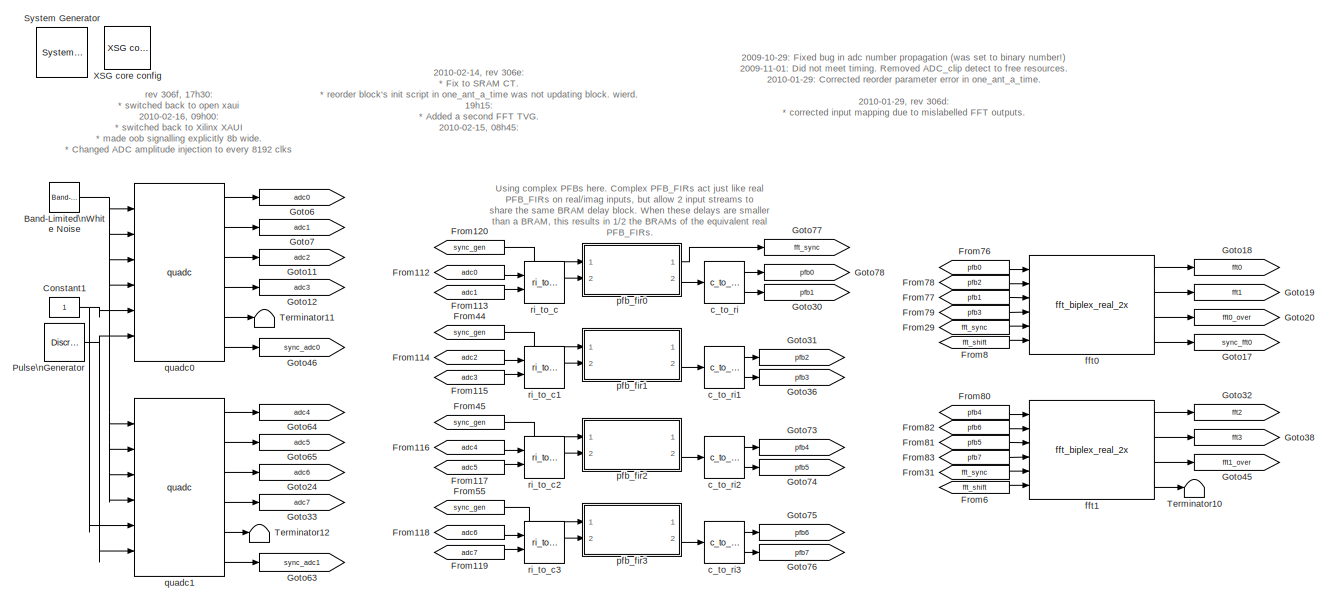
[diagram: root canvas - part 1/7, top left region]
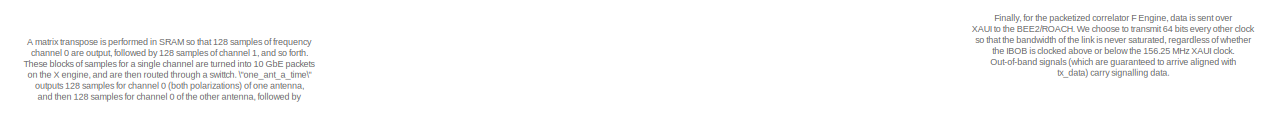
[diagram: root canvas - part 2/7, top right region]
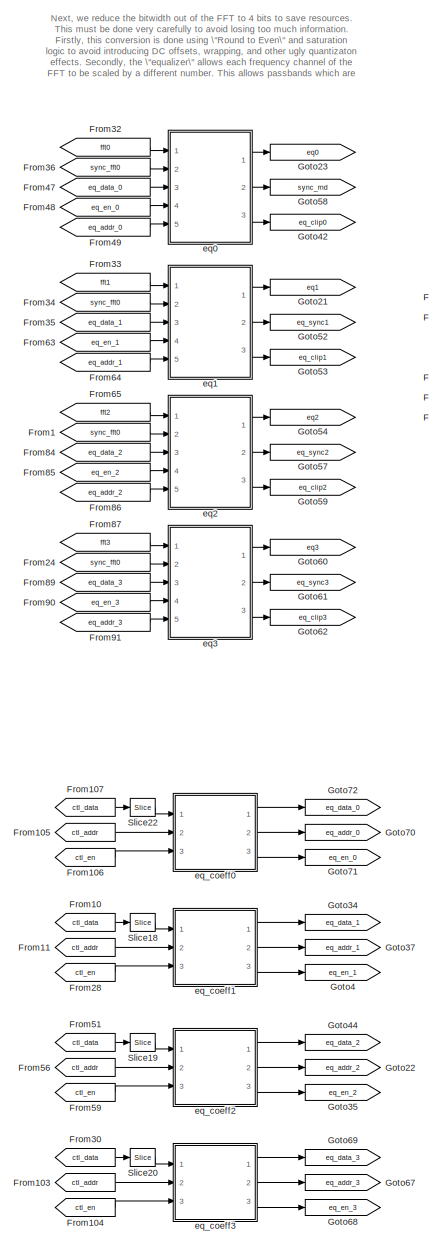
[diagram: root canvas - part 3/7, center side, full height]
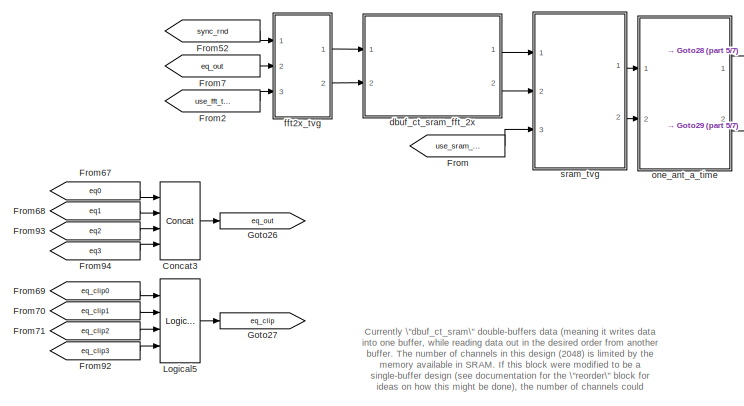
[diagram: root canvas - part 4/7, top center region]
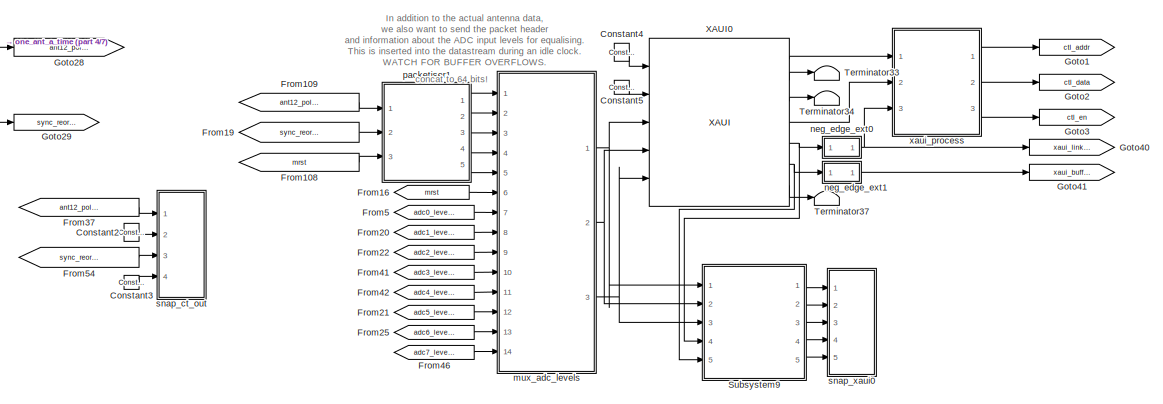
[diagram: root canvas - part 5/7, top right region]
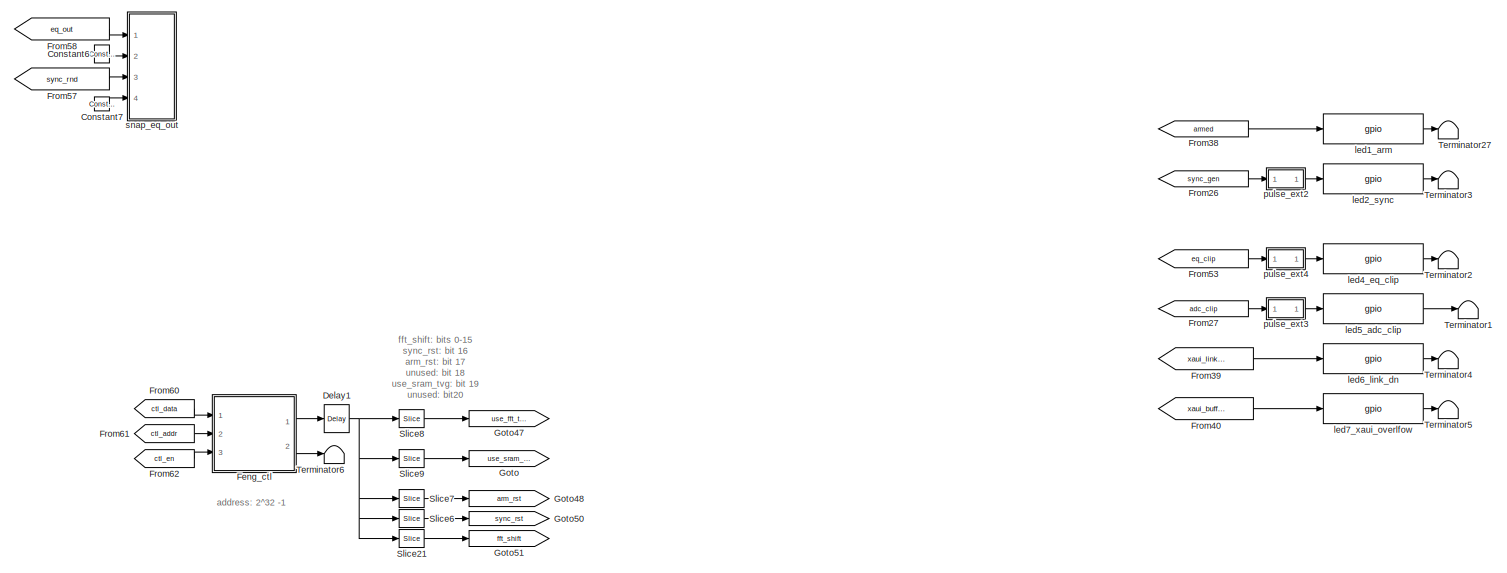
[diagram: root canvas - part 6/7, middle right region]
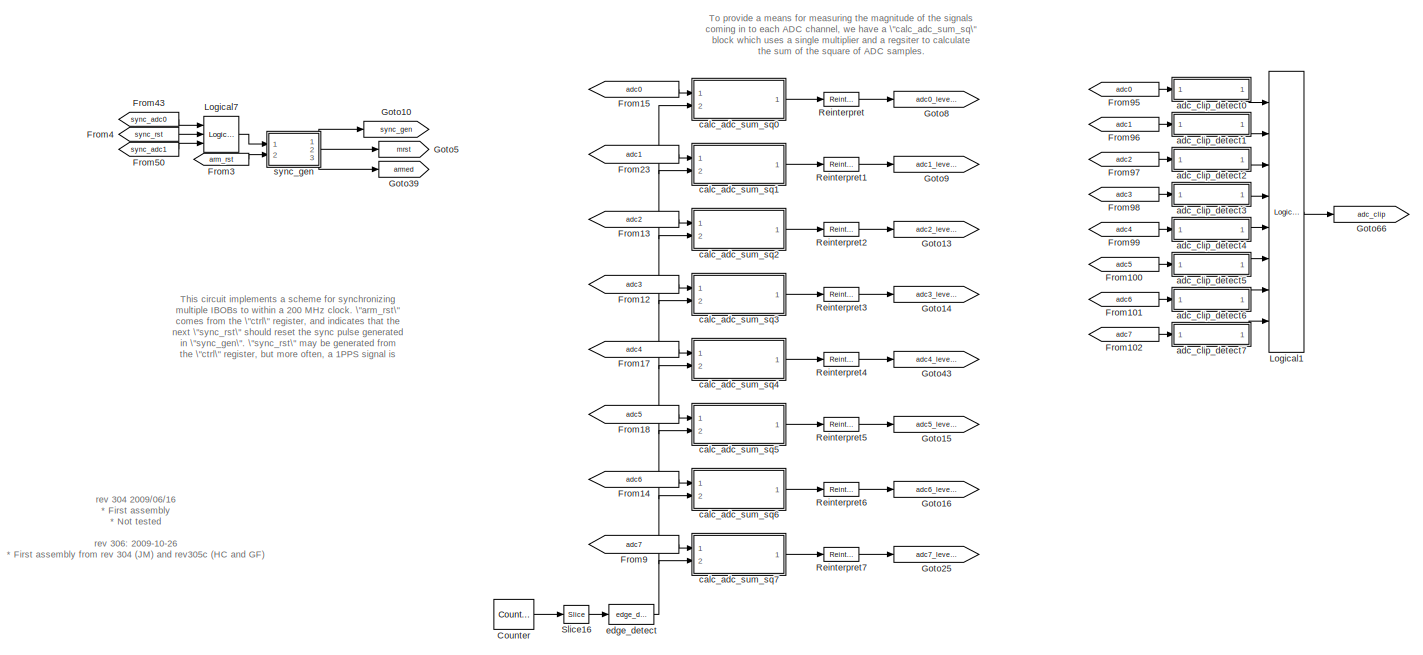
[diagram: root canvas - part 7/7, bottom left region]
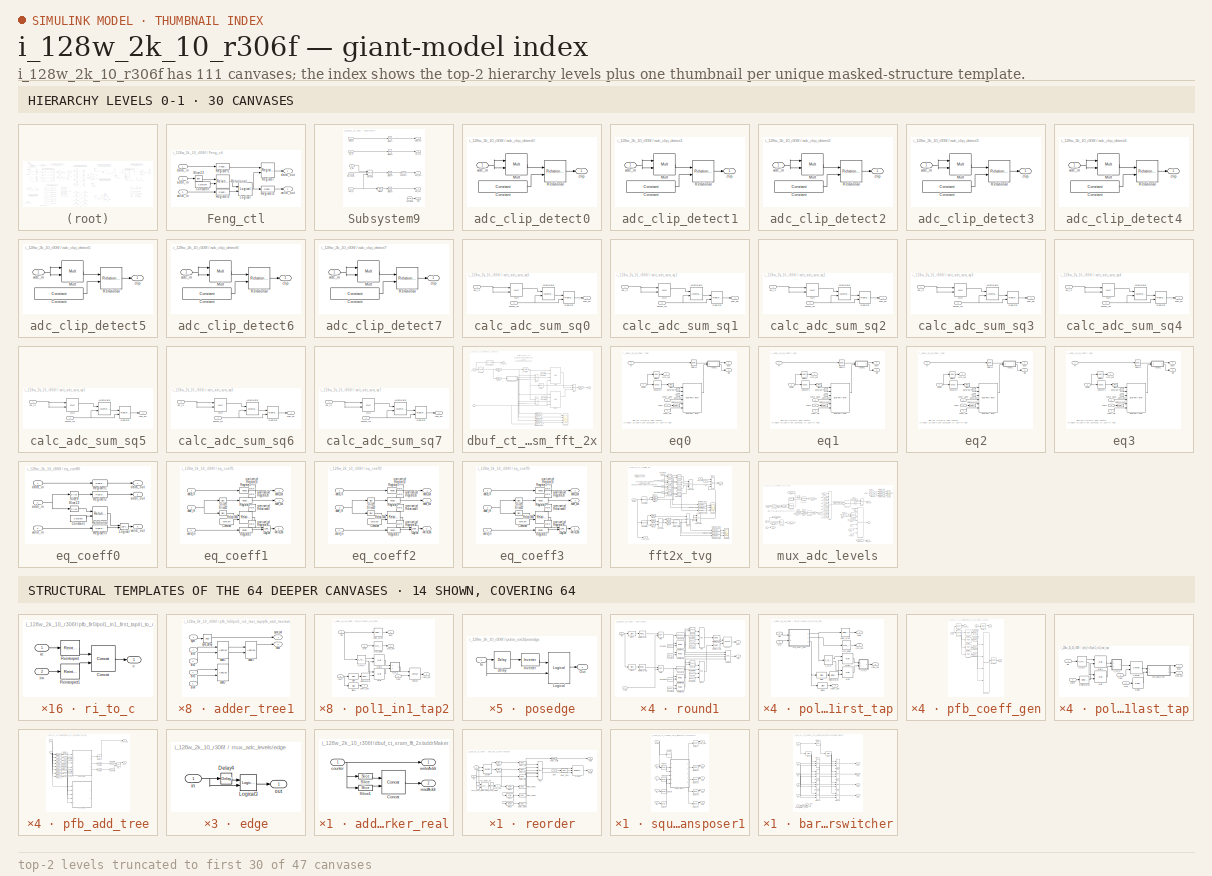
[diagram: thumbnail index - top-2 hierarchy levels (47 canvases (first 30 of 47 shown)) + 14 structural-template representatives of the remaining 64 canvases]
MODEL i_128w_2k_10_r306f
KIND model
BLOCK [Reference]  System Generator  REF=xbsIndex_r4/ System Generator
  AttributesFormatString = System\\nGenerator
  FunctionWithSeparateData = off
  Ports = []
  RTWMemSecDataConstants = Inherit from model
  RTWMemSecDataInternal = Inherit from model
  RTWMemSecDataParameters = Inherit from model
  RTWMemSecFuncExecute = Inherit from model
  RTWMemSecFuncInitTerm = Inherit from model
  ShowPortLabels = FromPortIcon
  SourceBlock = xbsIndex_r4/ System Generator
  SourceType = Xilinx System Generator Block
  SystemSampleTime = -1
  Tag = genX
  UserData = DataTag0
  UserDataPersistent = on
  block_type = sysgen
  block_version = 10.1.3
  clock_wrapper = Clock Enables
  core_generation = According to Block Masks
  dbl_ovrd = According to Block Masks
  dcm_input_clock_period = 100
  deprecated_control = off
  directory = ./i_128w_2k_10_r306f/sysgen
  eval_field = 0
  has_advanced_control = 0
  incr_netlist = off
  infoedit = System Generator
  package = ff1152
  part = xc2vp50
  run_coregen = off
  sg_icon_stat = 51,50,-1,-1,red,beige,0,07734,right
  sg_mask_display = fprintf('','COMMENT: begin icon graphics');\npatch([0 51 51 0 ],[0 0 50 50 ],[0.93 0.92 0.86]);\npatch([12 4 16 4 12 25 29 33 47 36 25 17 29 17 25 36 47 33 29 25 12 ],[5 13 25 37 45 45 41 45 45 34 45 37 25 13 5 16 5 5 9 5 5 ],[0.6 0.2 0.25]);\nplot([0 51 51 0 0 ],[0 0 50 50 0 ]);\nfprintf('','COMMENT: end icon graphics');\nfprintf('','COMMENT: begin icon text');\nfprintf('','COMMENT: end icon text...<+5ch>
  sggui_pos = -1,-1,-1,-1
  simulink_period = 1
  speed = -7
  synthesis_tool = XST
  sysclk_period = 5
  testbench = off
  trim_vbits = Everywhere in SubSystem
  xilinxfamily = virtex2p
BLOCK [Reference] Band-Limited\nWhite Noise  REF=simulink/Sources/Band-Limited\nWhite Noise
  Cov = [0.1]
  FunctionWithSeparateData = off
  Ports = [0, 1]
  RTWMemSecDataConstants = Inherit from model
  RTWMemSecDataInternal = Inherit from model
  RTWMemSecDataParameters = Inherit from model
  RTWMemSecFuncExecute = Inherit from model
  RTWMemSecFuncInitTerm = Inherit from model
  ShowPortLabels = FromPortIcon
  SourceBlock = simulink/Sources/Band-Limited\nWhite Noise
  SourceType = Band-Limited White Noise.
  SystemSampleTime = -1
  Ts = 0.1
  VectorParams1D = on
  seed = [23341]
BLOCK [Reference] Concat3  REF=xbsIndex_r4/Concat
  Ports = [4, 1]
  SourceBlock = xbsIndex_r4/Concat
  SourceType = Xilinx Bus Concatenator Block
  block_type = concat
  block_version = 10.1.3
  dbl_ovrd = off
  has_advanced_control = 0
  infoedit = Concatenates two or more inputs.  Output will be cast to an unsigned value with the binary point at zero.
  num_inputs = 4
  sg_icon_stat = 40,78,4,1,white,blue,0,ad63c393,right
  sg_mask_display = fprintf('','COMMENT: begin icon graphics');\npatch([0 60 60 0 ],[0 0 60 60 ],[0.77 0.82 0.91]);\npatch([14 4 18 4 14 30 34 38 55 42 29 20 35 20 29 42 55 38 34 30 14 ],[6 16 30 44 54 54 50 54 54 41 54 45 30 15 6 19 6 6 10 6 6 ],[0.98 0.96 0.92]);\nplot([0 60 60 0 0 ],[0 0 60 60 0 ]);\nfprintf('','COMMENT: end icon graphics');\nfprintf('','COMMENT: begin icon text');\ncolor('black');port_label('inpu...<+96ch>  <repeated x59 — deduplicated; at blocks: Concat3, Concat, Concat1, Concat2, Concat4, Concat5, Concat6, Concat7, Concat8, Concat9, Concat10>
  sggui_pos = 20,20,336,165
BLOCK [Constant] Constant1
  OutDataType = sfix(16)
  OutScaling = 2^0
BLOCK [Reference] Constant2  REF=xbsIndex_r4/Constant
  Ports = [0, 1]
  SourceBlock = xbsIndex_r4/Constant
  SourceType = Xilinx Constant Block Block
  arith_type = Boolean
  bin_pt = 0
  block_type = constant
  block_version = 10.1.3
  carry = CIN
  const = 1
  dbl_ovrd = off
  dsp48_infoedit = The use of this block for DSP48 instructions is deprecated.  Please use the Opmode block.
  equ = P=C
  explicit_period = on
  has_advanced_control = 0
  inp1 = P
  inp2 = PCIN>>17
  n_bits = 1
  opr = +
  opselect = C
  period = 1
  sg_icon_stat = 15,18,0,1,white,blue,0,06094819,right
  sg_mask_display = fprintf('','COMMENT: begin icon graphics');\npatch([0 55 55 0 ],[0 0 26 26 ],[0.77 0.82 0.91]);\npatch([20 16 22 16 20 27 29 31 38 32 26 22 28 22 26 32 38 31 29 27 20 ],[3 7 13 19 23 23 21 23 23 17 23 19 13 7 3 9 3 3 5 3 3 ],[0.98 0.96 0.92]);\nplot([0 55 55 0 0 ],[0 0 26 26 0 ]);\nfprintf('','COMMENT: end icon graphics');\nfprintf('','COMMENT: begin icon text');\ncolor('black');port_label('output...<+50ch>  <repeated x38 — deduplicated; at blocks: Constant2, Constant3, Constant4, Constant5, Constant6, Constant7, Constant9, Constant, Constant1, Constant10>
  sggui_pos = 20,20,400,346
BLOCK [Reference] Constant3  REF=xbsIndex_r4/Constant
  Ports = [0, 1]
  SourceBlock = xbsIndex_r4/Constant
  SourceType = Xilinx Constant Block Block
  arith_type = Boolean
  bin_pt = 0
  block_type = constant
  block_version = 10.1.3
  carry = CIN
  const = 0
  dbl_ovrd = off
  dsp48_infoedit = The use of this block for DSP48 instructions is deprecated.  Please use the Opmode block.
  equ = P=C
  explicit_period = on
  has_advanced_control = 0
  inp1 = P
  inp2 = PCIN>>17
  n_bits = 1
  opr = +
  opselect = C
  period = 1
  sg_icon_stat = 15,14,0,1,white,blue,0,72d575a1,right
  sggui_pos = 20,20,400,346
BLOCK [Reference] Constant4  REF=xbsIndex_r4/Constant
  Ports = [0, 1]
  SourceBlock = xbsIndex_r4/Constant
  SourceType = Xilinx Constant Block Block
  arith_type = Unsigned
  bin_pt = 0
  block_type = constant
  block_version = 10.1.3
  carry = CIN
  const = 1
  dbl_ovrd = off
  dsp48_infoedit = The use of this block for DSP48 instructions is deprecated.  Please use the Opmode block.
  equ = P=C
  explicit_period = on
  has_advanced_control = 0
  inp1 = P
  inp2 = PCIN>>17
  n_bits = 1
  opr = +
  opselect = C
  period = 1
  sg_icon_stat = 15,18,0,1,white,blue,0,06094819,right
  sggui_pos = -1,-1,-1,-1
BLOCK [Reference] Constant5  REF=xbsIndex_r4/Constant
  Ports = [0, 1]
  SourceBlock = xbsIndex_r4/Constant
  SourceType = Xilinx Constant Block Block
  arith_type = Unsigned
  bin_pt = 0
  block_type = constant
  block_version = 10.1.3
  carry = CIN
  const = 0
  dbl_ovrd = off
  dsp48_infoedit = The use of this block for DSP48 instructions is deprecated.  Please use the Opmode block.
  equ = P=C
  explicit_period = on
  has_advanced_control = 0
  inp1 = P
  inp2 = PCIN>>17
  n_bits = 1
  opr = +
  opselect = C
  period = 1
  sg_icon_stat = 15,14,0,1,white,blue,0,72d575a1,right
  sggui_pos = -1,-1,-1,-1
BLOCK [Reference] Constant6  REF=xbsIndex_r4/Constant
  Ports = [0, 1]
  SourceBlock = xbsIndex_r4/Constant
  SourceType = Xilinx Constant Block Block
  arith_type = Boolean
  bin_pt = 0
  block_type = constant
  block_version = 10.1.3
  carry = CIN
  const = 1
  dbl_ovrd = off
  dsp48_infoedit = The use of this block for DSP48 instructions is deprecated.  Please use the Opmode block.
  equ = P=C
  explicit_period = on
  has_advanced_control = 0
  inp1 = P
  inp2 = PCIN>>17
  n_bits = 1
  opr = +
  opselect = C
  period = 1
  sg_icon_stat = 15,18,0,1,white,blue,0,06094819,right
  sggui_pos = 20,20,400,346
BLOCK [Reference] Constant7  REF=xbsIndex_r4/Constant
  Ports = [0, 1]
  SourceBlock = xbsIndex_r4/Constant
  SourceType = Xilinx Constant Block Block
  arith_type = Boolean
  bin_pt = 0
  block_type = constant
  block_version = 10.1.3
  carry = CIN
  const = 0
  dbl_ovrd = off
  dsp48_infoedit = The use of this block for DSP48 instructions is deprecated.  Please use the Opmode block.
  equ = P=C
  explicit_period = on
  has_advanced_control = 0
  inp1 = P
  inp2 = PCIN>>17
  n_bits = 1
  opr = +
  opselect = C
  period = 1
  sg_icon_stat = 15,14,0,1,white,blue,0,72d575a1,right
  sggui_pos = 20,20,400,346
BLOCK [Reference] Counter  REF=xbsIndex_r4/Counter
  Ports = [0, 1]
  SourceBlock = xbsIndex_r4/Counter
  SourceType = Xilinx Counter Block
  arith_type = Unsigned
  bin_pt = 0
  block_type = counter
  block_version = 10.1.3
  cnt_by_val = 1
  cnt_to = Inf
  cnt_type = Free Running
  dbl_ovrd = off
  en = off
  explicit_period = off
  has_advanced_control = 0
  implementation = Fabric
  infoedit = Hardware notes: Free running counters are the least expensive in hardware.  A count limited counter is implemented by combining a counter with a comparator.
  load_pin = off
  n_bits = 16
  operation = Up
  period = 1
  rst = off
  sg_icon_stat = 40,30,0,1,white,blue,0,a170c862,right
  sg_mask_display = fprintf('','COMMENT: begin icon graphics');\npatch([0 60 60 0 ],[0 0 60 60 ],[0.77 0.82 0.91]);\npatch([14 4 18 4 14 30 34 38 55 42 29 20 35 20 29 42 55 38 34 30 14 ],[6 16 30 44 54 54 50 54 54 41 54 45 30 15 6 19 6 6 10 6 6 ],[0.98 0.96 0.92]);\nplot([0 60 60 0 0 ],[0 0 60 60 0 ]);\nfprintf('','COMMENT: end icon graphics');\nfprintf('','COMMENT: begin icon text');\ncolor('black');port_label('outp...<+54ch>
  sggui_pos = 20,20,348,619
  start_count = 0
  use_behavioral_HDL = off
  use_rpm = on
  xl_area = [0, 0, 0, 0, 0, 0, 0]
  xl_use_area = off
BLOCK [Reference] Delay1  REF=xbsIndex_r4/Delay
  Ports = [1, 1]
  SourceBlock = xbsIndex_r4/Delay
  SourceType = Xilinx Delay Block
  block_type = delay
  block_version = 10.1.3
  dbl_ovrd = off
  en = off
  has_advanced_control = 0
  infoedit = Hardware notes: A delay line is a chain, each link of which is an SRL16 followed by a flip-flop.
  latency = 1
  reg_retiming = off
  sg_icon_stat = 25,28,1,1,white,blue,0,fc531c0e,right
  sg_mask_display = fprintf('','COMMENT: begin icon graphics');\npatch([0 60 60 0 ],[0 0 56 56 ],[0.77 0.82 0.91]);\npatch([15 6 19 6 15 30 34 38 54 41 29 20 32 20 29 41 54 38 34 30 15 ],[6 15 28 41 50 50 46 50 50 37 49 40 28 16 7 19 6 6 10 6 6 ],[0.98 0.96 0.92]);\nplot([0 60 60 0 0 ],[0 0 56 56 0 ]);\nfprintf('','COMMENT: end icon graphics');\nfprintf('','COMMENT: begin icon text');\ncolor('black');disp('z^{-1}','t...<+55ch>  <repeated x88 — deduplicated; at blocks: Delay1, Delay11, Delay, Delay2, Delay4, Delayb3, Delayf2, Delay5, Delay6, delay1, Delay10, Delay12, Delay13, Delay14, Delay15, Delay16, +15 more>
  sggui_pos = -1,-1,-1,-1
  xl_area = [0, 0, 0, 0, 0, 0, 0]
  xl_use_area = off
BLOCK [SubSystem] Feng_ctl
  AttributesFormatString = Mapped address: 8192
  FunctionWithSeparateData = off
  MaskEnableString = on
  MaskIconFrame = on
  MaskIconOpaque = on
  MaskIconRotate = none
  MaskIconUnits = autoscale
  MaskInitialization = start_addr = (addr_offset);\nfmtstr = sprintf('Mapped address: %d', start_addr);\nset_param(gcb, 'AttributesFormatString', fmtstr);\n
  MaskPromptString = Address
  MaskStyleString = edit
  MaskToolTipString = on
  MaskTunableValueString = on
  MaskValueString = 8192
  MaskVariables = addr_offset=@1;
  MaskVisibilityString = on
  MinAlgLoopOccurrences = off
  Ports = [3, 2]
  RTWSystemCode = Auto
BLOCK [Reference] Feng_ctl/Constant  REF=xbsIndex_r4/Constant
  Ports = [0, 1]
  SourceBlock = xbsIndex_r4/Constant
  SourceType = Xilinx Constant Block Block
  arith_type = Unsigned
  bin_pt = 0
  block_type = constant
  block_version = 10.1.3
  carry = CIN
  const = addr_offset
  dbl_ovrd = off
  dsp48_infoedit = The use of this block for DSP48 instructions is deprecated.  Please use the Opmode block.
  equ = P=C
  explicit_period = on
  has_advanced_control = 0
  inp1 = P
  inp2 = PCIN>>17
  n_bits = 32
  opr = +
  opselect = C
  period = 1
  sg_icon_stat = 50,20,1,1,white,blue,0,baa69e10,right
  sg_mask_display = fprintf('','COMMENT: begin icon graphics');\npatch([0 55 55 0 ],[0 0 26 26 ],[0.77 0.82 0.91]);\npatch([20 16 22 16 20 27 29 31 38 32 26 22 28 22 26 32 38 31 29 27 20 ],[3 7 13 19 23 23 21 23 23 17 23 19 13 7 3 9 3 3 5 3 3 ],[0.98 0.96 0.92]);\nplot([0 55 55 0 0 ],[0 0 26 26 0 ]);\nfprintf('','COMMENT: end icon graphics');\nfprintf('','COMMENT: begin icon text');\ncolor('black');port_label('output...<+53ch>  <repeated x4 — deduplicated; at blocks: Constant>
  sggui_pos = -1,-1,-1,-1
BLOCK [Reference] Feng_ctl/Logical  REF=xbsIndex_r4/Logical
  Ports = [2, 1]
  SourceBlock = xbsIndex_r4/Logical
  SourceType = Xilinx Logical Block Block
  align_bp = on
  arith_type = Unsigned
  bin_pt = 2
  block_type = logical
  block_version = 10.1.3
  dbl_ovrd = off
  en = off
  has_advanced_control = 0
  inputs = 2
  latency = 0
  logical_function = AND
  n_bits = 8
  precision = Full
  sg_icon_stat = 45,44,1,1,white,blue,0,087b5522,right
  sg_mask_display = fprintf('','COMMENT: begin icon graphics');\npatch([0 55 55 0 ],[0 0 60 60 ],[0.77 0.82 0.91]);\npatch([13 4 17 4 13 28 32 36 52 40 28 19 32 19 28 40 52 36 32 28 13 ],[8 17 30 43 52 52 48 52 52 40 52 43 30 17 8 20 8 8 12 8 8 ],[0.98 0.96 0.92]);\nplot([0 55 55 0 0 ],[0 0 60 60 0 ]);\nfprintf('','COMMENT: end icon graphics');\nfprintf('','COMMENT: begin icon text');\ncolor('black');disp('\\newlinea...<+76ch>  <repeated x25 — deduplicated; at blocks: Logical, Logical2, Logical1, Logical4, Logical5, Logical7>
  sggui_pos = -1,-1,-1,-1
  xl_area = [0, 0, 0, 0, 0, 0, 0]
  xl_use_area = off
BLOCK [Reference] Feng_ctl/Register  REF=xbsIndex_r4/Register
  Ports = [2, 1]
  SourceBlock = xbsIndex_r4/Register
  SourceType = Xilinx Register Block
  block_type = register
  block_version = 10.1.3
  dbl_ovrd = off
  en = on
  has_advanced_control = 0
  init = 0
  rst = off
  sg_icon_stat = 45,49,1,1,white,blue,0,cc3303a0,right
  sg_mask_display = fprintf('','COMMENT: begin icon graphics');\npatch([0 45 45 0 ],[0 0 49 49 ],[0.77 0.82 0.91]);\npatch([10 3 14 3 10 22 25 28 41 31 21 14 25 14 21 31 41 28 25 22 10 ],[7 14 25 36 43 43 40 43 43 33 43 36 25 14 7 17 7 7 10 7 7 ],[0.98 0.96 0.92]);\nplot([0 45 45 0 0 ],[0 0 49 49 0 ]);\nfprintf('','COMMENT: end icon graphics');\nfprintf('','COMMENT: begin icon text');\ncolor('black');port_label('inpu...<+192ch>  <repeated x9 — deduplicated; at blocks: Register>
  sggui_pos = -1,-1,-1,-1
  xl_area = [0, 0, 0, 0, 0, 0, 0]
  xl_use_area = off
BLOCK [Reference] Feng_ctl/Register1  REF=xbsIndex_r4/Register
  Ports = [1, 1]
  SourceBlock = xbsIndex_r4/Register
  SourceType = Xilinx Register Block
  block_type = register
  block_version = 10.1.3
  dbl_ovrd = off
  en = off
  has_advanced_control = 0
  init = 0
  rst = off
  sg_icon_stat = 45,20,1,1,white,blue,0,ac6b57db,right
  sg_mask_display = fprintf('','COMMENT: begin icon graphics');\npatch([0 60 60 0 ],[0 0 56 56 ],[0.77 0.82 0.91]);\npatch([15 6 19 6 15 30 34 38 54 41 29 20 32 20 29 41 54 38 34 30 15 ],[6 15 28 41 50 50 46 50 50 37 49 40 28 16 7 19 6 6 10 6 6 ],[0.98 0.96 0.92]);\nplot([0 60 60 0 0 ],[0 0 56 56 0 ]);\nfprintf('','COMMENT: end icon graphics');\nfprintf('','COMMENT: begin icon text');\ncolor('black');port_label('inpu...<+148ch>  <repeated x19 — deduplicated; at blocks: Register1, Register2, Register3, Register>
  sggui_pos = -1,-1,-1,-1
  xl_area = [0, 0, 0, 0, 0, 0, 0]
  xl_use_area = off
BLOCK [Reference] Feng_ctl/Register2  REF=xbsIndex_r4/Register
  Ports = [1, 1]
  SourceBlock = xbsIndex_r4/Register
  SourceType = Xilinx Register Block
  block_type = register
  block_version = 10.1.3
  dbl_ovrd = off
  en = off
  has_advanced_control = 0
  init = 0
  rst = off
  sg_icon_stat = 45,20,1,1,white,blue,0,ac6b57db,right
  sggui_pos = -1,-1,-1,-1
  xl_area = [0, 0, 0, 0, 0, 0, 0]
  xl_use_area = off
BLOCK [Reference] Feng_ctl/Register3  REF=xbsIndex_r4/Register
  Ports = [1, 1]
  SourceBlock = xbsIndex_r4/Register
  SourceType = Xilinx Register Block
  block_type = register
  block_version = 10.1.3
  dbl_ovrd = off
  en = off
  has_advanced_control = 0
  init = 0
  rst = off
  sg_icon_stat = 45,20,1,1,white,blue,0,ac6b57db,right
  sggui_pos = -1,-1,-1,-1
  xl_area = [0, 0, 0, 0, 0, 0, 0]
  xl_use_area = off
BLOCK [Reference] Feng_ctl/Relational  REF=xbsIndex_r4/Relational
  Ports = [2, 1]
  SourceBlock = xbsIndex_r4/Relational
  SourceType = Xilinx Arithmetic Relational Operator Block
  block_type = relational
  block_version = 10.1.3
  dbl_ovrd = off
  en = off
  has_advanced_control = 0
  latency = 1
  mode = a=b
  sg_icon_stat = 45,44,1,1,white,blue,0,1cf02e61,right
  sg_mask_display = fprintf('','COMMENT: begin icon graphics');\npatch([0 55 55 0 ],[0 0 56 56 ],[0.77 0.82 0.91]);\npatch([13 4 17 4 13 28 32 36 52 40 28 19 32 19 28 40 52 36 32 28 13 ],[6 15 28 41 50 50 46 50 50 38 50 41 28 15 6 18 6 6 10 6 6 ],[0.98 0.96 0.92]);\nplot([0 55 55 0 0 ],[0 0 56 56 0 ]);\nfprintf('','COMMENT: end icon graphics');\nfprintf('','COMMENT: begin icon text');\ncolor('black');port_label('inpu...<+168ch>  <repeated x21 — deduplicated; at blocks: Relational, Relational1, Relational2, Relational3>
  sggui_pos = -1,-1,-1,-1
  xl_area = [0, 0, 0, 0, 0, 0, 0]
  xl_use_area = off
BLOCK [Reference] Feng_ctl/Slice22  REF=xbsIndex_r4/Slice
  Ports = [1, 1]
  SourceBlock = xbsIndex_r4/Slice
  SourceType = Xilinx Bit Slice Extractor Block
  base0 = LSB of Input
  base1 = MSB of Input
  bit0 = 0
  bit1 = 0
  block_type = slice
  block_version = 10.1.3
  boolean_output = off
  dbl_ovrd = off
  has_advanced_control = 0
  infoedit = Extracts a given range of bits from each input sample and presents it at the output.  The output type is ordinarily unsigned with binary point at zero, but can be Boolean when the slice is one bit wide.<P><P>Hardware notes: In hardware this block costs nothing.  <repeated x133 — deduplicated; at blocks: Slice22, Slice16, Slice18, Slice19, Slice20, Slice21, Slice6, Slice7, Slice8, Slice9, Slice3, Slice, Slice1, Slice2, Slice4, Slice5, +15 more>
  mode = Lower Bit Location + Width
  nbits = 32
  sg_icon_stat = 25,18,1,1,white,blue,0,b1026674,right
  sg_mask_display = fprintf('','COMMENT: begin icon graphics');\npatch([0 60 60 0 ],[0 0 30 30 ],[0.77 0.82 0.91]);\npatch([22 17 24 17 22 30 32 34 42 35 29 24 30 24 29 35 42 34 32 30 22 ],[3 8 15 22 27 27 25 27 27 20 26 21 15 9 4 10 3 3 5 3 3 ],[0.98 0.96 0.92]);\nplot([0 60 60 0 0 ],[0 0 30 30 0 ]);\nfprintf('','COMMENT: end icon graphics');\nfprintf('','COMMENT: begin icon text');\ncolor('black');port_label('outpu...<+55ch>  <repeated x131 — deduplicated; at blocks: Slice22, Slice16, Slice18, Slice19, Slice20, Slice21, Slice6, Slice7, Slice8, Slice9, Slice3, Slice, Slice1, Slice2, Slice4, Slice5, +15 more>
  sggui_pos = -1,-1,-1,-1
BLOCK [Inport] Feng_ctl/addr_in
  IconDisplay = Port number
  OutDataType = sfix(16)
  OutScaling = 2^0
  Port = 2
BLOCK [Inport] Feng_ctl/data_in
  IconDisplay = Port number
  OutDataType = sfix(16)
  OutScaling = 2^0
BLOCK [Outport] Feng_ctl/data_out
  IconDisplay = Port number
  OutDataType = sfix(16)
  OutScaling = 2^0
BLOCK [Inport] Feng_ctl/valid_in
  IconDisplay = Port number
  OutDataType = sfix(16)
  OutScaling = 2^0
  Port = 3
BLOCK [Outport] Feng_ctl/valid_out
  IconDisplay = Port number
  OutDataType = sfix(16)
  OutScaling = 2^0
  Port = 2
BLOCK [From] From
  CloseFcn = tagdialog Close
  GotoTag = use_sram_tvg
BLOCK [From] From1
  CloseFcn = tagdialog Close
  GotoTag = sync_fft0
BLOCK [From] From10
  CloseFcn = tagdialog Close
  GotoTag = ctl_data
BLOCK [From] From100
  CloseFcn = tagdialog Close
  GotoTag = adc5
BLOCK [From] From101
  CloseFcn = tagdialog Close
  GotoTag = adc6
BLOCK [From] From102
  CloseFcn = tagdialog Close
  GotoTag = adc7
BLOCK [From] From103
  CloseFcn = tagdialog Close
  GotoTag = ctl_addr
BLOCK [From] From104
  CloseFcn = tagdialog Close
  GotoTag = ctl_en
BLOCK [From] From105
  CloseFcn = tagdialog Close
  GotoTag = ctl_addr
BLOCK [From] From106
  CloseFcn = tagdialog Close
  GotoTag = ctl_en
BLOCK [From] From107
  CloseFcn = tagdialog Close
  GotoTag = ctl_data
BLOCK [From] From108
  CloseFcn = tagdialog Close
  GotoTag = mrst
BLOCK [From] From109
  CloseFcn = tagdialog Close
  GotoTag = ant12_pol12_reorder
BLOCK [From] From11
  CloseFcn = tagdialog Close
  GotoTag = ctl_addr
BLOCK [From] From112
  CloseFcn = tagdialog Close
  GotoTag = adc0
BLOCK [From] From113
  CloseFcn = tagdialog Close
  GotoTag = adc1
BLOCK [From] From114
  CloseFcn = tagdialog Close
  GotoTag = adc2
BLOCK [From] From115
  CloseFcn = tagdialog Close
  GotoTag = adc3
BLOCK [From] From116
  CloseFcn = tagdialog Close
  GotoTag = adc4
BLOCK [From] From117
  CloseFcn = tagdialog Close
  GotoTag = adc5
BLOCK [From] From118
  CloseFcn = tagdialog Close
  GotoTag = adc6
BLOCK [From] From119
  CloseFcn = tagdialog Close
  GotoTag = adc7
BLOCK [From] From12
  CloseFcn = tagdialog Close
  GotoTag = adc3
BLOCK [From] From120
  CloseFcn = tagdialog Close
  GotoTag = sync_gen
BLOCK [From] From13
  CloseFcn = tagdialog Close
  GotoTag = adc2
BLOCK [From] From14
  CloseFcn = tagdialog Close
  GotoTag = adc6
BLOCK [From] From15
  CloseFcn = tagdialog Close
  GotoTag = adc0
BLOCK [From] From16
  CloseFcn = tagdialog Close
  GotoTag = mrst
BLOCK [From] From17
  CloseFcn = tagdialog Close
  GotoTag = adc4
BLOCK [From] From18
  CloseFcn = tagdialog Close
  GotoTag = adc5
BLOCK [From] From19
  CloseFcn = tagdialog Close
  GotoTag = sync_reorder
BLOCK [From] From2
  CloseFcn = tagdialog Close
  GotoTag = use_fft_tvg
BLOCK [From] From20
  CloseFcn = tagdialog Close
  GotoTag = adc1_levels
BLOCK [From] From21
  CloseFcn = tagdialog Close
  GotoTag = adc5_levels
BLOCK [From] From22
  CloseFcn = tagdialog Close
  GotoTag = adc2_levels
BLOCK [From] From23
  CloseFcn = tagdialog Close
  GotoTag = adc1
BLOCK [From] From24
  CloseFcn = tagdialog Close
  GotoTag = sync_fft0
BLOCK [From] From25
  CloseFcn = tagdialog Close
  GotoTag = adc6_levels
BLOCK [From] From26
  CloseFcn = tagdialog Close
  GotoTag = sync_gen
BLOCK [From] From27
  CloseFcn = tagdialog Close
  GotoTag = adc_clip
BLOCK [From] From28
  CloseFcn = tagdialog Close
  GotoTag = ctl_en
BLOCK [From] From29
  CloseFcn = tagdialog Close
  GotoTag = fft_sync
BLOCK [From] From3
  CloseFcn = tagdialog Close
  GotoTag = arm_rst
BLOCK [From] From30
  CloseFcn = tagdialog Close
  GotoTag = ctl_data
BLOCK [From] From31
  CloseFcn = tagdialog Close
  GotoTag = fft_sync
BLOCK [From] From32
  CloseFcn = tagdialog Close
  GotoTag = fft0
BLOCK [From] From33
  CloseFcn = tagdialog Close
  GotoTag = fft1
BLOCK [From] From34
  CloseFcn = tagdialog Close
  GotoTag = sync_fft0
BLOCK [From] From35
  CloseFcn = tagdialog Close
  GotoTag = eq_data_1
BLOCK [From] From36
  CloseFcn = tagdialog Close
  GotoTag = sync_fft0
BLOCK [From] From37
  CloseFcn = tagdialog Close
  GotoTag = ant12_pol12_reorder
BLOCK [From] From38
  CloseFcn = tagdialog Close
  GotoTag = armed
BLOCK [From] From39
  CloseFcn = tagdialog Close
  GotoTag = xaui_link_down
BLOCK [From] From4
  CloseFcn = tagdialog Close
  GotoTag = sync_rst
BLOCK [From] From40
  CloseFcn = tagdialog Close
  GotoTag = xaui_buffer_overflow
BLOCK [From] From41
  CloseFcn = tagdialog Close
  GotoTag = adc3_levels
BLOCK [From] From42
  CloseFcn = tagdialog Close
  GotoTag = adc4_levels
BLOCK [From] From43
  CloseFcn = tagdialog Close
  GotoTag = sync_adc0
BLOCK [From] From44
  CloseFcn = tagdialog Close
  GotoTag = sync_gen
BLOCK [From] From45
  CloseFcn = tagdialog Close
  GotoTag = sync_gen
BLOCK [From] From46
  CloseFcn = tagdialog Close
  GotoTag = adc7_levels
BLOCK [From] From47
  CloseFcn = tagdialog Close
  GotoTag = eq_data_0
BLOCK [From] From48
  CloseFcn = tagdialog Close
  GotoTag = eq_en_0
BLOCK [From] From49
  CloseFcn = tagdialog Close
  GotoTag = eq_addr_0
BLOCK [From] From5
  CloseFcn = tagdialog Close
  GotoTag = adc0_levels
BLOCK [From] From50
  CloseFcn = tagdialog Close
  GotoTag = sync_adc1
BLOCK [From] From51
  CloseFcn = tagdialog Close
  GotoTag = ctl_data
BLOCK [From] From52
  CloseFcn = tagdialog Close
  GotoTag = sync_rnd
BLOCK [From] From53
  CloseFcn = tagdialog Close
  GotoTag = eq_clip
BLOCK [From] From54
  CloseFcn = tagdialog Close
  GotoTag = sync_reorder
BLOCK [From] From55
  CloseFcn = tagdialog Close
  GotoTag = sync_gen
BLOCK [From] From56
  CloseFcn = tagdialog Close
  GotoTag = ctl_addr
BLOCK [From] From57
  CloseFcn = tagdialog Close
  GotoTag = sync_rnd
BLOCK [From] From58
  CloseFcn = tagdialog Close
  GotoTag = eq_out
BLOCK [From] From59
  CloseFcn = tagdialog Close
  GotoTag = ctl_en
BLOCK [From] From6
  CloseFcn = tagdialog Close
  GotoTag = fft_shift
BLOCK [From] From60
  CloseFcn = tagdialog Close
  GotoTag = ctl_data
BLOCK [From] From61
  CloseFcn = tagdialog Close
  GotoTag = ctl_addr
BLOCK [From] From62
  CloseFcn = tagdialog Close
  GotoTag = ctl_en
BLOCK [From] From63
  CloseFcn = tagdialog Close
  GotoTag = eq_en_1
BLOCK [From] From64
  CloseFcn = tagdialog Close
  GotoTag = eq_addr_1
BLOCK [From] From65
  CloseFcn = tagdialog Close
  GotoTag = fft2
BLOCK [From] From67
  CloseFcn = tagdialog Close
  GotoTag = eq0
BLOCK [From] From68
  CloseFcn = tagdialog Close
  GotoTag = eq1
BLOCK [From] From69
  CloseFcn = tagdialog Close
  GotoTag = eq_clip0
BLOCK [From] From7
  CloseFcn = tagdialog Close
  GotoTag = eq_out
BLOCK [From] From70
  CloseFcn = tagdialog Close
  GotoTag = eq_clip1
BLOCK [From] From71
  CloseFcn = tagdialog Close
  GotoTag = eq_clip2
BLOCK [From] From76
  CloseFcn = tagdialog Close
  GotoTag = pfb0
BLOCK [From] From77
  CloseFcn = tagdialog Close
  GotoTag = pfb1
BLOCK [From] From78
  CloseFcn = tagdialog Close
  GotoTag = pfb2
BLOCK [From] From79
  CloseFcn = tagdialog Close
  GotoTag = pfb3
BLOCK [From] From8
  CloseFcn = tagdialog Close
  GotoTag = fft_shift
BLOCK [From] From80
  CloseFcn = tagdialog Close
  GotoTag = pfb4
BLOCK [From] From81
  CloseFcn = tagdialog Close
  GotoTag = pfb5
BLOCK [From] From82
  CloseFcn = tagdialog Close
  GotoTag = pfb6
BLOCK [From] From83
  CloseFcn = tagdialog Close
  GotoTag = pfb7
BLOCK [From] From84
  CloseFcn = tagdialog Close
  GotoTag = eq_data_2
BLOCK [From] From85
  CloseFcn = tagdialog Close
  GotoTag = eq_en_2
BLOCK [From] From86
  CloseFcn = tagdialog Close
  GotoTag = eq_addr_2
BLOCK [From] From87
  CloseFcn = tagdialog Close
  GotoTag = fft3
BLOCK [From] From89
  CloseFcn = tagdialog Close
  GotoTag = eq_data_3
BLOCK [From] From9
  CloseFcn = tagdialog Close
  GotoTag = adc7
BLOCK [From] From90
  CloseFcn = tagdialog Close
  GotoTag = eq_en_3
BLOCK [From] From91
  CloseFcn = tagdialog Close
  GotoTag = eq_addr_3
BLOCK [From] From92
  CloseFcn = tagdialog Close
  GotoTag = eq_clip3
BLOCK [From] From93
  CloseFcn = tagdialog Close
  GotoTag = eq2
BLOCK [From] From94
  CloseFcn = tagdialog Close
  GotoTag = eq3
BLOCK [From] From95
  CloseFcn = tagdialog Close
  GotoTag = adc0
BLOCK [From] From96
  CloseFcn = tagdialog Close
  GotoTag = adc1
BLOCK [From] From97
  CloseFcn = tagdialog Close
  GotoTag = adc2
BLOCK [From] From98
  CloseFcn = tagdialog Close
  GotoTag = adc3
BLOCK [From] From99
  CloseFcn = tagdialog Close
  GotoTag = adc4
BLOCK [Goto] Goto
  GotoTag = use_sram_tvg
  TagVisibility = local
BLOCK [Goto] Goto1
  GotoTag = ctl_addr
  TagVisibility = local
BLOCK [Goto] Goto10
  GotoTag = sync_gen
  TagVisibility = local
BLOCK [Goto] Goto11
  GotoTag = adc2
  TagVisibility = local
BLOCK [Goto] Goto12
  GotoTag = adc3
  TagVisibility = local
BLOCK [Goto] Goto13
  GotoTag = adc2_levels
  TagVisibility = local
BLOCK [Goto] Goto14
  GotoTag = adc3_levels
  TagVisibility = local
BLOCK [Goto] Goto15
  GotoTag = adc5_levels
  TagVisibility = local
BLOCK [Goto] Goto16
  GotoTag = adc6_levels
  TagVisibility = local
BLOCK [Goto] Goto17
  GotoTag = sync_fft0
  TagVisibility = local
BLOCK [Goto] Goto18
  GotoTag = fft0
  TagVisibility = local
BLOCK [Goto] Goto19
  GotoTag = fft1
  TagVisibility = local
BLOCK [Goto] Goto2
  GotoTag = ctl_data
  TagVisibility = local
BLOCK [Goto] Goto20
  GotoTag = fft0_over
  TagVisibility = local
BLOCK [Goto] Goto21
  GotoTag = eq1
  TagVisibility = local
BLOCK [Goto] Goto22
  GotoTag = eq_addr_2
  TagVisibility = local
BLOCK [Goto] Goto23
  GotoTag = eq0
  TagVisibility = local
BLOCK [Goto] Goto24
  GotoTag = adc6
  TagVisibility = local
BLOCK [Goto] Goto25
  GotoTag = adc7_levels
  TagVisibility = local
BLOCK [Goto] Goto26
  GotoTag = eq_out
  TagVisibility = local
BLOCK [Goto] Goto27
  GotoTag = eq_clip
  TagVisibility = local
BLOCK [Goto] Goto28
  GotoTag = ant12_pol12_reorder
  TagVisibility = local
BLOCK [Goto] Goto29
  GotoTag = sync_reorder
  TagVisibility = local
BLOCK [Goto] Goto3
  GotoTag = ctl_en
  TagVisibility = local
BLOCK [Goto] Goto30
  GotoTag = pfb1
  TagVisibility = local
BLOCK [Goto] Goto31
  GotoTag = pfb2
  TagVisibility = local
BLOCK [Goto] Goto32
  GotoTag = fft2
  TagVisibility = local
BLOCK [Goto] Goto33
  GotoTag = adc7
  TagVisibility = local
BLOCK [Goto] Goto34
  GotoTag = eq_data_1
  TagVisibility = local
BLOCK [Goto] Goto35
  GotoTag = eq_en_2
  TagVisibility = local
BLOCK [Goto] Goto36
  GotoTag = pfb3
  TagVisibility = local
BLOCK [Goto] Goto37
  GotoTag = eq_addr_1
  TagVisibility = local
BLOCK [Goto] Goto38
  GotoTag = fft3
  TagVisibility = local
BLOCK [Goto] Goto39
  GotoTag = armed
  TagVisibility = local
BLOCK [Goto] Goto4
  GotoTag = eq_en_1
  TagVisibility = local
BLOCK [Goto] Goto40
  GotoTag = xaui_link_down
  TagVisibility = local
BLOCK [Goto] Goto41
  GotoTag = xaui_buffer_overflow
  TagVisibility = local
BLOCK [Goto] Goto42
  GotoTag = eq_clip0
  TagVisibility = local
BLOCK [Goto] Goto43
  GotoTag = adc4_levels
  TagVisibility = local
BLOCK [Goto] Goto44
  GotoTag = eq_data_2
  TagVisibility = local
BLOCK [Goto] Goto45
  GotoTag = fft1_over
  TagVisibility = local
BLOCK [Goto] Goto46
  GotoTag = sync_adc0
  TagVisibility = local
BLOCK [Goto] Goto47
  GotoTag = use_fft_tvg
  TagVisibility = local
BLOCK [Goto] Goto48
  GotoTag = arm_rst
  TagVisibility = local
BLOCK [Goto] Goto5
  GotoTag = mrst
  TagVisibility = local
BLOCK [Goto] Goto50
  GotoTag = sync_rst
  TagVisibility = local
BLOCK [Goto] Goto51
  GotoTag = fft_shift
  TagVisibility = local
BLOCK [Goto] Goto52
  GotoTag = eq_sync1
  TagVisibility = local
BLOCK [Goto] Goto53
  GotoTag = eq_clip1
  TagVisibility = local
BLOCK [Goto] Goto54
  GotoTag = eq2
  TagVisibility = local
BLOCK [Goto] Goto57
  GotoTag = eq_sync2
  TagVisibility = local
BLOCK [Goto] Goto58
  GotoTag = sync_rnd
  TagVisibility = local
BLOCK [Goto] Goto59
  GotoTag = eq_clip2
  TagVisibility = local
BLOCK [Goto] Goto6
  GotoTag = adc0
  TagVisibility = local
BLOCK [Goto] Goto60
  GotoTag = eq3
  TagVisibility = local
BLOCK [Goto] Goto61
  GotoTag = eq_sync3
  TagVisibility = local
BLOCK [Goto] Goto62
  GotoTag = eq_clip3
  TagVisibility = local
BLOCK [Goto] Goto63
  GotoTag = sync_adc1
  TagVisibility = local
BLOCK [Goto] Goto64
  GotoTag = adc4
  TagVisibility = local
BLOCK [Goto] Goto65
  GotoTag = adc5
  TagVisibility = local
BLOCK [Goto] Goto66
  GotoTag = adc_clip
  TagVisibility = local
BLOCK [Goto] Goto67
  GotoTag = eq_addr_3
  TagVisibility = local
BLOCK [Goto] Goto68
  GotoTag = eq_en_3
  TagVisibility = local
BLOCK [Goto] Goto69
  GotoTag = eq_data_3
  TagVisibility = local
BLOCK [Goto] Goto7
  GotoTag = adc1
  TagVisibility = local
BLOCK [Goto] Goto70
  GotoTag = eq_addr_0
  TagVisibility = local
BLOCK [Goto] Goto71
  GotoTag = eq_en_0
  TagVisibility = local
BLOCK [Goto] Goto72
  GotoTag = eq_data_0
  TagVisibility = local
BLOCK [Goto] Goto73
  GotoTag = pfb4
  TagVisibility = local
BLOCK [Goto] Goto74
  GotoTag = pfb5
  TagVisibility = local
BLOCK [Goto] Goto75
  GotoTag = pfb6
  TagVisibility = local
BLOCK [Goto] Goto76
  GotoTag = pfb7
  TagVisibility = local
BLOCK [Goto] Goto77
  GotoTag = fft_sync
  TagVisibility = local
BLOCK [Goto] Goto78
  GotoTag = pfb0
  TagVisibility = local
BLOCK [Goto] Goto8
  GotoTag = adc0_levels
  TagVisibility = local
BLOCK [Goto] Goto9
  GotoTag = adc1_levels
  TagVisibility = local
BLOCK [Reference] Logical1  REF=xbsIndex_r4/Logical
  Ports = [8, 1]
  SourceBlock = xbsIndex_r4/Logical
  SourceType = Xilinx Logical Block Block
  align_bp = on
  arith_type = Unsigned
  bin_pt = 2
  block_type = logical
  block_version = 10.1.3
  dbl_ovrd = off
  en = off
  has_advanced_control = 0
  inputs = 8
  latency = 1
  logical_function = OR
  n_bits = 8
  precision = Full
  sg_icon_stat = 35,281,8,1,white,blue,0,405040e3,right
  sg_mask_display = fprintf('','COMMENT: begin icon graphics');\npatch([0 35 35 0 ],[0 0 281 281 ],[0.77 0.82 0.91]);\npatch([8 2 10 2 8 17 20 23 33 25 18 13 21 13 18 25 33 23 20 17 8 ],[127 133 141 149 155 155 152 155 155 147 154 149 141 133 128 135 127 127 130 127 127 ],[0.98 0.96 0.92]);\nplot([0 35 35 0 0 ],[0 0 281 281 0 ]);\nfprintf('','COMMENT: end icon graphics');\nfprintf('','COMMENT: begin icon text');\ncol...<+103ch>
  sggui_pos = 20,20,348,261
  xl_area = [0, 0, 0, 0, 0, 0, 0]
  xl_use_area = off
BLOCK [Reference] Logical5  REF=xbsIndex_r4/Logical
  Ports = [4, 1]
  SourceBlock = xbsIndex_r4/Logical
  SourceType = Xilinx Logical Block Block
  align_bp = on
  arith_type = Unsigned
  bin_pt = 2
  block_type = logical
  block_version = 10.1.3
  dbl_ovrd = off
  en = off
  has_advanced_control = 0
  inputs = 4
  latency = 0
  logical_function = OR
  n_bits = 8
  precision = Full
  sg_icon_stat = 40,84,4,1,white,blue,0,ad4bab34,right
  sg_mask_display = fprintf('','COMMENT: begin icon graphics');\npatch([0 55 55 0 ],[0 0 60 60 ],[0.77 0.82 0.91]);\npatch([13 4 17 4 13 28 32 36 52 40 28 19 32 19 28 40 52 36 32 28 13 ],[8 17 30 43 52 52 48 52 52 40 52 43 30 17 8 20 8 8 12 8 8 ],[0.98 0.96 0.92]);\nplot([0 55 55 0 0 ],[0 0 60 60 0 ]);\nfprintf('','COMMENT: end icon graphics');\nfprintf('','COMMENT: begin icon text');\ncolor('black');disp('\\newlineo...<+75ch>  <repeated x14 — deduplicated; at blocks: Logical5, Logical7, Logical1, Logical2, Logical10, Logical3>
  sggui_pos = 20,20,348,261
  xl_area = [0, 0, 0, 0, 0, 0, 0]
  xl_use_area = off
BLOCK [Reference] Logical7  REF=xbsIndex_r4/Logical
  Ports = [3, 1]
  SourceBlock = xbsIndex_r4/Logical
  SourceType = Xilinx Logical Block Block
  align_bp = on
  arith_type = Unsigned
  bin_pt = 2
  block_type = logical
  block_version = 10.1.3
  dbl_ovrd = off
  en = off
  has_advanced_control = 0
  inputs = 3
  latency = 1
  logical_function = OR
  n_bits = 8
  precision = Full
  sg_icon_stat = 35,36,3,1,white,blue,0,4bc4760d,right
  sggui_pos = -1,-1,-1,-1
  xl_area = [0, 0, 0, 0, 0, 0, 0]
  xl_use_area = off
BLOCK [DiscretePulseGenerator] Pulse\nGenerator
  Period = 2^27
  Ports = [0, 1]
BLOCK [Reference] Reinterpret  REF=xbsIndex_r4/Reinterpret
  Ports = [1, 1]
  SourceBlock = xbsIndex_r4/Reinterpret
  SourceType = Xilinx Type Reinterpreter Block
  arith_type = Unsigned
  bin_pt = 0
  block_type = reinterpret
  block_version = 10.1.3
  force_arith_type = on
  force_bin_pt = on
  has_advanced_control = 0
  infoedit = Changes signal type without altering the binary representation.   You can changed the signal between signed and unsigned, and relocate the binary point.<P><P>Hardware notes: In hardware this block costs nothing.<P><P>Example:  Suppose the input is 6 bits wide, signed, with 2 fractional bits, and the output is forced to unsigned with 0 fractional bits.  Then an input of -2.0 (1110.00 in binary 2's ...<+55ch>  <repeated x128 — deduplicated; at blocks: Reinterpret, Reinterpret1, Reinterpret2, Reinterpret3, Reinterpret4, Reinterpret5, Reinterpret6, Reinterpret7, Reint0_1, Reint0_2, Reint1_1, Reint1_2, Reint2_1, Reint2_2, Reint3_1, Reint3_2>
  sg_icon_stat = 35,14,1,1,white,blue,0,8982c1db,right
  sg_mask_display = fprintf('','COMMENT: begin icon graphics');\npatch([0 50 50 0 ],[0 0 32 32 ],[0.77 0.82 0.91]);\npatch([16 11 18 11 16 24 26 28 37 30 23 18 25 18 23 30 37 28 26 24 16 ],[3 8 15 22 27 27 25 27 27 20 27 22 15 8 3 10 3 3 5 3 3 ],[0.98 0.96 0.92]);\nplot([0 50 50 0 0 ],[0 0 32 32 0 ]);\nfprintf('','COMMENT: end icon graphics');\nfprintf('','COMMENT: begin icon text');\ncolor('black');disp('reinterpret...<+44ch>  <repeated x128 — deduplicated; at blocks: Reinterpret, Reinterpret1, Reinterpret2, Reinterpret3, Reinterpret4, Reinterpret5, Reinterpret6, Reinterpret7, Reint0_1, Reint0_2, Reint1_1, Reint1_2, Reint2_1, Reint2_2, Reint3_1, Reint3_2>
  sggui_pos = 20,20,336,312
BLOCK [Reference] Reinterpret1  REF=xbsIndex_r4/Reinterpret
  Ports = [1, 1]
  SourceBlock = xbsIndex_r4/Reinterpret
  SourceType = Xilinx Type Reinterpreter Block
  arith_type = Unsigned
  bin_pt = 0
  block_type = reinterpret
  block_version = 10.1.3
  force_arith_type = on
  force_bin_pt = on
  has_advanced_control = 0
  sg_icon_stat = 35,14,1,1,white,blue,0,8982c1db,right
  sggui_pos = 20,20,336,312
BLOCK [Reference] Reinterpret2  REF=xbsIndex_r4/Reinterpret
  Ports = [1, 1]
  SourceBlock = xbsIndex_r4/Reinterpret
  SourceType = Xilinx Type Reinterpreter Block
  arith_type = Unsigned
  bin_pt = 0
  block_type = reinterpret
  block_version = 10.1.3
  force_arith_type = on
  force_bin_pt = on
  has_advanced_control = 0
  sg_icon_stat = 35,14,1,1,white,blue,0,8982c1db,right
  sggui_pos = 20,20,336,312
BLOCK [Reference] Reinterpret3  REF=xbsIndex_r4/Reinterpret
  Ports = [1, 1]
  SourceBlock = xbsIndex_r4/Reinterpret
  SourceType = Xilinx Type Reinterpreter Block
  arith_type = Unsigned
  bin_pt = 0
  block_type = reinterpret
  block_version = 10.1.3
  force_arith_type = on
  force_bin_pt = on
  has_advanced_control = 0
  sg_icon_stat = 35,14,1,1,white,blue,0,8982c1db,right
  sggui_pos = 20,20,336,312
BLOCK [Reference] Reinterpret4  REF=xbsIndex_r4/Reinterpret
  Ports = [1, 1]
  SourceBlock = xbsIndex_r4/Reinterpret
  SourceType = Xilinx Type Reinterpreter Block
  arith_type = Unsigned
  bin_pt = 0
  block_type = reinterpret
  block_version = 10.1.3
  force_arith_type = on
  force_bin_pt = on
  has_advanced_control = 0
  sg_icon_stat = 35,14,1,1,white,blue,0,8982c1db,right
  sggui_pos = 20,20,336,312
BLOCK [Reference] Reinterpret5  REF=xbsIndex_r4/Reinterpret
  Ports = [1, 1]
  SourceBlock = xbsIndex_r4/Reinterpret
  SourceType = Xilinx Type Reinterpreter Block
  arith_type = Unsigned
  bin_pt = 0
  block_type = reinterpret
  block_version = 10.1.3
  force_arith_type = on
  force_bin_pt = on
  has_advanced_control = 0
  sg_icon_stat = 35,14,1,1,white,blue,0,8982c1db,right
  sggui_pos = 20,20,336,312
BLOCK [Reference] Reinterpret6  REF=xbsIndex_r4/Reinterpret
  Ports = [1, 1]
  SourceBlock = xbsIndex_r4/Reinterpret
  SourceType = Xilinx Type Reinterpreter Block
  arith_type = Unsigned
  bin_pt = 0
  block_type = reinterpret
  block_version = 10.1.3
  force_arith_type = on
  force_bin_pt = on
  has_advanced_control = 0
  sg_icon_stat = 35,14,1,1,white,blue,0,8982c1db,right
  sggui_pos = 20,20,336,312
BLOCK [Reference] Reinterpret7  REF=xbsIndex_r4/Reinterpret
  Ports = [1, 1]
  SourceBlock = xbsIndex_r4/Reinterpret
  SourceType = Xilinx Type Reinterpreter Block
  arith_type = Unsigned
  bin_pt = 0
  block_type = reinterpret
  block_version = 10.1.3
  force_arith_type = on
  force_bin_pt = on
  has_advanced_control = 0
  sg_icon_stat = 35,14,1,1,white,blue,0,8982c1db,right
  sggui_pos = 20,20,336,312
BLOCK [Reference] Slice16  REF=xbsIndex_r4/Slice
  Ports = [1, 1]
  SourceBlock = xbsIndex_r4/Slice
  SourceType = Xilinx Bit Slice Extractor Block
  base0 = LSB of Input
  base1 = MSB of Input
  bit0 = 19
  bit1 = 0
  block_type = slice
  block_version = 10.1.3
  boolean_output = on
  dbl_ovrd = off
  has_advanced_control = 0
  mode = Upper Bit Location + Width
  nbits = 1
  sg_icon_stat = 25,18,1,1,white,blue,0,b1026674,right
  sggui_pos = 20,20,449,376
BLOCK [Reference] Slice18  REF=xbsIndex_r4/Slice
  Ports = [1, 1]
  SourceBlock = xbsIndex_r4/Slice
  SourceType = Xilinx Bit Slice Extractor Block
  base0 = LSB of Input
  base1 = MSB of Input
  bit0 = 0
  bit1 = 0
  block_type = slice
  block_version = 10.1.3
  boolean_output = off
  dbl_ovrd = off
  has_advanced_control = 0
  mode = Lower Bit Location + Width
  nbits = 17
  sg_icon_stat = 25,18,1,1,white,blue,0,b1026674,right
  sggui_pos = -1,-1,-1,-1
BLOCK [Reference] Slice19  REF=xbsIndex_r4/Slice
  Ports = [1, 1]
  SourceBlock = xbsIndex_r4/Slice
  SourceType = Xilinx Bit Slice Extractor Block
  base0 = LSB of Input
  base1 = MSB of Input
  bit0 = 0
  bit1 = 0
  block_type = slice
  block_version = 10.1.3
  boolean_output = off
  dbl_ovrd = off
  has_advanced_control = 0
  mode = Lower Bit Location + Width
  nbits = 17
  sg_icon_stat = 25,18,1,1,white,blue,0,b1026674,right
  sggui_pos = -1,-1,-1,-1
BLOCK [Reference] Slice20  REF=xbsIndex_r4/Slice
  Ports = [1, 1]
  SourceBlock = xbsIndex_r4/Slice
  SourceType = Xilinx Bit Slice Extractor Block
  base0 = LSB of Input
  base1 = MSB of Input
  bit0 = 0
  bit1 = 0
  block_type = slice
  block_version = 10.1.3
  boolean_output = off
  dbl_ovrd = off
  has_advanced_control = 0
  mode = Lower Bit Location + Width
  nbits = 17
  sg_icon_stat = 25,18,1,1,white,blue,0,b1026674,right
  sggui_pos = -1,-1,-1,-1
BLOCK [Reference] Slice21  REF=xbsIndex_r4/Slice
  Ports = [1, 1]
  SourceBlock = xbsIndex_r4/Slice
  SourceType = Xilinx Bit Slice Extractor Block
  base0 = LSB of Input
  base1 = MSB of Input
  bit0 = 0
  bit1 = 0
  block_type = slice
  block_version = 10.1.3
  boolean_output = off
  dbl_ovrd = off
  has_advanced_control = 0
  mode = Lower Bit Location + Width
  nbits = 16
  sg_icon_stat = 25,18,1,1,white,blue,0,b1026674,right
  sggui_pos = 20,20,449,376
BLOCK [Reference] Slice22  REF=xbsIndex_r4/Slice
  Ports = [1, 1]
  SourceBlock = xbsIndex_r4/Slice
  SourceType = Xilinx Bit Slice Extractor Block
  base0 = LSB of Input
  base1 = MSB of Input
  bit0 = 0
  bit1 = 0
  block_type = slice
  block_version = 10.1.3
  boolean_output = off
  dbl_ovrd = off
  has_advanced_control = 0
  mode = Lower Bit Location + Width
  nbits = 17
  sg_icon_stat = 25,18,1,1,white,blue,0,b1026674,right
  sggui_pos = 20,20,449,376
BLOCK [Reference] Slice6  REF=xbsIndex_r4/Slice
  Ports = [1, 1]
  SourceBlock = xbsIndex_r4/Slice
  SourceType = Xilinx Bit Slice Extractor Block
  base0 = LSB of Input
  base1 = MSB of Input
  bit0 = 16
  bit1 = 0
  block_type = slice
  block_version = 10.1.3
  boolean_output = on
  dbl_ovrd = off
  has_advanced_control = 0
  mode = Lower Bit Location + Width
  nbits = 1
  sg_icon_stat = 25,18,1,1,white,blue,0,b1026674,right
  sggui_pos = 20,20,449,376
BLOCK [Reference] Slice7  REF=xbsIndex_r4/Slice
  Ports = [1, 1]
  SourceBlock = xbsIndex_r4/Slice
  SourceType = Xilinx Bit Slice Extractor Block
  base0 = LSB of Input
  base1 = MSB of Input
  bit0 = 17
  bit1 = 0
  block_type = slice
  block_version = 10.1.3
  boolean_output = on
  dbl_ovrd = off
  has_advanced_control = 0
  mode = Lower Bit Location + Width
  nbits = 1
  sg_icon_stat = 25,18,1,1,white,blue,0,b1026674,right
  sggui_pos = 20,20,449,376
BLOCK [Reference] Slice8  REF=xbsIndex_r4/Slice
  Ports = [1, 1]
  SourceBlock = xbsIndex_r4/Slice
  SourceType = Xilinx Bit Slice Extractor Block
  base0 = LSB of Input
  base1 = MSB of Input
  bit0 = 21
  bit1 = 0
  block_type = slice
  block_version = 10.1.3
  boolean_output = off
  dbl_ovrd = off
  has_advanced_control = 0
  mode = Lower Bit Location + Width
  nbits = 2
  sg_icon_stat = 25,18,1,1,white,blue,0,b1026674,right
  sggui_pos = 20,20,449,376
BLOCK [Reference] Slice9  REF=xbsIndex_r4/Slice
  Ports = [1, 1]
  SourceBlock = xbsIndex_r4/Slice
  SourceType = Xilinx Bit Slice Extractor Block
  base0 = LSB of Input
  base1 = MSB of Input
  bit0 = 19
  bit1 = 0
  block_type = slice
  block_version = 10.1.3
  boolean_output = off
  dbl_ovrd = off
  has_advanced_control = 0
  mode = Lower Bit Location + Width
  nbits = 1
  sg_icon_stat = 25,18,1,1,white,blue,0,b1026674,right
  sggui_pos = 20,20,449,376
BLOCK [SubSystem] Subsystem9
  FunctionWithSeparateData = off
  MinAlgLoopOccurrences = off
  Ports = [5, 5]
  RTWSystemCode = Auto
BLOCK [Reference] Subsystem9/Concat2  REF=xbsIndex_r4/Concat
  Ports = [3, 1]
  SourceBlock = xbsIndex_r4/Concat
  SourceType = Xilinx Bus Concatenator Block
  block_type = concat
  block_version = 10.1.3
  dbl_ovrd = off
  has_advanced_control = 0
  infoedit = Concatenates two or more inputs.  Output will be cast to an unsigned value with the binary point at zero.
  num_inputs = 3
  sg_icon_stat = 25,32,1,1,white,blue,0,97cf21e1,right
  sg_mask_display = fprintf('','COMMENT: begin icon graphics');\npatch([0 25 25 0 ],[0 0 32 32 ],[0.77 0.82 0.91]);\npatch([6 2 8 2 6 13 15 17 24 18 13 9 14 9 13 18 24 17 15 13 6 ],[6 10 16 22 26 26 24 26 26 20 25 21 16 11 7 12 6 6 8 6 6 ],[0.98 0.96 0.92]);\nplot([0 25 25 0 0 ],[0 0 32 32 0 ]);\nfprintf('','COMMENT: end icon graphics');\nfprintf('','COMMENT: begin icon text');\ncolor('black');port_label('input',1,'h...<+89ch>
  sggui_pos = 20,20,336,165
BLOCK [Reference] Subsystem9/Constant9  REF=xbsIndex_r4/Constant
  Ports = [0, 1]
  SourceBlock = xbsIndex_r4/Constant
  SourceType = Xilinx Constant Block Block
  arith_type = Boolean
  bin_pt = 0
  block_type = constant
  block_version = 10.1.3
  carry = CIN
  const = 1
  dbl_ovrd = off
  dsp48_infoedit = The use of this block for DSP48 instructions is deprecated.  Please use the Opmode block.
  equ = P=C
  explicit_period = on
  has_advanced_control = 0
  inp1 = P
  inp2 = PCIN>>17
  n_bits = 1
  opr = +
  opselect = C
  period = 1
  sg_icon_stat = 25,18,1,1,white,blue,0,06094819,right
  sggui_pos = 20,20,414,344
BLOCK [Reference] Subsystem9/Convert  REF=xbsIndex_r4/Convert
  Ports = [1, 1]
  SourceBlock = xbsIndex_r4/Convert
  SourceType = Xilinx Type Converter Block
  arith_type = Unsigned
  bin_pt = 0
  block_type = convert
  block_version = 10.1.3
  dbl_ovrd = off
  has_advanced_control = 0
  infoedit = Hardware notes: rounding and saturating require hardware resources; truncating and wrapping do not.
  latency = 0
  n_bits = 32
  overflow = Wrap
  pipeline = off
  quantization = Truncate
  sg_icon_stat = 25,14,1,1,white,blue,0,74901e60,right
  sg_mask_display = fprintf('','COMMENT: begin icon graphics');\npatch([0 45 45 0 ],[0 0 30 30 ],[0.77 0.82 0.91]);\npatch([15 10 17 10 15 23 25 27 35 28 22 17 23 17 22 28 35 27 25 23 15 ],[3 8 15 22 27 27 25 27 27 20 26 21 15 9 4 10 3 3 5 3 3 ],[0.98 0.96 0.92]);\nplot([0 45 45 0 0 ],[0 0 30 30 0 ]);\nfprintf('','COMMENT: end icon graphics');\nfprintf('','COMMENT: begin icon text');\ncolor('black');port_label('outpu...<+54ch>  <repeated x6 — deduplicated; at blocks: Convert, Convert4>
  sggui_pos = 20,20,470,336
  xl_area = [0,0,0,0,0,0,0]
  xl_use_area = off
BLOCK [Reference] Subsystem9/Delay1  REF=xbsIndex_r4/Delay
  Ports = [1, 1]
  SourceBlock = xbsIndex_r4/Delay
  SourceType = Xilinx Delay Block
  block_type = delay
  block_version = 10.1.3
  dbl_ovrd = off
  en = off
  has_advanced_control = 0
  infoedit = Hardware notes: A delay line is a chain, each link of which is an SRL16 followed by a flip-flop.
  latency = 2
  reg_retiming = on
  sg_icon_stat = 20,20,1,1,white,blue,0,0a7a6cf1,right
  sg_mask_display = fprintf('','COMMENT: begin icon graphics');\npatch([0 60 60 0 ],[0 0 56 56 ],[0.77 0.82 0.91]);\npatch([15 6 19 6 15 30 34 38 54 41 29 20 32 20 29 41 54 38 34 30 15 ],[6 15 28 41 50 50 46 50 50 37 49 40 28 16 7 19 6 6 10 6 6 ],[0.98 0.96 0.92]);\nplot([0 60 60 0 0 ],[0 0 56 56 0 ]);\nfprintf('','COMMENT: end icon graphics');\nfprintf('','COMMENT: begin icon text');\ncolor('black');disp('z^{-2}','t...<+55ch>  <repeated x24 — deduplicated; at blocks: Delay1, Delay2, Delay4, Delay6, delay_map2, Delayb2, Delayf3, Delay_sync, Delay, sync_delay>
  sggui_pos = -1,-1,-1,-1
  xl_area = [0, 0, 0, 0, 0, 0, 0]
  xl_use_area = off
BLOCK [Reference] Subsystem9/Delay2  REF=xbsIndex_r4/Delay
  Ports = [1, 1]
  SourceBlock = xbsIndex_r4/Delay
  SourceType = Xilinx Delay Block
  block_type = delay
  block_version = 10.1.3
  dbl_ovrd = off
  en = off
  has_advanced_control = 0
  infoedit = Hardware notes: A delay line is a chain, each link of which is an SRL16 followed by a flip-flop.
  latency = 2
  reg_retiming = on
  sg_icon_stat = 20,20,1,1,white,blue,0,0a7a6cf1,right
  sggui_pos = -1,-1,-1,-1
  xl_area = [0, 0, 0, 0, 0, 0, 0]
  xl_use_area = off
BLOCK [Reference] Subsystem9/Delay4  REF=xbsIndex_r4/Delay
  Ports = [1, 1]
  SourceBlock = xbsIndex_r4/Delay
  SourceType = Xilinx Delay Block
  block_type = delay
  block_version = 10.1.3
  dbl_ovrd = off
  en = off
  has_advanced_control = 0
  infoedit = Hardware notes: A delay line is a chain, each link of which is an SRL16 followed by a flip-flop.
  latency = 2
  reg_retiming = on
  sg_icon_stat = 20,20,1,1,white,blue,0,0a7a6cf1,right
  sggui_pos = -1,-1,-1,-1
  xl_area = [0, 0, 0, 0, 0, 0, 0]
  xl_use_area = off
BLOCK [Reference] Subsystem9/Delay6  REF=xbsIndex_r4/Delay
  Ports = [1, 1]
  SourceBlock = xbsIndex_r4/Delay
  SourceType = Xilinx Delay Block
  block_type = delay
  block_version = 10.1.3
  dbl_ovrd = off
  en = off
  has_advanced_control = 0
  infoedit = Hardware notes: A delay line is a chain, each link of which is an SRL16 followed by a flip-flop.
  latency = 2
  reg_retiming = on
  sg_icon_stat = 20,20,1,1,white,blue,0,0a7a6cf1,right
  sggui_pos = -1,-1,-1,-1
  xl_area = [0, 0, 0, 0, 0, 0, 0]
  xl_use_area = off
BLOCK [Reference] Subsystem9/Slice3  REF=xbsIndex_r4/Slice
  Ports = [1, 1]
  SourceBlock = xbsIndex_r4/Slice
  SourceType = Xilinx Bit Slice Extractor Block
  base0 = LSB of Input
  base1 = MSB of Input
  bit0 = 1
  bit1 = 0
  block_type = slice
  block_version = 10.1.3
  boolean_output = on
  dbl_ovrd = off
  has_advanced_control = 0
  mode = Lower Bit Location + Width
  nbits = 1
  sg_icon_stat = 30,18,1,1,white,blue,0,b1026674,right
  sggui_pos = 20,20,460,380
BLOCK [Inport] Subsystem9/data_in
  IconDisplay = Port number
  OutDataType = sfix(16)
  OutScaling = 2^0
BLOCK [Outport] Subsystem9/data_out
  IconDisplay = Port number
  OutDataType = sfix(16)
  OutScaling = 2^0
BLOCK [Inport] Subsystem9/link_down
  IconDisplay = Port number
  OutDataType = sfix(16)
  OutScaling = 2^0
  Port = 4
BLOCK [Inport] Subsystem9/oob_in
  IconDisplay = Port number
  OutDataType = sfix(16)
  OutScaling = 2^0
  Port = 2
BLOCK [Outport] Subsystem9/oob_out
  IconDisplay = Port number
  OutDataType = sfix(16)
  OutScaling = 2^0
  Port = 2
BLOCK [Outport] Subsystem9/stop
  IconDisplay = Port number
  OutDataType = sfix(16)
  OutScaling = 2^0
  Port = 5
BLOCK [Outport] Subsystem9/trig_out
  IconDisplay = Port number
  OutDataType = sfix(16)
  OutScaling = 2^0
  Port = 4
BLOCK [Inport] Subsystem9/tx_full
  IconDisplay = Port number
  OutDataType = sfix(16)
  OutScaling = 2^0
  Port = 5
BLOCK [Inport] Subsystem9/we_in
  IconDisplay = Port number
  OutDataType = sfix(16)
  OutScaling = 2^0
  Port = 3
BLOCK [Outport] Subsystem9/we_out
  IconDisplay = Port number
  OutDataType = sfix(16)
  OutScaling = 2^0
  Port = 3
BLOCK [Terminator] Terminator1
BLOCK [Terminator] Terminator10
BLOCK [Terminator] Terminator11
BLOCK [Terminator] Terminator12
BLOCK [Terminator] Terminator2
BLOCK [Terminator] Terminator27
BLOCK [Terminator] Terminator3
BLOCK [Terminator] Terminator33
BLOCK [Terminator] Terminator34
BLOCK [Terminator] Terminator37
BLOCK [Terminator] Terminator4
BLOCK [Terminator] Terminator5
BLOCK [Terminator] Terminator6
BLOCK [Reference] XAUI0  REF=xps_library/XAUI  (lib defined in mdl_00b5cec29cd0, mdl_02ab6ecaa3d1, +5 more)
  FunctionWithSeparateData = off
  Ports = [5, 7]
  RTWMemSecDataConstants = Inherit from model
  RTWMemSecDataInternal = Inherit from model
  RTWMemSecDataParameters = Inherit from model
  RTWMemSecFuncExecute = Inherit from model
  RTWMemSecFuncInitTerm = Inherit from model
  ShowPortLabels = FromPortIcon
  SourceBlock = xps_library/XAUI
  SourceType = xaui
  SystemSampleTime = -1
  Tag = xps:xaui
  demux = 1
  open_phy = off
  port = iBOB:0
  pre_emph = 3
  show_param = off
  swing = 800
BLOCK [Reference] XSG core config  REF=xps_library/XSG core config  (lib defined in mdl_00b5cec29cd0, mdl_02ab6ecaa3d1, +5 more)
  BEE2_ctrl_clk_src = sys_clk
  BEE2_usr_clk_src = sys_clk
  CORR_clk_src = sys_clk
  FunctionWithSeparateData = off
  Ports = []
  ROACH_clk_src = arb_clk
  RTWMemSecDataConstants = Inherit from model
  RTWMemSecDataInternal = Inherit from model
  RTWMemSecDataParameters = Inherit from model
  RTWMemSecFuncExecute = Inherit from model
  RTWMemSecFuncInitTerm = Inherit from model
  ShowPortLabels = FromPortIcon
  SourceBlock = xps_library/XSG core config
  SourceType = xsg core config
  SystemSampleTime = -1
  Tag = xps:xsg
  clk_rate = 200
  clk_src = adc0_clk
  gpio_clk_bit_index = 0
  gpio_clk_io_group = iBOB:sma
  hw_sys = iBOB
  iBOB_clk_src = adc0_clk
  ibob_linux = off
  mpc_type = powerpc405
  sample_period = 1
  synthesis_tool = XST
BLOCK [SubSystem] adc_clip_detect0
  FunctionWithSeparateData = off
  MaskEnableString = on
  MaskIconFrame = on
  MaskIconOpaque = on
  MaskIconRotate = none
  MaskIconUnits = autoscale
  MaskPromptString = Number of ADC bits
  MaskStyleString = edit
  MaskToolTipString = on
  MaskTunableValueString = on
  MaskValueString = 8
  MaskVariables = n_bits=@1;
  MaskVisibilityString = on
  MinAlgLoopOccurrences = off
  Ports = [1, 1]
  RTWSystemCode = Auto
BLOCK [Reference] adc_clip_detect0/Constant  REF=xbsIndex_r4/Constant
  Ports = [0, 1]
  SourceBlock = xbsIndex_r4/Constant
  SourceType = Xilinx Constant Block Block
  arith_type = Unsigned
  bin_pt = n_bits*2
  block_type = constant
  block_version = 10.1.3
  carry = CIN
  const = ((2^(n_bits-1)-1)/(2^(n_bits-1)))^2
  dbl_ovrd = off
  dsp48_infoedit = The use of this block for DSP48 instructions is deprecated.  Please use the Opmode block.
  equ = P=C
  explicit_period = on
  has_advanced_control = 0
  inp1 = P
  inp2 = PCIN>>17
  n_bits = 2*n_bits +1
  opr = +
  opselect = C
  period = 1
  sg_icon_stat = 125,30,1,1,white,blue,0,25ad0514,right
  sg_mask_display = fprintf('','COMMENT: begin icon graphics');\npatch([0 55 55 0 ],[0 0 26 26 ],[0.77 0.82 0.91]);\npatch([20 16 22 16 20 27 29 31 38 32 26 22 28 22 26 32 38 31 29 27 20 ],[3 7 13 19 23 23 21 23 23 17 23 19 13 7 3 9 3 3 5 3 3 ],[0.98 0.96 0.92]);\nplot([0 55 55 0 0 ],[0 0 26 26 0 ]);\nfprintf('','COMMENT: end icon graphics');\nfprintf('','COMMENT: begin icon text');\ncolor('black');port_label('output...<+65ch>  <repeated x8 — deduplicated; at blocks: Constant>
  sggui_pos = 20,20,400,346
BLOCK [Reference] adc_clip_detect0/Mult  REF=xbsIndex_r4/Mult
  Ports = [2, 1]
  SourceBlock = xbsIndex_r4/Mult
  SourceType = Xilinx Multiplier Block
  arith_type = Signed  (2's comp)
  bin_pt = 14
  block_type = mult
  block_version = 10.1.3
  dbl_ovrd = off
  en = off
  has_advanced_control = 0
  infoedit = Hardware notes: To use the internal pipeline stage of the dedicated multiplier you must select 'Pipeline for maximum performance'.
  latency = 3
  n_bits = 16
  opt = Speed
  optimum_pipeline = on
  overflow = Wrap
  pipeline = on
  placement_style = Triangular
  precision = Full
  quantization = Truncate
  sg_icon_stat = 55,55,1,1,white,blue,0,9c0d74db,right
  sg_mask_display = fprintf('','COMMENT: begin icon graphics');\npatch([0 55 55 0 ],[0 0 55 55 ],[0.77 0.82 0.91]);\npatch([13 4 17 4 13 28 32 36 52 40 28 19 32 19 28 40 52 36 32 28 13 ],[6 15 28 41 50 50 46 50 50 38 50 41 28 15 6 18 6 6 10 6 6 ],[0.98 0.96 0.92]);\nplot([0 55 55 0 0 ],[0 0 55 55 0 ]);\nfprintf('','COMMENT: end icon graphics');\nfprintf('','COMMENT: begin icon text');\ncolor('black');port_label('inpu...<+212ch>  <repeated x56 — deduplicated; at blocks: Mult, Mult1>
  sggui_pos = 20,20,348,433
  use_behavioral_HDL = off
  use_embedded = on
  use_rpm = on
  xl_area = [0,0,0,0,0,0,0]
  xl_use_area = off
BLOCK [Reference] adc_clip_detect0/Relational  REF=xbsIndex_r4/Relational
  Ports = [2, 1]
  SourceBlock = xbsIndex_r4/Relational
  SourceType = Xilinx Arithmetic Relational Operator Block
  block_type = relational
  block_version = 10.1.3
  dbl_ovrd = off
  en = off
  has_advanced_control = 0
  latency = 1
  mode = a>=b
  sg_icon_stat = 55,56,1,1,white,blue,0,48ab8ed9,right
  sg_mask_display = fprintf('','COMMENT: begin icon graphics');\npatch([0 55 55 0 ],[0 0 56 56 ],[0.77 0.82 0.91]);\npatch([13 4 17 4 13 28 32 36 52 40 28 19 32 19 28 40 52 36 32 28 13 ],[6 15 28 41 50 50 46 50 50 38 50 41 28 15 6 18 6 6 10 6 6 ],[0.98 0.96 0.92]);\nplot([0 55 55 0 0 ],[0 0 56 56 0 ]);\nfprintf('','COMMENT: end icon graphics');\nfprintf('','COMMENT: begin icon text');\ncolor('black');port_label('inpu...<+169ch>  <repeated x19 — deduplicated; at blocks: Relational, Relational5, Relational1>
  sggui_pos = 20,20,348,193
  xl_area = [0,0,0,0,0,0,0]
  xl_use_area = off
BLOCK [Inport] adc_clip_detect0/adc_in
  IconDisplay = Port number
BLOCK [Outport] adc_clip_detect0/clip
  IconDisplay = Port number
BLOCK [SubSystem] adc_clip_detect1
  FunctionWithSeparateData = off
  MaskEnableString = on
  MaskIconFrame = on
  MaskIconOpaque = on
  MaskIconRotate = none
  MaskIconUnits = autoscale
  MaskPromptString = Number of ADC bits
  MaskStyleString = edit
  MaskToolTipString = on
  MaskTunableValueString = on
  MaskValueString = 8
  MaskVariables = n_bits=@1;
  MaskVisibilityString = on
  MinAlgLoopOccurrences = off
  Ports = [1, 1]
  RTWSystemCode = Auto
BLOCK [Reference] adc_clip_detect1/Constant  REF=xbsIndex_r4/Constant
  Ports = [0, 1]
  SourceBlock = xbsIndex_r4/Constant
  SourceType = Xilinx Constant Block Block
  arith_type = Unsigned
  bin_pt = n_bits*2
  block_type = constant
  block_version = 10.1.3
  carry = CIN
  const = ((2^(n_bits-1)-1)/(2^(n_bits-1)))^2
  dbl_ovrd = off
  dsp48_infoedit = The use of this block for DSP48 instructions is deprecated.  Please use the Opmode block.
  equ = P=C
  explicit_period = on
  has_advanced_control = 0
  inp1 = P
  inp2 = PCIN>>17
  n_bits = 2*n_bits +1
  opr = +
  opselect = C
  period = 1
  sg_icon_stat = 125,30,1,1,white,blue,0,25ad0514,right
  sggui_pos = 20,20,400,346
BLOCK [Reference] adc_clip_detect1/Mult  REF=xbsIndex_r4/Mult
  Ports = [2, 1]
  SourceBlock = xbsIndex_r4/Mult
  SourceType = Xilinx Multiplier Block
  arith_type = Signed  (2's comp)
  bin_pt = 14
  block_type = mult
  block_version = 10.1.3
  dbl_ovrd = off
  en = off
  has_advanced_control = 0
  infoedit = Hardware notes: To use the internal pipeline stage of the dedicated multiplier you must select 'Pipeline for maximum performance'.
  latency = 3
  n_bits = 16
  opt = Speed
  optimum_pipeline = on
  overflow = Wrap
  pipeline = on
  placement_style = Triangular
  precision = Full
  quantization = Truncate
  sg_icon_stat = 55,55,1,1,white,blue,0,9c0d74db,right
  sggui_pos = 20,20,348,433
  use_behavioral_HDL = off
  use_embedded = on
  use_rpm = on
  xl_area = [0,0,0,0,0,0,0]
  xl_use_area = off
BLOCK [Reference] adc_clip_detect1/Relational  REF=xbsIndex_r4/Relational
  Ports = [2, 1]
  SourceBlock = xbsIndex_r4/Relational
  SourceType = Xilinx Arithmetic Relational Operator Block
  block_type = relational
  block_version = 10.1.3
  dbl_ovrd = off
  en = off
  has_advanced_control = 0
  latency = 1
  mode = a>=b
  sg_icon_stat = 55,56,1,1,white,blue,0,48ab8ed9,right
  sggui_pos = 20,20,348,193
  xl_area = [0,0,0,0,0,0,0]
  xl_use_area = off
BLOCK [Inport] adc_clip_detect1/adc_in
  IconDisplay = Port number
BLOCK [Outport] adc_clip_detect1/clip
  IconDisplay = Port number
BLOCK [SubSystem] adc_clip_detect2
  FunctionWithSeparateData = off
  MaskEnableString = on
  MaskIconFrame = on
  MaskIconOpaque = on
  MaskIconRotate = none
  MaskIconUnits = autoscale
  MaskPromptString = Number of ADC bits
  MaskStyleString = edit
  MaskToolTipString = on
  MaskTunableValueString = on
  MaskValueString = 8
  MaskVariables = n_bits=@1;
  MaskVisibilityString = on
  MinAlgLoopOccurrences = off
  Ports = [1, 1]
  RTWSystemCode = Auto
BLOCK [Reference] adc_clip_detect2/Constant  REF=xbsIndex_r4/Constant
  Ports = [0, 1]
  SourceBlock = xbsIndex_r4/Constant
  SourceType = Xilinx Constant Block Block
  arith_type = Unsigned
  bin_pt = n_bits*2
  block_type = constant
  block_version = 10.1.3
  carry = CIN
  const = ((2^(n_bits-1)-1)/(2^(n_bits-1)))^2
  dbl_ovrd = off
  dsp48_infoedit = The use of this block for DSP48 instructions is deprecated.  Please use the Opmode block.
  equ = P=C
  explicit_period = on
  has_advanced_control = 0
  inp1 = P
  inp2 = PCIN>>17
  n_bits = 2*n_bits +1
  opr = +
  opselect = C
  period = 1
  sg_icon_stat = 125,30,1,1,white,blue,0,25ad0514,right
  sggui_pos = 20,20,400,346
BLOCK [Reference] adc_clip_detect2/Mult  REF=xbsIndex_r4/Mult
  Ports = [2, 1]
  SourceBlock = xbsIndex_r4/Mult
  SourceType = Xilinx Multiplier Block
  arith_type = Signed  (2's comp)
  bin_pt = 14
  block_type = mult
  block_version = 10.1.3
  dbl_ovrd = off
  en = off
  has_advanced_control = 0
  infoedit = Hardware notes: To use the internal pipeline stage of the dedicated multiplier you must select 'Pipeline for maximum performance'.
  latency = 3
  n_bits = 16
  opt = Speed
  optimum_pipeline = on
  overflow = Wrap
  pipeline = on
  placement_style = Triangular
  precision = Full
  quantization = Truncate
  sg_icon_stat = 55,55,1,1,white,blue,0,9c0d74db,right
  sggui_pos = 20,20,348,433
  use_behavioral_HDL = off
  use_embedded = on
  use_rpm = on
  xl_area = [0,0,0,0,0,0,0]
  xl_use_area = off
BLOCK [Reference] adc_clip_detect2/Relational  REF=xbsIndex_r4/Relational
  Ports = [2, 1]
  SourceBlock = xbsIndex_r4/Relational
  SourceType = Xilinx Arithmetic Relational Operator Block
  block_type = relational
  block_version = 10.1.3
  dbl_ovrd = off
  en = off
  has_advanced_control = 0
  latency = 1
  mode = a>=b
  sg_icon_stat = 55,56,1,1,white,blue,0,48ab8ed9,right
  sggui_pos = 20,20,348,193
  xl_area = [0,0,0,0,0,0,0]
  xl_use_area = off
BLOCK [Inport] adc_clip_detect2/adc_in
  IconDisplay = Port number
BLOCK [Outport] adc_clip_detect2/clip
  IconDisplay = Port number
BLOCK [SubSystem] adc_clip_detect3
  FunctionWithSeparateData = off
  MaskEnableString = on
  MaskIconFrame = on
  MaskIconOpaque = on
  MaskIconRotate = none
  MaskIconUnits = autoscale
  MaskPromptString = Number of ADC bits
  MaskStyleString = edit
  MaskToolTipString = on
  MaskTunableValueString = on
  MaskValueString = 8
  MaskVariables = n_bits=@1;
  MaskVisibilityString = on
  MinAlgLoopOccurrences = off
  Ports = [1, 1]
  RTWSystemCode = Auto
BLOCK [Reference] adc_clip_detect3/Constant  REF=xbsIndex_r4/Constant
  Ports = [0, 1]
  SourceBlock = xbsIndex_r4/Constant
  SourceType = Xilinx Constant Block Block
  arith_type = Unsigned
  bin_pt = n_bits*2
  block_type = constant
  block_version = 10.1.3
  carry = CIN
  const = ((2^(n_bits-1)-1)/(2^(n_bits-1)))^2
  dbl_ovrd = off
  dsp48_infoedit = The use of this block for DSP48 instructions is deprecated.  Please use the Opmode block.
  equ = P=C
  explicit_period = on
  has_advanced_control = 0
  inp1 = P
  inp2 = PCIN>>17
  n_bits = 2*n_bits +1
  opr = +
  opselect = C
  period = 1
  sg_icon_stat = 125,30,1,1,white,blue,0,25ad0514,right
  sggui_pos = 20,20,400,346
BLOCK [Reference] adc_clip_detect3/Mult  REF=xbsIndex_r4/Mult
  Ports = [2, 1]
  SourceBlock = xbsIndex_r4/Mult
  SourceType = Xilinx Multiplier Block
  arith_type = Signed  (2's comp)
  bin_pt = 14
  block_type = mult
  block_version = 10.1.3
  dbl_ovrd = off
  en = off
  has_advanced_control = 0
  infoedit = Hardware notes: To use the internal pipeline stage of the dedicated multiplier you must select 'Pipeline for maximum performance'.
  latency = 3
  n_bits = 16
  opt = Speed
  optimum_pipeline = on
  overflow = Wrap
  pipeline = on
  placement_style = Triangular
  precision = Full
  quantization = Truncate
  sg_icon_stat = 55,55,1,1,white,blue,0,9c0d74db,right
  sggui_pos = 20,20,348,433
  use_behavioral_HDL = off
  use_embedded = on
  use_rpm = on
  xl_area = [0,0,0,0,0,0,0]
  xl_use_area = off
BLOCK [Reference] adc_clip_detect3/Relational  REF=xbsIndex_r4/Relational
  Ports = [2, 1]
  SourceBlock = xbsIndex_r4/Relational
  SourceType = Xilinx Arithmetic Relational Operator Block
  block_type = relational
  block_version = 10.1.3
  dbl_ovrd = off
  en = off
  has_advanced_control = 0
  latency = 1
  mode = a>=b
  sg_icon_stat = 55,56,1,1,white,blue,0,48ab8ed9,right
  sggui_pos = 20,20,348,193
  xl_area = [0,0,0,0,0,0,0]
  xl_use_area = off
BLOCK [Inport] adc_clip_detect3/adc_in
  IconDisplay = Port number
BLOCK [Outport] adc_clip_detect3/clip
  IconDisplay = Port number
BLOCK [SubSystem] adc_clip_detect4
  FunctionWithSeparateData = off
  MaskEnableString = on
  MaskIconFrame = on
  MaskIconOpaque = on
  MaskIconRotate = none
  MaskIconUnits = autoscale
  MaskPromptString = Number of ADC bits
  MaskStyleString = edit
  MaskToolTipString = on
  MaskTunableValueString = on
  MaskValueString = 8
  MaskVariables = n_bits=@1;
  MaskVisibilityString = on
  MinAlgLoopOccurrences = off
  Ports = [1, 1]
  RTWSystemCode = Auto
BLOCK [Reference] adc_clip_detect4/Constant  REF=xbsIndex_r4/Constant
  Ports = [0, 1]
  SourceBlock = xbsIndex_r4/Constant
  SourceType = Xilinx Constant Block Block
  arith_type = Unsigned
  bin_pt = n_bits*2
  block_type = constant
  block_version = 10.1.3
  carry = CIN
  const = ((2^(n_bits-1)-1)/(2^(n_bits-1)))^2
  dbl_ovrd = off
  dsp48_infoedit = The use of this block for DSP48 instructions is deprecated.  Please use the Opmode block.
  equ = P=C
  explicit_period = on
  has_advanced_control = 0
  inp1 = P
  inp2 = PCIN>>17
  n_bits = 2*n_bits +1
  opr = +
  opselect = C
  period = 1
  sg_icon_stat = 125,30,1,1,white,blue,0,25ad0514,right
  sggui_pos = 20,20,400,346
BLOCK [Reference] adc_clip_detect4/Mult  REF=xbsIndex_r4/Mult
  Ports = [2, 1]
  SourceBlock = xbsIndex_r4/Mult
  SourceType = Xilinx Multiplier Block
  arith_type = Signed  (2's comp)
  bin_pt = 14
  block_type = mult
  block_version = 10.1.3
  dbl_ovrd = off
  en = off
  has_advanced_control = 0
  infoedit = Hardware notes: To use the internal pipeline stage of the dedicated multiplier you must select 'Pipeline for maximum performance'.
  latency = 3
  n_bits = 16
  opt = Speed
  optimum_pipeline = on
  overflow = Wrap
  pipeline = on
  placement_style = Triangular
  precision = Full
  quantization = Truncate
  sg_icon_stat = 55,55,1,1,white,blue,0,9c0d74db,right
  sggui_pos = 20,20,348,433
  use_behavioral_HDL = off
  use_embedded = on
  use_rpm = on
  xl_area = [0,0,0,0,0,0,0]
  xl_use_area = off
BLOCK [Reference] adc_clip_detect4/Relational  REF=xbsIndex_r4/Relational
  Ports = [2, 1]
  SourceBlock = xbsIndex_r4/Relational
  SourceType = Xilinx Arithmetic Relational Operator Block
  block_type = relational
  block_version = 10.1.3
  dbl_ovrd = off
  en = off
  has_advanced_control = 0
  latency = 1
  mode = a>=b
  sg_icon_stat = 55,56,1,1,white,blue,0,48ab8ed9,right
  sggui_pos = 20,20,348,193
  xl_area = [0,0,0,0,0,0,0]
  xl_use_area = off
BLOCK [Inport] adc_clip_detect4/adc_in
  IconDisplay = Port number
BLOCK [Outport] adc_clip_detect4/clip
  IconDisplay = Port number
BLOCK [SubSystem] adc_clip_detect5
  FunctionWithSeparateData = off
  MaskEnableString = on
  MaskIconFrame = on
  MaskIconOpaque = on
  MaskIconRotate = none
  MaskIconUnits = autoscale
  MaskPromptString = Number of ADC bits
  MaskStyleString = edit
  MaskToolTipString = on
  MaskTunableValueString = on
  MaskValueString = 8
  MaskVariables = n_bits=@1;
  MaskVisibilityString = on
  MinAlgLoopOccurrences = off
  Ports = [1, 1]
  RTWSystemCode = Auto
BLOCK [Reference] adc_clip_detect5/Constant  REF=xbsIndex_r4/Constant
  Ports = [0, 1]
  SourceBlock = xbsIndex_r4/Constant
  SourceType = Xilinx Constant Block Block
  arith_type = Unsigned
  bin_pt = n_bits*2
  block_type = constant
  block_version = 10.1.3
  carry = CIN
  const = ((2^(n_bits-1)-1)/(2^(n_bits-1)))^2
  dbl_ovrd = off
  dsp48_infoedit = The use of this block for DSP48 instructions is deprecated.  Please use the Opmode block.
  equ = P=C
  explicit_period = on
  has_advanced_control = 0
  inp1 = P
  inp2 = PCIN>>17
  n_bits = 2*n_bits +1
  opr = +
  opselect = C
  period = 1
  sg_icon_stat = 125,30,1,1,white,blue,0,25ad0514,right
  sggui_pos = 20,20,400,346
BLOCK [Reference] adc_clip_detect5/Mult  REF=xbsIndex_r4/Mult
  Ports = [2, 1]
  SourceBlock = xbsIndex_r4/Mult
  SourceType = Xilinx Multiplier Block
  arith_type = Signed  (2's comp)
  bin_pt = 14
  block_type = mult
  block_version = 10.1.3
  dbl_ovrd = off
  en = off
  has_advanced_control = 0
  infoedit = Hardware notes: To use the internal pipeline stage of the dedicated multiplier you must select 'Pipeline for maximum performance'.
  latency = 3
  n_bits = 16
  opt = Speed
  optimum_pipeline = on
  overflow = Wrap
  pipeline = on
  placement_style = Triangular
  precision = Full
  quantization = Truncate
  sg_icon_stat = 55,55,1,1,white,blue,0,9c0d74db,right
  sggui_pos = 20,20,348,433
  use_behavioral_HDL = off
  use_embedded = on
  use_rpm = on
  xl_area = [0,0,0,0,0,0,0]
  xl_use_area = off
BLOCK [Reference] adc_clip_detect5/Relational  REF=xbsIndex_r4/Relational
  Ports = [2, 1]
  SourceBlock = xbsIndex_r4/Relational
  SourceType = Xilinx Arithmetic Relational Operator Block
  block_type = relational
  block_version = 10.1.3
  dbl_ovrd = off
  en = off
  has_advanced_control = 0
  latency = 1
  mode = a>=b
  sg_icon_stat = 55,56,1,1,white,blue,0,48ab8ed9,right
  sggui_pos = 20,20,348,193
  xl_area = [0,0,0,0,0,0,0]
  xl_use_area = off
BLOCK [Inport] adc_clip_detect5/adc_in
  IconDisplay = Port number
BLOCK [Outport] adc_clip_detect5/clip
  IconDisplay = Port number
BLOCK [SubSystem] adc_clip_detect6
  FunctionWithSeparateData = off
  MaskEnableString = on
  MaskIconFrame = on
  MaskIconOpaque = on
  MaskIconRotate = none
  MaskIconUnits = autoscale
  MaskPromptString = Number of ADC bits
  MaskStyleString = edit
  MaskToolTipString = on
  MaskTunableValueString = on
  MaskValueString = 8
  MaskVariables = n_bits=@1;
  MaskVisibilityString = on
  MinAlgLoopOccurrences = off
  Ports = [1, 1]
  RTWSystemCode = Auto
BLOCK [Reference] adc_clip_detect6/Constant  REF=xbsIndex_r4/Constant
  Ports = [0, 1]
  SourceBlock = xbsIndex_r4/Constant
  SourceType = Xilinx Constant Block Block
  arith_type = Unsigned
  bin_pt = n_bits*2
  block_type = constant
  block_version = 10.1.3
  carry = CIN
  const = ((2^(n_bits-1)-1)/(2^(n_bits-1)))^2
  dbl_ovrd = off
  dsp48_infoedit = The use of this block for DSP48 instructions is deprecated.  Please use the Opmode block.
  equ = P=C
  explicit_period = on
  has_advanced_control = 0
  inp1 = P
  inp2 = PCIN>>17
  n_bits = 2*n_bits +1
  opr = +
  opselect = C
  period = 1
  sg_icon_stat = 125,30,1,1,white,blue,0,25ad0514,right
  sggui_pos = 20,20,400,346
BLOCK [Reference] adc_clip_detect6/Mult  REF=xbsIndex_r4/Mult
  Ports = [2, 1]
  SourceBlock = xbsIndex_r4/Mult
  SourceType = Xilinx Multiplier Block
  arith_type = Signed  (2's comp)
  bin_pt = 14
  block_type = mult
  block_version = 10.1.3
  dbl_ovrd = off
  en = off
  has_advanced_control = 0
  infoedit = Hardware notes: To use the internal pipeline stage of the dedicated multiplier you must select 'Pipeline for maximum performance'.
  latency = 3
  n_bits = 16
  opt = Speed
  optimum_pipeline = on
  overflow = Wrap
  pipeline = on
  placement_style = Triangular
  precision = Full
  quantization = Truncate
  sg_icon_stat = 55,55,1,1,white,blue,0,9c0d74db,right
  sggui_pos = 20,20,348,433
  use_behavioral_HDL = off
  use_embedded = on
  use_rpm = on
  xl_area = [0,0,0,0,0,0,0]
  xl_use_area = off
BLOCK [Reference] adc_clip_detect6/Relational  REF=xbsIndex_r4/Relational
  Ports = [2, 1]
  SourceBlock = xbsIndex_r4/Relational
  SourceType = Xilinx Arithmetic Relational Operator Block
  block_type = relational
  block_version = 10.1.3
  dbl_ovrd = off
  en = off
  has_advanced_control = 0
  latency = 1
  mode = a>=b
  sg_icon_stat = 55,56,1,1,white,blue,0,48ab8ed9,right
  sggui_pos = 20,20,348,193
  xl_area = [0,0,0,0,0,0,0]
  xl_use_area = off
BLOCK [Inport] adc_clip_detect6/adc_in
  IconDisplay = Port number
BLOCK [Outport] adc_clip_detect6/clip
  IconDisplay = Port number
BLOCK [SubSystem] adc_clip_detect7
  FunctionWithSeparateData = off
  MaskEnableString = on
  MaskIconFrame = on
  MaskIconOpaque = on
  MaskIconRotate = none
  MaskIconUnits = autoscale
  MaskPromptString = Number of ADC bits
  MaskStyleString = edit
  MaskToolTipString = on
  MaskTunableValueString = on
  MaskValueString = 8
  MaskVariables = n_bits=@1;
  MaskVisibilityString = on
  MinAlgLoopOccurrences = off
  Ports = [1, 1]
  RTWSystemCode = Auto
BLOCK [Reference] adc_clip_detect7/Constant  REF=xbsIndex_r4/Constant
  Ports = [0, 1]
  SourceBlock = xbsIndex_r4/Constant
  SourceType = Xilinx Constant Block Block
  arith_type = Unsigned
  bin_pt = n_bits*2
  block_type = constant
  block_version = 10.1.3
  carry = CIN
  const = ((2^(n_bits-1)-1)/(2^(n_bits-1)))^2
  dbl_ovrd = off
  dsp48_infoedit = The use of this block for DSP48 instructions is deprecated.  Please use the Opmode block.
  equ = P=C
  explicit_period = on
  has_advanced_control = 0
  inp1 = P
  inp2 = PCIN>>17
  n_bits = 2*n_bits +1
  opr = +
  opselect = C
  period = 1
  sg_icon_stat = 125,30,1,1,white,blue,0,25ad0514,right
  sggui_pos = 20,20,400,346
BLOCK [Reference] adc_clip_detect7/Mult  REF=xbsIndex_r4/Mult
  Ports = [2, 1]
  SourceBlock = xbsIndex_r4/Mult
  SourceType = Xilinx Multiplier Block
  arith_type = Signed  (2's comp)
  bin_pt = 14
  block_type = mult
  block_version = 10.1.3
  dbl_ovrd = off
  en = off
  has_advanced_control = 0
  infoedit = Hardware notes: To use the internal pipeline stage of the dedicated multiplier you must select 'Pipeline for maximum performance'.
  latency = 3
  n_bits = 16
  opt = Speed
  optimum_pipeline = on
  overflow = Wrap
  pipeline = on
  placement_style = Triangular
  precision = Full
  quantization = Truncate
  sg_icon_stat = 55,55,1,1,white,blue,0,9c0d74db,right
  sggui_pos = 20,20,348,433
  use_behavioral_HDL = off
  use_embedded = on
  use_rpm = on
  xl_area = [0,0,0,0,0,0,0]
  xl_use_area = off
BLOCK [Reference] adc_clip_detect7/Relational  REF=xbsIndex_r4/Relational
  Ports = [2, 1]
  SourceBlock = xbsIndex_r4/Relational
  SourceType = Xilinx Arithmetic Relational Operator Block
  block_type = relational
  block_version = 10.1.3
  dbl_ovrd = off
  en = off
  has_advanced_control = 0
  latency = 1
  mode = a>=b
  sg_icon_stat = 55,56,1,1,white,blue,0,48ab8ed9,right
  sggui_pos = 20,20,348,193
  xl_area = [0,0,0,0,0,0,0]
  xl_use_area = off
BLOCK [Inport] adc_clip_detect7/adc_in
  IconDisplay = Port number
BLOCK [Outport] adc_clip_detect7/clip
  IconDisplay = Port number
BLOCK [Reference] c_to_ri  REF=casper_library/Misc/c_to_ri  (lib defined in mdl_138b2fc3435f, mdl_4ed325b712b3, +2 more)
  AttributesFormatString = 18_17 r/i
  FunctionWithSeparateData = off
  Ports = [1, 2]
  RTWMemSecDataConstants = Inherit from model
  RTWMemSecDataInternal = Inherit from model
  RTWMemSecDataParameters = Inherit from model
  RTWMemSecFuncExecute = Inherit from model
  RTWMemSecFuncInitTerm = Inherit from model
  ShowPortLabels = FromPortIcon
  SourceBlock = casper_library/Misc/c_to_ri
  SourceType = c_to_ri
  SystemSampleTime = -1
  UserData = DataTag1
  UserDataPersistent = on
  bin_pt = 17
  n_bits = 18
BLOCK [Reference] c_to_ri1  REF=casper_library/Misc/c_to_ri  (lib defined in mdl_138b2fc3435f, mdl_4ed325b712b3, +2 more)
  AttributesFormatString = 18_17 r/i
  FunctionWithSeparateData = off
  Ports = [1, 2]
  RTWMemSecDataConstants = Inherit from model
  RTWMemSecDataInternal = Inherit from model
  RTWMemSecDataParameters = Inherit from model
  RTWMemSecFuncExecute = Inherit from model
  RTWMemSecFuncInitTerm = Inherit from model
  ShowPortLabels = FromPortIcon
  SourceBlock = casper_library/Misc/c_to_ri
  SourceType = c_to_ri
  SystemSampleTime = -1
  UserData = DataTag2
  UserDataPersistent = on
  bin_pt = 17
  n_bits = 18
BLOCK [Reference] c_to_ri2  REF=casper_library/Misc/c_to_ri  (lib defined in mdl_138b2fc3435f, mdl_4ed325b712b3, +2 more)
  AttributesFormatString = 18_17 r/i
  FunctionWithSeparateData = off
  Ports = [1, 2]
  RTWMemSecDataConstants = Inherit from model
  RTWMemSecDataInternal = Inherit from model
  RTWMemSecDataParameters = Inherit from model
  RTWMemSecFuncExecute = Inherit from model
  RTWMemSecFuncInitTerm = Inherit from model
  ShowPortLabels = FromPortIcon
  SourceBlock = casper_library/Misc/c_to_ri
  SourceType = c_to_ri
  SystemSampleTime = -1
  UserData = DataTag3
  UserDataPersistent = on
  bin_pt = 17
  n_bits = 18
BLOCK [Reference] c_to_ri3  REF=casper_library/Misc/c_to_ri  (lib defined in mdl_138b2fc3435f, mdl_4ed325b712b3, +2 more)
  AttributesFormatString = 18_17 r/i
  FunctionWithSeparateData = off
  Ports = [1, 2]
  RTWMemSecDataConstants = Inherit from model
  RTWMemSecDataInternal = Inherit from model
  RTWMemSecDataParameters = Inherit from model
  RTWMemSecFuncExecute = Inherit from model
  RTWMemSecFuncInitTerm = Inherit from model
  ShowPortLabels = FromPortIcon
  SourceBlock = casper_library/Misc/c_to_ri
  SourceType = c_to_ri
  SystemSampleTime = -1
  UserData = DataTag4
  UserDataPersistent = on
  bin_pt = 17
  n_bits = 18
BLOCK [SubSystem] calc_adc_sum_sq0
  FunctionWithSeparateData = off
  MaskIconFrame = on
  MaskIconOpaque = on
  MaskIconRotate = none
  MaskIconUnits = autoscale
  MaskValueString = 3|2
  MinAlgLoopOccurrences = off
  Ports = [2, 1]
  RTWSystemCode = Auto
BLOCK [Reference] calc_adc_sum_sq0/Accumulator  REF=xbsIndex_r4/Accumulator
  Ports = [2, 1]
  SourceBlock = xbsIndex_r4/Accumulator
  SourceType = Xilinx Accumulator Block
  block_type = accum
  block_version = 10.1.3
  dbl_ovrd = off
  en = off
  has_advanced_control = 0
  hasbypass = off
  implementation = Fabric
  infoedit = Adder or subtractor-based accumulator.   Output type and binary point position match the input.<P><P>Hardware notes: When \"Reinitialize with input 'b' on reset\" is selected, the accumulator is forced to run at the system rate even if the input 'b' is running at a slower rate.  <repeated x8 — deduplicated; at blocks: Accumulator>
  n_bits = 32
  operation = Add
  overflow = Wrap
  rst = on
  scale = 1
  sg_icon_stat = 50,51,1,1,white,blue,0,1b1827f6,right
  sg_mask_display = fprintf('','COMMENT: begin icon graphics');\npatch([0 60 60 0 ],[0 0 58 58 ],[0.77 0.82 0.91]);\npatch([15 5 19 5 15 30 34 38 54 41 29 20 34 20 29 41 54 38 34 30 15 ],[6 16 30 44 54 54 50 54 54 41 53 44 30 16 7 19 6 6 10 6 6 ],[0.98 0.96 0.92]);\nplot([0 60 60 0 0 ],[0 0 58 58 0 ]);\nfprintf('','COMMENT: end icon graphics');\nfprintf('','COMMENT: begin icon text');\ncolor('black');port_label('inpu...<+140ch>  <repeated x8 — deduplicated; at blocks: Accumulator>
  sggui_pos = -1,-1,-1,-1
  use_behavioral_HDL = on
  xl_area = [0, 0, 0, 0, 0, 0, 0]
  xl_use_area = off
BLOCK [Reference] calc_adc_sum_sq0/Mult  REF=xbsIndex_r4/Mult
  Ports = [2, 1]
  SourceBlock = xbsIndex_r4/Mult
  SourceType = Xilinx Multiplier Block
  arith_type = Signed  (2's comp)
  bin_pt = 2
  block_type = mult
  block_version = 10.1.3
  dbl_ovrd = off
  en = off
  has_advanced_control = 0
  infoedit = Hardware notes: To use the internal pipeline stage of the dedicated multiplier you must select 'Pipeline for maximum performance'.
  latency = 2
  n_bits = 8
  opt = Speed
  optimum_pipeline = on
  overflow = Wrap
  pipeline = on
  placement_style = Rectangular shape
  precision = Full
  quantization = Truncate
  sg_icon_stat = 50,51,1,1,white,blue,0,d5e45138,right
  sggui_pos = 20,20,348,433
  use_behavioral_HDL = on
  use_embedded = on
  use_rpm = on
  xl_area = [0, 0, 0, 0, 0, 0, 0]
  xl_use_area = off
BLOCK [Reference] calc_adc_sum_sq0/Register  REF=xbsIndex_r4/Register
  Ports = [2, 1]
  SourceBlock = xbsIndex_r4/Register
  SourceType = Xilinx Register Block
  block_type = register
  block_version = 10.1.3
  dbl_ovrd = off
  en = on
  has_advanced_control = 0
  init = 0
  rst = off
  sg_icon_stat = 45,49,1,1,white,blue,0,cc3303a0,right
  sggui_pos = -1,-1,-1,-1
  xl_area = [0, 0, 0, 0, 0, 0, 0]
  xl_use_area = off
BLOCK [Inport] calc_adc_sum_sq0/accum_rst
  IconDisplay = Port number
  OutDataType = sfix(16)
  OutScaling = 2^0
  Port = 2
BLOCK [Inport] calc_adc_sum_sq0/pol_in
  IconDisplay = Port number
  OutDataType = sfix(16)
  OutScaling = 2^0
BLOCK [Outport] calc_adc_sum_sq0/sum_sq
  IconDisplay = Port number
  OutDataType = sfix(16)
  OutScaling = 2^0
BLOCK [SubSystem] calc_adc_sum_sq1
  FunctionWithSeparateData = off
  MaskIconFrame = on
  MaskIconOpaque = on
  MaskIconRotate = none
  MaskIconUnits = autoscale
  MaskValueString = 3|2
  MinAlgLoopOccurrences = off
  Ports = [2, 1]
  RTWSystemCode = Auto
BLOCK [Reference] calc_adc_sum_sq1/Accumulator  REF=xbsIndex_r4/Accumulator
  Ports = [2, 1]
  SourceBlock = xbsIndex_r4/Accumulator
  SourceType = Xilinx Accumulator Block
  block_type = accum
  block_version = 10.1.3
  dbl_ovrd = off
  en = off
  has_advanced_control = 0
  hasbypass = off
  implementation = Fabric
  n_bits = 32
  operation = Add
  overflow = Wrap
  rst = on
  scale = 1
  sg_icon_stat = 50,51,1,1,white,blue,0,1b1827f6,right
  sggui_pos = -1,-1,-1,-1
  use_behavioral_HDL = on
  xl_area = [0, 0, 0, 0, 0, 0, 0]
  xl_use_area = off
BLOCK [Reference] calc_adc_sum_sq1/Mult  REF=xbsIndex_r4/Mult
  Ports = [2, 1]
  SourceBlock = xbsIndex_r4/Mult
  SourceType = Xilinx Multiplier Block
  arith_type = Signed  (2's comp)
  bin_pt = 2
  block_type = mult
  block_version = 10.1.3
  dbl_ovrd = off
  en = off
  has_advanced_control = 0
  infoedit = Hardware notes: To use the internal pipeline stage of the dedicated multiplier you must select 'Pipeline for maximum performance'.
  latency = 2
  n_bits = 8
  opt = Speed
  optimum_pipeline = on
  overflow = Wrap
  pipeline = on
  placement_style = Rectangular shape
  precision = Full
  quantization = Truncate
  sg_icon_stat = 50,51,1,1,white,blue,0,d5e45138,right
  sggui_pos = 20,20,348,433
  use_behavioral_HDL = on
  use_embedded = on
  use_rpm = on
  xl_area = [0, 0, 0, 0, 0, 0, 0]
  xl_use_area = off
BLOCK [Reference] calc_adc_sum_sq1/Register  REF=xbsIndex_r4/Register
  Ports = [2, 1]
  SourceBlock = xbsIndex_r4/Register
  SourceType = Xilinx Register Block
  block_type = register
  block_version = 10.1.3
  dbl_ovrd = off
  en = on
  has_advanced_control = 0
  init = 0
  rst = off
  sg_icon_stat = 45,49,1,1,white,blue,0,cc3303a0,right
  sggui_pos = -1,-1,-1,-1
  xl_area = [0, 0, 0, 0, 0, 0, 0]
  xl_use_area = off
BLOCK [Inport] calc_adc_sum_sq1/accum_rst
  IconDisplay = Port number
  OutDataType = sfix(16)
  OutScaling = 2^0
  Port = 2
BLOCK [Inport] calc_adc_sum_sq1/pol_in
  IconDisplay = Port number
  OutDataType = sfix(16)
  OutScaling = 2^0
BLOCK [Outport] calc_adc_sum_sq1/sum_sq
  IconDisplay = Port number
  OutDataType = sfix(16)
  OutScaling = 2^0
BLOCK [SubSystem] calc_adc_sum_sq2
  FunctionWithSeparateData = off
  MaskIconFrame = on
  MaskIconOpaque = on
  MaskIconRotate = none
  MaskIconUnits = autoscale
  MaskValueString = 3|2
  MinAlgLoopOccurrences = off
  Ports = [2, 1]
  RTWSystemCode = Auto
BLOCK [Reference] calc_adc_sum_sq2/Accumulator  REF=xbsIndex_r4/Accumulator
  Ports = [2, 1]
  SourceBlock = xbsIndex_r4/Accumulator
  SourceType = Xilinx Accumulator Block
  block_type = accum
  block_version = 10.1.3
  dbl_ovrd = off
  en = off
  has_advanced_control = 0
  hasbypass = off
  implementation = Fabric
  n_bits = 32
  operation = Add
  overflow = Wrap
  rst = on
  scale = 1
  sg_icon_stat = 50,51,1,1,white,blue,0,1b1827f6,right
  sggui_pos = -1,-1,-1,-1
  use_behavioral_HDL = on
  xl_area = [0, 0, 0, 0, 0, 0, 0]
  xl_use_area = off
BLOCK [Reference] calc_adc_sum_sq2/Mult  REF=xbsIndex_r4/Mult
  Ports = [2, 1]
  SourceBlock = xbsIndex_r4/Mult
  SourceType = Xilinx Multiplier Block
  arith_type = Signed  (2's comp)
  bin_pt = 2
  block_type = mult
  block_version = 10.1.3
  dbl_ovrd = off
  en = off
  has_advanced_control = 0
  infoedit = Hardware notes: To use the internal pipeline stage of the dedicated multiplier you must select 'Pipeline for maximum performance'.
  latency = 2
  n_bits = 8
  opt = Speed
  optimum_pipeline = on
  overflow = Wrap
  pipeline = on
  placement_style = Rectangular shape
  precision = Full
  quantization = Truncate
  sg_icon_stat = 50,51,1,1,white,blue,0,d5e45138,right
  sggui_pos = 20,20,348,433
  use_behavioral_HDL = on
  use_embedded = on
  use_rpm = on
  xl_area = [0, 0, 0, 0, 0, 0, 0]
  xl_use_area = off
BLOCK [Reference] calc_adc_sum_sq2/Register  REF=xbsIndex_r4/Register
  Ports = [2, 1]
  SourceBlock = xbsIndex_r4/Register
  SourceType = Xilinx Register Block
  block_type = register
  block_version = 10.1.3
  dbl_ovrd = off
  en = on
  has_advanced_control = 0
  init = 0
  rst = off
  sg_icon_stat = 45,49,1,1,white,blue,0,cc3303a0,right
  sggui_pos = -1,-1,-1,-1
  xl_area = [0, 0, 0, 0, 0, 0, 0]
  xl_use_area = off
BLOCK [Inport] calc_adc_sum_sq2/accum_rst
  IconDisplay = Port number
  OutDataType = sfix(16)
  OutScaling = 2^0
  Port = 2
BLOCK [Inport] calc_adc_sum_sq2/pol_in
  IconDisplay = Port number
  OutDataType = sfix(16)
  OutScaling = 2^0
BLOCK [Outport] calc_adc_sum_sq2/sum_sq
  IconDisplay = Port number
  OutDataType = sfix(16)
  OutScaling = 2^0
BLOCK [SubSystem] calc_adc_sum_sq3
  FunctionWithSeparateData = off
  MaskIconFrame = on
  MaskIconOpaque = on
  MaskIconRotate = none
  MaskIconUnits = autoscale
  MaskValueString = 3|2
  MinAlgLoopOccurrences = off
  Ports = [2, 1]
  RTWSystemCode = Auto
BLOCK [Reference] calc_adc_sum_sq3/Accumulator  REF=xbsIndex_r4/Accumulator
  Ports = [2, 1]
  SourceBlock = xbsIndex_r4/Accumulator
  SourceType = Xilinx Accumulator Block
  block_type = accum
  block_version = 10.1.3
  dbl_ovrd = off
  en = off
  has_advanced_control = 0
  hasbypass = off
  implementation = Fabric
  n_bits = 32
  operation = Add
  overflow = Wrap
  rst = on
  scale = 1
  sg_icon_stat = 50,51,1,1,white,blue,0,1b1827f6,right
  sggui_pos = -1,-1,-1,-1
  use_behavioral_HDL = on
  xl_area = [0, 0, 0, 0, 0, 0, 0]
  xl_use_area = off
BLOCK [Reference] calc_adc_sum_sq3/Mult  REF=xbsIndex_r4/Mult
  Ports = [2, 1]
  SourceBlock = xbsIndex_r4/Mult
  SourceType = Xilinx Multiplier Block
  arith_type = Signed  (2's comp)
  bin_pt = 2
  block_type = mult
  block_version = 10.1.3
  dbl_ovrd = off
  en = off
  has_advanced_control = 0
  infoedit = Hardware notes: To use the internal pipeline stage of the dedicated multiplier you must select 'Pipeline for maximum performance'.
  latency = 2
  n_bits = 8
  opt = Speed
  optimum_pipeline = on
  overflow = Wrap
  pipeline = on
  placement_style = Rectangular shape
  precision = Full
  quantization = Truncate
  sg_icon_stat = 50,51,1,1,white,blue,0,d5e45138,right
  sggui_pos = 20,20,348,433
  use_behavioral_HDL = on
  use_embedded = on
  use_rpm = on
  xl_area = [0, 0, 0, 0, 0, 0, 0]
  xl_use_area = off
BLOCK [Reference] calc_adc_sum_sq3/Register  REF=xbsIndex_r4/Register
  Ports = [2, 1]
  SourceBlock = xbsIndex_r4/Register
  SourceType = Xilinx Register Block
  block_type = register
  block_version = 10.1.3
  dbl_ovrd = off
  en = on
  has_advanced_control = 0
  init = 0
  rst = off
  sg_icon_stat = 45,49,1,1,white,blue,0,cc3303a0,right
  sggui_pos = -1,-1,-1,-1
  xl_area = [0, 0, 0, 0, 0, 0, 0]
  xl_use_area = off
BLOCK [Inport] calc_adc_sum_sq3/accum_rst
  IconDisplay = Port number
  OutDataType = sfix(16)
  OutScaling = 2^0
  Port = 2
BLOCK [Inport] calc_adc_sum_sq3/pol_in
  IconDisplay = Port number
  OutDataType = sfix(16)
  OutScaling = 2^0
BLOCK [Outport] calc_adc_sum_sq3/sum_sq
  IconDisplay = Port number
  OutDataType = sfix(16)
  OutScaling = 2^0
BLOCK [SubSystem] calc_adc_sum_sq4
  FunctionWithSeparateData = off
  MaskIconFrame = on
  MaskIconOpaque = on
  MaskIconRotate = none
  MaskIconUnits = autoscale
  MaskValueString = 3|2
  MinAlgLoopOccurrences = off
  Ports = [2, 1]
  RTWSystemCode = Auto
BLOCK [Reference] calc_adc_sum_sq4/Accumulator  REF=xbsIndex_r4/Accumulator
  Ports = [2, 1]
  SourceBlock = xbsIndex_r4/Accumulator
  SourceType = Xilinx Accumulator Block
  block_type = accum
  block_version = 10.1.3
  dbl_ovrd = off
  en = off
  has_advanced_control = 0
  hasbypass = off
  implementation = Fabric
  n_bits = 32
  operation = Add
  overflow = Wrap
  rst = on
  scale = 1
  sg_icon_stat = 50,51,1,1,white,blue,0,1b1827f6,right
  sggui_pos = -1,-1,-1,-1
  use_behavioral_HDL = on
  xl_area = [0, 0, 0, 0, 0, 0, 0]
  xl_use_area = off
BLOCK [Reference] calc_adc_sum_sq4/Mult  REF=xbsIndex_r4/Mult
  Ports = [2, 1]
  SourceBlock = xbsIndex_r4/Mult
  SourceType = Xilinx Multiplier Block
  arith_type = Signed  (2's comp)
  bin_pt = 2
  block_type = mult
  block_version = 10.1.3
  dbl_ovrd = off
  en = off
  has_advanced_control = 0
  infoedit = Hardware notes: To use the internal pipeline stage of the dedicated multiplier you must select 'Pipeline for maximum performance'.
  latency = 2
  n_bits = 8
  opt = Speed
  optimum_pipeline = on
  overflow = Wrap
  pipeline = on
  placement_style = Rectangular shape
  precision = Full
  quantization = Truncate
  sg_icon_stat = 50,51,1,1,white,blue,0,d5e45138,right
  sggui_pos = 20,20,348,433
  use_behavioral_HDL = on
  use_embedded = on
  use_rpm = on
  xl_area = [0, 0, 0, 0, 0, 0, 0]
  xl_use_area = off
BLOCK [Reference] calc_adc_sum_sq4/Register  REF=xbsIndex_r4/Register
  Ports = [2, 1]
  SourceBlock = xbsIndex_r4/Register
  SourceType = Xilinx Register Block
  block_type = register
  block_version = 10.1.3
  dbl_ovrd = off
  en = on
  has_advanced_control = 0
  init = 0
  rst = off
  sg_icon_stat = 45,49,1,1,white,blue,0,cc3303a0,right
  sggui_pos = -1,-1,-1,-1
  xl_area = [0, 0, 0, 0, 0, 0, 0]
  xl_use_area = off
BLOCK [Inport] calc_adc_sum_sq4/accum_rst
  IconDisplay = Port number
  OutDataType = sfix(16)
  OutScaling = 2^0
  Port = 2
BLOCK [Inport] calc_adc_sum_sq4/pol_in
  IconDisplay = Port number
  OutDataType = sfix(16)
  OutScaling = 2^0
BLOCK [Outport] calc_adc_sum_sq4/sum_sq
  IconDisplay = Port number
  OutDataType = sfix(16)
  OutScaling = 2^0
BLOCK [SubSystem] calc_adc_sum_sq5
  FunctionWithSeparateData = off
  MaskIconFrame = on
  MaskIconOpaque = on
  MaskIconRotate = none
  MaskIconUnits = autoscale
  MaskValueString = 3|2
  MinAlgLoopOccurrences = off
  Ports = [2, 1]
  RTWSystemCode = Auto
BLOCK [Reference] calc_adc_sum_sq5/Accumulator  REF=xbsIndex_r4/Accumulator
  Ports = [2, 1]
  SourceBlock = xbsIndex_r4/Accumulator
  SourceType = Xilinx Accumulator Block
  block_type = accum
  block_version = 10.1.3
  dbl_ovrd = off
  en = off
  has_advanced_control = 0
  hasbypass = off
  implementation = Fabric
  n_bits = 32
  operation = Add
  overflow = Wrap
  rst = on
  scale = 1
  sg_icon_stat = 50,51,1,1,white,blue,0,1b1827f6,right
  sggui_pos = -1,-1,-1,-1
  use_behavioral_HDL = on
  xl_area = [0, 0, 0, 0, 0, 0, 0]
  xl_use_area = off
BLOCK [Reference] calc_adc_sum_sq5/Mult  REF=xbsIndex_r4/Mult
  Ports = [2, 1]
  SourceBlock = xbsIndex_r4/Mult
  SourceType = Xilinx Multiplier Block
  arith_type = Signed  (2's comp)
  bin_pt = 2
  block_type = mult
  block_version = 10.1.3
  dbl_ovrd = off
  en = off
  has_advanced_control = 0
  infoedit = Hardware notes: To use the internal pipeline stage of the dedicated multiplier you must select 'Pipeline for maximum performance'.
  latency = 2
  n_bits = 8
  opt = Speed
  optimum_pipeline = on
  overflow = Wrap
  pipeline = on
  placement_style = Rectangular shape
  precision = Full
  quantization = Truncate
  sg_icon_stat = 50,51,1,1,white,blue,0,d5e45138,right
  sggui_pos = 20,20,348,433
  use_behavioral_HDL = on
  use_embedded = on
  use_rpm = on
  xl_area = [0, 0, 0, 0, 0, 0, 0]
  xl_use_area = off
BLOCK [Reference] calc_adc_sum_sq5/Register  REF=xbsIndex_r4/Register
  Ports = [2, 1]
  SourceBlock = xbsIndex_r4/Register
  SourceType = Xilinx Register Block
  block_type = register
  block_version = 10.1.3
  dbl_ovrd = off
  en = on
  has_advanced_control = 0
  init = 0
  rst = off
  sg_icon_stat = 45,49,1,1,white,blue,0,cc3303a0,right
  sggui_pos = -1,-1,-1,-1
  xl_area = [0, 0, 0, 0, 0, 0, 0]
  xl_use_area = off
BLOCK [Inport] calc_adc_sum_sq5/accum_rst
  IconDisplay = Port number
  OutDataType = sfix(16)
  OutScaling = 2^0
  Port = 2
BLOCK [Inport] calc_adc_sum_sq5/pol_in
  IconDisplay = Port number
  OutDataType = sfix(16)
  OutScaling = 2^0
BLOCK [Outport] calc_adc_sum_sq5/sum_sq
  IconDisplay = Port number
  OutDataType = sfix(16)
  OutScaling = 2^0
BLOCK [SubSystem] calc_adc_sum_sq6
  FunctionWithSeparateData = off
  MaskIconFrame = on
  MaskIconOpaque = on
  MaskIconRotate = none
  MaskIconUnits = autoscale
  MaskValueString = 3|2
  MinAlgLoopOccurrences = off
  Ports = [2, 1]
  RTWSystemCode = Auto
BLOCK [Reference] calc_adc_sum_sq6/Accumulator  REF=xbsIndex_r4/Accumulator
  Ports = [2, 1]
  SourceBlock = xbsIndex_r4/Accumulator
  SourceType = Xilinx Accumulator Block
  block_type = accum
  block_version = 10.1.3
  dbl_ovrd = off
  en = off
  has_advanced_control = 0
  hasbypass = off
  implementation = Fabric
  n_bits = 32
  operation = Add
  overflow = Wrap
  rst = on
  scale = 1
  sg_icon_stat = 50,51,1,1,white,blue,0,1b1827f6,right
  sggui_pos = -1,-1,-1,-1
  use_behavioral_HDL = on
  xl_area = [0, 0, 0, 0, 0, 0, 0]
  xl_use_area = off
BLOCK [Reference] calc_adc_sum_sq6/Mult  REF=xbsIndex_r4/Mult
  Ports = [2, 1]
  SourceBlock = xbsIndex_r4/Mult
  SourceType = Xilinx Multiplier Block
  arith_type = Signed  (2's comp)
  bin_pt = 2
  block_type = mult
  block_version = 10.1.3
  dbl_ovrd = off
  en = off
  has_advanced_control = 0
  infoedit = Hardware notes: To use the internal pipeline stage of the dedicated multiplier you must select 'Pipeline for maximum performance'.
  latency = 2
  n_bits = 8
  opt = Speed
  optimum_pipeline = on
  overflow = Wrap
  pipeline = on
  placement_style = Rectangular shape
  precision = Full
  quantization = Truncate
  sg_icon_stat = 50,51,1,1,white,blue,0,d5e45138,right
  sggui_pos = 20,20,348,433
  use_behavioral_HDL = on
  use_embedded = on
  use_rpm = on
  xl_area = [0, 0, 0, 0, 0, 0, 0]
  xl_use_area = off
BLOCK [Reference] calc_adc_sum_sq6/Register  REF=xbsIndex_r4/Register
  Ports = [2, 1]
  SourceBlock = xbsIndex_r4/Register
  SourceType = Xilinx Register Block
  block_type = register
  block_version = 10.1.3
  dbl_ovrd = off
  en = on
  has_advanced_control = 0
  init = 0
  rst = off
  sg_icon_stat = 45,49,1,1,white,blue,0,cc3303a0,right
  sggui_pos = -1,-1,-1,-1
  xl_area = [0, 0, 0, 0, 0, 0, 0]
  xl_use_area = off
BLOCK [Inport] calc_adc_sum_sq6/accum_rst
  IconDisplay = Port number
  OutDataType = sfix(16)
  OutScaling = 2^0
  Port = 2
BLOCK [Inport] calc_adc_sum_sq6/pol_in
  IconDisplay = Port number
  OutDataType = sfix(16)
  OutScaling = 2^0
BLOCK [Outport] calc_adc_sum_sq6/sum_sq
  IconDisplay = Port number
  OutDataType = sfix(16)
  OutScaling = 2^0
BLOCK [SubSystem] calc_adc_sum_sq7
  FunctionWithSeparateData = off
  MaskIconFrame = on
  MaskIconOpaque = on
  MaskIconRotate = none
  MaskIconUnits = autoscale
  MaskValueString = 3|2
  MinAlgLoopOccurrences = off
  Ports = [2, 1]
  RTWSystemCode = Auto
BLOCK [Reference] calc_adc_sum_sq7/Accumulator  REF=xbsIndex_r4/Accumulator
  Ports = [2, 1]
  SourceBlock = xbsIndex_r4/Accumulator
  SourceType = Xilinx Accumulator Block
  block_type = accum
  block_version = 10.1.3
  dbl_ovrd = off
  en = off
  has_advanced_control = 0
  hasbypass = off
  implementation = Fabric
  n_bits = 32
  operation = Add
  overflow = Wrap
  rst = on
  scale = 1
  sg_icon_stat = 50,51,1,1,white,blue,0,1b1827f6,right
  sggui_pos = -1,-1,-1,-1
  use_behavioral_HDL = on
  xl_area = [0, 0, 0, 0, 0, 0, 0]
  xl_use_area = off
BLOCK [Reference] calc_adc_sum_sq7/Mult  REF=xbsIndex_r4/Mult
  Ports = [2, 1]
  SourceBlock = xbsIndex_r4/Mult
  SourceType = Xilinx Multiplier Block
  arith_type = Signed  (2's comp)
  bin_pt = 2
  block_type = mult
  block_version = 10.1.3
  dbl_ovrd = off
  en = off
  has_advanced_control = 0
  infoedit = Hardware notes: To use the internal pipeline stage of the dedicated multiplier you must select 'Pipeline for maximum performance'.
  latency = 2
  n_bits = 8
  opt = Speed
  optimum_pipeline = on
  overflow = Wrap
  pipeline = on
  placement_style = Rectangular shape
  precision = Full
  quantization = Truncate
  sg_icon_stat = 50,51,1,1,white,blue,0,d5e45138,right
  sggui_pos = 20,20,348,433
  use_behavioral_HDL = on
  use_embedded = on
  use_rpm = on
  xl_area = [0, 0, 0, 0, 0, 0, 0]
  xl_use_area = off
BLOCK [Reference] calc_adc_sum_sq7/Register  REF=xbsIndex_r4/Register
  Ports = [2, 1]
  SourceBlock = xbsIndex_r4/Register
  SourceType = Xilinx Register Block
  block_type = register
  block_version = 10.1.3
  dbl_ovrd = off
  en = on
  has_advanced_control = 0
  init = 0
  rst = off
  sg_icon_stat = 45,49,1,1,white,blue,0,cc3303a0,right
  sggui_pos = -1,-1,-1,-1
  xl_area = [0, 0, 0, 0, 0, 0, 0]
  xl_use_area = off
BLOCK [Inport] calc_adc_sum_sq7/accum_rst
  IconDisplay = Port number
  OutDataType = sfix(16)
  OutScaling = 2^0
  Port = 2
BLOCK [Inport] calc_adc_sum_sq7/pol_in
  IconDisplay = Port number
  OutDataType = sfix(16)
  OutScaling = 2^0
BLOCK [Outport] calc_adc_sum_sq7/sum_sq
  IconDisplay = Port number
  OutDataType = sfix(16)
  OutScaling = 2^0
BLOCK [SubSystem] dbuf_ct_sram_fft_2x
  FunctionWithSeparateData = off
  MaskCallbackString = |
  MaskDescription = Sram transpose using double buffering method, maximum size is 256 spectrums by 2048 channels!!
  MaskEnableString = on,on
  MaskIconFrame = on
  MaskIconOpaque = on
  MaskIconRotate = none
  MaskIconUnits = autoscale
  MaskPromptString = Length of Spectrums (2^?) (FFT_real_2x vector length)|Number of Spectrums (2^?) (pkt size in 16bit complex dual-pol words)
  MaskStyleString = edit,edit
  MaskTabNameString = ,
  MaskToolTipString = on,on
  MaskTunableValueString = on,on
  MaskValueString = 11|7
  MaskVarAliasString = ,
  MaskVariables = length=@1;numSpecs=@2;
  MaskVisibilityString = on,on
  MinAlgLoopOccurrences = off
  Ports = [2, 2]
  RTWSystemCode = Auto
BLOCK [Reference] dbuf_ct_sram_fft_2x/Constant  REF=xbsIndex_r4/Constant
  Ports = [0, 1]
  SourceBlock = xbsIndex_r4/Constant
  SourceType = Xilinx Constant Block Block
  arith_type = Unsigned
  bin_pt = 0
  block_type = constant
  block_version = 10.1.3
  carry = CIN
  const = 15
  dbl_ovrd = off
  dsp48_infoedit = The use of this block for DSP48 instructions is deprecated.  Please use the Opmode block.
  equ = P=C
  explicit_period = on
  has_advanced_control = 0
  inp1 = P
  inp2 = PCIN>>17
  n_bits = 4
  opr = +
  opselect = C
  period = 1
  sg_icon_stat = 45,30,1,1,white,blue,0,f7427cc9,right
  sg_mask_display = fprintf('','COMMENT: begin icon graphics');\npatch([0 55 55 0 ],[0 0 26 26 ],[0.77 0.82 0.91]);\npatch([20 16 22 16 20 27 29 31 38 32 26 22 28 22 26 32 38 31 29 27 20 ],[3 7 13 19 23 23 21 23 23 17 23 19 13 7 3 9 3 3 5 3 3 ],[0.98 0.96 0.92]);\nplot([0 55 55 0 0 ],[0 0 26 26 0 ]);\nfprintf('','COMMENT: end icon graphics');\nfprintf('','COMMENT: begin icon text');\ncolor('black');port_label('output...<+51ch>
  sggui_pos = -1,-1,-1,-1
BLOCK [Reference] dbuf_ct_sram_fft_2x/Constant1  REF=xbsIndex_r4/Constant
  Ports = [0, 1]
  SourceBlock = xbsIndex_r4/Constant
  SourceType = Xilinx Constant Block Block
  arith_type = Unsigned
  bin_pt = 0
  block_type = constant
  block_version = 10.1.3
  carry = CIN
  const = 15
  dbl_ovrd = off
  dsp48_infoedit = The use of this block for DSP48 instructions is deprecated.  Please use the Opmode block.
  equ = P=C
  explicit_period = on
  has_advanced_control = 0
  inp1 = P
  inp2 = PCIN>>17
  n_bits = 4
  opr = +
  opselect = C
  period = 1
  sg_icon_stat = 45,30,1,1,white,blue,0,f7427cc9,right
  sg_mask_display = fprintf('','COMMENT: begin icon graphics');\npatch([0 55 55 0 ],[0 0 26 26 ],[0.77 0.82 0.91]);\npatch([20 16 22 16 20 27 29 31 38 32 26 22 28 22 26 32 38 31 29 27 20 ],[3 7 13 19 23 23 21 23 23 17 23 19 13 7 3 9 3 3 5 3 3 ],[0.98 0.96 0.92]);\nplot([0 55 55 0 0 ],[0 0 26 26 0 ]);\nfprintf('','COMMENT: end icon graphics');\nfprintf('','COMMENT: begin icon text');\ncolor('black');port_label('output...<+51ch>
  sggui_pos = -1,-1,-1,-1
BLOCK [Reference] dbuf_ct_sram_fft_2x/Counter  REF=xbsIndex_r4/Counter
  Ports = [1, 1]
  SourceBlock = xbsIndex_r4/Counter
  SourceType = Xilinx Counter Block
  arith_type = Unsigned
  bin_pt = 0
  block_type = counter
  block_version = 10.1.3
  cnt_by_val = 1
  cnt_to = Inf
  cnt_type = Free Running
  dbl_ovrd = off
  en = off
  explicit_period = off
  has_advanced_control = 0
  implementation = Fabric
  infoedit = Hardware notes: Free running counters are the least expensive in hardware.  A count limited counter is implemented by combining a counter with a comparator.
  load_pin = off
  n_bits = length+numSpecs+1
  operation = Up
  period = 1
  rst = on
  sg_icon_stat = 50,50,1,1,white,blue,0,300e9576,right
  sg_mask_display = fprintf('','COMMENT: begin icon graphics');\npatch([0 60 60 0 ],[0 0 60 60 ],[0.77 0.82 0.91]);\npatch([14 4 18 4 14 30 34 38 55 42 29 20 35 20 29 42 55 38 34 30 14 ],[6 16 30 44 54 54 50 54 54 41 54 45 30 15 6 19 6 6 10 6 6 ],[0.98 0.96 0.92]);\nplot([0 60 60 0 0 ],[0 0 60 60 0 ]);\nfprintf('','COMMENT: end icon graphics');\nfprintf('','COMMENT: begin icon text');\ncolor('black');port_label('inpu...<+99ch>  <repeated x16 — deduplicated; at blocks: Counter, Counter2, Counter3, Counter1, counter, clk_cnt>
  sggui_pos = 20,20,348,619
  start_count = 0
  use_behavioral_HDL = off
  use_rpm = on
  xl_area = [0, 0, 0, 0, 0, 0, 0]
  xl_use_area = off
BLOCK [Reference] dbuf_ct_sram_fft_2x/Delay  REF=xbsIndex_r4/Delay
  Ports = [1, 1]
  SourceBlock = xbsIndex_r4/Delay
  SourceType = Xilinx Delay Block
  block_type = delay
  block_version = 10.1.3
  dbl_ovrd = off
  en = off
  has_advanced_control = 0
  infoedit = Hardware notes: A delay line is a chain, each link of which is an SRL16 followed by a flip-flop.
  latency = 4
  reg_retiming = off
  sg_icon_stat = 45,46,1,1,white,blue,0,c2217bc4,right
  sg_mask_display = fprintf('','COMMENT: begin icon graphics');\npatch([0 60 60 0 ],[0 0 56 56 ],[0.77 0.82 0.91]);\npatch([15 6 19 6 15 30 34 38 54 41 29 20 32 20 29 41 54 38 34 30 15 ],[6 15 28 41 50 50 46 50 50 37 49 40 28 16 7 19 6 6 10 6 6 ],[0.98 0.96 0.92]);\nplot([0 60 60 0 0 ],[0 0 56 56 0 ]);\nfprintf('','COMMENT: end icon graphics');\nfprintf('','COMMENT: begin icon text');\ncolor('black');disp('z^{-4}','t...<+55ch>  <repeated x10 — deduplicated; at blocks: Delay, delay_map1, Delay1>
  sggui_pos = -1,-1,-1,-1
  xl_area = [0, 0, 0, 0, 0, 0, 0]
  xl_use_area = off
BLOCK [Reference] dbuf_ct_sram_fft_2x/Gateway Out  REF=xbsIndex_r4/Gateway Out
  LOCs = {}
  Ports = [1, 1]
  SourceBlock = xbsIndex_r4/Gateway Out
  SourceType = Xilinx Gateway Out Block
  block_type = gatewayout
  block_version = 10.1.3
  has_advanced_control = 0
  hdl_port = off
  infoedit = Gateway out block.  Converts Xilinx fixed point inputs into ouputs of type Simulink integer, double, or fixed point.<P><P>Hardware notes:  In hardware these blocks become top level output ports or are discarded, depending on how they are configured.  <repeated x31 — deduplicated; at blocks: Gateway Out, Gateway Out1, Gateway Out2, Gateway Out3, Gateway Out4, Gateway Out5, Gateway Out10, Gateway Out6, Gateway Out7, Gateway Out8, Gateway Out9, Gateway Out18, Gateway Out19, Gateway Out20>
  locs_specified = off
  sg_icon_stat = 55,22,1,1,white,grey,0,b3a044a9,right
  sg_mask_display = fprintf('','COMMENT: begin icon graphics');\npatch([0 55 55 0 ],[0 0 22 22 ],[0.88 0.88 0.88]);\npatch([22 18 23 18 22 28 30 32 38 33 28 25 31 25 28 33 38 32 30 28 22 ],[2 6 11 16 20 20 18 20 20 15 20 17 11 5 2 7 2 2 4 2 2 ],[0.98 0.96 0.92]);\nplot([0 55 55 0 0 ],[0 0 22 22 0 ]);\nfprintf('','COMMENT: end icon graphics');\nfprintf('','COMMENT: begin icon text');\ncolor('black');port_label('input'...<+128ch>  <repeated x23 — deduplicated; at blocks: Gateway Out, Gateway Out1, Gateway Out2, Gateway Out3, Gateway Out4, Gateway Out5, Gateway Out10, Gateway Out6, Gateway Out7, Gateway Out8, Gateway Out9>
  sggui_pos = 20,20,336,386
  timing_constraint = None
  xl_area = [0, 0, 0, 0, 0, 0, 0]
  xl_use_area = off
BLOCK [Reference] dbuf_ct_sram_fft_2x/Gateway Out1  REF=xbsIndex_r4/Gateway Out
  LOCs = {}
  Ports = [1, 1]
  SourceBlock = xbsIndex_r4/Gateway Out
  SourceType = Xilinx Gateway Out Block
  block_type = gatewayout
  block_version = 10.1.3
  has_advanced_control = 0
  hdl_port = off
  locs_specified = off
  sg_icon_stat = 55,22,1,1,white,grey,0,b3a044a9,right
  sggui_pos = -1,-1,-1,-1
  timing_constraint = None
  xl_area = [0, 0, 0, 0, 0, 0, 0]
  xl_use_area = off
BLOCK [Reference] dbuf_ct_sram_fft_2x/Gateway Out2  REF=xbsIndex_r4/Gateway Out
  LOCs = {}
  Ports = [1, 1]
  SourceBlock = xbsIndex_r4/Gateway Out
  SourceType = Xilinx Gateway Out Block
  block_type = gatewayout
  block_version = 10.1.3
  has_advanced_control = 0
  hdl_port = off
  locs_specified = off
  sg_icon_stat = 55,22,1,1,white,grey,0,b3a044a9,right
  sggui_pos = -1,-1,-1,-1
  timing_constraint = None
  xl_area = [0, 0, 0, 0, 0, 0, 0]
  xl_use_area = off
BLOCK [Reference] dbuf_ct_sram_fft_2x/Gateway Out3  REF=xbsIndex_r4/Gateway Out
  LOCs = {}
  Ports = [1, 1]
  SourceBlock = xbsIndex_r4/Gateway Out
  SourceType = Xilinx Gateway Out Block
  block_type = gatewayout
  block_version = 10.1.3
  has_advanced_control = 0
  hdl_port = off
  locs_specified = off
  sg_icon_stat = 55,22,1,1,white,grey,0,b3a044a9,right
  sggui_pos = -1,-1,-1,-1
  timing_constraint = None
  xl_area = [0, 0, 0, 0, 0, 0, 0]
  xl_use_area = off
BLOCK [Reference] dbuf_ct_sram_fft_2x/Inverter  REF=xbsIndex_r4/Inverter
  Ports = [1, 1]
  SourceBlock = xbsIndex_r4/Inverter
  SourceType = Xilinx Inverter Block
  block_type = inv
  block_version = 10.1.3
  dbl_ovrd = off
  en = off
  has_advanced_control = 0
  infoedit = Bitwise logical negation (one's complement) operator.
  latency = 0
  sg_icon_stat = 50,34,1,1,white,blue,0,1ab4a85f,right
  sg_mask_display = fprintf('','COMMENT: begin icon graphics');\npatch([0 55 55 0 ],[0 0 58 58 ],[0.77 0.82 0.91]);\npatch([13 4 17 4 13 28 32 36 52 40 28 19 32 19 28 40 52 36 32 28 13 ],[7 16 29 42 51 51 47 51 51 39 51 42 29 16 7 19 7 7 11 7 7 ],[0.98 0.96 0.92]);\nplot([0 55 55 0 0 ],[0 0 58 58 0 ]);\nfprintf('','COMMENT: end icon graphics');\nfprintf('','COMMENT: begin icon text');\ncolor('black');disp('not');\nfp...<+37ch>  <repeated x17 — deduplicated; at blocks: Inverter, Inverter1, Inverter2>
  sggui_pos = 20,20,348,251
  xl_area = [0, 0, 0, 0, 0, 0, 0]
  xl_use_area = off
BLOCK [Reference] dbuf_ct_sram_fft_2x/Mux  REF=xbsIndex_r4/Mux
  Ports = [3, 1]
  SourceBlock = xbsIndex_r4/Mux
  SourceType = Xilinx Bus Multiplexer Block
  arith_type = Signed  (2's comp)
  bin_pt = 2
  block_type = mux
  block_version = 10.1.3
  dbl_ovrd = off
  en = off
  has_advanced_control = 0
  inputs = 2
  latency = 0
  n_bits = 8
  overflow = Wrap
  precision = Full
  quantization = Truncate
  sg_icon_stat = 25,66,1,1,white,blue,3,613f58e1,right
  sg_mask_display = fprintf('','COMMENT: begin icon graphics');\npatch([0 45 45 0 ],[0 14.8571 89.1429 104 ],[0.77 0.82 0.91]);\npatch([10 3 14 3 10 22 25 28 41 31 21 14 25 14 21 31 41 28 25 22 10 ],[34 41 52 63 70 70 67 70 70 60 70 63 52 41 34 44 34 34 37 34 34 ],[0.98 0.96 0.92]);\nplot([0 45 45 0 0 ],[0 14.8571 89.1429 104 0 ]);\nfprintf('','COMMENT: end icon graphics');\nfprintf('','COMMENT: begin icon text');\nc...<+218ch>  <repeated x12 — deduplicated; at blocks: Mux, Mux1, Mux2>
  sggui_pos = -1,-1,-1,-1
  xl_area = [0, 0, 0, 0, 0, 0, 0]
  xl_use_area = off
BLOCK [Reference] dbuf_ct_sram_fft_2x/Mux1  REF=xbsIndex_r4/Mux
  Ports = [3, 1]
  SourceBlock = xbsIndex_r4/Mux
  SourceType = Xilinx Bus Multiplexer Block
  arith_type = Signed  (2's comp)
  bin_pt = 2
  block_type = mux
  block_version = 10.1.3
  dbl_ovrd = off
  en = off
  has_advanced_control = 0
  inputs = 2
  latency = 0
  n_bits = 8
  overflow = Wrap
  precision = Full
  quantization = Truncate
  sg_icon_stat = 25,66,1,1,white,blue,3,613f58e1,right
  sggui_pos = -1,-1,-1,-1
  xl_area = [0, 0, 0, 0, 0, 0, 0]
  xl_use_area = off
BLOCK [Reference] dbuf_ct_sram_fft_2x/Mux2  REF=xbsIndex_r4/Mux
  Ports = [3, 1]
  SourceBlock = xbsIndex_r4/Mux
  SourceType = Xilinx Bus Multiplexer Block
  arith_type = Signed  (2's comp)
  bin_pt = 2
  block_type = mux
  block_version = 10.1.3
  dbl_ovrd = off
  en = off
  has_advanced_control = 0
  inputs = 2
  latency = 0
  n_bits = 8
  overflow = Wrap
  precision = Full
  quantization = Truncate
  sg_icon_stat = 25,66,1,1,white,blue,3,613f58e1,right
  sggui_pos = -1,-1,-1,-1
  xl_area = [0, 0, 0, 0, 0, 0, 0]
  xl_use_area = off
BLOCK [Scope] dbuf_ct_sram_fft_2x/Scope
  DataFormat = StructureWithTime
  Floating = off
  LimitDataPoints = off
  NumInputPorts = 4
  Ports = [4]
  SampleTime = 0
  SaveName = ScopeData2
  YMax = 1~2250~35000~5.25e+008
  YMin = -1~0~0~0
  ZoomMode = xonly
BLOCK [Reference] dbuf_ct_sram_fft_2x/Slice  REF=xbsIndex_r4/Slice
  Ports = [1, 1]
  SourceBlock = xbsIndex_r4/Slice
  SourceType = Xilinx Bit Slice Extractor Block
  base0 = LSB of Input
  base1 = MSB of Input
  bit0 = 0
  bit1 = 0
  block_type = slice
  block_version = 10.1.3
  boolean_output = on
  dbl_ovrd = off
  has_advanced_control = 0
  mode = Upper Bit Location + Width
  nbits = 1
  sg_icon_stat = 45,28,1,1,white,blue,0,b1026674,right
  sggui_pos = 20,20,449,376
BLOCK [Reference] dbuf_ct_sram_fft_2x/Slice1  REF=xbsIndex_r4/Slice
  Ports = [1, 1]
  SourceBlock = xbsIndex_r4/Slice
  SourceType = Xilinx Bit Slice Extractor Block
  base0 = LSB of Input
  base1 = MSB of Input
  bit0 = 0
  bit1 = 0
  block_type = slice
  block_version = 10.1.3
  boolean_output = off
  dbl_ovrd = off
  has_advanced_control = 0
  mode = Lower Bit Location + Width
  nbits = length+numSpecs
  sg_icon_stat = 45,28,1,1,white,blue,0,b1026674,right
  sggui_pos = 20,20,449,376
BLOCK [Reference] dbuf_ct_sram_fft_2x/Slice2  REF=xbsIndex_r4/Slice
  Ports = [1, 1]
  SourceBlock = xbsIndex_r4/Slice
  SourceType = Xilinx Bit Slice Extractor Block
  base0 = LSB of Input
  base1 = MSB of Input
  bit0 = 0
  bit1 = 0
  block_type = slice
  block_version = 10.1.3
  boolean_output = off
  dbl_ovrd = off
  has_advanced_control = 0
  mode = Lower Bit Location + Width
  nbits = 32
  sg_icon_stat = 45,28,1,1,white,blue,0,b1026674,right
  sggui_pos = 20,20,449,376
BLOCK [SubSystem] dbuf_ct_sram_fft_2x/addrMaker_real
  FunctionWithSeparateData = off
  MaskCallbackString = |
  MaskEnableString = on,on
  MaskIconFrame = on
  MaskIconOpaque = on
  MaskIconRotate = none
  MaskIconUnits = autoscale
  MaskPromptString = Spectrum Length (2^?)|Number of Spectrums (2^?)
  MaskStyleString = edit,edit
  MaskTabNameString = ,
  MaskToolTipString = on,on
  MaskTunableValueString = on,on
  MaskValueString = length|numSpecs
  MaskVarAliasString = ,
  MaskVariables = length=@1;numSpecs=@2;
  MaskVisibilityString = on,on
  MinAlgLoopOccurrences = off
  Ports = [1, 2]
  RTWSystemCode = Auto
BLOCK [Reference] dbuf_ct_sram_fft_2x/addrMaker_real/Concat  REF=xbsIndex_r4/Concat
  Ports = [2, 1]
  SourceBlock = xbsIndex_r4/Concat
  SourceType = Xilinx Bus Concatenator Block
  block_type = concat
  block_version = 10.1.3
  dbl_ovrd = off
  has_advanced_control = 0
  infoedit = Concatenates two or more inputs.  Output will be cast to an unsigned value with the binary point at zero.
  num_inputs = 2
  sg_icon_stat = 50,51,1,1,white,blue,0,df1e5aba,right
  sggui_pos = -1,-1,-1,-1
BLOCK [Reference] dbuf_ct_sram_fft_2x/addrMaker_real/Slice  REF=xbsIndex_r4/Slice
  Ports = [1, 1]
  SourceBlock = xbsIndex_r4/Slice
  SourceType = Xilinx Bit Slice Extractor Block
  base0 = LSB of Input
  base1 = MSB of Input
  bit0 = 0
  bit1 = 0
  block_type = slice
  block_version = 10.1.3
  boolean_output = off
  dbl_ovrd = off
  has_advanced_control = 0
  mode = Lower Bit Location + Width
  nbits = numSpecs+1
  sg_icon_stat = 30,12,1,1,white,blue,0,b1026674,right
  sg_mask_display = fprintf('','COMMENT: begin icon graphics');\npatch([0 30 30 0 ],[0 0 12 12 ],[0.77 0.82 0.91]);\npatch([12 10 13 10 12 15 16 17 20 17 14 12 15 12 14 17 20 17 16 15 12 ],[1 3 6 9 11 11 10 11 11 8 11 9 6 3 1 4 1 1 2 1 1 ],[0.98 0.96 0.92]);\nplot([0 30 30 0 0 ],[0 0 12 12 0 ]);\nfprintf('','COMMENT: end icon graphics');\nfprintf('','COMMENT: begin icon text');\ncolor('black');port_label('output',1,'...<+49ch>
  sggui_pos = 20,20,449,376
BLOCK [Reference] dbuf_ct_sram_fft_2x/addrMaker_real/Slice1  REF=xbsIndex_r4/Slice
  Ports = [1, 1]
  SourceBlock = xbsIndex_r4/Slice
  SourceType = Xilinx Bit Slice Extractor Block
  base0 = LSB of Input
  base1 = MSB of Input
  bit0 = 0
  bit1 = 0
  block_type = slice
  block_version = 10.1.3
  boolean_output = off
  dbl_ovrd = off
  has_advanced_control = 0
  mode = Upper Bit Location + Width
  nbits = length-1
  sg_icon_stat = 30,12,1,1,white,blue,0,b1026674,right
  sg_mask_display = fprintf('','COMMENT: begin icon graphics');\npatch([0 30 30 0 ],[0 0 12 12 ],[0.77 0.82 0.91]);\npatch([12 10 13 10 12 15 16 17 20 17 14 12 15 12 14 17 20 17 16 15 12 ],[1 3 6 9 11 11 10 11 11 8 11 9 6 3 1 4 1 1 2 1 1 ],[0.98 0.96 0.92]);\nplot([0 30 30 0 0 ],[0 0 12 12 0 ]);\nfprintf('','COMMENT: end icon graphics');\nfprintf('','COMMENT: begin icon text');\ncolor('black');port_label('output',1,'...<+49ch>
  sggui_pos = 20,20,449,376
BLOCK [Inport] dbuf_ct_sram_fft_2x/addrMaker_real/counter
  IconDisplay = Port number
  OutDataType = sfix(16)
  OutScaling = 2^0
BLOCK [Outport] dbuf_ct_sram_fft_2x/addrMaker_real/readAddr
  IconDisplay = Port number
  OutDataType = sfix(16)
  OutScaling = 2^0
  Port = 2
BLOCK [Outport] dbuf_ct_sram_fft_2x/addrMaker_real/writeAddr
  IconDisplay = Port number
  OutDataType = sfix(16)
  OutScaling = 2^0
BLOCK [Inport] dbuf_ct_sram_fft_2x/din
  IconDisplay = Port number
  OutDataType = sfix(16)
  OutScaling = 2^0
BLOCK [Outport] dbuf_ct_sram_fft_2x/out
  IconDisplay = Port number
  OutDataType = sfix(16)
  OutScaling = 2^0
BLOCK [Reference] dbuf_ct_sram_fft_2x/sram  REF=xps_library/sram  (lib defined in mdl_00b5cec29cd0, mdl_02ab6ecaa3d1, +5 more)
  FunctionWithSeparateData = off
  Ports = [4, 2]
  RTWMemSecDataConstants = Inherit from model
  RTWMemSecDataInternal = Inherit from model
  RTWMemSecDataParameters = Inherit from model
  RTWMemSecFuncExecute = Inherit from model
  RTWMemSecFuncInitTerm = Inherit from model
  ShowPortLabels = FromPortIcon
  SourceBlock = xps_library/sram
  SourceType = sram
  SystemSampleTime = -1
  Tag = xps:sram
  arith_type = Unsigned
  bin_pt = 0
  sample_period = 1
  sram = 0
  use_sim = off
BLOCK [Reference] dbuf_ct_sram_fft_2x/sram1  REF=xps_library/sram  (lib defined in mdl_00b5cec29cd0, mdl_02ab6ecaa3d1, +5 more)
  FunctionWithSeparateData = off
  Ports = [4, 2]
  RTWMemSecDataConstants = Inherit from model
  RTWMemSecDataInternal = Inherit from model
  RTWMemSecDataParameters = Inherit from model
  RTWMemSecFuncExecute = Inherit from model
  RTWMemSecFuncInitTerm = Inherit from model
  ShowPortLabels = FromPortIcon
  SourceBlock = xps_library/sram
  SourceType = sram
  SystemSampleTime = -1
  Tag = xps:sram
  arith_type = Unsigned
  bin_pt = 0
  sample_period = 1
  sram = 1
  use_sim = off
BLOCK [Reference] dbuf_ct_sram_fft_2x/sync_delay1  REF=casper_library/Delays/sync_delay  (lib defined in mdl_138b2fc3435f, mdl_4ed325b712b3, +2 more)
  DelayLen = 2^(length+numSpecs)+4
  FunctionWithSeparateData = off
  Ports = [1, 1]
  RTWMemSecDataConstants = Inherit from model
  RTWMemSecDataInternal = Inherit from model
  RTWMemSecDataParameters = Inherit from model
  RTWMemSecFuncExecute = Inherit from model
  RTWMemSecFuncInitTerm = Inherit from model
  ShowPortLabels = FromPortIcon
  SourceBlock = casper_library/Delays/sync_delay
  SourceType = sync_delay
  SystemSampleTime = -1
BLOCK [Inport] dbuf_ct_sram_fft_2x/sync_in
  IconDisplay = Port number
  OutDataType = sfix(16)
  OutScaling = 2^0
  Port = 2
BLOCK [Outport] dbuf_ct_sram_fft_2x/sync_out
  IconDisplay = Port number
  OutDataType = sfix(16)
  OutScaling = 2^0
  Port = 2
BLOCK [Reference] edge_detect  REF=casper_library/Misc/edge_detect  (lib defined in mdl_138b2fc3435f, mdl_4ed325b712b3, +2 more)
  AttributesFormatString = rising edges\nactive high
  FunctionWithSeparateData = off
  Ports = [1, 1]
  RTWMemSecDataConstants = Inherit from model
  RTWMemSecDataInternal = Inherit from model
  RTWMemSecDataParameters = Inherit from model
  RTWMemSecFuncExecute = Inherit from model
  RTWMemSecFuncInitTerm = Inherit from model
  ShowPortLabels = FromPortIcon
  SourceBlock = casper_library/Misc/edge_detect
  SourceType = edge_detect
  SystemSampleTime = -1
  UserData = DataTag5
  UserDataPersistent = on
  edge = Rising
  polarity = Active High
  x_in = [0 0.08 0.08 0.16 0.16 0.24 0.24 0.32 0.32 0.4]
  x_out = [0.6 0.68 0.68 0.76 0.76 0.84 0.84 0.92 0.92 1]
  y_in = [-1 -1  1  1  1  1  1  1  1  1]
  y_out = [-1 -1  1  1 -1 -1 -1 -1 -1 -1]
BLOCK [SubSystem] eq0
  FunctionWithSeparateData = off
  MinAlgLoopOccurrences = off
  Ports = [5, 3]
  RTWSystemCode = Auto
BLOCK [Reference] eq0/Constant4  REF=xbsIndex_r4/Constant
  Ports = [0, 1]
  SourceBlock = xbsIndex_r4/Constant
  SourceType = Xilinx Constant Block Block
  arith_type = Unsigned
  bin_pt = 3
  block_type = constant
  block_version = 10.1.3
  carry = CIN
  const = 0
  dbl_ovrd = off
  dsp48_infoedit = The use of this block for DSP48 instructions is deprecated.  Please use the Opmode block.
  equ = P=C
  explicit_period = on
  has_advanced_control = 0
  inp1 = P
  inp2 = PCIN>>17
  n_bits = 17
  opr = +
  opselect = C
  period = 1
  sg_icon_stat = 15,18,0,1,white,blue,0,72d575a1,right
  sggui_pos = 20,20,400,346
BLOCK [Reference] eq0/Constant5  REF=xbsIndex_r4/Constant
  Ports = [0, 1]
  SourceBlock = xbsIndex_r4/Constant
  SourceType = Xilinx Constant Block Block
  arith_type = Boolean
  bin_pt = 0
  block_type = constant
  block_version = 10.1.3
  carry = CIN
  const = 0
  dbl_ovrd = off
  dsp48_infoedit = The use of this block for DSP48 instructions is deprecated.  Please use the Opmode block.
  equ = P=C
  explicit_period = on
  has_advanced_control = 0
  inp1 = P
  inp2 = PCIN>>17
  n_bits = 1
  opr = +
  opselect = C
  period = 1
  sg_icon_stat = 15,14,0,1,white,blue,0,72d575a1,right
  sggui_pos = -1,-1,-1,-1
BLOCK [Reference] eq0/Counter2  REF=xbsIndex_r4/Counter
  Ports = [1, 1]
  SourceBlock = xbsIndex_r4/Counter
  SourceType = Xilinx Counter Block
  arith_type = Unsigned
  bin_pt = 0
  block_type = counter
  block_version = 10.1.3
  cnt_by_val = 1
  cnt_to = Inf
  cnt_type = Free Running
  dbl_ovrd = off
  en = off
  explicit_period = off
  has_advanced_control = 0
  implementation = Fabric
  infoedit = Hardware notes: Free running counters are the least expensive in hardware.  A count limited counter is implemented by combining a counter with a comparator.
  load_pin = off
  n_bits = 11
  operation = Up
  period = 1
  rst = on
  sg_icon_stat = 35,38,1,1,white,blue,0,300e9576,right
  sggui_pos = 20,20,348,619
  start_count = 0
  use_behavioral_HDL = off
  use_rpm = on
  xl_area = [0, 0, 0, 0, 0, 0, 0]
  xl_use_area = off
BLOCK [Reference] eq0/Delay11  REF=xbsIndex_r4/Delay
  Ports = [1, 1]
  SourceBlock = xbsIndex_r4/Delay
  SourceType = Xilinx Delay Block
  block_type = delay
  block_version = 10.1.3
  dbl_ovrd = off
  en = off
  has_advanced_control = 0
  infoedit = Hardware notes: A delay line is a chain, each link of which is an SRL16 followed by a flip-flop.
  latency = 1
  reg_retiming = off
  sg_icon_stat = 25,28,1,1,white,blue,0,fc531c0e,right
  sggui_pos = -1,-1,-1,-1
  xl_area = [0, 0, 0, 0, 0, 0, 0]
  xl_use_area = off
BLOCK [Reference] eq0/Delay4  REF=xbsIndex_r4/Delay
  Ports = [1, 1]
  SourceBlock = xbsIndex_r4/Delay
  SourceType = Xilinx Delay Block
  block_type = delay
  block_version = 10.1.3
  dbl_ovrd = off
  en = off
  has_advanced_control = 0
  infoedit = Hardware notes: A delay line is a chain, each link of which is an SRL16 followed by a flip-flop.
  latency = 5
  reg_retiming = off
  sg_icon_stat = 25,28,1,1,white,blue,0,4edfc01c,right
  sg_mask_display = fprintf('','COMMENT: begin icon graphics');\npatch([0 60 60 0 ],[0 0 56 56 ],[0.77 0.82 0.91]);\npatch([15 6 19 6 15 30 34 38 54 41 29 20 32 20 29 41 54 38 34 30 15 ],[6 15 28 41 50 50 46 50 50 37 49 40 28 16 7 19 6 6 10 6 6 ],[0.98 0.96 0.92]);\nplot([0 60 60 0 0 ],[0 0 56 56 0 ]);\nfprintf('','COMMENT: end icon graphics');\nfprintf('','COMMENT: begin icon text');\ncolor('black');disp('z^{-5}','t...<+55ch>  <repeated x4 — deduplicated; at blocks: Delay4>
  sggui_pos = -1,-1,-1,-1
  xl_area = [0, 0, 0, 0, 0, 0, 0]
  xl_use_area = off
BLOCK [Reference] eq0/Dual Port RAM  REF=xbsIndex_r4/Dual Port RAM
  Ports = [6, 2]
  SourceBlock = xbsIndex_r4/Dual Port RAM
  SourceType = Xilinx Dual Port Random Access Memory Block
  block_type = dpram
  block_version = 10.1.3
  dbl_ovrd = off
  depth = 2^6
  distributed_mem = Block RAM
  en_a = off
  en_b = off
  has_advanced_control = 0
  initVector = 2^11
  init_a = 0
  init_b = 0
  latency = 1
  optimize = Area
  rst_a = off
  rst_b = off
  sg_icon_stat = 90,139,6,2,white,blue,0,f19ffcf5,right
  sg_mask_display = fprintf('','COMMENT: begin icon graphics');\npatch([0 75 75 0 ],[0 0 165 165 ],[0.77 0.82 0.91]);\npatch([17 5 23 5 17 37 42 47 68 51 35 23 40 23 35 51 68 47 42 37 17 ],[53 65 83 101 113 113 108 113 113 96 112 100 83 66 54 70 53 53 58 53 53 ],[0.98 0.96 0.92]);\nplot([0 75 75 0 0 ],[0 0 165 165 0 ]);\nfprintf('','COMMENT: end icon graphics');\nfprintf('','COMMENT: begin icon text');\ncolor('black'...<+390ch>  <repeated x4 — deduplicated; at blocks: Dual Port RAM>
  sggui_pos = 20,20,384,398
  use_rpm = off
  write_mode_A = Read After Write
  write_mode_B = Read After Write
  xl_area = [0, 0, 0, 0, 0, 0, 0]
  xl_use_area = off
BLOCK [Reference] eq0/Reinterpret1  REF=xbsIndex_r4/Reinterpret
  Ports = [1, 1]
  SourceBlock = xbsIndex_r4/Reinterpret
  SourceType = Xilinx Type Reinterpreter Block
  arith_type = Unsigned
  bin_pt = 3
  block_type = reinterpret
  block_version = 10.1.3
  force_arith_type = on
  force_bin_pt = on
  has_advanced_control = 0
  sg_icon_stat = 30,14,1,1,white,blue,0,8982c1db,right
  sggui_pos = 20,20,336,312
BLOCK [Reference] eq0/Slice  REF=xbsIndex_r4/Slice
  Ports = [1, 1]
  SourceBlock = xbsIndex_r4/Slice
  SourceType = Xilinx Bit Slice Extractor Block
  base0 = LSB of Input
  base1 = MSB of Input
  bit0 = 0
  bit1 = 0
  block_type = slice
  block_version = 10.1.3
  boolean_output = off
  dbl_ovrd = off
  has_advanced_control = 0
  mode = Upper Bit Location + Width
  nbits = 6
  sg_icon_stat = 25,14,1,1,white,blue,0,b1026674,right
  sggui_pos = 20,20,449,376
BLOCK [Outport] eq0/clip
  IconDisplay = Port number
  OutDataType = sfix(16)
  OutScaling = 2^0
  Port = 3
BLOCK [Inport] eq0/coeff
  IconDisplay = Port number
  OutDataType = sfix(16)
  OutScaling = 2^0
  Port = 3
BLOCK [Inport] eq0/coeff_addr
  IconDisplay = Port number
  OutDataType = sfix(16)
  OutScaling = 2^0
  Port = 5
BLOCK [Inport] eq0/coeff_we
  IconDisplay = Port number
  OutDataType = sfix(16)
  OutScaling = 2^0
  Port = 4
BLOCK [Outport] eq0/dout
  IconDisplay = Port number
  OutDataType = sfix(16)
  OutScaling = 2^0
BLOCK [Inport] eq0/in
  IconDisplay = Port number
  OutDataType = sfix(16)
  OutScaling = 2^0
BLOCK [SubSystem] eq0/round1
  FunctionWithSeparateData = off
  MinAlgLoopOccurrences = off
  Ports = [2, 2]
  RTWSystemCode = Auto
BLOCK [Reference] eq0/round1/Concat  REF=xbsIndex_r4/Concat
  Ports = [2, 1]
  SourceBlock = xbsIndex_r4/Concat
  SourceType = Xilinx Bus Concatenator Block
  block_type = concat
  block_version = 10.1.3
  dbl_ovrd = off
  has_advanced_control = 0
  infoedit = Concatenates two or more inputs.  Output will be cast to an unsigned value with the binary point at zero.
  num_inputs = 2
  sg_icon_stat = 50,55,2,1,white,blue,0,df1e5aba,right
  sggui_pos = -1,-1,-1,-1
BLOCK [Reference] eq0/round1/Concat1  REF=xbsIndex_r4/Concat
  Ports = [2, 1]
  SourceBlock = xbsIndex_r4/Concat
  SourceType = Xilinx Bus Concatenator Block
  block_type = concat
  block_version = 10.1.3
  dbl_ovrd = off
  has_advanced_control = 0
  infoedit = Concatenates two or more inputs.  Output will be cast to an unsigned value with the binary point at zero.
  num_inputs = 2
  sg_icon_stat = 30,33,2,1,white,blue,0,df1e5aba,right
  sggui_pos = -1,-1,-1,-1
BLOCK [Reference] eq0/round1/Concat2  REF=xbsIndex_r4/Concat
  Ports = [2, 1]
  SourceBlock = xbsIndex_r4/Concat
  SourceType = Xilinx Bus Concatenator Block
  block_type = concat
  block_version = 10.1.3
  dbl_ovrd = off
  has_advanced_control = 0
  infoedit = Concatenates two or more inputs.  Output will be cast to an unsigned value with the binary point at zero.
  num_inputs = 2
  sg_icon_stat = 30,33,2,1,white,blue,0,df1e5aba,right
  sggui_pos = -1,-1,-1,-1
BLOCK [Reference] eq0/round1/Constant  REF=xbsIndex_r4/Constant
  Ports = [0, 1]
  SourceBlock = xbsIndex_r4/Constant
  SourceType = Xilinx Constant Block Block
  arith_type = Signed (2's comp)
  bin_pt = 18
  block_type = constant
  block_version = 10.1.3
  carry = CIN
  const = 7/8
  dbl_ovrd = off
  dsp48_infoedit = The use of this block for DSP48 instructions is deprecated.  Please use the Opmode block.
  equ = P=C
  explicit_period = on
  has_advanced_control = 0
  inp1 = P
  inp2 = PCIN>>17
  n_bits = 27
  opr = +
  opselect = C
  period = 1
  sg_icon_stat = 35,20,0,1,white,blue,0,29aafe14,right
  sg_mask_display = fprintf('','COMMENT: begin icon graphics');\npatch([0 55 55 0 ],[0 0 26 26 ],[0.77 0.82 0.91]);\npatch([20 16 22 16 20 27 29 31 38 32 26 22 28 22 26 32 38 31 29 27 20 ],[3 7 13 19 23 23 21 23 23 17 23 19 13 7 3 9 3 3 5 3 3 ],[0.98 0.96 0.92]);\nplot([0 55 55 0 0 ],[0 0 26 26 0 ]);\nfprintf('','COMMENT: end icon graphics');\nfprintf('','COMMENT: begin icon text');\ncolor('black');port_label('output...<+54ch>  <repeated x16 — deduplicated; at blocks: Constant, Constant2, Constant4, Constant6>
  sggui_pos = -1,-1,-1,-1
BLOCK [Reference] eq0/round1/Constant1  REF=xbsIndex_r4/Constant
  Ports = [0, 1]
  SourceBlock = xbsIndex_r4/Constant
  SourceType = Xilinx Constant Block Block
  arith_type = Signed (2's comp)
  bin_pt = 18
  block_type = constant
  block_version = 10.1.3
  carry = CIN
  const = -7/8
  dbl_ovrd = off
  dsp48_infoedit = The use of this block for DSP48 instructions is deprecated.  Please use the Opmode block.
  equ = P=C
  explicit_period = on
  has_advanced_control = 0
  inp1 = P
  inp2 = PCIN>>17
  n_bits = 27
  opr = +
  opselect = C
  period = 1
  sg_icon_stat = 35,20,0,1,white,blue,0,9634f57f,right
  sg_mask_display = fprintf('','COMMENT: begin icon graphics');\npatch([0 55 55 0 ],[0 0 26 26 ],[0.77 0.82 0.91]);\npatch([20 16 22 16 20 27 29 31 38 32 26 22 28 22 26 32 38 31 29 27 20 ],[3 7 13 19 23 23 21 23 23 17 23 19 13 7 3 9 3 3 5 3 3 ],[0.98 0.96 0.92]);\nplot([0 55 55 0 0 ],[0 0 26 26 0 ]);\nfprintf('','COMMENT: end icon graphics');\nfprintf('','COMMENT: begin icon text');\ncolor('black');port_label('output...<+55ch>  <repeated x16 — deduplicated; at blocks: Constant1, Constant3, Constant5, Constant7>
  sggui_pos = -1,-1,-1,-1
BLOCK [Reference] eq0/round1/Constant2  REF=xbsIndex_r4/Constant
  Ports = [0, 1]
  SourceBlock = xbsIndex_r4/Constant
  SourceType = Xilinx Constant Block Block
  arith_type = Signed (2's comp)
  bin_pt = 3
  block_type = constant
  block_version = 10.1.3
  carry = CIN
  const = 7/8
  dbl_ovrd = off
  dsp48_infoedit = The use of this block for DSP48 instructions is deprecated.  Please use the Opmode block.
  equ = P=C
  explicit_period = on
  has_advanced_control = 0
  inp1 = P
  inp2 = PCIN>>17
  n_bits = 4
  opr = +
  opselect = C
  period = 1
  sg_icon_stat = 35,20,0,1,white,blue,0,29aafe14,right
  sggui_pos = -1,-1,-1,-1
BLOCK [Reference] eq0/round1/Constant3  REF=xbsIndex_r4/Constant
  Ports = [0, 1]
  SourceBlock = xbsIndex_r4/Constant
  SourceType = Xilinx Constant Block Block
  arith_type = Signed (2's comp)
  bin_pt = 3
  block_type = constant
  block_version = 10.1.3
  carry = CIN
  const = -7/8
  dbl_ovrd = off
  dsp48_infoedit = The use of this block for DSP48 instructions is deprecated.  Please use the Opmode block.
  equ = P=C
  explicit_period = on
  has_advanced_control = 0
  inp1 = P
  inp2 = PCIN>>17
  n_bits = 4
  opr = +
  opselect = C
  period = 1
  sg_icon_stat = 35,20,0,1,white,blue,0,9634f57f,right
  sggui_pos = -1,-1,-1,-1
BLOCK [Reference] eq0/round1/Constant4  REF=xbsIndex_r4/Constant
  Ports = [0, 1]
  SourceBlock = xbsIndex_r4/Constant
  SourceType = Xilinx Constant Block Block
  arith_type = Signed (2's comp)
  bin_pt = 18
  block_type = constant
  block_version = 10.1.3
  carry = CIN
  const = 7/8
  dbl_ovrd = off
  dsp48_infoedit = The use of this block for DSP48 instructions is deprecated.  Please use the Opmode block.
  equ = P=C
  explicit_period = on
  has_advanced_control = 0
  inp1 = P
  inp2 = PCIN>>17
  n_bits = 27
  opr = +
  opselect = C
  period = 1
  sg_icon_stat = 35,20,0,1,white,blue,0,29aafe14,right
  sggui_pos = -1,-1,-1,-1
BLOCK [Reference] eq0/round1/Constant5  REF=xbsIndex_r4/Constant
  Ports = [0, 1]
  SourceBlock = xbsIndex_r4/Constant
  SourceType = Xilinx Constant Block Block
  arith_type = Signed (2's comp)
  bin_pt = 18
  block_type = constant
  block_version = 10.1.3
  carry = CIN
  const = -7/8
  dbl_ovrd = off
  dsp48_infoedit = The use of this block for DSP48 instructions is deprecated.  Please use the Opmode block.
  equ = P=C
  explicit_period = on
  has_advanced_control = 0
  inp1 = P
  inp2 = PCIN>>17
  n_bits = 27
  opr = +
  opselect = C
  period = 1
  sg_icon_stat = 35,20,0,1,white,blue,0,9634f57f,right
  sggui_pos = -1,-1,-1,-1
BLOCK [Reference] eq0/round1/Constant6  REF=xbsIndex_r4/Constant
  Ports = [0, 1]
  SourceBlock = xbsIndex_r4/Constant
  SourceType = Xilinx Constant Block Block
  arith_type = Signed (2's comp)
  bin_pt = 3
  block_type = constant
  block_version = 10.1.3
  carry = CIN
  const = 7/8
  dbl_ovrd = off
  dsp48_infoedit = The use of this block for DSP48 instructions is deprecated.  Please use the Opmode block.
  equ = P=C
  explicit_period = on
  has_advanced_control = 0
  inp1 = P
  inp2 = PCIN>>17
  n_bits = 4
  opr = +
  opselect = C
  period = 1
  sg_icon_stat = 35,20,0,1,white,blue,0,29aafe14,right
  sggui_pos = -1,-1,-1,-1
BLOCK [Reference] eq0/round1/Constant7  REF=xbsIndex_r4/Constant
  Ports = [0, 1]
  SourceBlock = xbsIndex_r4/Constant
  SourceType = Xilinx Constant Block Block
  arith_type = Signed (2's comp)
  bin_pt = 3
  block_type = constant
  block_version = 10.1.3
  carry = CIN
  const = -7/8
  dbl_ovrd = off
  dsp48_infoedit = The use of this block for DSP48 instructions is deprecated.  Please use the Opmode block.
  equ = P=C
  explicit_period = on
  has_advanced_control = 0
  inp1 = P
  inp2 = PCIN>>17
  n_bits = 4
  opr = +
  opselect = C
  period = 1
  sg_icon_stat = 35,20,0,1,white,blue,0,9634f57f,right
  sggui_pos = -1,-1,-1,-1
BLOCK [Reference] eq0/round1/Convert2  REF=xbsIndex_r4/Convert
  Ports = [1, 1]
  SourceBlock = xbsIndex_r4/Convert
  SourceType = Xilinx Type Converter Block
  arith_type = Signed  (2's comp)
  bin_pt = 3
  block_type = convert
  block_version = 10.1.3
  dbl_ovrd = off
  has_advanced_control = 0
  infoedit = Hardware notes: rounding and saturating require hardware resources; truncating and wrapping do not.
  latency = 2
  n_bits = 4
  overflow = Wrap
  pipeline = off
  quantization = Round  (unbiased: Even Values)
  sg_icon_stat = 45,30,1,1,white,blue,0,b1f514c1,right
  sg_mask_display = fprintf('','COMMENT: begin icon graphics');\npatch([0 45 45 0 ],[0 0 30 30 ],[0.77 0.82 0.91]);\npatch([15 10 17 10 15 23 25 27 35 28 22 17 23 17 22 28 35 27 25 23 15 ],[3 8 15 22 27 27 25 27 27 20 26 21 15 9 4 10 3 3 5 3 3 ],[0.98 0.96 0.92]);\nplot([0 45 45 0 0 ],[0 0 30 30 0 ]);\nfprintf('','COMMENT: end icon graphics');\nfprintf('','COMMENT: begin icon text');\ncolor('black');port_label('outpu...<+110ch>  <repeated x16 — deduplicated; at blocks: Convert2, Convert3, convert1, convert2>
  sggui_pos = 20,20,461,334
  xl_area = [0, 0, 0, 0, 0, 0, 0]
  xl_use_area = off
BLOCK [Reference] eq0/round1/Convert3  REF=xbsIndex_r4/Convert
  Ports = [1, 1]
  SourceBlock = xbsIndex_r4/Convert
  SourceType = Xilinx Type Converter Block
  arith_type = Signed  (2's comp)
  bin_pt = 3
  block_type = convert
  block_version = 10.1.3
  dbl_ovrd = off
  has_advanced_control = 0
  infoedit = Hardware notes: rounding and saturating require hardware resources; truncating and wrapping do not.
  latency = 2
  n_bits = 4
  overflow = Wrap
  pipeline = off
  quantization = Round  (unbiased: Even Values)
  sg_icon_stat = 45,30,1,1,white,blue,0,b1f514c1,right
  sggui_pos = -1,-1,-1,-1
  xl_area = [0, 0, 0, 0, 0, 0, 0]
  xl_use_area = off
BLOCK [Reference] eq0/round1/Logical1  REF=xbsIndex_r4/Logical
  Ports = [4, 1]
  SourceBlock = xbsIndex_r4/Logical
  SourceType = Xilinx Logical Block Block
  align_bp = on
  arith_type = Unsigned
  bin_pt = 2
  block_type = logical
  block_version = 10.1.3
  dbl_ovrd = off
  en = off
  has_advanced_control = 0
  inputs = 4
  latency = 2
  logical_function = OR
  n_bits = 8
  precision = Full
  sg_icon_stat = 30,65,4,1,white,blue,0,ef18b604,right
  sg_mask_display = fprintf('','COMMENT: begin icon graphics');\npatch([0 30 30 0 ],[0 0 65 65 ],[0.77 0.82 0.91]);\npatch([7 2 9 2 7 15 17 19 27 20 14 9 15 9 14 20 27 19 17 15 7 ],[21 26 33 40 45 45 43 45 45 38 44 39 33 27 22 28 21 21 23 21 21 ],[0.98 0.96 0.92]);\nplot([0 30 30 0 0 ],[0 0 65 65 0 ]);\nfprintf('','COMMENT: end icon graphics');\nfprintf('','COMMENT: begin icon text');\ncolor('black');disp('\\newlineo...<+75ch>  <repeated x4 — deduplicated; at blocks: Logical1>
  sggui_pos = -1,-1,-1,-1
  xl_area = [0, 0, 0, 0, 0, 0, 0]
  xl_use_area = off
BLOCK [Reference] eq0/round1/Mult  REF=xbsIndex_r4/Mult
  Ports = [2, 1]
  SourceBlock = xbsIndex_r4/Mult
  SourceType = Xilinx Multiplier Block
  arith_type = Signed  (2's comp)
  bin_pt = 2
  block_type = mult
  block_version = 10.1.3
  dbl_ovrd = off
  en = off
  has_advanced_control = 0
  infoedit = Hardware notes: To use the internal pipeline stage of the dedicated multiplier you must select 'Pipeline for maximum performance'.
  latency = 2
  n_bits = 8
  opt = Speed
  optimum_pipeline = off
  overflow = Wrap
  pipeline = on
  placement_style = Rectangular shape
  precision = Full
  quantization = Truncate
  sg_icon_stat = 30,35,2,1,white,blue,0,d5e45138,right
  sggui_pos = 20,20,348,433
  use_behavioral_HDL = off
  use_embedded = on
  use_rpm = on
  xl_area = [0, 0, 0, 0, 0, 0, 0]
  xl_use_area = off
BLOCK [Reference] eq0/round1/Mult1  REF=xbsIndex_r4/Mult
  Ports = [2, 1]
  SourceBlock = xbsIndex_r4/Mult
  SourceType = Xilinx Multiplier Block
  arith_type = Signed  (2's comp)
  bin_pt = 2
  block_type = mult
  block_version = 10.1.3
  dbl_ovrd = off
  en = off
  has_advanced_control = 0
  infoedit = Hardware notes: To use the internal pipeline stage of the dedicated multiplier you must select 'Pipeline for maximum performance'.
  latency = 2
  n_bits = 8
  opt = Speed
  optimum_pipeline = off
  overflow = Wrap
  pipeline = on
  placement_style = Rectangular shape
  precision = Full
  quantization = Truncate
  sg_icon_stat = 30,35,2,1,white,blue,0,d5e45138,right
  sggui_pos = 20,20,348,433
  use_behavioral_HDL = off
  use_embedded = on
  use_rpm = on
  xl_area = [0, 0, 0, 0, 0, 0, 0]
  xl_use_area = off
BLOCK [Reference] eq0/round1/Mux  REF=xbsIndex_r4/Mux
  Ports = [4, 1]
  SourceBlock = xbsIndex_r4/Mux
  SourceType = Xilinx Bus Multiplexer Block
  arith_type = Signed  (2's comp)
  bin_pt = 2
  block_type = mux
  block_version = 10.1.3
  dbl_ovrd = off
  en = off
  has_advanced_control = 0
  inputs = 3
  latency = 0
  n_bits = 8
  overflow = Wrap
  precision = Full
  quantization = Truncate
  sg_icon_stat = 30,120,4,1,white,blue,3,f9706ab4,right
  sg_mask_display = fprintf('','COMMENT: begin icon graphics');\npatch([0 45 45 0 ],[0 14.8571 89.1429 104 ],[0.77 0.82 0.91]);\npatch([10 3 14 3 10 22 25 28 41 31 21 14 25 14 21 31 41 28 25 22 10 ],[34 41 52 63 70 70 67 70 70 60 70 63 52 41 34 44 34 34 37 34 34 ],[0.98 0.96 0.92]);\nplot([0 45 45 0 0 ],[0 14.8571 89.1429 104 0 ]);\nfprintf('','COMMENT: end icon graphics');\nfprintf('','COMMENT: begin icon text');\nc...<+262ch>  <repeated x9 — deduplicated; at blocks: Mux, Mux1>
  sggui_pos = -1,-1,-1,-1
  xl_area = [0, 0, 0, 0, 0, 0, 0]
  xl_use_area = off
BLOCK [Reference] eq0/round1/Mux1  REF=xbsIndex_r4/Mux
  Ports = [4, 1]
  SourceBlock = xbsIndex_r4/Mux
  SourceType = Xilinx Bus Multiplexer Block
  arith_type = Signed  (2's comp)
  bin_pt = 2
  block_type = mux
  block_version = 10.1.3
  dbl_ovrd = off
  en = off
  has_advanced_control = 0
  inputs = 3
  latency = 0
  n_bits = 8
  overflow = Wrap
  precision = Full
  quantization = Truncate
  sg_icon_stat = 30,120,4,1,white,blue,3,f9706ab4,right
  sggui_pos = -1,-1,-1,-1
  xl_area = [0, 0, 0, 0, 0, 0, 0]
  xl_use_area = off
BLOCK [Reference] eq0/round1/Reinterpret  REF=xbsIndex_r4/Reinterpret
  Ports = [1, 1]
  SourceBlock = xbsIndex_r4/Reinterpret
  SourceType = Xilinx Type Reinterpreter Block
  arith_type = Signed  (2's comp)
  bin_pt = 17
  block_type = reinterpret
  block_version = 10.1.3
  force_arith_type = on
  force_bin_pt = on
  has_advanced_control = 0
  sg_icon_stat = 40,32,1,1,white,blue,0,8982c1db,right
  sggui_pos = -1,-1,-1,-1
BLOCK [Reference] eq0/round1/Reinterpret1  REF=xbsIndex_r4/Reinterpret
  Ports = [1, 1]
  SourceBlock = xbsIndex_r4/Reinterpret
  SourceType = Xilinx Type Reinterpreter Block
  arith_type = Signed  (2's comp)
  bin_pt = 17
  block_type = reinterpret
  block_version = 10.1.3
  force_arith_type = on
  force_bin_pt = on
  has_advanced_control = 0
  sg_icon_stat = 40,32,1,1,white,blue,0,8982c1db,right
  sggui_pos = -1,-1,-1,-1
BLOCK [Reference] eq0/round1/Reinterpret2  REF=xbsIndex_r4/Reinterpret
  Ports = [1, 1]
  SourceBlock = xbsIndex_r4/Reinterpret
  SourceType = Xilinx Type Reinterpreter Block
  arith_type = Unsigned
  bin_pt = 0
  block_type = reinterpret
  block_version = 10.1.3
  force_arith_type = on
  force_bin_pt = on
  has_advanced_control = 0
  sg_icon_stat = 40,32,1,1,white,blue,0,8982c1db,right
  sggui_pos = 20,20,336,312
BLOCK [Reference] eq0/round1/Reinterpret3  REF=xbsIndex_r4/Reinterpret
  Ports = [1, 1]
  SourceBlock = xbsIndex_r4/Reinterpret
  SourceType = Xilinx Type Reinterpreter Block
  arith_type = Unsigned
  bin_pt = 0
  block_type = reinterpret
  block_version = 10.1.3
  force_arith_type = on
  force_bin_pt = on
  has_advanced_control = 0
  sg_icon_stat = 40,32,1,1,white,blue,0,8982c1db,right
  sggui_pos = 20,20,336,312
BLOCK [Reference] eq0/round1/Relational  REF=xbsIndex_r4/Relational
  Ports = [2, 1]
  SourceBlock = xbsIndex_r4/Relational
  SourceType = Xilinx Arithmetic Relational Operator Block
  block_type = relational
  block_version = 10.1.3
  dbl_ovrd = off
  en = off
  has_advanced_control = 0
  latency = 2
  mode = a>b
  sg_icon_stat = 45,44,2,1,white,blue,0,da92553c,right
  sggui_pos = -1,-1,-1,-1
  xl_area = [0, 0, 0, 0, 0, 0, 0]
  xl_use_area = off
BLOCK [Reference] eq0/round1/Relational1  REF=xbsIndex_r4/Relational
  Ports = [2, 1]
  SourceBlock = xbsIndex_r4/Relational
  SourceType = Xilinx Arithmetic Relational Operator Block
  block_type = relational
  block_version = 10.1.3
  dbl_ovrd = off
  en = off
  has_advanced_control = 0
  latency = 2
  mode = a<b
  sg_icon_stat = 45,44,2,1,white,blue,0,c034406c,right
  sggui_pos = -1,-1,-1,-1
  xl_area = [0, 0, 0, 0, 0, 0, 0]
  xl_use_area = off
BLOCK [Reference] eq0/round1/Relational2  REF=xbsIndex_r4/Relational
  Ports = [2, 1]
  SourceBlock = xbsIndex_r4/Relational
  SourceType = Xilinx Arithmetic Relational Operator Block
  block_type = relational
  block_version = 10.1.3
  dbl_ovrd = off
  en = off
  has_advanced_control = 0
  latency = 2
  mode = a>b
  sg_icon_stat = 45,44,2,1,white,blue,0,da92553c,right
  sggui_pos = -1,-1,-1,-1
  xl_area = [0, 0, 0, 0, 0, 0, 0]
  xl_use_area = off
BLOCK [Reference] eq0/round1/Relational3  REF=xbsIndex_r4/Relational
  Ports = [2, 1]
  SourceBlock = xbsIndex_r4/Relational
  SourceType = Xilinx Arithmetic Relational Operator Block
  block_type = relational
  block_version = 10.1.3
  dbl_ovrd = off
  en = off
  has_advanced_control = 0
  latency = 2
  mode = a<b
  sg_icon_stat = 45,44,2,1,white,blue,0,c034406c,right
  sggui_pos = -1,-1,-1,-1
  xl_area = [0, 0, 0, 0, 0, 0, 0]
  xl_use_area = off
BLOCK [Reference] eq0/round1/Slice4  REF=xbsIndex_r4/Slice
  Ports = [1, 1]
  SourceBlock = xbsIndex_r4/Slice
  SourceType = Xilinx Bit Slice Extractor Block
  base0 = LSB of Input
  base1 = MSB of Input
  bit0 = 0
  bit1 = 0
  block_type = slice
  block_version = 10.1.3
  boolean_output = off
  dbl_ovrd = off
  has_advanced_control = 0
  mode = Upper Bit Location + Width
  nbits = 18
  sg_icon_stat = 45,28,1,1,white,blue,0,b1026674,right
  sggui_pos = 20,20,449,376
BLOCK [Reference] eq0/round1/Slice5  REF=xbsIndex_r4/Slice
  Ports = [1, 1]
  SourceBlock = xbsIndex_r4/Slice
  SourceType = Xilinx Bit Slice Extractor Block
  base0 = LSB of Input
  base1 = MSB of Input
  bit0 = 0
  bit1 = 0
  block_type = slice
  block_version = 10.1.3
  boolean_output = off
  dbl_ovrd = off
  has_advanced_control = 0
  mode = Lower Bit Location + Width
  nbits = 18
  sg_icon_stat = 45,28,1,1,white,blue,0,b1026674,right
  sggui_pos = 20,20,449,376
BLOCK [Outport] eq0/round1/clip
  IconDisplay = Port number
  OutDataType = sfix(16)
  OutScaling = 2^0
  Port = 2
BLOCK [Inport] eq0/round1/din
  IconDisplay = Port number
  OutDataType = sfix(16)
  OutScaling = 2^0
BLOCK [Outport] eq0/round1/dout
  IconDisplay = Port number
  OutDataType = sfix(16)
  OutScaling = 2^0
BLOCK [Inport] eq0/round1/scale
  IconDisplay = Port number
  OutDataType = sfix(16)
  OutScaling = 2^0
  Port = 2
BLOCK [Inport] eq0/sync
  IconDisplay = Port number
  OutDataType = sfix(16)
  OutScaling = 2^0
  Port = 2
BLOCK [Outport] eq0/sync_out
  IconDisplay = Port number
  OutDataType = sfix(16)
  OutScaling = 2^0
  Port = 2
BLOCK [SubSystem] eq1
  FunctionWithSeparateData = off
  MinAlgLoopOccurrences = off
  Ports = [5, 3]
  RTWSystemCode = Auto
BLOCK [Reference] eq1/Constant4  REF=xbsIndex_r4/Constant
  Ports = [0, 1]
  SourceBlock = xbsIndex_r4/Constant
  SourceType = Xilinx Constant Block Block
  arith_type = Unsigned
  bin_pt = 3
  block_type = constant
  block_version = 10.1.3
  carry = CIN
  const = 0
  dbl_ovrd = off
  dsp48_infoedit = The use of this block for DSP48 instructions is deprecated.  Please use the Opmode block.
  equ = P=C
  explicit_period = on
  has_advanced_control = 0
  inp1 = P
  inp2 = PCIN>>17
  n_bits = 17
  opr = +
  opselect = C
  period = 1
  sg_icon_stat = 15,18,1,1,white,blue,0,72d575a1,right
  sggui_pos = 20,20,400,346
BLOCK [Reference] eq1/Constant5  REF=xbsIndex_r4/Constant
  Ports = [0, 1]
  SourceBlock = xbsIndex_r4/Constant
  SourceType = Xilinx Constant Block Block
  arith_type = Boolean
  bin_pt = 0
  block_type = constant
  block_version = 10.1.3
  carry = CIN
  const = 0
  dbl_ovrd = off
  dsp48_infoedit = The use of this block for DSP48 instructions is deprecated.  Please use the Opmode block.
  equ = P=C
  explicit_period = on
  has_advanced_control = 0
  inp1 = P
  inp2 = PCIN>>17
  n_bits = 1
  opr = +
  opselect = C
  period = 1
  sg_icon_stat = 15,14,1,1,white,blue,0,72d575a1,right
  sggui_pos = -1,-1,-1,-1
BLOCK [Reference] eq1/Counter2  REF=xbsIndex_r4/Counter
  Ports = [1, 1]
  SourceBlock = xbsIndex_r4/Counter
  SourceType = Xilinx Counter Block
  arith_type = Unsigned
  bin_pt = 0
  block_type = counter
  block_version = 10.1.3
  cnt_by_val = 1
  cnt_to = Inf
  cnt_type = Free Running
  dbl_ovrd = off
  en = off
  explicit_period = off
  has_advanced_control = 0
  implementation = Fabric
  infoedit = Hardware notes: Free running counters are the least expensive in hardware.  A count limited counter is implemented by combining a counter with a comparator.
  load_pin = off
  n_bits = 11
  operation = Up
  period = 1
  rst = on
  sg_icon_stat = 35,38,1,1,white,blue,0,300e9576,right
  sggui_pos = 20,20,348,619
  start_count = 0
  use_behavioral_HDL = off
  use_rpm = on
  xl_area = [0, 0, 0, 0, 0, 0, 0]
  xl_use_area = off
BLOCK [Reference] eq1/Delay11  REF=xbsIndex_r4/Delay
  Ports = [1, 1]
  SourceBlock = xbsIndex_r4/Delay
  SourceType = Xilinx Delay Block
  block_type = delay
  block_version = 10.1.3
  dbl_ovrd = off
  en = off
  has_advanced_control = 0
  infoedit = Hardware notes: A delay line is a chain, each link of which is an SRL16 followed by a flip-flop.
  latency = 1
  reg_retiming = off
  sg_icon_stat = 25,28,1,1,white,blue,0,fc531c0e,right
  sggui_pos = -1,-1,-1,-1
  xl_area = [0, 0, 0, 0, 0, 0, 0]
  xl_use_area = off
BLOCK [Reference] eq1/Delay4  REF=xbsIndex_r4/Delay
  Ports = [1, 1]
  SourceBlock = xbsIndex_r4/Delay
  SourceType = Xilinx Delay Block
  block_type = delay
  block_version = 10.1.3
  dbl_ovrd = off
  en = off
  has_advanced_control = 0
  infoedit = Hardware notes: A delay line is a chain, each link of which is an SRL16 followed by a flip-flop.
  latency = 5
  reg_retiming = off
  sg_icon_stat = 25,28,1,1,white,blue,0,4edfc01c,right
  sggui_pos = -1,-1,-1,-1
  xl_area = [0, 0, 0, 0, 0, 0, 0]
  xl_use_area = off
BLOCK [Reference] eq1/Dual Port RAM  REF=xbsIndex_r4/Dual Port RAM
  Ports = [6, 2]
  SourceBlock = xbsIndex_r4/Dual Port RAM
  SourceType = Xilinx Dual Port Random Access Memory Block
  block_type = dpram
  block_version = 10.1.3
  dbl_ovrd = off
  depth = 2^6
  distributed_mem = Block RAM
  en_a = off
  en_b = off
  has_advanced_control = 0
  initVector = 2^11
  init_a = 0
  init_b = 0
  latency = 1
  optimize = Area
  rst_a = off
  rst_b = off
  sg_icon_stat = 90,139,1,1,white,blue,0,f19ffcf5,right
  sggui_pos = 20,20,384,398
  use_rpm = off
  write_mode_A = Read After Write
  write_mode_B = Read After Write
  xl_area = [0, 0, 0, 0, 0, 0, 0]
  xl_use_area = off
BLOCK [Reference] eq1/Reinterpret1  REF=xbsIndex_r4/Reinterpret
  Ports = [1, 1]
  SourceBlock = xbsIndex_r4/Reinterpret
  SourceType = Xilinx Type Reinterpreter Block
  arith_type = Unsigned
  bin_pt = 3
  block_type = reinterpret
  block_version = 10.1.3
  force_arith_type = on
  force_bin_pt = on
  has_advanced_control = 0
  sg_icon_stat = 30,14,1,1,white,blue,0,8982c1db,right
  sggui_pos = 20,20,336,312
BLOCK [Reference] eq1/Slice  REF=xbsIndex_r4/Slice
  Ports = [1, 1]
  SourceBlock = xbsIndex_r4/Slice
  SourceType = Xilinx Bit Slice Extractor Block
  base0 = LSB of Input
  base1 = MSB of Input
  bit0 = 0
  bit1 = 0
  block_type = slice
  block_version = 10.1.3
  boolean_output = off
  dbl_ovrd = off
  has_advanced_control = 0
  mode = Upper Bit Location + Width
  nbits = 6
  sg_icon_stat = 25,14,1,1,white,blue,0,b1026674,right
  sggui_pos = 20,20,449,376
BLOCK [Outport] eq1/clip
  IconDisplay = Port number
  OutDataType = sfix(16)
  OutScaling = 2^0
  Port = 3
BLOCK [Inport] eq1/coeff
  IconDisplay = Port number
  OutDataType = sfix(16)
  OutScaling = 2^0
  Port = 3
BLOCK [Inport] eq1/coeff_addr
  IconDisplay = Port number
  OutDataType = sfix(16)
  OutScaling = 2^0
  Port = 5
BLOCK [Inport] eq1/coeff_we
  IconDisplay = Port number
  OutDataType = sfix(16)
  OutScaling = 2^0
  Port = 4
BLOCK [Outport] eq1/dout
  IconDisplay = Port number
  OutDataType = sfix(16)
  OutScaling = 2^0
BLOCK [Inport] eq1/in
  IconDisplay = Port number
  OutDataType = sfix(16)
  OutScaling = 2^0
BLOCK [SubSystem] eq1/round1
  FunctionWithSeparateData = off
  MinAlgLoopOccurrences = off
  Ports = [2, 2]
  RTWSystemCode = Auto
BLOCK [Reference] eq1/round1/Concat  REF=xbsIndex_r4/Concat
  Ports = [2, 1]
  SourceBlock = xbsIndex_r4/Concat
  SourceType = Xilinx Bus Concatenator Block
  block_type = concat
  block_version = 10.1.3
  dbl_ovrd = off
  has_advanced_control = 0
  infoedit = Concatenates two or more inputs.  Output will be cast to an unsigned value with the binary point at zero.
  num_inputs = 2
  sg_icon_stat = 50,55,1,1,white,blue,0,df1e5aba,right
  sggui_pos = -1,-1,-1,-1
BLOCK [Reference] eq1/round1/Concat1  REF=xbsIndex_r4/Concat
  Ports = [2, 1]
  SourceBlock = xbsIndex_r4/Concat
  SourceType = Xilinx Bus Concatenator Block
  block_type = concat
  block_version = 10.1.3
  dbl_ovrd = off
  has_advanced_control = 0
  infoedit = Concatenates two or more inputs.  Output will be cast to an unsigned value with the binary point at zero.
  num_inputs = 2
  sg_icon_stat = 30,33,1,1,white,blue,0,df1e5aba,right
  sggui_pos = -1,-1,-1,-1
BLOCK [Reference] eq1/round1/Concat2  REF=xbsIndex_r4/Concat
  Ports = [2, 1]
  SourceBlock = xbsIndex_r4/Concat
  SourceType = Xilinx Bus Concatenator Block
  block_type = concat
  block_version = 10.1.3
  dbl_ovrd = off
  has_advanced_control = 0
  infoedit = Concatenates two or more inputs.  Output will be cast to an unsigned value with the binary point at zero.
  num_inputs = 2
  sg_icon_stat = 30,33,1,1,white,blue,0,df1e5aba,right
  sggui_pos = -1,-1,-1,-1
BLOCK [Reference] eq1/round1/Constant  REF=xbsIndex_r4/Constant
  Ports = [0, 1]
  SourceBlock = xbsIndex_r4/Constant
  SourceType = Xilinx Constant Block Block
  arith_type = Signed (2's comp)
  bin_pt = 18
  block_type = constant
  block_version = 10.1.3
  carry = CIN
  const = 7/8
  dbl_ovrd = off
  dsp48_infoedit = The use of this block for DSP48 instructions is deprecated.  Please use the Opmode block.
  equ = P=C
  explicit_period = on
  has_advanced_control = 0
  inp1 = P
  inp2 = PCIN>>17
  n_bits = 27
  opr = +
  opselect = C
  period = 1
  sg_icon_stat = 35,20,1,1,white,blue,0,29aafe14,right
  sggui_pos = -1,-1,-1,-1
BLOCK [Reference] eq1/round1/Constant1  REF=xbsIndex_r4/Constant
  Ports = [0, 1]
  SourceBlock = xbsIndex_r4/Constant
  SourceType = Xilinx Constant Block Block
  arith_type = Signed (2's comp)
  bin_pt = 18
  block_type = constant
  block_version = 10.1.3
  carry = CIN
  const = -7/8
  dbl_ovrd = off
  dsp48_infoedit = The use of this block for DSP48 instructions is deprecated.  Please use the Opmode block.
  equ = P=C
  explicit_period = on
  has_advanced_control = 0
  inp1 = P
  inp2 = PCIN>>17
  n_bits = 27
  opr = +
  opselect = C
  period = 1
  sg_icon_stat = 35,20,1,1,white,blue,0,9634f57f,right
  sggui_pos = -1,-1,-1,-1
BLOCK [Reference] eq1/round1/Constant2  REF=xbsIndex_r4/Constant
  Ports = [0, 1]
  SourceBlock = xbsIndex_r4/Constant
  SourceType = Xilinx Constant Block Block
  arith_type = Signed (2's comp)
  bin_pt = 3
  block_type = constant
  block_version = 10.1.3
  carry = CIN
  const = 7/8
  dbl_ovrd = off
  dsp48_infoedit = The use of this block for DSP48 instructions is deprecated.  Please use the Opmode block.
  equ = P=C
  explicit_period = on
  has_advanced_control = 0
  inp1 = P
  inp2 = PCIN>>17
  n_bits = 4
  opr = +
  opselect = C
  period = 1
  sg_icon_stat = 35,20,1,1,white,blue,0,29aafe14,right
  sggui_pos = -1,-1,-1,-1
BLOCK [Reference] eq1/round1/Constant3  REF=xbsIndex_r4/Constant
  Ports = [0, 1]
  SourceBlock = xbsIndex_r4/Constant
  SourceType = Xilinx Constant Block Block
  arith_type = Signed (2's comp)
  bin_pt = 3
  block_type = constant
  block_version = 10.1.3
  carry = CIN
  const = -7/8
  dbl_ovrd = off
  dsp48_infoedit = The use of this block for DSP48 instructions is deprecated.  Please use the Opmode block.
  equ = P=C
  explicit_period = on
  has_advanced_control = 0
  inp1 = P
  inp2 = PCIN>>17
  n_bits = 4
  opr = +
  opselect = C
  period = 1
  sg_icon_stat = 35,20,1,1,white,blue,0,9634f57f,right
  sggui_pos = -1,-1,-1,-1
BLOCK [Reference] eq1/round1/Constant4  REF=xbsIndex_r4/Constant
  Ports = [0, 1]
  SourceBlock = xbsIndex_r4/Constant
  SourceType = Xilinx Constant Block Block
  arith_type = Signed (2's comp)
  bin_pt = 18
  block_type = constant
  block_version = 10.1.3
  carry = CIN
  const = 7/8
  dbl_ovrd = off
  dsp48_infoedit = The use of this block for DSP48 instructions is deprecated.  Please use the Opmode block.
  equ = P=C
  explicit_period = on
  has_advanced_control = 0
  inp1 = P
  inp2 = PCIN>>17
  n_bits = 27
  opr = +
  opselect = C
  period = 1
  sg_icon_stat = 35,20,1,1,white,blue,0,29aafe14,right
  sggui_pos = -1,-1,-1,-1
BLOCK [Reference] eq1/round1/Constant5  REF=xbsIndex_r4/Constant
  Ports = [0, 1]
  SourceBlock = xbsIndex_r4/Constant
  SourceType = Xilinx Constant Block Block
  arith_type = Signed (2's comp)
  bin_pt = 18
  block_type = constant
  block_version = 10.1.3
  carry = CIN
  const = -7/8
  dbl_ovrd = off
  dsp48_infoedit = The use of this block for DSP48 instructions is deprecated.  Please use the Opmode block.
  equ = P=C
  explicit_period = on
  has_advanced_control = 0
  inp1 = P
  inp2 = PCIN>>17
  n_bits = 27
  opr = +
  opselect = C
  period = 1
  sg_icon_stat = 35,20,1,1,white,blue,0,9634f57f,right
  sggui_pos = -1,-1,-1,-1
BLOCK [Reference] eq1/round1/Constant6  REF=xbsIndex_r4/Constant
  Ports = [0, 1]
  SourceBlock = xbsIndex_r4/Constant
  SourceType = Xilinx Constant Block Block
  arith_type = Signed (2's comp)
  bin_pt = 3
  block_type = constant
  block_version = 10.1.3
  carry = CIN
  const = 7/8
  dbl_ovrd = off
  dsp48_infoedit = The use of this block for DSP48 instructions is deprecated.  Please use the Opmode block.
  equ = P=C
  explicit_period = on
  has_advanced_control = 0
  inp1 = P
  inp2 = PCIN>>17
  n_bits = 4
  opr = +
  opselect = C
  period = 1
  sg_icon_stat = 35,20,1,1,white,blue,0,29aafe14,right
  sggui_pos = -1,-1,-1,-1
BLOCK [Reference] eq1/round1/Constant7  REF=xbsIndex_r4/Constant
  Ports = [0, 1]
  SourceBlock = xbsIndex_r4/Constant
  SourceType = Xilinx Constant Block Block
  arith_type = Signed (2's comp)
  bin_pt = 3
  block_type = constant
  block_version = 10.1.3
  carry = CIN
  const = -7/8
  dbl_ovrd = off
  dsp48_infoedit = The use of this block for DSP48 instructions is deprecated.  Please use the Opmode block.
  equ = P=C
  explicit_period = on
  has_advanced_control = 0
  inp1 = P
  inp2 = PCIN>>17
  n_bits = 4
  opr = +
  opselect = C
  period = 1
  sg_icon_stat = 35,20,1,1,white,blue,0,9634f57f,right
  sggui_pos = -1,-1,-1,-1
BLOCK [Reference] eq1/round1/Convert2  REF=xbsIndex_r4/Convert
  Ports = [1, 1]
  SourceBlock = xbsIndex_r4/Convert
  SourceType = Xilinx Type Converter Block
  arith_type = Signed  (2's comp)
  bin_pt = 3
  block_type = convert
  block_version = 10.1.3
  dbl_ovrd = off
  has_advanced_control = 0
  infoedit = Hardware notes: rounding and saturating require hardware resources; truncating and wrapping do not.
  latency = 2
  n_bits = 4
  overflow = Wrap
  pipeline = off
  quantization = Round  (unbiased: Even Values)
  sg_icon_stat = 45,30,1,1,white,blue,0,b1f514c1,right
  sggui_pos = -1,-1,-1,-1
  xl_area = [0, 0, 0, 0, 0, 0, 0]
  xl_use_area = off
BLOCK [Reference] eq1/round1/Convert3  REF=xbsIndex_r4/Convert
  Ports = [1, 1]
  SourceBlock = xbsIndex_r4/Convert
  SourceType = Xilinx Type Converter Block
  arith_type = Signed  (2's comp)
  bin_pt = 3
  block_type = convert
  block_version = 10.1.3
  dbl_ovrd = off
  has_advanced_control = 0
  infoedit = Hardware notes: rounding and saturating require hardware resources; truncating and wrapping do not.
  latency = 2
  n_bits = 4
  overflow = Wrap
  pipeline = off
  quantization = Round  (unbiased: Even Values)
  sg_icon_stat = 45,30,1,1,white,blue,0,b1f514c1,right
  sggui_pos = -1,-1,-1,-1
  xl_area = [0, 0, 0, 0, 0, 0, 0]
  xl_use_area = off
BLOCK [Reference] eq1/round1/Logical1  REF=xbsIndex_r4/Logical
  Ports = [4, 1]
  SourceBlock = xbsIndex_r4/Logical
  SourceType = Xilinx Logical Block Block
  align_bp = on
  arith_type = Unsigned
  bin_pt = 2
  block_type = logical
  block_version = 10.1.3
  dbl_ovrd = off
  en = off
  has_advanced_control = 0
  inputs = 4
  latency = 2
  logical_function = OR
  n_bits = 8
  precision = Full
  sg_icon_stat = 30,65,1,1,white,blue,0,ef18b604,right
  sggui_pos = -1,-1,-1,-1
  xl_area = [0, 0, 0, 0, 0, 0, 0]
  xl_use_area = off
BLOCK [Reference] eq1/round1/Mult  REF=xbsIndex_r4/Mult
  Ports = [2, 1]
  SourceBlock = xbsIndex_r4/Mult
  SourceType = Xilinx Multiplier Block
  arith_type = Signed  (2's comp)
  bin_pt = 2
  block_type = mult
  block_version = 10.1.3
  dbl_ovrd = off
  en = off
  has_advanced_control = 0
  infoedit = Hardware notes: To use the internal pipeline stage of the dedicated multiplier you must select 'Pipeline for maximum performance'.
  latency = 2
  n_bits = 8
  opt = Speed
  optimum_pipeline = off
  overflow = Wrap
  pipeline = on
  placement_style = Rectangular shape
  precision = Full
  quantization = Truncate
  sg_icon_stat = 30,35,1,1,white,blue,0,d5e45138,right
  sggui_pos = -1,-1,-1,-1
  use_behavioral_HDL = off
  use_embedded = on
  use_rpm = on
  xl_area = [0, 0, 0, 0, 0, 0, 0]
  xl_use_area = off
BLOCK [Reference] eq1/round1/Mult1  REF=xbsIndex_r4/Mult
  Ports = [2, 1]
  SourceBlock = xbsIndex_r4/Mult
  SourceType = Xilinx Multiplier Block
  arith_type = Signed  (2's comp)
  bin_pt = 2
  block_type = mult
  block_version = 10.1.3
  dbl_ovrd = off
  en = off
  has_advanced_control = 0
  infoedit = Hardware notes: To use the internal pipeline stage of the dedicated multiplier you must select 'Pipeline for maximum performance'.
  latency = 2
  n_bits = 8
  opt = Speed
  optimum_pipeline = off
  overflow = Wrap
  pipeline = on
  placement_style = Rectangular shape
  precision = Full
  quantization = Truncate
  sg_icon_stat = 30,35,1,1,white,blue,0,d5e45138,right
  sggui_pos = -1,-1,-1,-1
  use_behavioral_HDL = off
  use_embedded = on
  use_rpm = on
  xl_area = [0, 0, 0, 0, 0, 0, 0]
  xl_use_area = off
BLOCK [Reference] eq1/round1/Mux  REF=xbsIndex_r4/Mux
  Ports = [4, 1]
  SourceBlock = xbsIndex_r4/Mux
  SourceType = Xilinx Bus Multiplexer Block
  arith_type = Signed  (2's comp)
  bin_pt = 2
  block_type = mux
  block_version = 10.1.3
  dbl_ovrd = off
  en = off
  has_advanced_control = 0
  inputs = 3
  latency = 0
  n_bits = 8
  overflow = Wrap
  precision = Full
  quantization = Truncate
  sg_icon_stat = 30,120,1,1,white,blue,3,f9706ab4,right
  sggui_pos = -1,-1,-1,-1
  xl_area = [0, 0, 0, 0, 0, 0, 0]
  xl_use_area = off
BLOCK [Reference] eq1/round1/Mux1  REF=xbsIndex_r4/Mux
  Ports = [4, 1]
  SourceBlock = xbsIndex_r4/Mux
  SourceType = Xilinx Bus Multiplexer Block
  arith_type = Signed  (2's comp)
  bin_pt = 2
  block_type = mux
  block_version = 10.1.3
  dbl_ovrd = off
  en = off
  has_advanced_control = 0
  inputs = 3
  latency = 0
  n_bits = 8
  overflow = Wrap
  precision = Full
  quantization = Truncate
  sg_icon_stat = 30,120,1,1,white,blue,3,f9706ab4,right
  sggui_pos = -1,-1,-1,-1
  xl_area = [0, 0, 0, 0, 0, 0, 0]
  xl_use_area = off
BLOCK [Reference] eq1/round1/Reinterpret  REF=xbsIndex_r4/Reinterpret
  Ports = [1, 1]
  SourceBlock = xbsIndex_r4/Reinterpret
  SourceType = Xilinx Type Reinterpreter Block
  arith_type = Signed  (2's comp)
  bin_pt = 17
  block_type = reinterpret
  block_version = 10.1.3
  force_arith_type = on
  force_bin_pt = on
  has_advanced_control = 0
  sg_icon_stat = 40,32,1,1,white,blue,0,8982c1db,right
  sggui_pos = -1,-1,-1,-1
BLOCK [Reference] eq1/round1/Reinterpret1  REF=xbsIndex_r4/Reinterpret
  Ports = [1, 1]
  SourceBlock = xbsIndex_r4/Reinterpret
  SourceType = Xilinx Type Reinterpreter Block
  arith_type = Signed  (2's comp)
  bin_pt = 17
  block_type = reinterpret
  block_version = 10.1.3
  force_arith_type = on
  force_bin_pt = on
  has_advanced_control = 0
  sg_icon_stat = 40,32,1,1,white,blue,0,8982c1db,right
  sggui_pos = -1,-1,-1,-1
BLOCK [Reference] eq1/round1/Reinterpret2  REF=xbsIndex_r4/Reinterpret
  Ports = [1, 1]
  SourceBlock = xbsIndex_r4/Reinterpret
  SourceType = Xilinx Type Reinterpreter Block
  arith_type = Unsigned
  bin_pt = 0
  block_type = reinterpret
  block_version = 10.1.3
  force_arith_type = on
  force_bin_pt = on
  has_advanced_control = 0
  sg_icon_stat = 40,32,1,1,white,blue,0,8982c1db,right
  sggui_pos = -1,-1,-1,-1
BLOCK [Reference] eq1/round1/Reinterpret3  REF=xbsIndex_r4/Reinterpret
  Ports = [1, 1]
  SourceBlock = xbsIndex_r4/Reinterpret
  SourceType = Xilinx Type Reinterpreter Block
  arith_type = Unsigned
  bin_pt = 0
  block_type = reinterpret
  block_version = 10.1.3
  force_arith_type = on
  force_bin_pt = on
  has_advanced_control = 0
  sg_icon_stat = 40,32,1,1,white,blue,0,8982c1db,right
  sggui_pos = -1,-1,-1,-1
BLOCK [Reference] eq1/round1/Relational  REF=xbsIndex_r4/Relational
  Ports = [2, 1]
  SourceBlock = xbsIndex_r4/Relational
  SourceType = Xilinx Arithmetic Relational Operator Block
  block_type = relational
  block_version = 10.1.3
  dbl_ovrd = off
  en = off
  has_advanced_control = 0
  latency = 2
  mode = a>b
  sg_icon_stat = 45,44,1,1,white,blue,0,da92553c,right
  sggui_pos = -1,-1,-1,-1
  xl_area = [0, 0, 0, 0, 0, 0, 0]
  xl_use_area = off
BLOCK [Reference] eq1/round1/Relational1  REF=xbsIndex_r4/Relational
  Ports = [2, 1]
  SourceBlock = xbsIndex_r4/Relational
  SourceType = Xilinx Arithmetic Relational Operator Block
  block_type = relational
  block_version = 10.1.3
  dbl_ovrd = off
  en = off
  has_advanced_control = 0
  latency = 2
  mode = a<b
  sg_icon_stat = 45,44,1,1,white,blue,0,c034406c,right
  sggui_pos = -1,-1,-1,-1
  xl_area = [0, 0, 0, 0, 0, 0, 0]
  xl_use_area = off
BLOCK [Reference] eq1/round1/Relational2  REF=xbsIndex_r4/Relational
  Ports = [2, 1]
  SourceBlock = xbsIndex_r4/Relational
  SourceType = Xilinx Arithmetic Relational Operator Block
  block_type = relational
  block_version = 10.1.3
  dbl_ovrd = off
  en = off
  has_advanced_control = 0
  latency = 2
  mode = a>b
  sg_icon_stat = 45,44,1,1,white,blue,0,da92553c,right
  sggui_pos = -1,-1,-1,-1
  xl_area = [0, 0, 0, 0, 0, 0, 0]
  xl_use_area = off
BLOCK [Reference] eq1/round1/Relational3  REF=xbsIndex_r4/Relational
  Ports = [2, 1]
  SourceBlock = xbsIndex_r4/Relational
  SourceType = Xilinx Arithmetic Relational Operator Block
  block_type = relational
  block_version = 10.1.3
  dbl_ovrd = off
  en = off
  has_advanced_control = 0
  latency = 2
  mode = a<b
  sg_icon_stat = 45,44,1,1,white,blue,0,c034406c,right
  sggui_pos = -1,-1,-1,-1
  xl_area = [0, 0, 0, 0, 0, 0, 0]
  xl_use_area = off
BLOCK [Reference] eq1/round1/Slice4  REF=xbsIndex_r4/Slice
  Ports = [1, 1]
  SourceBlock = xbsIndex_r4/Slice
  SourceType = Xilinx Bit Slice Extractor Block
  base0 = LSB of Input
  base1 = MSB of Input
  bit0 = 0
  bit1 = 0
  block_type = slice
  block_version = 10.1.3
  boolean_output = off
  dbl_ovrd = off
  has_advanced_control = 0
  mode = Upper Bit Location + Width
  nbits = 18
  sg_icon_stat = 45,28,1,1,white,blue,0,b1026674,right
  sggui_pos = -1,-1,-1,-1
BLOCK [Reference] eq1/round1/Slice5  REF=xbsIndex_r4/Slice
  Ports = [1, 1]
  SourceBlock = xbsIndex_r4/Slice
  SourceType = Xilinx Bit Slice Extractor Block
  base0 = LSB of Input
  base1 = MSB of Input
  bit0 = 0
  bit1 = 0
  block_type = slice
  block_version = 10.1.3
  boolean_output = off
  dbl_ovrd = off
  has_advanced_control = 0
  mode = Lower Bit Location + Width
  nbits = 18
  sg_icon_stat = 45,28,1,1,white,blue,0,b1026674,right
  sggui_pos = -1,-1,-1,-1
BLOCK [Outport] eq1/round1/clip
  IconDisplay = Port number
  OutDataType = sfix(16)
  OutScaling = 2^0
  Port = 2
BLOCK [Inport] eq1/round1/din
  IconDisplay = Port number
  OutDataType = sfix(16)
  OutScaling = 2^0
BLOCK [Outport] eq1/round1/dout
  IconDisplay = Port number
  OutDataType = sfix(16)
  OutScaling = 2^0
BLOCK [Inport] eq1/round1/scale
  IconDisplay = Port number
  OutDataType = sfix(16)
  OutScaling = 2^0
  Port = 2
BLOCK [Inport] eq1/sync
  IconDisplay = Port number
  OutDataType = sfix(16)
  OutScaling = 2^0
  Port = 2
BLOCK [Outport] eq1/sync_out
  IconDisplay = Port number
  OutDataType = sfix(16)
  OutScaling = 2^0
  Port = 2
BLOCK [SubSystem] eq2
  FunctionWithSeparateData = off
  MinAlgLoopOccurrences = off
  Ports = [5, 3]
  RTWSystemCode = Auto
BLOCK [Reference] eq2/Constant4  REF=xbsIndex_r4/Constant
  Ports = [0, 1]
  SourceBlock = xbsIndex_r4/Constant
  SourceType = Xilinx Constant Block Block
  arith_type = Unsigned
  bin_pt = 3
  block_type = constant
  block_version = 10.1.3
  carry = CIN
  const = 0
  dbl_ovrd = off
  dsp48_infoedit = The use of this block for DSP48 instructions is deprecated.  Please use the Opmode block.
  equ = P=C
  explicit_period = on
  has_advanced_control = 0
  inp1 = P
  inp2 = PCIN>>17
  n_bits = 17
  opr = +
  opselect = C
  period = 1
  sg_icon_stat = 15,18,1,1,white,blue,0,72d575a1,right
  sggui_pos = 20,20,400,346
BLOCK [Reference] eq2/Constant5  REF=xbsIndex_r4/Constant
  Ports = [0, 1]
  SourceBlock = xbsIndex_r4/Constant
  SourceType = Xilinx Constant Block Block
  arith_type = Boolean
  bin_pt = 0
  block_type = constant
  block_version = 10.1.3
  carry = CIN
  const = 0
  dbl_ovrd = off
  dsp48_infoedit = The use of this block for DSP48 instructions is deprecated.  Please use the Opmode block.
  equ = P=C
  explicit_period = on
  has_advanced_control = 0
  inp1 = P
  inp2 = PCIN>>17
  n_bits = 1
  opr = +
  opselect = C
  period = 1
  sg_icon_stat = 15,14,1,1,white,blue,0,72d575a1,right
  sggui_pos = -1,-1,-1,-1
BLOCK [Reference] eq2/Counter2  REF=xbsIndex_r4/Counter
  Ports = [1, 1]
  SourceBlock = xbsIndex_r4/Counter
  SourceType = Xilinx Counter Block
  arith_type = Unsigned
  bin_pt = 0
  block_type = counter
  block_version = 10.1.3
  cnt_by_val = 1
  cnt_to = Inf
  cnt_type = Free Running
  dbl_ovrd = off
  en = off
  explicit_period = off
  has_advanced_control = 0
  implementation = Fabric
  infoedit = Hardware notes: Free running counters are the least expensive in hardware.  A count limited counter is implemented by combining a counter with a comparator.
  load_pin = off
  n_bits = 11
  operation = Up
  period = 1
  rst = on
  sg_icon_stat = 35,38,1,1,white,blue,0,300e9576,right
  sggui_pos = 20,20,348,619
  start_count = 0
  use_behavioral_HDL = off
  use_rpm = on
  xl_area = [0, 0, 0, 0, 0, 0, 0]
  xl_use_area = off
BLOCK [Reference] eq2/Delay11  REF=xbsIndex_r4/Delay
  Ports = [1, 1]
  SourceBlock = xbsIndex_r4/Delay
  SourceType = Xilinx Delay Block
  block_type = delay
  block_version = 10.1.3
  dbl_ovrd = off
  en = off
  has_advanced_control = 0
  infoedit = Hardware notes: A delay line is a chain, each link of which is an SRL16 followed by a flip-flop.
  latency = 1
  reg_retiming = off
  sg_icon_stat = 25,28,1,1,white,blue,0,fc531c0e,right
  sggui_pos = -1,-1,-1,-1
  xl_area = [0, 0, 0, 0, 0, 0, 0]
  xl_use_area = off
BLOCK [Reference] eq2/Delay4  REF=xbsIndex_r4/Delay
  Ports = [1, 1]
  SourceBlock = xbsIndex_r4/Delay
  SourceType = Xilinx Delay Block
  block_type = delay
  block_version = 10.1.3
  dbl_ovrd = off
  en = off
  has_advanced_control = 0
  infoedit = Hardware notes: A delay line is a chain, each link of which is an SRL16 followed by a flip-flop.
  latency = 5
  reg_retiming = off
  sg_icon_stat = 25,28,1,1,white,blue,0,4edfc01c,right
  sggui_pos = -1,-1,-1,-1
  xl_area = [0, 0, 0, 0, 0, 0, 0]
  xl_use_area = off
BLOCK [Reference] eq2/Dual Port RAM  REF=xbsIndex_r4/Dual Port RAM
  Ports = [6, 2]
  SourceBlock = xbsIndex_r4/Dual Port RAM
  SourceType = Xilinx Dual Port Random Access Memory Block
  block_type = dpram
  block_version = 10.1.3
  dbl_ovrd = off
  depth = 2^6
  distributed_mem = Block RAM
  en_a = off
  en_b = off
  has_advanced_control = 0
  initVector = 2^11
  init_a = 0
  init_b = 0
  latency = 1
  optimize = Area
  rst_a = off
  rst_b = off
  sg_icon_stat = 90,139,1,1,white,blue,0,f19ffcf5,right
  sggui_pos = 20,20,384,398
  use_rpm = off
  write_mode_A = Read After Write
  write_mode_B = Read After Write
  xl_area = [0, 0, 0, 0, 0, 0, 0]
  xl_use_area = off
BLOCK [Reference] eq2/Reinterpret1  REF=xbsIndex_r4/Reinterpret
  Ports = [1, 1]
  SourceBlock = xbsIndex_r4/Reinterpret
  SourceType = Xilinx Type Reinterpreter Block
  arith_type = Unsigned
  bin_pt = 3
  block_type = reinterpret
  block_version = 10.1.3
  force_arith_type = on
  force_bin_pt = on
  has_advanced_control = 0
  sg_icon_stat = 30,14,1,1,white,blue,0,8982c1db,right
  sggui_pos = 20,20,336,312
BLOCK [Reference] eq2/Slice  REF=xbsIndex_r4/Slice
  Ports = [1, 1]
  SourceBlock = xbsIndex_r4/Slice
  SourceType = Xilinx Bit Slice Extractor Block
  base0 = LSB of Input
  base1 = MSB of Input
  bit0 = 0
  bit1 = 0
  block_type = slice
  block_version = 10.1.3
  boolean_output = off
  dbl_ovrd = off
  has_advanced_control = 0
  mode = Upper Bit Location + Width
  nbits = 6
  sg_icon_stat = 25,14,1,1,white,blue,0,b1026674,right
  sggui_pos = 20,20,449,376
BLOCK [Outport] eq2/clip
  IconDisplay = Port number
  OutDataType = sfix(16)
  OutScaling = 2^0
  Port = 3
BLOCK [Inport] eq2/coeff
  IconDisplay = Port number
  OutDataType = sfix(16)
  OutScaling = 2^0
  Port = 3
BLOCK [Inport] eq2/coeff_addr
  IconDisplay = Port number
  OutDataType = sfix(16)
  OutScaling = 2^0
  Port = 5
BLOCK [Inport] eq2/coeff_we
  IconDisplay = Port number
  OutDataType = sfix(16)
  OutScaling = 2^0
  Port = 4
BLOCK [Outport] eq2/dout
  IconDisplay = Port number
  OutDataType = sfix(16)
  OutScaling = 2^0
BLOCK [Inport] eq2/in
  IconDisplay = Port number
  OutDataType = sfix(16)
  OutScaling = 2^0
BLOCK [SubSystem] eq2/round1
  FunctionWithSeparateData = off
  MinAlgLoopOccurrences = off
  Ports = [2, 2]
  RTWSystemCode = Auto
BLOCK [Reference] eq2/round1/Concat  REF=xbsIndex_r4/Concat
  Ports = [2, 1]
  SourceBlock = xbsIndex_r4/Concat
  SourceType = Xilinx Bus Concatenator Block
  block_type = concat
  block_version = 10.1.3
  dbl_ovrd = off
  has_advanced_control = 0
  infoedit = Concatenates two or more inputs.  Output will be cast to an unsigned value with the binary point at zero.
  num_inputs = 2
  sg_icon_stat = 50,55,1,1,white,blue,0,df1e5aba,right
  sggui_pos = -1,-1,-1,-1
BLOCK [Reference] eq2/round1/Concat1  REF=xbsIndex_r4/Concat
  Ports = [2, 1]
  SourceBlock = xbsIndex_r4/Concat
  SourceType = Xilinx Bus Concatenator Block
  block_type = concat
  block_version = 10.1.3
  dbl_ovrd = off
  has_advanced_control = 0
  infoedit = Concatenates two or more inputs.  Output will be cast to an unsigned value with the binary point at zero.
  num_inputs = 2
  sg_icon_stat = 30,33,1,1,white,blue,0,df1e5aba,right
  sggui_pos = -1,-1,-1,-1
BLOCK [Reference] eq2/round1/Concat2  REF=xbsIndex_r4/Concat
  Ports = [2, 1]
  SourceBlock = xbsIndex_r4/Concat
  SourceType = Xilinx Bus Concatenator Block
  block_type = concat
  block_version = 10.1.3
  dbl_ovrd = off
  has_advanced_control = 0
  infoedit = Concatenates two or more inputs.  Output will be cast to an unsigned value with the binary point at zero.
  num_inputs = 2
  sg_icon_stat = 30,33,1,1,white,blue,0,df1e5aba,right
  sggui_pos = -1,-1,-1,-1
BLOCK [Reference] eq2/round1/Constant  REF=xbsIndex_r4/Constant
  Ports = [0, 1]
  SourceBlock = xbsIndex_r4/Constant
  SourceType = Xilinx Constant Block Block
  arith_type = Signed (2's comp)
  bin_pt = 18
  block_type = constant
  block_version = 10.1.3
  carry = CIN
  const = 7/8
  dbl_ovrd = off
  dsp48_infoedit = The use of this block for DSP48 instructions is deprecated.  Please use the Opmode block.
  equ = P=C
  explicit_period = on
  has_advanced_control = 0
  inp1 = P
  inp2 = PCIN>>17
  n_bits = 27
  opr = +
  opselect = C
  period = 1
  sg_icon_stat = 35,20,1,1,white,blue,0,29aafe14,right
  sggui_pos = -1,-1,-1,-1
BLOCK [Reference] eq2/round1/Constant1  REF=xbsIndex_r4/Constant
  Ports = [0, 1]
  SourceBlock = xbsIndex_r4/Constant
  SourceType = Xilinx Constant Block Block
  arith_type = Signed (2's comp)
  bin_pt = 18
  block_type = constant
  block_version = 10.1.3
  carry = CIN
  const = -7/8
  dbl_ovrd = off
  dsp48_infoedit = The use of this block for DSP48 instructions is deprecated.  Please use the Opmode block.
  equ = P=C
  explicit_period = on
  has_advanced_control = 0
  inp1 = P
  inp2 = PCIN>>17
  n_bits = 27
  opr = +
  opselect = C
  period = 1
  sg_icon_stat = 35,20,1,1,white,blue,0,9634f57f,right
  sggui_pos = -1,-1,-1,-1
BLOCK [Reference] eq2/round1/Constant2  REF=xbsIndex_r4/Constant
  Ports = [0, 1]
  SourceBlock = xbsIndex_r4/Constant
  SourceType = Xilinx Constant Block Block
  arith_type = Signed (2's comp)
  bin_pt = 3
  block_type = constant
  block_version = 10.1.3
  carry = CIN
  const = 7/8
  dbl_ovrd = off
  dsp48_infoedit = The use of this block for DSP48 instructions is deprecated.  Please use the Opmode block.
  equ = P=C
  explicit_period = on
  has_advanced_control = 0
  inp1 = P
  inp2 = PCIN>>17
  n_bits = 4
  opr = +
  opselect = C
  period = 1
  sg_icon_stat = 35,20,1,1,white,blue,0,29aafe14,right
  sggui_pos = -1,-1,-1,-1
BLOCK [Reference] eq2/round1/Constant3  REF=xbsIndex_r4/Constant
  Ports = [0, 1]
  SourceBlock = xbsIndex_r4/Constant
  SourceType = Xilinx Constant Block Block
  arith_type = Signed (2's comp)
  bin_pt = 3
  block_type = constant
  block_version = 10.1.3
  carry = CIN
  const = -7/8
  dbl_ovrd = off
  dsp48_infoedit = The use of this block for DSP48 instructions is deprecated.  Please use the Opmode block.
  equ = P=C
  explicit_period = on
  has_advanced_control = 0
  inp1 = P
  inp2 = PCIN>>17
  n_bits = 4
  opr = +
  opselect = C
  period = 1
  sg_icon_stat = 35,20,1,1,white,blue,0,9634f57f,right
  sggui_pos = -1,-1,-1,-1
BLOCK [Reference] eq2/round1/Constant4  REF=xbsIndex_r4/Constant
  Ports = [0, 1]
  SourceBlock = xbsIndex_r4/Constant
  SourceType = Xilinx Constant Block Block
  arith_type = Signed (2's comp)
  bin_pt = 18
  block_type = constant
  block_version = 10.1.3
  carry = CIN
  const = 7/8
  dbl_ovrd = off
  dsp48_infoedit = The use of this block for DSP48 instructions is deprecated.  Please use the Opmode block.
  equ = P=C
  explicit_period = on
  has_advanced_control = 0
  inp1 = P
  inp2 = PCIN>>17
  n_bits = 27
  opr = +
  opselect = C
  period = 1
  sg_icon_stat = 35,20,1,1,white,blue,0,29aafe14,right
  sggui_pos = -1,-1,-1,-1
BLOCK [Reference] eq2/round1/Constant5  REF=xbsIndex_r4/Constant
  Ports = [0, 1]
  SourceBlock = xbsIndex_r4/Constant
  SourceType = Xilinx Constant Block Block
  arith_type = Signed (2's comp)
  bin_pt = 18
  block_type = constant
  block_version = 10.1.3
  carry = CIN
  const = -7/8
  dbl_ovrd = off
  dsp48_infoedit = The use of this block for DSP48 instructions is deprecated.  Please use the Opmode block.
  equ = P=C
  explicit_period = on
  has_advanced_control = 0
  inp1 = P
  inp2 = PCIN>>17
  n_bits = 27
  opr = +
  opselect = C
  period = 1
  sg_icon_stat = 35,20,1,1,white,blue,0,9634f57f,right
  sggui_pos = -1,-1,-1,-1
BLOCK [Reference] eq2/round1/Constant6  REF=xbsIndex_r4/Constant
  Ports = [0, 1]
  SourceBlock = xbsIndex_r4/Constant
  SourceType = Xilinx Constant Block Block
  arith_type = Signed (2's comp)
  bin_pt = 3
  block_type = constant
  block_version = 10.1.3
  carry = CIN
  const = 7/8
  dbl_ovrd = off
  dsp48_infoedit = The use of this block for DSP48 instructions is deprecated.  Please use the Opmode block.
  equ = P=C
  explicit_period = on
  has_advanced_control = 0
  inp1 = P
  inp2 = PCIN>>17
  n_bits = 4
  opr = +
  opselect = C
  period = 1
  sg_icon_stat = 35,20,1,1,white,blue,0,29aafe14,right
  sggui_pos = -1,-1,-1,-1
BLOCK [Reference] eq2/round1/Constant7  REF=xbsIndex_r4/Constant
  Ports = [0, 1]
  SourceBlock = xbsIndex_r4/Constant
  SourceType = Xilinx Constant Block Block
  arith_type = Signed (2's comp)
  bin_pt = 3
  block_type = constant
  block_version = 10.1.3
  carry = CIN
  const = -7/8
  dbl_ovrd = off
  dsp48_infoedit = The use of this block for DSP48 instructions is deprecated.  Please use the Opmode block.
  equ = P=C
  explicit_period = on
  has_advanced_control = 0
  inp1 = P
  inp2 = PCIN>>17
  n_bits = 4
  opr = +
  opselect = C
  period = 1
  sg_icon_stat = 35,20,1,1,white,blue,0,9634f57f,right
  sggui_pos = -1,-1,-1,-1
BLOCK [Reference] eq2/round1/Convert2  REF=xbsIndex_r4/Convert
  Ports = [1, 1]
  SourceBlock = xbsIndex_r4/Convert
  SourceType = Xilinx Type Converter Block
  arith_type = Signed  (2's comp)
  bin_pt = 3
  block_type = convert
  block_version = 10.1.3
  dbl_ovrd = off
  has_advanced_control = 0
  infoedit = Hardware notes: rounding and saturating require hardware resources; truncating and wrapping do not.
  latency = 2
  n_bits = 4
  overflow = Wrap
  pipeline = off
  quantization = Round  (unbiased: Even Values)
  sg_icon_stat = 45,30,1,1,white,blue,0,b1f514c1,right
  sggui_pos = -1,-1,-1,-1
  xl_area = [0, 0, 0, 0, 0, 0, 0]
  xl_use_area = off
BLOCK [Reference] eq2/round1/Convert3  REF=xbsIndex_r4/Convert
  Ports = [1, 1]
  SourceBlock = xbsIndex_r4/Convert
  SourceType = Xilinx Type Converter Block
  arith_type = Signed  (2's comp)
  bin_pt = 3
  block_type = convert
  block_version = 10.1.3
  dbl_ovrd = off
  has_advanced_control = 0
  infoedit = Hardware notes: rounding and saturating require hardware resources; truncating and wrapping do not.
  latency = 2
  n_bits = 4
  overflow = Wrap
  pipeline = off
  quantization = Round  (unbiased: Even Values)
  sg_icon_stat = 45,30,1,1,white,blue,0,b1f514c1,right
  sggui_pos = -1,-1,-1,-1
  xl_area = [0, 0, 0, 0, 0, 0, 0]
  xl_use_area = off
BLOCK [Reference] eq2/round1/Logical1  REF=xbsIndex_r4/Logical
  Ports = [4, 1]
  SourceBlock = xbsIndex_r4/Logical
  SourceType = Xilinx Logical Block Block
  align_bp = on
  arith_type = Unsigned
  bin_pt = 2
  block_type = logical
  block_version = 10.1.3
  dbl_ovrd = off
  en = off
  has_advanced_control = 0
  inputs = 4
  latency = 2
  logical_function = OR
  n_bits = 8
  precision = Full
  sg_icon_stat = 30,65,1,1,white,blue,0,ef18b604,right
  sggui_pos = -1,-1,-1,-1
  xl_area = [0, 0, 0, 0, 0, 0, 0]
  xl_use_area = off
BLOCK [Reference] eq2/round1/Mult  REF=xbsIndex_r4/Mult
  Ports = [2, 1]
  SourceBlock = xbsIndex_r4/Mult
  SourceType = Xilinx Multiplier Block
  arith_type = Signed  (2's comp)
  bin_pt = 2
  block_type = mult
  block_version = 10.1.3
  dbl_ovrd = off
  en = off
  has_advanced_control = 0
  infoedit = Hardware notes: To use the internal pipeline stage of the dedicated multiplier you must select 'Pipeline for maximum performance'.
  latency = 2
  n_bits = 8
  opt = Speed
  optimum_pipeline = off
  overflow = Wrap
  pipeline = on
  placement_style = Rectangular shape
  precision = Full
  quantization = Truncate
  sg_icon_stat = 30,35,1,1,white,blue,0,d5e45138,right
  sggui_pos = -1,-1,-1,-1
  use_behavioral_HDL = off
  use_embedded = on
  use_rpm = on
  xl_area = [0, 0, 0, 0, 0, 0, 0]
  xl_use_area = off
BLOCK [Reference] eq2/round1/Mult1  REF=xbsIndex_r4/Mult
  Ports = [2, 1]
  SourceBlock = xbsIndex_r4/Mult
  SourceType = Xilinx Multiplier Block
  arith_type = Signed  (2's comp)
  bin_pt = 2
  block_type = mult
  block_version = 10.1.3
  dbl_ovrd = off
  en = off
  has_advanced_control = 0
  infoedit = Hardware notes: To use the internal pipeline stage of the dedicated multiplier you must select 'Pipeline for maximum performance'.
  latency = 2
  n_bits = 8
  opt = Speed
  optimum_pipeline = off
  overflow = Wrap
  pipeline = on
  placement_style = Rectangular shape
  precision = Full
  quantization = Truncate
  sg_icon_stat = 30,35,1,1,white,blue,0,d5e45138,right
  sggui_pos = -1,-1,-1,-1
  use_behavioral_HDL = off
  use_embedded = on
  use_rpm = on
  xl_area = [0, 0, 0, 0, 0, 0, 0]
  xl_use_area = off
BLOCK [Reference] eq2/round1/Mux  REF=xbsIndex_r4/Mux
  Ports = [4, 1]
  SourceBlock = xbsIndex_r4/Mux
  SourceType = Xilinx Bus Multiplexer Block
  arith_type = Signed  (2's comp)
  bin_pt = 2
  block_type = mux
  block_version = 10.1.3
  dbl_ovrd = off
  en = off
  has_advanced_control = 0
  inputs = 3
  latency = 0
  n_bits = 8
  overflow = Wrap
  precision = Full
  quantization = Truncate
  sg_icon_stat = 30,120,1,1,white,blue,3,f9706ab4,right
  sggui_pos = -1,-1,-1,-1
  xl_area = [0, 0, 0, 0, 0, 0, 0]
  xl_use_area = off
BLOCK [Reference] eq2/round1/Mux1  REF=xbsIndex_r4/Mux
  Ports = [4, 1]
  SourceBlock = xbsIndex_r4/Mux
  SourceType = Xilinx Bus Multiplexer Block
  arith_type = Signed  (2's comp)
  bin_pt = 2
  block_type = mux
  block_version = 10.1.3
  dbl_ovrd = off
  en = off
  has_advanced_control = 0
  inputs = 3
  latency = 0
  n_bits = 8
  overflow = Wrap
  precision = Full
  quantization = Truncate
  sg_icon_stat = 30,120,1,1,white,blue,3,f9706ab4,right
  sggui_pos = -1,-1,-1,-1
  xl_area = [0, 0, 0, 0, 0, 0, 0]
  xl_use_area = off
BLOCK [Reference] eq2/round1/Reinterpret  REF=xbsIndex_r4/Reinterpret
  Ports = [1, 1]
  SourceBlock = xbsIndex_r4/Reinterpret
  SourceType = Xilinx Type Reinterpreter Block
  arith_type = Signed  (2's comp)
  bin_pt = 17
  block_type = reinterpret
  block_version = 10.1.3
  force_arith_type = on
  force_bin_pt = on
  has_advanced_control = 0
  sg_icon_stat = 40,32,1,1,white,blue,0,8982c1db,right
  sggui_pos = -1,-1,-1,-1
BLOCK [Reference] eq2/round1/Reinterpret1  REF=xbsIndex_r4/Reinterpret
  Ports = [1, 1]
  SourceBlock = xbsIndex_r4/Reinterpret
  SourceType = Xilinx Type Reinterpreter Block
  arith_type = Signed  (2's comp)
  bin_pt = 17
  block_type = reinterpret
  block_version = 10.1.3
  force_arith_type = on
  force_bin_pt = on
  has_advanced_control = 0
  sg_icon_stat = 40,32,1,1,white,blue,0,8982c1db,right
  sggui_pos = -1,-1,-1,-1
BLOCK [Reference] eq2/round1/Reinterpret2  REF=xbsIndex_r4/Reinterpret
  Ports = [1, 1]
  SourceBlock = xbsIndex_r4/Reinterpret
  SourceType = Xilinx Type Reinterpreter Block
  arith_type = Unsigned
  bin_pt = 0
  block_type = reinterpret
  block_version = 10.1.3
  force_arith_type = on
  force_bin_pt = on
  has_advanced_control = 0
  sg_icon_stat = 40,32,1,1,white,blue,0,8982c1db,right
  sggui_pos = -1,-1,-1,-1
BLOCK [Reference] eq2/round1/Reinterpret3  REF=xbsIndex_r4/Reinterpret
  Ports = [1, 1]
  SourceBlock = xbsIndex_r4/Reinterpret
  SourceType = Xilinx Type Reinterpreter Block
  arith_type = Unsigned
  bin_pt = 0
  block_type = reinterpret
  block_version = 10.1.3
  force_arith_type = on
  force_bin_pt = on
  has_advanced_control = 0
  sg_icon_stat = 40,32,1,1,white,blue,0,8982c1db,right
  sggui_pos = -1,-1,-1,-1
BLOCK [Reference] eq2/round1/Relational  REF=xbsIndex_r4/Relational
  Ports = [2, 1]
  SourceBlock = xbsIndex_r4/Relational
  SourceType = Xilinx Arithmetic Relational Operator Block
  block_type = relational
  block_version = 10.1.3
  dbl_ovrd = off
  en = off
  has_advanced_control = 0
  latency = 2
  mode = a>b
  sg_icon_stat = 45,44,1,1,white,blue,0,da92553c,right
  sggui_pos = -1,-1,-1,-1
  xl_area = [0, 0, 0, 0, 0, 0, 0]
  xl_use_area = off
BLOCK [Reference] eq2/round1/Relational1  REF=xbsIndex_r4/Relational
  Ports = [2, 1]
  SourceBlock = xbsIndex_r4/Relational
  SourceType = Xilinx Arithmetic Relational Operator Block
  block_type = relational
  block_version = 10.1.3
  dbl_ovrd = off
  en = off
  has_advanced_control = 0
  latency = 2
  mode = a<b
  sg_icon_stat = 45,44,1,1,white,blue,0,c034406c,right
  sggui_pos = -1,-1,-1,-1
  xl_area = [0, 0, 0, 0, 0, 0, 0]
  xl_use_area = off
BLOCK [Reference] eq2/round1/Relational2  REF=xbsIndex_r4/Relational
  Ports = [2, 1]
  SourceBlock = xbsIndex_r4/Relational
  SourceType = Xilinx Arithmetic Relational Operator Block
  block_type = relational
  block_version = 10.1.3
  dbl_ovrd = off
  en = off
  has_advanced_control = 0
  latency = 2
  mode = a>b
  sg_icon_stat = 45,44,1,1,white,blue,0,da92553c,right
  sggui_pos = -1,-1,-1,-1
  xl_area = [0, 0, 0, 0, 0, 0, 0]
  xl_use_area = off
BLOCK [Reference] eq2/round1/Relational3  REF=xbsIndex_r4/Relational
  Ports = [2, 1]
  SourceBlock = xbsIndex_r4/Relational
  SourceType = Xilinx Arithmetic Relational Operator Block
  block_type = relational
  block_version = 10.1.3
  dbl_ovrd = off
  en = off
  has_advanced_control = 0
  latency = 2
  mode = a<b
  sg_icon_stat = 45,44,1,1,white,blue,0,c034406c,right
  sggui_pos = -1,-1,-1,-1
  xl_area = [0, 0, 0, 0, 0, 0, 0]
  xl_use_area = off
BLOCK [Reference] eq2/round1/Slice4  REF=xbsIndex_r4/Slice
  Ports = [1, 1]
  SourceBlock = xbsIndex_r4/Slice
  SourceType = Xilinx Bit Slice Extractor Block
  base0 = LSB of Input
  base1 = MSB of Input
  bit0 = 0
  bit1 = 0
  block_type = slice
  block_version = 10.1.3
  boolean_output = off
  dbl_ovrd = off
  has_advanced_control = 0
  mode = Upper Bit Location + Width
  nbits = 18
  sg_icon_stat = 45,28,1,1,white,blue,0,b1026674,right
  sggui_pos = -1,-1,-1,-1
BLOCK [Reference] eq2/round1/Slice5  REF=xbsIndex_r4/Slice
  Ports = [1, 1]
  SourceBlock = xbsIndex_r4/Slice
  SourceType = Xilinx Bit Slice Extractor Block
  base0 = LSB of Input
  base1 = MSB of Input
  bit0 = 0
  bit1 = 0
  block_type = slice
  block_version = 10.1.3
  boolean_output = off
  dbl_ovrd = off
  has_advanced_control = 0
  mode = Lower Bit Location + Width
  nbits = 18
  sg_icon_stat = 45,28,1,1,white,blue,0,b1026674,right
  sggui_pos = -1,-1,-1,-1
BLOCK [Outport] eq2/round1/clip
  IconDisplay = Port number
  OutDataType = sfix(16)
  OutScaling = 2^0
  Port = 2
BLOCK [Inport] eq2/round1/din
  IconDisplay = Port number
  OutDataType = sfix(16)
  OutScaling = 2^0
BLOCK [Outport] eq2/round1/dout
  IconDisplay = Port number
  OutDataType = sfix(16)
  OutScaling = 2^0
BLOCK [Inport] eq2/round1/scale
  IconDisplay = Port number
  OutDataType = sfix(16)
  OutScaling = 2^0
  Port = 2
BLOCK [Inport] eq2/sync
  IconDisplay = Port number
  OutDataType = sfix(16)
  OutScaling = 2^0
  Port = 2
BLOCK [Outport] eq2/sync_out
  IconDisplay = Port number
  OutDataType = sfix(16)
  OutScaling = 2^0
  Port = 2
BLOCK [SubSystem] eq3
  FunctionWithSeparateData = off
  MinAlgLoopOccurrences = off
  Ports = [5, 3]
  RTWSystemCode = Auto
BLOCK [Reference] eq3/Constant4  REF=xbsIndex_r4/Constant
  Ports = [0, 1]
  SourceBlock = xbsIndex_r4/Constant
  SourceType = Xilinx Constant Block Block
  arith_type = Unsigned
  bin_pt = 3
  block_type = constant
  block_version = 10.1.3
  carry = CIN
  const = 0
  dbl_ovrd = off
  dsp48_infoedit = The use of this block for DSP48 instructions is deprecated.  Please use the Opmode block.
  equ = P=C
  explicit_period = on
  has_advanced_control = 0
  inp1 = P
  inp2 = PCIN>>17
  n_bits = 17
  opr = +
  opselect = C
  period = 1
  sg_icon_stat = 15,18,1,1,white,blue,0,72d575a1,right
  sggui_pos = 20,20,400,346
BLOCK [Reference] eq3/Constant5  REF=xbsIndex_r4/Constant
  Ports = [0, 1]
  SourceBlock = xbsIndex_r4/Constant
  SourceType = Xilinx Constant Block Block
  arith_type = Boolean
  bin_pt = 0
  block_type = constant
  block_version = 10.1.3
  carry = CIN
  const = 0
  dbl_ovrd = off
  dsp48_infoedit = The use of this block for DSP48 instructions is deprecated.  Please use the Opmode block.
  equ = P=C
  explicit_period = on
  has_advanced_control = 0
  inp1 = P
  inp2 = PCIN>>17
  n_bits = 1
  opr = +
  opselect = C
  period = 1
  sg_icon_stat = 15,14,1,1,white,blue,0,72d575a1,right
  sggui_pos = -1,-1,-1,-1
BLOCK [Reference] eq3/Counter2  REF=xbsIndex_r4/Counter
  Ports = [1, 1]
  SourceBlock = xbsIndex_r4/Counter
  SourceType = Xilinx Counter Block
  arith_type = Unsigned
  bin_pt = 0
  block_type = counter
  block_version = 10.1.3
  cnt_by_val = 1
  cnt_to = Inf
  cnt_type = Free Running
  dbl_ovrd = off
  en = off
  explicit_period = off
  has_advanced_control = 0
  implementation = Fabric
  infoedit = Hardware notes: Free running counters are the least expensive in hardware.  A count limited counter is implemented by combining a counter with a comparator.
  load_pin = off
  n_bits = 11
  operation = Up
  period = 1
  rst = on
  sg_icon_stat = 35,38,1,1,white,blue,0,300e9576,right
  sggui_pos = 20,20,348,619
  start_count = 0
  use_behavioral_HDL = off
  use_rpm = on
  xl_area = [0, 0, 0, 0, 0, 0, 0]
  xl_use_area = off
BLOCK [Reference] eq3/Delay11  REF=xbsIndex_r4/Delay
  Ports = [1, 1]
  SourceBlock = xbsIndex_r4/Delay
  SourceType = Xilinx Delay Block
  block_type = delay
  block_version = 10.1.3
  dbl_ovrd = off
  en = off
  has_advanced_control = 0
  infoedit = Hardware notes: A delay line is a chain, each link of which is an SRL16 followed by a flip-flop.
  latency = 1
  reg_retiming = off
  sg_icon_stat = 25,28,1,1,white,blue,0,fc531c0e,right
  sggui_pos = -1,-1,-1,-1
  xl_area = [0, 0, 0, 0, 0, 0, 0]
  xl_use_area = off
BLOCK [Reference] eq3/Delay4  REF=xbsIndex_r4/Delay
  Ports = [1, 1]
  SourceBlock = xbsIndex_r4/Delay
  SourceType = Xilinx Delay Block
  block_type = delay
  block_version = 10.1.3
  dbl_ovrd = off
  en = off
  has_advanced_control = 0
  infoedit = Hardware notes: A delay line is a chain, each link of which is an SRL16 followed by a flip-flop.
  latency = 5
  reg_retiming = off
  sg_icon_stat = 25,28,1,1,white,blue,0,4edfc01c,right
  sggui_pos = -1,-1,-1,-1
  xl_area = [0, 0, 0, 0, 0, 0, 0]
  xl_use_area = off
BLOCK [Reference] eq3/Dual Port RAM  REF=xbsIndex_r4/Dual Port RAM
  Ports = [6, 2]
  SourceBlock = xbsIndex_r4/Dual Port RAM
  SourceType = Xilinx Dual Port Random Access Memory Block
  block_type = dpram
  block_version = 10.1.3
  dbl_ovrd = off
  depth = 2^6
  distributed_mem = Block RAM
  en_a = off
  en_b = off
  has_advanced_control = 0
  initVector = 2^11
  init_a = 0
  init_b = 0
  latency = 1
  optimize = Area
  rst_a = off
  rst_b = off
  sg_icon_stat = 90,139,1,1,white,blue,0,f19ffcf5,right
  sggui_pos = 20,20,384,398
  use_rpm = off
  write_mode_A = Read After Write
  write_mode_B = Read After Write
  xl_area = [0, 0, 0, 0, 0, 0, 0]
  xl_use_area = off
BLOCK [Reference] eq3/Reinterpret1  REF=xbsIndex_r4/Reinterpret
  Ports = [1, 1]
  SourceBlock = xbsIndex_r4/Reinterpret
  SourceType = Xilinx Type Reinterpreter Block
  arith_type = Unsigned
  bin_pt = 3
  block_type = reinterpret
  block_version = 10.1.3
  force_arith_type = on
  force_bin_pt = on
  has_advanced_control = 0
  sg_icon_stat = 30,14,1,1,white,blue,0,8982c1db,right
  sggui_pos = 20,20,336,312
BLOCK [Reference] eq3/Slice  REF=xbsIndex_r4/Slice
  Ports = [1, 1]
  SourceBlock = xbsIndex_r4/Slice
  SourceType = Xilinx Bit Slice Extractor Block
  base0 = LSB of Input
  base1 = MSB of Input
  bit0 = 0
  bit1 = 0
  block_type = slice
  block_version = 10.1.3
  boolean_output = off
  dbl_ovrd = off
  has_advanced_control = 0
  mode = Upper Bit Location + Width
  nbits = 6
  sg_icon_stat = 25,14,1,1,white,blue,0,b1026674,right
  sggui_pos = 20,20,449,376
BLOCK [Outport] eq3/clip
  IconDisplay = Port number
  OutDataType = sfix(16)
  OutScaling = 2^0
  Port = 3
BLOCK [Inport] eq3/coeff
  IconDisplay = Port number
  OutDataType = sfix(16)
  OutScaling = 2^0
  Port = 3
BLOCK [Inport] eq3/coeff_addr
  IconDisplay = Port number
  OutDataType = sfix(16)
  OutScaling = 2^0
  Port = 5
BLOCK [Inport] eq3/coeff_we
  IconDisplay = Port number
  OutDataType = sfix(16)
  OutScaling = 2^0
  Port = 4
BLOCK [Outport] eq3/dout
  IconDisplay = Port number
  OutDataType = sfix(16)
  OutScaling = 2^0
BLOCK [Inport] eq3/in
  IconDisplay = Port number
  OutDataType = sfix(16)
  OutScaling = 2^0
BLOCK [SubSystem] eq3/round1
  FunctionWithSeparateData = off
  MinAlgLoopOccurrences = off
  Ports = [2, 2]
  RTWSystemCode = Auto
BLOCK [Reference] eq3/round1/Concat  REF=xbsIndex_r4/Concat
  Ports = [2, 1]
  SourceBlock = xbsIndex_r4/Concat
  SourceType = Xilinx Bus Concatenator Block
  block_type = concat
  block_version = 10.1.3
  dbl_ovrd = off
  has_advanced_control = 0
  infoedit = Concatenates two or more inputs.  Output will be cast to an unsigned value with the binary point at zero.
  num_inputs = 2
  sg_icon_stat = 50,55,1,1,white,blue,0,df1e5aba,right
  sggui_pos = -1,-1,-1,-1
BLOCK [Reference] eq3/round1/Concat1  REF=xbsIndex_r4/Concat
  Ports = [2, 1]
  SourceBlock = xbsIndex_r4/Concat
  SourceType = Xilinx Bus Concatenator Block
  block_type = concat
  block_version = 10.1.3
  dbl_ovrd = off
  has_advanced_control = 0
  infoedit = Concatenates two or more inputs.  Output will be cast to an unsigned value with the binary point at zero.
  num_inputs = 2
  sg_icon_stat = 30,33,1,1,white,blue,0,df1e5aba,right
  sggui_pos = -1,-1,-1,-1
BLOCK [Reference] eq3/round1/Concat2  REF=xbsIndex_r4/Concat
  Ports = [2, 1]
  SourceBlock = xbsIndex_r4/Concat
  SourceType = Xilinx Bus Concatenator Block
  block_type = concat
  block_version = 10.1.3
  dbl_ovrd = off
  has_advanced_control = 0
  infoedit = Concatenates two or more inputs.  Output will be cast to an unsigned value with the binary point at zero.
  num_inputs = 2
  sg_icon_stat = 30,33,1,1,white,blue,0,df1e5aba,right
  sggui_pos = -1,-1,-1,-1
BLOCK [Reference] eq3/round1/Constant  REF=xbsIndex_r4/Constant
  Ports = [0, 1]
  SourceBlock = xbsIndex_r4/Constant
  SourceType = Xilinx Constant Block Block
  arith_type = Signed (2's comp)
  bin_pt = 18
  block_type = constant
  block_version = 10.1.3
  carry = CIN
  const = 7/8
  dbl_ovrd = off
  dsp48_infoedit = The use of this block for DSP48 instructions is deprecated.  Please use the Opmode block.
  equ = P=C
  explicit_period = on
  has_advanced_control = 0
  inp1 = P
  inp2 = PCIN>>17
  n_bits = 27
  opr = +
  opselect = C
  period = 1
  sg_icon_stat = 35,20,1,1,white,blue,0,29aafe14,right
  sggui_pos = -1,-1,-1,-1
BLOCK [Reference] eq3/round1/Constant1  REF=xbsIndex_r4/Constant
  Ports = [0, 1]
  SourceBlock = xbsIndex_r4/Constant
  SourceType = Xilinx Constant Block Block
  arith_type = Signed (2's comp)
  bin_pt = 18
  block_type = constant
  block_version = 10.1.3
  carry = CIN
  const = -7/8
  dbl_ovrd = off
  dsp48_infoedit = The use of this block for DSP48 instructions is deprecated.  Please use the Opmode block.
  equ = P=C
  explicit_period = on
  has_advanced_control = 0
  inp1 = P
  inp2 = PCIN>>17
  n_bits = 27
  opr = +
  opselect = C
  period = 1
  sg_icon_stat = 35,20,1,1,white,blue,0,9634f57f,right
  sggui_pos = -1,-1,-1,-1
BLOCK [Reference] eq3/round1/Constant2  REF=xbsIndex_r4/Constant
  Ports = [0, 1]
  SourceBlock = xbsIndex_r4/Constant
  SourceType = Xilinx Constant Block Block
  arith_type = Signed (2's comp)
  bin_pt = 3
  block_type = constant
  block_version = 10.1.3
  carry = CIN
  const = 7/8
  dbl_ovrd = off
  dsp48_infoedit = The use of this block for DSP48 instructions is deprecated.  Please use the Opmode block.
  equ = P=C
  explicit_period = on
  has_advanced_control = 0
  inp1 = P
  inp2 = PCIN>>17
  n_bits = 4
  opr = +
  opselect = C
  period = 1
  sg_icon_stat = 35,20,1,1,white,blue,0,29aafe14,right
  sggui_pos = -1,-1,-1,-1
BLOCK [Reference] eq3/round1/Constant3  REF=xbsIndex_r4/Constant
  Ports = [0, 1]
  SourceBlock = xbsIndex_r4/Constant
  SourceType = Xilinx Constant Block Block
  arith_type = Signed (2's comp)
  bin_pt = 3
  block_type = constant
  block_version = 10.1.3
  carry = CIN
  const = -7/8
  dbl_ovrd = off
  dsp48_infoedit = The use of this block for DSP48 instructions is deprecated.  Please use the Opmode block.
  equ = P=C
  explicit_period = on
  has_advanced_control = 0
  inp1 = P
  inp2 = PCIN>>17
  n_bits = 4
  opr = +
  opselect = C
  period = 1
  sg_icon_stat = 35,20,1,1,white,blue,0,9634f57f,right
  sggui_pos = -1,-1,-1,-1
BLOCK [Reference] eq3/round1/Constant4  REF=xbsIndex_r4/Constant
  Ports = [0, 1]
  SourceBlock = xbsIndex_r4/Constant
  SourceType = Xilinx Constant Block Block
  arith_type = Signed (2's comp)
  bin_pt = 18
  block_type = constant
  block_version = 10.1.3
  carry = CIN
  const = 7/8
  dbl_ovrd = off
  dsp48_infoedit = The use of this block for DSP48 instructions is deprecated.  Please use the Opmode block.
  equ = P=C
  explicit_period = on
  has_advanced_control = 0
  inp1 = P
  inp2 = PCIN>>17
  n_bits = 27
  opr = +
  opselect = C
  period = 1
  sg_icon_stat = 35,20,1,1,white,blue,0,29aafe14,right
  sggui_pos = -1,-1,-1,-1
BLOCK [Reference] eq3/round1/Constant5  REF=xbsIndex_r4/Constant
  Ports = [0, 1]
  SourceBlock = xbsIndex_r4/Constant
  SourceType = Xilinx Constant Block Block
  arith_type = Signed (2's comp)
  bin_pt = 18
  block_type = constant
  block_version = 10.1.3
  carry = CIN
  const = -7/8
  dbl_ovrd = off
  dsp48_infoedit = The use of this block for DSP48 instructions is deprecated.  Please use the Opmode block.
  equ = P=C
  explicit_period = on
  has_advanced_control = 0
  inp1 = P
  inp2 = PCIN>>17
  n_bits = 27
  opr = +
  opselect = C
  period = 1
  sg_icon_stat = 35,20,1,1,white,blue,0,9634f57f,right
  sggui_pos = -1,-1,-1,-1
BLOCK [Reference] eq3/round1/Constant6  REF=xbsIndex_r4/Constant
  Ports = [0, 1]
  SourceBlock = xbsIndex_r4/Constant
  SourceType = Xilinx Constant Block Block
  arith_type = Signed (2's comp)
  bin_pt = 3
  block_type = constant
  block_version = 10.1.3
  carry = CIN
  const = 7/8
  dbl_ovrd = off
  dsp48_infoedit = The use of this block for DSP48 instructions is deprecated.  Please use the Opmode block.
  equ = P=C
  explicit_period = on
  has_advanced_control = 0
  inp1 = P
  inp2 = PCIN>>17
  n_bits = 4
  opr = +
  opselect = C
  period = 1
  sg_icon_stat = 35,20,1,1,white,blue,0,29aafe14,right
  sggui_pos = -1,-1,-1,-1
BLOCK [Reference] eq3/round1/Constant7  REF=xbsIndex_r4/Constant
  Ports = [0, 1]
  SourceBlock = xbsIndex_r4/Constant
  SourceType = Xilinx Constant Block Block
  arith_type = Signed (2's comp)
  bin_pt = 3
  block_type = constant
  block_version = 10.1.3
  carry = CIN
  const = -7/8
  dbl_ovrd = off
  dsp48_infoedit = The use of this block for DSP48 instructions is deprecated.  Please use the Opmode block.
  equ = P=C
  explicit_period = on
  has_advanced_control = 0
  inp1 = P
  inp2 = PCIN>>17
  n_bits = 4
  opr = +
  opselect = C
  period = 1
  sg_icon_stat = 35,20,1,1,white,blue,0,9634f57f,right
  sggui_pos = -1,-1,-1,-1
BLOCK [Reference] eq3/round1/Convert2  REF=xbsIndex_r4/Convert
  Ports = [1, 1]
  SourceBlock = xbsIndex_r4/Convert
  SourceType = Xilinx Type Converter Block
  arith_type = Signed  (2's comp)
  bin_pt = 3
  block_type = convert
  block_version = 10.1.3
  dbl_ovrd = off
  has_advanced_control = 0
  infoedit = Hardware notes: rounding and saturating require hardware resources; truncating and wrapping do not.
  latency = 2
  n_bits = 4
  overflow = Wrap
  pipeline = off
  quantization = Round  (unbiased: Even Values)
  sg_icon_stat = 45,30,1,1,white,blue,0,b1f514c1,right
  sggui_pos = -1,-1,-1,-1
  xl_area = [0, 0, 0, 0, 0, 0, 0]
  xl_use_area = off
BLOCK [Reference] eq3/round1/Convert3  REF=xbsIndex_r4/Convert
  Ports = [1, 1]
  SourceBlock = xbsIndex_r4/Convert
  SourceType = Xilinx Type Converter Block
  arith_type = Signed  (2's comp)
  bin_pt = 3
  block_type = convert
  block_version = 10.1.3
  dbl_ovrd = off
  has_advanced_control = 0
  infoedit = Hardware notes: rounding and saturating require hardware resources; truncating and wrapping do not.
  latency = 2
  n_bits = 4
  overflow = Wrap
  pipeline = off
  quantization = Round  (unbiased: Even Values)
  sg_icon_stat = 45,30,1,1,white,blue,0,b1f514c1,right
  sggui_pos = -1,-1,-1,-1
  xl_area = [0, 0, 0, 0, 0, 0, 0]
  xl_use_area = off
BLOCK [Reference] eq3/round1/Logical1  REF=xbsIndex_r4/Logical
  Ports = [4, 1]
  SourceBlock = xbsIndex_r4/Logical
  SourceType = Xilinx Logical Block Block
  align_bp = on
  arith_type = Unsigned
  bin_pt = 2
  block_type = logical
  block_version = 10.1.3
  dbl_ovrd = off
  en = off
  has_advanced_control = 0
  inputs = 4
  latency = 2
  logical_function = OR
  n_bits = 8
  precision = Full
  sg_icon_stat = 30,65,1,1,white,blue,0,ef18b604,right
  sggui_pos = -1,-1,-1,-1
  xl_area = [0, 0, 0, 0, 0, 0, 0]
  xl_use_area = off
BLOCK [Reference] eq3/round1/Mult  REF=xbsIndex_r4/Mult
  Ports = [2, 1]
  SourceBlock = xbsIndex_r4/Mult
  SourceType = Xilinx Multiplier Block
  arith_type = Signed  (2's comp)
  bin_pt = 2
  block_type = mult
  block_version = 10.1.3
  dbl_ovrd = off
  en = off
  has_advanced_control = 0
  infoedit = Hardware notes: To use the internal pipeline stage of the dedicated multiplier you must select 'Pipeline for maximum performance'.
  latency = 2
  n_bits = 8
  opt = Speed
  optimum_pipeline = off
  overflow = Wrap
  pipeline = on
  placement_style = Rectangular shape
  precision = Full
  quantization = Truncate
  sg_icon_stat = 30,35,1,1,white,blue,0,d5e45138,right
  sggui_pos = -1,-1,-1,-1
  use_behavioral_HDL = off
  use_embedded = on
  use_rpm = on
  xl_area = [0, 0, 0, 0, 0, 0, 0]
  xl_use_area = off
BLOCK [Reference] eq3/round1/Mult1  REF=xbsIndex_r4/Mult
  Ports = [2, 1]
  SourceBlock = xbsIndex_r4/Mult
  SourceType = Xilinx Multiplier Block
  arith_type = Signed  (2's comp)
  bin_pt = 2
  block_type = mult
  block_version = 10.1.3
  dbl_ovrd = off
  en = off
  has_advanced_control = 0
  infoedit = Hardware notes: To use the internal pipeline stage of the dedicated multiplier you must select 'Pipeline for maximum performance'.
  latency = 2
  n_bits = 8
  opt = Speed
  optimum_pipeline = off
  overflow = Wrap
  pipeline = on
  placement_style = Rectangular shape
  precision = Full
  quantization = Truncate
  sg_icon_stat = 30,35,1,1,white,blue,0,d5e45138,right
  sggui_pos = -1,-1,-1,-1
  use_behavioral_HDL = off
  use_embedded = on
  use_rpm = on
  xl_area = [0, 0, 0, 0, 0, 0, 0]
  xl_use_area = off
BLOCK [Reference] eq3/round1/Mux  REF=xbsIndex_r4/Mux
  Ports = [4, 1]
  SourceBlock = xbsIndex_r4/Mux
  SourceType = Xilinx Bus Multiplexer Block
  arith_type = Signed  (2's comp)
  bin_pt = 2
  block_type = mux
  block_version = 10.1.3
  dbl_ovrd = off
  en = off
  has_advanced_control = 0
  inputs = 3
  latency = 0
  n_bits = 8
  overflow = Wrap
  precision = Full
  quantization = Truncate
  sg_icon_stat = 30,120,1,1,white,blue,3,f9706ab4,right
  sggui_pos = -1,-1,-1,-1
  xl_area = [0, 0, 0, 0, 0, 0, 0]
  xl_use_area = off
BLOCK [Reference] eq3/round1/Mux1  REF=xbsIndex_r4/Mux
  Ports = [4, 1]
  SourceBlock = xbsIndex_r4/Mux
  SourceType = Xilinx Bus Multiplexer Block
  arith_type = Signed  (2's comp)
  bin_pt = 2
  block_type = mux
  block_version = 10.1.3
  dbl_ovrd = off
  en = off
  has_advanced_control = 0
  inputs = 3
  latency = 0
  n_bits = 8
  overflow = Wrap
  precision = Full
  quantization = Truncate
  sg_icon_stat = 30,120,1,1,white,blue,3,f9706ab4,right
  sggui_pos = -1,-1,-1,-1
  xl_area = [0, 0, 0, 0, 0, 0, 0]
  xl_use_area = off
BLOCK [Reference] eq3/round1/Reinterpret  REF=xbsIndex_r4/Reinterpret
  Ports = [1, 1]
  SourceBlock = xbsIndex_r4/Reinterpret
  SourceType = Xilinx Type Reinterpreter Block
  arith_type = Signed  (2's comp)
  bin_pt = 17
  block_type = reinterpret
  block_version = 10.1.3
  force_arith_type = on
  force_bin_pt = on
  has_advanced_control = 0
  sg_icon_stat = 40,32,1,1,white,blue,0,8982c1db,right
  sggui_pos = -1,-1,-1,-1
BLOCK [Reference] eq3/round1/Reinterpret1  REF=xbsIndex_r4/Reinterpret
  Ports = [1, 1]
  SourceBlock = xbsIndex_r4/Reinterpret
  SourceType = Xilinx Type Reinterpreter Block
  arith_type = Signed  (2's comp)
  bin_pt = 17
  block_type = reinterpret
  block_version = 10.1.3
  force_arith_type = on
  force_bin_pt = on
  has_advanced_control = 0
  sg_icon_stat = 40,32,1,1,white,blue,0,8982c1db,right
  sggui_pos = -1,-1,-1,-1
BLOCK [Reference] eq3/round1/Reinterpret2  REF=xbsIndex_r4/Reinterpret
  Ports = [1, 1]
  SourceBlock = xbsIndex_r4/Reinterpret
  SourceType = Xilinx Type Reinterpreter Block
  arith_type = Unsigned
  bin_pt = 0
  block_type = reinterpret
  block_version = 10.1.3
  force_arith_type = on
  force_bin_pt = on
  has_advanced_control = 0
  sg_icon_stat = 40,32,1,1,white,blue,0,8982c1db,right
  sggui_pos = -1,-1,-1,-1
BLOCK [Reference] eq3/round1/Reinterpret3  REF=xbsIndex_r4/Reinterpret
  Ports = [1, 1]
  SourceBlock = xbsIndex_r4/Reinterpret
  SourceType = Xilinx Type Reinterpreter Block
  arith_type = Unsigned
  bin_pt = 0
  block_type = reinterpret
  block_version = 10.1.3
  force_arith_type = on
  force_bin_pt = on
  has_advanced_control = 0
  sg_icon_stat = 40,32,1,1,white,blue,0,8982c1db,right
  sggui_pos = -1,-1,-1,-1
BLOCK [Reference] eq3/round1/Relational  REF=xbsIndex_r4/Relational
  Ports = [2, 1]
  SourceBlock = xbsIndex_r4/Relational
  SourceType = Xilinx Arithmetic Relational Operator Block
  block_type = relational
  block_version = 10.1.3
  dbl_ovrd = off
  en = off
  has_advanced_control = 0
  latency = 2
  mode = a>b
  sg_icon_stat = 45,44,1,1,white,blue,0,da92553c,right
  sggui_pos = -1,-1,-1,-1
  xl_area = [0, 0, 0, 0, 0, 0, 0]
  xl_use_area = off
BLOCK [Reference] eq3/round1/Relational1  REF=xbsIndex_r4/Relational
  Ports = [2, 1]
  SourceBlock = xbsIndex_r4/Relational
  SourceType = Xilinx Arithmetic Relational Operator Block
  block_type = relational
  block_version = 10.1.3
  dbl_ovrd = off
  en = off
  has_advanced_control = 0
  latency = 2
  mode = a<b
  sg_icon_stat = 45,44,1,1,white,blue,0,c034406c,right
  sggui_pos = -1,-1,-1,-1
  xl_area = [0, 0, 0, 0, 0, 0, 0]
  xl_use_area = off
BLOCK [Reference] eq3/round1/Relational2  REF=xbsIndex_r4/Relational
  Ports = [2, 1]
  SourceBlock = xbsIndex_r4/Relational
  SourceType = Xilinx Arithmetic Relational Operator Block
  block_type = relational
  block_version = 10.1.3
  dbl_ovrd = off
  en = off
  has_advanced_control = 0
  latency = 2
  mode = a>b
  sg_icon_stat = 45,44,1,1,white,blue,0,da92553c,right
  sggui_pos = -1,-1,-1,-1
  xl_area = [0, 0, 0, 0, 0, 0, 0]
  xl_use_area = off
BLOCK [Reference] eq3/round1/Relational3  REF=xbsIndex_r4/Relational
  Ports = [2, 1]
  SourceBlock = xbsIndex_r4/Relational
  SourceType = Xilinx Arithmetic Relational Operator Block
  block_type = relational
  block_version = 10.1.3
  dbl_ovrd = off
  en = off
  has_advanced_control = 0
  latency = 2
  mode = a<b
  sg_icon_stat = 45,44,1,1,white,blue,0,c034406c,right
  sggui_pos = -1,-1,-1,-1
  xl_area = [0, 0, 0, 0, 0, 0, 0]
  xl_use_area = off
BLOCK [Reference] eq3/round1/Slice4  REF=xbsIndex_r4/Slice
  Ports = [1, 1]
  SourceBlock = xbsIndex_r4/Slice
  SourceType = Xilinx Bit Slice Extractor Block
  base0 = LSB of Input
  base1 = MSB of Input
  bit0 = 0
  bit1 = 0
  block_type = slice
  block_version = 10.1.3
  boolean_output = off
  dbl_ovrd = off
  has_advanced_control = 0
  mode = Upper Bit Location + Width
  nbits = 18
  sg_icon_stat = 45,28,1,1,white,blue,0,b1026674,right
  sggui_pos = -1,-1,-1,-1
BLOCK [Reference] eq3/round1/Slice5  REF=xbsIndex_r4/Slice
  Ports = [1, 1]
  SourceBlock = xbsIndex_r4/Slice
  SourceType = Xilinx Bit Slice Extractor Block
  base0 = LSB of Input
  base1 = MSB of Input
  bit0 = 0
  bit1 = 0
  block_type = slice
  block_version = 10.1.3
  boolean_output = off
  dbl_ovrd = off
  has_advanced_control = 0
  mode = Lower Bit Location + Width
  nbits = 18
  sg_icon_stat = 45,28,1,1,white,blue,0,b1026674,right
  sggui_pos = -1,-1,-1,-1
BLOCK [Outport] eq3/round1/clip
  IconDisplay = Port number
  OutDataType = sfix(16)
  OutScaling = 2^0
  Port = 2
BLOCK [Inport] eq3/round1/din
  IconDisplay = Port number
  OutDataType = sfix(16)
  OutScaling = 2^0
BLOCK [Outport] eq3/round1/dout
  IconDisplay = Port number
  OutDataType = sfix(16)
  OutScaling = 2^0
BLOCK [Inport] eq3/round1/scale
  IconDisplay = Port number
  OutDataType = sfix(16)
  OutScaling = 2^0
  Port = 2
BLOCK [Inport] eq3/sync
  IconDisplay = Port number
  OutDataType = sfix(16)
  OutScaling = 2^0
  Port = 2
BLOCK [Outport] eq3/sync_out
  IconDisplay = Port number
  OutDataType = sfix(16)
  OutScaling = 2^0
  Port = 2
BLOCK [SubSystem] eq_coeff0
  AttributesFormatString = Mapped address range: 0-63
  FunctionWithSeparateData = off
  MaskCallbackString = |
  MaskEnableString = on,on
  MaskIconFrame = on
  MaskIconOpaque = on
  MaskIconRotate = none
  MaskIconUnits = autoscale
  MaskInitialization = start_addr = 2^addr_width*(addr_offset);\nend_addr = start_addr + 2^addr_width - 1;\nfmtstr = sprintf('Mapped address range: %d-%d', start_addr,end_addr);\nset_param(gcb, 'AttributesFormatString', fmtstr);\n  <repeated x4 — deduplicated; at blocks: eq_coeff0, eq_coeff1, eq_coeff2, eq_coeff3>
  MaskPromptString = Number of addresses (2^?)|Address block offset (multiple of above)
  MaskStyleString = edit,edit
  MaskTabNameString = ,
  MaskToolTipString = on,on
  MaskTunableValueString = on,on
  MaskValueString = 6|0
  MaskVarAliasString = ,
  MaskVariables = addr_width=@1;addr_offset=@2;
  MaskVisibilityString = on,on
  MinAlgLoopOccurrences = off
  Ports = [3, 3]
  RTWSystemCode = Auto
BLOCK [Reference] eq_coeff0/Constant  REF=xbsIndex_r4/Constant
  Ports = [0, 1]
  SourceBlock = xbsIndex_r4/Constant
  SourceType = Xilinx Constant Block Block
  arith_type = Unsigned
  bin_pt = 0
  block_type = constant
  block_version = 10.1.3
  carry = CIN
  const = addr_offset
  dbl_ovrd = off
  dsp48_infoedit = The use of this block for DSP48 instructions is deprecated.  Please use the Opmode block.
  equ = P=C
  explicit_period = on
  has_advanced_control = 0
  inp1 = P
  inp2 = PCIN>>17
  n_bits = 32-addr_width
  opr = +
  opselect = C
  period = 1
  sg_icon_stat = 50,20,1,1,white,blue,0,72d575a1,right
  sggui_pos = -1,-1,-1,-1
BLOCK [Reference] eq_coeff0/Logical  REF=xbsIndex_r4/Logical
  Ports = [2, 1]
  SourceBlock = xbsIndex_r4/Logical
  SourceType = Xilinx Logical Block Block
  align_bp = on
  arith_type = Unsigned
  bin_pt = 2
  block_type = logical
  block_version = 10.1.3
  dbl_ovrd = off
  en = off
  has_advanced_control = 0
  inputs = 2
  latency = 0
  logical_function = AND
  n_bits = 8
  precision = Full
  sg_icon_stat = 25,20,1,1,white,blue,0,087b5522,right
  sggui_pos = -1,-1,-1,-1
  xl_area = [0, 0, 0, 0, 0, 0, 0]
  xl_use_area = off
BLOCK [Reference] eq_coeff0/Register1  REF=xbsIndex_r4/Register
  Ports = [1, 1]
  SourceBlock = xbsIndex_r4/Register
  SourceType = Xilinx Register Block
  block_type = register
  block_version = 10.1.3
  dbl_ovrd = off
  en = off
  has_advanced_control = 0
  init = 0
  rst = off
  sg_icon_stat = 45,20,1,1,white,blue,0,ac6b57db,right
  sggui_pos = -1,-1,-1,-1
  xl_area = [0, 0, 0, 0, 0, 0, 0]
  xl_use_area = off
BLOCK [Reference] eq_coeff0/Register2  REF=xbsIndex_r4/Register
  Ports = [1, 1]
  SourceBlock = xbsIndex_r4/Register
  SourceType = Xilinx Register Block
  block_type = register
  block_version = 10.1.3
  dbl_ovrd = off
  en = off
  has_advanced_control = 0
  init = 0
  rst = off
  sg_icon_stat = 45,20,1,1,white,blue,0,ac6b57db,right
  sggui_pos = -1,-1,-1,-1
  xl_area = [0, 0, 0, 0, 0, 0, 0]
  xl_use_area = off
BLOCK [Reference] eq_coeff0/Register3  REF=xbsIndex_r4/Register
  Ports = [1, 1]
  SourceBlock = xbsIndex_r4/Register
  SourceType = Xilinx Register Block
  block_type = register
  block_version = 10.1.3
  dbl_ovrd = off
  en = off
  has_advanced_control = 0
  init = 0
  rst = off
  sg_icon_stat = 45,20,1,1,white,blue,0,ac6b57db,right
  sggui_pos = -1,-1,-1,-1
  xl_area = [0, 0, 0, 0, 0, 0, 0]
  xl_use_area = off
BLOCK [Reference] eq_coeff0/Relational  REF=xbsIndex_r4/Relational
  Ports = [2, 1]
  SourceBlock = xbsIndex_r4/Relational
  SourceType = Xilinx Arithmetic Relational Operator Block
  block_type = relational
  block_version = 10.1.3
  dbl_ovrd = off
  en = off
  has_advanced_control = 0
  latency = 1
  mode = a=b
  sg_icon_stat = 45,44,1,1,white,blue,0,1cf02e61,right
  sggui_pos = -1,-1,-1,-1
  xl_area = [0, 0, 0, 0, 0, 0, 0]
  xl_use_area = off
BLOCK [Reference] eq_coeff0/Slice22  REF=xbsIndex_r4/Slice
  Ports = [1, 1]
  SourceBlock = xbsIndex_r4/Slice
  SourceType = Xilinx Bit Slice Extractor Block
  base0 = LSB of Input
  base1 = MSB of Input
  bit0 = addr_width
  bit1 = 0
  block_type = slice
  block_version = 10.1.3
  boolean_output = off
  dbl_ovrd = off
  has_advanced_control = 0
  mode = Lower Bit Location + Width
  nbits = 32-addr_width
  sg_icon_stat = 25,18,1,1,white,blue,0,b1026674,right
  sggui_pos = -1,-1,-1,-1
BLOCK [Reference] eq_coeff0/Slice9  REF=xbsIndex_r4/Slice
  Ports = [1, 1]
  SourceBlock = xbsIndex_r4/Slice
  SourceType = Xilinx Bit Slice Extractor Block
  base0 = LSB of Input
  base1 = MSB of Input
  bit0 = 0
  bit1 = 0
  block_type = slice
  block_version = 10.1.3
  boolean_output = off
  dbl_ovrd = off
  has_advanced_control = 0
  mode = Lower Bit Location + Width
  nbits = addr_width
  sg_icon_stat = 25,18,1,1,white,blue,0,b1026674,right
  sggui_pos = -1,-1,-1,-1
BLOCK [Inport] eq_coeff0/addr_in
  IconDisplay = Port number
  OutDataType = sfix(16)
  OutScaling = 2^0
  Port = 2
BLOCK [Outport] eq_coeff0/addr_out
  IconDisplay = Port number
  OutDataType = sfix(16)
  OutScaling = 2^0
  Port = 2
BLOCK [Inport] eq_coeff0/data_in
  IconDisplay = Port number
  OutDataType = sfix(16)
  OutScaling = 2^0
BLOCK [Outport] eq_coeff0/data_out
  IconDisplay = Port number
  OutDataType = sfix(16)
  OutScaling = 2^0
BLOCK [Inport] eq_coeff0/valid_in
  IconDisplay = Port number
  OutDataType = sfix(16)
  OutScaling = 2^0
  Port = 3
BLOCK [Outport] eq_coeff0/valid_out
  IconDisplay = Port number
  OutDataType = sfix(16)
  OutScaling = 2^0
  Port = 3
BLOCK [SubSystem] eq_coeff1
  AttributesFormatString = Mapped address range: 64-127
  FunctionWithSeparateData = off
  MaskCallbackString = |
  MaskEnableString = on,on
  MaskIconFrame = on
  MaskIconOpaque = on
  MaskIconRotate = none
  MaskIconUnits = autoscale
  MaskPromptString = Number of addresses (2^?)|Address block offset (multiple of above)
  MaskStyleString = edit,edit
  MaskTabNameString = ,
  MaskToolTipString = on,on
  MaskTunableValueString = on,on
  MaskValueString = 6|1
  MaskVarAliasString = ,
  MaskVariables = addr_width=@1;addr_offset=@2;
  MaskVisibilityString = on,on
  MinAlgLoopOccurrences = off
  Ports = [3, 3]
  RTWSystemCode = Auto
BLOCK [Reference] eq_coeff1/Constant  REF=xbsIndex_r4/Constant
  Ports = [0, 1]
  SourceBlock = xbsIndex_r4/Constant
  SourceType = Xilinx Constant Block Block
  arith_type = Unsigned
  bin_pt = 0
  block_type = constant
  block_version = 10.1.3
  carry = CIN
  const = addr_offset
  dbl_ovrd = off
  dsp48_infoedit = The use of this block for DSP48 instructions is deprecated.  Please use the Opmode block.
  equ = P=C
  explicit_period = on
  has_advanced_control = 0
  inp1 = P
  inp2 = PCIN>>17
  n_bits = 32-addr_width
  opr = +
  opselect = C
  period = 1
  sg_icon_stat = 50,20,1,1,white,blue,0,06094819,right
  sggui_pos = -1,-1,-1,-1
BLOCK [Reference] eq_coeff1/Logical  REF=xbsIndex_r4/Logical
  Ports = [2, 1]
  SourceBlock = xbsIndex_r4/Logical
  SourceType = Xilinx Logical Block Block
  align_bp = on
  arith_type = Unsigned
  bin_pt = 2
  block_type = logical
  block_version = 10.1.3
  dbl_ovrd = off
  en = off
  has_advanced_control = 0
  inputs = 2
  latency = 0
  logical_function = AND
  n_bits = 8
  precision = Full
  sg_icon_stat = 25,20,1,1,white,blue,0,087b5522,right
  sggui_pos = -1,-1,-1,-1
  xl_area = [0, 0, 0, 0, 0, 0, 0]
  xl_use_area = off
BLOCK [Reference] eq_coeff1/Register1  REF=xbsIndex_r4/Register
  Ports = [1, 1]
  SourceBlock = xbsIndex_r4/Register
  SourceType = Xilinx Register Block
  block_type = register
  block_version = 10.1.3
  dbl_ovrd = off
  en = off
  has_advanced_control = 0
  init = 0
  rst = off
  sg_icon_stat = 45,20,1,1,white,blue,0,ac6b57db,right
  sggui_pos = -1,-1,-1,-1
  xl_area = [0, 0, 0, 0, 0, 0, 0]
  xl_use_area = off
BLOCK [Reference] eq_coeff1/Register2  REF=xbsIndex_r4/Register
  Ports = [1, 1]
  SourceBlock = xbsIndex_r4/Register
  SourceType = Xilinx Register Block
  block_type = register
  block_version = 10.1.3
  dbl_ovrd = off
  en = off
  has_advanced_control = 0
  init = 0
  rst = off
  sg_icon_stat = 45,20,1,1,white,blue,0,ac6b57db,right
  sggui_pos = -1,-1,-1,-1
  xl_area = [0, 0, 0, 0, 0, 0, 0]
  xl_use_area = off
BLOCK [Reference] eq_coeff1/Register3  REF=xbsIndex_r4/Register
  Ports = [1, 1]
  SourceBlock = xbsIndex_r4/Register
  SourceType = Xilinx Register Block
  block_type = register
  block_version = 10.1.3
  dbl_ovrd = off
  en = off
  has_advanced_control = 0
  init = 0
  rst = off
  sg_icon_stat = 45,20,1,1,white,blue,0,ac6b57db,right
  sggui_pos = -1,-1,-1,-1
  xl_area = [0, 0, 0, 0, 0, 0, 0]
  xl_use_area = off
BLOCK [Reference] eq_coeff1/Relational  REF=xbsIndex_r4/Relational
  Ports = [2, 1]
  SourceBlock = xbsIndex_r4/Relational
  SourceType = Xilinx Arithmetic Relational Operator Block
  block_type = relational
  block_version = 10.1.3
  dbl_ovrd = off
  en = off
  has_advanced_control = 0
  latency = 1
  mode = a=b
  sg_icon_stat = 45,44,1,1,white,blue,0,1cf02e61,right
  sggui_pos = -1,-1,-1,-1
  xl_area = [0, 0, 0, 0, 0, 0, 0]
  xl_use_area = off
BLOCK [Reference] eq_coeff1/Slice22  REF=xbsIndex_r4/Slice
  Ports = [1, 1]
  SourceBlock = xbsIndex_r4/Slice
  SourceType = Xilinx Bit Slice Extractor Block
  base0 = LSB of Input
  base1 = MSB of Input
  bit0 = addr_width
  bit1 = 0
  block_type = slice
  block_version = 10.1.3
  boolean_output = off
  dbl_ovrd = off
  has_advanced_control = 0
  mode = Lower Bit Location + Width
  nbits = 32-addr_width
  sg_icon_stat = 25,18,1,1,white,blue,0,b1026674,right
  sggui_pos = -1,-1,-1,-1
BLOCK [Reference] eq_coeff1/Slice9  REF=xbsIndex_r4/Slice
  Ports = [1, 1]
  SourceBlock = xbsIndex_r4/Slice
  SourceType = Xilinx Bit Slice Extractor Block
  base0 = LSB of Input
  base1 = MSB of Input
  bit0 = 0
  bit1 = 0
  block_type = slice
  block_version = 10.1.3
  boolean_output = off
  dbl_ovrd = off
  has_advanced_control = 0
  mode = Lower Bit Location + Width
  nbits = addr_width
  sg_icon_stat = 25,18,1,1,white,blue,0,b1026674,right
  sggui_pos = -1,-1,-1,-1
BLOCK [Inport] eq_coeff1/addr_in
  IconDisplay = Port number
  OutDataType = sfix(16)
  OutScaling = 2^0
  Port = 2
BLOCK [Outport] eq_coeff1/addr_out
  IconDisplay = Port number
  OutDataType = sfix(16)
  OutScaling = 2^0
  Port = 2
BLOCK [Inport] eq_coeff1/data_in
  IconDisplay = Port number
  OutDataType = sfix(16)
  OutScaling = 2^0
BLOCK [Outport] eq_coeff1/data_out
  IconDisplay = Port number
  OutDataType = sfix(16)
  OutScaling = 2^0
BLOCK [Inport] eq_coeff1/valid_in
  IconDisplay = Port number
  OutDataType = sfix(16)
  OutScaling = 2^0
  Port = 3
BLOCK [Outport] eq_coeff1/valid_out
  IconDisplay = Port number
  OutDataType = sfix(16)
  OutScaling = 2^0
  Port = 3
BLOCK [Reference] eq_coeff1/warn period Register10  REF=xbsReplacements_r4/Warning
  FunctionWithSeparateData = off
  Ports = []
  RTWMemSecDataConstants = Inherit from model
  RTWMemSecDataInternal = Inherit from model
  RTWMemSecDataParameters = Inherit from model
  RTWMemSecFuncExecute = Inherit from model
  RTWMemSecFuncInitTerm = Inherit from model
  ShowPortLabels = FromPortIcon
  SourceBlock = xbsReplacements_r4/Warning
  SourceType = Unknown
  SystemSampleTime = -1
  period = 1
BLOCK [Reference] eq_coeff1/warn period Register20  REF=xbsReplacements_r4/Warning
  FunctionWithSeparateData = off
  Ports = []
  RTWMemSecDataConstants = Inherit from model
  RTWMemSecDataInternal = Inherit from model
  RTWMemSecDataParameters = Inherit from model
  RTWMemSecFuncExecute = Inherit from model
  RTWMemSecFuncInitTerm = Inherit from model
  ShowPortLabels = FromPortIcon
  SourceBlock = xbsReplacements_r4/Warning
  SourceType = Unknown
  SystemSampleTime = -1
  period = 1
BLOCK [Reference] eq_coeff1/warn period Register30  REF=xbsReplacements_r4/Warning
  FunctionWithSeparateData = off
  Ports = []
  RTWMemSecDataConstants = Inherit from model
  RTWMemSecDataInternal = Inherit from model
  RTWMemSecDataParameters = Inherit from model
  RTWMemSecFuncExecute = Inherit from model
  RTWMemSecFuncInitTerm = Inherit from model
  ShowPortLabels = FromPortIcon
  SourceBlock = xbsReplacements_r4/Warning
  SourceType = Unknown
  SystemSampleTime = -1
  period = 1
BLOCK [Reference] eq_coeff1/warn period Relational0  REF=xbsReplacements_r4/Warning
  FunctionWithSeparateData = off
  Ports = []
  RTWMemSecDataConstants = Inherit from model
  RTWMemSecDataInternal = Inherit from model
  RTWMemSecDataParameters = Inherit from model
  RTWMemSecFuncExecute = Inherit from model
  RTWMemSecFuncInitTerm = Inherit from model
  ShowPortLabels = FromPortIcon
  SourceBlock = xbsReplacements_r4/Warning
  SourceType = Unknown
  SystemSampleTime = -1
  period = 1
BLOCK [SubSystem] eq_coeff2
  AttributesFormatString = Mapped address range: 128-191
  FunctionWithSeparateData = off
  MaskCallbackString = |
  MaskEnableString = on,on
  MaskIconFrame = on
  MaskIconOpaque = on
  MaskIconRotate = none
  MaskIconUnits = autoscale
  MaskPromptString = Number of addresses (2^?)|Address block offset (multiple of above)
  MaskStyleString = edit,edit
  MaskTabNameString = ,
  MaskToolTipString = on,on
  MaskTunableValueString = on,on
  MaskValueString = 6|2
  MaskVarAliasString = ,
  MaskVariables = addr_width=@1;addr_offset=@2;
  MaskVisibilityString = on,on
  MinAlgLoopOccurrences = off
  Ports = [3, 3]
  RTWSystemCode = Auto
BLOCK [Reference] eq_coeff2/Constant  REF=xbsIndex_r4/Constant
  Ports = [0, 1]
  SourceBlock = xbsIndex_r4/Constant
  SourceType = Xilinx Constant Block Block
  arith_type = Unsigned
  bin_pt = 0
  block_type = constant
  block_version = 10.1.3
  carry = CIN
  const = addr_offset
  dbl_ovrd = off
  dsp48_infoedit = The use of this block for DSP48 instructions is deprecated.  Please use the Opmode block.
  equ = P=C
  explicit_period = on
  has_advanced_control = 0
  inp1 = P
  inp2 = PCIN>>17
  n_bits = 32-addr_width
  opr = +
  opselect = C
  period = 1
  sg_icon_stat = 50,20,1,1,white,blue,0,702e86fb,right
  sggui_pos = -1,-1,-1,-1
BLOCK [Reference] eq_coeff2/Logical  REF=xbsIndex_r4/Logical
  Ports = [2, 1]
  SourceBlock = xbsIndex_r4/Logical
  SourceType = Xilinx Logical Block Block
  align_bp = on
  arith_type = Unsigned
  bin_pt = 2
  block_type = logical
  block_version = 10.1.3
  dbl_ovrd = off
  en = off
  has_advanced_control = 0
  inputs = 2
  latency = 0
  logical_function = AND
  n_bits = 8
  precision = Full
  sg_icon_stat = 25,20,1,1,white,blue,0,087b5522,right
  sggui_pos = -1,-1,-1,-1
  xl_area = [0, 0, 0, 0, 0, 0, 0]
  xl_use_area = off
BLOCK [Reference] eq_coeff2/Register1  REF=xbsIndex_r4/Register
  Ports = [1, 1]
  SourceBlock = xbsIndex_r4/Register
  SourceType = Xilinx Register Block
  block_type = register
  block_version = 10.1.3
  dbl_ovrd = off
  en = off
  has_advanced_control = 0
  init = 0
  rst = off
  sg_icon_stat = 45,20,1,1,white,blue,0,ac6b57db,right
  sggui_pos = -1,-1,-1,-1
  xl_area = [0, 0, 0, 0, 0, 0, 0]
  xl_use_area = off
BLOCK [Reference] eq_coeff2/Register2  REF=xbsIndex_r4/Register
  Ports = [1, 1]
  SourceBlock = xbsIndex_r4/Register
  SourceType = Xilinx Register Block
  block_type = register
  block_version = 10.1.3
  dbl_ovrd = off
  en = off
  has_advanced_control = 0
  init = 0
  rst = off
  sg_icon_stat = 45,20,1,1,white,blue,0,ac6b57db,right
  sggui_pos = -1,-1,-1,-1
  xl_area = [0, 0, 0, 0, 0, 0, 0]
  xl_use_area = off
BLOCK [Reference] eq_coeff2/Register3  REF=xbsIndex_r4/Register
  Ports = [1, 1]
  SourceBlock = xbsIndex_r4/Register
  SourceType = Xilinx Register Block
  block_type = register
  block_version = 10.1.3
  dbl_ovrd = off
  en = off
  has_advanced_control = 0
  init = 0
  rst = off
  sg_icon_stat = 45,20,1,1,white,blue,0,ac6b57db,right
  sggui_pos = -1,-1,-1,-1
  xl_area = [0, 0, 0, 0, 0, 0, 0]
  xl_use_area = off
BLOCK [Reference] eq_coeff2/Relational  REF=xbsIndex_r4/Relational
  Ports = [2, 1]
  SourceBlock = xbsIndex_r4/Relational
  SourceType = Xilinx Arithmetic Relational Operator Block
  block_type = relational
  block_version = 10.1.3
  dbl_ovrd = off
  en = off
  has_advanced_control = 0
  latency = 1
  mode = a=b
  sg_icon_stat = 45,44,1,1,white,blue,0,1cf02e61,right
  sggui_pos = -1,-1,-1,-1
  xl_area = [0, 0, 0, 0, 0, 0, 0]
  xl_use_area = off
BLOCK [Reference] eq_coeff2/Slice22  REF=xbsIndex_r4/Slice
  Ports = [1, 1]
  SourceBlock = xbsIndex_r4/Slice
  SourceType = Xilinx Bit Slice Extractor Block
  base0 = LSB of Input
  base1 = MSB of Input
  bit0 = addr_width
  bit1 = 0
  block_type = slice
  block_version = 10.1.3
  boolean_output = off
  dbl_ovrd = off
  has_advanced_control = 0
  mode = Lower Bit Location + Width
  nbits = 32-addr_width
  sg_icon_stat = 25,18,1,1,white,blue,0,b1026674,right
  sggui_pos = -1,-1,-1,-1
BLOCK [Reference] eq_coeff2/Slice9  REF=xbsIndex_r4/Slice
  Ports = [1, 1]
  SourceBlock = xbsIndex_r4/Slice
  SourceType = Xilinx Bit Slice Extractor Block
  base0 = LSB of Input
  base1 = MSB of Input
  bit0 = 0
  bit1 = 0
  block_type = slice
  block_version = 10.1.3
  boolean_output = off
  dbl_ovrd = off
  has_advanced_control = 0
  mode = Lower Bit Location + Width
  nbits = addr_width
  sg_icon_stat = 25,18,1,1,white,blue,0,b1026674,right
  sggui_pos = -1,-1,-1,-1
BLOCK [Inport] eq_coeff2/addr_in
  IconDisplay = Port number
  OutDataType = sfix(16)
  OutScaling = 2^0
  Port = 2
BLOCK [Outport] eq_coeff2/addr_out
  IconDisplay = Port number
  OutDataType = sfix(16)
  OutScaling = 2^0
  Port = 2
BLOCK [Inport] eq_coeff2/data_in
  IconDisplay = Port number
  OutDataType = sfix(16)
  OutScaling = 2^0
BLOCK [Outport] eq_coeff2/data_out
  IconDisplay = Port number
  OutDataType = sfix(16)
  OutScaling = 2^0
BLOCK [Inport] eq_coeff2/valid_in
  IconDisplay = Port number
  OutDataType = sfix(16)
  OutScaling = 2^0
  Port = 3
BLOCK [Outport] eq_coeff2/valid_out
  IconDisplay = Port number
  OutDataType = sfix(16)
  OutScaling = 2^0
  Port = 3
BLOCK [Reference] eq_coeff2/warn period Register10  REF=xbsReplacements_r4/Warning
  FunctionWithSeparateData = off
  Ports = []
  RTWMemSecDataConstants = Inherit from model
  RTWMemSecDataInternal = Inherit from model
  RTWMemSecDataParameters = Inherit from model
  RTWMemSecFuncExecute = Inherit from model
  RTWMemSecFuncInitTerm = Inherit from model
  ShowPortLabels = FromPortIcon
  SourceBlock = xbsReplacements_r4/Warning
  SourceType = Unknown
  SystemSampleTime = -1
  period = 1
BLOCK [Reference] eq_coeff2/warn period Register20  REF=xbsReplacements_r4/Warning
  FunctionWithSeparateData = off
  Ports = []
  RTWMemSecDataConstants = Inherit from model
  RTWMemSecDataInternal = Inherit from model
  RTWMemSecDataParameters = Inherit from model
  RTWMemSecFuncExecute = Inherit from model
  RTWMemSecFuncInitTerm = Inherit from model
  ShowPortLabels = FromPortIcon
  SourceBlock = xbsReplacements_r4/Warning
  SourceType = Unknown
  SystemSampleTime = -1
  period = 1
BLOCK [Reference] eq_coeff2/warn period Register30  REF=xbsReplacements_r4/Warning
  FunctionWithSeparateData = off
  Ports = []
  RTWMemSecDataConstants = Inherit from model
  RTWMemSecDataInternal = Inherit from model
  RTWMemSecDataParameters = Inherit from model
  RTWMemSecFuncExecute = Inherit from model
  RTWMemSecFuncInitTerm = Inherit from model
  ShowPortLabels = FromPortIcon
  SourceBlock = xbsReplacements_r4/Warning
  SourceType = Unknown
  SystemSampleTime = -1
  period = 1
BLOCK [Reference] eq_coeff2/warn period Relational0  REF=xbsReplacements_r4/Warning
  FunctionWithSeparateData = off
  Ports = []
  RTWMemSecDataConstants = Inherit from model
  RTWMemSecDataInternal = Inherit from model
  RTWMemSecDataParameters = Inherit from model
  RTWMemSecFuncExecute = Inherit from model
  RTWMemSecFuncInitTerm = Inherit from model
  ShowPortLabels = FromPortIcon
  SourceBlock = xbsReplacements_r4/Warning
  SourceType = Unknown
  SystemSampleTime = -1
  period = 1
BLOCK [SubSystem] eq_coeff3
  AttributesFormatString = Mapped address range: 192-255
  FunctionWithSeparateData = off
  MaskCallbackString = |
  MaskEnableString = on,on
  MaskIconFrame = on
  MaskIconOpaque = on
  MaskIconRotate = none
  MaskIconUnits = autoscale
  MaskPromptString = Number of addresses (2^?)|Address block offset (multiple of above)
  MaskStyleString = edit,edit
  MaskTabNameString = ,
  MaskToolTipString = on,on
  MaskTunableValueString = on,on
  MaskValueString = 6|3
  MaskVarAliasString = ,
  MaskVariables = addr_width=@1;addr_offset=@2;
  MaskVisibilityString = on,on
  MinAlgLoopOccurrences = off
  Ports = [3, 3]
  RTWSystemCode = Auto
BLOCK [Reference] eq_coeff3/Constant  REF=xbsIndex_r4/Constant
  Ports = [0, 1]
  SourceBlock = xbsIndex_r4/Constant
  SourceType = Xilinx Constant Block Block
  arith_type = Unsigned
  bin_pt = 0
  block_type = constant
  block_version = 10.1.3
  carry = CIN
  const = addr_offset
  dbl_ovrd = off
  dsp48_infoedit = The use of this block for DSP48 instructions is deprecated.  Please use the Opmode block.
  equ = P=C
  explicit_period = on
  has_advanced_control = 0
  inp1 = P
  inp2 = PCIN>>17
  n_bits = 32-addr_width
  opr = +
  opselect = C
  period = 1
  sg_icon_stat = 50,20,1,1,white,blue,0,bdb1da60,right
  sggui_pos = -1,-1,-1,-1
BLOCK [Reference] eq_coeff3/Logical  REF=xbsIndex_r4/Logical
  Ports = [2, 1]
  SourceBlock = xbsIndex_r4/Logical
  SourceType = Xilinx Logical Block Block
  align_bp = on
  arith_type = Unsigned
  bin_pt = 2
  block_type = logical
  block_version = 10.1.3
  dbl_ovrd = off
  en = off
  has_advanced_control = 0
  inputs = 2
  latency = 0
  logical_function = AND
  n_bits = 8
  precision = Full
  sg_icon_stat = 25,20,1,1,white,blue,0,087b5522,right
  sggui_pos = -1,-1,-1,-1
  xl_area = [0, 0, 0, 0, 0, 0, 0]
  xl_use_area = off
BLOCK [Reference] eq_coeff3/Register1  REF=xbsIndex_r4/Register
  Ports = [1, 1]
  SourceBlock = xbsIndex_r4/Register
  SourceType = Xilinx Register Block
  block_type = register
  block_version = 10.1.3
  dbl_ovrd = off
  en = off
  has_advanced_control = 0
  init = 0
  rst = off
  sg_icon_stat = 45,20,1,1,white,blue,0,ac6b57db,right
  sggui_pos = -1,-1,-1,-1
  xl_area = [0, 0, 0, 0, 0, 0, 0]
  xl_use_area = off
BLOCK [Reference] eq_coeff3/Register2  REF=xbsIndex_r4/Register
  Ports = [1, 1]
  SourceBlock = xbsIndex_r4/Register
  SourceType = Xilinx Register Block
  block_type = register
  block_version = 10.1.3
  dbl_ovrd = off
  en = off
  has_advanced_control = 0
  init = 0
  rst = off
  sg_icon_stat = 45,20,1,1,white,blue,0,ac6b57db,right
  sggui_pos = -1,-1,-1,-1
  xl_area = [0, 0, 0, 0, 0, 0, 0]
  xl_use_area = off
BLOCK [Reference] eq_coeff3/Register3  REF=xbsIndex_r4/Register
  Ports = [1, 1]
  SourceBlock = xbsIndex_r4/Register
  SourceType = Xilinx Register Block
  block_type = register
  block_version = 10.1.3
  dbl_ovrd = off
  en = off
  has_advanced_control = 0
  init = 0
  rst = off
  sg_icon_stat = 45,20,1,1,white,blue,0,ac6b57db,right
  sggui_pos = -1,-1,-1,-1
  xl_area = [0, 0, 0, 0, 0, 0, 0]
  xl_use_area = off
BLOCK [Reference] eq_coeff3/Relational  REF=xbsIndex_r4/Relational
  Ports = [2, 1]
  SourceBlock = xbsIndex_r4/Relational
  SourceType = Xilinx Arithmetic Relational Operator Block
  block_type = relational
  block_version = 10.1.3
  dbl_ovrd = off
  en = off
  has_advanced_control = 0
  latency = 1
  mode = a=b
  sg_icon_stat = 45,44,1,1,white,blue,0,1cf02e61,right
  sggui_pos = -1,-1,-1,-1
  xl_area = [0, 0, 0, 0, 0, 0, 0]
  xl_use_area = off
BLOCK [Reference] eq_coeff3/Slice22  REF=xbsIndex_r4/Slice
  Ports = [1, 1]
  SourceBlock = xbsIndex_r4/Slice
  SourceType = Xilinx Bit Slice Extractor Block
  base0 = LSB of Input
  base1 = MSB of Input
  bit0 = addr_width
  bit1 = 0
  block_type = slice
  block_version = 10.1.3
  boolean_output = off
  dbl_ovrd = off
  has_advanced_control = 0
  mode = Lower Bit Location + Width
  nbits = 32-addr_width
  sg_icon_stat = 25,18,1,1,white,blue,0,b1026674,right
  sggui_pos = -1,-1,-1,-1
BLOCK [Reference] eq_coeff3/Slice9  REF=xbsIndex_r4/Slice
  Ports = [1, 1]
  SourceBlock = xbsIndex_r4/Slice
  SourceType = Xilinx Bit Slice Extractor Block
  base0 = LSB of Input
  base1 = MSB of Input
  bit0 = 0
  bit1 = 0
  block_type = slice
  block_version = 10.1.3
  boolean_output = off
  dbl_ovrd = off
  has_advanced_control = 0
  mode = Lower Bit Location + Width
  nbits = addr_width
  sg_icon_stat = 25,18,1,1,white,blue,0,b1026674,right
  sggui_pos = -1,-1,-1,-1
BLOCK [Inport] eq_coeff3/addr_in
  IconDisplay = Port number
  OutDataType = sfix(16)
  OutScaling = 2^0
  Port = 2
BLOCK [Outport] eq_coeff3/addr_out
  IconDisplay = Port number
  OutDataType = sfix(16)
  OutScaling = 2^0
  Port = 2
BLOCK [Inport] eq_coeff3/data_in
  IconDisplay = Port number
  OutDataType = sfix(16)
  OutScaling = 2^0
BLOCK [Outport] eq_coeff3/data_out
  IconDisplay = Port number
  OutDataType = sfix(16)
  OutScaling = 2^0
BLOCK [Inport] eq_coeff3/valid_in
  IconDisplay = Port number
  OutDataType = sfix(16)
  OutScaling = 2^0
  Port = 3
BLOCK [Outport] eq_coeff3/valid_out
  IconDisplay = Port number
  OutDataType = sfix(16)
  OutScaling = 2^0
  Port = 3
BLOCK [Reference] eq_coeff3/warn period Register10  REF=xbsReplacements_r4/Warning
  FunctionWithSeparateData = off
  Ports = []
  RTWMemSecDataConstants = Inherit from model
  RTWMemSecDataInternal = Inherit from model
  RTWMemSecDataParameters = Inherit from model
  RTWMemSecFuncExecute = Inherit from model
  RTWMemSecFuncInitTerm = Inherit from model
  ShowPortLabels = FromPortIcon
  SourceBlock = xbsReplacements_r4/Warning
  SourceType = Unknown
  SystemSampleTime = -1
  period = 1
BLOCK [Reference] eq_coeff3/warn period Register20  REF=xbsReplacements_r4/Warning
  FunctionWithSeparateData = off
  Ports = []
  RTWMemSecDataConstants = Inherit from model
  RTWMemSecDataInternal = Inherit from model
  RTWMemSecDataParameters = Inherit from model
  RTWMemSecFuncExecute = Inherit from model
  RTWMemSecFuncInitTerm = Inherit from model
  ShowPortLabels = FromPortIcon
  SourceBlock = xbsReplacements_r4/Warning
  SourceType = Unknown
  SystemSampleTime = -1
  period = 1
BLOCK [Reference] eq_coeff3/warn period Register30  REF=xbsReplacements_r4/Warning
  FunctionWithSeparateData = off
  Ports = []
  RTWMemSecDataConstants = Inherit from model
  RTWMemSecDataInternal = Inherit from model
  RTWMemSecDataParameters = Inherit from model
  RTWMemSecFuncExecute = Inherit from model
  RTWMemSecFuncInitTerm = Inherit from model
  ShowPortLabels = FromPortIcon
  SourceBlock = xbsReplacements_r4/Warning
  SourceType = Unknown
  SystemSampleTime = -1
  period = 1
BLOCK [Reference] eq_coeff3/warn period Relational0  REF=xbsReplacements_r4/Warning
  FunctionWithSeparateData = off
  Ports = []
  RTWMemSecDataConstants = Inherit from model
  RTWMemSecDataInternal = Inherit from model
  RTWMemSecDataParameters = Inherit from model
  RTWMemSecFuncExecute = Inherit from model
  RTWMemSecFuncInitTerm = Inherit from model
  ShowPortLabels = FromPortIcon
  SourceBlock = xbsReplacements_r4/Warning
  SourceType = Unknown
  SystemSampleTime = -1
  period = 1
BLOCK [Reference] fft0  REF=casper_library/FFTs/fft_biplex_real_2x  (lib defined in mdl_138b2fc3435f, mdl_4ed325b712b3, +2 more)
  AttributesFormatString = FFTSize=11
  FFTSize = 11
  FunctionWithSeparateData = off
  Ports = [6, 4]
  RTWMemSecDataConstants = Inherit from model
  RTWMemSecDataInternal = Inherit from model
  RTWMemSecDataParameters = Inherit from model
  RTWMemSecFuncExecute = Inherit from model
  RTWMemSecFuncInitTerm = Inherit from model
  ShowPortLabels = FromPortIcon
  SourceBlock = casper_library/FFTs/fft_biplex_real_2x
  SourceType = fft_biplex_real_2x
  SystemSampleTime = -1
  UserData = DataTag6
  UserDataPersistent = on
  add_latency = 1
  arch = Virtex2Pro
  bram_latency = 2
  coeff_bit_width = 18
  coeffs_bit_limit = 7
  delays_bit_limit = 8
  dsp48_adders = off
  input_bit_width = 18
  mult_latency = 3
  mult_spec = [1 1 1 1 1 1 1 1 1 1 1]
  opt_target = Multipliers
  overflow = Wrap
  quantization = Round  (unbiased: Even Values)
  specify_mult = on
BLOCK [Reference] fft1  REF=casper_library/FFTs/fft_biplex_real_2x  (lib defined in mdl_138b2fc3435f, mdl_4ed325b712b3, +2 more)
  AttributesFormatString = FFTSize=11
  FFTSize = 11
  FunctionWithSeparateData = off
  Ports = [6, 4]
  RTWMemSecDataConstants = Inherit from model
  RTWMemSecDataInternal = Inherit from model
  RTWMemSecDataParameters = Inherit from model
  RTWMemSecFuncExecute = Inherit from model
  RTWMemSecFuncInitTerm = Inherit from model
  ShowPortLabels = FromPortIcon
  SourceBlock = casper_library/FFTs/fft_biplex_real_2x
  SourceType = fft_biplex_real_2x
  SystemSampleTime = -1
  UserData = DataTag7
  UserDataPersistent = on
  add_latency = 1
  arch = Virtex2Pro
  bram_latency = 2
  coeff_bit_width = 18
  coeffs_bit_limit = 7
  delays_bit_limit = 8
  dsp48_adders = off
  input_bit_width = 18
  mult_latency = 3
  mult_spec = [1 1 1 1 1 1 1 1 1 1 1]
  opt_target = Multipliers
  overflow = Wrap
  quantization = Round  (unbiased: Even Values)
  specify_mult = on
BLOCK [SubSystem] fft2x_tvg
  FunctionWithSeparateData = off
  MaskEnableString = on
  MaskIconFrame = on
  MaskIconOpaque = on
  MaskIconRotate = none
  MaskIconUnits = autoscale
  MaskPromptString = FFT_real_2x vector length (2^?)
  MaskStyleString = edit
  MaskToolTipString = on
  MaskTunableValueString = on
  MaskValueString = 11
  MaskVariables = length=@1;
  MaskVisibilityString = on
  MinAlgLoopOccurrences = off
  Ports = [3, 2]
  RTWSystemCode = Auto
BLOCK [Reference] fft2x_tvg/Concat  REF=xbsIndex_r4/Concat
  Ports = [2, 1]
  SourceBlock = xbsIndex_r4/Concat
  SourceType = Xilinx Bus Concatenator Block
  block_type = concat
  block_version = 10.1.3
  dbl_ovrd = off
  has_advanced_control = 0
  infoedit = Concatenates two or more inputs.  Output will be cast to an unsigned value with the binary point at zero.
  num_inputs = 2
  sg_icon_stat = 25,24,2,1,white,blue,0,df1e5aba,right
  sggui_pos = -1,-1,-1,-1
BLOCK [Reference] fft2x_tvg/Concat1  REF=xbsIndex_r4/Concat
  Ports = [4, 1]
  SourceBlock = xbsIndex_r4/Concat
  SourceType = Xilinx Bus Concatenator Block
  block_type = concat
  block_version = 10.1.3
  dbl_ovrd = off
  has_advanced_control = 0
  infoedit = Concatenates two or more inputs.  Output will be cast to an unsigned value with the binary point at zero.
  num_inputs = 4
  sg_icon_stat = 25,63,4,1,white,blue,0,ad63c393,right
  sg_mask_display = fprintf('','COMMENT: begin icon graphics');\npatch([0 25 25 0 ],[0 0 63 63 ],[0.77 0.82 0.91]);\npatch([6 2 8 2 6 13 15 17 24 18 13 9 14 9 13 18 24 17 15 13 6 ],[22 26 32 38 42 42 40 42 42 36 41 37 32 27 23 28 22 22 24 22 22 ],[0.98 0.96 0.92]);\nplot([0 25 25 0 0 ],[0 0 63 63 0 ]);\nfprintf('','COMMENT: end icon graphics');\nfprintf('','COMMENT: begin icon text');\ncolor('black');port_label('inpu...<+96ch>
  sggui_pos = 20,20,336,165
BLOCK [Reference] fft2x_tvg/Concat17  REF=xbsIndex_r4/Concat
  Ports = [4, 1]
  SourceBlock = xbsIndex_r4/Concat
  SourceType = Xilinx Bus Concatenator Block
  block_type = concat
  block_version = 10.1.3
  dbl_ovrd = off
  has_advanced_control = 0
  infoedit = Concatenates two or more inputs.  Output will be cast to an unsigned value with the binary point at zero.
  num_inputs = 4
  sg_icon_stat = 25,63,4,1,white,blue,0,ad63c393,right
  sg_mask_display = fprintf('','COMMENT: begin icon graphics');\npatch([0 25 25 0 ],[0 0 63 63 ],[0.77 0.82 0.91]);\npatch([6 2 8 2 6 13 15 17 24 18 13 9 14 9 13 18 24 17 15 13 6 ],[22 26 32 38 42 42 40 42 42 36 41 37 32 27 23 28 22 22 24 22 22 ],[0.98 0.96 0.92]);\nplot([0 25 25 0 0 ],[0 0 63 63 0 ]);\nfprintf('','COMMENT: end icon graphics');\nfprintf('','COMMENT: begin icon text');\ncolor('black');port_label('inpu...<+96ch>
  sggui_pos = 20,20,336,165
BLOCK [Reference] fft2x_tvg/Concat2  REF=xbsIndex_r4/Concat
  Ports = [2, 1]
  SourceBlock = xbsIndex_r4/Concat
  SourceType = Xilinx Bus Concatenator Block
  block_type = concat
  block_version = 10.1.3
  dbl_ovrd = off
  has_advanced_control = 0
  infoedit = Concatenates two or more inputs.  Output will be cast to an unsigned value with the binary point at zero.
  num_inputs = 2
  sg_icon_stat = 25,24,2,1,white,blue,0,df1e5aba,right
  sggui_pos = -1,-1,-1,-1
BLOCK [Reference] fft2x_tvg/Concat3  REF=xbsIndex_r4/Concat
  Ports = [2, 1]
  SourceBlock = xbsIndex_r4/Concat
  SourceType = Xilinx Bus Concatenator Block
  block_type = concat
  block_version = 10.1.3
  dbl_ovrd = off
  has_advanced_control = 0
  infoedit = Concatenates two or more inputs.  Output will be cast to an unsigned value with the binary point at zero.
  num_inputs = 2
  sg_icon_stat = 25,24,2,1,white,blue,0,df1e5aba,right
  sggui_pos = -1,-1,-1,-1
BLOCK [Reference] fft2x_tvg/Concat4  REF=xbsIndex_r4/Concat
  Ports = [2, 1]
  SourceBlock = xbsIndex_r4/Concat
  SourceType = Xilinx Bus Concatenator Block
  block_type = concat
  block_version = 10.1.3
  dbl_ovrd = off
  has_advanced_control = 0
  infoedit = Concatenates two or more inputs.  Output will be cast to an unsigned value with the binary point at zero.
  num_inputs = 2
  sg_icon_stat = 25,24,2,1,white,blue,0,df1e5aba,right
  sggui_pos = -1,-1,-1,-1
BLOCK [Reference] fft2x_tvg/Concat5  REF=xbsIndex_r4/Concat
  Ports = [2, 1]
  SourceBlock = xbsIndex_r4/Concat
  SourceType = Xilinx Bus Concatenator Block
  block_type = concat
  block_version = 10.1.3
  dbl_ovrd = off
  has_advanced_control = 0
  infoedit = Concatenates two or more inputs.  Output will be cast to an unsigned value with the binary point at zero.
  num_inputs = 2
  sg_icon_stat = 25,24,2,1,white,blue,0,df1e5aba,right
  sggui_pos = -1,-1,-1,-1
BLOCK [Reference] fft2x_tvg/Concat6  REF=xbsIndex_r4/Concat
  Ports = [2, 1]
  SourceBlock = xbsIndex_r4/Concat
  SourceType = Xilinx Bus Concatenator Block
  block_type = concat
  block_version = 10.1.3
  dbl_ovrd = off
  has_advanced_control = 0
  infoedit = Concatenates two or more inputs.  Output will be cast to an unsigned value with the binary point at zero.
  num_inputs = 2
  sg_icon_stat = 25,24,2,1,white,blue,0,df1e5aba,right
  sggui_pos = -1,-1,-1,-1
BLOCK [Reference] fft2x_tvg/Concat7  REF=xbsIndex_r4/Concat
  Ports = [2, 1]
  SourceBlock = xbsIndex_r4/Concat
  SourceType = Xilinx Bus Concatenator Block
  block_type = concat
  block_version = 10.1.3
  dbl_ovrd = off
  has_advanced_control = 0
  infoedit = Concatenates two or more inputs.  Output will be cast to an unsigned value with the binary point at zero.
  num_inputs = 2
  sg_icon_stat = 25,24,2,1,white,blue,0,df1e5aba,right
  sggui_pos = -1,-1,-1,-1
BLOCK [Reference] fft2x_tvg/Concat8  REF=xbsIndex_r4/Concat
  Ports = [2, 1]
  SourceBlock = xbsIndex_r4/Concat
  SourceType = Xilinx Bus Concatenator Block
  block_type = concat
  block_version = 10.1.3
  dbl_ovrd = off
  has_advanced_control = 0
  infoedit = Concatenates two or more inputs.  Output will be cast to an unsigned value with the binary point at zero.
  num_inputs = 2
  sg_icon_stat = 25,24,2,1,white,blue,0,df1e5aba,right
  sggui_pos = -1,-1,-1,-1
BLOCK [Reference] fft2x_tvg/Concat9  REF=xbsIndex_r4/Concat
  Ports = [2, 1]
  SourceBlock = xbsIndex_r4/Concat
  SourceType = Xilinx Bus Concatenator Block
  block_type = concat
  block_version = 10.1.3
  dbl_ovrd = off
  has_advanced_control = 0
  infoedit = Concatenates two or more inputs.  Output will be cast to an unsigned value with the binary point at zero.
  num_inputs = 2
  sg_icon_stat = 25,64,2,1,white,blue,0,df1e5aba,right
  sggui_pos = 20,20,336,165
BLOCK [Reference] fft2x_tvg/Constant  REF=xbsIndex_r4/Constant
  Ports = [0, 1]
  SourceBlock = xbsIndex_r4/Constant
  SourceType = Xilinx Constant Block Block
  arith_type = Unsigned
  bin_pt = 0
  block_type = constant
  block_version = 10.1.3
  carry = CIN
  const = 0
  dbl_ovrd = off
  dsp48_infoedit = The use of this block for DSP48 instructions is deprecated.  Please use the Opmode block.
  equ = P=C
  explicit_period = off
  has_advanced_control = 0
  inp1 = P
  inp2 = PCIN>>17
  n_bits = 3
  opr = +
  opselect = C
  period = 1
  sg_icon_stat = 20,12,0,1,white,blue,0,72d575a1,right
  sggui_pos = 20,20,400,346
BLOCK [Reference] fft2x_tvg/Constant1  REF=xbsIndex_r4/Constant
  Ports = [0, 1]
  SourceBlock = xbsIndex_r4/Constant
  SourceType = Xilinx Constant Block Block
  arith_type = Unsigned
  bin_pt = 0
  block_type = constant
  block_version = 10.1.3
  carry = CIN
  const = 1
  dbl_ovrd = off
  dsp48_infoedit = The use of this block for DSP48 instructions is deprecated.  Please use the Opmode block.
  equ = P=C
  explicit_period = off
  has_advanced_control = 0
  inp1 = P
  inp2 = PCIN>>17
  n_bits = 3
  opr = +
  opselect = C
  period = 1
  sg_icon_stat = 20,12,0,1,white,blue,0,06094819,right
  sggui_pos = 20,20,400,346
BLOCK [Reference] fft2x_tvg/Constant2  REF=xbsIndex_r4/Constant
  Ports = [0, 1]
  SourceBlock = xbsIndex_r4/Constant
  SourceType = Xilinx Constant Block Block
  arith_type = Unsigned
  bin_pt = 0
  block_type = constant
  block_version = 10.1.3
  carry = CIN
  const = 2
  dbl_ovrd = off
  dsp48_infoedit = The use of this block for DSP48 instructions is deprecated.  Please use the Opmode block.
  equ = P=C
  explicit_period = off
  has_advanced_control = 0
  inp1 = P
  inp2 = PCIN>>17
  n_bits = 3
  opr = +
  opselect = C
  period = 1
  sg_icon_stat = 20,12,0,1,white,blue,0,702e86fb,right
  sggui_pos = 20,20,400,346
BLOCK [Reference] fft2x_tvg/Constant3  REF=xbsIndex_r4/Constant
  Ports = [0, 1]
  SourceBlock = xbsIndex_r4/Constant
  SourceType = Xilinx Constant Block Block
  arith_type = Unsigned
  bin_pt = 0
  block_type = constant
  block_version = 10.1.3
  carry = CIN
  const = 3
  dbl_ovrd = off
  dsp48_infoedit = The use of this block for DSP48 instructions is deprecated.  Please use the Opmode block.
  equ = P=C
  explicit_period = off
  has_advanced_control = 0
  inp1 = P
  inp2 = PCIN>>17
  n_bits = 3
  opr = +
  opselect = C
  period = 1
  sg_icon_stat = 20,12,0,1,white,blue,0,bdb1da60,right
  sggui_pos = 20,20,400,346
BLOCK [Reference] fft2x_tvg/Counter2  REF=xbsIndex_r4/Counter
  Ports = [1, 1]
  SourceBlock = xbsIndex_r4/Counter
  SourceType = Xilinx Counter Block
  arith_type = Unsigned
  bin_pt = 0
  block_type = counter
  block_version = 10.1.3
  cnt_by_val = 1
  cnt_to = 1
  cnt_type = Free Running
  dbl_ovrd = off
  en = off
  explicit_period = off
  has_advanced_control = 0
  implementation = Fabric
  infoedit = Hardware notes: Free running counters are the least expensive in hardware.  A count limited counter is implemented by combining a counter with a comparator.
  load_pin = off
  n_bits = 17
  operation = Up
  period = 1
  rst = on
  sg_icon_stat = 35,38,1,1,white,blue,0,300e9576,right
  sggui_pos = 20,20,348,619
  start_count = 0
  use_behavioral_HDL = off
  use_rpm = on
  xl_area = [0, 0, 0, 0, 0, 0, 0]
  xl_use_area = off
BLOCK [Reference] fft2x_tvg/Counter3  REF=xbsIndex_r4/Counter
  Ports = [1, 1]
  SourceBlock = xbsIndex_r4/Counter
  SourceType = Xilinx Counter Block
  arith_type = Unsigned
  bin_pt = 0
  block_type = counter
  block_version = 10.1.3
  cnt_by_val = 1
  cnt_to = Inf
  cnt_type = Free Running
  dbl_ovrd = off
  en = off
  explicit_period = off
  has_advanced_control = 0
  implementation = Fabric
  infoedit = Hardware notes: Free running counters are the least expensive in hardware.  A count limited counter is implemented by combining a counter with a comparator.
  load_pin = off
  n_bits = length
  operation = Up
  period = 1
  rst = on
  sg_icon_stat = 35,38,1,1,white,blue,0,300e9576,right
  sggui_pos = 20,20,348,619
  start_count = 0
  use_behavioral_HDL = off
  use_rpm = on
  xl_area = [0, 0, 0, 0, 0, 0, 0]
  xl_use_area = off
BLOCK [Reference] fft2x_tvg/Gateway Out  REF=xbsIndex_r4/Gateway Out
  LOCs = {}
  Ports = [1, 1]
  SourceBlock = xbsIndex_r4/Gateway Out
  SourceType = Xilinx Gateway Out Block
  block_type = gatewayout
  block_version = 10.1.3
  has_advanced_control = 0
  hdl_port = off
  locs_specified = off
  sg_icon_stat = 55,22,1,1,white,grey,0,b3a044a9,right
  sggui_pos = 20,20,336,386
  timing_constraint = None
  xl_area = [0, 0, 0, 0, 0, 0, 0]
  xl_use_area = off
BLOCK [Reference] fft2x_tvg/Gateway Out1  REF=xbsIndex_r4/Gateway Out
  LOCs = {}
  Ports = [1, 1]
  SourceBlock = xbsIndex_r4/Gateway Out
  SourceType = Xilinx Gateway Out Block
  block_type = gatewayout
  block_version = 10.1.3
  has_advanced_control = 0
  hdl_port = off
  locs_specified = off
  sg_icon_stat = 55,22,1,1,white,grey,0,b3a044a9,right
  sggui_pos = 20,20,336,386
  timing_constraint = None
  xl_area = [0, 0, 0, 0, 0, 0, 0]
  xl_use_area = off
BLOCK [Reference] fft2x_tvg/Gateway Out2  REF=xbsIndex_r4/Gateway Out
  LOCs = {}
  Ports = [1, 1]
  SourceBlock = xbsIndex_r4/Gateway Out
  SourceType = Xilinx Gateway Out Block
  block_type = gatewayout
  block_version = 10.1.3
  has_advanced_control = 0
  hdl_port = off
  locs_specified = off
  sg_icon_stat = 55,22,1,1,white,grey,0,b3a044a9,right
  sggui_pos = 20,20,336,386
  timing_constraint = None
  xl_area = [0, 0, 0, 0, 0, 0, 0]
  xl_use_area = off
BLOCK [Reference] fft2x_tvg/Gateway Out3  REF=xbsIndex_r4/Gateway Out
  LOCs = {}
  Ports = [1, 1]
  SourceBlock = xbsIndex_r4/Gateway Out
  SourceType = Xilinx Gateway Out Block
  block_type = gatewayout
  block_version = 10.1.3
  has_advanced_control = 0
  hdl_port = off
  locs_specified = off
  sg_icon_stat = 55,22,1,1,white,grey,0,b3a044a9,right
  sggui_pos = 20,20,336,386
  timing_constraint = None
  xl_area = [0, 0, 0, 0, 0, 0, 0]
  xl_use_area = off
BLOCK [Reference] fft2x_tvg/Gateway Out4  REF=xbsIndex_r4/Gateway Out
  LOCs = {}
  Ports = [1, 1]
  SourceBlock = xbsIndex_r4/Gateway Out
  SourceType = Xilinx Gateway Out Block
  block_type = gatewayout
  block_version = 10.1.3
  has_advanced_control = 0
  hdl_port = off
  locs_specified = off
  sg_icon_stat = 55,22,1,1,white,grey,0,b3a044a9,right
  sggui_pos = 20,20,336,386
  timing_constraint = None
  xl_area = [0, 0, 0, 0, 0, 0, 0]
  xl_use_area = off
BLOCK [Reference] fft2x_tvg/Gateway Out5  REF=xbsIndex_r4/Gateway Out
  LOCs = {}
  Ports = [1, 1]
  SourceBlock = xbsIndex_r4/Gateway Out
  SourceType = Xilinx Gateway Out Block
  block_type = gatewayout
  block_version = 10.1.3
  has_advanced_control = 0
  hdl_port = off
  locs_specified = off
  sg_icon_stat = 55,22,1,1,white,grey,0,b3a044a9,right
  sggui_pos = 20,20,336,386
  timing_constraint = None
  xl_area = [0, 0, 0, 0, 0, 0, 0]
  xl_use_area = off
BLOCK [Reference] fft2x_tvg/Mux1  REF=xbsIndex_r4/Mux
  Ports = [4, 1]
  SourceBlock = xbsIndex_r4/Mux
  SourceType = Xilinx Bus Multiplexer Block
  arith_type = Signed  (2's comp)
  bin_pt = 2
  block_type = mux
  block_version = 10.1.3
  dbl_ovrd = off
  en = off
  has_advanced_control = 0
  inputs = 3
  latency = 0
  n_bits = 8
  overflow = Wrap
  precision = Full
  quantization = Truncate
  sg_icon_stat = 20,78,4,1,white,blue,3,f9706ab4,right
  sggui_pos = 20,20,348,303
  xl_area = [0, 0, 0, 0, 0, 0, 0]
  xl_use_area = off
BLOCK [Reference] fft2x_tvg/Mux2  REF=xbsIndex_r4/Mux
  Ports = [3, 1]
  SourceBlock = xbsIndex_r4/Mux
  SourceType = Xilinx Bus Multiplexer Block
  arith_type = Signed  (2's comp)
  bin_pt = 2
  block_type = mux
  block_version = 10.1.3
  dbl_ovrd = off
  en = off
  has_advanced_control = 0
  inputs = 2
  latency = 0
  n_bits = 8
  overflow = Wrap
  precision = Full
  quantization = Truncate
  sg_icon_stat = 20,78,3,1,white,blue,3,613f58e1,right
  sggui_pos = 20,20,348,303
  xl_area = [0, 0, 0, 0, 0, 0, 0]
  xl_use_area = off
BLOCK [Scope] fft2x_tvg/Scope
  DataFormat = StructureWithTime
  Floating = off
  LimitDataPoints = off
  NumInputPorts = 3
  Ports = [3]
  SampleTime = 0
  YMax = 1~15~127.5
  YMin = 0~0~95
  ZoomMode = xonly
BLOCK [Scope] fft2x_tvg/Scope1
  DataFormat = StructureWithTime
  Floating = off
  LimitDataPoints = off
  NumInputPorts = 3
  Ports = [3]
  SampleTime = 0
  SaveName = ScopeData1
  YMax = 1~15~275
  YMin = 0~3~0
  ZoomMode = xonly
BLOCK [Reference] fft2x_tvg/Slice1  REF=xbsIndex_r4/Slice
  Ports = [1, 1]
  SourceBlock = xbsIndex_r4/Slice
  SourceType = Xilinx Bit Slice Extractor Block
  base0 = LSB of Input
  base1 = MSB of Input
  bit0 = 0
  bit1 = -1
  block_type = slice
  block_version = 10.1.3
  boolean_output = off
  dbl_ovrd = off
  has_advanced_control = 0
  mode = Lower Bit Location + Width
  nbits = 4
  sg_icon_stat = 30,14,1,1,white,blue,0,b1026674,right
  sggui_pos = 20,20,449,376
BLOCK [Reference] fft2x_tvg/Slice11  REF=xbsIndex_r4/Slice
  Ports = [1, 1]
  SourceBlock = xbsIndex_r4/Slice
  SourceType = Xilinx Bit Slice Extractor Block
  base0 = LSB of Input
  base1 = MSB of Input
  bit0 = 0
  bit1 = 0
  block_type = slice
  block_version = 10.1.3
  boolean_output = off
  dbl_ovrd = off
  has_advanced_control = 0
  mode = Upper Bit Location + Width
  nbits = 1
  sg_icon_stat = 30,14,1,1,white,blue,0,b1026674,right
  sggui_pos = 20,20,449,376
BLOCK [Reference] fft2x_tvg/Slice2  REF=xbsIndex_r4/Slice
  Ports = [1, 1]
  SourceBlock = xbsIndex_r4/Slice
  SourceType = Xilinx Bit Slice Extractor Block
  base0 = LSB of Input
  base1 = MSB of Input
  bit0 = 0
  bit1 = -1
  block_type = slice
  block_version = 10.1.3
  boolean_output = off
  dbl_ovrd = off
  has_advanced_control = 0
  mode = Lower Bit Location + Width
  nbits = length-1
  sg_icon_stat = 30,14,1,1,white,blue,0,b1026674,right
  sggui_pos = 20,20,449,376
BLOCK [Reference] fft2x_tvg/Slice3  REF=xbsIndex_r4/Slice
  Ports = [1, 1]
  SourceBlock = xbsIndex_r4/Slice
  SourceType = Xilinx Bit Slice Extractor Block
  base0 = LSB of Input
  base1 = MSB of Input
  bit0 = length
  bit1 = 0
  block_type = slice
  block_version = 10.1.3
  boolean_output = off
  dbl_ovrd = off
  has_advanced_control = 0
  mode = Lower Bit Location + Width
  nbits = 17-length
  sg_icon_stat = 30,14,1,1,white,blue,0,b1026674,right
  sggui_pos = 20,20,449,376
BLOCK [Reference] fft2x_tvg/Slice4  REF=xbsIndex_r4/Slice
  Ports = [1, 1]
  SourceBlock = xbsIndex_r4/Slice
  SourceType = Xilinx Bit Slice Extractor Block
  base0 = LSB of Input
  base1 = MSB of Input
  bit0 = 0
  bit1 = -1
  block_type = slice
  block_version = 10.1.3
  boolean_output = off
  dbl_ovrd = off
  has_advanced_control = 0
  mode = Lower Bit Location + Width
  nbits = 8
  sg_icon_stat = 30,14,1,1,white,blue,0,b1026674,right
  sggui_pos = 20,20,449,376
BLOCK [Reference] fft2x_tvg/Slice5  REF=xbsIndex_r4/Slice
  Ports = [1, 1]
  SourceBlock = xbsIndex_r4/Slice
  SourceType = Xilinx Bit Slice Extractor Block
  base0 = LSB of Input
  base1 = MSB of Input
  bit0 = 0
  bit1 = 0
  block_type = slice
  block_version = 10.1.3
  boolean_output = off
  dbl_ovrd = off
  has_advanced_control = 0
  mode = Upper Bit Location + Width
  nbits = 8
  sg_icon_stat = 30,14,1,1,white,blue,0,b1026674,right
  sggui_pos = 20,20,449,376
BLOCK [Reference] fft2x_tvg/Slice6  REF=xbsIndex_r4/Slice
  Ports = [1, 1]
  SourceBlock = xbsIndex_r4/Slice
  SourceType = Xilinx Bit Slice Extractor Block
  base0 = LSB of Input
  base1 = MSB of Input
  bit0 = length-1
  bit1 = -1
  block_type = slice
  block_version = 10.1.3
  boolean_output = off
  dbl_ovrd = off
  has_advanced_control = 0
  mode = Lower Bit Location + Width
  nbits = 1
  sg_icon_stat = 30,14,1,1,white,blue,0,b1026674,right
  sggui_pos = 20,20,449,376
BLOCK [Reference] fft2x_tvg/delay_bram  REF=casper_library/Delays/delay_bram  (lib defined in mdl_138b2fc3435f, mdl_4ed325b712b3, +2 more)
  DelayLen = 2^(length-1)
  FunctionWithSeparateData = off
  Ports = [1, 1]
  RTWMemSecDataConstants = Inherit from model
  RTWMemSecDataInternal = Inherit from model
  RTWMemSecDataParameters = Inherit from model
  RTWMemSecFuncExecute = Inherit from model
  RTWMemSecFuncInitTerm = Inherit from model
  ShowPortLabels = FromPortIcon
  SourceBlock = casper_library/Delays/delay_bram
  SourceType = delay_bram
  SystemSampleTime = -1
  bram_latency = 3
  use_dsp48 = off
BLOCK [Inport] fft2x_tvg/din
  IconDisplay = Port number
  OutDataType = sfix(16)
  OutScaling = 2^0
  Port = 2
BLOCK [Outport] fft2x_tvg/dout
  IconDisplay = Port number
  OutDataType = sfix(16)
  OutScaling = 2^0
BLOCK [Inport] fft2x_tvg/sync
  IconDisplay = Port number
  OutDataType = sfix(16)
  OutScaling = 2^0
BLOCK [Outport] fft2x_tvg/sync_out
  IconDisplay = Port number
  OutDataType = sfix(16)
  OutScaling = 2^0
  Port = 2
BLOCK [Inport] fft2x_tvg/use_tvg
  IconDisplay = Port number
  OutDataType = sfix(16)
  OutScaling = 2^0
  Port = 3
BLOCK [Reference] led1_arm  REF=xps_library/gpio  (lib defined in mdl_00b5cec29cd0, mdl_02ab6ecaa3d1, +5 more)
  FunctionWithSeparateData = off
  Ports = [1, 1]
  RTWMemSecDataConstants = Inherit from model
  RTWMemSecDataInternal = Inherit from model
  RTWMemSecDataParameters = Inherit from model
  RTWMemSecFuncExecute = Inherit from model
  RTWMemSecFuncInitTerm = Inherit from model
  ShowPortLabels = FromPortIcon
  SourceBlock = xps_library/gpio
  SourceType = gpio
  SystemSampleTime = -1
  Tag = xps:gpio
  arith_type = Boolean
  bin_pt = 0
  bit_index = 1
  bitwidth = 1
  io_dir = out
  io_group = iBOB:led
  reg_clk_phase = 0
  reg_iob = on
  sample_period = 1
  termination = None
  use_ddr = off
  use_single_ended = off
BLOCK [Reference] led2_sync  REF=xps_library/gpio  (lib defined in mdl_00b5cec29cd0, mdl_02ab6ecaa3d1, +5 more)
  FunctionWithSeparateData = off
  Ports = [1, 1]
  RTWMemSecDataConstants = Inherit from model
  RTWMemSecDataInternal = Inherit from model
  RTWMemSecDataParameters = Inherit from model
  RTWMemSecFuncExecute = Inherit from model
  RTWMemSecFuncInitTerm = Inherit from model
  ShowPortLabels = FromPortIcon
  SourceBlock = xps_library/gpio
  SourceType = gpio
  SystemSampleTime = -1
  Tag = xps:gpio
  arith_type = Boolean
  bin_pt = 0
  bit_index = 2
  bitwidth = 1
  io_dir = out
  io_group = iBOB:led
  reg_clk_phase = 0
  reg_iob = on
  sample_period = 1
  termination = None
  use_ddr = off
  use_single_ended = off
BLOCK [Reference] led4_eq_clip  REF=xps_library/gpio  (lib defined in mdl_00b5cec29cd0, mdl_02ab6ecaa3d1, +5 more)
  FunctionWithSeparateData = off
  Ports = [1, 1]
  RTWMemSecDataConstants = Inherit from model
  RTWMemSecDataInternal = Inherit from model
  RTWMemSecDataParameters = Inherit from model
  RTWMemSecFuncExecute = Inherit from model
  RTWMemSecFuncInitTerm = Inherit from model
  ShowPortLabels = FromPortIcon
  SourceBlock = xps_library/gpio
  SourceType = gpio
  SystemSampleTime = -1
  Tag = xps:gpio
  arith_type = Boolean
  bin_pt = 0
  bit_index = 4
  bitwidth = 1
  io_dir = out
  io_group = iBOB:led
  reg_clk_phase = 0
  reg_iob = on
  sample_period = 1
  termination = None
  use_ddr = off
  use_single_ended = off
BLOCK [Reference] led5_adc_clip  REF=xps_library/gpio  (lib defined in mdl_00b5cec29cd0, mdl_02ab6ecaa3d1, +5 more)
  FunctionWithSeparateData = off
  Ports = [1, 1]
  RTWMemSecDataConstants = Inherit from model
  RTWMemSecDataInternal = Inherit from model
  RTWMemSecDataParameters = Inherit from model
  RTWMemSecFuncExecute = Inherit from model
  RTWMemSecFuncInitTerm = Inherit from model
  ShowPortLabels = FromPortIcon
  SourceBlock = xps_library/gpio
  SourceType = gpio
  SystemSampleTime = -1
  Tag = xps:gpio
  arith_type = Boolean
  bin_pt = 0
  bit_index = 5
  bitwidth = 1
  io_dir = out
  io_group = iBOB:led
  reg_clk_phase = 0
  reg_iob = on
  sample_period = 1
  termination = None
  use_ddr = off
  use_single_ended = off
BLOCK [Reference] led6_link_dn  REF=xps_library/gpio  (lib defined in mdl_00b5cec29cd0, mdl_02ab6ecaa3d1, +5 more)
  FunctionWithSeparateData = off
  Ports = [1, 1]
  RTWMemSecDataConstants = Inherit from model
  RTWMemSecDataInternal = Inherit from model
  RTWMemSecDataParameters = Inherit from model
  RTWMemSecFuncExecute = Inherit from model
  RTWMemSecFuncInitTerm = Inherit from model
  ShowPortLabels = FromPortIcon
  SourceBlock = xps_library/gpio
  SourceType = gpio
  SystemSampleTime = -1
  Tag = xps:gpio
  arith_type = Unsigned
  bin_pt = 0
  bit_index = 6
  bitwidth = 1
  io_dir = out
  io_group = iBOB:led
  reg_clk_phase = 0
  reg_iob = on
  sample_period = 1
  termination = None
  use_ddr = off
  use_single_ended = off
BLOCK [Reference] led7_xaui_overlfow  REF=xps_library/gpio  (lib defined in mdl_00b5cec29cd0, mdl_02ab6ecaa3d1, +5 more)
  FunctionWithSeparateData = off
  Ports = [1, 1]
  RTWMemSecDataConstants = Inherit from model
  RTWMemSecDataInternal = Inherit from model
  RTWMemSecDataParameters = Inherit from model
  RTWMemSecFuncExecute = Inherit from model
  RTWMemSecFuncInitTerm = Inherit from model
  ShowPortLabels = FromPortIcon
  SourceBlock = xps_library/gpio
  SourceType = gpio
  SystemSampleTime = -1
  Tag = xps:gpio
  arith_type = Unsigned
  bin_pt = 0
  bit_index = 7
  bitwidth = 1
  io_dir = out
  io_group = iBOB:led
  reg_clk_phase = 0
  reg_iob = on
  sample_period = 1
  termination = None
  use_ddr = off
  use_single_ended = off
BLOCK [SubSystem] mux_adc_levels
  FunctionWithSeparateData = off
  MinAlgLoopOccurrences = off
  Ports = [14, 3]
  RTWSystemCode = Auto
BLOCK [Reference] mux_adc_levels/Concat  REF=xbsIndex_r4/Concat
  Ports = [2, 1]
  SourceBlock = xbsIndex_r4/Concat
  SourceType = Xilinx Bus Concatenator Block
  block_type = concat
  block_version = 10.1.3
  dbl_ovrd = off
  has_advanced_control = 0
  infoedit = Concatenates two or more inputs.  Output will be cast to an unsigned value with the binary point at zero.
  num_inputs = 2
  sg_icon_stat = 60,60,1,1,white,blue,0,df1e5aba,right
  sggui_pos = -1,-1,-1,-1
BLOCK [Reference] mux_adc_levels/Concat2  REF=xbsIndex_r4/Concat
  Ports = [6, 1]
  SourceBlock = xbsIndex_r4/Concat
  SourceType = Xilinx Bus Concatenator Block
  block_type = concat
  block_version = 10.1.3
  dbl_ovrd = off
  has_advanced_control = 0
  infoedit = Concatenates two or more inputs.  Output will be cast to an unsigned value with the binary point at zero.
  num_inputs = 6
  sg_icon_stat = 60,304,1,1,white,blue,0,36109ac2,right
  sggui_pos = 20,20,336,165
BLOCK [Reference] mux_adc_levels/Constant5  REF=xbsIndex_r4/Constant
  Ports = [0, 1]
  SourceBlock = xbsIndex_r4/Constant
  SourceType = Xilinx Constant Block Block
  arith_type = Unsigned
  bin_pt = 0
  block_type = constant
  block_version = 10.1.3
  carry = CIN
  const = 0
  dbl_ovrd = off
  dsp48_infoedit = The use of this block for DSP48 instructions is deprecated.  Please use the Opmode block.
  equ = P=C
  explicit_period = on
  has_advanced_control = 0
  inp1 = P
  inp2 = PCIN>>17
  n_bits = 3
  opr = +
  opselect = C
  period = 1
  sg_icon_stat = 15,14,1,1,white,blue,0,72d575a1,right
  sggui_pos = 20,20,400,346
BLOCK [Reference] mux_adc_levels/Convert  REF=xbsIndex_r4/Convert
  Ports = [1, 1]
  SourceBlock = xbsIndex_r4/Convert
  SourceType = Xilinx Type Converter Block
  arith_type = Unsigned
  bin_pt = 0
  block_type = convert
  block_version = 10.1.3
  dbl_ovrd = off
  has_advanced_control = 0
  infoedit = Hardware notes: rounding and saturating require hardware resources; truncating and wrapping do not.
  latency = 0
  n_bits = 32
  overflow = Wrap
  pipeline = off
  quantization = Truncate
  sg_icon_stat = 35,16,1,1,white,blue,0,74901e60,right
  sggui_pos = 20,20,461,334
  xl_area = [0,0,0,0,0,0,0]
  xl_use_area = off
BLOCK [Reference] mux_adc_levels/Counter  REF=xbsIndex_r4/Counter
  Ports = [2, 1]
  SourceBlock = xbsIndex_r4/Counter
  SourceType = Xilinx Counter Block
  arith_type = Unsigned
  bin_pt = 0
  block_type = counter
  block_version = 10.1.3
  cnt_by_val = 1
  cnt_to = 7
  cnt_type = Free Running
  dbl_ovrd = off
  en = on
  explicit_period = on
  has_advanced_control = 0
  implementation = Fabric
  infoedit = Hardware notes: Free running counters are the least expensive in hardware.  A count limited counter is implemented by combining a counter with a comparator.
  load_pin = off
  n_bits = 3
  operation = Up
  period = 1
  rst = on
  sg_icon_stat = 40,40,1,1,white,blue,0,46c73e85,right
  sg_mask_display = fprintf('','COMMENT: begin icon graphics');\npatch([0 60 60 0 ],[0 0 60 60 ],[0.77 0.82 0.91]);\npatch([14 4 18 4 14 30 34 38 55 42 29 20 35 20 29 42 55 38 34 30 14 ],[6 16 30 44 54 54 50 54 54 41 54 45 30 15 6 19 6 6 10 6 6 ],[0.98 0.96 0.92]);\nplot([0 60 60 0 0 ],[0 0 60 60 0 ]);\nfprintf('','COMMENT: end icon graphics');\nfprintf('','COMMENT: begin icon text');\ncolor('black');port_label('inpu...<+143ch>  <repeated x7 — deduplicated; at blocks: Counter, Counter1>
  sggui_pos = 544,79,348,619
  start_count = 0
  use_behavioral_HDL = off
  use_rpm = off
  xl_area = [0,0,0,0,0,0,0]
  xl_use_area = off
BLOCK [Reference] mux_adc_levels/Counter1  REF=xbsIndex_r4/Counter
  Ports = [1, 1]
  SourceBlock = xbsIndex_r4/Counter
  SourceType = Xilinx Counter Block
  arith_type = Unsigned
  bin_pt = 0
  block_type = counter
  block_version = 10.1.3
  cnt_by_val = 1
  cnt_to = Inf
  cnt_type = Free Running
  dbl_ovrd = off
  en = off
  explicit_period = off
  has_advanced_control = 0
  implementation = Fabric
  infoedit = Hardware notes: Free running counters are the least expensive in hardware.  A count limited counter is implemented by combining a counter with a comparator.
  load_pin = off
  n_bits = 14
  operation = Up
  period = 1
  rst = on
  sg_icon_stat = 40,30,1,1,white,blue,0,300e9576,right
  sggui_pos = 20,20,348,619
  start_count = 0
  use_behavioral_HDL = off
  use_rpm = on
  xl_area = [0, 0, 0, 0, 0, 0, 0]
  xl_use_area = off
BLOCK [Reference] mux_adc_levels/Delay  REF=xbsIndex_r4/Delay
  Ports = [1, 1]
  SourceBlock = xbsIndex_r4/Delay
  SourceType = Xilinx Delay Block
  block_type = delay
  block_version = 10.1.3
  dbl_ovrd = off
  en = off
  has_advanced_control = 0
  infoedit = Hardware notes: A delay line is a chain, each link of which is an SRL16 followed by a flip-flop.
  latency = 1
  reg_retiming = on
  sg_icon_stat = 20,18,1,1,white,blue,0,fc531c0e,right
  sggui_pos = 20,20,348,255
  xl_area = [0,0,0,0,0,0,0]
  xl_use_area = off
BLOCK [Reference] mux_adc_levels/Delay1  REF=xbsIndex_r4/Delay
  Ports = [1, 1]
  SourceBlock = xbsIndex_r4/Delay
  SourceType = Xilinx Delay Block
  block_type = delay
  block_version = 10.1.3
  dbl_ovrd = off
  en = off
  has_advanced_control = 0
  infoedit = Hardware notes: A delay line is a chain, each link of which is an SRL16 followed by a flip-flop.
  latency = 2
  reg_retiming = on
  sg_icon_stat = 20,18,1,1,white,blue,0,0a7a6cf1,right
  sggui_pos = 20,20,348,255
  xl_area = [0,0,0,0,0,0,0]
  xl_use_area = off
BLOCK [Reference] mux_adc_levels/Delay2  REF=xbsIndex_r4/Delay
  Ports = [1, 1]
  SourceBlock = xbsIndex_r4/Delay
  SourceType = Xilinx Delay Block
  block_type = delay
  block_version = 10.1.3
  dbl_ovrd = off
  en = off
  has_advanced_control = 0
  infoedit = Hardware notes: A delay line is a chain, each link of which is an SRL16 followed by a flip-flop.
  latency = 1
  reg_retiming = on
  sg_icon_stat = 20,18,1,1,white,blue,0,fc531c0e,right
  sggui_pos = 20,20,348,255
  xl_area = [0,0,0,0,0,0,0]
  xl_use_area = off
BLOCK [From] mux_adc_levels/From
  CloseFcn = tagdialog Close
  GotoTag = sync
BLOCK [From] mux_adc_levels/From1
  CloseFcn = tagdialog Close
  GotoTag = adc_valid
BLOCK [From] mux_adc_levels/From10
  CloseFcn = tagdialog Close
  GotoTag = ant
BLOCK [From] mux_adc_levels/From11
  CloseFcn = tagdialog Close
  GotoTag = adc_valid
BLOCK [From] mux_adc_levels/From12
  CloseFcn = tagdialog Close
  GotoTag = valid_out
BLOCK [From] mux_adc_levels/From13
  CloseFcn = tagdialog Close
  GotoTag = valid_out
BLOCK [From] mux_adc_levels/From14
  CloseFcn = tagdialog Close
  GotoTag = valid_out
BLOCK [From] mux_adc_levels/From2
  CloseFcn = tagdialog Close
  GotoTag = adc_valid
BLOCK [From] mux_adc_levels/From3
  CloseFcn = tagdialog Close
  GotoTag = adc_valid
BLOCK [From] mux_adc_levels/From4
  CloseFcn = tagdialog Close
  GotoTag = valid_in
BLOCK [From] mux_adc_levels/From5
  CloseFcn = tagdialog Close
  GotoTag = sync
BLOCK [From] mux_adc_levels/From6
  CloseFcn = tagdialog Close
  GotoTag = adc_valid
BLOCK [From] mux_adc_levels/From7
  CloseFcn = tagdialog Close
  GotoTag = sync
BLOCK [From] mux_adc_levels/From8
  CloseFcn = tagdialog Close
  GotoTag = ant
BLOCK [From] mux_adc_levels/From9
  CloseFcn = tagdialog Close
  GotoTag = ant
BLOCK [Reference] mux_adc_levels/Gateway Out  REF=xbsIndex_r4/Gateway Out
  LOCs = {}
  Ports = [1, 1]
  SourceBlock = xbsIndex_r4/Gateway Out
  SourceType = Xilinx Gateway Out Block
  block_type = gatewayout
  block_version = 10.1.3
  has_advanced_control = 0
  hdl_port = off
  locs_specified = off
  sg_icon_stat = 55,22,1,1,white,grey,0,b3a044a9,right
  sggui_pos = 20,20,336,386
  timing_constraint = None
  xl_area = [0, 0, 0, 0, 0, 0, 0]
  xl_use_area = off
BLOCK [Reference] mux_adc_levels/Gateway Out1  REF=xbsIndex_r4/Gateway Out
  LOCs = {}
  Ports = [1, 1]
  SourceBlock = xbsIndex_r4/Gateway Out
  SourceType = Xilinx Gateway Out Block
  block_type = gatewayout
  block_version = 10.1.3
  has_advanced_control = 0
  hdl_port = off
  locs_specified = off
  sg_icon_stat = 55,22,1,1,white,grey,0,b3a044a9,right
  sggui_pos = 20,20,336,386
  timing_constraint = None
  xl_area = [0, 0, 0, 0, 0, 0, 0]
  xl_use_area = off
BLOCK [Reference] mux_adc_levels/Gateway Out2  REF=xbsIndex_r4/Gateway Out
  LOCs = {}
  Ports = [1, 1]
  SourceBlock = xbsIndex_r4/Gateway Out
  SourceType = Xilinx Gateway Out Block
  block_type = gatewayout
  block_version = 10.1.3
  has_advanced_control = 0
  hdl_port = off
  locs_specified = off
  sg_icon_stat = 55,22,1,1,white,grey,0,b3a044a9,right
  sggui_pos = 20,20,336,386
  timing_constraint = None
  xl_area = [0, 0, 0, 0, 0, 0, 0]
  xl_use_area = off
BLOCK [Goto] mux_adc_levels/Goto
  GotoTag = sync
  TagVisibility = local
BLOCK [Goto] mux_adc_levels/Goto1
  GotoTag = ant
  TagVisibility = local
BLOCK [Goto] mux_adc_levels/Goto2
  GotoTag = valid_in
  TagVisibility = local
BLOCK [Goto] mux_adc_levels/Goto3
  GotoTag = valid_out
  TagVisibility = local
BLOCK [Goto] mux_adc_levels/Goto9
  GotoTag = adc_valid
  TagVisibility = local
BLOCK [Reference] mux_adc_levels/Inverter  REF=xbsIndex_r4/Inverter
  Ports = [1, 1]
  SourceBlock = xbsIndex_r4/Inverter
  SourceType = Xilinx Inverter Block
  block_type = inv
  block_version = 10.1.3
  dbl_ovrd = off
  en = off
  has_advanced_control = 0
  infoedit = Bitwise logical negation (one's complement) operator.
  latency = 0
  sg_icon_stat = 20,14,1,1,white,blue,0,1ab4a85f,right
  sggui_pos = 20,20,348,251
  xl_area = [0, 0, 0, 0, 0, 0, 0]
  xl_use_area = off
BLOCK [Reference] mux_adc_levels/Logical  REF=xbsIndex_r4/Logical
  Ports = [2, 1]
  SourceBlock = xbsIndex_r4/Logical
  SourceType = Xilinx Logical Block Block
  align_bp = off
  arith_type = Unsigned
  bin_pt = 2
  block_type = logical
  block_version = 10.1.3
  dbl_ovrd = off
  en = off
  has_advanced_control = 0
  inputs = 2
  latency = 2
  logical_function = AND
  n_bits = 8
  precision = Full
  sg_icon_stat = 45,33,1,1,white,blue,0,112db70d,right
  sggui_pos = 20,20,348,261
  xl_area = [0, 0, 0, 0, 0, 0, 0]
  xl_use_area = off
BLOCK [Reference] mux_adc_levels/Logical1  REF=xbsIndex_r4/Logical
  Ports = [2, 1]
  SourceBlock = xbsIndex_r4/Logical
  SourceType = Xilinx Logical Block Block
  align_bp = on
  arith_type = Unsigned
  bin_pt = 2
  block_type = logical
  block_version = 10.1.3
  dbl_ovrd = off
  en = off
  has_advanced_control = 0
  inputs = 2
  latency = 0
  logical_function = OR
  n_bits = 8
  precision = Full
  sg_icon_stat = 35,47,1,1,white,blue,0,f4a65842,right
  sggui_pos = 20,20,348,261
  xl_area = [0, 0, 0, 0, 0, 0, 0]
  xl_use_area = off
BLOCK [Reference] mux_adc_levels/Logical2  REF=xbsIndex_r4/Logical
  Ports = [2, 1]
  SourceBlock = xbsIndex_r4/Logical
  SourceType = Xilinx Logical Block Block
  align_bp = off
  arith_type = Unsigned
  bin_pt = 0
  block_type = logical
  block_version = 10.1.3
  dbl_ovrd = off
  en = off
  has_advanced_control = 0
  inputs = 2
  latency = 2
  logical_function = AND
  n_bits = 1
  precision = Full
  sg_icon_stat = 35,31,1,1,white,blue,0,112db70d,left
  sggui_pos = 20,20,348,261
  xl_area = [0, 0, 0, 0, 0, 0, 0]
  xl_use_area = off
BLOCK [Reference] mux_adc_levels/Mux  REF=xbsIndex_r4/Mux
  Ports = [9, 1]
  SourceBlock = xbsIndex_r4/Mux
  SourceType = Xilinx Bus Multiplexer Block
  arith_type = Signed  (2's comp)
  bin_pt = 2
  block_type = mux
  block_version = 10.1.3
  dbl_ovrd = off
  en = off
  has_advanced_control = 0
  inputs = 8
  latency = 0
  n_bits = 8
  overflow = Wrap
  precision = Full
  quantization = Truncate
  sg_icon_stat = 25,288,1,1,white,blue,3,ee37f7b8,right
  sg_mask_display = fprintf('','COMMENT: begin icon graphics');\npatch([0 45 45 0 ],[0 14.8571 89.1429 104 ],[0.77 0.82 0.91]);\npatch([10 3 14 3 10 22 25 28 41 31 21 14 25 14 21 31 41 28 25 22 10 ],[34 41 52 63 70 70 67 70 70 60 70 63 52 41 34 44 34 34 37 34 34 ],[0.98 0.96 0.92]);\nplot([0 45 45 0 0 ],[0 14.8571 89.1429 104 0 ]);\nfprintf('','COMMENT: end icon graphics');\nfprintf('','COMMENT: begin icon text');\nc...<+482ch>
  sggui_pos = 20,20,348,303
  xl_area = [0, 0, 0, 0, 0, 0, 0]
  xl_use_area = off
BLOCK [Reference] mux_adc_levels/Mux1  REF=xbsIndex_r4/Mux
  Ports = [3, 1]
  SourceBlock = xbsIndex_r4/Mux
  SourceType = Xilinx Bus Multiplexer Block
  arith_type = Signed  (2's comp)
  bin_pt = 2
  block_type = mux
  block_version = 10.1.3
  dbl_ovrd = off
  en = off
  has_advanced_control = 0
  inputs = 2
  latency = 0
  n_bits = 8
  overflow = Wrap
  precision = Full
  quantization = Truncate
  sg_icon_stat = 25,68,1,1,white,blue,3,613f58e1,right
  sggui_pos = -1,-1,-1,-1
  xl_area = [0, 0, 0, 0, 0, 0, 0]
  xl_use_area = off
BLOCK [Reference] mux_adc_levels/Register2  REF=xbsIndex_r4/Register
  Ports = [3, 1]
  SourceBlock = xbsIndex_r4/Register
  SourceType = Xilinx Register Block
  block_type = register
  block_version = 10.1.3
  dbl_ovrd = off
  en = on
  has_advanced_control = 0
  init = 0
  rst = on
  sg_icon_stat = 45,50,1,1,white,blue,0,923c1847,right
  sg_mask_display = fprintf('','COMMENT: begin icon graphics');\npatch([0 60 60 0 ],[0 0 56 56 ],[0.77 0.82 0.91]);\npatch([15 6 19 6 15 30 34 38 54 41 29 20 32 20 29 41 54 38 34 30 15 ],[6 15 28 41 50 50 46 50 50 37 49 40 28 16 7 19 6 6 10 6 6 ],[0.98 0.96 0.92]);\nplot([0 60 60 0 0 ],[0 0 56 56 0 ]);\nfprintf('','COMMENT: end icon graphics');\nfprintf('','COMMENT: begin icon text');\ncolor('black');port_label('inpu...<+237ch>  <repeated x14 — deduplicated; at blocks: Register2, Register3, Register, Register1>
  sggui_pos = 20,20,348,193
  xl_area = [0, 0, 0, 0, 0, 0, 0]
  xl_use_area = off
BLOCK [Reference] mux_adc_levels/Register3  REF=xbsIndex_r4/Register
  Ports = [3, 1]
  SourceBlock = xbsIndex_r4/Register
  SourceType = Xilinx Register Block
  block_type = register
  block_version = 10.1.3
  dbl_ovrd = off
  en = on
  has_advanced_control = 0
  init = 0
  rst = on
  sg_icon_stat = 45,50,1,1,white,blue,0,923c1847,right
  sggui_pos = -1,-1,-1,-1
  xl_area = [0, 0, 0, 0, 0, 0, 0]
  xl_use_area = off
BLOCK [Scope] mux_adc_levels/Scope
  DataFormat = StructureWithTime
  Floating = off
  LimitDataPoints = off
  NumInputPorts = 3
  Ports = [3]
  SampleTime = 0
  SaveName = ScopeData3
  YMax = 2~1.7e+023~5
  YMin = 0~-1e+022~-5
  ZoomMode = xonly
BLOCK [Reference] mux_adc_levels/Slice8  REF=xbsIndex_r4/Slice
  Ports = [1, 1]
  SourceBlock = xbsIndex_r4/Slice
  SourceType = Xilinx Bit Slice Extractor Block
  base0 = LSB of Input
  base1 = MSB of Input
  bit0 = 19
  bit1 = 0
  block_type = slice
  block_version = 10.1.3
  boolean_output = on
  dbl_ovrd = off
  has_advanced_control = 0
  mode = Upper Bit Location + Width
  nbits = 1
  sg_icon_stat = 25,18,1,1,white,blue,0,b1026674,right
  sggui_pos = 20,20,449,376
BLOCK [Inport] mux_adc_levels/adc_power0
  IconDisplay = Port number
  OutDataType = sfix(16)
  OutScaling = 2^0
  Port = 7
BLOCK [Inport] mux_adc_levels/adc_power1
  IconDisplay = Port number
  OutDataType = sfix(16)
  OutScaling = 2^0
  Port = 8
BLOCK [Inport] mux_adc_levels/adc_power2
  IconDisplay = Port number
  OutDataType = sfix(16)
  OutScaling = 2^0
  Port = 9
BLOCK [Inport] mux_adc_levels/adc_power3
  IconDisplay = Port number
  OutDataType = sfix(16)
  OutScaling = 2^0
  Port = 10
BLOCK [Inport] mux_adc_levels/adc_power4
  IconDisplay = Port number
  OutDataType = sfix(16)
  OutScaling = 2^0
  Port = 11
BLOCK [Inport] mux_adc_levels/adc_power5
  IconDisplay = Port number
  OutDataType = sfix(16)
  OutScaling = 2^0
  Port = 12
BLOCK [Inport] mux_adc_levels/adc_power6
  IconDisplay = Port number
  OutDataType = sfix(16)
  OutScaling = 2^0
  Port = 13
BLOCK [Inport] mux_adc_levels/adc_power7
  IconDisplay = Port number
  OutDataType = sfix(16)
  OutScaling = 2^0
  Port = 14
BLOCK [Inport] mux_adc_levels/data_in
  IconDisplay = Port number
  OutDataType = sfix(16)
  OutScaling = 2^0
BLOCK [Outport] mux_adc_levels/data_out
  IconDisplay = Port number
  OutDataType = sfix(16)
  OutScaling = 2^0
BLOCK [SubSystem] mux_adc_levels/edge
  FunctionWithSeparateData = off
  MinAlgLoopOccurrences = off
  Ports = [1, 1]
  RTWSystemCode = Auto
BLOCK [Reference] mux_adc_levels/edge/Delay4  REF=xbsIndex_r4/Delay
  Ports = [1, 1]
  SourceBlock = xbsIndex_r4/Delay
  SourceType = Xilinx Delay Block
  block_type = delay
  block_version = 10.1.3
  dbl_ovrd = off
  en = off
  has_advanced_control = 0
  infoedit = Hardware notes: A delay line is a chain, each link of which is an SRL16 followed by a flip-flop.
  latency = 1
  reg_retiming = off
  sg_icon_stat = 20,20,1,1,white,blue,0,fc531c0e,right
  sggui_pos = -1,-1,-1,-1
  xl_area = [0, 0, 0, 0, 0, 0, 0]
  xl_use_area = off
BLOCK [Reference] mux_adc_levels/edge/Logical3  REF=xbsIndex_r4/Logical
  Ports = [2, 1]
  SourceBlock = xbsIndex_r4/Logical
  SourceType = Xilinx Logical Block Block
  align_bp = on
  arith_type = Unsigned
  bin_pt = 2
  block_type = logical
  block_version = 10.1.3
  dbl_ovrd = off
  en = off
  has_advanced_control = 0
  inputs = 2
  latency = 0
  logical_function = XOR
  n_bits = 8
  precision = Full
  sg_icon_stat = 30,29,1,1,white,blue,0,54bbd59c,right
  sg_mask_display = fprintf('','COMMENT: begin icon graphics');\npatch([0 55 55 0 ],[0 0 60 60 ],[0.77 0.82 0.91]);\npatch([13 4 17 4 13 28 32 36 52 40 28 19 32 19 28 40 52 36 32 28 13 ],[8 17 30 43 52 52 48 52 52 40 52 43 30 17 8 20 8 8 12 8 8 ],[0.98 0.96 0.92]);\nplot([0 55 55 0 0 ],[0 0 60 60 0 ]);\nfprintf('','COMMENT: end icon graphics');\nfprintf('','COMMENT: begin icon text');\ncolor('black');disp('\\newlinex...<+76ch>  <repeated x3 — deduplicated; at blocks: Logical3>
  sggui_pos = -1,-1,-1,-1
  xl_area = [0, 0, 0, 0, 0, 0, 0]
  xl_use_area = off
BLOCK [Inport] mux_adc_levels/edge/in
  IconDisplay = Port number
  OutDataType = sfix(16)
  OutScaling = 2^0
BLOCK [Outport] mux_adc_levels/edge/out
  IconDisplay = Port number
  OutDataType = sfix(16)
  OutScaling = 2^0
BLOCK [Inport] mux_adc_levels/eof
  IconDisplay = Port number
  OutDataType = sfix(16)
  OutScaling = 2^0
  Port = 4
BLOCK [Inport] mux_adc_levels/header
  IconDisplay = Port number
  OutDataType = sfix(16)
  OutScaling = 2^0
  Port = 3
BLOCK [Inport] mux_adc_levels/mrst
  IconDisplay = Port number
  OutDataType = sfix(16)
  OutScaling = 2^0
  Port = 6
BLOCK [Outport] mux_adc_levels/oob
  IconDisplay = Port number
  OutDataType = sfix(16)
  OutScaling = 2^0
  Port = 2
BLOCK [Inport] mux_adc_levels/sync
  IconDisplay = Port number
  OutDataType = sfix(16)
  OutScaling = 2^0
  Port = 5
BLOCK [Inport] mux_adc_levels/valid_in
  IconDisplay = Port number
  OutDataType = sfix(16)
  OutScaling = 2^0
  Port = 2
BLOCK [Outport] mux_adc_levels/valid_out
  IconDisplay = Port number
  OutDataType = sfix(16)
  OutScaling = 2^0
  Port = 3
BLOCK [SubSystem] neg_edge_ext0
  FunctionWithSeparateData = off
  MaskEnableString = on
  MaskIconFrame = on
  MaskIconOpaque = on
  MaskIconRotate = none
  MaskIconUnits = autoscale
  MaskInitialization = bits = ceil(log2(pulse_len+1));
  MaskPromptString = Length of Pulse
  MaskStyleString = edit
  MaskToolTipString = on
  MaskTunableValueString = on
  MaskValueString = 2^27
  MaskVariables = pulse_len=@1;
  MaskVisibilityString = on
  MinAlgLoopOccurrences = off
  Ports = [1, 1]
  RTWSystemCode = Auto
BLOCK [Reference] neg_edge_ext0/Constant5  REF=xbsIndex_r4/Constant
  Ports = [0, 1]
  SourceBlock = xbsIndex_r4/Constant
  SourceType = Xilinx Constant Block Block
  arith_type = Unsigned
  bin_pt = 0
  block_type = constant
  block_version = 10.1.3
  carry = CIN
  const = pulse_len
  dbl_ovrd = off
  dsp48_infoedit = The use of this block for DSP48 instructions is deprecated.  Please use the Opmode block.
  equ = P=C
  explicit_period = off
  has_advanced_control = 0
  inp1 = P
  inp2 = PCIN>>17
  n_bits = bits
  opr = +
  opselect = C
  period = 1
  sg_icon_stat = 70,32,1,1,white,blue,0,e8c708f7,right
  sg_mask_display = fprintf('','COMMENT: begin icon graphics');\npatch([0 55 55 0 ],[0 0 26 26 ],[0.77 0.82 0.91]);\npatch([20 16 22 16 20 27 29 31 38 32 26 22 28 22 26 32 38 31 29 27 20 ],[3 7 13 19 23 23 21 23 23 17 23 19 13 7 3 9 3 3 5 3 3 ],[0.98 0.96 0.92]);\nplot([0 55 55 0 0 ],[0 0 26 26 0 ]);\nfprintf('','COMMENT: end icon graphics');\nfprintf('','COMMENT: begin icon text');\ncolor('black');port_label('output...<+58ch>
  sggui_pos = -1,-1,-1,-1
BLOCK [Reference] neg_edge_ext0/Counter3  REF=xbsIndex_r4/Counter
  Ports = [2, 1]
  SourceBlock = xbsIndex_r4/Counter
  SourceType = Xilinx Counter Block
  arith_type = Unsigned
  bin_pt = 0
  block_type = counter
  block_version = 10.1.3
  cnt_by_val = 1
  cnt_to = 1023
  cnt_type = Free Running
  dbl_ovrd = off
  en = on
  explicit_period = on
  has_advanced_control = 0
  implementation = Fabric
  infoedit = Hardware notes: Free running counters are the least expensive in hardware.  A count limited counter is implemented by combining a counter with a comparator.
  load_pin = off
  n_bits = bits
  operation = Up
  period = 1
  rst = on
  sg_icon_stat = 50,55,1,1,white,blue,0,46c73e85,right
  sg_mask_display = fprintf('','COMMENT: begin icon graphics');\npatch([0 50 50 0 ],[0 0 55 55 ],[0.77 0.82 0.91]);\npatch([11 3 15 3 11 24 28 32 46 35 24 16 28 16 24 35 46 32 28 24 11 ],[8 16 28 40 48 48 44 48 48 37 48 40 28 16 8 19 8 8 12 8 8 ],[0.98 0.96 0.92]);\nplot([0 50 50 0 0 ],[0 0 55 55 0 ]);\nfprintf('','COMMENT: end icon graphics');\nfprintf('','COMMENT: begin icon text');\ncolor('black');port_label('inpu...<+143ch>  <repeated x8 — deduplicated; at blocks: Counter3>
  sggui_pos = -1,-1,-1,-1
  start_count = 0
  use_behavioral_HDL = off
  use_rpm = on
  xl_area = [0, 0, 0, 0, 0, 0, 0]
  xl_use_area = off
BLOCK [Reference] neg_edge_ext0/Relational5  REF=xbsIndex_r4/Relational
  Ports = [2, 1]
  SourceBlock = xbsIndex_r4/Relational
  SourceType = Xilinx Arithmetic Relational Operator Block
  block_type = relational
  block_version = 10.1.3
  dbl_ovrd = off
  en = off
  has_advanced_control = 0
  latency = 0
  mode = a!=b
  sg_icon_stat = 45,44,1,1,white,blue,0,1d65505e,right
  sggui_pos = -1,-1,-1,-1
  xl_area = [0, 0, 0, 0, 0, 0, 0]
  xl_use_area = off
BLOCK [Inport] neg_edge_ext0/in
  IconDisplay = Port number
  OutDataType = sfix(16)
  OutScaling = 2^0
BLOCK [Outport] neg_edge_ext0/out
  IconDisplay = Port number
  OutDataType = sfix(16)
  OutScaling = 2^0
BLOCK [SubSystem] neg_edge_ext1
  FunctionWithSeparateData = off
  MaskEnableString = on
  MaskIconFrame = on
  MaskIconOpaque = on
  MaskIconRotate = none
  MaskIconUnits = autoscale
  MaskInitialization = bits = ceil(log2(pulse_len+1));
  MaskPromptString = Length of Pulse
  MaskStyleString = edit
  MaskToolTipString = on
  MaskTunableValueString = on
  MaskValueString = 2^23
  MaskVariables = pulse_len=@1;
  MaskVisibilityString = on
  MinAlgLoopOccurrences = off
  Ports = [1, 1]
  RTWSystemCode = Auto
BLOCK [Reference] neg_edge_ext1/Constant5  REF=xbsIndex_r4/Constant
  Ports = [0, 1]
  SourceBlock = xbsIndex_r4/Constant
  SourceType = Xilinx Constant Block Block
  arith_type = Unsigned
  bin_pt = 0
  block_type = constant
  block_version = 10.1.3
  carry = CIN
  const = pulse_len
  dbl_ovrd = off
  dsp48_infoedit = The use of this block for DSP48 instructions is deprecated.  Please use the Opmode block.
  equ = P=C
  explicit_period = off
  has_advanced_control = 0
  inp1 = P
  inp2 = PCIN>>17
  n_bits = bits
  opr = +
  opselect = C
  period = 1
  sg_icon_stat = 70,32,1,1,white,blue,0,549006e6,right
  sg_mask_display = fprintf('','COMMENT: begin icon graphics');\npatch([0 55 55 0 ],[0 0 26 26 ],[0.77 0.82 0.91]);\npatch([20 16 22 16 20 27 29 31 38 32 26 22 28 22 26 32 38 31 29 27 20 ],[3 7 13 19 23 23 21 23 23 17 23 19 13 7 3 9 3 3 5 3 3 ],[0.98 0.96 0.92]);\nplot([0 55 55 0 0 ],[0 0 26 26 0 ]);\nfprintf('','COMMENT: end icon graphics');\nfprintf('','COMMENT: begin icon text');\ncolor('black');port_label('output...<+56ch>  <repeated x4 — deduplicated; at blocks: Constant5>
  sggui_pos = -1,-1,-1,-1
BLOCK [Reference] neg_edge_ext1/Counter3  REF=xbsIndex_r4/Counter
  Ports = [2, 1]
  SourceBlock = xbsIndex_r4/Counter
  SourceType = Xilinx Counter Block
  arith_type = Unsigned
  bin_pt = 0
  block_type = counter
  block_version = 10.1.3
  cnt_by_val = 1
  cnt_to = 1023
  cnt_type = Free Running
  dbl_ovrd = off
  en = on
  explicit_period = on
  has_advanced_control = 0
  implementation = Fabric
  infoedit = Hardware notes: Free running counters are the least expensive in hardware.  A count limited counter is implemented by combining a counter with a comparator.
  load_pin = off
  n_bits = bits
  operation = Up
  period = 1
  rst = on
  sg_icon_stat = 50,55,1,1,white,blue,0,46c73e85,right
  sggui_pos = -1,-1,-1,-1
  start_count = 0
  use_behavioral_HDL = off
  use_rpm = on
  xl_area = [0, 0, 0, 0, 0, 0, 0]
  xl_use_area = off
BLOCK [Reference] neg_edge_ext1/Relational5  REF=xbsIndex_r4/Relational
  Ports = [2, 1]
  SourceBlock = xbsIndex_r4/Relational
  SourceType = Xilinx Arithmetic Relational Operator Block
  block_type = relational
  block_version = 10.1.3
  dbl_ovrd = off
  en = off
  has_advanced_control = 0
  latency = 0
  mode = a!=b
  sg_icon_stat = 45,44,1,1,white,blue,0,1d65505e,right
  sggui_pos = -1,-1,-1,-1
  xl_area = [0, 0, 0, 0, 0, 0, 0]
  xl_use_area = off
BLOCK [Inport] neg_edge_ext1/in
  IconDisplay = Port number
  OutDataType = sfix(16)
  OutScaling = 2^0
BLOCK [Outport] neg_edge_ext1/out
  IconDisplay = Port number
  OutDataType = sfix(16)
  OutScaling = 2^0
BLOCK [SubSystem] one_ant_a_time
  FunctionWithSeparateData = off
  MinAlgLoopOccurrences = off
  Ports = [2, 2]
  RTWSystemCode = Auto
BLOCK [Reference] one_ant_a_time/Concat2  REF=xbsIndex_r4/Concat
  Ports = [4, 1]
  SourceBlock = xbsIndex_r4/Concat
  SourceType = Xilinx Bus Concatenator Block
  block_type = concat
  block_version = 10.1.3
  dbl_ovrd = off
  has_advanced_control = 0
  infoedit = Concatenates two or more inputs.  Output will be cast to an unsigned value with the binary point at zero.
  num_inputs = 4
  sg_icon_stat = 45,149,1,1,white,blue,0,ad63c393,right
  sggui_pos = 20,20,336,165
BLOCK [Reference] one_ant_a_time/Constant2  REF=xbsIndex_r4/Constant
  Ports = [0, 1]
  SourceBlock = xbsIndex_r4/Constant
  SourceType = Xilinx Constant Block Block
  arith_type = Boolean
  bin_pt = 0
  block_type = constant
  block_version = 10.1.3
  carry = CIN
  const = 1
  dbl_ovrd = off
  dsp48_infoedit = The use of this block for DSP48 instructions is deprecated.  Please use the Opmode block.
  equ = P=C
  explicit_period = on
  has_advanced_control = 0
  inp1 = P
  inp2 = PCIN>>17
  n_bits = 1
  opr = +
  opselect = C
  period = 1
  sg_icon_stat = 15,18,1,1,white,blue,0,06094819,right
  sggui_pos = -1,-1,-1,-1
BLOCK [Reference] one_ant_a_time/Gateway Out1  REF=xbsIndex_r4/Gateway Out
  LOCs = {}
  Ports = [1, 1]
  SourceBlock = xbsIndex_r4/Gateway Out
  SourceType = Xilinx Gateway Out Block
  block_type = gatewayout
  block_version = 10.1.3
  has_advanced_control = 0
  hdl_port = off
  locs_specified = off
  sg_icon_stat = 55,22,1,1,white,grey,0,b3a044a9,right
  sggui_pos = -1,-1,-1,-1
  timing_constraint = None
  xl_area = [0, 0, 0, 0, 0, 0, 0]
  xl_use_area = off
BLOCK [Reference] one_ant_a_time/Gateway Out10  REF=xbsIndex_r4/Gateway Out
  LOCs = {}
  Ports = [1, 1]
  SourceBlock = xbsIndex_r4/Gateway Out
  SourceType = Xilinx Gateway Out Block
  block_type = gatewayout
  block_version = 10.1.3
  has_advanced_control = 0
  hdl_port = off
  locs_specified = off
  sg_icon_stat = 55,22,1,1,white,grey,0,b3a044a9,right
  sggui_pos = -1,-1,-1,-1
  timing_constraint = None
  xl_area = [0, 0, 0, 0, 0, 0, 0]
  xl_use_area = off
BLOCK [Reference] one_ant_a_time/Gateway Out2  REF=xbsIndex_r4/Gateway Out
  LOCs = {}
  Ports = [1, 1]
  SourceBlock = xbsIndex_r4/Gateway Out
  SourceType = Xilinx Gateway Out Block
  block_type = gatewayout
  block_version = 10.1.3
  has_advanced_control = 0
  hdl_port = off
  locs_specified = off
  sg_icon_stat = 55,22,1,1,white,grey,0,b3a044a9,right
  sggui_pos = -1,-1,-1,-1
  timing_constraint = None
  xl_area = [0, 0, 0, 0, 0, 0, 0]
  xl_use_area = off
BLOCK [Reference] one_ant_a_time/Gateway Out3  REF=xbsIndex_r4/Gateway Out
  LOCs = {}
  Ports = [1, 1]
  SourceBlock = xbsIndex_r4/Gateway Out
  SourceType = Xilinx Gateway Out Block
  block_type = gatewayout
  block_version = 10.1.3
  has_advanced_control = 0
  hdl_port = off
  locs_specified = off
  sg_icon_stat = 55,22,1,1,white,grey,0,b3a044a9,right
  sggui_pos = -1,-1,-1,-1
  timing_constraint = None
  xl_area = [0, 0, 0, 0, 0, 0, 0]
  xl_use_area = off
BLOCK [Reference] one_ant_a_time/Gateway Out4  REF=xbsIndex_r4/Gateway Out
  LOCs = {}
  Ports = [1, 1]
  SourceBlock = xbsIndex_r4/Gateway Out
  SourceType = Xilinx Gateway Out Block
  block_type = gatewayout
  block_version = 10.1.3
  has_advanced_control = 0
  hdl_port = off
  locs_specified = off
  sg_icon_stat = 55,22,1,1,white,grey,0,b3a044a9,right
  sggui_pos = -1,-1,-1,-1
  timing_constraint = None
  xl_area = [0, 0, 0, 0, 0, 0, 0]
  xl_use_area = off
BLOCK [Reference] one_ant_a_time/Gateway Out5  REF=xbsIndex_r4/Gateway Out
  LOCs = {}
  Ports = [1, 1]
  SourceBlock = xbsIndex_r4/Gateway Out
  SourceType = Xilinx Gateway Out Block
  block_type = gatewayout
  block_version = 10.1.3
  has_advanced_control = 0
  hdl_port = off
  locs_specified = off
  sg_icon_stat = 55,22,1,1,white,grey,0,b3a044a9,right
  sggui_pos = -1,-1,-1,-1
  timing_constraint = None
  xl_area = [0, 0, 0, 0, 0, 0, 0]
  xl_use_area = off
BLOCK [Reference] one_ant_a_time/Gateway Out6  REF=xbsIndex_r4/Gateway Out
  LOCs = {}
  Ports = [1, 1]
  SourceBlock = xbsIndex_r4/Gateway Out
  SourceType = Xilinx Gateway Out Block
  block_type = gatewayout
  block_version = 10.1.3
  has_advanced_control = 0
  hdl_port = off
  locs_specified = off
  sg_icon_stat = 55,22,1,1,white,grey,0,b3a044a9,right
  sggui_pos = -1,-1,-1,-1
  timing_constraint = None
  xl_area = [0, 0, 0, 0, 0, 0, 0]
  xl_use_area = off
BLOCK [Reference] one_ant_a_time/Gateway Out7  REF=xbsIndex_r4/Gateway Out
  LOCs = {}
  Ports = [1, 1]
  SourceBlock = xbsIndex_r4/Gateway Out
  SourceType = Xilinx Gateway Out Block
  block_type = gatewayout
  block_version = 10.1.3
  has_advanced_control = 0
  hdl_port = off
  locs_specified = off
  sg_icon_stat = 55,22,1,1,white,grey,0,b3a044a9,right
  sggui_pos = -1,-1,-1,-1
  timing_constraint = None
  xl_area = [0, 0, 0, 0, 0, 0, 0]
  xl_use_area = off
BLOCK [Reference] one_ant_a_time/Gateway Out8  REF=xbsIndex_r4/Gateway Out
  LOCs = {}
  Ports = [1, 1]
  SourceBlock = xbsIndex_r4/Gateway Out
  SourceType = Xilinx Gateway Out Block
  block_type = gatewayout
  block_version = 10.1.3
  has_advanced_control = 0
  hdl_port = off
  locs_specified = off
  sg_icon_stat = 55,22,1,1,white,grey,0,b3a044a9,right
  sggui_pos = -1,-1,-1,-1
  timing_constraint = None
  xl_area = [0, 0, 0, 0, 0, 0, 0]
  xl_use_area = off
BLOCK [Reference] one_ant_a_time/Gateway Out9  REF=xbsIndex_r4/Gateway Out
  LOCs = {}
  Ports = [1, 1]
  SourceBlock = xbsIndex_r4/Gateway Out
  SourceType = Xilinx Gateway Out Block
  block_type = gatewayout
  block_version = 10.1.3
  has_advanced_control = 0
  hdl_port = off
  locs_specified = off
  sg_icon_stat = 55,22,1,1,white,grey,0,b3a044a9,right
  sggui_pos = -1,-1,-1,-1
  timing_constraint = None
  xl_area = [0, 0, 0, 0, 0, 0, 0]
  xl_use_area = off
BLOCK [Scope] one_ant_a_time/Scope1
  DataFormat = StructureWithTime
  Floating = off
  LimitDataPoints = off
  NumInputPorts = 5
  Ports = [5]
  SampleTime = 0
  SaveName = ScopeData5
  YMax = 1~1~1~1~1
  YMin = -1~-1~-1~0~0
  ZoomMode = xonly
BLOCK [Scope] one_ant_a_time/Scope2
  DataFormat = StructureWithTime
  Floating = off
  LimitDataPoints = off
  NumInputPorts = 5
  Ports = [5]
  SampleTime = 0
  SaveName = ScopeData6
  YMax = 1~1~1~1~1
  YMin = -1~-1~-1~0~0
  ZoomMode = xonly
BLOCK [Reference] one_ant_a_time/Slice1  REF=xbsIndex_r4/Slice
  Ports = [1, 1]
  SourceBlock = xbsIndex_r4/Slice
  SourceType = Xilinx Bit Slice Extractor Block
  base0 = LSB of Input
  base1 = MSB of Input
  bit0 = 24
  bit1 = 0
  block_type = slice
  block_version = 10.1.3
  boolean_output = off
  dbl_ovrd = off
  has_advanced_control = 0
  mode = Lower Bit Location + Width
  nbits = 8
  sg_icon_stat = 25,18,1,1,white,blue,0,b1026674,right
  sggui_pos = 20,20,449,376
BLOCK [Reference] one_ant_a_time/Slice11  REF=xbsIndex_r4/Slice
  Ports = [1, 1]
  SourceBlock = xbsIndex_r4/Slice
  SourceType = Xilinx Bit Slice Extractor Block
  base0 = LSB of Input
  base1 = MSB of Input
  bit0 = 8
  bit1 = 0
  block_type = slice
  block_version = 10.1.3
  boolean_output = off
  dbl_ovrd = off
  has_advanced_control = 0
  mode = Lower Bit Location + Width
  nbits = 8
  sg_icon_stat = 25,18,1,1,white,blue,0,b1026674,right
  sggui_pos = 20,20,449,376
BLOCK [Reference] one_ant_a_time/Slice2  REF=xbsIndex_r4/Slice
  Ports = [1, 1]
  SourceBlock = xbsIndex_r4/Slice
  SourceType = Xilinx Bit Slice Extractor Block
  base0 = LSB of Input
  base1 = MSB of Input
  bit0 = 16
  bit1 = 0
  block_type = slice
  block_version = 10.1.3
  boolean_output = off
  dbl_ovrd = off
  has_advanced_control = 0
  mode = Lower Bit Location + Width
  nbits = 8
  sg_icon_stat = 25,18,1,1,white,blue,0,b1026674,right
  sggui_pos = 20,20,449,376
BLOCK [Reference] one_ant_a_time/Slice7  REF=xbsIndex_r4/Slice
  Ports = [1, 1]
  SourceBlock = xbsIndex_r4/Slice
  SourceType = Xilinx Bit Slice Extractor Block
  base0 = LSB of Input
  base1 = MSB of Input
  bit0 = 0
  bit1 = 0
  block_type = slice
  block_version = 10.1.3
  boolean_output = off
  dbl_ovrd = off
  has_advanced_control = 0
  mode = Lower Bit Location + Width
  nbits = 8
  sg_icon_stat = 25,18,1,1,white,blue,0,b1026674,right
  sggui_pos = 20,20,449,376
BLOCK [Inport] one_ant_a_time/din
  IconDisplay = Port number
  OutDataType = sfix(16)
  OutScaling = 2^0
BLOCK [Outport] one_ant_a_time/dout
  IconDisplay = Port number
  OutDataType = sfix(16)
  OutScaling = 2^0
BLOCK [SubSystem] one_ant_a_time/reorder
  AncestorBlock = casper_library/Reorder/reorder
  AttributesFormatString = order=4
  FunctionWithSeparateData = off
  MaskCallbackString = ||||
  MaskEnableString = on,on,on,on,on
  MaskHelp = eval('xlWeb([getenv(''MLIB_ROOT''), ''<path>''])')
  MaskIconFrame = on
  MaskIconOpaque = on
  MaskIconRotate = none
  MaskIconUnits = autoscale
  MaskInitialization = reorder_init(gcb, ...\n    'map', map, ...\n    'n_inputs', n_inputs, ...\n    'bram_latency', bram_latency, ...\n    'map_latency', map_latency, ...\n    'double_buffer', double_buffer);
  MaskPromptString = Output Order:|Number of inputs|BRAM Latency|Map Latency|Double Buffer
  MaskSelfModifiable = on
  MaskStyleString = edit,edit,edit,edit,edit
  MaskTabNameString = ,,,,
  MaskToolTipString = on,on,on,on,on
  MaskTunableValueString = on,on,on,on,on
  MaskType = reorder
  MaskValueString = getfield( getfield( get_param( gcb,'UserData' ), 'parameters'),'map')|1|2|2|0
  MaskVarAliasString = ,,,,
  MaskVariables = map=@1;n_inputs=@2;bram_latency=@3;map_latency=@4;double_buffer=@5;
  MaskVisibilityString = on,on,on,on,on
  MinAlgLoopOccurrences = off
  Ports = [3, 3]
  RTWSystemCode = Auto
  UserData = DataTag8
  UserDataPersistent = on
BLOCK [Reference] one_ant_a_time/reorder/Counter  REF=xbsIndex_r4/Counter
  Ports = [2, 1]
  SourceBlock = xbsIndex_r4/Counter
  SourceType = Xilinx Counter Block
  arith_type = Unsigned
  bin_pt = 0
  block_type = counter
  block_version = 10.1.3
  cnt_by_val = 1
  cnt_to = 1023
  cnt_type = Count Limited
  dbl_ovrd = off
  en = on
  explicit_period = on
  has_advanced_control = 0
  implementation = Fabric
  infoedit = Hardware notes: Free running counters are the least expensive in hardware.  A count limited counter is implemented by combining a counter with a comparator.
  load_pin = off
  n_bits = 10
  operation = Up
  period = 1
  rst = on
  sg_icon_stat = 50,53,1,1,white,blue,0,46c73e85,right
  sg_mask_display = fprintf('','COMMENT: begin icon graphics');\npatch([0 50 50 0 ],[0 0 53 53 ],[0.77 0.82 0.91]);\npatch([11 3 15 3 11 24 28 32 46 35 24 16 28 16 24 35 46 32 28 24 11 ],[7 15 27 39 47 47 43 47 47 36 47 39 27 15 7 18 7 7 11 7 7 ],[0.98 0.96 0.92]);\nplot([0 50 50 0 0 ],[0 0 53 53 0 ]);\nfprintf('','COMMENT: end icon graphics');\nfprintf('','COMMENT: begin icon text');\ncolor('black');port_label('inpu...<+143ch>
  sggui_pos = 20,20,348,619
  start_count = 0
  use_behavioral_HDL = off
  use_rpm = off
  xl_area = [0,0,0,0,0,0,0]
  xl_use_area = off
BLOCK [Reference] one_ant_a_time/reorder/Mux  REF=xbsIndex_r4/Mux
  Ports = [5, 1]
  SourceBlock = xbsIndex_r4/Mux
  SourceType = Xilinx Bus Multiplexer Block
  arith_type = Unsigned
  bin_pt = 14
  block_type = mux
  block_version = 10.1.3
  dbl_ovrd = off
  en = off
  has_advanced_control = 0
  inputs = 4
  latency = 1
  n_bits = 16
  overflow = Wrap
  precision = Full
  quantization = Truncate
  sg_icon_stat = 25,108,1,1,white,blue,3,4258e972,right
  sg_mask_display = fprintf('','COMMENT: begin icon graphics');\npatch([0 45 45 0 ],[0 14.8571 89.1429 104 ],[0.77 0.82 0.91]);\npatch([10 3 14 3 10 22 25 28 41 31 21 14 25 14 21 31 41 28 25 22 10 ],[34 41 52 63 70 70 67 70 70 60 70 63 52 41 34 44 34 34 37 34 34 ],[0.98 0.96 0.92]);\nplot([0 45 45 0 0 ],[0 14.8571 89.1429 104 0 ]);\nfprintf('','COMMENT: end icon graphics');\nfprintf('','COMMENT: begin icon text');\nc...<+314ch>
  sggui_pos = -1,-1,-1,-1
  xl_area = [0,0,0,0,0,0,0]
  xl_use_area = off
BLOCK [Reference] one_ant_a_time/reorder/Slice1  REF=xbsIndex_r4/Slice
  Ports = [1, 1]
  SourceBlock = xbsIndex_r4/Slice
  SourceType = Xilinx Bit Slice Extractor Block
  base0 = LSB of Input
  base1 = MSB of Input
  bit0 = 0
  bit1 = 0
  block_type = slice
  block_version = 10.1.3
  boolean_output = off
  dbl_ovrd = off
  has_advanced_control = 0
  mode = Upper Bit Location + Width
  nbits = 2
  sg_icon_stat = 30,16,1,1,white,blue,0,b1026674,right
  sggui_pos = -1,-1,-1,-1
BLOCK [Reference] one_ant_a_time/reorder/Slice2  REF=xbsIndex_r4/Slice
  Ports = [1, 1]
  SourceBlock = xbsIndex_r4/Slice
  SourceType = Xilinx Bit Slice Extractor Block
  base0 = LSB of Input
  base1 = MSB of Input
  bit0 = 0
  bit1 = 0
  block_type = slice
  block_version = 10.1.3
  boolean_output = off
  dbl_ovrd = off
  has_advanced_control = 0
  mode = Lower Bit Location + Width
  nbits = 8
  sg_icon_stat = 30,16,1,1,white,blue,0,b1026674,right
  sggui_pos = -1,-1,-1,-1
BLOCK [Reference] one_ant_a_time/reorder/bram0  REF=xbsIndex_r4/Single Port RAM
  Ports = [3, 1]
  SourceBlock = xbsIndex_r4/Single Port RAM
  SourceType = Xilinx Single Port Random Access Memory Block
  block_type = spram
  block_version = 10.1.3
  dbl_ovrd = off
  depth = 256
  distributed_mem = Block RAM
  en = off
  has_advanced_control = 0
  initVector = sin(pi*(0:15)/16)
  init_reg = 0
  latency = 2
  optimize = Area
  rst = off
  sg_icon_stat = 65,54,1,1,white,blue,0,e5f9a5f3,right
  sg_mask_display = fprintf('','COMMENT: begin icon graphics');\npatch([0 60 60 0 ],[0 0 54 54 ],[0.77 0.82 0.91]);\npatch([16 7 20 7 16 30 34 38 53 41 29 21 35 21 29 41 53 38 34 30 16 ],[6 15 28 41 50 50 46 50 50 38 50 42 28 14 6 18 6 6 10 6 6 ],[0.98 0.96 0.92]);\nplot([0 60 60 0 0 ],[0 0 54 54 0 ]);\nfprintf('','COMMENT: end icon graphics');\nfprintf('','COMMENT: begin icon text');\ncolor('black');port_label('inpu...<+191ch>
  sggui_pos = 20,20,368,345
  use_rpm = on
  write_mode = Read Before Write
  xl_area = [0,0,0,0,0,0,0]
  xl_use_area = off
BLOCK [Reference] one_ant_a_time/reorder/delay_d0  REF=xbsIndex_r4/Delay
  Ports = [1, 1]
  SourceBlock = xbsIndex_r4/Delay
  SourceType = Xilinx Delay Block
  block_type = delay
  block_version = 10.1.3
  dbl_ovrd = off
  en = off
  has_advanced_control = 0
  infoedit = Hardware notes: A delay line is a chain, each link of which is an SRL16 followed by a flip-flop.
  latency = 6
  reg_retiming = off
  sg_icon_stat = 40,16,1,1,white,blue,0,23386583,right
  sg_mask_display = fprintf('','COMMENT: begin icon graphics');\npatch([0 60 60 0 ],[0 0 56 56 ],[0.77 0.82 0.91]);\npatch([15 6 19 6 15 30 34 38 54 41 29 20 32 20 29 41 54 38 34 30 15 ],[6 15 28 41 50 50 46 50 50 37 49 40 28 16 7 19 6 6 10 6 6 ],[0.98 0.96 0.92]);\nplot([0 60 60 0 0 ],[0 0 56 56 0 ]);\nfprintf('','COMMENT: end icon graphics');\nfprintf('','COMMENT: begin icon text');\ncolor('black');disp('z^{-6}','t...<+55ch>  <repeated x4 — deduplicated; at blocks: delay_d0, delay_sel, delay_we, pre_sync_delay>
  sggui_pos = -1,-1,-1,-1
  xl_area = [0,0,0,0,0,0,0]
  xl_use_area = off
BLOCK [Reference] one_ant_a_time/reorder/delay_din0  REF=xbsIndex_r4/Delay
  Ports = [1, 1]
  SourceBlock = xbsIndex_r4/Delay
  SourceType = Xilinx Delay Block
  block_type = delay
  block_version = 9.1.01
  dbl_ovrd = off
  en = off
  has_advanced_control = 0
  infoedit = Hardware notes: A delay line is a chain, each link of which is an SRL16 followed by a flip-flop.
  latency = 7
  reg_retiming = off
  sg_icon_stat = 40,20,1,1,white,blue,0,4c76d8d2,right
  sg_mask_display = fprintf('','COMMENT: begin icon graphics');\npatch([0 60 60 0 ],[0 0 56 56 ],[0.77 0.82 0.91]);\npatch([15 6 19 6 15 30 34 38 54 41 29 20 32 20 29 41 54 38 34 30 15 ],[6 15 28 41 50 50 46 50 50 37 49 40 28 16 7 19 6 6 10 6 6 ],[0.98 0.96 0.92]);\nplot([0 60 60 0 0 ],[0 0 56 56 0 ]);\nfprintf('','COMMENT: end icon graphics');\nfprintf('','COMMENT: begin icon text');\ncolor('black');disp('z^{-7}','t...<+55ch>
  sggui_pos = -1,-1,-1,-1
  xl_area = [0, 0, 0, 0, 0, 0, 0]
  xl_use_area = off
BLOCK [Reference] one_ant_a_time/reorder/delay_map1  REF=xbsIndex_r4/Delay
  Ports = [1, 1]
  SourceBlock = xbsIndex_r4/Delay
  SourceType = Xilinx Delay Block
  block_type = delay
  block_version = 10.1.3
  dbl_ovrd = off
  en = off
  has_advanced_control = 0
  infoedit = Hardware notes: A delay line is a chain, each link of which is an SRL16 followed by a flip-flop.
  latency = 2*map_latency
  reg_retiming = off
  sg_icon_stat = 40,20,1,1,white,blue,0,c2217bc4,right
  sggui_pos = -1,-1,-1,-1
  xl_area = [0,0,0,0,0,0,0]
  xl_use_area = off
BLOCK [Reference] one_ant_a_time/reorder/delay_map2  REF=xbsIndex_r4/Delay
  Ports = [1, 1]
  SourceBlock = xbsIndex_r4/Delay
  SourceType = Xilinx Delay Block
  block_type = delay
  block_version = 10.1.3
  dbl_ovrd = off
  en = off
  has_advanced_control = 0
  infoedit = Hardware notes: A delay line is a chain, each link of which is an SRL16 followed by a flip-flop.
  latency = 1*map_latency
  reg_retiming = off
  sg_icon_stat = 40,20,1,1,white,blue,0,0a7a6cf1,right
  sggui_pos = -1,-1,-1,-1
  xl_area = [0,0,0,0,0,0,0]
  xl_use_area = off
BLOCK [Reference] one_ant_a_time/reorder/delay_map3  REF=xbsIndex_r4/Delay
  Ports = [1, 1]
  SourceBlock = xbsIndex_r4/Delay
  SourceType = Xilinx Delay Block
  block_type = delay
  block_version = 10.1.3
  dbl_ovrd = off
  en = off
  has_advanced_control = 0
  infoedit = Hardware notes: A delay line is a chain, each link of which is an SRL16 followed by a flip-flop.
  latency = 0*map_latency
  reg_retiming = off
  sg_icon_stat = 40,20,1,1,white,blue,0,d74ee26d,right
  sg_mask_display = fprintf('','COMMENT: begin icon graphics');\npatch([0 60 60 0 ],[0 0 56 56 ],[0.77 0.82 0.91]);\npatch([15 6 19 6 15 30 34 38 54 41 29 20 32 20 29 41 54 38 34 30 15 ],[6 15 28 41 50 50 46 50 50 37 49 40 28 16 7 19 6 6 10 6 6 ],[0.98 0.96 0.92]);\nplot([0 60 60 0 0 ],[0 0 56 56 0 ]);\nfprintf('','COMMENT: end icon graphics');\nfprintf('','COMMENT: begin icon text');\ncolor('black');disp('z^{-0}','t...<+55ch>  <repeated x3 — deduplicated; at blocks: delay_map3, Delayb4, Delayf1>
  sggui_pos = -1,-1,-1,-1
  xl_area = [0,0,0,0,0,0,0]
  xl_use_area = off
BLOCK [Reference] one_ant_a_time/reorder/delay_sel  REF=xbsIndex_r4/Delay
  Ports = [1, 1]
  SourceBlock = xbsIndex_r4/Delay
  SourceType = Xilinx Delay Block
  block_type = delay
  block_version = 10.1.3
  dbl_ovrd = off
  en = off
  has_advanced_control = 0
  infoedit = Hardware notes: A delay line is a chain, each link of which is an SRL16 followed by a flip-flop.
  latency = 6
  reg_retiming = off
  sg_icon_stat = 40,16,1,1,white,blue,0,23386583,right
  sggui_pos = -1,-1,-1,-1
  xl_area = [0,0,0,0,0,0,0]
  xl_use_area = off
BLOCK [Reference] one_ant_a_time/reorder/delay_valid  REF=xbsIndex_r4/Delay
  Ports = [1, 1]
  SourceBlock = xbsIndex_r4/Delay
  SourceType = Xilinx Delay Block
  block_type = delay
  block_version = 9.1.01
  dbl_ovrd = off
  en = off
  has_advanced_control = 0
  infoedit = Hardware notes: A delay line is a chain, each link of which is an SRL16 followed by a flip-flop.
  latency = 3
  reg_retiming = off
  sg_icon_stat = 30,14,1,1,white,blue,0,eabd56db,right
  sg_mask_display = fprintf('','COMMENT: begin icon graphics');\npatch([0 60 60 0 ],[0 0 56 56 ],[0.77 0.82 0.91]);\npatch([15 6 19 6 15 30 34 38 54 41 29 20 32 20 29 41 54 38 34 30 15 ],[6 15 28 41 50 50 46 50 50 37 49 40 28 16 7 19 6 6 10 6 6 ],[0.98 0.96 0.92]);\nplot([0 60 60 0 0 ],[0 0 56 56 0 ]);\nfprintf('','COMMENT: end icon graphics');\nfprintf('','COMMENT: begin icon text');\ncolor('black');disp('z^{-3}','t...<+55ch>  <repeated x5 — deduplicated; at blocks: delay_valid, post_sync_delay, Delayb1, Delayf4, delay0>
  sggui_pos = -1,-1,-1,-1
  xl_area = [0, 0, 0, 0, 0, 0, 0]
  xl_use_area = off
BLOCK [Reference] one_ant_a_time/reorder/delay_we  REF=xbsIndex_r4/Delay
  Ports = [1, 1]
  SourceBlock = xbsIndex_r4/Delay
  SourceType = Xilinx Delay Block
  block_type = delay
  block_version = 9.1.01
  dbl_ovrd = off
  en = off
  has_advanced_control = 0
  infoedit = Hardware notes: A delay line is a chain, each link of which is an SRL16 followed by a flip-flop.
  latency = 6
  reg_retiming = off
  sg_icon_stat = 40,20,1,1,white,blue,0,23386583,right
  sggui_pos = -1,-1,-1,-1
  xl_area = [0, 0, 0, 0, 0, 0, 0]
  xl_use_area = off
BLOCK [Inport] one_ant_a_time/reorder/din0
  IconDisplay = Port number
  OutDataType = sfix(16)
  OutScaling = 2^0
  Port = 3
BLOCK [Outport] one_ant_a_time/reorder/dout0
  IconDisplay = Port number
  OutDataType = sfix(16)
  OutScaling = 2^0
  Port = 3
BLOCK [Inport] one_ant_a_time/reorder/en
  IconDisplay = Port number
  OutDataType = sfix(16)
  OutScaling = 2^0
  Port = 2
BLOCK [Reference] one_ant_a_time/reorder/map1  REF=xbsIndex_r4/ROM
  Ports = [1, 1]
  SourceBlock = xbsIndex_r4/ROM
  SourceType = Xilinx Single Port Read-Only Memory Block
  arith_type = Unsigned
  bin_pt = 0
  block_type = sprom
  block_version = 10.1.3
  dbl_ovrd = off
  depth = 256
  distributed_mem = Distributed memory
  en = off
  has_advanced_control = 0
  initVector = map
  init_reg = 0
  latency = 2
  n_bits = 8
  optimize = Area
  rst = off
  sg_icon_stat = 40,20,1,1,white,blue,0,693875e4,right
  sg_mask_display = fprintf('','COMMENT: begin icon graphics');\npatch([0 60 60 0 ],[0 0 56 56 ],[0.77 0.82 0.91]);\npatch([15 6 19 6 15 30 34 38 54 41 29 20 32 20 29 41 54 38 34 30 15 ],[6 15 28 41 50 50 46 50 50 37 49 40 28 16 7 19 6 6 10 6 6 ],[0.98 0.96 0.92]);\nplot([0 60 60 0 0 ],[0 0 56 56 0 ]);\nfprintf('','COMMENT: end icon graphics');\nfprintf('','COMMENT: begin icon text');\ncolor('black');port_label('inpu...<+101ch>  <repeated x19 — deduplicated; at blocks: map1, map2, map3, ROM1, ROM2, ROM3, ROM4>
  sggui_pos = -1,-1,-1,-1
  use_rpm = on
  xl_area = [0,0,0,0,0,0,0]
  xl_use_area = off
BLOCK [Reference] one_ant_a_time/reorder/map2  REF=xbsIndex_r4/ROM
  Ports = [1, 1]
  SourceBlock = xbsIndex_r4/ROM
  SourceType = Xilinx Single Port Read-Only Memory Block
  arith_type = Unsigned
  bin_pt = 0
  block_type = sprom
  block_version = 10.1.3
  dbl_ovrd = off
  depth = 256
  distributed_mem = Distributed memory
  en = off
  has_advanced_control = 0
  initVector = map
  init_reg = 0
  latency = 2
  n_bits = 8
  optimize = Area
  rst = off
  sg_icon_stat = 40,20,1,1,white,blue,0,693875e4,right
  sggui_pos = -1,-1,-1,-1
  use_rpm = on
  xl_area = [0,0,0,0,0,0,0]
  xl_use_area = off
BLOCK [Reference] one_ant_a_time/reorder/map3  REF=xbsIndex_r4/ROM
  Ports = [1, 1]
  SourceBlock = xbsIndex_r4/ROM
  SourceType = Xilinx Single Port Read-Only Memory Block
  arith_type = Unsigned
  bin_pt = 0
  block_type = sprom
  block_version = 10.1.3
  dbl_ovrd = off
  depth = 256
  distributed_mem = Distributed memory
  en = off
  has_advanced_control = 0
  initVector = map
  init_reg = 0
  latency = 2
  n_bits = 8
  optimize = Area
  rst = off
  sg_icon_stat = 40,20,1,1,white,blue,0,693875e4,right
  sggui_pos = -1,-1,-1,-1
  use_rpm = on
  xl_area = [0,0,0,0,0,0,0]
  xl_use_area = off
BLOCK [Reference] one_ant_a_time/reorder/post_sync_delay  REF=xbsIndex_r4/Delay
  Ports = [1, 1]
  SourceBlock = xbsIndex_r4/Delay
  SourceType = Xilinx Delay Block
  block_type = delay
  block_version = 9.1.01
  dbl_ovrd = off
  en = off
  has_advanced_control = 0
  infoedit = Hardware notes: A delay line is a chain, each link of which is an SRL16 followed by a flip-flop.
  latency = 3
  reg_retiming = off
  sg_icon_stat = 20,42,1,1,white,blue,0,eabd56db,right
  sggui_pos = -1,-1,-1,-1
  xl_area = [0, 0, 0, 0, 0, 0, 0]
  xl_use_area = off
BLOCK [Reference] one_ant_a_time/reorder/pre_sync_delay  REF=xbsIndex_r4/Delay
  Ports = [1, 1]
  SourceBlock = xbsIndex_r4/Delay
  SourceType = Xilinx Delay Block
  block_type = delay
  block_version = 9.1.01
  dbl_ovrd = off
  en = off
  has_advanced_control = 0
  infoedit = Hardware notes: A delay line is a chain, each link of which is an SRL16 followed by a flip-flop.
  latency = 6
  reg_retiming = off
  sg_icon_stat = 20,42,1,1,white,blue,0,23386583,right
  sggui_pos = -1,-1,-1,-1
  xl_area = [0, 0, 0, 0, 0, 0, 0]
  xl_use_area = off
BLOCK [Inport] one_ant_a_time/reorder/sync
  IconDisplay = Port number
  OutDataType = sfix(16)
  OutScaling = 2^0
BLOCK [Reference] one_ant_a_time/reorder/sync_delay_en  REF=casper_library/Delays/sync_delay_en  (lib defined in mdl_138b2fc3435f, mdl_4ed325b712b3, +2 more)
  DelayLen = 256
  FunctionWithSeparateData = off
  Ports = [2, 1]
  RTWMemSecDataConstants = Inherit from model
  RTWMemSecDataInternal = Inherit from model
  RTWMemSecDataParameters = Inherit from model
  RTWMemSecFuncExecute = Inherit from model
  RTWMemSecFuncInitTerm = Inherit from model
  ShowPortLabels = FromPortIcon
  SourceBlock = casper_library/Delays/sync_delay_en
  SourceType = sync_delay_en
  SystemSampleTime = -1
BLOCK [Outport] one_ant_a_time/reorder/sync_out
  IconDisplay = Port number
  OutDataType = sfix(16)
  OutScaling = 2^0
BLOCK [Outport] one_ant_a_time/reorder/valid
  IconDisplay = Port number
  OutDataType = sfix(16)
  OutScaling = 2^0
  Port = 2
BLOCK [SubSystem] one_ant_a_time/square_transposer1
  AncestorBlock = casper_library/Reorder/square_transposer
  AttributesFormatString = n_inputs=2
  FunctionWithSeparateData = off
  MaskEnableString = on
  MaskHelp = eval('xlWeb([getenv(''MLIB_ROOT''), ''<path>''])')
  MaskIconFrame = on
  MaskIconOpaque = on
  MaskIconRotate = none
  MaskIconUnits = autoscale
  MaskInitialization = square_transposer_init(gcb,...\n    'n_inputs', n_inputs);
  MaskPromptString = Number of inputs (2^?):
  MaskSelfModifiable = on
  MaskStyleString = edit
  MaskToolTipString = on
  MaskTunableValueString = on
  MaskType = square_transposer
  MaskValueString = 2
  MaskVariables = n_inputs=@1;
  MaskVisibilityString = on
  MinAlgLoopOccurrences = off
  Ports = [5, 5]
  RTWSystemCode = Auto
  UserData = DataTag9
  UserDataPersistent = on
BLOCK [Reference] one_ant_a_time/square_transposer1/Delayb1  REF=xbsIndex_r4/Delay
  Ports = [1, 1]
  SourceBlock = xbsIndex_r4/Delay
  SourceType = Xilinx Delay Block
  block_type = delay
  block_version = 9.1.01
  dbl_ovrd = off
  en = off
  has_advanced_control = 0
  infoedit = Hardware notes: A delay line is a chain, each link of which is an SRL16 followed by a flip-flop.
  latency = 3
  reg_retiming = off
  sg_icon_stat = 30,30,1,1,white,blue,0,eabd56db,right
  sggui_pos = -1,-1,-1,-1
  xl_area = [0, 0, 0, 0, 0, 0, 0]
  xl_use_area = off
BLOCK [Reference] one_ant_a_time/square_transposer1/Delayb2  REF=xbsIndex_r4/Delay
  Ports = [1, 1]
  SourceBlock = xbsIndex_r4/Delay
  SourceType = Xilinx Delay Block
  block_type = delay
  block_version = 9.1.01
  dbl_ovrd = off
  en = off
  has_advanced_control = 0
  infoedit = Hardware notes: A delay line is a chain, each link of which is an SRL16 followed by a flip-flop.
  latency = 2
  reg_retiming = off
  sg_icon_stat = 30,30,1,1,white,blue,0,0a7a6cf1,right
  sggui_pos = -1,-1,-1,-1
  xl_area = [0, 0, 0, 0, 0, 0, 0]
  xl_use_area = off
BLOCK [Reference] one_ant_a_time/square_transposer1/Delayb3  REF=xbsIndex_r4/Delay
  Ports = [1, 1]
  SourceBlock = xbsIndex_r4/Delay
  SourceType = Xilinx Delay Block
  block_type = delay
  block_version = 10.1.3
  dbl_ovrd = off
  en = off
  has_advanced_control = 0
  infoedit = Hardware notes: A delay line is a chain, each link of which is an SRL16 followed by a flip-flop.
  latency = 1
  reg_retiming = off
  sg_icon_stat = 30,30,1,1,white,blue,0,fc531c0e,right
  sggui_pos = -1,-1,-1,-1
  xl_area = [0,0,0,0,0,0,0]
  xl_use_area = off
BLOCK [Reference] one_ant_a_time/square_transposer1/Delayb4  REF=xbsIndex_r4/Delay
  Ports = [1, 1]
  SourceBlock = xbsIndex_r4/Delay
  SourceType = Xilinx Delay Block
  block_type = delay
  block_version = 10.1.3
  dbl_ovrd = off
  en = off
  has_advanced_control = 0
  infoedit = Hardware notes: A delay line is a chain, each link of which is an SRL16 followed by a flip-flop.
  latency = 0
  reg_retiming = off
  sg_icon_stat = 30,30,1,1,white,blue,0,d74ee26d,right
  sggui_pos = -1,-1,-1,-1
  xl_area = [0,0,0,0,0,0,0]
  xl_use_area = off
BLOCK [Reference] one_ant_a_time/square_transposer1/Delayf1  REF=xbsIndex_r4/Delay
  Ports = [1, 1]
  SourceBlock = xbsIndex_r4/Delay
  SourceType = Xilinx Delay Block
  block_type = delay
  block_version = 9.1.01
  dbl_ovrd = off
  en = off
  has_advanced_control = 0
  infoedit = Hardware notes: A delay line is a chain, each link of which is an SRL16 followed by a flip-flop.
  latency = 0
  reg_retiming = off
  sg_icon_stat = 30,30,1,1,white,blue,0,d74ee26d,right
  sggui_pos = -1,-1,-1,-1
  xl_area = [0, 0, 0, 0, 0, 0, 0]
  xl_use_area = off
BLOCK [Reference] one_ant_a_time/square_transposer1/Delayf2  REF=xbsIndex_r4/Delay
  Ports = [1, 1]
  SourceBlock = xbsIndex_r4/Delay
  SourceType = Xilinx Delay Block
  block_type = delay
  block_version = 9.1.01
  dbl_ovrd = off
  en = off
  has_advanced_control = 0
  infoedit = Hardware notes: A delay line is a chain, each link of which is an SRL16 followed by a flip-flop.
  latency = 1
  reg_retiming = off
  sg_icon_stat = 30,30,1,1,white,blue,0,fc531c0e,right
  sggui_pos = -1,-1,-1,-1
  xl_area = [0, 0, 0, 0, 0, 0, 0]
  xl_use_area = off
BLOCK [Reference] one_ant_a_time/square_transposer1/Delayf3  REF=xbsIndex_r4/Delay
  Ports = [1, 1]
  SourceBlock = xbsIndex_r4/Delay
  SourceType = Xilinx Delay Block
  block_type = delay
  block_version = 10.1.3
  dbl_ovrd = off
  en = off
  has_advanced_control = 0
  infoedit = Hardware notes: A delay line is a chain, each link of which is an SRL16 followed by a flip-flop.
  latency = 2
  reg_retiming = off
  sg_icon_stat = 30,30,1,1,white,blue,0,0a7a6cf1,right
  sggui_pos = -1,-1,-1,-1
  xl_area = [0,0,0,0,0,0,0]
  xl_use_area = off
BLOCK [Reference] one_ant_a_time/square_transposer1/Delayf4  REF=xbsIndex_r4/Delay
  Ports = [1, 1]
  SourceBlock = xbsIndex_r4/Delay
  SourceType = Xilinx Delay Block
  block_type = delay
  block_version = 10.1.3
  dbl_ovrd = off
  en = off
  has_advanced_control = 0
  infoedit = Hardware notes: A delay line is a chain, each link of which is an SRL16 followed by a flip-flop.
  latency = 3
  reg_retiming = off
  sg_icon_stat = 30,30,1,1,white,blue,0,eabd56db,right
  sggui_pos = -1,-1,-1,-1
  xl_area = [0,0,0,0,0,0,0]
  xl_use_area = off
BLOCK [Inport] one_ant_a_time/square_transposer1/In1
  IconDisplay = Port number
  OutDataType = sfix(16)
  OutScaling = 2^0
  Port = 2
BLOCK [Inport] one_ant_a_time/square_transposer1/In2
  IconDisplay = Port number
  OutDataType = sfix(16)
  OutScaling = 2^0
  Port = 3
BLOCK [Inport] one_ant_a_time/square_transposer1/In3
  IconDisplay = Port number
  Port = 4
BLOCK [Inport] one_ant_a_time/square_transposer1/In4
  IconDisplay = Port number
  Port = 5
BLOCK [Outport] one_ant_a_time/square_transposer1/Out1
  IconDisplay = Port number
  OutDataType = sfix(16)
  OutScaling = 2^0
  Port = 2
BLOCK [Outport] one_ant_a_time/square_transposer1/Out2
  IconDisplay = Port number
  OutDataType = sfix(16)
  OutScaling = 2^0
  Port = 3
BLOCK [Outport] one_ant_a_time/square_transposer1/Out3
  IconDisplay = Port number
  Port = 4
BLOCK [Outport] one_ant_a_time/square_transposer1/Out4
  IconDisplay = Port number
  Port = 5
BLOCK [SubSystem] one_ant_a_time/square_transposer1/barrel_switcher
  AncestorBlock = casper_library/Reorder/barrel_switcher
  AttributesFormatString = n_inputs=2
  FunctionWithSeparateData = off
  MaskDescription = Shifts input to right by amount specified on sel,\nwrapping around into higher order bits.
  MaskEnableString = on
  MaskHelp = eval('xlWeb([getenv(''MLIB_ROOT''), ''<path>''])')
  MaskIconFrame = on
  MaskIconOpaque = on
  MaskIconRotate = none
  MaskIconUnits = autoscale
  MaskInitialization = barrel_switcher_init(gcb,...\n    'n_inputs', n_inputs);
  MaskPromptString = Number of Inputs: (2^?)
  MaskSelfModifiable = on
  MaskStyleString = edit
  MaskToolTipString = on
  MaskTunableValueString = on
  MaskType = barrel_switcher
  MaskValueString = 2
  MaskVariables = n_inputs=@1;
  MaskVisibilityString = on
  MinAlgLoopOccurrences = off
  Ports = [6, 5]
  RTWSystemCode = Auto
  UserData = DataTag10
  UserDataPersistent = on
BLOCK [Reference] one_ant_a_time/square_transposer1/barrel_switcher/Delay1  REF=xbsIndex_r4/Delay
  Ports = [1, 1]
  SourceBlock = xbsIndex_r4/Delay
  SourceType = Xilinx Delay Block
  block_type = delay
  block_version = 10.1.3
  dbl_ovrd = off
  en = off
  has_advanced_control = 0
  infoedit = Hardware notes: A delay line is a chain, each link of which is an SRL16 followed by a flip-flop.
  latency = 1
  reg_retiming = off
  sg_icon_stat = 30,30,1,1,white,blue,0,fc531c0e,right
  sggui_pos = -1,-1,-1,-1
  xl_area = [0,0,0,0,0,0,0]
  xl_use_area = off
BLOCK [Reference] one_ant_a_time/square_transposer1/barrel_switcher/Delay_sync  REF=xbsIndex_r4/Delay
  Ports = [1, 1]
  SourceBlock = xbsIndex_r4/Delay
  SourceType = Xilinx Delay Block
  block_type = delay
  block_version = 9.1.01
  dbl_ovrd = off
  en = off
  has_advanced_control = 0
  infoedit = Hardware notes: A delay line is a chain, each link of which is an SRL16 followed by a flip-flop.
  latency = 2
  reg_retiming = off
  sg_icon_stat = 30,14,1,1,white,blue,0,0a7a6cf1,right
  sggui_pos = -1,-1,-1,-1
  xl_area = [0, 0, 0, 0, 0, 0, 0]
  xl_use_area = off
BLOCK [Inport] one_ant_a_time/square_transposer1/barrel_switcher/In1
  IconDisplay = Port number
  OutDataType = sfix(16)
  OutScaling = 2^0
  Port = 3
BLOCK [Inport] one_ant_a_time/square_transposer1/barrel_switcher/In2
  IconDisplay = Port number
  OutDataType = sfix(16)
  OutScaling = 2^0
  Port = 4
BLOCK [Inport] one_ant_a_time/square_transposer1/barrel_switcher/In3
  IconDisplay = Port number
  Port = 5
BLOCK [Inport] one_ant_a_time/square_transposer1/barrel_switcher/In4
  IconDisplay = Port number
  Port = 6
BLOCK [Reference] one_ant_a_time/square_transposer1/barrel_switcher/Mux11  REF=xbsIndex_r4/Mux
  Ports = [3, 1]
  SourceBlock = xbsIndex_r4/Mux
  SourceType = Xilinx Bus Multiplexer Block
  arith_type = Signed  (2's comp)
  bin_pt = 2
  block_type = mux
  block_version = 9.1.01
  dbl_ovrd = off
  en = off
  has_advanced_control = 0
  inputs = 2
  latency = 1
  n_bits = 8
  overflow = Wrap
  precision = Full
  quantization = Truncate
  sg_icon_stat = 25,66,1,1,white,blue,3,03f9c9b9,right
  sg_mask_display = fprintf('','COMMENT: begin icon graphics');\npatch([0 45 45 0 ],[0 14.8571 89.1429 104 ],[0.77 0.82 0.91]);\npatch([10 3 14 3 10 22 25 28 41 31 21 14 25 14 21 31 41 28 25 22 10 ],[34 41 52 63 70 70 67 70 70 60 70 63 52 41 34 44 34 34 37 34 34 ],[0.98 0.96 0.92]);\nplot([0 45 45 0 0 ],[0 14.8571 89.1429 104 0 ]);\nfprintf('','COMMENT: end icon graphics');\nfprintf('','COMMENT: begin icon text');\nc...<+226ch>  <repeated x9 — deduplicated; at blocks: Mux11, Mux12, Mux21, Mux22, Mux31, Mux32, Mux41, Mux42, Mux3>
  sggui_pos = -1,-1,-1,-1
  xl_area = [0, 0, 0, 0, 0, 0, 0]
  xl_use_area = off
BLOCK [Reference] one_ant_a_time/square_transposer1/barrel_switcher/Mux12  REF=xbsIndex_r4/Mux
  Ports = [3, 1]
  SourceBlock = xbsIndex_r4/Mux
  SourceType = Xilinx Bus Multiplexer Block
  arith_type = Unsigned
  bin_pt = 14
  block_type = mux
  block_version = 10.1.3
  dbl_ovrd = off
  en = off
  has_advanced_control = 0
  inputs = 2
  latency = 1
  n_bits = 16
  overflow = Wrap
  precision = Full
  quantization = Truncate
  sg_icon_stat = 25,66,1,1,white,blue,3,03f9c9b9,right
  sggui_pos = -1,-1,-1,-1
  xl_area = [0,0,0,0,0,0,0]
  xl_use_area = off
BLOCK [Reference] one_ant_a_time/square_transposer1/barrel_switcher/Mux21  REF=xbsIndex_r4/Mux
  Ports = [3, 1]
  SourceBlock = xbsIndex_r4/Mux
  SourceType = Xilinx Bus Multiplexer Block
  arith_type = Signed  (2's comp)
  bin_pt = 2
  block_type = mux
  block_version = 9.1.01
  dbl_ovrd = off
  en = off
  has_advanced_control = 0
  inputs = 2
  latency = 1
  n_bits = 8
  overflow = Wrap
  precision = Full
  quantization = Truncate
  sg_icon_stat = 25,66,1,1,white,blue,3,03f9c9b9,right
  sggui_pos = -1,-1,-1,-1
  xl_area = [0, 0, 0, 0, 0, 0, 0]
  xl_use_area = off
BLOCK [Reference] one_ant_a_time/square_transposer1/barrel_switcher/Mux22  REF=xbsIndex_r4/Mux
  Ports = [3, 1]
  SourceBlock = xbsIndex_r4/Mux
  SourceType = Xilinx Bus Multiplexer Block
  arith_type = Unsigned
  bin_pt = 14
  block_type = mux
  block_version = 10.1.3
  dbl_ovrd = off
  en = off
  has_advanced_control = 0
  inputs = 2
  latency = 1
  n_bits = 16
  overflow = Wrap
  precision = Full
  quantization = Truncate
  sg_icon_stat = 25,66,1,1,white,blue,3,03f9c9b9,right
  sggui_pos = -1,-1,-1,-1
  xl_area = [0,0,0,0,0,0,0]
  xl_use_area = off
BLOCK [Reference] one_ant_a_time/square_transposer1/barrel_switcher/Mux31  REF=xbsIndex_r4/Mux
  Ports = [3, 1]
  SourceBlock = xbsIndex_r4/Mux
  SourceType = Xilinx Bus Multiplexer Block
  arith_type = Unsigned
  bin_pt = 14
  block_type = mux
  block_version = 10.1.3
  dbl_ovrd = off
  en = off
  has_advanced_control = 0
  inputs = 2
  latency = 1
  n_bits = 16
  overflow = Wrap
  precision = Full
  quantization = Truncate
  sg_icon_stat = 25,66,1,1,white,blue,3,03f9c9b9,right
  sggui_pos = -1,-1,-1,-1
  xl_area = [0,0,0,0,0,0,0]
  xl_use_area = off
BLOCK [Reference] one_ant_a_time/square_transposer1/barrel_switcher/Mux32  REF=xbsIndex_r4/Mux
  Ports = [3, 1]
  SourceBlock = xbsIndex_r4/Mux
  SourceType = Xilinx Bus Multiplexer Block
  arith_type = Unsigned
  bin_pt = 14
  block_type = mux
  block_version = 10.1.3
  dbl_ovrd = off
  en = off
  has_advanced_control = 0
  inputs = 2
  latency = 1
  n_bits = 16
  overflow = Wrap
  precision = Full
  quantization = Truncate
  sg_icon_stat = 25,66,1,1,white,blue,3,03f9c9b9,right
  sggui_pos = -1,-1,-1,-1
  xl_area = [0,0,0,0,0,0,0]
  xl_use_area = off
BLOCK [Reference] one_ant_a_time/square_transposer1/barrel_switcher/Mux41  REF=xbsIndex_r4/Mux
  Ports = [3, 1]
  SourceBlock = xbsIndex_r4/Mux
  SourceType = Xilinx Bus Multiplexer Block
  arith_type = Unsigned
  bin_pt = 14
  block_type = mux
  block_version = 10.1.3
  dbl_ovrd = off
  en = off
  has_advanced_control = 0
  inputs = 2
  latency = 1
  n_bits = 16
  overflow = Wrap
  precision = Full
  quantization = Truncate
  sg_icon_stat = 25,66,1,1,white,blue,3,03f9c9b9,right
  sggui_pos = -1,-1,-1,-1
  xl_area = [0,0,0,0,0,0,0]
  xl_use_area = off
BLOCK [Reference] one_ant_a_time/square_transposer1/barrel_switcher/Mux42  REF=xbsIndex_r4/Mux
  Ports = [3, 1]
  SourceBlock = xbsIndex_r4/Mux
  SourceType = Xilinx Bus Multiplexer Block
  arith_type = Unsigned
  bin_pt = 14
  block_type = mux
  block_version = 10.1.3
  dbl_ovrd = off
  en = off
  has_advanced_control = 0
  inputs = 2
  latency = 1
  n_bits = 16
  overflow = Wrap
  precision = Full
  quantization = Truncate
  sg_icon_stat = 25,66,1,1,white,blue,3,03f9c9b9,right
  sggui_pos = -1,-1,-1,-1
  xl_area = [0,0,0,0,0,0,0]
  xl_use_area = off
BLOCK [Outport] one_ant_a_time/square_transposer1/barrel_switcher/Out1
  IconDisplay = Port number
  OutDataType = sfix(16)
  OutScaling = 2^0
  Port = 2
BLOCK [Outport] one_ant_a_time/square_transposer1/barrel_switcher/Out2
  IconDisplay = Port number
  OutDataType = sfix(16)
  OutScaling = 2^0
  Port = 3
BLOCK [Outport] one_ant_a_time/square_transposer1/barrel_switcher/Out3
  IconDisplay = Port number
  Port = 4
BLOCK [Outport] one_ant_a_time/square_transposer1/barrel_switcher/Out4
  IconDisplay = Port number
  Port = 5
BLOCK [Reference] one_ant_a_time/square_transposer1/barrel_switcher/Slice1  REF=xbsIndex_r4/Slice
  Ports = [1, 1]
  SourceBlock = xbsIndex_r4/Slice
  SourceType = Xilinx Bit Slice Extractor Block
  base0 = LSB of Input
  base1 = MSB of Input
  bit0 = 0
  bit1 = -0
  block_type = slice
  block_version = 9.1.01
  boolean_output = off
  dbl_ovrd = off
  has_advanced_control = 0
  mode = Upper Bit Location + Width
  nbits = 1
  sg_icon_stat = 45,28,1,1,white,blue,0,b1026674,right
  sggui_pos = 20,20,533,427
BLOCK [Reference] one_ant_a_time/square_transposer1/barrel_switcher/Slice2  REF=xbsIndex_r4/Slice
  Ports = [1, 1]
  SourceBlock = xbsIndex_r4/Slice
  SourceType = Xilinx Bit Slice Extractor Block
  base0 = LSB of Input
  base1 = MSB of Input
  bit0 = 0
  bit1 = -1
  block_type = slice
  block_version = 10.1.3
  boolean_output = off
  dbl_ovrd = off
  has_advanced_control = 0
  mode = Upper Bit Location + Width
  nbits = 1
  sg_icon_stat = 45,28,1,1,white,blue,0,b1026674,right
  sggui_pos = -1,-1,-1,-1
BLOCK [Inport] one_ant_a_time/square_transposer1/barrel_switcher/sel
  IconDisplay = Port number
  OutDataType = sfix(16)
  OutScaling = 2^0
BLOCK [Inport] one_ant_a_time/square_transposer1/barrel_switcher/sync_in
  IconDisplay = Port number
  OutDataType = sfix(16)
  OutScaling = 2^0
  Port = 2
BLOCK [Outport] one_ant_a_time/square_transposer1/barrel_switcher/sync_out
  IconDisplay = Port number
  OutDataType = sfix(16)
  OutScaling = 2^0
BLOCK [Reference] one_ant_a_time/square_transposer1/counter  REF=xbsIndex_r4/Counter
  Ports = [1, 1]
  SourceBlock = xbsIndex_r4/Counter
  SourceType = Xilinx Counter Block
  arith_type = Unsigned
  bin_pt = 0
  block_type = counter
  block_version = 9.1.01
  cnt_by_val = 1
  cnt_to = Inf
  cnt_type = Free Running
  dbl_ovrd = off
  en = off
  explicit_period = off
  has_advanced_control = 0
  implementation = Fabric
  infoedit = Hardware notes: Free running counters are the least expensive in hardware.  A count limited counter is implemented by combining a counter with a comparator.
  load_pin = off
  n_bits = n_inputs
  operation = Down
  period = 1
  rst = on
  sg_icon_stat = 30,36,1,1,white,blue,0,300e9576,right
  sggui_pos = 20,20,407,692
  start_count = 0
  use_behavioral_HDL = off
  use_rpm = on
  xl_area = [0, 0, 0, 0, 0, 0, 0]
  xl_use_area = off
BLOCK [Reference] one_ant_a_time/square_transposer1/delay0  REF=xbsIndex_r4/Delay
  Ports = [1, 1]
  SourceBlock = xbsIndex_r4/Delay
  SourceType = Xilinx Delay Block
  block_type = delay
  block_version = 9.1.01
  dbl_ovrd = off
  en = off
  has_advanced_control = 0
  infoedit = Hardware notes: A delay line is a chain, each link of which is an SRL16 followed by a flip-flop.
  latency = 3
  reg_retiming = off
  sg_icon_stat = 30,30,1,1,white,blue,0,eabd56db,right
  sggui_pos = -1,-1,-1,-1
  xl_area = [0, 0, 0, 0, 0, 0, 0]
  xl_use_area = off
BLOCK [Inport] one_ant_a_time/square_transposer1/sync
  IconDisplay = Port number
  OutDataType = sfix(16)
  OutScaling = 2^0
BLOCK [Outport] one_ant_a_time/square_transposer1/sync_out
  IconDisplay = Port number
  OutDataType = sfix(16)
  OutScaling = 2^0
BLOCK [Inport] one_ant_a_time/sync
  IconDisplay = Port number
  OutDataType = sfix(16)
  OutScaling = 2^0
  Port = 2
BLOCK [Outport] one_ant_a_time/sync_out
  IconDisplay = Port number
  OutDataType = sfix(16)
  OutScaling = 2^0
  Port = 2
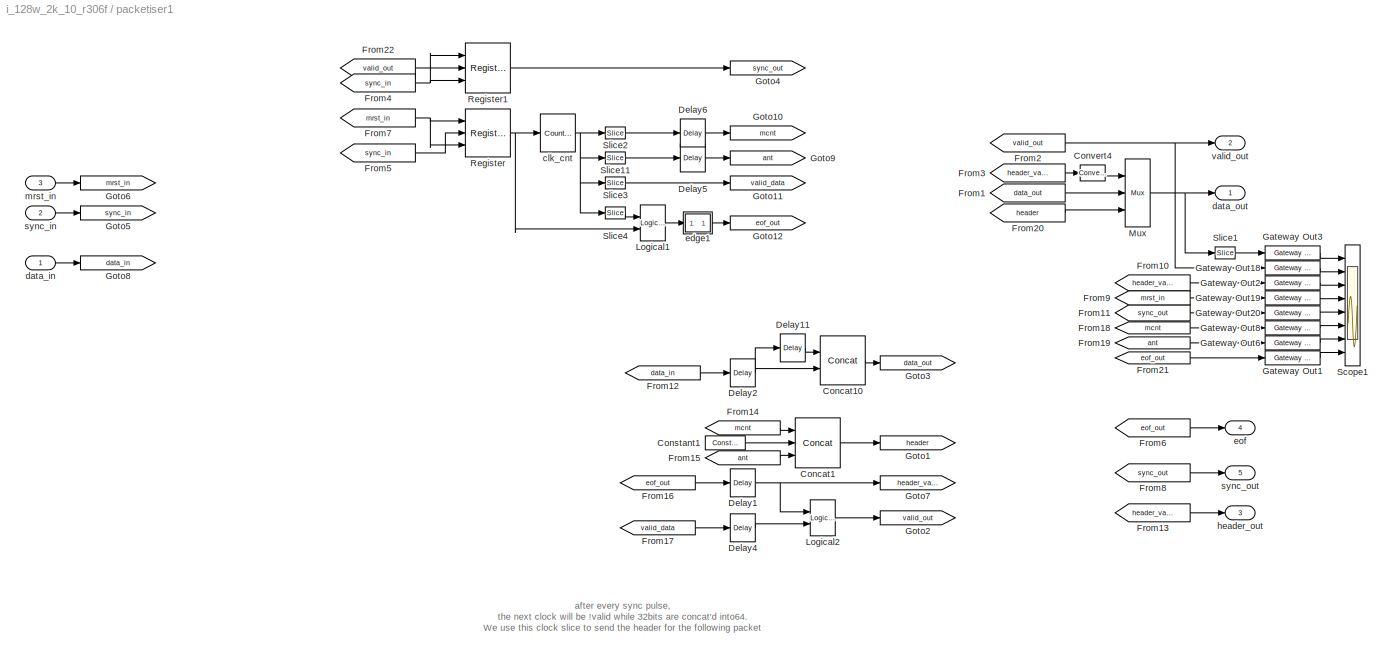
BLOCK [SubSystem] packetiser1
  FunctionWithSeparateData = off
  MaskCallbackString = |
  MaskDescription = Package 32 bit data into 64 bits and identify data as coming from antenna 0 or 1
  MaskEnableString = on,on
  MaskIconFrame = on
  MaskIconOpaque = on
  MaskIconRotate = none
  MaskIconUnits = autoscale
  MaskPromptString = Payload length: (in 64bit words) (2^n)|Number of antennas on this link (2^n)
  MaskStyleString = edit,edit
  MaskTabNameString = ,
  MaskToolTipString = on,on
  MaskTunableValueString = on,on
  MaskValueString = 5|2
  MaskVarAliasString = ,
  MaskVariables = nwrd_bits=@1;ant_bits=@2;
  MaskVisibilityString = on,on
  MinAlgLoopOccurrences = off
  Ports = [3, 5]
  RTWSystemCode = Auto
BLOCK [Reference] packetiser1/Concat1  REF=xbsIndex_r4/Concat
  Ports = [3, 1]
  SourceBlock = xbsIndex_r4/Concat
  SourceType = Xilinx Bus Concatenator Block
  block_type = concat
  block_version = 10.1.3
  dbl_ovrd = off
  has_advanced_control = 0
  infoedit = Concatenates two or more inputs.  Output will be cast to an unsigned value with the binary point at zero.
  num_inputs = 3
  sg_icon_stat = 45,50,1,1,white,blue,0,97cf21e1,right
  sg_mask_display = fprintf('','COMMENT: begin icon graphics');\npatch([0 45 45 0 ],[0 0 50 50 ],[0.77 0.82 0.91]);\npatch([10 3 14 3 10 22 25 28 41 31 21 14 25 14 21 31 41 28 25 22 10 ],[7 14 25 36 43 43 40 43 43 33 43 36 25 14 7 17 7 7 10 7 7 ],[0.98 0.96 0.92]);\nplot([0 45 45 0 0 ],[0 0 50 50 0 ]);\nfprintf('','COMMENT: end icon graphics');\nfprintf('','COMMENT: begin icon text');\ncolor('black');port_label('inpu...<+96ch>
  sggui_pos = -1,-1,-1,-1
BLOCK [Reference] packetiser1/Concat10  REF=xbsIndex_r4/Concat
  Ports = [2, 1]
  SourceBlock = xbsIndex_r4/Concat
  SourceType = Xilinx Bus Concatenator Block
  block_type = concat
  block_version = 10.1.3
  dbl_ovrd = off
  has_advanced_control = 0
  infoedit = Concatenates two or more inputs.  Output will be cast to an unsigned value with the binary point at zero.
  num_inputs = 2
  sg_icon_stat = 45,49,1,1,white,blue,0,df1e5aba,right
  sggui_pos = -1,-1,-1,-1
BLOCK [Reference] packetiser1/Constant1  REF=xbsIndex_r4/Constant
  Ports = [0, 1]
  SourceBlock = xbsIndex_r4/Constant
  SourceType = Xilinx Constant Block Block
  arith_type = Unsigned
  bin_pt = 0
  block_type = constant
  block_version = 10.1.3
  carry = CIN
  const = 0
  dbl_ovrd = off
  dsp48_infoedit = The use of this block for DSP48 instructions is deprecated.  Please use the Opmode block.
  equ = P=C
  explicit_period = on
  has_advanced_control = 0
  inp1 = P
  inp2 = PCIN>>17
  n_bits = 16-ant_bits
  opr = +
  opselect = C
  period = 1
  sg_icon_stat = 40,14,1,1,white,blue,0,72d575a1,right
  sggui_pos = 20,20,400,346
BLOCK [Reference] packetiser1/Convert4  REF=xbsIndex_r4/Convert
  Ports = [1, 1]
  SourceBlock = xbsIndex_r4/Convert
  SourceType = Xilinx Type Converter Block
  arith_type = Unsigned
  bin_pt = 0
  block_type = convert
  block_version = 10.1.3
  dbl_ovrd = off
  has_advanced_control = 0
  infoedit = Hardware notes: rounding and saturating require hardware resources; truncating and wrapping do not.
  latency = 0
  n_bits = 1
  overflow = Wrap
  pipeline = off
  quantization = Truncate
  sg_icon_stat = 25,16,1,1,white,blue,0,74901e60,right
  sggui_pos = -1,-1,-1,-1
  xl_area = [0, 0, 0, 0, 0, 0, 0]
  xl_use_area = off
BLOCK [Reference] packetiser1/Delay1  REF=xbsIndex_r4/Delay
  Ports = [1, 1]
  SourceBlock = xbsIndex_r4/Delay
  SourceType = Xilinx Delay Block
  block_type = delay
  block_version = 10.1.3
  dbl_ovrd = off
  en = off
  has_advanced_control = 0
  infoedit = Hardware notes: A delay line is a chain, each link of which is an SRL16 followed by a flip-flop.
  latency = 1
  reg_retiming = on
  sg_icon_stat = 25,28,1,1,white,blue,0,fc531c0e,right
  sggui_pos = -1,-1,-1,-1
  xl_area = [0, 0, 0, 0, 0, 0, 0]
  xl_use_area = off
BLOCK [Reference] packetiser1/Delay11  REF=xbsIndex_r4/Delay
  Ports = [1, 1]
  SourceBlock = xbsIndex_r4/Delay
  SourceType = Xilinx Delay Block
  block_type = delay
  block_version = 10.1.3
  dbl_ovrd = off
  en = off
  has_advanced_control = 0
  infoedit = Hardware notes: A delay line is a chain, each link of which is an SRL16 followed by a flip-flop.
  latency = 1
  reg_retiming = on
  sg_icon_stat = 25,28,1,1,white,blue,0,fc531c0e,right
  sggui_pos = -1,-1,-1,-1
  xl_area = [0, 0, 0, 0, 0, 0, 0]
  xl_use_area = off
BLOCK [Reference] packetiser1/Delay2  REF=xbsIndex_r4/Delay
  Ports = [1, 1]
  SourceBlock = xbsIndex_r4/Delay
  SourceType = Xilinx Delay Block
  block_type = delay
  block_version = 10.1.3
  dbl_ovrd = off
  en = off
  has_advanced_control = 0
  infoedit = Hardware notes: A delay line is a chain, each link of which is an SRL16 followed by a flip-flop.
  latency = 1
  reg_retiming = on
  sg_icon_stat = 25,28,1,1,white,blue,0,fc531c0e,right
  sggui_pos = -1,-1,-1,-1
  xl_area = [0, 0, 0, 0, 0, 0, 0]
  xl_use_area = off
BLOCK [Reference] packetiser1/Delay4  REF=xbsIndex_r4/Delay
  Ports = [1, 1]
  SourceBlock = xbsIndex_r4/Delay
  SourceType = Xilinx Delay Block
  block_type = delay
  block_version = 10.1.3
  dbl_ovrd = off
  en = off
  has_advanced_control = 0
  infoedit = Hardware notes: A delay line is a chain, each link of which is an SRL16 followed by a flip-flop.
  latency = 1
  reg_retiming = on
  sg_icon_stat = 25,28,1,1,white,blue,0,fc531c0e,right
  sggui_pos = -1,-1,-1,-1
  xl_area = [0, 0, 0, 0, 0, 0, 0]
  xl_use_area = off
BLOCK [Reference] packetiser1/Delay5  REF=xbsIndex_r4/Delay
  Ports = [1, 1]
  SourceBlock = xbsIndex_r4/Delay
  SourceType = Xilinx Delay Block
  block_type = delay
  block_version = 10.1.3
  dbl_ovrd = off
  en = off
  has_advanced_control = 0
  infoedit = Hardware notes: A delay line is a chain, each link of which is an SRL16 followed by a flip-flop.
  latency = 1
  reg_retiming = on
  sg_icon_stat = 25,28,1,1,white,blue,0,fc531c0e,right
  sggui_pos = -1,-1,-1,-1
  xl_area = [0, 0, 0, 0, 0, 0, 0]
  xl_use_area = off
BLOCK [Reference] packetiser1/Delay6  REF=xbsIndex_r4/Delay
  Ports = [1, 1]
  SourceBlock = xbsIndex_r4/Delay
  SourceType = Xilinx Delay Block
  block_type = delay
  block_version = 10.1.3
  dbl_ovrd = off
  en = off
  has_advanced_control = 0
  infoedit = Hardware notes: A delay line is a chain, each link of which is an SRL16 followed by a flip-flop.
  latency = 1
  reg_retiming = on
  sg_icon_stat = 25,28,1,1,white,blue,0,fc531c0e,right
  sggui_pos = -1,-1,-1,-1
  xl_area = [0, 0, 0, 0, 0, 0, 0]
  xl_use_area = off
BLOCK [From] packetiser1/From1
  CloseFcn = tagdialog Close
  GotoTag = data_out
BLOCK [From] packetiser1/From10
  CloseFcn = tagdialog Close
  GotoTag = header_valid
BLOCK [From] packetiser1/From11
  CloseFcn = tagdialog Close
  GotoTag = sync_out
BLOCK [From] packetiser1/From12
  CloseFcn = tagdialog Close
  GotoTag = data_in
BLOCK [From] packetiser1/From13
  CloseFcn = tagdialog Close
  GotoTag = header_valid
BLOCK [From] packetiser1/From14
  CloseFcn = tagdialog Close
  GotoTag = mcnt
BLOCK [From] packetiser1/From15
  CloseFcn = tagdialog Close
  GotoTag = ant
BLOCK [From] packetiser1/From16
  CloseFcn = tagdialog Close
  GotoTag = eof_out
BLOCK [From] packetiser1/From17
  CloseFcn = tagdialog Close
  GotoTag = valid_data
BLOCK [From] packetiser1/From18
  CloseFcn = tagdialog Close
  GotoTag = mcnt
BLOCK [From] packetiser1/From19
  CloseFcn = tagdialog Close
  GotoTag = ant
BLOCK [From] packetiser1/From2
  CloseFcn = tagdialog Close
  GotoTag = valid_out
BLOCK [From] packetiser1/From20
  CloseFcn = tagdialog Close
  GotoTag = header
BLOCK [From] packetiser1/From21
  CloseFcn = tagdialog Close
  GotoTag = eof_out
BLOCK [From] packetiser1/From22
  CloseFcn = tagdialog Close
  GotoTag = valid_out
BLOCK [From] packetiser1/From3
  CloseFcn = tagdialog Close
  GotoTag = header_valid
BLOCK [From] packetiser1/From4
  CloseFcn = tagdialog Close
  GotoTag = sync_in
BLOCK [From] packetiser1/From5
  CloseFcn = tagdialog Close
  GotoTag = sync_in
BLOCK [From] packetiser1/From6
  CloseFcn = tagdialog Close
  GotoTag = eof_out
BLOCK [From] packetiser1/From7
  CloseFcn = tagdialog Close
  GotoTag = mrst_in
BLOCK [From] packetiser1/From8
  CloseFcn = tagdialog Close
  GotoTag = sync_out
BLOCK [From] packetiser1/From9
  CloseFcn = tagdialog Close
  GotoTag = mrst_in
BLOCK [Reference] packetiser1/Gateway Out1  REF=xbsIndex_r4/Gateway Out
  LOCs = {}
  Ports = [1, 1]
  SourceBlock = xbsIndex_r4/Gateway Out
  SourceType = Xilinx Gateway Out Block
  block_type = gatewayout
  block_version = 10.1.3
  has_advanced_control = 0
  hdl_port = on
  locs_specified = off
  sg_icon_stat = 55,14,1,1,white,yellow,0,38220381,right
  sg_mask_display = fprintf('','COMMENT: begin icon graphics');\npatch([0 55 55 0 ],[0 0 14 14 ],[0.95 0.93 0.65]);\npatch([23 21 24 21 23 27 28 29 33 30 27 25 28 25 27 30 33 29 28 27 23 ],[2 4 7 10 12 12 11 12 12 9 12 10 7 4 2 5 2 2 3 2 2 ],[0.98 0.96 0.92]);\nplot([0 55 55 0 0 ],[0 0 14 14 0 ]);\nfprintf('','COMMENT: end icon graphics');\nfprintf('','COMMENT: begin icon text');\ncolor('black');port_label('input',1,...<+129ch>  <repeated x8 — deduplicated; at blocks: Gateway Out1, Gateway Out18, Gateway Out19, Gateway Out2, Gateway Out20, Gateway Out3, Gateway Out6, Gateway Out8>
  sggui_pos = -1,-1,-1,-1
  timing_constraint = None
  xl_area = [0, 0, 0, 0, 0, 0, 0]
  xl_use_area = off
BLOCK [Reference] packetiser1/Gateway Out18  REF=xbsIndex_r4/Gateway Out
  LOCs = {}
  Ports = [1, 1]
  SourceBlock = xbsIndex_r4/Gateway Out
  SourceType = Xilinx Gateway Out Block
  block_type = gatewayout
  block_version = 10.1.3
  has_advanced_control = 0
  hdl_port = on
  locs_specified = off
  sg_icon_stat = 55,14,1,1,white,yellow,0,38220381,right
  sggui_pos = -1,-1,-1,-1
  timing_constraint = None
  xl_area = [0, 0, 0, 0, 0, 0, 0]
  xl_use_area = off
BLOCK [Reference] packetiser1/Gateway Out19  REF=xbsIndex_r4/Gateway Out
  LOCs = {}
  Ports = [1, 1]
  SourceBlock = xbsIndex_r4/Gateway Out
  SourceType = Xilinx Gateway Out Block
  block_type = gatewayout
  block_version = 10.1.3
  has_advanced_control = 0
  hdl_port = on
  locs_specified = off
  sg_icon_stat = 55,14,1,1,white,yellow,0,38220381,right
  sggui_pos = -1,-1,-1,-1
  timing_constraint = None
  xl_area = [0, 0, 0, 0, 0, 0, 0]
  xl_use_area = off
BLOCK [Reference] packetiser1/Gateway Out2  REF=xbsIndex_r4/Gateway Out
  LOCs = {}
  Ports = [1, 1]
  SourceBlock = xbsIndex_r4/Gateway Out
  SourceType = Xilinx Gateway Out Block
  block_type = gatewayout
  block_version = 10.1.3
  has_advanced_control = 0
  hdl_port = on
  locs_specified = off
  sg_icon_stat = 55,14,1,1,white,yellow,0,38220381,right
  sggui_pos = -1,-1,-1,-1
  timing_constraint = None
  xl_area = [0, 0, 0, 0, 0, 0, 0]
  xl_use_area = off
BLOCK [Reference] packetiser1/Gateway Out20  REF=xbsIndex_r4/Gateway Out
  LOCs = {}
  Ports = [1, 1]
  SourceBlock = xbsIndex_r4/Gateway Out
  SourceType = Xilinx Gateway Out Block
  block_type = gatewayout
  block_version = 10.1.3
  has_advanced_control = 0
  hdl_port = on
  locs_specified = off
  sg_icon_stat = 55,14,1,1,white,yellow,0,38220381,right
  sggui_pos = -1,-1,-1,-1
  timing_constraint = None
  xl_area = [0, 0, 0, 0, 0, 0, 0]
  xl_use_area = off
BLOCK [Reference] packetiser1/Gateway Out3  REF=xbsIndex_r4/Gateway Out
  LOCs = {}
  Ports = [1, 1]
  SourceBlock = xbsIndex_r4/Gateway Out
  SourceType = Xilinx Gateway Out Block
  block_type = gatewayout
  block_version = 10.1.3
  has_advanced_control = 0
  hdl_port = on
  locs_specified = off
  sg_icon_stat = 55,14,1,1,white,yellow,0,38220381,right
  sggui_pos = -1,-1,-1,-1
  timing_constraint = None
  xl_area = [0, 0, 0, 0, 0, 0, 0]
  xl_use_area = off
BLOCK [Reference] packetiser1/Gateway Out6  REF=xbsIndex_r4/Gateway Out
  LOCs = {}
  Ports = [1, 1]
  SourceBlock = xbsIndex_r4/Gateway Out
  SourceType = Xilinx Gateway Out Block
  block_type = gatewayout
  block_version = 10.1.3
  has_advanced_control = 0
  hdl_port = on
  locs_specified = off
  sg_icon_stat = 55,14,1,1,white,yellow,0,38220381,right
  sggui_pos = -1,-1,-1,-1
  timing_constraint = None
  xl_area = [0, 0, 0, 0, 0, 0, 0]
  xl_use_area = off
BLOCK [Reference] packetiser1/Gateway Out8  REF=xbsIndex_r4/Gateway Out
  LOCs = {}
  Ports = [1, 1]
  SourceBlock = xbsIndex_r4/Gateway Out
  SourceType = Xilinx Gateway Out Block
  block_type = gatewayout
  block_version = 10.1.3
  has_advanced_control = 0
  hdl_port = on
  locs_specified = off
  sg_icon_stat = 55,14,1,1,white,yellow,0,38220381,right
  sggui_pos = -1,-1,-1,-1
  timing_constraint = None
  xl_area = [0, 0, 0, 0, 0, 0, 0]
  xl_use_area = off
BLOCK [Goto] packetiser1/Goto1
  GotoTag = header
  TagVisibility = local
BLOCK [Goto] packetiser1/Goto10
  GotoTag = mcnt
  TagVisibility = local
BLOCK [Goto] packetiser1/Goto11
  GotoTag = valid_data
  TagVisibility = local
BLOCK [Goto] packetiser1/Goto12
  GotoTag = eof_out
  TagVisibility = local
BLOCK [Goto] packetiser1/Goto2
  GotoTag = valid_out
  TagVisibility = local
BLOCK [Goto] packetiser1/Goto3
  GotoTag = data_out
  TagVisibility = local
BLOCK [Goto] packetiser1/Goto4
  GotoTag = sync_out
  TagVisibility = local
BLOCK [Goto] packetiser1/Goto5
  GotoTag = sync_in
  TagVisibility = local
BLOCK [Goto] packetiser1/Goto6
  GotoTag = mrst_in
  TagVisibility = local
BLOCK [Goto] packetiser1/Goto7
  GotoTag = header_valid
  TagVisibility = local
BLOCK [Goto] packetiser1/Goto8
  GotoTag = data_in
  TagVisibility = local
BLOCK [Goto] packetiser1/Goto9
  GotoTag = ant
  TagVisibility = local
BLOCK [Reference] packetiser1/Logical1  REF=xbsIndex_r4/Logical
  Ports = [2, 1]
  SourceBlock = xbsIndex_r4/Logical
  SourceType = Xilinx Logical Block Block
  align_bp = on
  arith_type = Unsigned
  bin_pt = 0
  block_type = logical
  block_version = 10.1.3
  dbl_ovrd = off
  en = off
  has_advanced_control = 0
  inputs = 2
  latency = 0
  logical_function = OR
  n_bits = 1
  precision = Full
  sg_icon_stat = 25,36,1,1,white,blue,0,f4a65842,right
  sggui_pos = -1,-1,-1,-1
  xl_area = [0, 0, 0, 0, 0, 0, 0]
  xl_use_area = off
BLOCK [Reference] packetiser1/Logical2  REF=xbsIndex_r4/Logical
  Ports = [2, 1]
  SourceBlock = xbsIndex_r4/Logical
  SourceType = Xilinx Logical Block Block
  align_bp = on
  arith_type = Unsigned
  bin_pt = 0
  block_type = logical
  block_version = 10.1.3
  dbl_ovrd = off
  en = off
  has_advanced_control = 0
  inputs = 2
  latency = 0
  logical_function = OR
  n_bits = 1
  precision = Full
  sg_icon_stat = 25,36,1,1,white,blue,0,f4a65842,right
  sggui_pos = -1,-1,-1,-1
  xl_area = [0, 0, 0, 0, 0, 0, 0]
  xl_use_area = off
BLOCK [Reference] packetiser1/Mux  REF=xbsIndex_r4/Mux
  Ports = [3, 1]
  SourceBlock = xbsIndex_r4/Mux
  SourceType = Xilinx Bus Multiplexer Block
  arith_type = Signed  (2's comp)
  bin_pt = 2
  block_type = mux
  block_version = 10.1.3
  dbl_ovrd = off
  en = off
  has_advanced_control = 0
  inputs = 2
  latency = 0
  n_bits = 8
  overflow = Wrap
  precision = Full
  quantization = Truncate
  sg_icon_stat = 25,68,1,1,white,blue,3,613f58e1,right
  sggui_pos = -1,-1,-1,-1
  xl_area = [0, 0, 0, 0, 0, 0, 0]
  xl_use_area = off
BLOCK [Reference] packetiser1/Register  REF=xbsIndex_r4/Register
  Ports = [3, 1]
  SourceBlock = xbsIndex_r4/Register
  SourceType = Xilinx Register Block
  block_type = register
  block_version = 10.1.3
  dbl_ovrd = off
  en = on
  has_advanced_control = 0
  init = 0
  rst = on
  sg_icon_stat = 45,48,1,1,white,blue,0,923c1847,right
  sggui_pos = -1,-1,-1,-1
  xl_area = [0, 0, 0, 0, 0, 0, 0]
  xl_use_area = off
BLOCK [Reference] packetiser1/Register1  REF=xbsIndex_r4/Register
  Ports = [3, 1]
  SourceBlock = xbsIndex_r4/Register
  SourceType = Xilinx Register Block
  block_type = register
  block_version = 10.1.3
  dbl_ovrd = off
  en = on
  has_advanced_control = 0
  init = 0
  rst = on
  sg_icon_stat = 45,50,1,1,white,blue,0,923c1847,right
  sggui_pos = -1,-1,-1,-1
  xl_area = [0, 0, 0, 0, 0, 0, 0]
  xl_use_area = off
BLOCK [Scope] packetiser1/Scope1
  DataFormat = StructureWithTime
  Floating = off
  LimitDataPoints = off
  NumInputPorts = 8
  Ports = [8]
  SampleTime = 0
  SaveName = ScopeData6
  YMax = 1.5e+007~1~1~1~1~205~2~1
  YMin = 0~0~0~-1~-1~205~0~0
  ZoomMode = xonly
BLOCK [Reference] packetiser1/Slice1  REF=xbsIndex_r4/Slice
  Ports = [1, 1]
  SourceBlock = xbsIndex_r4/Slice
  SourceType = Xilinx Bit Slice Extractor Block
  base0 = LSB of Input
  base1 = MSB of Input
  bit0 = 0
  bit1 = 0
  block_type = slice
  block_version = 10.1.3
  boolean_output = off
  dbl_ovrd = off
  has_advanced_control = 0
  mode = Lower Bit Location + Width
  nbits = 32
  sg_icon_stat = 20,12,1,1,white,blue,0,b1026674,right
  sggui_pos = 20,20,449,376
BLOCK [Reference] packetiser1/Slice11  REF=xbsIndex_r4/Slice
  Ports = [1, 1]
  SourceBlock = xbsIndex_r4/Slice
  SourceType = Xilinx Bit Slice Extractor Block
  base0 = LSB of Input
  base1 = MSB of Input
  bit0 = nwrd_bits+1
  bit1 = 0
  block_type = slice
  block_version = 10.1.3
  boolean_output = off
  dbl_ovrd = off
  has_advanced_control = 0
  mode = Lower Bit Location + Width
  nbits = ant_bits
  sg_icon_stat = 20,12,1,1,white,blue,0,b1026674,right
  sggui_pos = 20,20,449,376
BLOCK [Reference] packetiser1/Slice2  REF=xbsIndex_r4/Slice
  Ports = [1, 1]
  SourceBlock = xbsIndex_r4/Slice
  SourceType = Xilinx Bit Slice Extractor Block
  base0 = LSB of Input
  base1 = MSB of Input
  bit0 = 0
  bit1 = 0
  block_type = slice
  block_version = 10.1.3
  boolean_output = off
  dbl_ovrd = off
  has_advanced_control = 0
  mode = Upper Bit Location + Width
  nbits = 48
  sg_icon_stat = 20,12,1,1,white,blue,0,b1026674,right
  sggui_pos = 20,20,449,376
BLOCK [Reference] packetiser1/Slice3  REF=xbsIndex_r4/Slice
  Ports = [1, 1]
  SourceBlock = xbsIndex_r4/Slice
  SourceType = Xilinx Bit Slice Extractor Block
  base0 = LSB of Input
  base1 = MSB of Input
  bit0 = 0
  bit1 = 0
  block_type = slice
  block_version = 10.1.3
  boolean_output = on
  dbl_ovrd = off
  has_advanced_control = 0
  mode = Lower Bit Location + Width
  nbits = 1
  sg_icon_stat = 20,12,1,1,white,blue,0,b1026674,right
  sggui_pos = 20,20,449,376
BLOCK [Reference] packetiser1/Slice4  REF=xbsIndex_r4/Slice
  Ports = [1, 1]
  SourceBlock = xbsIndex_r4/Slice
  SourceType = Xilinx Bit Slice Extractor Block
  base0 = LSB of Input
  base1 = MSB of Input
  bit0 = nwrd_bits+1
  bit1 = 0
  block_type = slice
  block_version = 10.1.3
  boolean_output = on
  dbl_ovrd = off
  has_advanced_control = 0
  mode = Lower Bit Location + Width
  nbits = 1
  sg_icon_stat = 20,12,1,1,white,blue,0,b1026674,right
  sggui_pos = 20,20,449,376
BLOCK [Reference] packetiser1/clk_cnt  REF=xbsIndex_r4/Counter
  Ports = [1, 1]
  SourceBlock = xbsIndex_r4/Counter
  SourceType = Xilinx Counter Block
  arith_type = Unsigned
  bin_pt = 0
  block_type = counter
  block_version = 10.1.3
  cnt_by_val = 1
  cnt_to = Inf
  cnt_type = Free Running
  dbl_ovrd = off
  en = off
  explicit_period = off
  has_advanced_control = 0
  implementation = Fabric
  infoedit = Hardware notes: Free running counters are the least expensive in hardware.  A count limited counter is implemented by combining a counter with a comparator.
  load_pin = off
  n_bits = 48+nwrd_bits+ant_bits+1
  operation = Up
  period = 1
  rst = on
  sg_icon_stat = 35,38,1,1,white,blue,0,300e9576,right
  sggui_pos = 20,20,348,619
  start_count = 0
  use_behavioral_HDL = off
  use_rpm = on
  xl_area = [0, 0, 0, 0, 0, 0, 0]
  xl_use_area = off
BLOCK [Inport] packetiser1/data_in
  IconDisplay = Port number
  OutDataType = sfix(16)
  OutScaling = 2^0
BLOCK [Outport] packetiser1/data_out
  IconDisplay = Port number
  OutDataType = sfix(16)
  OutScaling = 2^0
BLOCK [SubSystem] packetiser1/edge1
  FunctionWithSeparateData = off
  MaskDescription = Outputs true if a boolean input signal is not equal to its value last clock.
  MaskHelp = eval('xlWeb([getenv(''MLIB_ROOT''), ''<path>''])')
  MaskIconFrame = on
  MaskIconOpaque = on
  MaskIconRotate = none
  MaskIconUnits = autoscale
  MaskType = edge
  MinAlgLoopOccurrences = off
  Ports = [1, 1]
  RTWSystemCode = Auto
BLOCK [Reference] packetiser1/edge1/Delay4  REF=xbsIndex_r4/Delay
  Ports = [1, 1]
  SourceBlock = xbsIndex_r4/Delay
  SourceType = Xilinx Delay Block
  block_type = delay
  block_version = 10.1.3
  dbl_ovrd = off
  en = off
  has_advanced_control = 0
  infoedit = Hardware notes: A delay line is a chain, each link of which is an SRL16 followed by a flip-flop.
  latency = 1
  reg_retiming = off
  sg_icon_stat = 20,20,1,1,white,blue,0,fc531c0e,right
  sggui_pos = -1,-1,-1,-1
  xl_area = [0, 0, 0, 0, 0, 0, 0]
  xl_use_area = off
BLOCK [Reference] packetiser1/edge1/Logical3  REF=xbsIndex_r4/Logical
  Ports = [2, 1]
  SourceBlock = xbsIndex_r4/Logical
  SourceType = Xilinx Logical Block Block
  align_bp = on
  arith_type = Unsigned
  bin_pt = 2
  block_type = logical
  block_version = 10.1.3
  dbl_ovrd = off
  en = off
  has_advanced_control = 0
  inputs = 2
  latency = 0
  logical_function = XOR
  n_bits = 8
  precision = Full
  sg_icon_stat = 30,29,1,1,white,blue,0,54bbd59c,right
  sggui_pos = -1,-1,-1,-1
  xl_area = [0, 0, 0, 0, 0, 0, 0]
  xl_use_area = off
BLOCK [Inport] packetiser1/edge1/in
  IconDisplay = Port number
  OutDataType = sfix(16)
  OutScaling = 2^0
BLOCK [Outport] packetiser1/edge1/out
  IconDisplay = Port number
  OutDataType = sfix(16)
  OutScaling = 2^0
BLOCK [Outport] packetiser1/eof
  IconDisplay = Port number
  OutDataType = sfix(16)
  OutScaling = 2^0
  Port = 4
BLOCK [Outport] packetiser1/header_out
  IconDisplay = Port number
  OutDataType = sfix(16)
  OutScaling = 2^0
  Port = 3
BLOCK [Inport] packetiser1/mrst_in
  IconDisplay = Port number
  OutDataType = sfix(16)
  OutScaling = 2^0
  Port = 3
BLOCK [Inport] packetiser1/sync_in
  IconDisplay = Port number
  OutDataType = sfix(16)
  OutScaling = 2^0
  Port = 2
BLOCK [Outport] packetiser1/sync_out
  IconDisplay = Port number
  OutDataType = sfix(16)
  OutScaling = 2^0
  Port = 5
BLOCK [Outport] packetiser1/valid_out
  IconDisplay = Port number
  OutDataType = sfix(16)
  OutScaling = 2^0
  Port = 2
BLOCK [SubSystem] pfb_fir0
  AncestorBlock = casper_library/PFBs/pfb_fir
  AttributesFormatString = taps=4, add_latency=1
  FunctionWithSeparateData = off
  MaskCallbackString = |num_taps = eval(get_param(gcb, 'TotalTaps'));\nold_vec = eval(get_param(gcb, 'mult_spec'));\n\nvec = ones(1,num_taps);\nold_size = length(old_vec);\n\nif(old_size <= num_taps), \n    size = old_size;\nelse, \n    size = num_taps;\nend\n\nfor n = 1:size, vec(n) = old_vec(n); end\nset_param(gcb, 'mult_spec', mat2str(vec));|||||||||||||specify_mult = get_param(gcb,'specify_mult');\nif( strcmp(specif...<+583ch>  <repeated x4 — deduplicated; at blocks: pfb_fir0, pfb_fir1, pfb_fir2, pfb_fir3>
  MaskEnableString = on,on,on,on,on,on,on,on,on,on,on,on,on,on,on,off
  MaskHelp = eval('xlWeb([getenv(''MLIB_ROOT''), ''<path>''])')
  MaskIconFrame = on
  MaskIconOpaque = on
  MaskIconRotate = none
  MaskIconUnits = autoscale
  MaskInitialization = pfb_fir_init(gcb, ...\n    'PFBSize', PFBSize, ...\n    'TotalTaps', TotalTaps, ...\n    'WindowType', WindowType, ...\n    'n_inputs', n_inputs, ...\n    'MakeBiplex', MakeBiplex, ...\n    'BitWidthIn', BitWidthIn, ...\n    'BitWidthOut', BitWidthOut, ...\n    'CoeffBitWidth', CoeffBitWidth, ...\n    'CoeffDistMem', CoeffDistMem, ...\n    'add_latency', add_latency, ...\n    'mult_latency', mult_...<+184ch>  <repeated x4 — deduplicated; at blocks: pfb_fir0, pfb_fir1, pfb_fir2, pfb_fir3>
  MaskPromptString = Size of PFB: (2^? pnts)|Total Number of Taps:|Windowing Function: |Number of Simultaneous Inputs: (2^?)|Make Biplex|Input Bitwidth:|Output Bitwidth:|Coefficient Bitwidth:|Use Distributed Memory for Coeffs|Add Latency|Mult Latency|BRAM Latency|Quantization Behavior|Bin Width Scaling (normal=1)|Specify multiplier use (embedded if not specified)|Multiplier specification (0=core, 1=embedded, 2=behavio...<+20ch>  <repeated x4 — deduplicated; at blocks: pfb_fir0, pfb_fir1, pfb_fir2, pfb_fir3>
  MaskSelfModifiable = on
  MaskStyleString = edit,edit,popup(bartlett|barthannwin|blackman|blackmanharris|bohamwin|chebwin|flattopwin|gausswin|hamming|hann|kaiser|nuttallwin|parzenwin|rectwin|tukeywin|triang|userwindow),edit,edit,edit,edit,edit,edit,edit,edit,edit,popup(Truncate|Round  (unbiased: +/- Inf)|Round  (unbiased: Even Values)),edit,checkbox,edit  <repeated x4 — deduplicated; at blocks: pfb_fir0, pfb_fir1, pfb_fir2, pfb_fir3>
  MaskTabNameString = ,,,,,,,,,,,,,,,
  MaskToolTipString = on,on,on,on,on,on,on,on,on,on,on,on,on,on,on,on
  MaskTunableValueString = on,on,on,on,on,on,on,on,on,on,on,on,on,on,on,on
  MaskType = pfb_fir
  MaskValueString = 11|4|hamming|0|0|8|18|8|0|1|2|3|Round  (unbiased: Even Values)|1|off|[0 1 2 0]
  MaskVarAliasString = ,,,,,,,,,,,,,,,
  MaskVariables = PFBSize=@1;TotalTaps=@2;WindowType=&3;n_inputs=@4;MakeBiplex=@5;BitWidthIn=@6;BitWidthOut=@7;CoeffBitWidth=@8;CoeffDistMem=@9;add_latency=@10;mult_latency=@11;bram_latency=@12;quantization=&13;fwidth=@14;specify_mult=&15;mult_spec=@16;  <repeated x4 — deduplicated; at blocks: pfb_fir0, pfb_fir1, pfb_fir2, pfb_fir3>
  MaskVisibilityString = on,on,on,on,on,on,on,on,on,on,on,on,on,on,on,on
  MinAlgLoopOccurrences = off
  Ports = [2, 2]
  RTWSystemCode = Auto
  UserData = DataTag11
  UserDataPersistent = on
BLOCK [Inport] pfb_fir0/pol1_in1
  IconDisplay = Port number
  OutDataType = sfix(16)
  OutScaling = 2^0
  Port = 2
BLOCK [SubSystem] pfb_fir0/pol1_in1_first_tap
  AncestorBlock = casper_library/PFBs/first_tap
  AttributesFormatString = input=0, taps=4
  FunctionWithSeparateData = off
  MaskCallbackString = |||||||||||use_hdl = get_param(gcb,'use_hdl');\nif( strcmp(use_hdl,'on')),\n    set_param(gcb, 'use_embedded','off');\n    set_param(gcb, 'MaskVisibilities',{'on','on','on','on','on','on','on','on','on','on','on','on','off'});\nelse,\n    set_param(gcb, 'MaskVisibilities',{'on','on','on','on','on','on','on','on','on','on','on','on','on'});    \nend\n|  <repeated x4 — deduplicated; at blocks: pol1_in1_first_tap>
  MaskEnableString = on,on,on,on,on,on,on,on,on,on,on,on,on
  MaskIconFrame = on
  MaskIconOpaque = on
  MaskIconRotate = none
  MaskIconUnits = autoscale
  MaskInitialization = first_tap_init(gcb,...\n    'nput', nput,...\n    'PFBSize', PFBSize,...\n    'CoeffBitWidth', CoeffBitWidth,...\n    'TotalTaps', TotalTaps,...\n    'BitWidthIn', BitWidthIn,...\n    'CoeffDistMem', CoeffDistMem,...\n    'WindowType', WindowType,...\n    'mult_latency', mult_latency,...\n    'bram_latency', bram_latency,...\n    'n_inputs', n_inputs,...\n    'fwidth', fwidth,...\n    'use_hdl', u...<+46ch>  <repeated x4 — deduplicated; at blocks: pol1_in1_first_tap>
  MaskPromptString = This is input number:|Size of PFB: (2^? pnts)|Bitwidth of Coefficients:|Total Number of Taps:|Input Bitwidth:|Implement Coeff Gen in Distributed Memory:|Windowing Function:|Mult Latency|BRAM Latency|Number of Simultaneous Inputs: (2^?)|Bit Width (normal=1)|Use behavioral HDL for multlipliers|Use embedded multipliers  <repeated x4 — deduplicated; at blocks: pol1_in1_first_tap>
  MaskSelfModifiable = on
  MaskStyleString = edit,edit,edit,edit,edit,edit,popup(bartlett|barthannwin|blackman|blackmanharris|bohamwin|chebwin|flattopwin|gausswin|hamming|hann|kaiser|nuttallwin|parzenwin|rectwin|tukeywin|triang),edit,edit,edit,edit,checkbox,checkbox  <repeated x4 — deduplicated; at blocks: pol1_in1_first_tap>
  MaskTabNameString = ,,,,,,,,,,,,
  MaskToolTipString = on,on,on,on,on,on,on,on,on,on,on,on,on
  MaskTunableValueString = on,on,on,on,on,on,on,on,on,on,on,on,on
  MaskType = first_tap
  MaskValueString = 0|11|8|4|8|0|hamming|2|3|0|1|off|on
  MaskVarAliasString = ,,,,,,,,,,,,
  MaskVariables = nput=@1;PFBSize=@2;CoeffBitWidth=@3;TotalTaps=@4;BitWidthIn=@5;CoeffDistMem=@6;WindowType=&7;mult_latency=@8;bram_latency=@9;n_inputs=@10;fwidth=@11;use_hdl=&12;use_embedded=&13;
  MaskVisibilityString = on,on,on,on,on,on,on,on,on,on,on,on,on
  MinAlgLoopOccurrences = off
  Ports = [2, 4]
  RTWSystemCode = Auto
  UserData = DataTag12
  UserDataPersistent = on
BLOCK [Reference] pfb_fir0/pol1_in1_first_tap/Mult  REF=xbsIndex_r4/Mult
  Ports = [2, 1]
  SourceBlock = xbsIndex_r4/Mult
  SourceType = Xilinx Multiplier Block
  arith_type = Signed  (2's comp)
  bin_pt = 2
  block_type = mult
  block_version = 9.1.01
  dbl_ovrd = off
  en = off
  has_advanced_control = 0
  infoedit = Hardware notes: To use the internal pipeline stage of the dedicated multiplier you must select 'Pipeline for maximum performance'.
  latency = mult_latency
  n_bits = 8
  opt = Speed
  optimum_pipeline = off
  overflow = Wrap
  pipeline = on
  placement_style = Rectangular shape
  precision = Full
  quantization = Truncate
  sg_icon_stat = 50,51,1,1,white,blue,0,d5e45138,right
  sggui_pos = 20,20,348,434
  use_behavioral_HDL = off
  use_embedded = on
  use_rpm = on
  xl_area = [0, 0, 0, 0, 0, 0, 0]
  xl_use_area = off
BLOCK [Reference] pfb_fir0/pol1_in1_first_tap/Mult1  REF=xbsIndex_r4/Mult
  Ports = [2, 1]
  SourceBlock = xbsIndex_r4/Mult
  SourceType = Xilinx Multiplier Block
  arith_type = Signed  (2's comp)
  bin_pt = 2
  block_type = mult
  block_version = 9.1.01
  dbl_ovrd = off
  en = off
  has_advanced_control = 0
  infoedit = Hardware notes: To use the internal pipeline stage of the dedicated multiplier you must select 'Pipeline for maximum performance'.
  latency = mult_latency
  n_bits = 8
  opt = Speed
  optimum_pipeline = off
  overflow = Wrap
  pipeline = on
  placement_style = Rectangular shape
  precision = Full
  quantization = Truncate
  sg_icon_stat = 50,51,1,1,white,blue,0,d5e45138,right
  sggui_pos = 20,20,348,434
  use_behavioral_HDL = off
  use_embedded = on
  use_rpm = on
  xl_area = [0, 0, 0, 0, 0, 0, 0]
  xl_use_area = off
BLOCK [Reference] pfb_fir0/pol1_in1_first_tap/Reinterpret  REF=xbsIndex_r4/Reinterpret
  Ports = [1, 1]
  SourceBlock = xbsIndex_r4/Reinterpret
  SourceType = Xilinx Type Reinterpreter Block
  arith_type = Signed  (2's comp)
  bin_pt = CoeffBitWidth - 1
  block_type = reinterpret
  block_version = 9.1.01
  force_arith_type = on
  force_bin_pt = on
  has_advanced_control = 0
  sg_icon_stat = 40,32,1,1,white,blue,0,8982c1db,right
  sggui_pos = -1,-1,-1,-1
BLOCK [Reference] pfb_fir0/pol1_in1_first_tap/Slice  REF=xbsIndex_r4/Slice
  Ports = [1, 1]
  SourceBlock = xbsIndex_r4/Slice
  SourceType = Xilinx Bit Slice Extractor Block
  base0 = LSB of Input
  base1 = MSB of Input
  bit0 = 0
  bit1 = 0
  block_type = slice
  block_version = 9.1.01
  boolean_output = off
  dbl_ovrd = off
  has_advanced_control = 0
  mode = Lower Bit Location + Width
  nbits = CoeffBitWidth
  sg_icon_stat = 45,28,1,1,white,blue,0,b1026674,right
  sggui_pos = -1,-1,-1,-1
BLOCK [Reference] pfb_fir0/pol1_in1_first_tap/Slice1  REF=xbsIndex_r4/Slice
  Ports = [1, 1]
  SourceBlock = xbsIndex_r4/Slice
  SourceType = Xilinx Bit Slice Extractor Block
  base0 = LSB of Input
  base1 = MSB of Input
  bit0 = CoeffBitWidth
  bit1 = 0
  block_type = slice
  block_version = 9.1.01
  boolean_output = off
  dbl_ovrd = off
  has_advanced_control = 0
  mode = Two Bit Locations
  nbits = CoeffBitWidth * (TotalTaps - 1)
  sg_icon_stat = 45,28,1,1,white,blue,0,b1026674,right
  sggui_pos = -1,-1,-1,-1
BLOCK [Reference] pfb_fir0/pol1_in1_first_tap/c_to_ri  REF=casper_library/Misc/c_to_ri  (lib defined in mdl_138b2fc3435f, mdl_4ed325b712b3, +2 more)
  AttributesFormatString = 8_7 r/i
  FunctionWithSeparateData = off
  Ports = [1, 2]
  RTWMemSecDataConstants = Inherit from model
  RTWMemSecDataInternal = Inherit from model
  RTWMemSecDataParameters = Inherit from model
  RTWMemSecFuncExecute = Inherit from model
  RTWMemSecFuncInitTerm = Inherit from model
  ShowPortLabels = FromPortIcon
  SourceBlock = casper_library/Misc/c_to_ri
  SourceType = c_to_ri
  SystemSampleTime = -1
  UserData = DataTag13
  UserDataPersistent = on
  bin_pt = BitWidthIn-1
  n_bits = BitWidthIn
BLOCK [Outport] pfb_fir0/pol1_in1_first_tap/coeff_out
  IconDisplay = Port number
  OutDataType = sfix(16)
  OutScaling = 2^0
  Port = 3
BLOCK [Reference] pfb_fir0/pol1_in1_first_tap/delay_bram  REF=casper_library/Delays/delay_bram  (lib defined in mdl_138b2fc3435f, mdl_4ed325b712b3, +2 more)
  DelayLen = 2^(PFBSize-n_inputs)
  FunctionWithSeparateData = off
  Ports = [1, 1]
  RTWMemSecDataConstants = Inherit from model
  RTWMemSecDataInternal = Inherit from model
  RTWMemSecDataParameters = Inherit from model
  RTWMemSecFuncExecute = Inherit from model
  RTWMemSecFuncInitTerm = Inherit from model
  ShowPortLabels = FromPortIcon
  SourceBlock = casper_library/Delays/delay_bram
  SourceType = delay_bram
  SystemSampleTime = -1
  bram_latency = bram_latency
  use_dsp48 = off
BLOCK [Inport] pfb_fir0/pol1_in1_first_tap/din
  IconDisplay = Port number
  OutDataType = sfix(16)
  OutScaling = 2^0
BLOCK [Outport] pfb_fir0/pol1_in1_first_tap/dout
  IconDisplay = Port number
  OutDataType = sfix(16)
  OutScaling = 2^0
BLOCK [SubSystem] pfb_fir0/pol1_in1_first_tap/pfb_coeff_gen
  AncestorBlock = casper_library/PFBs/pfb_coeff_gen
  AttributesFormatString = PFBSize=11, n_inputs=0, taps=4
  FunctionWithSeparateData = off
  MaskCallbackString = ||||||||
  MaskEnableString = on,on,on,on,on,on,on,on,on
  MaskIconFrame = on
  MaskIconOpaque = on
  MaskIconRotate = none
  MaskIconUnits = autoscale
  MaskInitialization = pfb_coeff_gen_init(gcb, ...\n    'PFBSize', PFBSize, ...\n    'CoeffBitWidth', CoeffBitWidth, ...\n    'TotalTaps', TotalTaps, ...\n    'CoeffDistMem', CoeffDistMem, ...\n    'WindowType', WindowType, ...\n    'bram_latency', bram_latency, ...\n    'n_inputs', n_inputs, ...\n    'nput', nput, ...\n    'fwidth', fwidth);  <repeated x4 — deduplicated; at blocks: pfb_coeff_gen>
  MaskPromptString = Size of PFB: (2^? pnts)|Bitwidth of Coefficients:|Total Number of Taps:|Implement Coeff Gen in Distributed Memory|Windowing Function: |BRAM Latency|Number of Simultaneous Inputs: (2^?)|This is input number:|Bin Width (normal=1)  <repeated x4 — deduplicated; at blocks: pfb_coeff_gen>
  MaskSelfModifiable = on
  MaskStyleString = edit,edit,edit,edit,edit,edit,edit,edit,edit
  MaskTabNameString = ,,,,,,,,
  MaskToolTipString = on,on,on,on,on,on,on,on,on
  MaskTunableValueString = on,on,on,on,on,on,on,on,on
  MaskType = pfb_coeff_gen
  MaskValueString = 11|8|4|0|hamming|3|0|0|1
  MaskVarAliasString = ,,,,,,,,
  MaskVariables = PFBSize=@1;CoeffBitWidth=@2;TotalTaps=@3;CoeffDistMem=@4;WindowType=&5;bram_latency=@6;n_inputs=@7;nput=@8;fwidth=@9;
  MaskVisibilityString = on,on,on,on,on,on,on,on,on
  MinAlgLoopOccurrences = off
  Ports = [2, 3]
  RTWSystemCode = Auto
  UserData = DataTag14
  UserDataPersistent = on
BLOCK [Reference] pfb_fir0/pol1_in1_first_tap/pfb_coeff_gen/Concat  REF=xbsIndex_r4/Concat
  Ports = [4, 1]
  SourceBlock = xbsIndex_r4/Concat
  SourceType = Xilinx Bus Concatenator Block
  block_type = concat
  block_version = 9.1.01
  dbl_ovrd = off
  has_advanced_control = 0
  infoedit = Concatenates two or more inputs.  Output will be cast to an unsigned value with the binary point at zero.
  num_inputs = 4
  sg_icon_stat = 55,547,1,1,white,blue,0,ad63c393,right
  sggui_pos = -1,-1,-1,-1
BLOCK [Reference] pfb_fir0/pol1_in1_first_tap/pfb_coeff_gen/Counter  REF=xbsIndex_r4/Counter
  Ports = [1, 1]
  SourceBlock = xbsIndex_r4/Counter
  SourceType = Xilinx Counter Block
  arith_type = Unsigned
  bin_pt = 0
  block_type = counter
  block_version = 9.1.01
  cnt_by_val = 1
  cnt_to = Inf
  cnt_type = Free Running
  dbl_ovrd = off
  en = off
  explicit_period = on
  has_advanced_control = 0
  implementation = Fabric
  infoedit = Hardware notes: Free running counters are the least expensive in hardware.  A count limited counter is implemented by combining a counter with a comparator.
  load_pin = off
  n_bits = 11
  operation = Up
  period = 1
  rst = on
  sg_icon_stat = 50,50,1,1,white,blue,0,300e9576,right
  sggui_pos = 20,20,407,692
  start_count = 0
  use_behavioral_HDL = off
  use_rpm = on
  xl_area = [0, 0, 0, 0, 0, 0, 0]
  xl_use_area = off
BLOCK [Reference] pfb_fir0/pol1_in1_first_tap/pfb_coeff_gen/Delay  REF=xbsIndex_r4/Delay
  Ports = [1, 1]
  SourceBlock = xbsIndex_r4/Delay
  SourceType = Xilinx Delay Block
  block_type = delay
  block_version = 9.1.01
  dbl_ovrd = off
  en = off
  has_advanced_control = 0
  infoedit = Hardware notes: A delay line is a chain, each link of which is an SRL16 followed by a flip-flop.
  latency = bram_latency+1
  reg_retiming = off
  sg_icon_stat = 45,46,1,1,white,blue,0,c2217bc4,right
  sggui_pos = -1,-1,-1,-1
  xl_area = [0, 0, 0, 0, 0, 0, 0]
  xl_use_area = off
BLOCK [Reference] pfb_fir0/pol1_in1_first_tap/pfb_coeff_gen/Delay1  REF=xbsIndex_r4/Delay
  Ports = [1, 1]
  SourceBlock = xbsIndex_r4/Delay
  SourceType = Xilinx Delay Block
  block_type = delay
  block_version = 9.1.01
  dbl_ovrd = off
  en = off
  has_advanced_control = 0
  infoedit = Hardware notes: A delay line is a chain, each link of which is an SRL16 followed by a flip-flop.
  latency = 4
  reg_retiming = off
  sg_icon_stat = 45,46,1,1,white,blue,0,c2217bc4,right
  sggui_pos = -1,-1,-1,-1
  xl_area = [0, 0, 0, 0, 0, 0, 0]
  xl_use_area = off
BLOCK [Reference] pfb_fir0/pol1_in1_first_tap/pfb_coeff_gen/ROM1  REF=xbsIndex_r4/ROM
  Ports = [1, 1]
  SourceBlock = xbsIndex_r4/ROM
  SourceType = Xilinx Single Port Read-Only Memory Block
  arith_type = Signed  (2's comp)
  bin_pt = 7
  block_type = sprom
  block_version = 9.1.01
  dbl_ovrd = off
  depth = 2048
  distributed_mem = Block RAM
  en = off
  has_advanced_control = 0
  initVector = pfb_coeff_gen_calc(11, 4,'hamming',0, 0,1,1)
  init_reg = 0
  latency = 3
  n_bits = 8
  optimize = Area
  rst = off
  sg_icon_stat = 50,52,1,1,white,blue,0,debe86a8,right
  sggui_pos = 20,20,348,308
  use_rpm = on
  xl_area = [0, 0, 0, 0, 0, 0, 0]
  xl_use_area = off
BLOCK [Reference] pfb_fir0/pol1_in1_first_tap/pfb_coeff_gen/ROM2  REF=xbsIndex_r4/ROM
  Ports = [1, 1]
  SourceBlock = xbsIndex_r4/ROM
  SourceType = Xilinx Single Port Read-Only Memory Block
  arith_type = Signed  (2's comp)
  bin_pt = 7
  block_type = sprom
  block_version = 9.1.01
  dbl_ovrd = off
  depth = 2048
  distributed_mem = Block RAM
  en = off
  has_advanced_control = 0
  initVector = pfb_coeff_gen_calc(11, 4,'hamming',0, 0,1,2)
  init_reg = 0
  latency = 3
  n_bits = 8
  optimize = Area
  rst = off
  sg_icon_stat = 50,52,1,1,white,blue,0,debe86a8,right
  sggui_pos = -1,-1,-1,-1
  use_rpm = on
  xl_area = [0, 0, 0, 0, 0, 0, 0]
  xl_use_area = off
BLOCK [Reference] pfb_fir0/pol1_in1_first_tap/pfb_coeff_gen/ROM3  REF=xbsIndex_r4/ROM
  Ports = [1, 1]
  SourceBlock = xbsIndex_r4/ROM
  SourceType = Xilinx Single Port Read-Only Memory Block
  arith_type = Signed  (2's comp)
  bin_pt = 7
  block_type = sprom
  block_version = 9.1.01
  dbl_ovrd = off
  depth = 2048
  distributed_mem = Block RAM
  en = off
  has_advanced_control = 0
  initVector = pfb_coeff_gen_calc(11, 4,'hamming',0, 0,1,3)
  init_reg = 0
  latency = 3
  n_bits = 8
  optimize = Area
  rst = off
  sg_icon_stat = 50,52,1,1,white,blue,0,debe86a8,right
  sggui_pos = -1,-1,-1,-1
  use_rpm = on
  xl_area = [0, 0, 0, 0, 0, 0, 0]
  xl_use_area = off
BLOCK [Reference] pfb_fir0/pol1_in1_first_tap/pfb_coeff_gen/ROM4  REF=xbsIndex_r4/ROM
  Ports = [1, 1]
  SourceBlock = xbsIndex_r4/ROM
  SourceType = Xilinx Single Port Read-Only Memory Block
  arith_type = Signed  (2's comp)
  bin_pt = 7
  block_type = sprom
  block_version = 9.1.01
  dbl_ovrd = off
  depth = 2048
  distributed_mem = Block RAM
  en = off
  has_advanced_control = 0
  initVector = pfb_coeff_gen_calc(11, 4,'hamming',0, 0,1,4)
  init_reg = 0
  latency = 3
  n_bits = 8
  optimize = Area
  rst = off
  sg_icon_stat = 50,52,1,1,white,blue,0,debe86a8,right
  sggui_pos = -1,-1,-1,-1
  use_rpm = on
  xl_area = [0, 0, 0, 0, 0, 0, 0]
  xl_use_area = off
BLOCK [Reference] pfb_fir0/pol1_in1_first_tap/pfb_coeff_gen/Register  REF=xbsIndex_r4/Register
  Ports = [1, 1]
  SourceBlock = xbsIndex_r4/Register
  SourceType = Xilinx Register Block
  block_type = register
  block_version = 9.1.01
  dbl_ovrd = off
  en = off
  has_advanced_control = 0
  init = 0
  rst = off
  sg_icon_stat = 45,50,1,1,white,blue,0,ac6b57db,right
  sggui_pos = -1,-1,-1,-1
  xl_area = [0, 0, 0, 0, 0, 0, 0]
  xl_use_area = off
BLOCK [Reference] pfb_fir0/pol1_in1_first_tap/pfb_coeff_gen/Reinterpret1  REF=xbsIndex_r4/Reinterpret
  Ports = [1, 1]
  SourceBlock = xbsIndex_r4/Reinterpret
  SourceType = Xilinx Type Reinterpreter Block
  arith_type = Unsigned
  bin_pt = 0
  block_type = reinterpret
  block_version = 9.1.01
  force_arith_type = on
  force_bin_pt = on
  has_advanced_control = 0
  sg_icon_stat = 40,32,1,1,white,blue,0,8982c1db,right
  sggui_pos = -1,-1,-1,-1
BLOCK [Reference] pfb_fir0/pol1_in1_first_tap/pfb_coeff_gen/Reinterpret2  REF=xbsIndex_r4/Reinterpret
  Ports = [1, 1]
  SourceBlock = xbsIndex_r4/Reinterpret
  SourceType = Xilinx Type Reinterpreter Block
  arith_type = Unsigned
  bin_pt = 0
  block_type = reinterpret
  block_version = 9.1.01
  force_arith_type = on
  force_bin_pt = on
  has_advanced_control = 0
  sg_icon_stat = 40,32,1,1,white,blue,0,8982c1db,right
  sggui_pos = -1,-1,-1,-1
BLOCK [Reference] pfb_fir0/pol1_in1_first_tap/pfb_coeff_gen/Reinterpret3  REF=xbsIndex_r4/Reinterpret
  Ports = [1, 1]
  SourceBlock = xbsIndex_r4/Reinterpret
  SourceType = Xilinx Type Reinterpreter Block
  arith_type = Unsigned
  bin_pt = 0
  block_type = reinterpret
  block_version = 9.1.01
  force_arith_type = on
  force_bin_pt = on
  has_advanced_control = 0
  sg_icon_stat = 40,32,1,1,white,blue,0,8982c1db,right
  sggui_pos = -1,-1,-1,-1
BLOCK [Reference] pfb_fir0/pol1_in1_first_tap/pfb_coeff_gen/Reinterpret4  REF=xbsIndex_r4/Reinterpret
  Ports = [1, 1]
  SourceBlock = xbsIndex_r4/Reinterpret
  SourceType = Xilinx Type Reinterpreter Block
  arith_type = Unsigned
  bin_pt = 0
  block_type = reinterpret
  block_version = 9.1.01
  force_arith_type = on
  force_bin_pt = on
  has_advanced_control = 0
  sg_icon_stat = 40,32,1,1,white,blue,0,8982c1db,right
  sggui_pos = -1,-1,-1,-1
BLOCK [Outport] pfb_fir0/pol1_in1_first_tap/pfb_coeff_gen/coeff
  IconDisplay = Port number
  OutDataType = sfix(16)
  OutScaling = 2^0
  Port = 3
BLOCK [Inport] pfb_fir0/pol1_in1_first_tap/pfb_coeff_gen/din
  IconDisplay = Port number
  OutDataType = sfix(16)
  OutScaling = 2^0
BLOCK [Outport] pfb_fir0/pol1_in1_first_tap/pfb_coeff_gen/dout
  IconDisplay = Port number
  OutDataType = sfix(16)
  OutScaling = 2^0
BLOCK [Inport] pfb_fir0/pol1_in1_first_tap/pfb_coeff_gen/sync
  IconDisplay = Port number
  OutDataType = sfix(16)
  OutScaling = 2^0
  Port = 2
BLOCK [Outport] pfb_fir0/pol1_in1_first_tap/pfb_coeff_gen/sync_out
  IconDisplay = Port number
  OutDataType = sfix(16)
  OutScaling = 2^0
  Port = 2
BLOCK [SubSystem] pfb_fir0/pol1_in1_first_tap/ri_to_c
  FunctionWithSeparateData = off
  MinAlgLoopOccurrences = off
  Ports = [2, 1]
  RTWSystemCode = Auto
BLOCK [Reference] pfb_fir0/pol1_in1_first_tap/ri_to_c/Concat  REF=xbsIndex_r4/Concat
  Ports = [2, 1]
  SourceBlock = xbsIndex_r4/Concat
  SourceType = Xilinx Bus Concatenator Block
  block_type = concat
  block_version = 9.1.01
  dbl_ovrd = off
  has_advanced_control = 0
  infoedit = Concatenates two or more inputs.  Output will be cast to an unsigned value with the binary point at zero.
  num_inputs = 2
  sg_icon_stat = 50,55,1,1,white,blue,0,df1e5aba,right
  sggui_pos = -1,-1,-1,-1
BLOCK [Reference] pfb_fir0/pol1_in1_first_tap/ri_to_c/Reinterpret  REF=xbsIndex_r4/Reinterpret
  Ports = [1, 1]
  SourceBlock = xbsIndex_r4/Reinterpret
  SourceType = Xilinx Type Reinterpreter Block
  arith_type = Unsigned
  bin_pt = 0
  block_type = reinterpret
  block_version = 9.1.01
  force_arith_type = on
  force_bin_pt = on
  has_advanced_control = 0
  sg_icon_stat = 40,32,1,1,white,blue,0,8982c1db,right
  sggui_pos = -1,-1,-1,-1
BLOCK [Reference] pfb_fir0/pol1_in1_first_tap/ri_to_c/Reinterpret1  REF=xbsIndex_r4/Reinterpret
  Ports = [1, 1]
  SourceBlock = xbsIndex_r4/Reinterpret
  SourceType = Xilinx Type Reinterpreter Block
  arith_type = Unsigned
  bin_pt = 0
  block_type = reinterpret
  block_version = 9.1.01
  force_arith_type = on
  force_bin_pt = on
  has_advanced_control = 0
  sg_icon_stat = 40,32,1,1,white,blue,0,8982c1db,right
  sggui_pos = -1,-1,-1,-1
BLOCK [Outport] pfb_fir0/pol1_in1_first_tap/ri_to_c/c
  IconDisplay = Port number
  OutDataType = sfix(16)
  OutScaling = 2^0
BLOCK [Inport] pfb_fir0/pol1_in1_first_tap/ri_to_c/im
  IconDisplay = Port number
  OutDataType = sfix(16)
  OutScaling = 2^0
  Port = 2
BLOCK [Inport] pfb_fir0/pol1_in1_first_tap/ri_to_c/re
  IconDisplay = Port number
  OutDataType = sfix(16)
  OutScaling = 2^0
BLOCK [Inport] pfb_fir0/pol1_in1_first_tap/sync
  IconDisplay = Port number
  OutDataType = sfix(16)
  OutScaling = 2^0
  Port = 2
BLOCK [Reference] pfb_fir0/pol1_in1_first_tap/sync_delay  REF=casper_library/Delays/sync_delay  (lib defined in mdl_138b2fc3435f, mdl_4ed325b712b3, +2 more)
  DelayLen = 2^(PFBSize-n_inputs)
  FunctionWithSeparateData = off
  Ports = [1, 1]
  RTWMemSecDataConstants = Inherit from model
  RTWMemSecDataInternal = Inherit from model
  RTWMemSecDataParameters = Inherit from model
  RTWMemSecFuncExecute = Inherit from model
  RTWMemSecFuncInitTerm = Inherit from model
  ShowPortLabels = FromPortIcon
  SourceBlock = casper_library/Delays/sync_delay
  SourceType = sync_delay
  SystemSampleTime = -1
BLOCK [Outport] pfb_fir0/pol1_in1_first_tap/sync_out
  IconDisplay = Port number
  OutDataType = sfix(16)
  OutScaling = 2^0
  Port = 2
BLOCK [Outport] pfb_fir0/pol1_in1_first_tap/taps_out
  IconDisplay = Port number
  OutDataType = sfix(16)
  OutScaling = 2^0
  Port = 4
BLOCK [SubSystem] pfb_fir0/pol1_in1_last_tap
  AncestorBlock = casper_library/PFBs/last_tap
  AttributesFormatString = taps=4
  FunctionWithSeparateData = off
  MaskCallbackString = |||||||use_hdl = get_param(gcb,'use_hdl');\nif( strcmp(use_hdl,'on')),\n    set_param(gcb, 'use_embedded','off');\n    set_param(gcb, 'MaskVisibilities',{'on','on','on','on','on','on','on','on','off'});\nelse,\n    set_param(gcb, 'MaskVisibilities',{'on','on','on','on','on','on','on','on','on'});    \nend\n|  <repeated x4 — deduplicated; at blocks: pol1_in1_last_tap>
  MaskEnableString = on,on,on,on,on,on,on,on,on
  MaskIconFrame = on
  MaskIconOpaque = on
  MaskIconRotate = none
  MaskIconUnits = autoscale
  MaskInitialization = last_tap_init(gcb,...\n    'TotalTaps', TotalTaps,...\n    'BitWidthIn', BitWidthIn,...\n    'BitWidthOut', BitWidthOut,...\n    'CoeffBitWidth', CoeffBitWidth,...\n    'add_latency', add_latency,...\n    'mult_latency', mult_latency,...\n    'quantization', quantization,...\n    'use_hdl', use_hdl,...\n    'use_embedded', use_embedded);  <repeated x4 — deduplicated; at blocks: pol1_in1_last_tap>
  MaskPromptString = Total Number of Taps:|Input Bitwidth:|Output Bitwidth:|Coeff Bitwidth:|Add Latency|Mult Latency|Quantization Behavior|Use behavioral HDL for multlipliers|Use embedded multipliers
  MaskSelfModifiable = on
  MaskStyleString = edit,edit,edit,edit,edit,edit,popup(Truncate|Round  (unbiased: +/- Inf)|Round  (unbiased: Even Values)),checkbox,checkbox
  MaskTabNameString = ,,,,,,,,
  MaskToolTipString = on,on,on,on,on,on,on,on,on
  MaskTunableValueString = on,on,on,on,on,on,on,on,on
  MaskType = last_tap
  MaskValueString = 4|8|18|8|1|2|Round  (unbiased: Even Values)|off|on
  MaskVarAliasString = ,,,,,,,,
  MaskVariables = TotalTaps=@1;BitWidthIn=@2;BitWidthOut=@3;CoeffBitWidth=@4;add_latency=@5;mult_latency=@6;quantization=&7;use_hdl=&8;use_embedded=&9;
  MaskVisibilityString = on,on,on,on,on,on,on,on,on
  MinAlgLoopOccurrences = off
  Ports = [4, 2]
  RTWSystemCode = Auto
  UserData = DataTag15
  UserDataPersistent = on
BLOCK [Reference] pfb_fir0/pol1_in1_last_tap/Concat  REF=xbsIndex_r4/Concat
  Ports = [2, 1]
  SourceBlock = xbsIndex_r4/Concat
  SourceType = Xilinx Bus Concatenator Block
  block_type = concat
  block_version = 9.1.01
  dbl_ovrd = off
  has_advanced_control = 0
  infoedit = Concatenates two or more inputs.  Output will be cast to an unsigned value with the binary point at zero.
  num_inputs = 2
  sg_icon_stat = 50,55,1,1,white,blue,0,df1e5aba,right
  sggui_pos = -1,-1,-1,-1
BLOCK [Reference] pfb_fir0/pol1_in1_last_tap/Delay  REF=xbsIndex_r4/Delay
  Ports = [1, 1]
  SourceBlock = xbsIndex_r4/Delay
  SourceType = Xilinx Delay Block
  block_type = delay
  block_version = 9.1.01
  dbl_ovrd = off
  en = off
  has_advanced_control = 0
  infoedit = Hardware notes: A delay line is a chain, each link of which is an SRL16 followed by a flip-flop.
  latency = mult_latency
  reg_retiming = off
  sg_icon_stat = 45,46,1,1,white,blue,0,0a7a6cf1,right
  sggui_pos = -1,-1,-1,-1
  xl_area = [0, 0, 0, 0, 0, 0, 0]
  xl_use_area = off
BLOCK [Reference] pfb_fir0/pol1_in1_last_tap/Mult  REF=xbsIndex_r4/Mult
  Ports = [2, 1]
  SourceBlock = xbsIndex_r4/Mult
  SourceType = Xilinx Multiplier Block
  arith_type = Signed  (2's comp)
  bin_pt = 2
  block_type = mult
  block_version = 9.1.01
  dbl_ovrd = off
  en = off
  has_advanced_control = 0
  infoedit = Hardware notes: To use the internal pipeline stage of the dedicated multiplier you must select 'Pipeline for maximum performance'.
  latency = mult_latency
  n_bits = 8
  opt = Speed
  optimum_pipeline = off
  overflow = Wrap
  pipeline = on
  placement_style = Rectangular shape
  precision = Full
  quantization = Truncate
  sg_icon_stat = 50,51,1,1,white,blue,0,d5e45138,right
  sggui_pos = 20,20,348,434
  use_behavioral_HDL = off
  use_embedded = on
  use_rpm = on
  xl_area = [0, 0, 0, 0, 0, 0, 0]
  xl_use_area = off
BLOCK [Reference] pfb_fir0/pol1_in1_last_tap/Mult1  REF=xbsIndex_r4/Mult
  Ports = [2, 1]
  SourceBlock = xbsIndex_r4/Mult
  SourceType = Xilinx Multiplier Block
  arith_type = Signed  (2's comp)
  bin_pt = 2
  block_type = mult
  block_version = 9.1.01
  dbl_ovrd = off
  en = off
  has_advanced_control = 0
  infoedit = Hardware notes: To use the internal pipeline stage of the dedicated multiplier you must select 'Pipeline for maximum performance'.
  latency = mult_latency
  n_bits = 8
  opt = Speed
  optimum_pipeline = off
  overflow = Wrap
  pipeline = on
  placement_style = Rectangular shape
  precision = Full
  quantization = Truncate
  sg_icon_stat = 50,51,1,1,white,blue,0,d5e45138,right
  sggui_pos = 20,20,348,434
  use_behavioral_HDL = off
  use_embedded = on
  use_rpm = on
  xl_area = [0, 0, 0, 0, 0, 0, 0]
  xl_use_area = off
BLOCK [Reference] pfb_fir0/pol1_in1_last_tap/Reinterpret  REF=xbsIndex_r4/Reinterpret
  Ports = [1, 1]
  SourceBlock = xbsIndex_r4/Reinterpret
  SourceType = Xilinx Type Reinterpreter Block
  arith_type = Signed  (2's comp)
  bin_pt = CoeffBitWidth - 1
  block_type = reinterpret
  block_version = 9.1.01
  force_arith_type = on
  force_bin_pt = on
  has_advanced_control = 0
  sg_icon_stat = 40,32,1,1,white,blue,0,8982c1db,right
  sggui_pos = -1,-1,-1,-1
BLOCK [Reference] pfb_fir0/pol1_in1_last_tap/c_to_ri  REF=casper_library/Misc/c_to_ri  (lib defined in mdl_138b2fc3435f, mdl_4ed325b712b3, +2 more)
  AttributesFormatString = 8_7 r/i
  FunctionWithSeparateData = off
  Ports = [1, 2]
  RTWMemSecDataConstants = Inherit from model
  RTWMemSecDataInternal = Inherit from model
  RTWMemSecDataParameters = Inherit from model
  RTWMemSecFuncExecute = Inherit from model
  RTWMemSecFuncInitTerm = Inherit from model
  ShowPortLabels = FromPortIcon
  SourceBlock = casper_library/Misc/c_to_ri
  SourceType = c_to_ri
  SystemSampleTime = -1
  UserData = DataTag16
  UserDataPersistent = on
  bin_pt = BitWidthIn-1
  n_bits = BitWidthIn
BLOCK [Inport] pfb_fir0/pol1_in1_last_tap/coeff
  IconDisplay = Port number
  OutDataType = sfix(16)
  OutScaling = 2^0
  Port = 3
BLOCK [Inport] pfb_fir0/pol1_in1_last_tap/din
  IconDisplay = Port number
  OutDataType = sfix(16)
  OutScaling = 2^0
BLOCK [Outport] pfb_fir0/pol1_in1_last_tap/dout
  IconDisplay = Port number
  OutDataType = sfix(16)
  OutScaling = 2^0
BLOCK [SubSystem] pfb_fir0/pol1_in1_last_tap/pfb_add_tree
  AttributesFormatString = taps=4, add_latency=1
  FunctionWithSeparateData = off
  MaskCallbackString = |||||
  MaskEnableString = on,on,on,on,on,on
  MaskIconFrame = on
  MaskIconOpaque = on
  MaskIconRotate = none
  MaskIconUnits = autoscale
  MaskInitialization = pfb_add_tree_init(gcb, ...\n    'TotalTaps', TotalTaps, ...\n    'BitWidthIn', BitWidthIn, ...\n    'BitWidthOut', BitWidthOut, ...\n    'CoeffBitWidth', CoeffBitWidth, ...\n    'add_latency', add_latency, ...\n    'quantization', quantization);  <repeated x4 — deduplicated; at blocks: pfb_add_tree>
  MaskPromptString = Total Number of Taps:|Input Bitwidth:|Output Bitwidth:|Coeff Bitwidth:|Add Latency|Quantization Behavior
  MaskSelfModifiable = on
  MaskStyleString = edit,edit,edit,edit,edit,edit
  MaskTabNameString = ,,,,,
  MaskToolTipString = on,on,on,on,on,on
  MaskTunableValueString = on,on,on,on,on,on
  MaskType = pfb_add_tree
  MaskValueString = 4|8|18|8|1|Round  (unbiased: Even Values)
  MaskVarAliasString = ,,,,,
  MaskVariables = TotalTaps=@1;BitWidthIn=@2;BitWidthOut=@3;CoeffBitWidth=@4;add_latency=@5;quantization=&6;
  MaskVisibilityString = on,on,on,on,on,on
  MinAlgLoopOccurrences = off
  Ports = [2, 2]
  RTWSystemCode = Auto
  UserData = DataTag17
  UserDataPersistent = on
BLOCK [Reference] pfb_fir0/pol1_in1_last_tap/pfb_add_tree/Reint0_1  REF=xbsIndex_r4/Reinterpret
  Ports = [1, 1]
  SourceBlock = xbsIndex_r4/Reinterpret
  SourceType = Xilinx Type Reinterpreter Block
  arith_type = Signed  (2's comp)
  bin_pt = 14
  block_type = reinterpret
  block_version = 9.1.01
  force_arith_type = on
  force_bin_pt = on
  has_advanced_control = 0
  sg_icon_stat = 30,12,1,1,white,blue,0,8982c1db,right
  sggui_pos = -1,-1,-1,-1
BLOCK [Reference] pfb_fir0/pol1_in1_last_tap/pfb_add_tree/Reint0_2  REF=xbsIndex_r4/Reinterpret
  Ports = [1, 1]
  SourceBlock = xbsIndex_r4/Reinterpret
  SourceType = Xilinx Type Reinterpreter Block
  arith_type = Signed  (2's comp)
  bin_pt = 14
  block_type = reinterpret
  block_version = 9.1.01
  force_arith_type = on
  force_bin_pt = on
  has_advanced_control = 0
  sg_icon_stat = 30,12,1,1,white,blue,0,8982c1db,right
  sggui_pos = -1,-1,-1,-1
BLOCK [Reference] pfb_fir0/pol1_in1_last_tap/pfb_add_tree/Reint1_1  REF=xbsIndex_r4/Reinterpret
  Ports = [1, 1]
  SourceBlock = xbsIndex_r4/Reinterpret
  SourceType = Xilinx Type Reinterpreter Block
  arith_type = Signed  (2's comp)
  bin_pt = 14
  block_type = reinterpret
  block_version = 9.1.01
  force_arith_type = on
  force_bin_pt = on
  has_advanced_control = 0
  sg_icon_stat = 30,12,1,1,white,blue,0,8982c1db,right
  sggui_pos = -1,-1,-1,-1
BLOCK [Reference] pfb_fir0/pol1_in1_last_tap/pfb_add_tree/Reint1_2  REF=xbsIndex_r4/Reinterpret
  Ports = [1, 1]
  SourceBlock = xbsIndex_r4/Reinterpret
  SourceType = Xilinx Type Reinterpreter Block
  arith_type = Signed  (2's comp)
  bin_pt = 14
  block_type = reinterpret
  block_version = 9.1.01
  force_arith_type = on
  force_bin_pt = on
  has_advanced_control = 0
  sg_icon_stat = 30,12,1,1,white,blue,0,8982c1db,right
  sggui_pos = -1,-1,-1,-1
BLOCK [Reference] pfb_fir0/pol1_in1_last_tap/pfb_add_tree/Reint2_1  REF=xbsIndex_r4/Reinterpret
  Ports = [1, 1]
  SourceBlock = xbsIndex_r4/Reinterpret
  SourceType = Xilinx Type Reinterpreter Block
  arith_type = Signed  (2's comp)
  bin_pt = 14
  block_type = reinterpret
  block_version = 9.1.01
  force_arith_type = on
  force_bin_pt = on
  has_advanced_control = 0
  sg_icon_stat = 30,12,1,1,white,blue,0,8982c1db,right
  sggui_pos = -1,-1,-1,-1
BLOCK [Reference] pfb_fir0/pol1_in1_last_tap/pfb_add_tree/Reint2_2  REF=xbsIndex_r4/Reinterpret
  Ports = [1, 1]
  SourceBlock = xbsIndex_r4/Reinterpret
  SourceType = Xilinx Type Reinterpreter Block
  arith_type = Signed  (2's comp)
  bin_pt = 14
  block_type = reinterpret
  block_version = 9.1.01
  force_arith_type = on
  force_bin_pt = on
  has_advanced_control = 0
  sg_icon_stat = 30,12,1,1,white,blue,0,8982c1db,right
  sggui_pos = -1,-1,-1,-1
BLOCK [Reference] pfb_fir0/pol1_in1_last_tap/pfb_add_tree/Reint3_1  REF=xbsIndex_r4/Reinterpret
  Ports = [1, 1]
  SourceBlock = xbsIndex_r4/Reinterpret
  SourceType = Xilinx Type Reinterpreter Block
  arith_type = Signed  (2's comp)
  bin_pt = 14
  block_type = reinterpret
  block_version = 9.1.01
  force_arith_type = on
  force_bin_pt = on
  has_advanced_control = 0
  sg_icon_stat = 30,12,1,1,white,blue,0,8982c1db,right
  sggui_pos = -1,-1,-1,-1
BLOCK [Reference] pfb_fir0/pol1_in1_last_tap/pfb_add_tree/Reint3_2  REF=xbsIndex_r4/Reinterpret
  Ports = [1, 1]
  SourceBlock = xbsIndex_r4/Reinterpret
  SourceType = Xilinx Type Reinterpreter Block
  arith_type = Signed  (2's comp)
  bin_pt = 14
  block_type = reinterpret
  block_version = 9.1.01
  force_arith_type = on
  force_bin_pt = on
  has_advanced_control = 0
  sg_icon_stat = 30,12,1,1,white,blue,0,8982c1db,right
  sggui_pos = -1,-1,-1,-1
BLOCK [Reference] pfb_fir0/pol1_in1_last_tap/pfb_add_tree/Slice0_1  REF=xbsIndex_r4/Slice
  Ports = [1, 1]
  SourceBlock = xbsIndex_r4/Slice
  SourceType = Xilinx Bit Slice Extractor Block
  base0 = MSB of Input
  base1 = MSB of Input
  bit0 = 0
  bit1 = 0
  block_type = slice
  block_version = 9.1.01
  boolean_output = off
  dbl_ovrd = off
  has_advanced_control = 0
  mode = Upper Bit Location + Width
  nbits = 16
  sg_icon_stat = 45,12,1,1,white,blue,0,b1026674,right
  sggui_pos = -1,-1,-1,-1
BLOCK [Reference] pfb_fir0/pol1_in1_last_tap/pfb_add_tree/Slice0_2  REF=xbsIndex_r4/Slice
  Ports = [1, 1]
  SourceBlock = xbsIndex_r4/Slice
  SourceType = Xilinx Bit Slice Extractor Block
  base0 = MSB of Input
  base1 = MSB of Input
  bit0 = 0
  bit1 = -16
  block_type = slice
  block_version = 9.1.01
  boolean_output = off
  dbl_ovrd = off
  has_advanced_control = 0
  mode = Upper Bit Location + Width
  nbits = 16
  sg_icon_stat = 45,12,1,1,white,blue,0,b1026674,right
  sggui_pos = -1,-1,-1,-1
BLOCK [Reference] pfb_fir0/pol1_in1_last_tap/pfb_add_tree/Slice1_1  REF=xbsIndex_r4/Slice
  Ports = [1, 1]
  SourceBlock = xbsIndex_r4/Slice
  SourceType = Xilinx Bit Slice Extractor Block
  base0 = MSB of Input
  base1 = MSB of Input
  bit0 = 0
  bit1 = -32
  block_type = slice
  block_version = 9.1.01
  boolean_output = off
  dbl_ovrd = off
  has_advanced_control = 0
  mode = Upper Bit Location + Width
  nbits = 16
  sg_icon_stat = 45,12,1,1,white,blue,0,b1026674,right
  sggui_pos = -1,-1,-1,-1
BLOCK [Reference] pfb_fir0/pol1_in1_last_tap/pfb_add_tree/Slice1_2  REF=xbsIndex_r4/Slice
  Ports = [1, 1]
  SourceBlock = xbsIndex_r4/Slice
  SourceType = Xilinx Bit Slice Extractor Block
  base0 = MSB of Input
  base1 = MSB of Input
  bit0 = 0
  bit1 = -48
  block_type = slice
  block_version = 9.1.01
  boolean_output = off
  dbl_ovrd = off
  has_advanced_control = 0
  mode = Upper Bit Location + Width
  nbits = 16
  sg_icon_stat = 45,12,1,1,white,blue,0,b1026674,right
  sggui_pos = -1,-1,-1,-1
BLOCK [Reference] pfb_fir0/pol1_in1_last_tap/pfb_add_tree/Slice2_1  REF=xbsIndex_r4/Slice
  Ports = [1, 1]
  SourceBlock = xbsIndex_r4/Slice
  SourceType = Xilinx Bit Slice Extractor Block
  base0 = MSB of Input
  base1 = MSB of Input
  bit0 = 0
  bit1 = -64
  block_type = slice
  block_version = 9.1.01
  boolean_output = off
  dbl_ovrd = off
  has_advanced_control = 0
  mode = Upper Bit Location + Width
  nbits = 16
  sg_icon_stat = 45,12,1,1,white,blue,0,b1026674,right
  sggui_pos = -1,-1,-1,-1
BLOCK [Reference] pfb_fir0/pol1_in1_last_tap/pfb_add_tree/Slice2_2  REF=xbsIndex_r4/Slice
  Ports = [1, 1]
  SourceBlock = xbsIndex_r4/Slice
  SourceType = Xilinx Bit Slice Extractor Block
  base0 = MSB of Input
  base1 = MSB of Input
  bit0 = 0
  bit1 = -80
  block_type = slice
  block_version = 9.1.01
  boolean_output = off
  dbl_ovrd = off
  has_advanced_control = 0
  mode = Upper Bit Location + Width
  nbits = 16
  sg_icon_stat = 45,12,1,1,white,blue,0,b1026674,right
  sggui_pos = -1,-1,-1,-1
BLOCK [Reference] pfb_fir0/pol1_in1_last_tap/pfb_add_tree/Slice3_1  REF=xbsIndex_r4/Slice
  Ports = [1, 1]
  SourceBlock = xbsIndex_r4/Slice
  SourceType = Xilinx Bit Slice Extractor Block
  base0 = MSB of Input
  base1 = MSB of Input
  bit0 = 0
  bit1 = -96
  block_type = slice
  block_version = 9.1.01
  boolean_output = off
  dbl_ovrd = off
  has_advanced_control = 0
  mode = Upper Bit Location + Width
  nbits = 16
  sg_icon_stat = 45,12,1,1,white,blue,0,b1026674,right
  sggui_pos = -1,-1,-1,-1
BLOCK [Reference] pfb_fir0/pol1_in1_last_tap/pfb_add_tree/Slice3_2  REF=xbsIndex_r4/Slice
  Ports = [1, 1]
  SourceBlock = xbsIndex_r4/Slice
  SourceType = Xilinx Bit Slice Extractor Block
  base0 = MSB of Input
  base1 = MSB of Input
  bit0 = 0
  bit1 = -112
  block_type = slice
  block_version = 9.1.01
  boolean_output = off
  dbl_ovrd = off
  has_advanced_control = 0
  mode = Upper Bit Location + Width
  nbits = 16
  sg_icon_stat = 45,12,1,1,white,blue,0,b1026674,right
  sggui_pos = -1,-1,-1,-1
BLOCK [SubSystem] pfb_fir0/pol1_in1_last_tap/pfb_add_tree/adder_tree1
  AncestorBlock = casper_library/Misc/adder_tree
  AttributesFormatString = latency 2
  FunctionWithSeparateData = off
  MaskCallbackString = ||
  MaskDescription = Sums all inputs using a tree of adds and delays.
  MaskEnableString = on,on,on
  MaskHelp = eval('xlWeb([getenv(''MLIB_ROOT''), ''<path>''])')
  MaskIconFrame = on
  MaskIconOpaque = on
  MaskIconRotate = none
  MaskIconUnits = autoscale
  MaskInitialization = adder_tree_init(gcb, ...\n    'n_inputs', n_inputs, ...\n    'latency', latency, ...\n    'behavioral', behavioral);
  MaskPromptString = Number of Inputs|Add Latency|Use behavioral HDL for adder
  MaskSelfModifiable = on
  MaskStyleString = edit,edit,checkbox
  MaskTabNameString = ,,
  MaskToolTipString = on,on,on
  MaskTunableValueString = on,on,on
  MaskType = adder_tree
  MaskValueString = 4|1|off
  MaskVarAliasString = ,,
  MaskVariables = n_inputs=@1;latency=@2;behavioral=&3;
  MaskVisibilityString = on,on,on
  MinAlgLoopOccurrences = off
  Ports = [5, 2]
  RTWSystemCode = Auto
  UserData = DataTag18
  UserDataPersistent = on
BLOCK [Reference] pfb_fir0/pol1_in1_last_tap/pfb_add_tree/adder_tree1/addr1  REF=xbsIndex_r4/AddSub
  Ports = [2, 1]
  SourceBlock = xbsIndex_r4/AddSub
  SourceType = Xilinx Adder/Subtractor Block
  arith_type = Unsigned
  bin_pt = 14
  block_type = addsub
  block_version = 10.1.3
  dbl_ovrd = off
  en = off
  has_advanced_control = 0
  hw_selection = Fabric
  latency = 1
  mode = Addition
  n_bits = 16
  overflow = Wrap
  pipelined = on
  precision = Full
  quantization = Truncate
  sg_icon_stat = 40,60,1,1,white,blue,0,d7118884,right
  sg_mask_display = fprintf('','COMMENT: begin icon graphics');\npatch([0 60 60 0 ],[0 0 58 58 ],[0.77 0.82 0.91]);\npatch([15 5 19 5 15 30 34 38 54 41 29 20 34 20 29 41 54 38 34 30 15 ],[6 16 30 44 54 54 50 54 54 41 53 44 30 16 7 19 6 6 10 6 6 ],[0.98 0.96 0.92]);\nplot([0 60 60 0 0 ],[0 0 58 58 0 ]);\nfprintf('','COMMENT: end icon graphics');\nfprintf('','COMMENT: begin icon text');\ncolor('black');port_label('inpu...<+234ch>  <repeated x24 — deduplicated; at blocks: addr1, addr2, addr3>
  sggui_pos = -1,-1,-1,-1
  use_behavioral_HDL = off
  use_carryin = off
  use_carryout = off
  use_rpm = on
  xl_area = [0,0,0,0,0,0,0]
  xl_use_area = off
BLOCK [Reference] pfb_fir0/pol1_in1_last_tap/pfb_add_tree/adder_tree1/addr2  REF=xbsIndex_r4/AddSub
  Ports = [2, 1]
  SourceBlock = xbsIndex_r4/AddSub
  SourceType = Xilinx Adder/Subtractor Block
  arith_type = Unsigned
  bin_pt = 14
  block_type = addsub
  block_version = 10.1.3
  dbl_ovrd = off
  en = off
  has_advanced_control = 0
  hw_selection = Fabric
  latency = 1
  mode = Addition
  n_bits = 16
  overflow = Wrap
  pipelined = on
  precision = Full
  quantization = Truncate
  sg_icon_stat = 40,60,1,1,white,blue,0,d7118884,right
  sggui_pos = -1,-1,-1,-1
  use_behavioral_HDL = off
  use_carryin = off
  use_carryout = off
  use_rpm = on
  xl_area = [0,0,0,0,0,0,0]
  xl_use_area = off
BLOCK [Reference] pfb_fir0/pol1_in1_last_tap/pfb_add_tree/adder_tree1/addr3  REF=xbsIndex_r4/AddSub
  Ports = [2, 1]
  SourceBlock = xbsIndex_r4/AddSub
  SourceType = Xilinx Adder/Subtractor Block
  arith_type = Unsigned
  bin_pt = 14
  block_type = addsub
  block_version = 10.1.3
  dbl_ovrd = off
  en = off
  has_advanced_control = 0
  hw_selection = Fabric
  latency = 1
  mode = Addition
  n_bits = 16
  overflow = Wrap
  pipelined = on
  precision = Full
  quantization = Truncate
  sg_icon_stat = 40,60,1,1,white,blue,0,d7118884,right
  sggui_pos = 20,20,348,344
  use_behavioral_HDL = off
  use_carryin = off
  use_carryout = off
  use_rpm = on
  xl_area = [0,0,0,0,0,0,0]
  xl_use_area = off
BLOCK [Inport] pfb_fir0/pol1_in1_last_tap/pfb_add_tree/adder_tree1/din1
  IconDisplay = Port number
  Port = 2
BLOCK [Inport] pfb_fir0/pol1_in1_last_tap/pfb_add_tree/adder_tree1/din2
  IconDisplay = Port number
  Port = 3
BLOCK [Inport] pfb_fir0/pol1_in1_last_tap/pfb_add_tree/adder_tree1/din3
  IconDisplay = Port number
  Port = 4
BLOCK [Inport] pfb_fir0/pol1_in1_last_tap/pfb_add_tree/adder_tree1/din4
  IconDisplay = Port number
  Port = 5
BLOCK [Outport] pfb_fir0/pol1_in1_last_tap/pfb_add_tree/adder_tree1/dout
  IconDisplay = Port number
  Port = 2
BLOCK [Inport] pfb_fir0/pol1_in1_last_tap/pfb_add_tree/adder_tree1/sync
  IconDisplay = Port number
BLOCK [Reference] pfb_fir0/pol1_in1_last_tap/pfb_add_tree/adder_tree1/sync_delay  REF=xbsIndex_r4/Delay
  Ports = [1, 1]
  SourceBlock = xbsIndex_r4/Delay
  SourceType = Xilinx Delay Block
  block_type = delay
  block_version = 10.1.3
  dbl_ovrd = off
  en = off
  has_advanced_control = 0
  infoedit = Hardware notes: A delay line is a chain, each link of which is an SRL16 followed by a flip-flop.
  latency = 2
  reg_retiming = off
  sg_icon_stat = 30,30,1,1,white,blue,0,0a7a6cf1,right
  sggui_pos = -1,-1,-1,-1
  xl_area = [0,0,0,0,0,0,0]
  xl_use_area = off
BLOCK [Outport] pfb_fir0/pol1_in1_last_tap/pfb_add_tree/adder_tree1/sync_out
  IconDisplay = Port number
BLOCK [SubSystem] pfb_fir0/pol1_in1_last_tap/pfb_add_tree/adder_tree2
  AncestorBlock = casper_library/PFBs/last_tap/pfb_add_tree/adder_tree1
  AttributesFormatString = latency 2
  FunctionWithSeparateData = off
  MaskCallbackString = ||
  MaskDescription = Sums all inputs using a tree of adds and delays.
  MaskEnableString = on,on,on
  MaskHelp = eval('xlWeb([getenv(''MLIB_ROOT''), ''<path>''])')
  MaskIconFrame = on
  MaskIconOpaque = on
  MaskIconRotate = none
  MaskIconUnits = autoscale
  MaskInitialization = adder_tree_init(gcb, ...\n    'n_inputs', n_inputs, ...\n    'latency', latency, ...\n    'behavioral', behavioral);
  MaskPromptString = Number of Inputs|Add Latency|Use behavioral HDL for adder
  MaskSelfModifiable = on
  MaskStyleString = edit,edit,checkbox
  MaskTabNameString = ,,
  MaskToolTipString = on,on,on
  MaskTunableValueString = on,on,on
  MaskType = adder_tree
  MaskValueString = 4|1|off
  MaskVarAliasString = ,,
  MaskVariables = n_inputs=@1;latency=@2;behavioral=&3;
  MaskVisibilityString = on,on,on
  MinAlgLoopOccurrences = off
  Ports = [5, 2]
  RTWSystemCode = Auto
  UserData = DataTag19
  UserDataPersistent = on
BLOCK [Reference] pfb_fir0/pol1_in1_last_tap/pfb_add_tree/adder_tree2/addr1  REF=xbsIndex_r4/AddSub
  Ports = [2, 1]
  SourceBlock = xbsIndex_r4/AddSub
  SourceType = Xilinx Adder/Subtractor Block
  arith_type = Unsigned
  bin_pt = 14
  block_type = addsub
  block_version = 10.1.3
  dbl_ovrd = off
  en = off
  has_advanced_control = 0
  hw_selection = Fabric
  latency = 1
  mode = Addition
  n_bits = 16
  overflow = Wrap
  pipelined = on
  precision = Full
  quantization = Truncate
  sg_icon_stat = 40,60,1,1,white,blue,0,d7118884,right
  sggui_pos = -1,-1,-1,-1
  use_behavioral_HDL = off
  use_carryin = off
  use_carryout = off
  use_rpm = on
  xl_area = [0,0,0,0,0,0,0]
  xl_use_area = off
BLOCK [Reference] pfb_fir0/pol1_in1_last_tap/pfb_add_tree/adder_tree2/addr2  REF=xbsIndex_r4/AddSub
  Ports = [2, 1]
  SourceBlock = xbsIndex_r4/AddSub
  SourceType = Xilinx Adder/Subtractor Block
  arith_type = Unsigned
  bin_pt = 14
  block_type = addsub
  block_version = 10.1.3
  dbl_ovrd = off
  en = off
  has_advanced_control = 0
  hw_selection = Fabric
  latency = 1
  mode = Addition
  n_bits = 16
  overflow = Wrap
  pipelined = on
  precision = Full
  quantization = Truncate
  sg_icon_stat = 40,60,1,1,white,blue,0,d7118884,right
  sggui_pos = -1,-1,-1,-1
  use_behavioral_HDL = off
  use_carryin = off
  use_carryout = off
  use_rpm = on
  xl_area = [0,0,0,0,0,0,0]
  xl_use_area = off
BLOCK [Reference] pfb_fir0/pol1_in1_last_tap/pfb_add_tree/adder_tree2/addr3  REF=xbsIndex_r4/AddSub
  Ports = [2, 1]
  SourceBlock = xbsIndex_r4/AddSub
  SourceType = Xilinx Adder/Subtractor Block
  arith_type = Unsigned
  bin_pt = 14
  block_type = addsub
  block_version = 10.1.3
  dbl_ovrd = off
  en = off
  has_advanced_control = 0
  hw_selection = Fabric
  latency = 1
  mode = Addition
  n_bits = 16
  overflow = Wrap
  pipelined = on
  precision = Full
  quantization = Truncate
  sg_icon_stat = 40,60,1,1,white,blue,0,d7118884,right
  sggui_pos = 20,20,348,344
  use_behavioral_HDL = off
  use_carryin = off
  use_carryout = off
  use_rpm = on
  xl_area = [0,0,0,0,0,0,0]
  xl_use_area = off
BLOCK [Inport] pfb_fir0/pol1_in1_last_tap/pfb_add_tree/adder_tree2/din1
  IconDisplay = Port number
  Port = 2
BLOCK [Inport] pfb_fir0/pol1_in1_last_tap/pfb_add_tree/adder_tree2/din2
  IconDisplay = Port number
  Port = 3
BLOCK [Inport] pfb_fir0/pol1_in1_last_tap/pfb_add_tree/adder_tree2/din3
  IconDisplay = Port number
  Port = 4
BLOCK [Inport] pfb_fir0/pol1_in1_last_tap/pfb_add_tree/adder_tree2/din4
  IconDisplay = Port number
  Port = 5
BLOCK [Outport] pfb_fir0/pol1_in1_last_tap/pfb_add_tree/adder_tree2/dout
  IconDisplay = Port number
  Port = 2
BLOCK [Inport] pfb_fir0/pol1_in1_last_tap/pfb_add_tree/adder_tree2/sync
  IconDisplay = Port number
BLOCK [Reference] pfb_fir0/pol1_in1_last_tap/pfb_add_tree/adder_tree2/sync_delay  REF=xbsIndex_r4/Delay
  Ports = [1, 1]
  SourceBlock = xbsIndex_r4/Delay
  SourceType = Xilinx Delay Block
  block_type = delay
  block_version = 10.1.3
  dbl_ovrd = off
  en = off
  has_advanced_control = 0
  infoedit = Hardware notes: A delay line is a chain, each link of which is an SRL16 followed by a flip-flop.
  latency = 2
  reg_retiming = off
  sg_icon_stat = 30,30,1,1,white,blue,0,0a7a6cf1,right
  sggui_pos = -1,-1,-1,-1
  xl_area = [0,0,0,0,0,0,0]
  xl_use_area = off
BLOCK [Outport] pfb_fir0/pol1_in1_last_tap/pfb_add_tree/adder_tree2/sync_out
  IconDisplay = Port number
BLOCK [Reference] pfb_fir0/pol1_in1_last_tap/pfb_add_tree/convert1  REF=xbsIndex_r4/Convert
  Ports = [1, 1]
  SourceBlock = xbsIndex_r4/Convert
  SourceType = Xilinx Type Converter Block
  arith_type = Signed  (2's comp)
  bin_pt = 17
  block_type = convert
  block_version = 9.1.01
  dbl_ovrd = off
  has_advanced_control = 0
  infoedit = Hardware notes: rounding and saturating require hardware resources; truncating and wrapping do not.
  latency = 1
  n_bits = 18
  overflow = Saturate
  pipeline = on
  quantization = Round  (unbiased: Even Values)
  sg_icon_stat = 30,14,1,1,white,blue,0,ba4d1298,right
  sggui_pos = -1,-1,-1,-1
  xl_area = [0, 0, 0, 0, 0, 0, 0]
  xl_use_area = off
BLOCK [Reference] pfb_fir0/pol1_in1_last_tap/pfb_add_tree/convert2  REF=xbsIndex_r4/Convert
  Ports = [1, 1]
  SourceBlock = xbsIndex_r4/Convert
  SourceType = Xilinx Type Converter Block
  arith_type = Signed  (2's comp)
  bin_pt = 17
  block_type = convert
  block_version = 9.1.01
  dbl_ovrd = off
  has_advanced_control = 0
  infoedit = Hardware notes: rounding and saturating require hardware resources; truncating and wrapping do not.
  latency = 1
  n_bits = 18
  overflow = Saturate
  pipeline = off
  quantization = Round  (unbiased: Even Values)
  sg_icon_stat = 30,14,1,1,white,blue,0,ba4d1298,right
  sggui_pos = -1,-1,-1,-1
  xl_area = [0, 0, 0, 0, 0, 0, 0]
  xl_use_area = off
BLOCK [Reference] pfb_fir0/pol1_in1_last_tap/pfb_add_tree/delay1  REF=xbsIndex_r4/Delay
  Ports = [1, 1]
  SourceBlock = xbsIndex_r4/Delay
  SourceType = Xilinx Delay Block
  block_type = delay
  block_version = 10.1.1
  dbl_ovrd = off
  en = off
  has_advanced_control = 0
  infoedit = Hardware notes: A delay line is a chain, each link of which is an SRL16 followed by a flip-flop.
  latency = 1
  reg_retiming = off
  sg_icon_stat = 30,30,1,1,white,blue,0,fc531c0e,right
  sggui_pos = -1,-1,-1,-1
  xl_area = [0,0,0,0,0,0,0]
  xl_use_area = off
BLOCK [Inport] pfb_fir0/pol1_in1_last_tap/pfb_add_tree/din
  IconDisplay = Port number
  OutDataType = sfix(16)
  OutScaling = 2^0
BLOCK [Outport] pfb_fir0/pol1_in1_last_tap/pfb_add_tree/dout
  IconDisplay = Port number
  OutDataType = sfix(16)
  OutScaling = 2^0
BLOCK [Reference] pfb_fir0/pol1_in1_last_tap/pfb_add_tree/ri_to_c  REF=casper_library/Misc/ri_to_c  (lib defined in mdl_138b2fc3435f, mdl_4ed325b712b3, +2 more)
  FunctionWithSeparateData = off
  Ports = [2, 1]
  RTWMemSecDataConstants = Inherit from model
  RTWMemSecDataInternal = Inherit from model
  RTWMemSecDataParameters = Inherit from model
  RTWMemSecFuncExecute = Inherit from model
  RTWMemSecFuncInitTerm = Inherit from model
  ShowPortLabels = FromPortIcon
  SourceBlock = casper_library/Misc/ri_to_c
  SourceType = ri_to_c
  SystemSampleTime = -1
  UserData = DataTag20
  UserDataPersistent = on
BLOCK [Reference] pfb_fir0/pol1_in1_last_tap/pfb_add_tree/scale1  REF=xbsIndex_r4/Scale
  Ports = [1, 1]
  SourceBlock = xbsIndex_r4/Scale
  SourceType = Xilinx Input Scaler Block
  block_type = scale
  block_version = 10.1.1
  dbl_ovrd = off
  has_advanced_control = 0
  infoedit = Scales input by a power of two by adjusting the binary point position.<P><P>Hardware notes: In hardware this block costs nothing.
  scale_factor = -3
  sg_icon_stat = 30,14,1,1,white,blue,0,1c7dbea6,right
  sg_mask_display = fprintf('','COMMENT: begin icon graphics');\npatch([0 55 55 0 ],[0 0 56 56 ],[0.77 0.82 0.91]);\npatch([13 4 17 4 13 28 32 36 52 40 28 19 32 19 28 40 52 36 32 28 13 ],[6 15 28 41 50 50 46 50 50 38 50 41 28 15 6 18 6 6 10 6 6 ],[0.98 0.96 0.92]);\nplot([0 55 55 0 0 ],[0 0 56 56 0 ]);\nfprintf('','COMMENT: end icon graphics');\nfprintf('','COMMENT: begin icon text');\ncolor('black');disp('\\bf{2^{-3...<+61ch>  <repeated x8 — deduplicated; at blocks: scale1, scale2>
  sggui_pos = -1,-1,-1,-1
BLOCK [Reference] pfb_fir0/pol1_in1_last_tap/pfb_add_tree/scale2  REF=xbsIndex_r4/Scale
  Ports = [1, 1]
  SourceBlock = xbsIndex_r4/Scale
  SourceType = Xilinx Input Scaler Block
  block_type = scale
  block_version = 10.1.1
  dbl_ovrd = off
  has_advanced_control = 0
  infoedit = Scales input by a power of two by adjusting the binary point position.<P><P>Hardware notes: In hardware this block costs nothing.
  scale_factor = -3
  sg_icon_stat = 30,14,1,1,white,blue,0,1c7dbea6,right
  sggui_pos = -1,-1,-1,-1
BLOCK [Inport] pfb_fir0/pol1_in1_last_tap/pfb_add_tree/sync
  IconDisplay = Port number
  OutDataType = sfix(16)
  OutScaling = 2^0
  Port = 2
BLOCK [Outport] pfb_fir0/pol1_in1_last_tap/pfb_add_tree/sync_out
  IconDisplay = Port number
  OutDataType = sfix(16)
  OutScaling = 2^0
  Port = 2
BLOCK [SubSystem] pfb_fir0/pol1_in1_last_tap/ri_to_c
  FunctionWithSeparateData = off
  MinAlgLoopOccurrences = off
  Ports = [2, 1]
  RTWSystemCode = Auto
BLOCK [Reference] pfb_fir0/pol1_in1_last_tap/ri_to_c/Concat  REF=xbsIndex_r4/Concat
  Ports = [2, 1]
  SourceBlock = xbsIndex_r4/Concat
  SourceType = Xilinx Bus Concatenator Block
  block_type = concat
  block_version = 9.1.01
  dbl_ovrd = off
  has_advanced_control = 0
  infoedit = Concatenates two or more inputs.  Output will be cast to an unsigned value with the binary point at zero.
  num_inputs = 2
  sg_icon_stat = 50,55,1,1,white,blue,0,df1e5aba,right
  sggui_pos = -1,-1,-1,-1
BLOCK [Reference] pfb_fir0/pol1_in1_last_tap/ri_to_c/Reinterpret  REF=xbsIndex_r4/Reinterpret
  Ports = [1, 1]
  SourceBlock = xbsIndex_r4/Reinterpret
  SourceType = Xilinx Type Reinterpreter Block
  arith_type = Unsigned
  bin_pt = 0
  block_type = reinterpret
  block_version = 9.1.01
  force_arith_type = on
  force_bin_pt = on
  has_advanced_control = 0
  sg_icon_stat = 40,32,1,1,white,blue,0,8982c1db,right
  sggui_pos = -1,-1,-1,-1
BLOCK [Reference] pfb_fir0/pol1_in1_last_tap/ri_to_c/Reinterpret1  REF=xbsIndex_r4/Reinterpret
  Ports = [1, 1]
  SourceBlock = xbsIndex_r4/Reinterpret
  SourceType = Xilinx Type Reinterpreter Block
  arith_type = Unsigned
  bin_pt = 0
  block_type = reinterpret
  block_version = 9.1.01
  force_arith_type = on
  force_bin_pt = on
  has_advanced_control = 0
  sg_icon_stat = 40,32,1,1,white,blue,0,8982c1db,right
  sggui_pos = -1,-1,-1,-1
BLOCK [Outport] pfb_fir0/pol1_in1_last_tap/ri_to_c/c
  IconDisplay = Port number
  OutDataType = sfix(16)
  OutScaling = 2^0
BLOCK [Inport] pfb_fir0/pol1_in1_last_tap/ri_to_c/im
  IconDisplay = Port number
  OutDataType = sfix(16)
  OutScaling = 2^0
  Port = 2
BLOCK [Inport] pfb_fir0/pol1_in1_last_tap/ri_to_c/re
  IconDisplay = Port number
  OutDataType = sfix(16)
  OutScaling = 2^0
BLOCK [Inport] pfb_fir0/pol1_in1_last_tap/sync
  IconDisplay = Port number
  OutDataType = sfix(16)
  OutScaling = 2^0
  Port = 2
BLOCK [Outport] pfb_fir0/pol1_in1_last_tap/sync_out
  IconDisplay = Port number
  OutDataType = sfix(16)
  OutScaling = 2^0
  Port = 2
BLOCK [Inport] pfb_fir0/pol1_in1_last_tap/taps
  IconDisplay = Port number
  OutDataType = sfix(16)
  OutScaling = 2^0
  Port = 4
BLOCK [SubSystem] pfb_fir0/pol1_in1_tap2
  AncestorBlock = casper_library/PFBs/tap
  FunctionWithSeparateData = off
  MaskCallbackString = ||||||use_hdl = get_param(gcb,'use_hdl');\nif( strcmp(use_hdl,'on')),\n    set_param(gcb, 'use_embedded','off');\n    set_param(gcb, 'MaskVisibilities',{'on','on','on','on','on','on','on','off'});\nelse,\n    set_param(gcb, 'MaskVisibilities',{'on','on','on','on','on','on','on','on'});    \nend\n|  <repeated x8 — deduplicated; at blocks: pol1_in1_tap2, pol1_in1_tap3>
  MaskEnableString = on,on,on,on,on,on,on,on
  MaskIconFrame = on
  MaskIconOpaque = on
  MaskIconRotate = none
  MaskIconUnits = autoscale
  MaskInitialization = use_hdl = get_param(gcb,'use_hdl');\nuse_embedded = get_param(gcb,'use_embedded');\nset_param(gcb,'LinkStatus','inactive');\n\nset_param([gcb,'/Mult'],'use_embedded',use_embedded);\nset_param([gcb,'/Mult'],'use_behavioral_HDL',use_hdl);\nset_param([gcb,'/Mult1'],'use_embedded',use_embedded);\nset_param([gcb,'/Mult1'],'use_behavioral_HDL',use_hdl);\n  <repeated x8 — deduplicated; at blocks: pol1_in1_tap2, pol1_in1_tap3>
  MaskPromptString = Multiplier Latency|Coefficient Bit Width In|Coefficient Fractional Bits|Data/Sync Delay|Data Bit Width In|BRAM Latency|Use behavioral HDL for multlipliers|Use embedded multipliers
  MaskStyleString = edit,edit,edit,edit,edit,edit,checkbox,checkbox
  MaskTabNameString = ,,,,,,,
  MaskToolTipString = on,on,on,on,on,on,on,on
  MaskTunableValueString = on,on,on,on,on,on,on,on
  MaskType = tap
  MaskValueString = 2|8|7|2048|8|3|off|on
  MaskVarAliasString = ,,,,,,,
  MaskVariables = mult_latency=@1;coeff_width=@2;coeff_frac_width=@3;delay=@4;data_width=@5;bram_latency=@6;use_hdl=&7;use_embedded=&8;
  MaskVisibilityString = on,on,on,on,on,on,on,on
  MinAlgLoopOccurrences = off
  Ports = [4, 4]
  RTWSystemCode = Auto
BLOCK [Reference] pfb_fir0/pol1_in1_tap2/Concat  REF=xbsIndex_r4/Concat
  Ports = [2, 1]
  SourceBlock = xbsIndex_r4/Concat
  SourceType = Xilinx Bus Concatenator Block
  block_type = concat
  block_version = 9.1.01
  dbl_ovrd = off
  has_advanced_control = 0
  infoedit = Concatenates two or more inputs.  Output will be cast to an unsigned value with the binary point at zero.
  num_inputs = 2
  sg_icon_stat = 50,55,1,1,white,blue,0,df1e5aba,right
  sggui_pos = 20,20,336,162
BLOCK [Reference] pfb_fir0/pol1_in1_tap2/Mult  REF=xbsIndex_r4/Mult
  Ports = [2, 1]
  SourceBlock = xbsIndex_r4/Mult
  SourceType = Xilinx Multiplier Block
  arith_type = Signed  (2's comp)
  bin_pt = 2
  block_type = mult
  block_version = 9.1.01
  dbl_ovrd = off
  en = off
  has_advanced_control = 0
  infoedit = Hardware notes: To use the internal pipeline stage of the dedicated multiplier you must select 'Pipeline for maximum performance'.
  latency = mult_latency
  n_bits = 8
  opt = Speed
  optimum_pipeline = off
  overflow = Wrap
  pipeline = on
  placement_style = Rectangular shape
  precision = Full
  quantization = Truncate
  sg_icon_stat = 50,51,1,1,white,blue,0,d5e45138,right
  sggui_pos = 20,20,457,487
  use_behavioral_HDL = off
  use_embedded = on
  use_rpm = on
  xl_area = [0, 0, 0, 0, 0, 0, 0]
  xl_use_area = off
BLOCK [Reference] pfb_fir0/pol1_in1_tap2/Mult1  REF=xbsIndex_r4/Mult
  Ports = [2, 1]
  SourceBlock = xbsIndex_r4/Mult
  SourceType = Xilinx Multiplier Block
  arith_type = Signed  (2's comp)
  bin_pt = 2
  block_type = mult
  block_version = 9.1.01
  dbl_ovrd = off
  en = off
  has_advanced_control = 0
  infoedit = Hardware notes: To use the internal pipeline stage of the dedicated multiplier you must select 'Pipeline for maximum performance'.
  latency = mult_latency
  n_bits = 8
  opt = Speed
  optimum_pipeline = off
  overflow = Wrap
  pipeline = on
  placement_style = Rectangular shape
  precision = Full
  quantization = Truncate
  sg_icon_stat = 50,51,1,1,white,blue,0,d5e45138,right
  sggui_pos = 20,20,457,487
  use_behavioral_HDL = off
  use_embedded = on
  use_rpm = on
  xl_area = [0, 0, 0, 0, 0, 0, 0]
  xl_use_area = off
BLOCK [Reference] pfb_fir0/pol1_in1_tap2/Reinterpret  REF=xbsIndex_r4/Reinterpret
  Ports = [1, 1]
  SourceBlock = xbsIndex_r4/Reinterpret
  SourceType = Xilinx Type Reinterpreter Block
  arith_type = Signed  (2's comp)
  bin_pt = coeff_frac_width
  block_type = reinterpret
  block_version = 9.1.01
  force_arith_type = on
  force_bin_pt = on
  has_advanced_control = 0
  sg_icon_stat = 40,32,1,1,white,blue,0,8982c1db,right
  sggui_pos = 20,20,336,370
BLOCK [Reference] pfb_fir0/pol1_in1_tap2/Slice  REF=xbsIndex_r4/Slice
  Ports = [1, 1]
  SourceBlock = xbsIndex_r4/Slice
  SourceType = Xilinx Bit Slice Extractor Block
  base0 = LSB of Input
  base1 = MSB of Input
  bit0 = 0
  bit1 = 0
  block_type = slice
  block_version = 9.1.01
  boolean_output = off
  dbl_ovrd = off
  has_advanced_control = 0
  mode = Lower Bit Location + Width
  nbits = coeff_width
  sg_icon_stat = 45,28,1,1,white,blue,0,b1026674,right
  sggui_pos = 2629,229,533,427
BLOCK [Reference] pfb_fir0/pol1_in1_tap2/Slice1  REF=xbsIndex_r4/Slice
  Ports = [1, 1]
  SourceBlock = xbsIndex_r4/Slice
  SourceType = Xilinx Bit Slice Extractor Block
  base0 = LSB of Input
  base1 = MSB of Input
  bit0 = coeff_width
  bit1 = 0
  block_type = slice
  block_version = 9.1.01
  boolean_output = off
  dbl_ovrd = off
  has_advanced_control = 0
  mode = Two Bit Locations
  nbits = 0
  sg_icon_stat = 45,28,1,1,white,blue,0,b1026674,right
  sggui_pos = 20,20,533,427
BLOCK [Reference] pfb_fir0/pol1_in1_tap2/c_to_ri  REF=casper_library/Misc/c_to_ri  (lib defined in mdl_138b2fc3435f, mdl_4ed325b712b3, +2 more)
  AttributesFormatString = 8_7 r/i
  FunctionWithSeparateData = off
  Ports = [1, 2]
  RTWMemSecDataConstants = Inherit from model
  RTWMemSecDataInternal = Inherit from model
  RTWMemSecDataParameters = Inherit from model
  RTWMemSecFuncExecute = Inherit from model
  RTWMemSecFuncInitTerm = Inherit from model
  ShowPortLabels = FromPortIcon
  SourceBlock = casper_library/Misc/c_to_ri
  SourceType = c_to_ri
  SystemSampleTime = -1
  UserData = DataTag21
  UserDataPersistent = on
  bin_pt = data_width-1
  n_bits = data_width
BLOCK [Inport] pfb_fir0/pol1_in1_tap2/coeff
  IconDisplay = Port number
  OutDataType = sfix(16)
  OutScaling = 2^0
  Port = 3
BLOCK [Outport] pfb_fir0/pol1_in1_tap2/coeff_out
  IconDisplay = Port number
  OutDataType = sfix(16)
  OutScaling = 2^0
  Port = 3
BLOCK [Reference] pfb_fir0/pol1_in1_tap2/delay_bram  REF=casper_library/Delays/delay_bram  (lib defined in mdl_138b2fc3435f, mdl_4ed325b712b3, +2 more)
  DelayLen = delay
  FunctionWithSeparateData = off
  Ports = [1, 1]
  RTWMemSecDataConstants = Inherit from model
  RTWMemSecDataInternal = Inherit from model
  RTWMemSecDataParameters = Inherit from model
  RTWMemSecFuncExecute = Inherit from model
  RTWMemSecFuncInitTerm = Inherit from model
  ShowPortLabels = FromPortIcon
  SourceBlock = casper_library/Delays/delay_bram
  SourceType = delay_bram
  SystemSampleTime = -1
  bram_latency = bram_latency
  use_dsp48 = off
BLOCK [Inport] pfb_fir0/pol1_in1_tap2/din
  IconDisplay = Port number
  OutDataType = sfix(16)
  OutScaling = 2^0
BLOCK [Outport] pfb_fir0/pol1_in1_tap2/dout
  IconDisplay = Port number
  OutDataType = sfix(16)
  OutScaling = 2^0
BLOCK [SubSystem] pfb_fir0/pol1_in1_tap2/ri_to_c
  FunctionWithSeparateData = off
  MinAlgLoopOccurrences = off
  Ports = [2, 1]
  RTWSystemCode = Auto
BLOCK [Reference] pfb_fir0/pol1_in1_tap2/ri_to_c/Concat  REF=xbsIndex_r4/Concat
  Ports = [2, 1]
  SourceBlock = xbsIndex_r4/Concat
  SourceType = Xilinx Bus Concatenator Block
  block_type = concat
  block_version = 9.1.01
  dbl_ovrd = off
  has_advanced_control = 0
  infoedit = Concatenates two or more inputs.  Output will be cast to an unsigned value with the binary point at zero.
  num_inputs = 2
  sg_icon_stat = 50,55,1,1,white,blue,0,df1e5aba,right
  sggui_pos = -1,-1,-1,-1
BLOCK [Reference] pfb_fir0/pol1_in1_tap2/ri_to_c/Reinterpret  REF=xbsIndex_r4/Reinterpret
  Ports = [1, 1]
  SourceBlock = xbsIndex_r4/Reinterpret
  SourceType = Xilinx Type Reinterpreter Block
  arith_type = Unsigned
  bin_pt = 0
  block_type = reinterpret
  block_version = 9.1.01
  force_arith_type = on
  force_bin_pt = on
  has_advanced_control = 0
  sg_icon_stat = 40,32,1,1,white,blue,0,8982c1db,right
  sggui_pos = -1,-1,-1,-1
BLOCK [Reference] pfb_fir0/pol1_in1_tap2/ri_to_c/Reinterpret1  REF=xbsIndex_r4/Reinterpret
  Ports = [1, 1]
  SourceBlock = xbsIndex_r4/Reinterpret
  SourceType = Xilinx Type Reinterpreter Block
  arith_type = Unsigned
  bin_pt = 0
  block_type = reinterpret
  block_version = 9.1.01
  force_arith_type = on
  force_bin_pt = on
  has_advanced_control = 0
  sg_icon_stat = 40,32,1,1,white,blue,0,8982c1db,right
  sggui_pos = -1,-1,-1,-1
BLOCK [Outport] pfb_fir0/pol1_in1_tap2/ri_to_c/c
  IconDisplay = Port number
  OutDataType = sfix(16)
  OutScaling = 2^0
BLOCK [Inport] pfb_fir0/pol1_in1_tap2/ri_to_c/im
  IconDisplay = Port number
  OutDataType = sfix(16)
  OutScaling = 2^0
  Port = 2
BLOCK [Inport] pfb_fir0/pol1_in1_tap2/ri_to_c/re
  IconDisplay = Port number
  OutDataType = sfix(16)
  OutScaling = 2^0
BLOCK [Inport] pfb_fir0/pol1_in1_tap2/sync
  IconDisplay = Port number
  OutDataType = sfix(16)
  OutScaling = 2^0
  Port = 2
BLOCK [Reference] pfb_fir0/pol1_in1_tap2/sync_delay  REF=casper_library/Delays/sync_delay  (lib defined in mdl_138b2fc3435f, mdl_4ed325b712b3, +2 more)
  DelayLen = delay
  FunctionWithSeparateData = off
  Ports = [1, 1]
  RTWMemSecDataConstants = Inherit from model
  RTWMemSecDataInternal = Inherit from model
  RTWMemSecDataParameters = Inherit from model
  RTWMemSecFuncExecute = Inherit from model
  RTWMemSecFuncInitTerm = Inherit from model
  ShowPortLabels = FromPortIcon
  SourceBlock = casper_library/Delays/sync_delay
  SourceType = sync_delay
  SystemSampleTime = -1
BLOCK [Outport] pfb_fir0/pol1_in1_tap2/sync_out
  IconDisplay = Port number
  OutDataType = sfix(16)
  OutScaling = 2^0
  Port = 2
BLOCK [Inport] pfb_fir0/pol1_in1_tap2/taps
  IconDisplay = Port number
  OutDataType = sfix(16)
  OutScaling = 2^0
  Port = 4
BLOCK [Outport] pfb_fir0/pol1_in1_tap2/taps_out
  IconDisplay = Port number
  OutDataType = sfix(16)
  OutScaling = 2^0
  Port = 4
BLOCK [SubSystem] pfb_fir0/pol1_in1_tap3
  AncestorBlock = casper_library/PFBs/tap
  FunctionWithSeparateData = off
  MaskEnableString = on,on,on,on,on,on,on,on
  MaskIconFrame = on
  MaskIconOpaque = on
  MaskIconRotate = none
  MaskIconUnits = autoscale
  MaskPromptString = Multiplier Latency|Coefficient Bit Width In|Coefficient Fractional Bits|Data/Sync Delay|Data Bit Width In|BRAM Latency|Use behavioral HDL for multlipliers|Use embedded multipliers
  MaskStyleString = edit,edit,edit,edit,edit,edit,checkbox,checkbox
  MaskTabNameString = ,,,,,,,
  MaskToolTipString = on,on,on,on,on,on,on,on
  MaskTunableValueString = on,on,on,on,on,on,on,on
  MaskType = tap
  MaskValueString = 2|8|7|2048|8|3|off|on
  MaskVarAliasString = ,,,,,,,
  MaskVariables = mult_latency=@1;coeff_width=@2;coeff_frac_width=@3;delay=@4;data_width=@5;bram_latency=@6;use_hdl=&7;use_embedded=&8;
  MaskVisibilityString = on,on,on,on,on,on,on,on
  MinAlgLoopOccurrences = off
  Ports = [4, 4]
  RTWSystemCode = Auto
BLOCK [Reference] pfb_fir0/pol1_in1_tap3/Concat  REF=xbsIndex_r4/Concat
  Ports = [2, 1]
  SourceBlock = xbsIndex_r4/Concat
  SourceType = Xilinx Bus Concatenator Block
  block_type = concat
  block_version = 9.1.01
  dbl_ovrd = off
  has_advanced_control = 0
  infoedit = Concatenates two or more inputs.  Output will be cast to an unsigned value with the binary point at zero.
  num_inputs = 2
  sg_icon_stat = 50,55,1,1,white,blue,0,df1e5aba,right
  sggui_pos = -1,-1,-1,-1
BLOCK [Reference] pfb_fir0/pol1_in1_tap3/Mult  REF=xbsIndex_r4/Mult
  Ports = [2, 1]
  SourceBlock = xbsIndex_r4/Mult
  SourceType = Xilinx Multiplier Block
  arith_type = Signed  (2's comp)
  bin_pt = 2
  block_type = mult
  block_version = 9.1.01
  dbl_ovrd = off
  en = off
  has_advanced_control = 0
  infoedit = Hardware notes: To use the internal pipeline stage of the dedicated multiplier you must select 'Pipeline for maximum performance'.
  latency = mult_latency
  n_bits = 8
  opt = Speed
  optimum_pipeline = off
  overflow = Wrap
  pipeline = on
  placement_style = Rectangular shape
  precision = Full
  quantization = Truncate
  sg_icon_stat = 50,51,1,1,white,blue,0,d5e45138,right
  sggui_pos = 20,20,457,487
  use_behavioral_HDL = off
  use_embedded = on
  use_rpm = on
  xl_area = [0, 0, 0, 0, 0, 0, 0]
  xl_use_area = off
BLOCK [Reference] pfb_fir0/pol1_in1_tap3/Mult1  REF=xbsIndex_r4/Mult
  Ports = [2, 1]
  SourceBlock = xbsIndex_r4/Mult
  SourceType = Xilinx Multiplier Block
  arith_type = Signed  (2's comp)
  bin_pt = 2
  block_type = mult
  block_version = 9.1.01
  dbl_ovrd = off
  en = off
  has_advanced_control = 0
  infoedit = Hardware notes: To use the internal pipeline stage of the dedicated multiplier you must select 'Pipeline for maximum performance'.
  latency = mult_latency
  n_bits = 8
  opt = Speed
  optimum_pipeline = off
  overflow = Wrap
  pipeline = on
  placement_style = Rectangular shape
  precision = Full
  quantization = Truncate
  sg_icon_stat = 50,51,1,1,white,blue,0,d5e45138,right
  sggui_pos = 20,20,457,487
  use_behavioral_HDL = off
  use_embedded = on
  use_rpm = on
  xl_area = [0, 0, 0, 0, 0, 0, 0]
  xl_use_area = off
BLOCK [Reference] pfb_fir0/pol1_in1_tap3/Reinterpret  REF=xbsIndex_r4/Reinterpret
  Ports = [1, 1]
  SourceBlock = xbsIndex_r4/Reinterpret
  SourceType = Xilinx Type Reinterpreter Block
  arith_type = Signed  (2's comp)
  bin_pt = coeff_frac_width
  block_type = reinterpret
  block_version = 9.1.01
  force_arith_type = on
  force_bin_pt = on
  has_advanced_control = 0
  sg_icon_stat = 40,32,1,1,white,blue,0,8982c1db,right
  sggui_pos = 20,20,336,370
BLOCK [Reference] pfb_fir0/pol1_in1_tap3/Slice  REF=xbsIndex_r4/Slice
  Ports = [1, 1]
  SourceBlock = xbsIndex_r4/Slice
  SourceType = Xilinx Bit Slice Extractor Block
  base0 = LSB of Input
  base1 = MSB of Input
  bit0 = 0
  bit1 = 0
  block_type = slice
  block_version = 9.1.01
  boolean_output = off
  dbl_ovrd = off
  has_advanced_control = 0
  mode = Lower Bit Location + Width
  nbits = coeff_width
  sg_icon_stat = 45,28,1,1,white,blue,0,b1026674,right
  sggui_pos = 2629,229,533,427
BLOCK [Reference] pfb_fir0/pol1_in1_tap3/Slice1  REF=xbsIndex_r4/Slice
  Ports = [1, 1]
  SourceBlock = xbsIndex_r4/Slice
  SourceType = Xilinx Bit Slice Extractor Block
  base0 = LSB of Input
  base1 = MSB of Input
  bit0 = coeff_width
  bit1 = 0
  block_type = slice
  block_version = 9.1.01
  boolean_output = off
  dbl_ovrd = off
  has_advanced_control = 0
  mode = Two Bit Locations
  nbits = 0
  sg_icon_stat = 45,28,1,1,white,blue,0,b1026674,right
  sggui_pos = 20,20,533,427
BLOCK [Reference] pfb_fir0/pol1_in1_tap3/c_to_ri  REF=casper_library/Misc/c_to_ri  (lib defined in mdl_138b2fc3435f, mdl_4ed325b712b3, +2 more)
  AttributesFormatString = 8_7 r/i
  FunctionWithSeparateData = off
  Ports = [1, 2]
  RTWMemSecDataConstants = Inherit from model
  RTWMemSecDataInternal = Inherit from model
  RTWMemSecDataParameters = Inherit from model
  RTWMemSecFuncExecute = Inherit from model
  RTWMemSecFuncInitTerm = Inherit from model
  ShowPortLabels = FromPortIcon
  SourceBlock = casper_library/Misc/c_to_ri
  SourceType = c_to_ri
  SystemSampleTime = -1
  UserData = DataTag22
  UserDataPersistent = on
  bin_pt = data_width-1
  n_bits = data_width
BLOCK [Inport] pfb_fir0/pol1_in1_tap3/coeff
  IconDisplay = Port number
  OutDataType = sfix(16)
  OutScaling = 2^0
  Port = 3
BLOCK [Outport] pfb_fir0/pol1_in1_tap3/coeff_out
  IconDisplay = Port number
  OutDataType = sfix(16)
  OutScaling = 2^0
  Port = 3
BLOCK [Reference] pfb_fir0/pol1_in1_tap3/delay_bram  REF=casper_library/Delays/delay_bram  (lib defined in mdl_138b2fc3435f, mdl_4ed325b712b3, +2 more)
  DelayLen = delay
  FunctionWithSeparateData = off
  Ports = [1, 1]
  RTWMemSecDataConstants = Inherit from model
  RTWMemSecDataInternal = Inherit from model
  RTWMemSecDataParameters = Inherit from model
  RTWMemSecFuncExecute = Inherit from model
  RTWMemSecFuncInitTerm = Inherit from model
  ShowPortLabels = FromPortIcon
  SourceBlock = casper_library/Delays/delay_bram
  SourceType = delay_bram
  SystemSampleTime = -1
  bram_latency = bram_latency
  use_dsp48 = off
BLOCK [Inport] pfb_fir0/pol1_in1_tap3/din
  IconDisplay = Port number
  OutDataType = sfix(16)
  OutScaling = 2^0
BLOCK [Outport] pfb_fir0/pol1_in1_tap3/dout
  IconDisplay = Port number
  OutDataType = sfix(16)
  OutScaling = 2^0
BLOCK [SubSystem] pfb_fir0/pol1_in1_tap3/ri_to_c
  FunctionWithSeparateData = off
  MinAlgLoopOccurrences = off
  Ports = [2, 1]
  RTWSystemCode = Auto
BLOCK [Reference] pfb_fir0/pol1_in1_tap3/ri_to_c/Concat  REF=xbsIndex_r4/Concat
  Ports = [2, 1]
  SourceBlock = xbsIndex_r4/Concat
  SourceType = Xilinx Bus Concatenator Block
  block_type = concat
  block_version = 9.1.01
  dbl_ovrd = off
  has_advanced_control = 0
  infoedit = Concatenates two or more inputs.  Output will be cast to an unsigned value with the binary point at zero.
  num_inputs = 2
  sg_icon_stat = 50,55,1,1,white,blue,0,df1e5aba,right
  sggui_pos = -1,-1,-1,-1
BLOCK [Reference] pfb_fir0/pol1_in1_tap3/ri_to_c/Reinterpret  REF=xbsIndex_r4/Reinterpret
  Ports = [1, 1]
  SourceBlock = xbsIndex_r4/Reinterpret
  SourceType = Xilinx Type Reinterpreter Block
  arith_type = Unsigned
  bin_pt = 0
  block_type = reinterpret
  block_version = 9.1.01
  force_arith_type = on
  force_bin_pt = on
  has_advanced_control = 0
  sg_icon_stat = 40,32,1,1,white,blue,0,8982c1db,right
  sggui_pos = -1,-1,-1,-1
BLOCK [Reference] pfb_fir0/pol1_in1_tap3/ri_to_c/Reinterpret1  REF=xbsIndex_r4/Reinterpret
  Ports = [1, 1]
  SourceBlock = xbsIndex_r4/Reinterpret
  SourceType = Xilinx Type Reinterpreter Block
  arith_type = Unsigned
  bin_pt = 0
  block_type = reinterpret
  block_version = 9.1.01
  force_arith_type = on
  force_bin_pt = on
  has_advanced_control = 0
  sg_icon_stat = 40,32,1,1,white,blue,0,8982c1db,right
  sggui_pos = -1,-1,-1,-1
BLOCK [Outport] pfb_fir0/pol1_in1_tap3/ri_to_c/c
  IconDisplay = Port number
  OutDataType = sfix(16)
  OutScaling = 2^0
BLOCK [Inport] pfb_fir0/pol1_in1_tap3/ri_to_c/im
  IconDisplay = Port number
  OutDataType = sfix(16)
  OutScaling = 2^0
  Port = 2
BLOCK [Inport] pfb_fir0/pol1_in1_tap3/ri_to_c/re
  IconDisplay = Port number
  OutDataType = sfix(16)
  OutScaling = 2^0
BLOCK [Inport] pfb_fir0/pol1_in1_tap3/sync
  IconDisplay = Port number
  OutDataType = sfix(16)
  OutScaling = 2^0
  Port = 2
BLOCK [Reference] pfb_fir0/pol1_in1_tap3/sync_delay  REF=casper_library/Delays/sync_delay  (lib defined in mdl_138b2fc3435f, mdl_4ed325b712b3, +2 more)
  DelayLen = delay
  FunctionWithSeparateData = off
  Ports = [1, 1]
  RTWMemSecDataConstants = Inherit from model
  RTWMemSecDataInternal = Inherit from model
  RTWMemSecDataParameters = Inherit from model
  RTWMemSecFuncExecute = Inherit from model
  RTWMemSecFuncInitTerm = Inherit from model
  ShowPortLabels = FromPortIcon
  SourceBlock = casper_library/Delays/sync_delay
  SourceType = sync_delay
  SystemSampleTime = -1
BLOCK [Outport] pfb_fir0/pol1_in1_tap3/sync_out
  IconDisplay = Port number
  OutDataType = sfix(16)
  OutScaling = 2^0
  Port = 2
BLOCK [Inport] pfb_fir0/pol1_in1_tap3/taps
  IconDisplay = Port number
  OutDataType = sfix(16)
  OutScaling = 2^0
  Port = 4
BLOCK [Outport] pfb_fir0/pol1_in1_tap3/taps_out
  IconDisplay = Port number
  OutDataType = sfix(16)
  OutScaling = 2^0
  Port = 4
BLOCK [Outport] pfb_fir0/pol1_out1
  IconDisplay = Port number
  OutDataType = sfix(16)
  OutScaling = 2^0
  Port = 2
BLOCK [Inport] pfb_fir0/sync
  IconDisplay = Port number
  OutDataType = sfix(16)
  OutScaling = 2^0
BLOCK [Outport] pfb_fir0/sync_out
  IconDisplay = Port number
  OutDataType = sfix(16)
  OutScaling = 2^0
BLOCK [SubSystem] pfb_fir1
  AncestorBlock = casper_library/PFBs/pfb_fir
  AttributesFormatString = taps=4, add_latency=1
  FunctionWithSeparateData = off
  MaskEnableString = on,on,on,on,on,on,on,on,on,on,on,on,on,on,on,off
  MaskHelp = eval('xlWeb([getenv(''MLIB_ROOT''), ''<path>''])')
  MaskIconFrame = on
  MaskIconOpaque = on
  MaskIconRotate = none
  MaskIconUnits = autoscale
  MaskSelfModifiable = on
  MaskTabNameString = ,,,,,,,,,,,,,,,
  MaskToolTipString = on,on,on,on,on,on,on,on,on,on,on,on,on,on,on,on
  MaskTunableValueString = on,on,on,on,on,on,on,on,on,on,on,on,on,on,on,on
  MaskType = pfb_fir
  MaskValueString = 11|4|hamming|0|0|8|18|8|0|1|2|3|Round  (unbiased: Even Values)|1|off|[0 1 2 0]
  MaskVarAliasString = ,,,,,,,,,,,,,,,
  MaskVisibilityString = on,on,on,on,on,on,on,on,on,on,on,on,on,on,on,on
  MinAlgLoopOccurrences = off
  Ports = [2, 2]
  RTWSystemCode = Auto
  UserData = DataTag23
  UserDataPersistent = on
BLOCK [Inport] pfb_fir1/pol1_in1
  IconDisplay = Port number
  OutDataType = sfix(16)
  OutScaling = 2^0
  Port = 2
BLOCK [SubSystem] pfb_fir1/pol1_in1_first_tap
  AncestorBlock = casper_library/PFBs/first_tap
  AttributesFormatString = input=0, taps=4
  FunctionWithSeparateData = off
  MaskEnableString = on,on,on,on,on,on,on,on,on,on,on,on,on
  MaskIconFrame = on
  MaskIconOpaque = on
  MaskIconRotate = none
  MaskIconUnits = autoscale
  MaskSelfModifiable = on
  MaskTabNameString = ,,,,,,,,,,,,
  MaskToolTipString = on,on,on,on,on,on,on,on,on,on,on,on,on
  MaskTunableValueString = on,on,on,on,on,on,on,on,on,on,on,on,on
  MaskType = first_tap
  MaskValueString = 0|11|8|4|8|0|hamming|2|3|0|1|off|on
  MaskVarAliasString = ,,,,,,,,,,,,
  MaskVariables = nput=@1;PFBSize=@2;CoeffBitWidth=@3;TotalTaps=@4;BitWidthIn=@5;CoeffDistMem=@6;WindowType=&7;mult_latency=@8;bram_latency=@9;n_inputs=@10;fwidth=@11;use_hdl=&12;use_embedded=&13;
  MaskVisibilityString = on,on,on,on,on,on,on,on,on,on,on,on,on
  MinAlgLoopOccurrences = off
  Ports = [2, 4]
  RTWSystemCode = Auto
  UserData = DataTag24
  UserDataPersistent = on
BLOCK [Reference] pfb_fir1/pol1_in1_first_tap/Mult  REF=xbsIndex_r4/Mult
  Ports = [2, 1]
  SourceBlock = xbsIndex_r4/Mult
  SourceType = Xilinx Multiplier Block
  arith_type = Signed  (2's comp)
  bin_pt = 2
  block_type = mult
  block_version = 9.1.01
  dbl_ovrd = off
  en = off
  has_advanced_control = 0
  infoedit = Hardware notes: To use the internal pipeline stage of the dedicated multiplier you must select 'Pipeline for maximum performance'.
  latency = mult_latency
  n_bits = 8
  opt = Speed
  optimum_pipeline = off
  overflow = Wrap
  pipeline = on
  placement_style = Rectangular shape
  precision = Full
  quantization = Truncate
  sg_icon_stat = 50,51,1,1,white,blue,0,d5e45138,right
  sggui_pos = 20,20,348,434
  use_behavioral_HDL = off
  use_embedded = on
  use_rpm = on
  xl_area = [0, 0, 0, 0, 0, 0, 0]
  xl_use_area = off
BLOCK [Reference] pfb_fir1/pol1_in1_first_tap/Mult1  REF=xbsIndex_r4/Mult
  Ports = [2, 1]
  SourceBlock = xbsIndex_r4/Mult
  SourceType = Xilinx Multiplier Block
  arith_type = Signed  (2's comp)
  bin_pt = 2
  block_type = mult
  block_version = 9.1.01
  dbl_ovrd = off
  en = off
  has_advanced_control = 0
  infoedit = Hardware notes: To use the internal pipeline stage of the dedicated multiplier you must select 'Pipeline for maximum performance'.
  latency = mult_latency
  n_bits = 8
  opt = Speed
  optimum_pipeline = off
  overflow = Wrap
  pipeline = on
  placement_style = Rectangular shape
  precision = Full
  quantization = Truncate
  sg_icon_stat = 50,51,1,1,white,blue,0,d5e45138,right
  sggui_pos = 20,20,348,434
  use_behavioral_HDL = off
  use_embedded = on
  use_rpm = on
  xl_area = [0, 0, 0, 0, 0, 0, 0]
  xl_use_area = off
BLOCK [Reference] pfb_fir1/pol1_in1_first_tap/Reinterpret  REF=xbsIndex_r4/Reinterpret
  Ports = [1, 1]
  SourceBlock = xbsIndex_r4/Reinterpret
  SourceType = Xilinx Type Reinterpreter Block
  arith_type = Signed  (2's comp)
  bin_pt = CoeffBitWidth - 1
  block_type = reinterpret
  block_version = 9.1.01
  force_arith_type = on
  force_bin_pt = on
  has_advanced_control = 0
  sg_icon_stat = 40,32,1,1,white,blue,0,8982c1db,right
  sggui_pos = -1,-1,-1,-1
BLOCK [Reference] pfb_fir1/pol1_in1_first_tap/Slice  REF=xbsIndex_r4/Slice
  Ports = [1, 1]
  SourceBlock = xbsIndex_r4/Slice
  SourceType = Xilinx Bit Slice Extractor Block
  base0 = LSB of Input
  base1 = MSB of Input
  bit0 = 0
  bit1 = 0
  block_type = slice
  block_version = 9.1.01
  boolean_output = off
  dbl_ovrd = off
  has_advanced_control = 0
  mode = Lower Bit Location + Width
  nbits = CoeffBitWidth
  sg_icon_stat = 45,28,1,1,white,blue,0,b1026674,right
  sggui_pos = -1,-1,-1,-1
BLOCK [Reference] pfb_fir1/pol1_in1_first_tap/Slice1  REF=xbsIndex_r4/Slice
  Ports = [1, 1]
  SourceBlock = xbsIndex_r4/Slice
  SourceType = Xilinx Bit Slice Extractor Block
  base0 = LSB of Input
  base1 = MSB of Input
  bit0 = CoeffBitWidth
  bit1 = 0
  block_type = slice
  block_version = 9.1.01
  boolean_output = off
  dbl_ovrd = off
  has_advanced_control = 0
  mode = Two Bit Locations
  nbits = CoeffBitWidth * (TotalTaps - 1)
  sg_icon_stat = 45,28,1,1,white,blue,0,b1026674,right
  sggui_pos = -1,-1,-1,-1
BLOCK [Reference] pfb_fir1/pol1_in1_first_tap/c_to_ri  REF=casper_library/Misc/c_to_ri  (lib defined in mdl_138b2fc3435f, mdl_4ed325b712b3, +2 more)
  AttributesFormatString = 8_7 r/i
  FunctionWithSeparateData = off
  Ports = [1, 2]
  RTWMemSecDataConstants = Inherit from model
  RTWMemSecDataInternal = Inherit from model
  RTWMemSecDataParameters = Inherit from model
  RTWMemSecFuncExecute = Inherit from model
  RTWMemSecFuncInitTerm = Inherit from model
  ShowPortLabels = FromPortIcon
  SourceBlock = casper_library/Misc/c_to_ri
  SourceType = c_to_ri
  SystemSampleTime = -1
  UserData = DataTag25
  UserDataPersistent = on
  bin_pt = BitWidthIn-1
  n_bits = BitWidthIn
BLOCK [Outport] pfb_fir1/pol1_in1_first_tap/coeff_out
  IconDisplay = Port number
  OutDataType = sfix(16)
  OutScaling = 2^0
  Port = 3
BLOCK [Reference] pfb_fir1/pol1_in1_first_tap/delay_bram  REF=casper_library/Delays/delay_bram  (lib defined in mdl_138b2fc3435f, mdl_4ed325b712b3, +2 more)
  DelayLen = 2^(PFBSize-n_inputs)
  FunctionWithSeparateData = off
  Ports = [1, 1]
  RTWMemSecDataConstants = Inherit from model
  RTWMemSecDataInternal = Inherit from model
  RTWMemSecDataParameters = Inherit from model
  RTWMemSecFuncExecute = Inherit from model
  RTWMemSecFuncInitTerm = Inherit from model
  ShowPortLabels = FromPortIcon
  SourceBlock = casper_library/Delays/delay_bram
  SourceType = delay_bram
  SystemSampleTime = -1
  bram_latency = bram_latency
  use_dsp48 = off
BLOCK [Inport] pfb_fir1/pol1_in1_first_tap/din
  IconDisplay = Port number
  OutDataType = sfix(16)
  OutScaling = 2^0
BLOCK [Outport] pfb_fir1/pol1_in1_first_tap/dout
  IconDisplay = Port number
  OutDataType = sfix(16)
  OutScaling = 2^0
BLOCK [SubSystem] pfb_fir1/pol1_in1_first_tap/pfb_coeff_gen
  AncestorBlock = casper_library/PFBs/pfb_coeff_gen
  AttributesFormatString = PFBSize=11, n_inputs=0, taps=4
  FunctionWithSeparateData = off
  MaskCallbackString = ||||||||
  MaskEnableString = on,on,on,on,on,on,on,on,on
  MaskIconFrame = on
  MaskIconOpaque = on
  MaskIconRotate = none
  MaskIconUnits = autoscale
  MaskSelfModifiable = on
  MaskStyleString = edit,edit,edit,edit,edit,edit,edit,edit,edit
  MaskTabNameString = ,,,,,,,,
  MaskToolTipString = on,on,on,on,on,on,on,on,on
  MaskTunableValueString = on,on,on,on,on,on,on,on,on
  MaskType = pfb_coeff_gen
  MaskValueString = 11|8|4|0|hamming|3|0|0|1
  MaskVarAliasString = ,,,,,,,,
  MaskVariables = PFBSize=@1;CoeffBitWidth=@2;TotalTaps=@3;CoeffDistMem=@4;WindowType=&5;bram_latency=@6;n_inputs=@7;nput=@8;fwidth=@9;
  MaskVisibilityString = on,on,on,on,on,on,on,on,on
  MinAlgLoopOccurrences = off
  Ports = [2, 3]
  RTWSystemCode = Auto
  UserData = DataTag26
  UserDataPersistent = on
BLOCK [Reference] pfb_fir1/pol1_in1_first_tap/pfb_coeff_gen/Concat  REF=xbsIndex_r4/Concat
  Ports = [4, 1]
  SourceBlock = xbsIndex_r4/Concat
  SourceType = Xilinx Bus Concatenator Block
  block_type = concat
  block_version = 9.1.01
  dbl_ovrd = off
  has_advanced_control = 0
  infoedit = Concatenates two or more inputs.  Output will be cast to an unsigned value with the binary point at zero.
  num_inputs = 4
  sg_icon_stat = 55,547,1,1,white,blue,0,ad63c393,right
  sggui_pos = -1,-1,-1,-1
BLOCK [Reference] pfb_fir1/pol1_in1_first_tap/pfb_coeff_gen/Counter  REF=xbsIndex_r4/Counter
  Ports = [1, 1]
  SourceBlock = xbsIndex_r4/Counter
  SourceType = Xilinx Counter Block
  arith_type = Unsigned
  bin_pt = 0
  block_type = counter
  block_version = 9.1.01
  cnt_by_val = 1
  cnt_to = Inf
  cnt_type = Free Running
  dbl_ovrd = off
  en = off
  explicit_period = on
  has_advanced_control = 0
  implementation = Fabric
  infoedit = Hardware notes: Free running counters are the least expensive in hardware.  A count limited counter is implemented by combining a counter with a comparator.
  load_pin = off
  n_bits = 11
  operation = Up
  period = 1
  rst = on
  sg_icon_stat = 50,50,1,1,white,blue,0,300e9576,right
  sggui_pos = 20,20,407,692
  start_count = 0
  use_behavioral_HDL = off
  use_rpm = on
  xl_area = [0, 0, 0, 0, 0, 0, 0]
  xl_use_area = off
BLOCK [Reference] pfb_fir1/pol1_in1_first_tap/pfb_coeff_gen/Delay  REF=xbsIndex_r4/Delay
  Ports = [1, 1]
  SourceBlock = xbsIndex_r4/Delay
  SourceType = Xilinx Delay Block
  block_type = delay
  block_version = 9.1.01
  dbl_ovrd = off
  en = off
  has_advanced_control = 0
  infoedit = Hardware notes: A delay line is a chain, each link of which is an SRL16 followed by a flip-flop.
  latency = bram_latency+1
  reg_retiming = off
  sg_icon_stat = 45,46,1,1,white,blue,0,c2217bc4,right
  sggui_pos = -1,-1,-1,-1
  xl_area = [0, 0, 0, 0, 0, 0, 0]
  xl_use_area = off
BLOCK [Reference] pfb_fir1/pol1_in1_first_tap/pfb_coeff_gen/Delay1  REF=xbsIndex_r4/Delay
  Ports = [1, 1]
  SourceBlock = xbsIndex_r4/Delay
  SourceType = Xilinx Delay Block
  block_type = delay
  block_version = 9.1.01
  dbl_ovrd = off
  en = off
  has_advanced_control = 0
  infoedit = Hardware notes: A delay line is a chain, each link of which is an SRL16 followed by a flip-flop.
  latency = 4
  reg_retiming = off
  sg_icon_stat = 45,46,1,1,white,blue,0,c2217bc4,right
  sggui_pos = -1,-1,-1,-1
  xl_area = [0, 0, 0, 0, 0, 0, 0]
  xl_use_area = off
BLOCK [Reference] pfb_fir1/pol1_in1_first_tap/pfb_coeff_gen/ROM1  REF=xbsIndex_r4/ROM
  Ports = [1, 1]
  SourceBlock = xbsIndex_r4/ROM
  SourceType = Xilinx Single Port Read-Only Memory Block
  arith_type = Signed  (2's comp)
  bin_pt = 7
  block_type = sprom
  block_version = 9.1.01
  dbl_ovrd = off
  depth = 2048
  distributed_mem = Block RAM
  en = off
  has_advanced_control = 0
  initVector = pfb_coeff_gen_calc(11, 4,'hamming',0, 0,1,1)
  init_reg = 0
  latency = 3
  n_bits = 8
  optimize = Area
  rst = off
  sg_icon_stat = 50,52,1,1,white,blue,0,debe86a8,right
  sggui_pos = 20,20,348,308
  use_rpm = on
  xl_area = [0, 0, 0, 0, 0, 0, 0]
  xl_use_area = off
BLOCK [Reference] pfb_fir1/pol1_in1_first_tap/pfb_coeff_gen/ROM2  REF=xbsIndex_r4/ROM
  Ports = [1, 1]
  SourceBlock = xbsIndex_r4/ROM
  SourceType = Xilinx Single Port Read-Only Memory Block
  arith_type = Signed  (2's comp)
  bin_pt = 7
  block_type = sprom
  block_version = 9.1.01
  dbl_ovrd = off
  depth = 2048
  distributed_mem = Block RAM
  en = off
  has_advanced_control = 0
  initVector = pfb_coeff_gen_calc(11, 4,'hamming',0, 0,1,2)
  init_reg = 0
  latency = 3
  n_bits = 8
  optimize = Area
  rst = off
  sg_icon_stat = 50,52,1,1,white,blue,0,debe86a8,right
  sggui_pos = -1,-1,-1,-1
  use_rpm = on
  xl_area = [0, 0, 0, 0, 0, 0, 0]
  xl_use_area = off
BLOCK [Reference] pfb_fir1/pol1_in1_first_tap/pfb_coeff_gen/ROM3  REF=xbsIndex_r4/ROM
  Ports = [1, 1]
  SourceBlock = xbsIndex_r4/ROM
  SourceType = Xilinx Single Port Read-Only Memory Block
  arith_type = Signed  (2's comp)
  bin_pt = 7
  block_type = sprom
  block_version = 9.1.01
  dbl_ovrd = off
  depth = 2048
  distributed_mem = Block RAM
  en = off
  has_advanced_control = 0
  initVector = pfb_coeff_gen_calc(11, 4,'hamming',0, 0,1,3)
  init_reg = 0
  latency = 3
  n_bits = 8
  optimize = Area
  rst = off
  sg_icon_stat = 50,52,1,1,white,blue,0,debe86a8,right
  sggui_pos = -1,-1,-1,-1
  use_rpm = on
  xl_area = [0, 0, 0, 0, 0, 0, 0]
  xl_use_area = off
BLOCK [Reference] pfb_fir1/pol1_in1_first_tap/pfb_coeff_gen/ROM4  REF=xbsIndex_r4/ROM
  Ports = [1, 1]
  SourceBlock = xbsIndex_r4/ROM
  SourceType = Xilinx Single Port Read-Only Memory Block
  arith_type = Signed  (2's comp)
  bin_pt = 7
  block_type = sprom
  block_version = 9.1.01
  dbl_ovrd = off
  depth = 2048
  distributed_mem = Block RAM
  en = off
  has_advanced_control = 0
  initVector = pfb_coeff_gen_calc(11, 4,'hamming',0, 0,1,4)
  init_reg = 0
  latency = 3
  n_bits = 8
  optimize = Area
  rst = off
  sg_icon_stat = 50,52,1,1,white,blue,0,debe86a8,right
  sggui_pos = -1,-1,-1,-1
  use_rpm = on
  xl_area = [0, 0, 0, 0, 0, 0, 0]
  xl_use_area = off
BLOCK [Reference] pfb_fir1/pol1_in1_first_tap/pfb_coeff_gen/Register  REF=xbsIndex_r4/Register
  Ports = [1, 1]
  SourceBlock = xbsIndex_r4/Register
  SourceType = Xilinx Register Block
  block_type = register
  block_version = 9.1.01
  dbl_ovrd = off
  en = off
  has_advanced_control = 0
  init = 0
  rst = off
  sg_icon_stat = 45,50,1,1,white,blue,0,ac6b57db,right
  sggui_pos = -1,-1,-1,-1
  xl_area = [0, 0, 0, 0, 0, 0, 0]
  xl_use_area = off
BLOCK [Reference] pfb_fir1/pol1_in1_first_tap/pfb_coeff_gen/Reinterpret1  REF=xbsIndex_r4/Reinterpret
  Ports = [1, 1]
  SourceBlock = xbsIndex_r4/Reinterpret
  SourceType = Xilinx Type Reinterpreter Block
  arith_type = Unsigned
  bin_pt = 0
  block_type = reinterpret
  block_version = 9.1.01
  force_arith_type = on
  force_bin_pt = on
  has_advanced_control = 0
  sg_icon_stat = 40,32,1,1,white,blue,0,8982c1db,right
  sggui_pos = -1,-1,-1,-1
BLOCK [Reference] pfb_fir1/pol1_in1_first_tap/pfb_coeff_gen/Reinterpret2  REF=xbsIndex_r4/Reinterpret
  Ports = [1, 1]
  SourceBlock = xbsIndex_r4/Reinterpret
  SourceType = Xilinx Type Reinterpreter Block
  arith_type = Unsigned
  bin_pt = 0
  block_type = reinterpret
  block_version = 9.1.01
  force_arith_type = on
  force_bin_pt = on
  has_advanced_control = 0
  sg_icon_stat = 40,32,1,1,white,blue,0,8982c1db,right
  sggui_pos = -1,-1,-1,-1
BLOCK [Reference] pfb_fir1/pol1_in1_first_tap/pfb_coeff_gen/Reinterpret3  REF=xbsIndex_r4/Reinterpret
  Ports = [1, 1]
  SourceBlock = xbsIndex_r4/Reinterpret
  SourceType = Xilinx Type Reinterpreter Block
  arith_type = Unsigned
  bin_pt = 0
  block_type = reinterpret
  block_version = 9.1.01
  force_arith_type = on
  force_bin_pt = on
  has_advanced_control = 0
  sg_icon_stat = 40,32,1,1,white,blue,0,8982c1db,right
  sggui_pos = -1,-1,-1,-1
BLOCK [Reference] pfb_fir1/pol1_in1_first_tap/pfb_coeff_gen/Reinterpret4  REF=xbsIndex_r4/Reinterpret
  Ports = [1, 1]
  SourceBlock = xbsIndex_r4/Reinterpret
  SourceType = Xilinx Type Reinterpreter Block
  arith_type = Unsigned
  bin_pt = 0
  block_type = reinterpret
  block_version = 9.1.01
  force_arith_type = on
  force_bin_pt = on
  has_advanced_control = 0
  sg_icon_stat = 40,32,1,1,white,blue,0,8982c1db,right
  sggui_pos = -1,-1,-1,-1
BLOCK [Outport] pfb_fir1/pol1_in1_first_tap/pfb_coeff_gen/coeff
  IconDisplay = Port number
  OutDataType = sfix(16)
  OutScaling = 2^0
  Port = 3
BLOCK [Inport] pfb_fir1/pol1_in1_first_tap/pfb_coeff_gen/din
  IconDisplay = Port number
  OutDataType = sfix(16)
  OutScaling = 2^0
BLOCK [Outport] pfb_fir1/pol1_in1_first_tap/pfb_coeff_gen/dout
  IconDisplay = Port number
  OutDataType = sfix(16)
  OutScaling = 2^0
BLOCK [Inport] pfb_fir1/pol1_in1_first_tap/pfb_coeff_gen/sync
  IconDisplay = Port number
  OutDataType = sfix(16)
  OutScaling = 2^0
  Port = 2
BLOCK [Outport] pfb_fir1/pol1_in1_first_tap/pfb_coeff_gen/sync_out
  IconDisplay = Port number
  OutDataType = sfix(16)
  OutScaling = 2^0
  Port = 2
BLOCK [SubSystem] pfb_fir1/pol1_in1_first_tap/ri_to_c
  FunctionWithSeparateData = off
  MinAlgLoopOccurrences = off
  Ports = [2, 1]
  RTWSystemCode = Auto
BLOCK [Reference] pfb_fir1/pol1_in1_first_tap/ri_to_c/Concat  REF=xbsIndex_r4/Concat
  Ports = [2, 1]
  SourceBlock = xbsIndex_r4/Concat
  SourceType = Xilinx Bus Concatenator Block
  block_type = concat
  block_version = 9.1.01
  dbl_ovrd = off
  has_advanced_control = 0
  infoedit = Concatenates two or more inputs.  Output will be cast to an unsigned value with the binary point at zero.
  num_inputs = 2
  sg_icon_stat = 50,55,1,1,white,blue,0,df1e5aba,right
  sggui_pos = -1,-1,-1,-1
BLOCK [Reference] pfb_fir1/pol1_in1_first_tap/ri_to_c/Reinterpret  REF=xbsIndex_r4/Reinterpret
  Ports = [1, 1]
  SourceBlock = xbsIndex_r4/Reinterpret
  SourceType = Xilinx Type Reinterpreter Block
  arith_type = Unsigned
  bin_pt = 0
  block_type = reinterpret
  block_version = 9.1.01
  force_arith_type = on
  force_bin_pt = on
  has_advanced_control = 0
  sg_icon_stat = 40,32,1,1,white,blue,0,8982c1db,right
  sggui_pos = -1,-1,-1,-1
BLOCK [Reference] pfb_fir1/pol1_in1_first_tap/ri_to_c/Reinterpret1  REF=xbsIndex_r4/Reinterpret
  Ports = [1, 1]
  SourceBlock = xbsIndex_r4/Reinterpret
  SourceType = Xilinx Type Reinterpreter Block
  arith_type = Unsigned
  bin_pt = 0
  block_type = reinterpret
  block_version = 9.1.01
  force_arith_type = on
  force_bin_pt = on
  has_advanced_control = 0
  sg_icon_stat = 40,32,1,1,white,blue,0,8982c1db,right
  sggui_pos = -1,-1,-1,-1
BLOCK [Outport] pfb_fir1/pol1_in1_first_tap/ri_to_c/c
  IconDisplay = Port number
  OutDataType = sfix(16)
  OutScaling = 2^0
BLOCK [Inport] pfb_fir1/pol1_in1_first_tap/ri_to_c/im
  IconDisplay = Port number
  OutDataType = sfix(16)
  OutScaling = 2^0
  Port = 2
BLOCK [Inport] pfb_fir1/pol1_in1_first_tap/ri_to_c/re
  IconDisplay = Port number
  OutDataType = sfix(16)
  OutScaling = 2^0
BLOCK [Inport] pfb_fir1/pol1_in1_first_tap/sync
  IconDisplay = Port number
  OutDataType = sfix(16)
  OutScaling = 2^0
  Port = 2
BLOCK [Reference] pfb_fir1/pol1_in1_first_tap/sync_delay  REF=casper_library/Delays/sync_delay  (lib defined in mdl_138b2fc3435f, mdl_4ed325b712b3, +2 more)
  DelayLen = 2^(PFBSize-n_inputs)
  FunctionWithSeparateData = off
  Ports = [1, 1]
  RTWMemSecDataConstants = Inherit from model
  RTWMemSecDataInternal = Inherit from model
  RTWMemSecDataParameters = Inherit from model
  RTWMemSecFuncExecute = Inherit from model
  RTWMemSecFuncInitTerm = Inherit from model
  ShowPortLabels = FromPortIcon
  SourceBlock = casper_library/Delays/sync_delay
  SourceType = sync_delay
  SystemSampleTime = -1
BLOCK [Outport] pfb_fir1/pol1_in1_first_tap/sync_out
  IconDisplay = Port number
  OutDataType = sfix(16)
  OutScaling = 2^0
  Port = 2
BLOCK [Outport] pfb_fir1/pol1_in1_first_tap/taps_out
  IconDisplay = Port number
  OutDataType = sfix(16)
  OutScaling = 2^0
  Port = 4
BLOCK [SubSystem] pfb_fir1/pol1_in1_last_tap
  AncestorBlock = casper_library/PFBs/last_tap
  AttributesFormatString = taps=4
  FunctionWithSeparateData = off
  MaskEnableString = on,on,on,on,on,on,on,on,on
  MaskIconFrame = on
  MaskIconOpaque = on
  MaskIconRotate = none
  MaskIconUnits = autoscale
  MaskPromptString = Total Number of Taps:|Input Bitwidth:|Output Bitwidth:|Coeff Bitwidth:|Add Latency|Mult Latency|Quantization Behavior|Use behavioral HDL for multlipliers|Use embedded multipliers
  MaskSelfModifiable = on
  MaskStyleString = edit,edit,edit,edit,edit,edit,popup(Truncate|Round  (unbiased: +/- Inf)|Round  (unbiased: Even Values)),checkbox,checkbox
  MaskTabNameString = ,,,,,,,,
  MaskToolTipString = on,on,on,on,on,on,on,on,on
  MaskTunableValueString = on,on,on,on,on,on,on,on,on
  MaskType = last_tap
  MaskValueString = 4|8|18|8|1|2|Round  (unbiased: Even Values)|off|on
  MaskVarAliasString = ,,,,,,,,
  MaskVariables = TotalTaps=@1;BitWidthIn=@2;BitWidthOut=@3;CoeffBitWidth=@4;add_latency=@5;mult_latency=@6;quantization=&7;use_hdl=&8;use_embedded=&9;
  MaskVisibilityString = on,on,on,on,on,on,on,on,on
  MinAlgLoopOccurrences = off
  Ports = [4, 2]
  RTWSystemCode = Auto
  UserData = DataTag27
  UserDataPersistent = on
BLOCK [Reference] pfb_fir1/pol1_in1_last_tap/Concat  REF=xbsIndex_r4/Concat
  Ports = [2, 1]
  SourceBlock = xbsIndex_r4/Concat
  SourceType = Xilinx Bus Concatenator Block
  block_type = concat
  block_version = 9.1.01
  dbl_ovrd = off
  has_advanced_control = 0
  infoedit = Concatenates two or more inputs.  Output will be cast to an unsigned value with the binary point at zero.
  num_inputs = 2
  sg_icon_stat = 50,55,1,1,white,blue,0,df1e5aba,right
  sggui_pos = -1,-1,-1,-1
BLOCK [Reference] pfb_fir1/pol1_in1_last_tap/Delay  REF=xbsIndex_r4/Delay
  Ports = [1, 1]
  SourceBlock = xbsIndex_r4/Delay
  SourceType = Xilinx Delay Block
  block_type = delay
  block_version = 9.1.01
  dbl_ovrd = off
  en = off
  has_advanced_control = 0
  infoedit = Hardware notes: A delay line is a chain, each link of which is an SRL16 followed by a flip-flop.
  latency = mult_latency
  reg_retiming = off
  sg_icon_stat = 45,46,1,1,white,blue,0,0a7a6cf1,right
  sggui_pos = -1,-1,-1,-1
  xl_area = [0, 0, 0, 0, 0, 0, 0]
  xl_use_area = off
BLOCK [Reference] pfb_fir1/pol1_in1_last_tap/Mult  REF=xbsIndex_r4/Mult
  Ports = [2, 1]
  SourceBlock = xbsIndex_r4/Mult
  SourceType = Xilinx Multiplier Block
  arith_type = Signed  (2's comp)
  bin_pt = 2
  block_type = mult
  block_version = 9.1.01
  dbl_ovrd = off
  en = off
  has_advanced_control = 0
  infoedit = Hardware notes: To use the internal pipeline stage of the dedicated multiplier you must select 'Pipeline for maximum performance'.
  latency = mult_latency
  n_bits = 8
  opt = Speed
  optimum_pipeline = off
  overflow = Wrap
  pipeline = on
  placement_style = Rectangular shape
  precision = Full
  quantization = Truncate
  sg_icon_stat = 50,51,1,1,white,blue,0,d5e45138,right
  sggui_pos = 20,20,348,434
  use_behavioral_HDL = off
  use_embedded = on
  use_rpm = on
  xl_area = [0, 0, 0, 0, 0, 0, 0]
  xl_use_area = off
BLOCK [Reference] pfb_fir1/pol1_in1_last_tap/Mult1  REF=xbsIndex_r4/Mult
  Ports = [2, 1]
  SourceBlock = xbsIndex_r4/Mult
  SourceType = Xilinx Multiplier Block
  arith_type = Signed  (2's comp)
  bin_pt = 2
  block_type = mult
  block_version = 9.1.01
  dbl_ovrd = off
  en = off
  has_advanced_control = 0
  infoedit = Hardware notes: To use the internal pipeline stage of the dedicated multiplier you must select 'Pipeline for maximum performance'.
  latency = mult_latency
  n_bits = 8
  opt = Speed
  optimum_pipeline = off
  overflow = Wrap
  pipeline = on
  placement_style = Rectangular shape
  precision = Full
  quantization = Truncate
  sg_icon_stat = 50,51,1,1,white,blue,0,d5e45138,right
  sggui_pos = 20,20,348,434
  use_behavioral_HDL = off
  use_embedded = on
  use_rpm = on
  xl_area = [0, 0, 0, 0, 0, 0, 0]
  xl_use_area = off
BLOCK [Reference] pfb_fir1/pol1_in1_last_tap/Reinterpret  REF=xbsIndex_r4/Reinterpret
  Ports = [1, 1]
  SourceBlock = xbsIndex_r4/Reinterpret
  SourceType = Xilinx Type Reinterpreter Block
  arith_type = Signed  (2's comp)
  bin_pt = CoeffBitWidth - 1
  block_type = reinterpret
  block_version = 9.1.01
  force_arith_type = on
  force_bin_pt = on
  has_advanced_control = 0
  sg_icon_stat = 40,32,1,1,white,blue,0,8982c1db,right
  sggui_pos = -1,-1,-1,-1
BLOCK [Reference] pfb_fir1/pol1_in1_last_tap/c_to_ri  REF=casper_library/Misc/c_to_ri  (lib defined in mdl_138b2fc3435f, mdl_4ed325b712b3, +2 more)
  AttributesFormatString = 8_7 r/i
  FunctionWithSeparateData = off
  Ports = [1, 2]
  RTWMemSecDataConstants = Inherit from model
  RTWMemSecDataInternal = Inherit from model
  RTWMemSecDataParameters = Inherit from model
  RTWMemSecFuncExecute = Inherit from model
  RTWMemSecFuncInitTerm = Inherit from model
  ShowPortLabels = FromPortIcon
  SourceBlock = casper_library/Misc/c_to_ri
  SourceType = c_to_ri
  SystemSampleTime = -1
  UserData = DataTag28
  UserDataPersistent = on
  bin_pt = BitWidthIn-1
  n_bits = BitWidthIn
BLOCK [Inport] pfb_fir1/pol1_in1_last_tap/coeff
  IconDisplay = Port number
  OutDataType = sfix(16)
  OutScaling = 2^0
  Port = 3
BLOCK [Inport] pfb_fir1/pol1_in1_last_tap/din
  IconDisplay = Port number
  OutDataType = sfix(16)
  OutScaling = 2^0
BLOCK [Outport] pfb_fir1/pol1_in1_last_tap/dout
  IconDisplay = Port number
  OutDataType = sfix(16)
  OutScaling = 2^0
BLOCK [SubSystem] pfb_fir1/pol1_in1_last_tap/pfb_add_tree
  AttributesFormatString = taps=4, add_latency=1
  FunctionWithSeparateData = off
  MaskCallbackString = |||||
  MaskEnableString = on,on,on,on,on,on
  MaskIconFrame = on
  MaskIconOpaque = on
  MaskIconRotate = none
  MaskIconUnits = autoscale
  MaskPromptString = Total Number of Taps:|Input Bitwidth:|Output Bitwidth:|Coeff Bitwidth:|Add Latency|Quantization Behavior
  MaskSelfModifiable = on
  MaskStyleString = edit,edit,edit,edit,edit,edit
  MaskTabNameString = ,,,,,
  MaskToolTipString = on,on,on,on,on,on
  MaskTunableValueString = on,on,on,on,on,on
  MaskType = pfb_add_tree
  MaskValueString = 4|8|18|8|1|Round  (unbiased: Even Values)
  MaskVarAliasString = ,,,,,
  MaskVariables = TotalTaps=@1;BitWidthIn=@2;BitWidthOut=@3;CoeffBitWidth=@4;add_latency=@5;quantization=&6;
  MaskVisibilityString = on,on,on,on,on,on
  MinAlgLoopOccurrences = off
  Ports = [2, 2]
  RTWSystemCode = Auto
  UserData = DataTag29
  UserDataPersistent = on
BLOCK [Reference] pfb_fir1/pol1_in1_last_tap/pfb_add_tree/Reint0_1  REF=xbsIndex_r4/Reinterpret
  Ports = [1, 1]
  SourceBlock = xbsIndex_r4/Reinterpret
  SourceType = Xilinx Type Reinterpreter Block
  arith_type = Signed  (2's comp)
  bin_pt = 14
  block_type = reinterpret
  block_version = 9.1.01
  force_arith_type = on
  force_bin_pt = on
  has_advanced_control = 0
  sg_icon_stat = 30,12,1,1,white,blue,0,8982c1db,right
  sggui_pos = -1,-1,-1,-1
BLOCK [Reference] pfb_fir1/pol1_in1_last_tap/pfb_add_tree/Reint0_2  REF=xbsIndex_r4/Reinterpret
  Ports = [1, 1]
  SourceBlock = xbsIndex_r4/Reinterpret
  SourceType = Xilinx Type Reinterpreter Block
  arith_type = Signed  (2's comp)
  bin_pt = 14
  block_type = reinterpret
  block_version = 9.1.01
  force_arith_type = on
  force_bin_pt = on
  has_advanced_control = 0
  sg_icon_stat = 30,12,1,1,white,blue,0,8982c1db,right
  sggui_pos = -1,-1,-1,-1
BLOCK [Reference] pfb_fir1/pol1_in1_last_tap/pfb_add_tree/Reint1_1  REF=xbsIndex_r4/Reinterpret
  Ports = [1, 1]
  SourceBlock = xbsIndex_r4/Reinterpret
  SourceType = Xilinx Type Reinterpreter Block
  arith_type = Signed  (2's comp)
  bin_pt = 14
  block_type = reinterpret
  block_version = 9.1.01
  force_arith_type = on
  force_bin_pt = on
  has_advanced_control = 0
  sg_icon_stat = 30,12,1,1,white,blue,0,8982c1db,right
  sggui_pos = -1,-1,-1,-1
BLOCK [Reference] pfb_fir1/pol1_in1_last_tap/pfb_add_tree/Reint1_2  REF=xbsIndex_r4/Reinterpret
  Ports = [1, 1]
  SourceBlock = xbsIndex_r4/Reinterpret
  SourceType = Xilinx Type Reinterpreter Block
  arith_type = Signed  (2's comp)
  bin_pt = 14
  block_type = reinterpret
  block_version = 9.1.01
  force_arith_type = on
  force_bin_pt = on
  has_advanced_control = 0
  sg_icon_stat = 30,12,1,1,white,blue,0,8982c1db,right
  sggui_pos = -1,-1,-1,-1
BLOCK [Reference] pfb_fir1/pol1_in1_last_tap/pfb_add_tree/Reint2_1  REF=xbsIndex_r4/Reinterpret
  Ports = [1, 1]
  SourceBlock = xbsIndex_r4/Reinterpret
  SourceType = Xilinx Type Reinterpreter Block
  arith_type = Signed  (2's comp)
  bin_pt = 14
  block_type = reinterpret
  block_version = 9.1.01
  force_arith_type = on
  force_bin_pt = on
  has_advanced_control = 0
  sg_icon_stat = 30,12,1,1,white,blue,0,8982c1db,right
  sggui_pos = -1,-1,-1,-1
BLOCK [Reference] pfb_fir1/pol1_in1_last_tap/pfb_add_tree/Reint2_2  REF=xbsIndex_r4/Reinterpret
  Ports = [1, 1]
  SourceBlock = xbsIndex_r4/Reinterpret
  SourceType = Xilinx Type Reinterpreter Block
  arith_type = Signed  (2's comp)
  bin_pt = 14
  block_type = reinterpret
  block_version = 9.1.01
  force_arith_type = on
  force_bin_pt = on
  has_advanced_control = 0
  sg_icon_stat = 30,12,1,1,white,blue,0,8982c1db,right
  sggui_pos = -1,-1,-1,-1
BLOCK [Reference] pfb_fir1/pol1_in1_last_tap/pfb_add_tree/Reint3_1  REF=xbsIndex_r4/Reinterpret
  Ports = [1, 1]
  SourceBlock = xbsIndex_r4/Reinterpret
  SourceType = Xilinx Type Reinterpreter Block
  arith_type = Signed  (2's comp)
  bin_pt = 14
  block_type = reinterpret
  block_version = 9.1.01
  force_arith_type = on
  force_bin_pt = on
  has_advanced_control = 0
  sg_icon_stat = 30,12,1,1,white,blue,0,8982c1db,right
  sggui_pos = -1,-1,-1,-1
BLOCK [Reference] pfb_fir1/pol1_in1_last_tap/pfb_add_tree/Reint3_2  REF=xbsIndex_r4/Reinterpret
  Ports = [1, 1]
  SourceBlock = xbsIndex_r4/Reinterpret
  SourceType = Xilinx Type Reinterpreter Block
  arith_type = Signed  (2's comp)
  bin_pt = 14
  block_type = reinterpret
  block_version = 9.1.01
  force_arith_type = on
  force_bin_pt = on
  has_advanced_control = 0
  sg_icon_stat = 30,12,1,1,white,blue,0,8982c1db,right
  sggui_pos = -1,-1,-1,-1
BLOCK [Reference] pfb_fir1/pol1_in1_last_tap/pfb_add_tree/Slice0_1  REF=xbsIndex_r4/Slice
  Ports = [1, 1]
  SourceBlock = xbsIndex_r4/Slice
  SourceType = Xilinx Bit Slice Extractor Block
  base0 = MSB of Input
  base1 = MSB of Input
  bit0 = 0
  bit1 = 0
  block_type = slice
  block_version = 9.1.01
  boolean_output = off
  dbl_ovrd = off
  has_advanced_control = 0
  mode = Upper Bit Location + Width
  nbits = 16
  sg_icon_stat = 45,12,1,1,white,blue,0,b1026674,right
  sggui_pos = -1,-1,-1,-1
BLOCK [Reference] pfb_fir1/pol1_in1_last_tap/pfb_add_tree/Slice0_2  REF=xbsIndex_r4/Slice
  Ports = [1, 1]
  SourceBlock = xbsIndex_r4/Slice
  SourceType = Xilinx Bit Slice Extractor Block
  base0 = MSB of Input
  base1 = MSB of Input
  bit0 = 0
  bit1 = -16
  block_type = slice
  block_version = 9.1.01
  boolean_output = off
  dbl_ovrd = off
  has_advanced_control = 0
  mode = Upper Bit Location + Width
  nbits = 16
  sg_icon_stat = 45,12,1,1,white,blue,0,b1026674,right
  sggui_pos = -1,-1,-1,-1
BLOCK [Reference] pfb_fir1/pol1_in1_last_tap/pfb_add_tree/Slice1_1  REF=xbsIndex_r4/Slice
  Ports = [1, 1]
  SourceBlock = xbsIndex_r4/Slice
  SourceType = Xilinx Bit Slice Extractor Block
  base0 = MSB of Input
  base1 = MSB of Input
  bit0 = 0
  bit1 = -32
  block_type = slice
  block_version = 9.1.01
  boolean_output = off
  dbl_ovrd = off
  has_advanced_control = 0
  mode = Upper Bit Location + Width
  nbits = 16
  sg_icon_stat = 45,12,1,1,white,blue,0,b1026674,right
  sggui_pos = -1,-1,-1,-1
BLOCK [Reference] pfb_fir1/pol1_in1_last_tap/pfb_add_tree/Slice1_2  REF=xbsIndex_r4/Slice
  Ports = [1, 1]
  SourceBlock = xbsIndex_r4/Slice
  SourceType = Xilinx Bit Slice Extractor Block
  base0 = MSB of Input
  base1 = MSB of Input
  bit0 = 0
  bit1 = -48
  block_type = slice
  block_version = 9.1.01
  boolean_output = off
  dbl_ovrd = off
  has_advanced_control = 0
  mode = Upper Bit Location + Width
  nbits = 16
  sg_icon_stat = 45,12,1,1,white,blue,0,b1026674,right
  sggui_pos = -1,-1,-1,-1
BLOCK [Reference] pfb_fir1/pol1_in1_last_tap/pfb_add_tree/Slice2_1  REF=xbsIndex_r4/Slice
  Ports = [1, 1]
  SourceBlock = xbsIndex_r4/Slice
  SourceType = Xilinx Bit Slice Extractor Block
  base0 = MSB of Input
  base1 = MSB of Input
  bit0 = 0
  bit1 = -64
  block_type = slice
  block_version = 9.1.01
  boolean_output = off
  dbl_ovrd = off
  has_advanced_control = 0
  mode = Upper Bit Location + Width
  nbits = 16
  sg_icon_stat = 45,12,1,1,white,blue,0,b1026674,right
  sggui_pos = -1,-1,-1,-1
BLOCK [Reference] pfb_fir1/pol1_in1_last_tap/pfb_add_tree/Slice2_2  REF=xbsIndex_r4/Slice
  Ports = [1, 1]
  SourceBlock = xbsIndex_r4/Slice
  SourceType = Xilinx Bit Slice Extractor Block
  base0 = MSB of Input
  base1 = MSB of Input
  bit0 = 0
  bit1 = -80
  block_type = slice
  block_version = 9.1.01
  boolean_output = off
  dbl_ovrd = off
  has_advanced_control = 0
  mode = Upper Bit Location + Width
  nbits = 16
  sg_icon_stat = 45,12,1,1,white,blue,0,b1026674,right
  sggui_pos = -1,-1,-1,-1
BLOCK [Reference] pfb_fir1/pol1_in1_last_tap/pfb_add_tree/Slice3_1  REF=xbsIndex_r4/Slice
  Ports = [1, 1]
  SourceBlock = xbsIndex_r4/Slice
  SourceType = Xilinx Bit Slice Extractor Block
  base0 = MSB of Input
  base1 = MSB of Input
  bit0 = 0
  bit1 = -96
  block_type = slice
  block_version = 9.1.01
  boolean_output = off
  dbl_ovrd = off
  has_advanced_control = 0
  mode = Upper Bit Location + Width
  nbits = 16
  sg_icon_stat = 45,12,1,1,white,blue,0,b1026674,right
  sggui_pos = -1,-1,-1,-1
BLOCK [Reference] pfb_fir1/pol1_in1_last_tap/pfb_add_tree/Slice3_2  REF=xbsIndex_r4/Slice
  Ports = [1, 1]
  SourceBlock = xbsIndex_r4/Slice
  SourceType = Xilinx Bit Slice Extractor Block
  base0 = MSB of Input
  base1 = MSB of Input
  bit0 = 0
  bit1 = -112
  block_type = slice
  block_version = 9.1.01
  boolean_output = off
  dbl_ovrd = off
  has_advanced_control = 0
  mode = Upper Bit Location + Width
  nbits = 16
  sg_icon_stat = 45,12,1,1,white,blue,0,b1026674,right
  sggui_pos = -1,-1,-1,-1
BLOCK [SubSystem] pfb_fir1/pol1_in1_last_tap/pfb_add_tree/adder_tree1
  AncestorBlock = casper_library/Misc/adder_tree
  AttributesFormatString = latency 2
  FunctionWithSeparateData = off
  MaskCallbackString = ||
  MaskDescription = Sums all inputs using a tree of adds and delays.
  MaskEnableString = on,on,on
  MaskHelp = eval('xlWeb([getenv(''MLIB_ROOT''), ''<path>''])')
  MaskIconFrame = on
  MaskIconOpaque = on
  MaskIconRotate = none
  MaskIconUnits = autoscale
  MaskInitialization = adder_tree_init(gcb, ...\n    'n_inputs', n_inputs, ...\n    'latency', latency, ...\n    'behavioral', behavioral);
  MaskPromptString = Number of Inputs|Add Latency|Use behavioral HDL for adder
  MaskSelfModifiable = on
  MaskStyleString = edit,edit,checkbox
  MaskTabNameString = ,,
  MaskToolTipString = on,on,on
  MaskTunableValueString = on,on,on
  MaskType = adder_tree
  MaskValueString = 4|1|off
  MaskVarAliasString = ,,
  MaskVariables = n_inputs=@1;latency=@2;behavioral=&3;
  MaskVisibilityString = on,on,on
  MinAlgLoopOccurrences = off
  Ports = [5, 2]
  RTWSystemCode = Auto
  UserData = DataTag30
  UserDataPersistent = on
BLOCK [Reference] pfb_fir1/pol1_in1_last_tap/pfb_add_tree/adder_tree1/addr1  REF=xbsIndex_r4/AddSub
  Ports = [2, 1]
  SourceBlock = xbsIndex_r4/AddSub
  SourceType = Xilinx Adder/Subtractor Block
  arith_type = Unsigned
  bin_pt = 14
  block_type = addsub
  block_version = 10.1.3
  dbl_ovrd = off
  en = off
  has_advanced_control = 0
  hw_selection = Fabric
  latency = 1
  mode = Addition
  n_bits = 16
  overflow = Wrap
  pipelined = on
  precision = Full
  quantization = Truncate
  sg_icon_stat = 40,60,1,1,white,blue,0,d7118884,right
  sggui_pos = -1,-1,-1,-1
  use_behavioral_HDL = off
  use_carryin = off
  use_carryout = off
  use_rpm = on
  xl_area = [0,0,0,0,0,0,0]
  xl_use_area = off
BLOCK [Reference] pfb_fir1/pol1_in1_last_tap/pfb_add_tree/adder_tree1/addr2  REF=xbsIndex_r4/AddSub
  Ports = [2, 1]
  SourceBlock = xbsIndex_r4/AddSub
  SourceType = Xilinx Adder/Subtractor Block
  arith_type = Unsigned
  bin_pt = 14
  block_type = addsub
  block_version = 10.1.3
  dbl_ovrd = off
  en = off
  has_advanced_control = 0
  hw_selection = Fabric
  latency = 1
  mode = Addition
  n_bits = 16
  overflow = Wrap
  pipelined = on
  precision = Full
  quantization = Truncate
  sg_icon_stat = 40,60,1,1,white,blue,0,d7118884,right
  sggui_pos = -1,-1,-1,-1
  use_behavioral_HDL = off
  use_carryin = off
  use_carryout = off
  use_rpm = on
  xl_area = [0,0,0,0,0,0,0]
  xl_use_area = off
BLOCK [Reference] pfb_fir1/pol1_in1_last_tap/pfb_add_tree/adder_tree1/addr3  REF=xbsIndex_r4/AddSub
  Ports = [2, 1]
  SourceBlock = xbsIndex_r4/AddSub
  SourceType = Xilinx Adder/Subtractor Block
  arith_type = Unsigned
  bin_pt = 14
  block_type = addsub
  block_version = 10.1.3
  dbl_ovrd = off
  en = off
  has_advanced_control = 0
  hw_selection = Fabric
  latency = 1
  mode = Addition
  n_bits = 16
  overflow = Wrap
  pipelined = on
  precision = Full
  quantization = Truncate
  sg_icon_stat = 40,60,1,1,white,blue,0,d7118884,right
  sggui_pos = 20,20,348,344
  use_behavioral_HDL = off
  use_carryin = off
  use_carryout = off
  use_rpm = on
  xl_area = [0,0,0,0,0,0,0]
  xl_use_area = off
BLOCK [Inport] pfb_fir1/pol1_in1_last_tap/pfb_add_tree/adder_tree1/din1
  IconDisplay = Port number
  Port = 2
BLOCK [Inport] pfb_fir1/pol1_in1_last_tap/pfb_add_tree/adder_tree1/din2
  IconDisplay = Port number
  Port = 3
BLOCK [Inport] pfb_fir1/pol1_in1_last_tap/pfb_add_tree/adder_tree1/din3
  IconDisplay = Port number
  Port = 4
BLOCK [Inport] pfb_fir1/pol1_in1_last_tap/pfb_add_tree/adder_tree1/din4
  IconDisplay = Port number
  Port = 5
BLOCK [Outport] pfb_fir1/pol1_in1_last_tap/pfb_add_tree/adder_tree1/dout
  IconDisplay = Port number
  Port = 2
BLOCK [Inport] pfb_fir1/pol1_in1_last_tap/pfb_add_tree/adder_tree1/sync
  IconDisplay = Port number
BLOCK [Reference] pfb_fir1/pol1_in1_last_tap/pfb_add_tree/adder_tree1/sync_delay  REF=xbsIndex_r4/Delay
  Ports = [1, 1]
  SourceBlock = xbsIndex_r4/Delay
  SourceType = Xilinx Delay Block
  block_type = delay
  block_version = 10.1.3
  dbl_ovrd = off
  en = off
  has_advanced_control = 0
  infoedit = Hardware notes: A delay line is a chain, each link of which is an SRL16 followed by a flip-flop.
  latency = 2
  reg_retiming = off
  sg_icon_stat = 30,30,1,1,white,blue,0,0a7a6cf1,right
  sggui_pos = -1,-1,-1,-1
  xl_area = [0,0,0,0,0,0,0]
  xl_use_area = off
BLOCK [Outport] pfb_fir1/pol1_in1_last_tap/pfb_add_tree/adder_tree1/sync_out
  IconDisplay = Port number
BLOCK [SubSystem] pfb_fir1/pol1_in1_last_tap/pfb_add_tree/adder_tree2
  AncestorBlock = casper_library/PFBs/last_tap/pfb_add_tree/adder_tree1
  AttributesFormatString = latency 2
  FunctionWithSeparateData = off
  MaskCallbackString = ||
  MaskDescription = Sums all inputs using a tree of adds and delays.
  MaskEnableString = on,on,on
  MaskHelp = eval('xlWeb([getenv(''MLIB_ROOT''), ''<path>''])')
  MaskIconFrame = on
  MaskIconOpaque = on
  MaskIconRotate = none
  MaskIconUnits = autoscale
  MaskInitialization = adder_tree_init(gcb, ...\n    'n_inputs', n_inputs, ...\n    'latency', latency, ...\n    'behavioral', behavioral);
  MaskPromptString = Number of Inputs|Add Latency|Use behavioral HDL for adder
  MaskSelfModifiable = on
  MaskStyleString = edit,edit,checkbox
  MaskTabNameString = ,,
  MaskToolTipString = on,on,on
  MaskTunableValueString = on,on,on
  MaskType = adder_tree
  MaskValueString = 4|1|off
  MaskVarAliasString = ,,
  MaskVariables = n_inputs=@1;latency=@2;behavioral=&3;
  MaskVisibilityString = on,on,on
  MinAlgLoopOccurrences = off
  Ports = [5, 2]
  RTWSystemCode = Auto
  UserData = DataTag31
  UserDataPersistent = on
BLOCK [Reference] pfb_fir1/pol1_in1_last_tap/pfb_add_tree/adder_tree2/addr1  REF=xbsIndex_r4/AddSub
  Ports = [2, 1]
  SourceBlock = xbsIndex_r4/AddSub
  SourceType = Xilinx Adder/Subtractor Block
  arith_type = Unsigned
  bin_pt = 14
  block_type = addsub
  block_version = 10.1.3
  dbl_ovrd = off
  en = off
  has_advanced_control = 0
  hw_selection = Fabric
  latency = 1
  mode = Addition
  n_bits = 16
  overflow = Wrap
  pipelined = on
  precision = Full
  quantization = Truncate
  sg_icon_stat = 40,60,1,1,white,blue,0,d7118884,right
  sggui_pos = -1,-1,-1,-1
  use_behavioral_HDL = off
  use_carryin = off
  use_carryout = off
  use_rpm = on
  xl_area = [0,0,0,0,0,0,0]
  xl_use_area = off
BLOCK [Reference] pfb_fir1/pol1_in1_last_tap/pfb_add_tree/adder_tree2/addr2  REF=xbsIndex_r4/AddSub
  Ports = [2, 1]
  SourceBlock = xbsIndex_r4/AddSub
  SourceType = Xilinx Adder/Subtractor Block
  arith_type = Unsigned
  bin_pt = 14
  block_type = addsub
  block_version = 10.1.3
  dbl_ovrd = off
  en = off
  has_advanced_control = 0
  hw_selection = Fabric
  latency = 1
  mode = Addition
  n_bits = 16
  overflow = Wrap
  pipelined = on
  precision = Full
  quantization = Truncate
  sg_icon_stat = 40,60,1,1,white,blue,0,d7118884,right
  sggui_pos = -1,-1,-1,-1
  use_behavioral_HDL = off
  use_carryin = off
  use_carryout = off
  use_rpm = on
  xl_area = [0,0,0,0,0,0,0]
  xl_use_area = off
BLOCK [Reference] pfb_fir1/pol1_in1_last_tap/pfb_add_tree/adder_tree2/addr3  REF=xbsIndex_r4/AddSub
  Ports = [2, 1]
  SourceBlock = xbsIndex_r4/AddSub
  SourceType = Xilinx Adder/Subtractor Block
  arith_type = Unsigned
  bin_pt = 14
  block_type = addsub
  block_version = 10.1.3
  dbl_ovrd = off
  en = off
  has_advanced_control = 0
  hw_selection = Fabric
  latency = 1
  mode = Addition
  n_bits = 16
  overflow = Wrap
  pipelined = on
  precision = Full
  quantization = Truncate
  sg_icon_stat = 40,60,1,1,white,blue,0,d7118884,right
  sggui_pos = 20,20,348,344
  use_behavioral_HDL = off
  use_carryin = off
  use_carryout = off
  use_rpm = on
  xl_area = [0,0,0,0,0,0,0]
  xl_use_area = off
BLOCK [Inport] pfb_fir1/pol1_in1_last_tap/pfb_add_tree/adder_tree2/din1
  IconDisplay = Port number
  Port = 2
BLOCK [Inport] pfb_fir1/pol1_in1_last_tap/pfb_add_tree/adder_tree2/din2
  IconDisplay = Port number
  Port = 3
BLOCK [Inport] pfb_fir1/pol1_in1_last_tap/pfb_add_tree/adder_tree2/din3
  IconDisplay = Port number
  Port = 4
BLOCK [Inport] pfb_fir1/pol1_in1_last_tap/pfb_add_tree/adder_tree2/din4
  IconDisplay = Port number
  Port = 5
BLOCK [Outport] pfb_fir1/pol1_in1_last_tap/pfb_add_tree/adder_tree2/dout
  IconDisplay = Port number
  Port = 2
BLOCK [Inport] pfb_fir1/pol1_in1_last_tap/pfb_add_tree/adder_tree2/sync
  IconDisplay = Port number
BLOCK [Reference] pfb_fir1/pol1_in1_last_tap/pfb_add_tree/adder_tree2/sync_delay  REF=xbsIndex_r4/Delay
  Ports = [1, 1]
  SourceBlock = xbsIndex_r4/Delay
  SourceType = Xilinx Delay Block
  block_type = delay
  block_version = 10.1.3
  dbl_ovrd = off
  en = off
  has_advanced_control = 0
  infoedit = Hardware notes: A delay line is a chain, each link of which is an SRL16 followed by a flip-flop.
  latency = 2
  reg_retiming = off
  sg_icon_stat = 30,30,1,1,white,blue,0,0a7a6cf1,right
  sggui_pos = -1,-1,-1,-1
  xl_area = [0,0,0,0,0,0,0]
  xl_use_area = off
BLOCK [Outport] pfb_fir1/pol1_in1_last_tap/pfb_add_tree/adder_tree2/sync_out
  IconDisplay = Port number
BLOCK [Reference] pfb_fir1/pol1_in1_last_tap/pfb_add_tree/convert1  REF=xbsIndex_r4/Convert
  Ports = [1, 1]
  SourceBlock = xbsIndex_r4/Convert
  SourceType = Xilinx Type Converter Block
  arith_type = Signed  (2's comp)
  bin_pt = 17
  block_type = convert
  block_version = 9.1.01
  dbl_ovrd = off
  has_advanced_control = 0
  infoedit = Hardware notes: rounding and saturating require hardware resources; truncating and wrapping do not.
  latency = 1
  n_bits = 18
  overflow = Saturate
  pipeline = on
  quantization = Round  (unbiased: Even Values)
  sg_icon_stat = 30,14,1,1,white,blue,0,ba4d1298,right
  sggui_pos = -1,-1,-1,-1
  xl_area = [0, 0, 0, 0, 0, 0, 0]
  xl_use_area = off
BLOCK [Reference] pfb_fir1/pol1_in1_last_tap/pfb_add_tree/convert2  REF=xbsIndex_r4/Convert
  Ports = [1, 1]
  SourceBlock = xbsIndex_r4/Convert
  SourceType = Xilinx Type Converter Block
  arith_type = Signed  (2's comp)
  bin_pt = 17
  block_type = convert
  block_version = 9.1.01
  dbl_ovrd = off
  has_advanced_control = 0
  infoedit = Hardware notes: rounding and saturating require hardware resources; truncating and wrapping do not.
  latency = 1
  n_bits = 18
  overflow = Saturate
  pipeline = off
  quantization = Round  (unbiased: Even Values)
  sg_icon_stat = 30,14,1,1,white,blue,0,ba4d1298,right
  sggui_pos = -1,-1,-1,-1
  xl_area = [0, 0, 0, 0, 0, 0, 0]
  xl_use_area = off
BLOCK [Reference] pfb_fir1/pol1_in1_last_tap/pfb_add_tree/delay1  REF=xbsIndex_r4/Delay
  Ports = [1, 1]
  SourceBlock = xbsIndex_r4/Delay
  SourceType = Xilinx Delay Block
  block_type = delay
  block_version = 10.1.1
  dbl_ovrd = off
  en = off
  has_advanced_control = 0
  infoedit = Hardware notes: A delay line is a chain, each link of which is an SRL16 followed by a flip-flop.
  latency = 1
  reg_retiming = off
  sg_icon_stat = 30,30,1,1,white,blue,0,fc531c0e,right
  sggui_pos = -1,-1,-1,-1
  xl_area = [0,0,0,0,0,0,0]
  xl_use_area = off
BLOCK [Inport] pfb_fir1/pol1_in1_last_tap/pfb_add_tree/din
  IconDisplay = Port number
  OutDataType = sfix(16)
  OutScaling = 2^0
BLOCK [Outport] pfb_fir1/pol1_in1_last_tap/pfb_add_tree/dout
  IconDisplay = Port number
  OutDataType = sfix(16)
  OutScaling = 2^0
BLOCK [Reference] pfb_fir1/pol1_in1_last_tap/pfb_add_tree/ri_to_c  REF=casper_library/Misc/ri_to_c  (lib defined in mdl_138b2fc3435f, mdl_4ed325b712b3, +2 more)
  FunctionWithSeparateData = off
  Ports = [2, 1]
  RTWMemSecDataConstants = Inherit from model
  RTWMemSecDataInternal = Inherit from model
  RTWMemSecDataParameters = Inherit from model
  RTWMemSecFuncExecute = Inherit from model
  RTWMemSecFuncInitTerm = Inherit from model
  ShowPortLabels = FromPortIcon
  SourceBlock = casper_library/Misc/ri_to_c
  SourceType = ri_to_c
  SystemSampleTime = -1
  UserData = DataTag32
  UserDataPersistent = on
BLOCK [Reference] pfb_fir1/pol1_in1_last_tap/pfb_add_tree/scale1  REF=xbsIndex_r4/Scale
  Ports = [1, 1]
  SourceBlock = xbsIndex_r4/Scale
  SourceType = Xilinx Input Scaler Block
  block_type = scale
  block_version = 10.1.1
  dbl_ovrd = off
  has_advanced_control = 0
  infoedit = Scales input by a power of two by adjusting the binary point position.<P><P>Hardware notes: In hardware this block costs nothing.
  scale_factor = -3
  sg_icon_stat = 30,14,1,1,white,blue,0,1c7dbea6,right
  sggui_pos = -1,-1,-1,-1
BLOCK [Reference] pfb_fir1/pol1_in1_last_tap/pfb_add_tree/scale2  REF=xbsIndex_r4/Scale
  Ports = [1, 1]
  SourceBlock = xbsIndex_r4/Scale
  SourceType = Xilinx Input Scaler Block
  block_type = scale
  block_version = 10.1.1
  dbl_ovrd = off
  has_advanced_control = 0
  infoedit = Scales input by a power of two by adjusting the binary point position.<P><P>Hardware notes: In hardware this block costs nothing.
  scale_factor = -3
  sg_icon_stat = 30,14,1,1,white,blue,0,1c7dbea6,right
  sggui_pos = -1,-1,-1,-1
BLOCK [Inport] pfb_fir1/pol1_in1_last_tap/pfb_add_tree/sync
  IconDisplay = Port number
  OutDataType = sfix(16)
  OutScaling = 2^0
  Port = 2
BLOCK [Outport] pfb_fir1/pol1_in1_last_tap/pfb_add_tree/sync_out
  IconDisplay = Port number
  OutDataType = sfix(16)
  OutScaling = 2^0
  Port = 2
BLOCK [SubSystem] pfb_fir1/pol1_in1_last_tap/ri_to_c
  FunctionWithSeparateData = off
  MinAlgLoopOccurrences = off
  Ports = [2, 1]
  RTWSystemCode = Auto
BLOCK [Reference] pfb_fir1/pol1_in1_last_tap/ri_to_c/Concat  REF=xbsIndex_r4/Concat
  Ports = [2, 1]
  SourceBlock = xbsIndex_r4/Concat
  SourceType = Xilinx Bus Concatenator Block
  block_type = concat
  block_version = 9.1.01
  dbl_ovrd = off
  has_advanced_control = 0
  infoedit = Concatenates two or more inputs.  Output will be cast to an unsigned value with the binary point at zero.
  num_inputs = 2
  sg_icon_stat = 50,55,1,1,white,blue,0,df1e5aba,right
  sggui_pos = -1,-1,-1,-1
BLOCK [Reference] pfb_fir1/pol1_in1_last_tap/ri_to_c/Reinterpret  REF=xbsIndex_r4/Reinterpret
  Ports = [1, 1]
  SourceBlock = xbsIndex_r4/Reinterpret
  SourceType = Xilinx Type Reinterpreter Block
  arith_type = Unsigned
  bin_pt = 0
  block_type = reinterpret
  block_version = 9.1.01
  force_arith_type = on
  force_bin_pt = on
  has_advanced_control = 0
  sg_icon_stat = 40,32,1,1,white,blue,0,8982c1db,right
  sggui_pos = -1,-1,-1,-1
BLOCK [Reference] pfb_fir1/pol1_in1_last_tap/ri_to_c/Reinterpret1  REF=xbsIndex_r4/Reinterpret
  Ports = [1, 1]
  SourceBlock = xbsIndex_r4/Reinterpret
  SourceType = Xilinx Type Reinterpreter Block
  arith_type = Unsigned
  bin_pt = 0
  block_type = reinterpret
  block_version = 9.1.01
  force_arith_type = on
  force_bin_pt = on
  has_advanced_control = 0
  sg_icon_stat = 40,32,1,1,white,blue,0,8982c1db,right
  sggui_pos = -1,-1,-1,-1
BLOCK [Outport] pfb_fir1/pol1_in1_last_tap/ri_to_c/c
  IconDisplay = Port number
  OutDataType = sfix(16)
  OutScaling = 2^0
BLOCK [Inport] pfb_fir1/pol1_in1_last_tap/ri_to_c/im
  IconDisplay = Port number
  OutDataType = sfix(16)
  OutScaling = 2^0
  Port = 2
BLOCK [Inport] pfb_fir1/pol1_in1_last_tap/ri_to_c/re
  IconDisplay = Port number
  OutDataType = sfix(16)
  OutScaling = 2^0
BLOCK [Inport] pfb_fir1/pol1_in1_last_tap/sync
  IconDisplay = Port number
  OutDataType = sfix(16)
  OutScaling = 2^0
  Port = 2
BLOCK [Outport] pfb_fir1/pol1_in1_last_tap/sync_out
  IconDisplay = Port number
  OutDataType = sfix(16)
  OutScaling = 2^0
  Port = 2
BLOCK [Inport] pfb_fir1/pol1_in1_last_tap/taps
  IconDisplay = Port number
  OutDataType = sfix(16)
  OutScaling = 2^0
  Port = 4
BLOCK [SubSystem] pfb_fir1/pol1_in1_tap2
  AncestorBlock = casper_library/PFBs/tap
  FunctionWithSeparateData = off
  MaskEnableString = on,on,on,on,on,on,on,on
  MaskIconFrame = on
  MaskIconOpaque = on
  MaskIconRotate = none
  MaskIconUnits = autoscale
  MaskPromptString = Multiplier Latency|Coefficient Bit Width In|Coefficient Fractional Bits|Data/Sync Delay|Data Bit Width In|BRAM Latency|Use behavioral HDL for multlipliers|Use embedded multipliers
  MaskStyleString = edit,edit,edit,edit,edit,edit,checkbox,checkbox
  MaskTabNameString = ,,,,,,,
  MaskToolTipString = on,on,on,on,on,on,on,on
  MaskTunableValueString = on,on,on,on,on,on,on,on
  MaskType = tap
  MaskValueString = 2|8|7|2048|8|3|off|on
  MaskVarAliasString = ,,,,,,,
  MaskVariables = mult_latency=@1;coeff_width=@2;coeff_frac_width=@3;delay=@4;data_width=@5;bram_latency=@6;use_hdl=&7;use_embedded=&8;
  MaskVisibilityString = on,on,on,on,on,on,on,on
  MinAlgLoopOccurrences = off
  Ports = [4, 4]
  RTWSystemCode = Auto
BLOCK [Reference] pfb_fir1/pol1_in1_tap2/Concat  REF=xbsIndex_r4/Concat
  Ports = [2, 1]
  SourceBlock = xbsIndex_r4/Concat
  SourceType = Xilinx Bus Concatenator Block
  block_type = concat
  block_version = 9.1.01
  dbl_ovrd = off
  has_advanced_control = 0
  infoedit = Concatenates two or more inputs.  Output will be cast to an unsigned value with the binary point at zero.
  num_inputs = 2
  sg_icon_stat = 50,55,1,1,white,blue,0,df1e5aba,right
  sggui_pos = 20,20,336,162
BLOCK [Reference] pfb_fir1/pol1_in1_tap2/Mult  REF=xbsIndex_r4/Mult
  Ports = [2, 1]
  SourceBlock = xbsIndex_r4/Mult
  SourceType = Xilinx Multiplier Block
  arith_type = Signed  (2's comp)
  bin_pt = 2
  block_type = mult
  block_version = 9.1.01
  dbl_ovrd = off
  en = off
  has_advanced_control = 0
  infoedit = Hardware notes: To use the internal pipeline stage of the dedicated multiplier you must select 'Pipeline for maximum performance'.
  latency = mult_latency
  n_bits = 8
  opt = Speed
  optimum_pipeline = off
  overflow = Wrap
  pipeline = on
  placement_style = Rectangular shape
  precision = Full
  quantization = Truncate
  sg_icon_stat = 50,51,1,1,white,blue,0,d5e45138,right
  sggui_pos = 20,20,457,487
  use_behavioral_HDL = off
  use_embedded = on
  use_rpm = on
  xl_area = [0, 0, 0, 0, 0, 0, 0]
  xl_use_area = off
BLOCK [Reference] pfb_fir1/pol1_in1_tap2/Mult1  REF=xbsIndex_r4/Mult
  Ports = [2, 1]
  SourceBlock = xbsIndex_r4/Mult
  SourceType = Xilinx Multiplier Block
  arith_type = Signed  (2's comp)
  bin_pt = 2
  block_type = mult
  block_version = 9.1.01
  dbl_ovrd = off
  en = off
  has_advanced_control = 0
  infoedit = Hardware notes: To use the internal pipeline stage of the dedicated multiplier you must select 'Pipeline for maximum performance'.
  latency = mult_latency
  n_bits = 8
  opt = Speed
  optimum_pipeline = off
  overflow = Wrap
  pipeline = on
  placement_style = Rectangular shape
  precision = Full
  quantization = Truncate
  sg_icon_stat = 50,51,1,1,white,blue,0,d5e45138,right
  sggui_pos = 20,20,457,487
  use_behavioral_HDL = off
  use_embedded = on
  use_rpm = on
  xl_area = [0, 0, 0, 0, 0, 0, 0]
  xl_use_area = off
BLOCK [Reference] pfb_fir1/pol1_in1_tap2/Reinterpret  REF=xbsIndex_r4/Reinterpret
  Ports = [1, 1]
  SourceBlock = xbsIndex_r4/Reinterpret
  SourceType = Xilinx Type Reinterpreter Block
  arith_type = Signed  (2's comp)
  bin_pt = coeff_frac_width
  block_type = reinterpret
  block_version = 9.1.01
  force_arith_type = on
  force_bin_pt = on
  has_advanced_control = 0
  sg_icon_stat = 40,32,1,1,white,blue,0,8982c1db,right
  sggui_pos = 20,20,336,370
BLOCK [Reference] pfb_fir1/pol1_in1_tap2/Slice  REF=xbsIndex_r4/Slice
  Ports = [1, 1]
  SourceBlock = xbsIndex_r4/Slice
  SourceType = Xilinx Bit Slice Extractor Block
  base0 = LSB of Input
  base1 = MSB of Input
  bit0 = 0
  bit1 = 0
  block_type = slice
  block_version = 9.1.01
  boolean_output = off
  dbl_ovrd = off
  has_advanced_control = 0
  mode = Lower Bit Location + Width
  nbits = coeff_width
  sg_icon_stat = 45,28,1,1,white,blue,0,b1026674,right
  sggui_pos = 2629,229,533,427
BLOCK [Reference] pfb_fir1/pol1_in1_tap2/Slice1  REF=xbsIndex_r4/Slice
  Ports = [1, 1]
  SourceBlock = xbsIndex_r4/Slice
  SourceType = Xilinx Bit Slice Extractor Block
  base0 = LSB of Input
  base1 = MSB of Input
  bit0 = coeff_width
  bit1 = 0
  block_type = slice
  block_version = 9.1.01
  boolean_output = off
  dbl_ovrd = off
  has_advanced_control = 0
  mode = Two Bit Locations
  nbits = 0
  sg_icon_stat = 45,28,1,1,white,blue,0,b1026674,right
  sggui_pos = 20,20,533,427
BLOCK [Reference] pfb_fir1/pol1_in1_tap2/c_to_ri  REF=casper_library/Misc/c_to_ri  (lib defined in mdl_138b2fc3435f, mdl_4ed325b712b3, +2 more)
  AttributesFormatString = 8_7 r/i
  FunctionWithSeparateData = off
  Ports = [1, 2]
  RTWMemSecDataConstants = Inherit from model
  RTWMemSecDataInternal = Inherit from model
  RTWMemSecDataParameters = Inherit from model
  RTWMemSecFuncExecute = Inherit from model
  RTWMemSecFuncInitTerm = Inherit from model
  ShowPortLabels = FromPortIcon
  SourceBlock = casper_library/Misc/c_to_ri
  SourceType = c_to_ri
  SystemSampleTime = -1
  UserData = DataTag33
  UserDataPersistent = on
  bin_pt = data_width-1
  n_bits = data_width
BLOCK [Inport] pfb_fir1/pol1_in1_tap2/coeff
  IconDisplay = Port number
  OutDataType = sfix(16)
  OutScaling = 2^0
  Port = 3
BLOCK [Outport] pfb_fir1/pol1_in1_tap2/coeff_out
  IconDisplay = Port number
  OutDataType = sfix(16)
  OutScaling = 2^0
  Port = 3
BLOCK [Reference] pfb_fir1/pol1_in1_tap2/delay_bram  REF=casper_library/Delays/delay_bram  (lib defined in mdl_138b2fc3435f, mdl_4ed325b712b3, +2 more)
  DelayLen = delay
  FunctionWithSeparateData = off
  Ports = [1, 1]
  RTWMemSecDataConstants = Inherit from model
  RTWMemSecDataInternal = Inherit from model
  RTWMemSecDataParameters = Inherit from model
  RTWMemSecFuncExecute = Inherit from model
  RTWMemSecFuncInitTerm = Inherit from model
  ShowPortLabels = FromPortIcon
  SourceBlock = casper_library/Delays/delay_bram
  SourceType = delay_bram
  SystemSampleTime = -1
  bram_latency = bram_latency
  use_dsp48 = off
BLOCK [Inport] pfb_fir1/pol1_in1_tap2/din
  IconDisplay = Port number
  OutDataType = sfix(16)
  OutScaling = 2^0
BLOCK [Outport] pfb_fir1/pol1_in1_tap2/dout
  IconDisplay = Port number
  OutDataType = sfix(16)
  OutScaling = 2^0
BLOCK [SubSystem] pfb_fir1/pol1_in1_tap2/ri_to_c
  FunctionWithSeparateData = off
  MinAlgLoopOccurrences = off
  Ports = [2, 1]
  RTWSystemCode = Auto
BLOCK [Reference] pfb_fir1/pol1_in1_tap2/ri_to_c/Concat  REF=xbsIndex_r4/Concat
  Ports = [2, 1]
  SourceBlock = xbsIndex_r4/Concat
  SourceType = Xilinx Bus Concatenator Block
  block_type = concat
  block_version = 9.1.01
  dbl_ovrd = off
  has_advanced_control = 0
  infoedit = Concatenates two or more inputs.  Output will be cast to an unsigned value with the binary point at zero.
  num_inputs = 2
  sg_icon_stat = 50,55,1,1,white,blue,0,df1e5aba,right
  sggui_pos = -1,-1,-1,-1
BLOCK [Reference] pfb_fir1/pol1_in1_tap2/ri_to_c/Reinterpret  REF=xbsIndex_r4/Reinterpret
  Ports = [1, 1]
  SourceBlock = xbsIndex_r4/Reinterpret
  SourceType = Xilinx Type Reinterpreter Block
  arith_type = Unsigned
  bin_pt = 0
  block_type = reinterpret
  block_version = 9.1.01
  force_arith_type = on
  force_bin_pt = on
  has_advanced_control = 0
  sg_icon_stat = 40,32,1,1,white,blue,0,8982c1db,right
  sggui_pos = -1,-1,-1,-1
BLOCK [Reference] pfb_fir1/pol1_in1_tap2/ri_to_c/Reinterpret1  REF=xbsIndex_r4/Reinterpret
  Ports = [1, 1]
  SourceBlock = xbsIndex_r4/Reinterpret
  SourceType = Xilinx Type Reinterpreter Block
  arith_type = Unsigned
  bin_pt = 0
  block_type = reinterpret
  block_version = 9.1.01
  force_arith_type = on
  force_bin_pt = on
  has_advanced_control = 0
  sg_icon_stat = 40,32,1,1,white,blue,0,8982c1db,right
  sggui_pos = -1,-1,-1,-1
BLOCK [Outport] pfb_fir1/pol1_in1_tap2/ri_to_c/c
  IconDisplay = Port number
  OutDataType = sfix(16)
  OutScaling = 2^0
BLOCK [Inport] pfb_fir1/pol1_in1_tap2/ri_to_c/im
  IconDisplay = Port number
  OutDataType = sfix(16)
  OutScaling = 2^0
  Port = 2
BLOCK [Inport] pfb_fir1/pol1_in1_tap2/ri_to_c/re
  IconDisplay = Port number
  OutDataType = sfix(16)
  OutScaling = 2^0
BLOCK [Inport] pfb_fir1/pol1_in1_tap2/sync
  IconDisplay = Port number
  OutDataType = sfix(16)
  OutScaling = 2^0
  Port = 2
BLOCK [Reference] pfb_fir1/pol1_in1_tap2/sync_delay  REF=casper_library/Delays/sync_delay  (lib defined in mdl_138b2fc3435f, mdl_4ed325b712b3, +2 more)
  DelayLen = delay
  FunctionWithSeparateData = off
  Ports = [1, 1]
  RTWMemSecDataConstants = Inherit from model
  RTWMemSecDataInternal = Inherit from model
  RTWMemSecDataParameters = Inherit from model
  RTWMemSecFuncExecute = Inherit from model
  RTWMemSecFuncInitTerm = Inherit from model
  ShowPortLabels = FromPortIcon
  SourceBlock = casper_library/Delays/sync_delay
  SourceType = sync_delay
  SystemSampleTime = -1
BLOCK [Outport] pfb_fir1/pol1_in1_tap2/sync_out
  IconDisplay = Port number
  OutDataType = sfix(16)
  OutScaling = 2^0
  Port = 2
BLOCK [Inport] pfb_fir1/pol1_in1_tap2/taps
  IconDisplay = Port number
  OutDataType = sfix(16)
  OutScaling = 2^0
  Port = 4
BLOCK [Outport] pfb_fir1/pol1_in1_tap2/taps_out
  IconDisplay = Port number
  OutDataType = sfix(16)
  OutScaling = 2^0
  Port = 4
BLOCK [SubSystem] pfb_fir1/pol1_in1_tap3
  AncestorBlock = casper_library/PFBs/tap
  FunctionWithSeparateData = off
  MaskEnableString = on,on,on,on,on,on,on,on
  MaskIconFrame = on
  MaskIconOpaque = on
  MaskIconRotate = none
  MaskIconUnits = autoscale
  MaskPromptString = Multiplier Latency|Coefficient Bit Width In|Coefficient Fractional Bits|Data/Sync Delay|Data Bit Width In|BRAM Latency|Use behavioral HDL for multlipliers|Use embedded multipliers
  MaskStyleString = edit,edit,edit,edit,edit,edit,checkbox,checkbox
  MaskTabNameString = ,,,,,,,
  MaskToolTipString = on,on,on,on,on,on,on,on
  MaskTunableValueString = on,on,on,on,on,on,on,on
  MaskType = tap
  MaskValueString = 2|8|7|2048|8|3|off|on
  MaskVarAliasString = ,,,,,,,
  MaskVariables = mult_latency=@1;coeff_width=@2;coeff_frac_width=@3;delay=@4;data_width=@5;bram_latency=@6;use_hdl=&7;use_embedded=&8;
  MaskVisibilityString = on,on,on,on,on,on,on,on
  MinAlgLoopOccurrences = off
  Ports = [4, 4]
  RTWSystemCode = Auto
BLOCK [Reference] pfb_fir1/pol1_in1_tap3/Concat  REF=xbsIndex_r4/Concat
  Ports = [2, 1]
  SourceBlock = xbsIndex_r4/Concat
  SourceType = Xilinx Bus Concatenator Block
  block_type = concat
  block_version = 9.1.01
  dbl_ovrd = off
  has_advanced_control = 0
  infoedit = Concatenates two or more inputs.  Output will be cast to an unsigned value with the binary point at zero.
  num_inputs = 2
  sg_icon_stat = 50,55,1,1,white,blue,0,df1e5aba,right
  sggui_pos = -1,-1,-1,-1
BLOCK [Reference] pfb_fir1/pol1_in1_tap3/Mult  REF=xbsIndex_r4/Mult
  Ports = [2, 1]
  SourceBlock = xbsIndex_r4/Mult
  SourceType = Xilinx Multiplier Block
  arith_type = Signed  (2's comp)
  bin_pt = 2
  block_type = mult
  block_version = 9.1.01
  dbl_ovrd = off
  en = off
  has_advanced_control = 0
  infoedit = Hardware notes: To use the internal pipeline stage of the dedicated multiplier you must select 'Pipeline for maximum performance'.
  latency = mult_latency
  n_bits = 8
  opt = Speed
  optimum_pipeline = off
  overflow = Wrap
  pipeline = on
  placement_style = Rectangular shape
  precision = Full
  quantization = Truncate
  sg_icon_stat = 50,51,1,1,white,blue,0,d5e45138,right
  sggui_pos = 20,20,457,487
  use_behavioral_HDL = off
  use_embedded = on
  use_rpm = on
  xl_area = [0, 0, 0, 0, 0, 0, 0]
  xl_use_area = off
BLOCK [Reference] pfb_fir1/pol1_in1_tap3/Mult1  REF=xbsIndex_r4/Mult
  Ports = [2, 1]
  SourceBlock = xbsIndex_r4/Mult
  SourceType = Xilinx Multiplier Block
  arith_type = Signed  (2's comp)
  bin_pt = 2
  block_type = mult
  block_version = 9.1.01
  dbl_ovrd = off
  en = off
  has_advanced_control = 0
  infoedit = Hardware notes: To use the internal pipeline stage of the dedicated multiplier you must select 'Pipeline for maximum performance'.
  latency = mult_latency
  n_bits = 8
  opt = Speed
  optimum_pipeline = off
  overflow = Wrap
  pipeline = on
  placement_style = Rectangular shape
  precision = Full
  quantization = Truncate
  sg_icon_stat = 50,51,1,1,white,blue,0,d5e45138,right
  sggui_pos = 20,20,457,487
  use_behavioral_HDL = off
  use_embedded = on
  use_rpm = on
  xl_area = [0, 0, 0, 0, 0, 0, 0]
  xl_use_area = off
BLOCK [Reference] pfb_fir1/pol1_in1_tap3/Reinterpret  REF=xbsIndex_r4/Reinterpret
  Ports = [1, 1]
  SourceBlock = xbsIndex_r4/Reinterpret
  SourceType = Xilinx Type Reinterpreter Block
  arith_type = Signed  (2's comp)
  bin_pt = coeff_frac_width
  block_type = reinterpret
  block_version = 9.1.01
  force_arith_type = on
  force_bin_pt = on
  has_advanced_control = 0
  sg_icon_stat = 40,32,1,1,white,blue,0,8982c1db,right
  sggui_pos = 20,20,336,370
BLOCK [Reference] pfb_fir1/pol1_in1_tap3/Slice  REF=xbsIndex_r4/Slice
  Ports = [1, 1]
  SourceBlock = xbsIndex_r4/Slice
  SourceType = Xilinx Bit Slice Extractor Block
  base0 = LSB of Input
  base1 = MSB of Input
  bit0 = 0
  bit1 = 0
  block_type = slice
  block_version = 9.1.01
  boolean_output = off
  dbl_ovrd = off
  has_advanced_control = 0
  mode = Lower Bit Location + Width
  nbits = coeff_width
  sg_icon_stat = 45,28,1,1,white,blue,0,b1026674,right
  sggui_pos = 2629,229,533,427
BLOCK [Reference] pfb_fir1/pol1_in1_tap3/Slice1  REF=xbsIndex_r4/Slice
  Ports = [1, 1]
  SourceBlock = xbsIndex_r4/Slice
  SourceType = Xilinx Bit Slice Extractor Block
  base0 = LSB of Input
  base1 = MSB of Input
  bit0 = coeff_width
  bit1 = 0
  block_type = slice
  block_version = 9.1.01
  boolean_output = off
  dbl_ovrd = off
  has_advanced_control = 0
  mode = Two Bit Locations
  nbits = 0
  sg_icon_stat = 45,28,1,1,white,blue,0,b1026674,right
  sggui_pos = 20,20,533,427
BLOCK [Reference] pfb_fir1/pol1_in1_tap3/c_to_ri  REF=casper_library/Misc/c_to_ri  (lib defined in mdl_138b2fc3435f, mdl_4ed325b712b3, +2 more)
  AttributesFormatString = 8_7 r/i
  FunctionWithSeparateData = off
  Ports = [1, 2]
  RTWMemSecDataConstants = Inherit from model
  RTWMemSecDataInternal = Inherit from model
  RTWMemSecDataParameters = Inherit from model
  RTWMemSecFuncExecute = Inherit from model
  RTWMemSecFuncInitTerm = Inherit from model
  ShowPortLabels = FromPortIcon
  SourceBlock = casper_library/Misc/c_to_ri
  SourceType = c_to_ri
  SystemSampleTime = -1
  UserData = DataTag34
  UserDataPersistent = on
  bin_pt = data_width-1
  n_bits = data_width
BLOCK [Inport] pfb_fir1/pol1_in1_tap3/coeff
  IconDisplay = Port number
  OutDataType = sfix(16)
  OutScaling = 2^0
  Port = 3
BLOCK [Outport] pfb_fir1/pol1_in1_tap3/coeff_out
  IconDisplay = Port number
  OutDataType = sfix(16)
  OutScaling = 2^0
  Port = 3
BLOCK [Reference] pfb_fir1/pol1_in1_tap3/delay_bram  REF=casper_library/Delays/delay_bram  (lib defined in mdl_138b2fc3435f, mdl_4ed325b712b3, +2 more)
  DelayLen = delay
  FunctionWithSeparateData = off
  Ports = [1, 1]
  RTWMemSecDataConstants = Inherit from model
  RTWMemSecDataInternal = Inherit from model
  RTWMemSecDataParameters = Inherit from model
  RTWMemSecFuncExecute = Inherit from model
  RTWMemSecFuncInitTerm = Inherit from model
  ShowPortLabels = FromPortIcon
  SourceBlock = casper_library/Delays/delay_bram
  SourceType = delay_bram
  SystemSampleTime = -1
  bram_latency = bram_latency
  use_dsp48 = off
BLOCK [Inport] pfb_fir1/pol1_in1_tap3/din
  IconDisplay = Port number
  OutDataType = sfix(16)
  OutScaling = 2^0
BLOCK [Outport] pfb_fir1/pol1_in1_tap3/dout
  IconDisplay = Port number
  OutDataType = sfix(16)
  OutScaling = 2^0
BLOCK [SubSystem] pfb_fir1/pol1_in1_tap3/ri_to_c
  FunctionWithSeparateData = off
  MinAlgLoopOccurrences = off
  Ports = [2, 1]
  RTWSystemCode = Auto
BLOCK [Reference] pfb_fir1/pol1_in1_tap3/ri_to_c/Concat  REF=xbsIndex_r4/Concat
  Ports = [2, 1]
  SourceBlock = xbsIndex_r4/Concat
  SourceType = Xilinx Bus Concatenator Block
  block_type = concat
  block_version = 9.1.01
  dbl_ovrd = off
  has_advanced_control = 0
  infoedit = Concatenates two or more inputs.  Output will be cast to an unsigned value with the binary point at zero.
  num_inputs = 2
  sg_icon_stat = 50,55,1,1,white,blue,0,df1e5aba,right
  sggui_pos = -1,-1,-1,-1
BLOCK [Reference] pfb_fir1/pol1_in1_tap3/ri_to_c/Reinterpret  REF=xbsIndex_r4/Reinterpret
  Ports = [1, 1]
  SourceBlock = xbsIndex_r4/Reinterpret
  SourceType = Xilinx Type Reinterpreter Block
  arith_type = Unsigned
  bin_pt = 0
  block_type = reinterpret
  block_version = 9.1.01
  force_arith_type = on
  force_bin_pt = on
  has_advanced_control = 0
  sg_icon_stat = 40,32,1,1,white,blue,0,8982c1db,right
  sggui_pos = -1,-1,-1,-1
BLOCK [Reference] pfb_fir1/pol1_in1_tap3/ri_to_c/Reinterpret1  REF=xbsIndex_r4/Reinterpret
  Ports = [1, 1]
  SourceBlock = xbsIndex_r4/Reinterpret
  SourceType = Xilinx Type Reinterpreter Block
  arith_type = Unsigned
  bin_pt = 0
  block_type = reinterpret
  block_version = 9.1.01
  force_arith_type = on
  force_bin_pt = on
  has_advanced_control = 0
  sg_icon_stat = 40,32,1,1,white,blue,0,8982c1db,right
  sggui_pos = -1,-1,-1,-1
BLOCK [Outport] pfb_fir1/pol1_in1_tap3/ri_to_c/c
  IconDisplay = Port number
  OutDataType = sfix(16)
  OutScaling = 2^0
BLOCK [Inport] pfb_fir1/pol1_in1_tap3/ri_to_c/im
  IconDisplay = Port number
  OutDataType = sfix(16)
  OutScaling = 2^0
  Port = 2
BLOCK [Inport] pfb_fir1/pol1_in1_tap3/ri_to_c/re
  IconDisplay = Port number
  OutDataType = sfix(16)
  OutScaling = 2^0
BLOCK [Inport] pfb_fir1/pol1_in1_tap3/sync
  IconDisplay = Port number
  OutDataType = sfix(16)
  OutScaling = 2^0
  Port = 2
BLOCK [Reference] pfb_fir1/pol1_in1_tap3/sync_delay  REF=casper_library/Delays/sync_delay  (lib defined in mdl_138b2fc3435f, mdl_4ed325b712b3, +2 more)
  DelayLen = delay
  FunctionWithSeparateData = off
  Ports = [1, 1]
  RTWMemSecDataConstants = Inherit from model
  RTWMemSecDataInternal = Inherit from model
  RTWMemSecDataParameters = Inherit from model
  RTWMemSecFuncExecute = Inherit from model
  RTWMemSecFuncInitTerm = Inherit from model
  ShowPortLabels = FromPortIcon
  SourceBlock = casper_library/Delays/sync_delay
  SourceType = sync_delay
  SystemSampleTime = -1
BLOCK [Outport] pfb_fir1/pol1_in1_tap3/sync_out
  IconDisplay = Port number
  OutDataType = sfix(16)
  OutScaling = 2^0
  Port = 2
BLOCK [Inport] pfb_fir1/pol1_in1_tap3/taps
  IconDisplay = Port number
  OutDataType = sfix(16)
  OutScaling = 2^0
  Port = 4
BLOCK [Outport] pfb_fir1/pol1_in1_tap3/taps_out
  IconDisplay = Port number
  OutDataType = sfix(16)
  OutScaling = 2^0
  Port = 4
BLOCK [Outport] pfb_fir1/pol1_out1
  IconDisplay = Port number
  OutDataType = sfix(16)
  OutScaling = 2^0
  Port = 2
BLOCK [Inport] pfb_fir1/sync
  IconDisplay = Port number
  OutDataType = sfix(16)
  OutScaling = 2^0
BLOCK [Outport] pfb_fir1/sync_out
  IconDisplay = Port number
  OutDataType = sfix(16)
  OutScaling = 2^0
BLOCK [SubSystem] pfb_fir2
  AncestorBlock = casper_library/PFBs/pfb_fir
  AttributesFormatString = taps=4, add_latency=1
  FunctionWithSeparateData = off
  MaskEnableString = on,on,on,on,on,on,on,on,on,on,on,on,on,on,on,off
  MaskHelp = eval('xlWeb([getenv(''MLIB_ROOT''), ''<path>''])')
  MaskIconFrame = on
  MaskIconOpaque = on
  MaskIconRotate = none
  MaskIconUnits = autoscale
  MaskSelfModifiable = on
  MaskTabNameString = ,,,,,,,,,,,,,,,
  MaskToolTipString = on,on,on,on,on,on,on,on,on,on,on,on,on,on,on,on
  MaskTunableValueString = on,on,on,on,on,on,on,on,on,on,on,on,on,on,on,on
  MaskType = pfb_fir
  MaskValueString = 11|4|hamming|0|0|8|18|8|0|1|2|3|Round  (unbiased: Even Values)|1|off|[0 1 2 0]
  MaskVarAliasString = ,,,,,,,,,,,,,,,
  MaskVisibilityString = on,on,on,on,on,on,on,on,on,on,on,on,on,on,on,on
  MinAlgLoopOccurrences = off
  Ports = [2, 2]
  RTWSystemCode = Auto
  UserData = DataTag35
  UserDataPersistent = on
BLOCK [Inport] pfb_fir2/pol1_in1
  IconDisplay = Port number
  OutDataType = sfix(16)
  OutScaling = 2^0
  Port = 2
BLOCK [SubSystem] pfb_fir2/pol1_in1_first_tap
  AncestorBlock = casper_library/PFBs/first_tap
  AttributesFormatString = input=0, taps=4
  FunctionWithSeparateData = off
  MaskEnableString = on,on,on,on,on,on,on,on,on,on,on,on,on
  MaskIconFrame = on
  MaskIconOpaque = on
  MaskIconRotate = none
  MaskIconUnits = autoscale
  MaskSelfModifiable = on
  MaskTabNameString = ,,,,,,,,,,,,
  MaskToolTipString = on,on,on,on,on,on,on,on,on,on,on,on,on
  MaskTunableValueString = on,on,on,on,on,on,on,on,on,on,on,on,on
  MaskType = first_tap
  MaskValueString = 0|11|8|4|8|0|hamming|2|3|0|1|off|on
  MaskVarAliasString = ,,,,,,,,,,,,
  MaskVariables = nput=@1;PFBSize=@2;CoeffBitWidth=@3;TotalTaps=@4;BitWidthIn=@5;CoeffDistMem=@6;WindowType=&7;mult_latency=@8;bram_latency=@9;n_inputs=@10;fwidth=@11;use_hdl=&12;use_embedded=&13;
  MaskVisibilityString = on,on,on,on,on,on,on,on,on,on,on,on,on
  MinAlgLoopOccurrences = off
  Ports = [2, 4]
  RTWSystemCode = Auto
  UserData = DataTag36
  UserDataPersistent = on
BLOCK [Reference] pfb_fir2/pol1_in1_first_tap/Mult  REF=xbsIndex_r4/Mult
  Ports = [2, 1]
  SourceBlock = xbsIndex_r4/Mult
  SourceType = Xilinx Multiplier Block
  arith_type = Signed  (2's comp)
  bin_pt = 2
  block_type = mult
  block_version = 9.1.01
  dbl_ovrd = off
  en = off
  has_advanced_control = 0
  infoedit = Hardware notes: To use the internal pipeline stage of the dedicated multiplier you must select 'Pipeline for maximum performance'.
  latency = mult_latency
  n_bits = 8
  opt = Speed
  optimum_pipeline = off
  overflow = Wrap
  pipeline = on
  placement_style = Rectangular shape
  precision = Full
  quantization = Truncate
  sg_icon_stat = 50,51,1,1,white,blue,0,d5e45138,right
  sggui_pos = 20,20,348,434
  use_behavioral_HDL = off
  use_embedded = on
  use_rpm = on
  xl_area = [0, 0, 0, 0, 0, 0, 0]
  xl_use_area = off
BLOCK [Reference] pfb_fir2/pol1_in1_first_tap/Mult1  REF=xbsIndex_r4/Mult
  Ports = [2, 1]
  SourceBlock = xbsIndex_r4/Mult
  SourceType = Xilinx Multiplier Block
  arith_type = Signed  (2's comp)
  bin_pt = 2
  block_type = mult
  block_version = 9.1.01
  dbl_ovrd = off
  en = off
  has_advanced_control = 0
  infoedit = Hardware notes: To use the internal pipeline stage of the dedicated multiplier you must select 'Pipeline for maximum performance'.
  latency = mult_latency
  n_bits = 8
  opt = Speed
  optimum_pipeline = off
  overflow = Wrap
  pipeline = on
  placement_style = Rectangular shape
  precision = Full
  quantization = Truncate
  sg_icon_stat = 50,51,1,1,white,blue,0,d5e45138,right
  sggui_pos = 20,20,348,434
  use_behavioral_HDL = off
  use_embedded = on
  use_rpm = on
  xl_area = [0, 0, 0, 0, 0, 0, 0]
  xl_use_area = off
BLOCK [Reference] pfb_fir2/pol1_in1_first_tap/Reinterpret  REF=xbsIndex_r4/Reinterpret
  Ports = [1, 1]
  SourceBlock = xbsIndex_r4/Reinterpret
  SourceType = Xilinx Type Reinterpreter Block
  arith_type = Signed  (2's comp)
  bin_pt = CoeffBitWidth - 1
  block_type = reinterpret
  block_version = 9.1.01
  force_arith_type = on
  force_bin_pt = on
  has_advanced_control = 0
  sg_icon_stat = 40,32,1,1,white,blue,0,8982c1db,right
  sggui_pos = -1,-1,-1,-1
BLOCK [Reference] pfb_fir2/pol1_in1_first_tap/Slice  REF=xbsIndex_r4/Slice
  Ports = [1, 1]
  SourceBlock = xbsIndex_r4/Slice
  SourceType = Xilinx Bit Slice Extractor Block
  base0 = LSB of Input
  base1 = MSB of Input
  bit0 = 0
  bit1 = 0
  block_type = slice
  block_version = 9.1.01
  boolean_output = off
  dbl_ovrd = off
  has_advanced_control = 0
  mode = Lower Bit Location + Width
  nbits = CoeffBitWidth
  sg_icon_stat = 45,28,1,1,white,blue,0,b1026674,right
  sggui_pos = -1,-1,-1,-1
BLOCK [Reference] pfb_fir2/pol1_in1_first_tap/Slice1  REF=xbsIndex_r4/Slice
  Ports = [1, 1]
  SourceBlock = xbsIndex_r4/Slice
  SourceType = Xilinx Bit Slice Extractor Block
  base0 = LSB of Input
  base1 = MSB of Input
  bit0 = CoeffBitWidth
  bit1 = 0
  block_type = slice
  block_version = 9.1.01
  boolean_output = off
  dbl_ovrd = off
  has_advanced_control = 0
  mode = Two Bit Locations
  nbits = CoeffBitWidth * (TotalTaps - 1)
  sg_icon_stat = 45,28,1,1,white,blue,0,b1026674,right
  sggui_pos = -1,-1,-1,-1
BLOCK [Reference] pfb_fir2/pol1_in1_first_tap/c_to_ri  REF=casper_library/Misc/c_to_ri  (lib defined in mdl_138b2fc3435f, mdl_4ed325b712b3, +2 more)
  AttributesFormatString = 8_7 r/i
  FunctionWithSeparateData = off
  Ports = [1, 2]
  RTWMemSecDataConstants = Inherit from model
  RTWMemSecDataInternal = Inherit from model
  RTWMemSecDataParameters = Inherit from model
  RTWMemSecFuncExecute = Inherit from model
  RTWMemSecFuncInitTerm = Inherit from model
  ShowPortLabels = FromPortIcon
  SourceBlock = casper_library/Misc/c_to_ri
  SourceType = c_to_ri
  SystemSampleTime = -1
  UserData = DataTag37
  UserDataPersistent = on
  bin_pt = BitWidthIn-1
  n_bits = BitWidthIn
BLOCK [Outport] pfb_fir2/pol1_in1_first_tap/coeff_out
  IconDisplay = Port number
  OutDataType = sfix(16)
  OutScaling = 2^0
  Port = 3
BLOCK [Reference] pfb_fir2/pol1_in1_first_tap/delay_bram  REF=casper_library/Delays/delay_bram  (lib defined in mdl_138b2fc3435f, mdl_4ed325b712b3, +2 more)
  DelayLen = 2^(PFBSize-n_inputs)
  FunctionWithSeparateData = off
  Ports = [1, 1]
  RTWMemSecDataConstants = Inherit from model
  RTWMemSecDataInternal = Inherit from model
  RTWMemSecDataParameters = Inherit from model
  RTWMemSecFuncExecute = Inherit from model
  RTWMemSecFuncInitTerm = Inherit from model
  ShowPortLabels = FromPortIcon
  SourceBlock = casper_library/Delays/delay_bram
  SourceType = delay_bram
  SystemSampleTime = -1
  bram_latency = bram_latency
  use_dsp48 = off
BLOCK [Inport] pfb_fir2/pol1_in1_first_tap/din
  IconDisplay = Port number
  OutDataType = sfix(16)
  OutScaling = 2^0
BLOCK [Outport] pfb_fir2/pol1_in1_first_tap/dout
  IconDisplay = Port number
  OutDataType = sfix(16)
  OutScaling = 2^0
BLOCK [SubSystem] pfb_fir2/pol1_in1_first_tap/pfb_coeff_gen
  AncestorBlock = casper_library/PFBs/pfb_coeff_gen
  AttributesFormatString = PFBSize=11, n_inputs=0, taps=4
  FunctionWithSeparateData = off
  MaskCallbackString = ||||||||
  MaskEnableString = on,on,on,on,on,on,on,on,on
  MaskIconFrame = on
  MaskIconOpaque = on
  MaskIconRotate = none
  MaskIconUnits = autoscale
  MaskSelfModifiable = on
  MaskStyleString = edit,edit,edit,edit,edit,edit,edit,edit,edit
  MaskTabNameString = ,,,,,,,,
  MaskToolTipString = on,on,on,on,on,on,on,on,on
  MaskTunableValueString = on,on,on,on,on,on,on,on,on
  MaskType = pfb_coeff_gen
  MaskValueString = 11|8|4|0|hamming|3|0|0|1
  MaskVarAliasString = ,,,,,,,,
  MaskVariables = PFBSize=@1;CoeffBitWidth=@2;TotalTaps=@3;CoeffDistMem=@4;WindowType=&5;bram_latency=@6;n_inputs=@7;nput=@8;fwidth=@9;
  MaskVisibilityString = on,on,on,on,on,on,on,on,on
  MinAlgLoopOccurrences = off
  Ports = [2, 3]
  RTWSystemCode = Auto
  UserData = DataTag38
  UserDataPersistent = on
BLOCK [Reference] pfb_fir2/pol1_in1_first_tap/pfb_coeff_gen/Concat  REF=xbsIndex_r4/Concat
  Ports = [4, 1]
  SourceBlock = xbsIndex_r4/Concat
  SourceType = Xilinx Bus Concatenator Block
  block_type = concat
  block_version = 9.1.01
  dbl_ovrd = off
  has_advanced_control = 0
  infoedit = Concatenates two or more inputs.  Output will be cast to an unsigned value with the binary point at zero.
  num_inputs = 4
  sg_icon_stat = 55,547,1,1,white,blue,0,ad63c393,right
  sggui_pos = -1,-1,-1,-1
BLOCK [Reference] pfb_fir2/pol1_in1_first_tap/pfb_coeff_gen/Counter  REF=xbsIndex_r4/Counter
  Ports = [1, 1]
  SourceBlock = xbsIndex_r4/Counter
  SourceType = Xilinx Counter Block
  arith_type = Unsigned
  bin_pt = 0
  block_type = counter
  block_version = 9.1.01
  cnt_by_val = 1
  cnt_to = Inf
  cnt_type = Free Running
  dbl_ovrd = off
  en = off
  explicit_period = on
  has_advanced_control = 0
  implementation = Fabric
  infoedit = Hardware notes: Free running counters are the least expensive in hardware.  A count limited counter is implemented by combining a counter with a comparator.
  load_pin = off
  n_bits = 11
  operation = Up
  period = 1
  rst = on
  sg_icon_stat = 50,50,1,1,white,blue,0,300e9576,right
  sggui_pos = 20,20,407,692
  start_count = 0
  use_behavioral_HDL = off
  use_rpm = on
  xl_area = [0, 0, 0, 0, 0, 0, 0]
  xl_use_area = off
BLOCK [Reference] pfb_fir2/pol1_in1_first_tap/pfb_coeff_gen/Delay  REF=xbsIndex_r4/Delay
  Ports = [1, 1]
  SourceBlock = xbsIndex_r4/Delay
  SourceType = Xilinx Delay Block
  block_type = delay
  block_version = 9.1.01
  dbl_ovrd = off
  en = off
  has_advanced_control = 0
  infoedit = Hardware notes: A delay line is a chain, each link of which is an SRL16 followed by a flip-flop.
  latency = bram_latency+1
  reg_retiming = off
  sg_icon_stat = 45,46,1,1,white,blue,0,c2217bc4,right
  sggui_pos = -1,-1,-1,-1
  xl_area = [0, 0, 0, 0, 0, 0, 0]
  xl_use_area = off
BLOCK [Reference] pfb_fir2/pol1_in1_first_tap/pfb_coeff_gen/Delay1  REF=xbsIndex_r4/Delay
  Ports = [1, 1]
  SourceBlock = xbsIndex_r4/Delay
  SourceType = Xilinx Delay Block
  block_type = delay
  block_version = 9.1.01
  dbl_ovrd = off
  en = off
  has_advanced_control = 0
  infoedit = Hardware notes: A delay line is a chain, each link of which is an SRL16 followed by a flip-flop.
  latency = 4
  reg_retiming = off
  sg_icon_stat = 45,46,1,1,white,blue,0,c2217bc4,right
  sggui_pos = -1,-1,-1,-1
  xl_area = [0, 0, 0, 0, 0, 0, 0]
  xl_use_area = off
BLOCK [Reference] pfb_fir2/pol1_in1_first_tap/pfb_coeff_gen/ROM1  REF=xbsIndex_r4/ROM
  Ports = [1, 1]
  SourceBlock = xbsIndex_r4/ROM
  SourceType = Xilinx Single Port Read-Only Memory Block
  arith_type = Signed  (2's comp)
  bin_pt = 7
  block_type = sprom
  block_version = 9.1.01
  dbl_ovrd = off
  depth = 2048
  distributed_mem = Block RAM
  en = off
  has_advanced_control = 0
  initVector = pfb_coeff_gen_calc(11, 4,'hamming',0, 0,1,1)
  init_reg = 0
  latency = 3
  n_bits = 8
  optimize = Area
  rst = off
  sg_icon_stat = 50,52,1,1,white,blue,0,debe86a8,right
  sggui_pos = 20,20,348,308
  use_rpm = on
  xl_area = [0, 0, 0, 0, 0, 0, 0]
  xl_use_area = off
BLOCK [Reference] pfb_fir2/pol1_in1_first_tap/pfb_coeff_gen/ROM2  REF=xbsIndex_r4/ROM
  Ports = [1, 1]
  SourceBlock = xbsIndex_r4/ROM
  SourceType = Xilinx Single Port Read-Only Memory Block
  arith_type = Signed  (2's comp)
  bin_pt = 7
  block_type = sprom
  block_version = 9.1.01
  dbl_ovrd = off
  depth = 2048
  distributed_mem = Block RAM
  en = off
  has_advanced_control = 0
  initVector = pfb_coeff_gen_calc(11, 4,'hamming',0, 0,1,2)
  init_reg = 0
  latency = 3
  n_bits = 8
  optimize = Area
  rst = off
  sg_icon_stat = 50,52,1,1,white,blue,0,debe86a8,right
  sggui_pos = -1,-1,-1,-1
  use_rpm = on
  xl_area = [0, 0, 0, 0, 0, 0, 0]
  xl_use_area = off
BLOCK [Reference] pfb_fir2/pol1_in1_first_tap/pfb_coeff_gen/ROM3  REF=xbsIndex_r4/ROM
  Ports = [1, 1]
  SourceBlock = xbsIndex_r4/ROM
  SourceType = Xilinx Single Port Read-Only Memory Block
  arith_type = Signed  (2's comp)
  bin_pt = 7
  block_type = sprom
  block_version = 9.1.01
  dbl_ovrd = off
  depth = 2048
  distributed_mem = Block RAM
  en = off
  has_advanced_control = 0
  initVector = pfb_coeff_gen_calc(11, 4,'hamming',0, 0,1,3)
  init_reg = 0
  latency = 3
  n_bits = 8
  optimize = Area
  rst = off
  sg_icon_stat = 50,52,1,1,white,blue,0,debe86a8,right
  sggui_pos = -1,-1,-1,-1
  use_rpm = on
  xl_area = [0, 0, 0, 0, 0, 0, 0]
  xl_use_area = off
BLOCK [Reference] pfb_fir2/pol1_in1_first_tap/pfb_coeff_gen/ROM4  REF=xbsIndex_r4/ROM
  Ports = [1, 1]
  SourceBlock = xbsIndex_r4/ROM
  SourceType = Xilinx Single Port Read-Only Memory Block
  arith_type = Signed  (2's comp)
  bin_pt = 7
  block_type = sprom
  block_version = 9.1.01
  dbl_ovrd = off
  depth = 2048
  distributed_mem = Block RAM
  en = off
  has_advanced_control = 0
  initVector = pfb_coeff_gen_calc(11, 4,'hamming',0, 0,1,4)
  init_reg = 0
  latency = 3
  n_bits = 8
  optimize = Area
  rst = off
  sg_icon_stat = 50,52,1,1,white,blue,0,debe86a8,right
  sggui_pos = -1,-1,-1,-1
  use_rpm = on
  xl_area = [0, 0, 0, 0, 0, 0, 0]
  xl_use_area = off
BLOCK [Reference] pfb_fir2/pol1_in1_first_tap/pfb_coeff_gen/Register  REF=xbsIndex_r4/Register
  Ports = [1, 1]
  SourceBlock = xbsIndex_r4/Register
  SourceType = Xilinx Register Block
  block_type = register
  block_version = 9.1.01
  dbl_ovrd = off
  en = off
  has_advanced_control = 0
  init = 0
  rst = off
  sg_icon_stat = 45,50,1,1,white,blue,0,ac6b57db,right
  sggui_pos = -1,-1,-1,-1
  xl_area = [0, 0, 0, 0, 0, 0, 0]
  xl_use_area = off
BLOCK [Reference] pfb_fir2/pol1_in1_first_tap/pfb_coeff_gen/Reinterpret1  REF=xbsIndex_r4/Reinterpret
  Ports = [1, 1]
  SourceBlock = xbsIndex_r4/Reinterpret
  SourceType = Xilinx Type Reinterpreter Block
  arith_type = Unsigned
  bin_pt = 0
  block_type = reinterpret
  block_version = 9.1.01
  force_arith_type = on
  force_bin_pt = on
  has_advanced_control = 0
  sg_icon_stat = 40,32,1,1,white,blue,0,8982c1db,right
  sggui_pos = -1,-1,-1,-1
BLOCK [Reference] pfb_fir2/pol1_in1_first_tap/pfb_coeff_gen/Reinterpret2  REF=xbsIndex_r4/Reinterpret
  Ports = [1, 1]
  SourceBlock = xbsIndex_r4/Reinterpret
  SourceType = Xilinx Type Reinterpreter Block
  arith_type = Unsigned
  bin_pt = 0
  block_type = reinterpret
  block_version = 9.1.01
  force_arith_type = on
  force_bin_pt = on
  has_advanced_control = 0
  sg_icon_stat = 40,32,1,1,white,blue,0,8982c1db,right
  sggui_pos = -1,-1,-1,-1
BLOCK [Reference] pfb_fir2/pol1_in1_first_tap/pfb_coeff_gen/Reinterpret3  REF=xbsIndex_r4/Reinterpret
  Ports = [1, 1]
  SourceBlock = xbsIndex_r4/Reinterpret
  SourceType = Xilinx Type Reinterpreter Block
  arith_type = Unsigned
  bin_pt = 0
  block_type = reinterpret
  block_version = 9.1.01
  force_arith_type = on
  force_bin_pt = on
  has_advanced_control = 0
  sg_icon_stat = 40,32,1,1,white,blue,0,8982c1db,right
  sggui_pos = -1,-1,-1,-1
BLOCK [Reference] pfb_fir2/pol1_in1_first_tap/pfb_coeff_gen/Reinterpret4  REF=xbsIndex_r4/Reinterpret
  Ports = [1, 1]
  SourceBlock = xbsIndex_r4/Reinterpret
  SourceType = Xilinx Type Reinterpreter Block
  arith_type = Unsigned
  bin_pt = 0
  block_type = reinterpret
  block_version = 9.1.01
  force_arith_type = on
  force_bin_pt = on
  has_advanced_control = 0
  sg_icon_stat = 40,32,1,1,white,blue,0,8982c1db,right
  sggui_pos = -1,-1,-1,-1
BLOCK [Outport] pfb_fir2/pol1_in1_first_tap/pfb_coeff_gen/coeff
  IconDisplay = Port number
  OutDataType = sfix(16)
  OutScaling = 2^0
  Port = 3
BLOCK [Inport] pfb_fir2/pol1_in1_first_tap/pfb_coeff_gen/din
  IconDisplay = Port number
  OutDataType = sfix(16)
  OutScaling = 2^0
BLOCK [Outport] pfb_fir2/pol1_in1_first_tap/pfb_coeff_gen/dout
  IconDisplay = Port number
  OutDataType = sfix(16)
  OutScaling = 2^0
BLOCK [Inport] pfb_fir2/pol1_in1_first_tap/pfb_coeff_gen/sync
  IconDisplay = Port number
  OutDataType = sfix(16)
  OutScaling = 2^0
  Port = 2
BLOCK [Outport] pfb_fir2/pol1_in1_first_tap/pfb_coeff_gen/sync_out
  IconDisplay = Port number
  OutDataType = sfix(16)
  OutScaling = 2^0
  Port = 2
BLOCK [SubSystem] pfb_fir2/pol1_in1_first_tap/ri_to_c
  FunctionWithSeparateData = off
  MinAlgLoopOccurrences = off
  Ports = [2, 1]
  RTWSystemCode = Auto
BLOCK [Reference] pfb_fir2/pol1_in1_first_tap/ri_to_c/Concat  REF=xbsIndex_r4/Concat
  Ports = [2, 1]
  SourceBlock = xbsIndex_r4/Concat
  SourceType = Xilinx Bus Concatenator Block
  block_type = concat
  block_version = 9.1.01
  dbl_ovrd = off
  has_advanced_control = 0
  infoedit = Concatenates two or more inputs.  Output will be cast to an unsigned value with the binary point at zero.
  num_inputs = 2
  sg_icon_stat = 50,55,1,1,white,blue,0,df1e5aba,right
  sggui_pos = -1,-1,-1,-1
BLOCK [Reference] pfb_fir2/pol1_in1_first_tap/ri_to_c/Reinterpret  REF=xbsIndex_r4/Reinterpret
  Ports = [1, 1]
  SourceBlock = xbsIndex_r4/Reinterpret
  SourceType = Xilinx Type Reinterpreter Block
  arith_type = Unsigned
  bin_pt = 0
  block_type = reinterpret
  block_version = 9.1.01
  force_arith_type = on
  force_bin_pt = on
  has_advanced_control = 0
  sg_icon_stat = 40,32,1,1,white,blue,0,8982c1db,right
  sggui_pos = -1,-1,-1,-1
BLOCK [Reference] pfb_fir2/pol1_in1_first_tap/ri_to_c/Reinterpret1  REF=xbsIndex_r4/Reinterpret
  Ports = [1, 1]
  SourceBlock = xbsIndex_r4/Reinterpret
  SourceType = Xilinx Type Reinterpreter Block
  arith_type = Unsigned
  bin_pt = 0
  block_type = reinterpret
  block_version = 9.1.01
  force_arith_type = on
  force_bin_pt = on
  has_advanced_control = 0
  sg_icon_stat = 40,32,1,1,white,blue,0,8982c1db,right
  sggui_pos = -1,-1,-1,-1
BLOCK [Outport] pfb_fir2/pol1_in1_first_tap/ri_to_c/c
  IconDisplay = Port number
  OutDataType = sfix(16)
  OutScaling = 2^0
BLOCK [Inport] pfb_fir2/pol1_in1_first_tap/ri_to_c/im
  IconDisplay = Port number
  OutDataType = sfix(16)
  OutScaling = 2^0
  Port = 2
BLOCK [Inport] pfb_fir2/pol1_in1_first_tap/ri_to_c/re
  IconDisplay = Port number
  OutDataType = sfix(16)
  OutScaling = 2^0
BLOCK [Inport] pfb_fir2/pol1_in1_first_tap/sync
  IconDisplay = Port number
  OutDataType = sfix(16)
  OutScaling = 2^0
  Port = 2
BLOCK [Reference] pfb_fir2/pol1_in1_first_tap/sync_delay  REF=casper_library/Delays/sync_delay  (lib defined in mdl_138b2fc3435f, mdl_4ed325b712b3, +2 more)
  DelayLen = 2^(PFBSize-n_inputs)
  FunctionWithSeparateData = off
  Ports = [1, 1]
  RTWMemSecDataConstants = Inherit from model
  RTWMemSecDataInternal = Inherit from model
  RTWMemSecDataParameters = Inherit from model
  RTWMemSecFuncExecute = Inherit from model
  RTWMemSecFuncInitTerm = Inherit from model
  ShowPortLabels = FromPortIcon
  SourceBlock = casper_library/Delays/sync_delay
  SourceType = sync_delay
  SystemSampleTime = -1
BLOCK [Outport] pfb_fir2/pol1_in1_first_tap/sync_out
  IconDisplay = Port number
  OutDataType = sfix(16)
  OutScaling = 2^0
  Port = 2
BLOCK [Outport] pfb_fir2/pol1_in1_first_tap/taps_out
  IconDisplay = Port number
  OutDataType = sfix(16)
  OutScaling = 2^0
  Port = 4
BLOCK [SubSystem] pfb_fir2/pol1_in1_last_tap
  AncestorBlock = casper_library/PFBs/last_tap
  AttributesFormatString = taps=4
  FunctionWithSeparateData = off
  MaskEnableString = on,on,on,on,on,on,on,on,on
  MaskIconFrame = on
  MaskIconOpaque = on
  MaskIconRotate = none
  MaskIconUnits = autoscale
  MaskPromptString = Total Number of Taps:|Input Bitwidth:|Output Bitwidth:|Coeff Bitwidth:|Add Latency|Mult Latency|Quantization Behavior|Use behavioral HDL for multlipliers|Use embedded multipliers
  MaskSelfModifiable = on
  MaskStyleString = edit,edit,edit,edit,edit,edit,popup(Truncate|Round  (unbiased: +/- Inf)|Round  (unbiased: Even Values)),checkbox,checkbox
  MaskTabNameString = ,,,,,,,,
  MaskToolTipString = on,on,on,on,on,on,on,on,on
  MaskTunableValueString = on,on,on,on,on,on,on,on,on
  MaskType = last_tap
  MaskValueString = 4|8|18|8|1|2|Round  (unbiased: Even Values)|off|on
  MaskVarAliasString = ,,,,,,,,
  MaskVariables = TotalTaps=@1;BitWidthIn=@2;BitWidthOut=@3;CoeffBitWidth=@4;add_latency=@5;mult_latency=@6;quantization=&7;use_hdl=&8;use_embedded=&9;
  MaskVisibilityString = on,on,on,on,on,on,on,on,on
  MinAlgLoopOccurrences = off
  Ports = [4, 2]
  RTWSystemCode = Auto
  UserData = DataTag39
  UserDataPersistent = on
BLOCK [Reference] pfb_fir2/pol1_in1_last_tap/Concat  REF=xbsIndex_r4/Concat
  Ports = [2, 1]
  SourceBlock = xbsIndex_r4/Concat
  SourceType = Xilinx Bus Concatenator Block
  block_type = concat
  block_version = 9.1.01
  dbl_ovrd = off
  has_advanced_control = 0
  infoedit = Concatenates two or more inputs.  Output will be cast to an unsigned value with the binary point at zero.
  num_inputs = 2
  sg_icon_stat = 50,55,1,1,white,blue,0,df1e5aba,right
  sggui_pos = -1,-1,-1,-1
BLOCK [Reference] pfb_fir2/pol1_in1_last_tap/Delay  REF=xbsIndex_r4/Delay
  Ports = [1, 1]
  SourceBlock = xbsIndex_r4/Delay
  SourceType = Xilinx Delay Block
  block_type = delay
  block_version = 9.1.01
  dbl_ovrd = off
  en = off
  has_advanced_control = 0
  infoedit = Hardware notes: A delay line is a chain, each link of which is an SRL16 followed by a flip-flop.
  latency = mult_latency
  reg_retiming = off
  sg_icon_stat = 45,46,1,1,white,blue,0,0a7a6cf1,right
  sggui_pos = -1,-1,-1,-1
  xl_area = [0, 0, 0, 0, 0, 0, 0]
  xl_use_area = off
BLOCK [Reference] pfb_fir2/pol1_in1_last_tap/Mult  REF=xbsIndex_r4/Mult
  Ports = [2, 1]
  SourceBlock = xbsIndex_r4/Mult
  SourceType = Xilinx Multiplier Block
  arith_type = Signed  (2's comp)
  bin_pt = 2
  block_type = mult
  block_version = 9.1.01
  dbl_ovrd = off
  en = off
  has_advanced_control = 0
  infoedit = Hardware notes: To use the internal pipeline stage of the dedicated multiplier you must select 'Pipeline for maximum performance'.
  latency = mult_latency
  n_bits = 8
  opt = Speed
  optimum_pipeline = off
  overflow = Wrap
  pipeline = on
  placement_style = Rectangular shape
  precision = Full
  quantization = Truncate
  sg_icon_stat = 50,51,1,1,white,blue,0,d5e45138,right
  sggui_pos = 20,20,348,434
  use_behavioral_HDL = off
  use_embedded = on
  use_rpm = on
  xl_area = [0, 0, 0, 0, 0, 0, 0]
  xl_use_area = off
BLOCK [Reference] pfb_fir2/pol1_in1_last_tap/Mult1  REF=xbsIndex_r4/Mult
  Ports = [2, 1]
  SourceBlock = xbsIndex_r4/Mult
  SourceType = Xilinx Multiplier Block
  arith_type = Signed  (2's comp)
  bin_pt = 2
  block_type = mult
  block_version = 9.1.01
  dbl_ovrd = off
  en = off
  has_advanced_control = 0
  infoedit = Hardware notes: To use the internal pipeline stage of the dedicated multiplier you must select 'Pipeline for maximum performance'.
  latency = mult_latency
  n_bits = 8
  opt = Speed
  optimum_pipeline = off
  overflow = Wrap
  pipeline = on
  placement_style = Rectangular shape
  precision = Full
  quantization = Truncate
  sg_icon_stat = 50,51,1,1,white,blue,0,d5e45138,right
  sggui_pos = 20,20,348,434
  use_behavioral_HDL = off
  use_embedded = on
  use_rpm = on
  xl_area = [0, 0, 0, 0, 0, 0, 0]
  xl_use_area = off
BLOCK [Reference] pfb_fir2/pol1_in1_last_tap/Reinterpret  REF=xbsIndex_r4/Reinterpret
  Ports = [1, 1]
  SourceBlock = xbsIndex_r4/Reinterpret
  SourceType = Xilinx Type Reinterpreter Block
  arith_type = Signed  (2's comp)
  bin_pt = CoeffBitWidth - 1
  block_type = reinterpret
  block_version = 9.1.01
  force_arith_type = on
  force_bin_pt = on
  has_advanced_control = 0
  sg_icon_stat = 40,32,1,1,white,blue,0,8982c1db,right
  sggui_pos = -1,-1,-1,-1
BLOCK [Reference] pfb_fir2/pol1_in1_last_tap/c_to_ri  REF=casper_library/Misc/c_to_ri  (lib defined in mdl_138b2fc3435f, mdl_4ed325b712b3, +2 more)
  AttributesFormatString = 8_7 r/i
  FunctionWithSeparateData = off
  Ports = [1, 2]
  RTWMemSecDataConstants = Inherit from model
  RTWMemSecDataInternal = Inherit from model
  RTWMemSecDataParameters = Inherit from model
  RTWMemSecFuncExecute = Inherit from model
  RTWMemSecFuncInitTerm = Inherit from model
  ShowPortLabels = FromPortIcon
  SourceBlock = casper_library/Misc/c_to_ri
  SourceType = c_to_ri
  SystemSampleTime = -1
  UserData = DataTag40
  UserDataPersistent = on
  bin_pt = BitWidthIn-1
  n_bits = BitWidthIn
BLOCK [Inport] pfb_fir2/pol1_in1_last_tap/coeff
  IconDisplay = Port number
  OutDataType = sfix(16)
  OutScaling = 2^0
  Port = 3
BLOCK [Inport] pfb_fir2/pol1_in1_last_tap/din
  IconDisplay = Port number
  OutDataType = sfix(16)
  OutScaling = 2^0
BLOCK [Outport] pfb_fir2/pol1_in1_last_tap/dout
  IconDisplay = Port number
  OutDataType = sfix(16)
  OutScaling = 2^0
BLOCK [SubSystem] pfb_fir2/pol1_in1_last_tap/pfb_add_tree
  AttributesFormatString = taps=4, add_latency=1
  FunctionWithSeparateData = off
  MaskCallbackString = |||||
  MaskEnableString = on,on,on,on,on,on
  MaskIconFrame = on
  MaskIconOpaque = on
  MaskIconRotate = none
  MaskIconUnits = autoscale
  MaskPromptString = Total Number of Taps:|Input Bitwidth:|Output Bitwidth:|Coeff Bitwidth:|Add Latency|Quantization Behavior
  MaskSelfModifiable = on
  MaskStyleString = edit,edit,edit,edit,edit,edit
  MaskTabNameString = ,,,,,
  MaskToolTipString = on,on,on,on,on,on
  MaskTunableValueString = on,on,on,on,on,on
  MaskType = pfb_add_tree
  MaskValueString = 4|8|18|8|1|Round  (unbiased: Even Values)
  MaskVarAliasString = ,,,,,
  MaskVariables = TotalTaps=@1;BitWidthIn=@2;BitWidthOut=@3;CoeffBitWidth=@4;add_latency=@5;quantization=&6;
  MaskVisibilityString = on,on,on,on,on,on
  MinAlgLoopOccurrences = off
  Ports = [2, 2]
  RTWSystemCode = Auto
  UserData = DataTag41
  UserDataPersistent = on
BLOCK [Reference] pfb_fir2/pol1_in1_last_tap/pfb_add_tree/Reint0_1  REF=xbsIndex_r4/Reinterpret
  Ports = [1, 1]
  SourceBlock = xbsIndex_r4/Reinterpret
  SourceType = Xilinx Type Reinterpreter Block
  arith_type = Signed  (2's comp)
  bin_pt = 14
  block_type = reinterpret
  block_version = 9.1.01
  force_arith_type = on
  force_bin_pt = on
  has_advanced_control = 0
  sg_icon_stat = 30,12,1,1,white,blue,0,8982c1db,right
  sggui_pos = -1,-1,-1,-1
BLOCK [Reference] pfb_fir2/pol1_in1_last_tap/pfb_add_tree/Reint0_2  REF=xbsIndex_r4/Reinterpret
  Ports = [1, 1]
  SourceBlock = xbsIndex_r4/Reinterpret
  SourceType = Xilinx Type Reinterpreter Block
  arith_type = Signed  (2's comp)
  bin_pt = 14
  block_type = reinterpret
  block_version = 9.1.01
  force_arith_type = on
  force_bin_pt = on
  has_advanced_control = 0
  sg_icon_stat = 30,12,1,1,white,blue,0,8982c1db,right
  sggui_pos = -1,-1,-1,-1
BLOCK [Reference] pfb_fir2/pol1_in1_last_tap/pfb_add_tree/Reint1_1  REF=xbsIndex_r4/Reinterpret
  Ports = [1, 1]
  SourceBlock = xbsIndex_r4/Reinterpret
  SourceType = Xilinx Type Reinterpreter Block
  arith_type = Signed  (2's comp)
  bin_pt = 14
  block_type = reinterpret
  block_version = 9.1.01
  force_arith_type = on
  force_bin_pt = on
  has_advanced_control = 0
  sg_icon_stat = 30,12,1,1,white,blue,0,8982c1db,right
  sggui_pos = -1,-1,-1,-1
BLOCK [Reference] pfb_fir2/pol1_in1_last_tap/pfb_add_tree/Reint1_2  REF=xbsIndex_r4/Reinterpret
  Ports = [1, 1]
  SourceBlock = xbsIndex_r4/Reinterpret
  SourceType = Xilinx Type Reinterpreter Block
  arith_type = Signed  (2's comp)
  bin_pt = 14
  block_type = reinterpret
  block_version = 9.1.01
  force_arith_type = on
  force_bin_pt = on
  has_advanced_control = 0
  sg_icon_stat = 30,12,1,1,white,blue,0,8982c1db,right
  sggui_pos = -1,-1,-1,-1
BLOCK [Reference] pfb_fir2/pol1_in1_last_tap/pfb_add_tree/Reint2_1  REF=xbsIndex_r4/Reinterpret
  Ports = [1, 1]
  SourceBlock = xbsIndex_r4/Reinterpret
  SourceType = Xilinx Type Reinterpreter Block
  arith_type = Signed  (2's comp)
  bin_pt = 14
  block_type = reinterpret
  block_version = 9.1.01
  force_arith_type = on
  force_bin_pt = on
  has_advanced_control = 0
  sg_icon_stat = 30,12,1,1,white,blue,0,8982c1db,right
  sggui_pos = -1,-1,-1,-1
BLOCK [Reference] pfb_fir2/pol1_in1_last_tap/pfb_add_tree/Reint2_2  REF=xbsIndex_r4/Reinterpret
  Ports = [1, 1]
  SourceBlock = xbsIndex_r4/Reinterpret
  SourceType = Xilinx Type Reinterpreter Block
  arith_type = Signed  (2's comp)
  bin_pt = 14
  block_type = reinterpret
  block_version = 9.1.01
  force_arith_type = on
  force_bin_pt = on
  has_advanced_control = 0
  sg_icon_stat = 30,12,1,1,white,blue,0,8982c1db,right
  sggui_pos = -1,-1,-1,-1
BLOCK [Reference] pfb_fir2/pol1_in1_last_tap/pfb_add_tree/Reint3_1  REF=xbsIndex_r4/Reinterpret
  Ports = [1, 1]
  SourceBlock = xbsIndex_r4/Reinterpret
  SourceType = Xilinx Type Reinterpreter Block
  arith_type = Signed  (2's comp)
  bin_pt = 14
  block_type = reinterpret
  block_version = 9.1.01
  force_arith_type = on
  force_bin_pt = on
  has_advanced_control = 0
  sg_icon_stat = 30,12,1,1,white,blue,0,8982c1db,right
  sggui_pos = -1,-1,-1,-1
BLOCK [Reference] pfb_fir2/pol1_in1_last_tap/pfb_add_tree/Reint3_2  REF=xbsIndex_r4/Reinterpret
  Ports = [1, 1]
  SourceBlock = xbsIndex_r4/Reinterpret
  SourceType = Xilinx Type Reinterpreter Block
  arith_type = Signed  (2's comp)
  bin_pt = 14
  block_type = reinterpret
  block_version = 9.1.01
  force_arith_type = on
  force_bin_pt = on
  has_advanced_control = 0
  sg_icon_stat = 30,12,1,1,white,blue,0,8982c1db,right
  sggui_pos = -1,-1,-1,-1
BLOCK [Reference] pfb_fir2/pol1_in1_last_tap/pfb_add_tree/Slice0_1  REF=xbsIndex_r4/Slice
  Ports = [1, 1]
  SourceBlock = xbsIndex_r4/Slice
  SourceType = Xilinx Bit Slice Extractor Block
  base0 = MSB of Input
  base1 = MSB of Input
  bit0 = 0
  bit1 = 0
  block_type = slice
  block_version = 9.1.01
  boolean_output = off
  dbl_ovrd = off
  has_advanced_control = 0
  mode = Upper Bit Location + Width
  nbits = 16
  sg_icon_stat = 45,12,1,1,white,blue,0,b1026674,right
  sggui_pos = -1,-1,-1,-1
BLOCK [Reference] pfb_fir2/pol1_in1_last_tap/pfb_add_tree/Slice0_2  REF=xbsIndex_r4/Slice
  Ports = [1, 1]
  SourceBlock = xbsIndex_r4/Slice
  SourceType = Xilinx Bit Slice Extractor Block
  base0 = MSB of Input
  base1 = MSB of Input
  bit0 = 0
  bit1 = -16
  block_type = slice
  block_version = 9.1.01
  boolean_output = off
  dbl_ovrd = off
  has_advanced_control = 0
  mode = Upper Bit Location + Width
  nbits = 16
  sg_icon_stat = 45,12,1,1,white,blue,0,b1026674,right
  sggui_pos = -1,-1,-1,-1
BLOCK [Reference] pfb_fir2/pol1_in1_last_tap/pfb_add_tree/Slice1_1  REF=xbsIndex_r4/Slice
  Ports = [1, 1]
  SourceBlock = xbsIndex_r4/Slice
  SourceType = Xilinx Bit Slice Extractor Block
  base0 = MSB of Input
  base1 = MSB of Input
  bit0 = 0
  bit1 = -32
  block_type = slice
  block_version = 9.1.01
  boolean_output = off
  dbl_ovrd = off
  has_advanced_control = 0
  mode = Upper Bit Location + Width
  nbits = 16
  sg_icon_stat = 45,12,1,1,white,blue,0,b1026674,right
  sggui_pos = -1,-1,-1,-1
BLOCK [Reference] pfb_fir2/pol1_in1_last_tap/pfb_add_tree/Slice1_2  REF=xbsIndex_r4/Slice
  Ports = [1, 1]
  SourceBlock = xbsIndex_r4/Slice
  SourceType = Xilinx Bit Slice Extractor Block
  base0 = MSB of Input
  base1 = MSB of Input
  bit0 = 0
  bit1 = -48
  block_type = slice
  block_version = 9.1.01
  boolean_output = off
  dbl_ovrd = off
  has_advanced_control = 0
  mode = Upper Bit Location + Width
  nbits = 16
  sg_icon_stat = 45,12,1,1,white,blue,0,b1026674,right
  sggui_pos = -1,-1,-1,-1
BLOCK [Reference] pfb_fir2/pol1_in1_last_tap/pfb_add_tree/Slice2_1  REF=xbsIndex_r4/Slice
  Ports = [1, 1]
  SourceBlock = xbsIndex_r4/Slice
  SourceType = Xilinx Bit Slice Extractor Block
  base0 = MSB of Input
  base1 = MSB of Input
  bit0 = 0
  bit1 = -64
  block_type = slice
  block_version = 9.1.01
  boolean_output = off
  dbl_ovrd = off
  has_advanced_control = 0
  mode = Upper Bit Location + Width
  nbits = 16
  sg_icon_stat = 45,12,1,1,white,blue,0,b1026674,right
  sggui_pos = -1,-1,-1,-1
BLOCK [Reference] pfb_fir2/pol1_in1_last_tap/pfb_add_tree/Slice2_2  REF=xbsIndex_r4/Slice
  Ports = [1, 1]
  SourceBlock = xbsIndex_r4/Slice
  SourceType = Xilinx Bit Slice Extractor Block
  base0 = MSB of Input
  base1 = MSB of Input
  bit0 = 0
  bit1 = -80
  block_type = slice
  block_version = 9.1.01
  boolean_output = off
  dbl_ovrd = off
  has_advanced_control = 0
  mode = Upper Bit Location + Width
  nbits = 16
  sg_icon_stat = 45,12,1,1,white,blue,0,b1026674,right
  sggui_pos = -1,-1,-1,-1
BLOCK [Reference] pfb_fir2/pol1_in1_last_tap/pfb_add_tree/Slice3_1  REF=xbsIndex_r4/Slice
  Ports = [1, 1]
  SourceBlock = xbsIndex_r4/Slice
  SourceType = Xilinx Bit Slice Extractor Block
  base0 = MSB of Input
  base1 = MSB of Input
  bit0 = 0
  bit1 = -96
  block_type = slice
  block_version = 9.1.01
  boolean_output = off
  dbl_ovrd = off
  has_advanced_control = 0
  mode = Upper Bit Location + Width
  nbits = 16
  sg_icon_stat = 45,12,1,1,white,blue,0,b1026674,right
  sggui_pos = -1,-1,-1,-1
BLOCK [Reference] pfb_fir2/pol1_in1_last_tap/pfb_add_tree/Slice3_2  REF=xbsIndex_r4/Slice
  Ports = [1, 1]
  SourceBlock = xbsIndex_r4/Slice
  SourceType = Xilinx Bit Slice Extractor Block
  base0 = MSB of Input
  base1 = MSB of Input
  bit0 = 0
  bit1 = -112
  block_type = slice
  block_version = 9.1.01
  boolean_output = off
  dbl_ovrd = off
  has_advanced_control = 0
  mode = Upper Bit Location + Width
  nbits = 16
  sg_icon_stat = 45,12,1,1,white,blue,0,b1026674,right
  sggui_pos = -1,-1,-1,-1
BLOCK [SubSystem] pfb_fir2/pol1_in1_last_tap/pfb_add_tree/adder_tree1
  AncestorBlock = casper_library/Misc/adder_tree
  AttributesFormatString = latency 2
  FunctionWithSeparateData = off
  MaskCallbackString = ||
  MaskDescription = Sums all inputs using a tree of adds and delays.
  MaskEnableString = on,on,on
  MaskHelp = eval('xlWeb([getenv(''MLIB_ROOT''), ''<path>''])')
  MaskIconFrame = on
  MaskIconOpaque = on
  MaskIconRotate = none
  MaskIconUnits = autoscale
  MaskInitialization = adder_tree_init(gcb, ...\n    'n_inputs', n_inputs, ...\n    'latency', latency, ...\n    'behavioral', behavioral);
  MaskPromptString = Number of Inputs|Add Latency|Use behavioral HDL for adder
  MaskSelfModifiable = on
  MaskStyleString = edit,edit,checkbox
  MaskTabNameString = ,,
  MaskToolTipString = on,on,on
  MaskTunableValueString = on,on,on
  MaskType = adder_tree
  MaskValueString = 4|1|off
  MaskVarAliasString = ,,
  MaskVariables = n_inputs=@1;latency=@2;behavioral=&3;
  MaskVisibilityString = on,on,on
  MinAlgLoopOccurrences = off
  Ports = [5, 2]
  RTWSystemCode = Auto
  UserData = DataTag42
  UserDataPersistent = on
BLOCK [Reference] pfb_fir2/pol1_in1_last_tap/pfb_add_tree/adder_tree1/addr1  REF=xbsIndex_r4/AddSub
  Ports = [2, 1]
  SourceBlock = xbsIndex_r4/AddSub
  SourceType = Xilinx Adder/Subtractor Block
  arith_type = Unsigned
  bin_pt = 14
  block_type = addsub
  block_version = 10.1.3
  dbl_ovrd = off
  en = off
  has_advanced_control = 0
  hw_selection = Fabric
  latency = 1
  mode = Addition
  n_bits = 16
  overflow = Wrap
  pipelined = on
  precision = Full
  quantization = Truncate
  sg_icon_stat = 40,60,1,1,white,blue,0,d7118884,right
  sggui_pos = -1,-1,-1,-1
  use_behavioral_HDL = off
  use_carryin = off
  use_carryout = off
  use_rpm = on
  xl_area = [0,0,0,0,0,0,0]
  xl_use_area = off
BLOCK [Reference] pfb_fir2/pol1_in1_last_tap/pfb_add_tree/adder_tree1/addr2  REF=xbsIndex_r4/AddSub
  Ports = [2, 1]
  SourceBlock = xbsIndex_r4/AddSub
  SourceType = Xilinx Adder/Subtractor Block
  arith_type = Unsigned
  bin_pt = 14
  block_type = addsub
  block_version = 10.1.3
  dbl_ovrd = off
  en = off
  has_advanced_control = 0
  hw_selection = Fabric
  latency = 1
  mode = Addition
  n_bits = 16
  overflow = Wrap
  pipelined = on
  precision = Full
  quantization = Truncate
  sg_icon_stat = 40,60,1,1,white,blue,0,d7118884,right
  sggui_pos = -1,-1,-1,-1
  use_behavioral_HDL = off
  use_carryin = off
  use_carryout = off
  use_rpm = on
  xl_area = [0,0,0,0,0,0,0]
  xl_use_area = off
BLOCK [Reference] pfb_fir2/pol1_in1_last_tap/pfb_add_tree/adder_tree1/addr3  REF=xbsIndex_r4/AddSub
  Ports = [2, 1]
  SourceBlock = xbsIndex_r4/AddSub
  SourceType = Xilinx Adder/Subtractor Block
  arith_type = Unsigned
  bin_pt = 14
  block_type = addsub
  block_version = 10.1.3
  dbl_ovrd = off
  en = off
  has_advanced_control = 0
  hw_selection = Fabric
  latency = 1
  mode = Addition
  n_bits = 16
  overflow = Wrap
  pipelined = on
  precision = Full
  quantization = Truncate
  sg_icon_stat = 40,60,1,1,white,blue,0,d7118884,right
  sggui_pos = 20,20,348,344
  use_behavioral_HDL = off
  use_carryin = off
  use_carryout = off
  use_rpm = on
  xl_area = [0,0,0,0,0,0,0]
  xl_use_area = off
BLOCK [Inport] pfb_fir2/pol1_in1_last_tap/pfb_add_tree/adder_tree1/din1
  IconDisplay = Port number
  Port = 2
BLOCK [Inport] pfb_fir2/pol1_in1_last_tap/pfb_add_tree/adder_tree1/din2
  IconDisplay = Port number
  Port = 3
BLOCK [Inport] pfb_fir2/pol1_in1_last_tap/pfb_add_tree/adder_tree1/din3
  IconDisplay = Port number
  Port = 4
BLOCK [Inport] pfb_fir2/pol1_in1_last_tap/pfb_add_tree/adder_tree1/din4
  IconDisplay = Port number
  Port = 5
BLOCK [Outport] pfb_fir2/pol1_in1_last_tap/pfb_add_tree/adder_tree1/dout
  IconDisplay = Port number
  Port = 2
BLOCK [Inport] pfb_fir2/pol1_in1_last_tap/pfb_add_tree/adder_tree1/sync
  IconDisplay = Port number
BLOCK [Reference] pfb_fir2/pol1_in1_last_tap/pfb_add_tree/adder_tree1/sync_delay  REF=xbsIndex_r4/Delay
  Ports = [1, 1]
  SourceBlock = xbsIndex_r4/Delay
  SourceType = Xilinx Delay Block
  block_type = delay
  block_version = 10.1.3
  dbl_ovrd = off
  en = off
  has_advanced_control = 0
  infoedit = Hardware notes: A delay line is a chain, each link of which is an SRL16 followed by a flip-flop.
  latency = 2
  reg_retiming = off
  sg_icon_stat = 30,30,1,1,white,blue,0,0a7a6cf1,right
  sggui_pos = -1,-1,-1,-1
  xl_area = [0,0,0,0,0,0,0]
  xl_use_area = off
BLOCK [Outport] pfb_fir2/pol1_in1_last_tap/pfb_add_tree/adder_tree1/sync_out
  IconDisplay = Port number
BLOCK [SubSystem] pfb_fir2/pol1_in1_last_tap/pfb_add_tree/adder_tree2
  AncestorBlock = casper_library/PFBs/last_tap/pfb_add_tree/adder_tree1
  AttributesFormatString = latency 2
  FunctionWithSeparateData = off
  MaskCallbackString = ||
  MaskDescription = Sums all inputs using a tree of adds and delays.
  MaskEnableString = on,on,on
  MaskHelp = eval('xlWeb([getenv(''MLIB_ROOT''), ''<path>''])')
  MaskIconFrame = on
  MaskIconOpaque = on
  MaskIconRotate = none
  MaskIconUnits = autoscale
  MaskInitialization = adder_tree_init(gcb, ...\n    'n_inputs', n_inputs, ...\n    'latency', latency, ...\n    'behavioral', behavioral);
  MaskPromptString = Number of Inputs|Add Latency|Use behavioral HDL for adder
  MaskSelfModifiable = on
  MaskStyleString = edit,edit,checkbox
  MaskTabNameString = ,,
  MaskToolTipString = on,on,on
  MaskTunableValueString = on,on,on
  MaskType = adder_tree
  MaskValueString = 4|1|off
  MaskVarAliasString = ,,
  MaskVariables = n_inputs=@1;latency=@2;behavioral=&3;
  MaskVisibilityString = on,on,on
  MinAlgLoopOccurrences = off
  Ports = [5, 2]
  RTWSystemCode = Auto
  UserData = DataTag43
  UserDataPersistent = on
BLOCK [Reference] pfb_fir2/pol1_in1_last_tap/pfb_add_tree/adder_tree2/addr1  REF=xbsIndex_r4/AddSub
  Ports = [2, 1]
  SourceBlock = xbsIndex_r4/AddSub
  SourceType = Xilinx Adder/Subtractor Block
  arith_type = Unsigned
  bin_pt = 14
  block_type = addsub
  block_version = 10.1.3
  dbl_ovrd = off
  en = off
  has_advanced_control = 0
  hw_selection = Fabric
  latency = 1
  mode = Addition
  n_bits = 16
  overflow = Wrap
  pipelined = on
  precision = Full
  quantization = Truncate
  sg_icon_stat = 40,60,1,1,white,blue,0,d7118884,right
  sggui_pos = -1,-1,-1,-1
  use_behavioral_HDL = off
  use_carryin = off
  use_carryout = off
  use_rpm = on
  xl_area = [0,0,0,0,0,0,0]
  xl_use_area = off
BLOCK [Reference] pfb_fir2/pol1_in1_last_tap/pfb_add_tree/adder_tree2/addr2  REF=xbsIndex_r4/AddSub
  Ports = [2, 1]
  SourceBlock = xbsIndex_r4/AddSub
  SourceType = Xilinx Adder/Subtractor Block
  arith_type = Unsigned
  bin_pt = 14
  block_type = addsub
  block_version = 10.1.3
  dbl_ovrd = off
  en = off
  has_advanced_control = 0
  hw_selection = Fabric
  latency = 1
  mode = Addition
  n_bits = 16
  overflow = Wrap
  pipelined = on
  precision = Full
  quantization = Truncate
  sg_icon_stat = 40,60,1,1,white,blue,0,d7118884,right
  sggui_pos = -1,-1,-1,-1
  use_behavioral_HDL = off
  use_carryin = off
  use_carryout = off
  use_rpm = on
  xl_area = [0,0,0,0,0,0,0]
  xl_use_area = off
BLOCK [Reference] pfb_fir2/pol1_in1_last_tap/pfb_add_tree/adder_tree2/addr3  REF=xbsIndex_r4/AddSub
  Ports = [2, 1]
  SourceBlock = xbsIndex_r4/AddSub
  SourceType = Xilinx Adder/Subtractor Block
  arith_type = Unsigned
  bin_pt = 14
  block_type = addsub
  block_version = 10.1.3
  dbl_ovrd = off
  en = off
  has_advanced_control = 0
  hw_selection = Fabric
  latency = 1
  mode = Addition
  n_bits = 16
  overflow = Wrap
  pipelined = on
  precision = Full
  quantization = Truncate
  sg_icon_stat = 40,60,1,1,white,blue,0,d7118884,right
  sggui_pos = 20,20,348,344
  use_behavioral_HDL = off
  use_carryin = off
  use_carryout = off
  use_rpm = on
  xl_area = [0,0,0,0,0,0,0]
  xl_use_area = off
BLOCK [Inport] pfb_fir2/pol1_in1_last_tap/pfb_add_tree/adder_tree2/din1
  IconDisplay = Port number
  Port = 2
BLOCK [Inport] pfb_fir2/pol1_in1_last_tap/pfb_add_tree/adder_tree2/din2
  IconDisplay = Port number
  Port = 3
BLOCK [Inport] pfb_fir2/pol1_in1_last_tap/pfb_add_tree/adder_tree2/din3
  IconDisplay = Port number
  Port = 4
BLOCK [Inport] pfb_fir2/pol1_in1_last_tap/pfb_add_tree/adder_tree2/din4
  IconDisplay = Port number
  Port = 5
BLOCK [Outport] pfb_fir2/pol1_in1_last_tap/pfb_add_tree/adder_tree2/dout
  IconDisplay = Port number
  Port = 2
BLOCK [Inport] pfb_fir2/pol1_in1_last_tap/pfb_add_tree/adder_tree2/sync
  IconDisplay = Port number
BLOCK [Reference] pfb_fir2/pol1_in1_last_tap/pfb_add_tree/adder_tree2/sync_delay  REF=xbsIndex_r4/Delay
  Ports = [1, 1]
  SourceBlock = xbsIndex_r4/Delay
  SourceType = Xilinx Delay Block
  block_type = delay
  block_version = 10.1.3
  dbl_ovrd = off
  en = off
  has_advanced_control = 0
  infoedit = Hardware notes: A delay line is a chain, each link of which is an SRL16 followed by a flip-flop.
  latency = 2
  reg_retiming = off
  sg_icon_stat = 30,30,1,1,white,blue,0,0a7a6cf1,right
  sggui_pos = -1,-1,-1,-1
  xl_area = [0,0,0,0,0,0,0]
  xl_use_area = off
BLOCK [Outport] pfb_fir2/pol1_in1_last_tap/pfb_add_tree/adder_tree2/sync_out
  IconDisplay = Port number
BLOCK [Reference] pfb_fir2/pol1_in1_last_tap/pfb_add_tree/convert1  REF=xbsIndex_r4/Convert
  Ports = [1, 1]
  SourceBlock = xbsIndex_r4/Convert
  SourceType = Xilinx Type Converter Block
  arith_type = Signed  (2's comp)
  bin_pt = 17
  block_type = convert
  block_version = 9.1.01
  dbl_ovrd = off
  has_advanced_control = 0
  infoedit = Hardware notes: rounding and saturating require hardware resources; truncating and wrapping do not.
  latency = 1
  n_bits = 18
  overflow = Saturate
  pipeline = on
  quantization = Round  (unbiased: Even Values)
  sg_icon_stat = 30,14,1,1,white,blue,0,ba4d1298,right
  sggui_pos = -1,-1,-1,-1
  xl_area = [0, 0, 0, 0, 0, 0, 0]
  xl_use_area = off
BLOCK [Reference] pfb_fir2/pol1_in1_last_tap/pfb_add_tree/convert2  REF=xbsIndex_r4/Convert
  Ports = [1, 1]
  SourceBlock = xbsIndex_r4/Convert
  SourceType = Xilinx Type Converter Block
  arith_type = Signed  (2's comp)
  bin_pt = 17
  block_type = convert
  block_version = 9.1.01
  dbl_ovrd = off
  has_advanced_control = 0
  infoedit = Hardware notes: rounding and saturating require hardware resources; truncating and wrapping do not.
  latency = 1
  n_bits = 18
  overflow = Saturate
  pipeline = off
  quantization = Round  (unbiased: Even Values)
  sg_icon_stat = 30,14,1,1,white,blue,0,ba4d1298,right
  sggui_pos = -1,-1,-1,-1
  xl_area = [0, 0, 0, 0, 0, 0, 0]
  xl_use_area = off
BLOCK [Reference] pfb_fir2/pol1_in1_last_tap/pfb_add_tree/delay1  REF=xbsIndex_r4/Delay
  Ports = [1, 1]
  SourceBlock = xbsIndex_r4/Delay
  SourceType = Xilinx Delay Block
  block_type = delay
  block_version = 10.1.1
  dbl_ovrd = off
  en = off
  has_advanced_control = 0
  infoedit = Hardware notes: A delay line is a chain, each link of which is an SRL16 followed by a flip-flop.
  latency = 1
  reg_retiming = off
  sg_icon_stat = 30,30,1,1,white,blue,0,fc531c0e,right
  sggui_pos = -1,-1,-1,-1
  xl_area = [0,0,0,0,0,0,0]
  xl_use_area = off
BLOCK [Inport] pfb_fir2/pol1_in1_last_tap/pfb_add_tree/din
  IconDisplay = Port number
  OutDataType = sfix(16)
  OutScaling = 2^0
BLOCK [Outport] pfb_fir2/pol1_in1_last_tap/pfb_add_tree/dout
  IconDisplay = Port number
  OutDataType = sfix(16)
  OutScaling = 2^0
BLOCK [Reference] pfb_fir2/pol1_in1_last_tap/pfb_add_tree/ri_to_c  REF=casper_library/Misc/ri_to_c  (lib defined in mdl_138b2fc3435f, mdl_4ed325b712b3, +2 more)
  FunctionWithSeparateData = off
  Ports = [2, 1]
  RTWMemSecDataConstants = Inherit from model
  RTWMemSecDataInternal = Inherit from model
  RTWMemSecDataParameters = Inherit from model
  RTWMemSecFuncExecute = Inherit from model
  RTWMemSecFuncInitTerm = Inherit from model
  ShowPortLabels = FromPortIcon
  SourceBlock = casper_library/Misc/ri_to_c
  SourceType = ri_to_c
  SystemSampleTime = -1
  UserData = DataTag44
  UserDataPersistent = on
BLOCK [Reference] pfb_fir2/pol1_in1_last_tap/pfb_add_tree/scale1  REF=xbsIndex_r4/Scale
  Ports = [1, 1]
  SourceBlock = xbsIndex_r4/Scale
  SourceType = Xilinx Input Scaler Block
  block_type = scale
  block_version = 10.1.1
  dbl_ovrd = off
  has_advanced_control = 0
  infoedit = Scales input by a power of two by adjusting the binary point position.<P><P>Hardware notes: In hardware this block costs nothing.
  scale_factor = -3
  sg_icon_stat = 30,14,1,1,white,blue,0,1c7dbea6,right
  sggui_pos = -1,-1,-1,-1
BLOCK [Reference] pfb_fir2/pol1_in1_last_tap/pfb_add_tree/scale2  REF=xbsIndex_r4/Scale
  Ports = [1, 1]
  SourceBlock = xbsIndex_r4/Scale
  SourceType = Xilinx Input Scaler Block
  block_type = scale
  block_version = 10.1.1
  dbl_ovrd = off
  has_advanced_control = 0
  infoedit = Scales input by a power of two by adjusting the binary point position.<P><P>Hardware notes: In hardware this block costs nothing.
  scale_factor = -3
  sg_icon_stat = 30,14,1,1,white,blue,0,1c7dbea6,right
  sggui_pos = -1,-1,-1,-1
BLOCK [Inport] pfb_fir2/pol1_in1_last_tap/pfb_add_tree/sync
  IconDisplay = Port number
  OutDataType = sfix(16)
  OutScaling = 2^0
  Port = 2
BLOCK [Outport] pfb_fir2/pol1_in1_last_tap/pfb_add_tree/sync_out
  IconDisplay = Port number
  OutDataType = sfix(16)
  OutScaling = 2^0
  Port = 2
BLOCK [SubSystem] pfb_fir2/pol1_in1_last_tap/ri_to_c
  FunctionWithSeparateData = off
  MinAlgLoopOccurrences = off
  Ports = [2, 1]
  RTWSystemCode = Auto
BLOCK [Reference] pfb_fir2/pol1_in1_last_tap/ri_to_c/Concat  REF=xbsIndex_r4/Concat
  Ports = [2, 1]
  SourceBlock = xbsIndex_r4/Concat
  SourceType = Xilinx Bus Concatenator Block
  block_type = concat
  block_version = 9.1.01
  dbl_ovrd = off
  has_advanced_control = 0
  infoedit = Concatenates two or more inputs.  Output will be cast to an unsigned value with the binary point at zero.
  num_inputs = 2
  sg_icon_stat = 50,55,1,1,white,blue,0,df1e5aba,right
  sggui_pos = -1,-1,-1,-1
BLOCK [Reference] pfb_fir2/pol1_in1_last_tap/ri_to_c/Reinterpret  REF=xbsIndex_r4/Reinterpret
  Ports = [1, 1]
  SourceBlock = xbsIndex_r4/Reinterpret
  SourceType = Xilinx Type Reinterpreter Block
  arith_type = Unsigned
  bin_pt = 0
  block_type = reinterpret
  block_version = 9.1.01
  force_arith_type = on
  force_bin_pt = on
  has_advanced_control = 0
  sg_icon_stat = 40,32,1,1,white,blue,0,8982c1db,right
  sggui_pos = -1,-1,-1,-1
BLOCK [Reference] pfb_fir2/pol1_in1_last_tap/ri_to_c/Reinterpret1  REF=xbsIndex_r4/Reinterpret
  Ports = [1, 1]
  SourceBlock = xbsIndex_r4/Reinterpret
  SourceType = Xilinx Type Reinterpreter Block
  arith_type = Unsigned
  bin_pt = 0
  block_type = reinterpret
  block_version = 9.1.01
  force_arith_type = on
  force_bin_pt = on
  has_advanced_control = 0
  sg_icon_stat = 40,32,1,1,white,blue,0,8982c1db,right
  sggui_pos = -1,-1,-1,-1
BLOCK [Outport] pfb_fir2/pol1_in1_last_tap/ri_to_c/c
  IconDisplay = Port number
  OutDataType = sfix(16)
  OutScaling = 2^0
BLOCK [Inport] pfb_fir2/pol1_in1_last_tap/ri_to_c/im
  IconDisplay = Port number
  OutDataType = sfix(16)
  OutScaling = 2^0
  Port = 2
BLOCK [Inport] pfb_fir2/pol1_in1_last_tap/ri_to_c/re
  IconDisplay = Port number
  OutDataType = sfix(16)
  OutScaling = 2^0
BLOCK [Inport] pfb_fir2/pol1_in1_last_tap/sync
  IconDisplay = Port number
  OutDataType = sfix(16)
  OutScaling = 2^0
  Port = 2
BLOCK [Outport] pfb_fir2/pol1_in1_last_tap/sync_out
  IconDisplay = Port number
  OutDataType = sfix(16)
  OutScaling = 2^0
  Port = 2
BLOCK [Inport] pfb_fir2/pol1_in1_last_tap/taps
  IconDisplay = Port number
  OutDataType = sfix(16)
  OutScaling = 2^0
  Port = 4
BLOCK [SubSystem] pfb_fir2/pol1_in1_tap2
  AncestorBlock = casper_library/PFBs/tap
  FunctionWithSeparateData = off
  MaskEnableString = on,on,on,on,on,on,on,on
  MaskIconFrame = on
  MaskIconOpaque = on
  MaskIconRotate = none
  MaskIconUnits = autoscale
  MaskPromptString = Multiplier Latency|Coefficient Bit Width In|Coefficient Fractional Bits|Data/Sync Delay|Data Bit Width In|BRAM Latency|Use behavioral HDL for multlipliers|Use embedded multipliers
  MaskStyleString = edit,edit,edit,edit,edit,edit,checkbox,checkbox
  MaskTabNameString = ,,,,,,,
  MaskToolTipString = on,on,on,on,on,on,on,on
  MaskTunableValueString = on,on,on,on,on,on,on,on
  MaskType = tap
  MaskValueString = 2|8|7|2048|8|3|off|on
  MaskVarAliasString = ,,,,,,,
  MaskVariables = mult_latency=@1;coeff_width=@2;coeff_frac_width=@3;delay=@4;data_width=@5;bram_latency=@6;use_hdl=&7;use_embedded=&8;
  MaskVisibilityString = on,on,on,on,on,on,on,on
  MinAlgLoopOccurrences = off
  Ports = [4, 4]
  RTWSystemCode = Auto
BLOCK [Reference] pfb_fir2/pol1_in1_tap2/Concat  REF=xbsIndex_r4/Concat
  Ports = [2, 1]
  SourceBlock = xbsIndex_r4/Concat
  SourceType = Xilinx Bus Concatenator Block
  block_type = concat
  block_version = 9.1.01
  dbl_ovrd = off
  has_advanced_control = 0
  infoedit = Concatenates two or more inputs.  Output will be cast to an unsigned value with the binary point at zero.
  num_inputs = 2
  sg_icon_stat = 50,55,1,1,white,blue,0,df1e5aba,right
  sggui_pos = 20,20,336,162
BLOCK [Reference] pfb_fir2/pol1_in1_tap2/Mult  REF=xbsIndex_r4/Mult
  Ports = [2, 1]
  SourceBlock = xbsIndex_r4/Mult
  SourceType = Xilinx Multiplier Block
  arith_type = Signed  (2's comp)
  bin_pt = 2
  block_type = mult
  block_version = 9.1.01
  dbl_ovrd = off
  en = off
  has_advanced_control = 0
  infoedit = Hardware notes: To use the internal pipeline stage of the dedicated multiplier you must select 'Pipeline for maximum performance'.
  latency = mult_latency
  n_bits = 8
  opt = Speed
  optimum_pipeline = off
  overflow = Wrap
  pipeline = on
  placement_style = Rectangular shape
  precision = Full
  quantization = Truncate
  sg_icon_stat = 50,51,1,1,white,blue,0,d5e45138,right
  sggui_pos = 20,20,457,487
  use_behavioral_HDL = off
  use_embedded = on
  use_rpm = on
  xl_area = [0, 0, 0, 0, 0, 0, 0]
  xl_use_area = off
BLOCK [Reference] pfb_fir2/pol1_in1_tap2/Mult1  REF=xbsIndex_r4/Mult
  Ports = [2, 1]
  SourceBlock = xbsIndex_r4/Mult
  SourceType = Xilinx Multiplier Block
  arith_type = Signed  (2's comp)
  bin_pt = 2
  block_type = mult
  block_version = 9.1.01
  dbl_ovrd = off
  en = off
  has_advanced_control = 0
  infoedit = Hardware notes: To use the internal pipeline stage of the dedicated multiplier you must select 'Pipeline for maximum performance'.
  latency = mult_latency
  n_bits = 8
  opt = Speed
  optimum_pipeline = off
  overflow = Wrap
  pipeline = on
  placement_style = Rectangular shape
  precision = Full
  quantization = Truncate
  sg_icon_stat = 50,51,1,1,white,blue,0,d5e45138,right
  sggui_pos = 20,20,457,487
  use_behavioral_HDL = off
  use_embedded = on
  use_rpm = on
  xl_area = [0, 0, 0, 0, 0, 0, 0]
  xl_use_area = off
BLOCK [Reference] pfb_fir2/pol1_in1_tap2/Reinterpret  REF=xbsIndex_r4/Reinterpret
  Ports = [1, 1]
  SourceBlock = xbsIndex_r4/Reinterpret
  SourceType = Xilinx Type Reinterpreter Block
  arith_type = Signed  (2's comp)
  bin_pt = coeff_frac_width
  block_type = reinterpret
  block_version = 9.1.01
  force_arith_type = on
  force_bin_pt = on
  has_advanced_control = 0
  sg_icon_stat = 40,32,1,1,white,blue,0,8982c1db,right
  sggui_pos = 20,20,336,370
BLOCK [Reference] pfb_fir2/pol1_in1_tap2/Slice  REF=xbsIndex_r4/Slice
  Ports = [1, 1]
  SourceBlock = xbsIndex_r4/Slice
  SourceType = Xilinx Bit Slice Extractor Block
  base0 = LSB of Input
  base1 = MSB of Input
  bit0 = 0
  bit1 = 0
  block_type = slice
  block_version = 9.1.01
  boolean_output = off
  dbl_ovrd = off
  has_advanced_control = 0
  mode = Lower Bit Location + Width
  nbits = coeff_width
  sg_icon_stat = 45,28,1,1,white,blue,0,b1026674,right
  sggui_pos = 2629,229,533,427
BLOCK [Reference] pfb_fir2/pol1_in1_tap2/Slice1  REF=xbsIndex_r4/Slice
  Ports = [1, 1]
  SourceBlock = xbsIndex_r4/Slice
  SourceType = Xilinx Bit Slice Extractor Block
  base0 = LSB of Input
  base1 = MSB of Input
  bit0 = coeff_width
  bit1 = 0
  block_type = slice
  block_version = 9.1.01
  boolean_output = off
  dbl_ovrd = off
  has_advanced_control = 0
  mode = Two Bit Locations
  nbits = 0
  sg_icon_stat = 45,28,1,1,white,blue,0,b1026674,right
  sggui_pos = 20,20,533,427
BLOCK [Reference] pfb_fir2/pol1_in1_tap2/c_to_ri  REF=casper_library/Misc/c_to_ri  (lib defined in mdl_138b2fc3435f, mdl_4ed325b712b3, +2 more)
  AttributesFormatString = 8_7 r/i
  FunctionWithSeparateData = off
  Ports = [1, 2]
  RTWMemSecDataConstants = Inherit from model
  RTWMemSecDataInternal = Inherit from model
  RTWMemSecDataParameters = Inherit from model
  RTWMemSecFuncExecute = Inherit from model
  RTWMemSecFuncInitTerm = Inherit from model
  ShowPortLabels = FromPortIcon
  SourceBlock = casper_library/Misc/c_to_ri
  SourceType = c_to_ri
  SystemSampleTime = -1
  UserData = DataTag45
  UserDataPersistent = on
  bin_pt = data_width-1
  n_bits = data_width
BLOCK [Inport] pfb_fir2/pol1_in1_tap2/coeff
  IconDisplay = Port number
  OutDataType = sfix(16)
  OutScaling = 2^0
  Port = 3
BLOCK [Outport] pfb_fir2/pol1_in1_tap2/coeff_out
  IconDisplay = Port number
  OutDataType = sfix(16)
  OutScaling = 2^0
  Port = 3
BLOCK [Reference] pfb_fir2/pol1_in1_tap2/delay_bram  REF=casper_library/Delays/delay_bram  (lib defined in mdl_138b2fc3435f, mdl_4ed325b712b3, +2 more)
  DelayLen = delay
  FunctionWithSeparateData = off
  Ports = [1, 1]
  RTWMemSecDataConstants = Inherit from model
  RTWMemSecDataInternal = Inherit from model
  RTWMemSecDataParameters = Inherit from model
  RTWMemSecFuncExecute = Inherit from model
  RTWMemSecFuncInitTerm = Inherit from model
  ShowPortLabels = FromPortIcon
  SourceBlock = casper_library/Delays/delay_bram
  SourceType = delay_bram
  SystemSampleTime = -1
  bram_latency = bram_latency
  use_dsp48 = off
BLOCK [Inport] pfb_fir2/pol1_in1_tap2/din
  IconDisplay = Port number
  OutDataType = sfix(16)
  OutScaling = 2^0
BLOCK [Outport] pfb_fir2/pol1_in1_tap2/dout
  IconDisplay = Port number
  OutDataType = sfix(16)
  OutScaling = 2^0
BLOCK [SubSystem] pfb_fir2/pol1_in1_tap2/ri_to_c
  FunctionWithSeparateData = off
  MinAlgLoopOccurrences = off
  Ports = [2, 1]
  RTWSystemCode = Auto
BLOCK [Reference] pfb_fir2/pol1_in1_tap2/ri_to_c/Concat  REF=xbsIndex_r4/Concat
  Ports = [2, 1]
  SourceBlock = xbsIndex_r4/Concat
  SourceType = Xilinx Bus Concatenator Block
  block_type = concat
  block_version = 9.1.01
  dbl_ovrd = off
  has_advanced_control = 0
  infoedit = Concatenates two or more inputs.  Output will be cast to an unsigned value with the binary point at zero.
  num_inputs = 2
  sg_icon_stat = 50,55,1,1,white,blue,0,df1e5aba,right
  sggui_pos = -1,-1,-1,-1
BLOCK [Reference] pfb_fir2/pol1_in1_tap2/ri_to_c/Reinterpret  REF=xbsIndex_r4/Reinterpret
  Ports = [1, 1]
  SourceBlock = xbsIndex_r4/Reinterpret
  SourceType = Xilinx Type Reinterpreter Block
  arith_type = Unsigned
  bin_pt = 0
  block_type = reinterpret
  block_version = 9.1.01
  force_arith_type = on
  force_bin_pt = on
  has_advanced_control = 0
  sg_icon_stat = 40,32,1,1,white,blue,0,8982c1db,right
  sggui_pos = -1,-1,-1,-1
BLOCK [Reference] pfb_fir2/pol1_in1_tap2/ri_to_c/Reinterpret1  REF=xbsIndex_r4/Reinterpret
  Ports = [1, 1]
  SourceBlock = xbsIndex_r4/Reinterpret
  SourceType = Xilinx Type Reinterpreter Block
  arith_type = Unsigned
  bin_pt = 0
  block_type = reinterpret
  block_version = 9.1.01
  force_arith_type = on
  force_bin_pt = on
  has_advanced_control = 0
  sg_icon_stat = 40,32,1,1,white,blue,0,8982c1db,right
  sggui_pos = -1,-1,-1,-1
BLOCK [Outport] pfb_fir2/pol1_in1_tap2/ri_to_c/c
  IconDisplay = Port number
  OutDataType = sfix(16)
  OutScaling = 2^0
BLOCK [Inport] pfb_fir2/pol1_in1_tap2/ri_to_c/im
  IconDisplay = Port number
  OutDataType = sfix(16)
  OutScaling = 2^0
  Port = 2
BLOCK [Inport] pfb_fir2/pol1_in1_tap2/ri_to_c/re
  IconDisplay = Port number
  OutDataType = sfix(16)
  OutScaling = 2^0
BLOCK [Inport] pfb_fir2/pol1_in1_tap2/sync
  IconDisplay = Port number
  OutDataType = sfix(16)
  OutScaling = 2^0
  Port = 2
BLOCK [Reference] pfb_fir2/pol1_in1_tap2/sync_delay  REF=casper_library/Delays/sync_delay  (lib defined in mdl_138b2fc3435f, mdl_4ed325b712b3, +2 more)
  DelayLen = delay
  FunctionWithSeparateData = off
  Ports = [1, 1]
  RTWMemSecDataConstants = Inherit from model
  RTWMemSecDataInternal = Inherit from model
  RTWMemSecDataParameters = Inherit from model
  RTWMemSecFuncExecute = Inherit from model
  RTWMemSecFuncInitTerm = Inherit from model
  ShowPortLabels = FromPortIcon
  SourceBlock = casper_library/Delays/sync_delay
  SourceType = sync_delay
  SystemSampleTime = -1
BLOCK [Outport] pfb_fir2/pol1_in1_tap2/sync_out
  IconDisplay = Port number
  OutDataType = sfix(16)
  OutScaling = 2^0
  Port = 2
BLOCK [Inport] pfb_fir2/pol1_in1_tap2/taps
  IconDisplay = Port number
  OutDataType = sfix(16)
  OutScaling = 2^0
  Port = 4
BLOCK [Outport] pfb_fir2/pol1_in1_tap2/taps_out
  IconDisplay = Port number
  OutDataType = sfix(16)
  OutScaling = 2^0
  Port = 4
BLOCK [SubSystem] pfb_fir2/pol1_in1_tap3
  AncestorBlock = casper_library/PFBs/tap
  FunctionWithSeparateData = off
  MaskEnableString = on,on,on,on,on,on,on,on
  MaskIconFrame = on
  MaskIconOpaque = on
  MaskIconRotate = none
  MaskIconUnits = autoscale
  MaskPromptString = Multiplier Latency|Coefficient Bit Width In|Coefficient Fractional Bits|Data/Sync Delay|Data Bit Width In|BRAM Latency|Use behavioral HDL for multlipliers|Use embedded multipliers
  MaskStyleString = edit,edit,edit,edit,edit,edit,checkbox,checkbox
  MaskTabNameString = ,,,,,,,
  MaskToolTipString = on,on,on,on,on,on,on,on
  MaskTunableValueString = on,on,on,on,on,on,on,on
  MaskType = tap
  MaskValueString = 2|8|7|2048|8|3|off|on
  MaskVarAliasString = ,,,,,,,
  MaskVariables = mult_latency=@1;coeff_width=@2;coeff_frac_width=@3;delay=@4;data_width=@5;bram_latency=@6;use_hdl=&7;use_embedded=&8;
  MaskVisibilityString = on,on,on,on,on,on,on,on
  MinAlgLoopOccurrences = off
  Ports = [4, 4]
  RTWSystemCode = Auto
BLOCK [Reference] pfb_fir2/pol1_in1_tap3/Concat  REF=xbsIndex_r4/Concat
  Ports = [2, 1]
  SourceBlock = xbsIndex_r4/Concat
  SourceType = Xilinx Bus Concatenator Block
  block_type = concat
  block_version = 9.1.01
  dbl_ovrd = off
  has_advanced_control = 0
  infoedit = Concatenates two or more inputs.  Output will be cast to an unsigned value with the binary point at zero.
  num_inputs = 2
  sg_icon_stat = 50,55,1,1,white,blue,0,df1e5aba,right
  sggui_pos = -1,-1,-1,-1
BLOCK [Reference] pfb_fir2/pol1_in1_tap3/Mult  REF=xbsIndex_r4/Mult
  Ports = [2, 1]
  SourceBlock = xbsIndex_r4/Mult
  SourceType = Xilinx Multiplier Block
  arith_type = Signed  (2's comp)
  bin_pt = 2
  block_type = mult
  block_version = 9.1.01
  dbl_ovrd = off
  en = off
  has_advanced_control = 0
  infoedit = Hardware notes: To use the internal pipeline stage of the dedicated multiplier you must select 'Pipeline for maximum performance'.
  latency = mult_latency
  n_bits = 8
  opt = Speed
  optimum_pipeline = off
  overflow = Wrap
  pipeline = on
  placement_style = Rectangular shape
  precision = Full
  quantization = Truncate
  sg_icon_stat = 50,51,1,1,white,blue,0,d5e45138,right
  sggui_pos = 20,20,457,487
  use_behavioral_HDL = off
  use_embedded = on
  use_rpm = on
  xl_area = [0, 0, 0, 0, 0, 0, 0]
  xl_use_area = off
BLOCK [Reference] pfb_fir2/pol1_in1_tap3/Mult1  REF=xbsIndex_r4/Mult
  Ports = [2, 1]
  SourceBlock = xbsIndex_r4/Mult
  SourceType = Xilinx Multiplier Block
  arith_type = Signed  (2's comp)
  bin_pt = 2
  block_type = mult
  block_version = 9.1.01
  dbl_ovrd = off
  en = off
  has_advanced_control = 0
  infoedit = Hardware notes: To use the internal pipeline stage of the dedicated multiplier you must select 'Pipeline for maximum performance'.
  latency = mult_latency
  n_bits = 8
  opt = Speed
  optimum_pipeline = off
  overflow = Wrap
  pipeline = on
  placement_style = Rectangular shape
  precision = Full
  quantization = Truncate
  sg_icon_stat = 50,51,1,1,white,blue,0,d5e45138,right
  sggui_pos = 20,20,457,487
  use_behavioral_HDL = off
  use_embedded = on
  use_rpm = on
  xl_area = [0, 0, 0, 0, 0, 0, 0]
  xl_use_area = off
BLOCK [Reference] pfb_fir2/pol1_in1_tap3/Reinterpret  REF=xbsIndex_r4/Reinterpret
  Ports = [1, 1]
  SourceBlock = xbsIndex_r4/Reinterpret
  SourceType = Xilinx Type Reinterpreter Block
  arith_type = Signed  (2's comp)
  bin_pt = coeff_frac_width
  block_type = reinterpret
  block_version = 9.1.01
  force_arith_type = on
  force_bin_pt = on
  has_advanced_control = 0
  sg_icon_stat = 40,32,1,1,white,blue,0,8982c1db,right
  sggui_pos = 20,20,336,370
BLOCK [Reference] pfb_fir2/pol1_in1_tap3/Slice  REF=xbsIndex_r4/Slice
  Ports = [1, 1]
  SourceBlock = xbsIndex_r4/Slice
  SourceType = Xilinx Bit Slice Extractor Block
  base0 = LSB of Input
  base1 = MSB of Input
  bit0 = 0
  bit1 = 0
  block_type = slice
  block_version = 9.1.01
  boolean_output = off
  dbl_ovrd = off
  has_advanced_control = 0
  mode = Lower Bit Location + Width
  nbits = coeff_width
  sg_icon_stat = 45,28,1,1,white,blue,0,b1026674,right
  sggui_pos = 2629,229,533,427
BLOCK [Reference] pfb_fir2/pol1_in1_tap3/Slice1  REF=xbsIndex_r4/Slice
  Ports = [1, 1]
  SourceBlock = xbsIndex_r4/Slice
  SourceType = Xilinx Bit Slice Extractor Block
  base0 = LSB of Input
  base1 = MSB of Input
  bit0 = coeff_width
  bit1 = 0
  block_type = slice
  block_version = 9.1.01
  boolean_output = off
  dbl_ovrd = off
  has_advanced_control = 0
  mode = Two Bit Locations
  nbits = 0
  sg_icon_stat = 45,28,1,1,white,blue,0,b1026674,right
  sggui_pos = 20,20,533,427
BLOCK [Reference] pfb_fir2/pol1_in1_tap3/c_to_ri  REF=casper_library/Misc/c_to_ri  (lib defined in mdl_138b2fc3435f, mdl_4ed325b712b3, +2 more)
  AttributesFormatString = 8_7 r/i
  FunctionWithSeparateData = off
  Ports = [1, 2]
  RTWMemSecDataConstants = Inherit from model
  RTWMemSecDataInternal = Inherit from model
  RTWMemSecDataParameters = Inherit from model
  RTWMemSecFuncExecute = Inherit from model
  RTWMemSecFuncInitTerm = Inherit from model
  ShowPortLabels = FromPortIcon
  SourceBlock = casper_library/Misc/c_to_ri
  SourceType = c_to_ri
  SystemSampleTime = -1
  UserData = DataTag46
  UserDataPersistent = on
  bin_pt = data_width-1
  n_bits = data_width
BLOCK [Inport] pfb_fir2/pol1_in1_tap3/coeff
  IconDisplay = Port number
  OutDataType = sfix(16)
  OutScaling = 2^0
  Port = 3
BLOCK [Outport] pfb_fir2/pol1_in1_tap3/coeff_out
  IconDisplay = Port number
  OutDataType = sfix(16)
  OutScaling = 2^0
  Port = 3
BLOCK [Reference] pfb_fir2/pol1_in1_tap3/delay_bram  REF=casper_library/Delays/delay_bram  (lib defined in mdl_138b2fc3435f, mdl_4ed325b712b3, +2 more)
  DelayLen = delay
  FunctionWithSeparateData = off
  Ports = [1, 1]
  RTWMemSecDataConstants = Inherit from model
  RTWMemSecDataInternal = Inherit from model
  RTWMemSecDataParameters = Inherit from model
  RTWMemSecFuncExecute = Inherit from model
  RTWMemSecFuncInitTerm = Inherit from model
  ShowPortLabels = FromPortIcon
  SourceBlock = casper_library/Delays/delay_bram
  SourceType = delay_bram
  SystemSampleTime = -1
  bram_latency = bram_latency
  use_dsp48 = off
BLOCK [Inport] pfb_fir2/pol1_in1_tap3/din
  IconDisplay = Port number
  OutDataType = sfix(16)
  OutScaling = 2^0
BLOCK [Outport] pfb_fir2/pol1_in1_tap3/dout
  IconDisplay = Port number
  OutDataType = sfix(16)
  OutScaling = 2^0
BLOCK [SubSystem] pfb_fir2/pol1_in1_tap3/ri_to_c
  FunctionWithSeparateData = off
  MinAlgLoopOccurrences = off
  Ports = [2, 1]
  RTWSystemCode = Auto
BLOCK [Reference] pfb_fir2/pol1_in1_tap3/ri_to_c/Concat  REF=xbsIndex_r4/Concat
  Ports = [2, 1]
  SourceBlock = xbsIndex_r4/Concat
  SourceType = Xilinx Bus Concatenator Block
  block_type = concat
  block_version = 9.1.01
  dbl_ovrd = off
  has_advanced_control = 0
  infoedit = Concatenates two or more inputs.  Output will be cast to an unsigned value with the binary point at zero.
  num_inputs = 2
  sg_icon_stat = 50,55,1,1,white,blue,0,df1e5aba,right
  sggui_pos = -1,-1,-1,-1
BLOCK [Reference] pfb_fir2/pol1_in1_tap3/ri_to_c/Reinterpret  REF=xbsIndex_r4/Reinterpret
  Ports = [1, 1]
  SourceBlock = xbsIndex_r4/Reinterpret
  SourceType = Xilinx Type Reinterpreter Block
  arith_type = Unsigned
  bin_pt = 0
  block_type = reinterpret
  block_version = 9.1.01
  force_arith_type = on
  force_bin_pt = on
  has_advanced_control = 0
  sg_icon_stat = 40,32,1,1,white,blue,0,8982c1db,right
  sggui_pos = -1,-1,-1,-1
BLOCK [Reference] pfb_fir2/pol1_in1_tap3/ri_to_c/Reinterpret1  REF=xbsIndex_r4/Reinterpret
  Ports = [1, 1]
  SourceBlock = xbsIndex_r4/Reinterpret
  SourceType = Xilinx Type Reinterpreter Block
  arith_type = Unsigned
  bin_pt = 0
  block_type = reinterpret
  block_version = 9.1.01
  force_arith_type = on
  force_bin_pt = on
  has_advanced_control = 0
  sg_icon_stat = 40,32,1,1,white,blue,0,8982c1db,right
  sggui_pos = -1,-1,-1,-1
BLOCK [Outport] pfb_fir2/pol1_in1_tap3/ri_to_c/c
  IconDisplay = Port number
  OutDataType = sfix(16)
  OutScaling = 2^0
BLOCK [Inport] pfb_fir2/pol1_in1_tap3/ri_to_c/im
  IconDisplay = Port number
  OutDataType = sfix(16)
  OutScaling = 2^0
  Port = 2
BLOCK [Inport] pfb_fir2/pol1_in1_tap3/ri_to_c/re
  IconDisplay = Port number
  OutDataType = sfix(16)
  OutScaling = 2^0
BLOCK [Inport] pfb_fir2/pol1_in1_tap3/sync
  IconDisplay = Port number
  OutDataType = sfix(16)
  OutScaling = 2^0
  Port = 2
BLOCK [Reference] pfb_fir2/pol1_in1_tap3/sync_delay  REF=casper_library/Delays/sync_delay  (lib defined in mdl_138b2fc3435f, mdl_4ed325b712b3, +2 more)
  DelayLen = delay
  FunctionWithSeparateData = off
  Ports = [1, 1]
  RTWMemSecDataConstants = Inherit from model
  RTWMemSecDataInternal = Inherit from model
  RTWMemSecDataParameters = Inherit from model
  RTWMemSecFuncExecute = Inherit from model
  RTWMemSecFuncInitTerm = Inherit from model
  ShowPortLabels = FromPortIcon
  SourceBlock = casper_library/Delays/sync_delay
  SourceType = sync_delay
  SystemSampleTime = -1
BLOCK [Outport] pfb_fir2/pol1_in1_tap3/sync_out
  IconDisplay = Port number
  OutDataType = sfix(16)
  OutScaling = 2^0
  Port = 2
BLOCK [Inport] pfb_fir2/pol1_in1_tap3/taps
  IconDisplay = Port number
  OutDataType = sfix(16)
  OutScaling = 2^0
  Port = 4
BLOCK [Outport] pfb_fir2/pol1_in1_tap3/taps_out
  IconDisplay = Port number
  OutDataType = sfix(16)
  OutScaling = 2^0
  Port = 4
BLOCK [Outport] pfb_fir2/pol1_out1
  IconDisplay = Port number
  OutDataType = sfix(16)
  OutScaling = 2^0
  Port = 2
BLOCK [Inport] pfb_fir2/sync
  IconDisplay = Port number
  OutDataType = sfix(16)
  OutScaling = 2^0
BLOCK [Outport] pfb_fir2/sync_out
  IconDisplay = Port number
  OutDataType = sfix(16)
  OutScaling = 2^0
BLOCK [SubSystem] pfb_fir3
  AncestorBlock = casper_library/PFBs/pfb_fir
  AttributesFormatString = taps=4, add_latency=1
  FunctionWithSeparateData = off
  MaskEnableString = on,on,on,on,on,on,on,on,on,on,on,on,on,on,on,off
  MaskHelp = eval('xlWeb([getenv(''MLIB_ROOT''), ''<path>''])')
  MaskIconFrame = on
  MaskIconOpaque = on
  MaskIconRotate = none
  MaskIconUnits = autoscale
  MaskSelfModifiable = on
  MaskTabNameString = ,,,,,,,,,,,,,,,
  MaskToolTipString = on,on,on,on,on,on,on,on,on,on,on,on,on,on,on,on
  MaskTunableValueString = on,on,on,on,on,on,on,on,on,on,on,on,on,on,on,on
  MaskType = pfb_fir
  MaskValueString = 11|4|hamming|0|0|8|18|8|0|1|2|3|Round  (unbiased: Even Values)|1|off|[0 1 2 0]
  MaskVarAliasString = ,,,,,,,,,,,,,,,
  MaskVisibilityString = on,on,on,on,on,on,on,on,on,on,on,on,on,on,on,on
  MinAlgLoopOccurrences = off
  Ports = [2, 2]
  RTWSystemCode = Auto
  UserData = DataTag47
  UserDataPersistent = on
BLOCK [Inport] pfb_fir3/pol1_in1
  IconDisplay = Port number
  OutDataType = sfix(16)
  OutScaling = 2^0
  Port = 2
BLOCK [SubSystem] pfb_fir3/pol1_in1_first_tap
  AncestorBlock = casper_library/PFBs/first_tap
  AttributesFormatString = input=0, taps=4
  FunctionWithSeparateData = off
  MaskEnableString = on,on,on,on,on,on,on,on,on,on,on,on,on
  MaskIconFrame = on
  MaskIconOpaque = on
  MaskIconRotate = none
  MaskIconUnits = autoscale
  MaskSelfModifiable = on
  MaskTabNameString = ,,,,,,,,,,,,
  MaskToolTipString = on,on,on,on,on,on,on,on,on,on,on,on,on
  MaskTunableValueString = on,on,on,on,on,on,on,on,on,on,on,on,on
  MaskType = first_tap
  MaskValueString = 0|11|8|4|8|0|hamming|2|3|0|1|off|on
  MaskVarAliasString = ,,,,,,,,,,,,
  MaskVariables = nput=@1;PFBSize=@2;CoeffBitWidth=@3;TotalTaps=@4;BitWidthIn=@5;CoeffDistMem=@6;WindowType=&7;mult_latency=@8;bram_latency=@9;n_inputs=@10;fwidth=@11;use_hdl=&12;use_embedded=&13;
  MaskVisibilityString = on,on,on,on,on,on,on,on,on,on,on,on,on
  MinAlgLoopOccurrences = off
  Ports = [2, 4]
  RTWSystemCode = Auto
  UserData = DataTag48
  UserDataPersistent = on
BLOCK [Reference] pfb_fir3/pol1_in1_first_tap/Mult  REF=xbsIndex_r4/Mult
  Ports = [2, 1]
  SourceBlock = xbsIndex_r4/Mult
  SourceType = Xilinx Multiplier Block
  arith_type = Signed  (2's comp)
  bin_pt = 2
  block_type = mult
  block_version = 9.1.01
  dbl_ovrd = off
  en = off
  has_advanced_control = 0
  infoedit = Hardware notes: To use the internal pipeline stage of the dedicated multiplier you must select 'Pipeline for maximum performance'.
  latency = mult_latency
  n_bits = 8
  opt = Speed
  optimum_pipeline = off
  overflow = Wrap
  pipeline = on
  placement_style = Rectangular shape
  precision = Full
  quantization = Truncate
  sg_icon_stat = 50,51,1,1,white,blue,0,d5e45138,right
  sggui_pos = 20,20,348,434
  use_behavioral_HDL = off
  use_embedded = on
  use_rpm = on
  xl_area = [0, 0, 0, 0, 0, 0, 0]
  xl_use_area = off
BLOCK [Reference] pfb_fir3/pol1_in1_first_tap/Mult1  REF=xbsIndex_r4/Mult
  Ports = [2, 1]
  SourceBlock = xbsIndex_r4/Mult
  SourceType = Xilinx Multiplier Block
  arith_type = Signed  (2's comp)
  bin_pt = 2
  block_type = mult
  block_version = 9.1.01
  dbl_ovrd = off
  en = off
  has_advanced_control = 0
  infoedit = Hardware notes: To use the internal pipeline stage of the dedicated multiplier you must select 'Pipeline for maximum performance'.
  latency = mult_latency
  n_bits = 8
  opt = Speed
  optimum_pipeline = off
  overflow = Wrap
  pipeline = on
  placement_style = Rectangular shape
  precision = Full
  quantization = Truncate
  sg_icon_stat = 50,51,1,1,white,blue,0,d5e45138,right
  sggui_pos = 20,20,348,434
  use_behavioral_HDL = off
  use_embedded = on
  use_rpm = on
  xl_area = [0, 0, 0, 0, 0, 0, 0]
  xl_use_area = off
BLOCK [Reference] pfb_fir3/pol1_in1_first_tap/Reinterpret  REF=xbsIndex_r4/Reinterpret
  Ports = [1, 1]
  SourceBlock = xbsIndex_r4/Reinterpret
  SourceType = Xilinx Type Reinterpreter Block
  arith_type = Signed  (2's comp)
  bin_pt = CoeffBitWidth - 1
  block_type = reinterpret
  block_version = 9.1.01
  force_arith_type = on
  force_bin_pt = on
  has_advanced_control = 0
  sg_icon_stat = 40,32,1,1,white,blue,0,8982c1db,right
  sggui_pos = -1,-1,-1,-1
BLOCK [Reference] pfb_fir3/pol1_in1_first_tap/Slice  REF=xbsIndex_r4/Slice
  Ports = [1, 1]
  SourceBlock = xbsIndex_r4/Slice
  SourceType = Xilinx Bit Slice Extractor Block
  base0 = LSB of Input
  base1 = MSB of Input
  bit0 = 0
  bit1 = 0
  block_type = slice
  block_version = 9.1.01
  boolean_output = off
  dbl_ovrd = off
  has_advanced_control = 0
  mode = Lower Bit Location + Width
  nbits = CoeffBitWidth
  sg_icon_stat = 45,28,1,1,white,blue,0,b1026674,right
  sggui_pos = -1,-1,-1,-1
BLOCK [Reference] pfb_fir3/pol1_in1_first_tap/Slice1  REF=xbsIndex_r4/Slice
  Ports = [1, 1]
  SourceBlock = xbsIndex_r4/Slice
  SourceType = Xilinx Bit Slice Extractor Block
  base0 = LSB of Input
  base1 = MSB of Input
  bit0 = CoeffBitWidth
  bit1 = 0
  block_type = slice
  block_version = 9.1.01
  boolean_output = off
  dbl_ovrd = off
  has_advanced_control = 0
  mode = Two Bit Locations
  nbits = CoeffBitWidth * (TotalTaps - 1)
  sg_icon_stat = 45,28,1,1,white,blue,0,b1026674,right
  sggui_pos = -1,-1,-1,-1
BLOCK [Reference] pfb_fir3/pol1_in1_first_tap/c_to_ri  REF=casper_library/Misc/c_to_ri  (lib defined in mdl_138b2fc3435f, mdl_4ed325b712b3, +2 more)
  AttributesFormatString = 8_7 r/i
  FunctionWithSeparateData = off
  Ports = [1, 2]
  RTWMemSecDataConstants = Inherit from model
  RTWMemSecDataInternal = Inherit from model
  RTWMemSecDataParameters = Inherit from model
  RTWMemSecFuncExecute = Inherit from model
  RTWMemSecFuncInitTerm = Inherit from model
  ShowPortLabels = FromPortIcon
  SourceBlock = casper_library/Misc/c_to_ri
  SourceType = c_to_ri
  SystemSampleTime = -1
  UserData = DataTag49
  UserDataPersistent = on
  bin_pt = BitWidthIn-1
  n_bits = BitWidthIn
BLOCK [Outport] pfb_fir3/pol1_in1_first_tap/coeff_out
  IconDisplay = Port number
  OutDataType = sfix(16)
  OutScaling = 2^0
  Port = 3
BLOCK [Reference] pfb_fir3/pol1_in1_first_tap/delay_bram  REF=casper_library/Delays/delay_bram  (lib defined in mdl_138b2fc3435f, mdl_4ed325b712b3, +2 more)
  DelayLen = 2^(PFBSize-n_inputs)
  FunctionWithSeparateData = off
  Ports = [1, 1]
  RTWMemSecDataConstants = Inherit from model
  RTWMemSecDataInternal = Inherit from model
  RTWMemSecDataParameters = Inherit from model
  RTWMemSecFuncExecute = Inherit from model
  RTWMemSecFuncInitTerm = Inherit from model
  ShowPortLabels = FromPortIcon
  SourceBlock = casper_library/Delays/delay_bram
  SourceType = delay_bram
  SystemSampleTime = -1
  bram_latency = bram_latency
  use_dsp48 = off
BLOCK [Inport] pfb_fir3/pol1_in1_first_tap/din
  IconDisplay = Port number
  OutDataType = sfix(16)
  OutScaling = 2^0
BLOCK [Outport] pfb_fir3/pol1_in1_first_tap/dout
  IconDisplay = Port number
  OutDataType = sfix(16)
  OutScaling = 2^0
BLOCK [SubSystem] pfb_fir3/pol1_in1_first_tap/pfb_coeff_gen
  AncestorBlock = casper_library/PFBs/pfb_coeff_gen
  AttributesFormatString = PFBSize=11, n_inputs=0, taps=4
  FunctionWithSeparateData = off
  MaskCallbackString = ||||||||
  MaskEnableString = on,on,on,on,on,on,on,on,on
  MaskIconFrame = on
  MaskIconOpaque = on
  MaskIconRotate = none
  MaskIconUnits = autoscale
  MaskSelfModifiable = on
  MaskStyleString = edit,edit,edit,edit,edit,edit,edit,edit,edit
  MaskTabNameString = ,,,,,,,,
  MaskToolTipString = on,on,on,on,on,on,on,on,on
  MaskTunableValueString = on,on,on,on,on,on,on,on,on
  MaskType = pfb_coeff_gen
  MaskValueString = 11|8|4|0|hamming|3|0|0|1
  MaskVarAliasString = ,,,,,,,,
  MaskVariables = PFBSize=@1;CoeffBitWidth=@2;TotalTaps=@3;CoeffDistMem=@4;WindowType=&5;bram_latency=@6;n_inputs=@7;nput=@8;fwidth=@9;
  MaskVisibilityString = on,on,on,on,on,on,on,on,on
  MinAlgLoopOccurrences = off
  Ports = [2, 3]
  RTWSystemCode = Auto
  UserData = DataTag50
  UserDataPersistent = on
BLOCK [Reference] pfb_fir3/pol1_in1_first_tap/pfb_coeff_gen/Concat  REF=xbsIndex_r4/Concat
  Ports = [4, 1]
  SourceBlock = xbsIndex_r4/Concat
  SourceType = Xilinx Bus Concatenator Block
  block_type = concat
  block_version = 9.1.01
  dbl_ovrd = off
  has_advanced_control = 0
  infoedit = Concatenates two or more inputs.  Output will be cast to an unsigned value with the binary point at zero.
  num_inputs = 4
  sg_icon_stat = 55,547,1,1,white,blue,0,ad63c393,right
  sggui_pos = -1,-1,-1,-1
BLOCK [Reference] pfb_fir3/pol1_in1_first_tap/pfb_coeff_gen/Counter  REF=xbsIndex_r4/Counter
  Ports = [1, 1]
  SourceBlock = xbsIndex_r4/Counter
  SourceType = Xilinx Counter Block
  arith_type = Unsigned
  bin_pt = 0
  block_type = counter
  block_version = 9.1.01
  cnt_by_val = 1
  cnt_to = Inf
  cnt_type = Free Running
  dbl_ovrd = off
  en = off
  explicit_period = on
  has_advanced_control = 0
  implementation = Fabric
  infoedit = Hardware notes: Free running counters are the least expensive in hardware.  A count limited counter is implemented by combining a counter with a comparator.
  load_pin = off
  n_bits = 11
  operation = Up
  period = 1
  rst = on
  sg_icon_stat = 50,50,1,1,white,blue,0,300e9576,right
  sggui_pos = 20,20,407,692
  start_count = 0
  use_behavioral_HDL = off
  use_rpm = on
  xl_area = [0, 0, 0, 0, 0, 0, 0]
  xl_use_area = off
BLOCK [Reference] pfb_fir3/pol1_in1_first_tap/pfb_coeff_gen/Delay  REF=xbsIndex_r4/Delay
  Ports = [1, 1]
  SourceBlock = xbsIndex_r4/Delay
  SourceType = Xilinx Delay Block
  block_type = delay
  block_version = 9.1.01
  dbl_ovrd = off
  en = off
  has_advanced_control = 0
  infoedit = Hardware notes: A delay line is a chain, each link of which is an SRL16 followed by a flip-flop.
  latency = bram_latency+1
  reg_retiming = off
  sg_icon_stat = 45,46,1,1,white,blue,0,c2217bc4,right
  sggui_pos = -1,-1,-1,-1
  xl_area = [0, 0, 0, 0, 0, 0, 0]
  xl_use_area = off
BLOCK [Reference] pfb_fir3/pol1_in1_first_tap/pfb_coeff_gen/Delay1  REF=xbsIndex_r4/Delay
  Ports = [1, 1]
  SourceBlock = xbsIndex_r4/Delay
  SourceType = Xilinx Delay Block
  block_type = delay
  block_version = 9.1.01
  dbl_ovrd = off
  en = off
  has_advanced_control = 0
  infoedit = Hardware notes: A delay line is a chain, each link of which is an SRL16 followed by a flip-flop.
  latency = 4
  reg_retiming = off
  sg_icon_stat = 45,46,1,1,white,blue,0,c2217bc4,right
  sggui_pos = -1,-1,-1,-1
  xl_area = [0, 0, 0, 0, 0, 0, 0]
  xl_use_area = off
BLOCK [Reference] pfb_fir3/pol1_in1_first_tap/pfb_coeff_gen/ROM1  REF=xbsIndex_r4/ROM
  Ports = [1, 1]
  SourceBlock = xbsIndex_r4/ROM
  SourceType = Xilinx Single Port Read-Only Memory Block
  arith_type = Signed  (2's comp)
  bin_pt = 7
  block_type = sprom
  block_version = 9.1.01
  dbl_ovrd = off
  depth = 2048
  distributed_mem = Block RAM
  en = off
  has_advanced_control = 0
  initVector = pfb_coeff_gen_calc(11, 4,'hamming',0, 0,1,1)
  init_reg = 0
  latency = 3
  n_bits = 8
  optimize = Area
  rst = off
  sg_icon_stat = 50,52,1,1,white,blue,0,debe86a8,right
  sggui_pos = 20,20,348,308
  use_rpm = on
  xl_area = [0, 0, 0, 0, 0, 0, 0]
  xl_use_area = off
BLOCK [Reference] pfb_fir3/pol1_in1_first_tap/pfb_coeff_gen/ROM2  REF=xbsIndex_r4/ROM
  Ports = [1, 1]
  SourceBlock = xbsIndex_r4/ROM
  SourceType = Xilinx Single Port Read-Only Memory Block
  arith_type = Signed  (2's comp)
  bin_pt = 7
  block_type = sprom
  block_version = 9.1.01
  dbl_ovrd = off
  depth = 2048
  distributed_mem = Block RAM
  en = off
  has_advanced_control = 0
  initVector = pfb_coeff_gen_calc(11, 4,'hamming',0, 0,1,2)
  init_reg = 0
  latency = 3
  n_bits = 8
  optimize = Area
  rst = off
  sg_icon_stat = 50,52,1,1,white,blue,0,debe86a8,right
  sggui_pos = -1,-1,-1,-1
  use_rpm = on
  xl_area = [0, 0, 0, 0, 0, 0, 0]
  xl_use_area = off
BLOCK [Reference] pfb_fir3/pol1_in1_first_tap/pfb_coeff_gen/ROM3  REF=xbsIndex_r4/ROM
  Ports = [1, 1]
  SourceBlock = xbsIndex_r4/ROM
  SourceType = Xilinx Single Port Read-Only Memory Block
  arith_type = Signed  (2's comp)
  bin_pt = 7
  block_type = sprom
  block_version = 9.1.01
  dbl_ovrd = off
  depth = 2048
  distributed_mem = Block RAM
  en = off
  has_advanced_control = 0
  initVector = pfb_coeff_gen_calc(11, 4,'hamming',0, 0,1,3)
  init_reg = 0
  latency = 3
  n_bits = 8
  optimize = Area
  rst = off
  sg_icon_stat = 50,52,1,1,white,blue,0,debe86a8,right
  sggui_pos = -1,-1,-1,-1
  use_rpm = on
  xl_area = [0, 0, 0, 0, 0, 0, 0]
  xl_use_area = off
BLOCK [Reference] pfb_fir3/pol1_in1_first_tap/pfb_coeff_gen/ROM4  REF=xbsIndex_r4/ROM
  Ports = [1, 1]
  SourceBlock = xbsIndex_r4/ROM
  SourceType = Xilinx Single Port Read-Only Memory Block
  arith_type = Signed  (2's comp)
  bin_pt = 7
  block_type = sprom
  block_version = 9.1.01
  dbl_ovrd = off
  depth = 2048
  distributed_mem = Block RAM
  en = off
  has_advanced_control = 0
  initVector = pfb_coeff_gen_calc(11, 4,'hamming',0, 0,1,4)
  init_reg = 0
  latency = 3
  n_bits = 8
  optimize = Area
  rst = off
  sg_icon_stat = 50,52,1,1,white,blue,0,debe86a8,right
  sggui_pos = -1,-1,-1,-1
  use_rpm = on
  xl_area = [0, 0, 0, 0, 0, 0, 0]
  xl_use_area = off
BLOCK [Reference] pfb_fir3/pol1_in1_first_tap/pfb_coeff_gen/Register  REF=xbsIndex_r4/Register
  Ports = [1, 1]
  SourceBlock = xbsIndex_r4/Register
  SourceType = Xilinx Register Block
  block_type = register
  block_version = 9.1.01
  dbl_ovrd = off
  en = off
  has_advanced_control = 0
  init = 0
  rst = off
  sg_icon_stat = 45,50,1,1,white,blue,0,ac6b57db,right
  sggui_pos = -1,-1,-1,-1
  xl_area = [0, 0, 0, 0, 0, 0, 0]
  xl_use_area = off
BLOCK [Reference] pfb_fir3/pol1_in1_first_tap/pfb_coeff_gen/Reinterpret1  REF=xbsIndex_r4/Reinterpret
  Ports = [1, 1]
  SourceBlock = xbsIndex_r4/Reinterpret
  SourceType = Xilinx Type Reinterpreter Block
  arith_type = Unsigned
  bin_pt = 0
  block_type = reinterpret
  block_version = 9.1.01
  force_arith_type = on
  force_bin_pt = on
  has_advanced_control = 0
  sg_icon_stat = 40,32,1,1,white,blue,0,8982c1db,right
  sggui_pos = -1,-1,-1,-1
BLOCK [Reference] pfb_fir3/pol1_in1_first_tap/pfb_coeff_gen/Reinterpret2  REF=xbsIndex_r4/Reinterpret
  Ports = [1, 1]
  SourceBlock = xbsIndex_r4/Reinterpret
  SourceType = Xilinx Type Reinterpreter Block
  arith_type = Unsigned
  bin_pt = 0
  block_type = reinterpret
  block_version = 9.1.01
  force_arith_type = on
  force_bin_pt = on
  has_advanced_control = 0
  sg_icon_stat = 40,32,1,1,white,blue,0,8982c1db,right
  sggui_pos = -1,-1,-1,-1
BLOCK [Reference] pfb_fir3/pol1_in1_first_tap/pfb_coeff_gen/Reinterpret3  REF=xbsIndex_r4/Reinterpret
  Ports = [1, 1]
  SourceBlock = xbsIndex_r4/Reinterpret
  SourceType = Xilinx Type Reinterpreter Block
  arith_type = Unsigned
  bin_pt = 0
  block_type = reinterpret
  block_version = 9.1.01
  force_arith_type = on
  force_bin_pt = on
  has_advanced_control = 0
  sg_icon_stat = 40,32,1,1,white,blue,0,8982c1db,right
  sggui_pos = -1,-1,-1,-1
BLOCK [Reference] pfb_fir3/pol1_in1_first_tap/pfb_coeff_gen/Reinterpret4  REF=xbsIndex_r4/Reinterpret
  Ports = [1, 1]
  SourceBlock = xbsIndex_r4/Reinterpret
  SourceType = Xilinx Type Reinterpreter Block
  arith_type = Unsigned
  bin_pt = 0
  block_type = reinterpret
  block_version = 9.1.01
  force_arith_type = on
  force_bin_pt = on
  has_advanced_control = 0
  sg_icon_stat = 40,32,1,1,white,blue,0,8982c1db,right
  sggui_pos = -1,-1,-1,-1
BLOCK [Outport] pfb_fir3/pol1_in1_first_tap/pfb_coeff_gen/coeff
  IconDisplay = Port number
  OutDataType = sfix(16)
  OutScaling = 2^0
  Port = 3
BLOCK [Inport] pfb_fir3/pol1_in1_first_tap/pfb_coeff_gen/din
  IconDisplay = Port number
  OutDataType = sfix(16)
  OutScaling = 2^0
BLOCK [Outport] pfb_fir3/pol1_in1_first_tap/pfb_coeff_gen/dout
  IconDisplay = Port number
  OutDataType = sfix(16)
  OutScaling = 2^0
BLOCK [Inport] pfb_fir3/pol1_in1_first_tap/pfb_coeff_gen/sync
  IconDisplay = Port number
  OutDataType = sfix(16)
  OutScaling = 2^0
  Port = 2
BLOCK [Outport] pfb_fir3/pol1_in1_first_tap/pfb_coeff_gen/sync_out
  IconDisplay = Port number
  OutDataType = sfix(16)
  OutScaling = 2^0
  Port = 2
BLOCK [SubSystem] pfb_fir3/pol1_in1_first_tap/ri_to_c
  FunctionWithSeparateData = off
  MinAlgLoopOccurrences = off
  Ports = [2, 1]
  RTWSystemCode = Auto
BLOCK [Reference] pfb_fir3/pol1_in1_first_tap/ri_to_c/Concat  REF=xbsIndex_r4/Concat
  Ports = [2, 1]
  SourceBlock = xbsIndex_r4/Concat
  SourceType = Xilinx Bus Concatenator Block
  block_type = concat
  block_version = 9.1.01
  dbl_ovrd = off
  has_advanced_control = 0
  infoedit = Concatenates two or more inputs.  Output will be cast to an unsigned value with the binary point at zero.
  num_inputs = 2
  sg_icon_stat = 50,55,1,1,white,blue,0,df1e5aba,right
  sggui_pos = -1,-1,-1,-1
BLOCK [Reference] pfb_fir3/pol1_in1_first_tap/ri_to_c/Reinterpret  REF=xbsIndex_r4/Reinterpret
  Ports = [1, 1]
  SourceBlock = xbsIndex_r4/Reinterpret
  SourceType = Xilinx Type Reinterpreter Block
  arith_type = Unsigned
  bin_pt = 0
  block_type = reinterpret
  block_version = 9.1.01
  force_arith_type = on
  force_bin_pt = on
  has_advanced_control = 0
  sg_icon_stat = 40,32,1,1,white,blue,0,8982c1db,right
  sggui_pos = -1,-1,-1,-1
BLOCK [Reference] pfb_fir3/pol1_in1_first_tap/ri_to_c/Reinterpret1  REF=xbsIndex_r4/Reinterpret
  Ports = [1, 1]
  SourceBlock = xbsIndex_r4/Reinterpret
  SourceType = Xilinx Type Reinterpreter Block
  arith_type = Unsigned
  bin_pt = 0
  block_type = reinterpret
  block_version = 9.1.01
  force_arith_type = on
  force_bin_pt = on
  has_advanced_control = 0
  sg_icon_stat = 40,32,1,1,white,blue,0,8982c1db,right
  sggui_pos = -1,-1,-1,-1
BLOCK [Outport] pfb_fir3/pol1_in1_first_tap/ri_to_c/c
  IconDisplay = Port number
  OutDataType = sfix(16)
  OutScaling = 2^0
BLOCK [Inport] pfb_fir3/pol1_in1_first_tap/ri_to_c/im
  IconDisplay = Port number
  OutDataType = sfix(16)
  OutScaling = 2^0
  Port = 2
BLOCK [Inport] pfb_fir3/pol1_in1_first_tap/ri_to_c/re
  IconDisplay = Port number
  OutDataType = sfix(16)
  OutScaling = 2^0
BLOCK [Inport] pfb_fir3/pol1_in1_first_tap/sync
  IconDisplay = Port number
  OutDataType = sfix(16)
  OutScaling = 2^0
  Port = 2
BLOCK [Reference] pfb_fir3/pol1_in1_first_tap/sync_delay  REF=casper_library/Delays/sync_delay  (lib defined in mdl_138b2fc3435f, mdl_4ed325b712b3, +2 more)
  DelayLen = 2^(PFBSize-n_inputs)
  FunctionWithSeparateData = off
  Ports = [1, 1]
  RTWMemSecDataConstants = Inherit from model
  RTWMemSecDataInternal = Inherit from model
  RTWMemSecDataParameters = Inherit from model
  RTWMemSecFuncExecute = Inherit from model
  RTWMemSecFuncInitTerm = Inherit from model
  ShowPortLabels = FromPortIcon
  SourceBlock = casper_library/Delays/sync_delay
  SourceType = sync_delay
  SystemSampleTime = -1
BLOCK [Outport] pfb_fir3/pol1_in1_first_tap/sync_out
  IconDisplay = Port number
  OutDataType = sfix(16)
  OutScaling = 2^0
  Port = 2
BLOCK [Outport] pfb_fir3/pol1_in1_first_tap/taps_out
  IconDisplay = Port number
  OutDataType = sfix(16)
  OutScaling = 2^0
  Port = 4
BLOCK [SubSystem] pfb_fir3/pol1_in1_last_tap
  AncestorBlock = casper_library/PFBs/last_tap
  AttributesFormatString = taps=4
  FunctionWithSeparateData = off
  MaskEnableString = on,on,on,on,on,on,on,on,on
  MaskIconFrame = on
  MaskIconOpaque = on
  MaskIconRotate = none
  MaskIconUnits = autoscale
  MaskPromptString = Total Number of Taps:|Input Bitwidth:|Output Bitwidth:|Coeff Bitwidth:|Add Latency|Mult Latency|Quantization Behavior|Use behavioral HDL for multlipliers|Use embedded multipliers
  MaskSelfModifiable = on
  MaskStyleString = edit,edit,edit,edit,edit,edit,popup(Truncate|Round  (unbiased: +/- Inf)|Round  (unbiased: Even Values)),checkbox,checkbox
  MaskTabNameString = ,,,,,,,,
  MaskToolTipString = on,on,on,on,on,on,on,on,on
  MaskTunableValueString = on,on,on,on,on,on,on,on,on
  MaskType = last_tap
  MaskValueString = 4|8|18|8|1|2|Round  (unbiased: Even Values)|off|on
  MaskVarAliasString = ,,,,,,,,
  MaskVariables = TotalTaps=@1;BitWidthIn=@2;BitWidthOut=@3;CoeffBitWidth=@4;add_latency=@5;mult_latency=@6;quantization=&7;use_hdl=&8;use_embedded=&9;
  MaskVisibilityString = on,on,on,on,on,on,on,on,on
  MinAlgLoopOccurrences = off
  Ports = [4, 2]
  RTWSystemCode = Auto
  UserData = DataTag51
  UserDataPersistent = on
BLOCK [Reference] pfb_fir3/pol1_in1_last_tap/Concat  REF=xbsIndex_r4/Concat
  Ports = [2, 1]
  SourceBlock = xbsIndex_r4/Concat
  SourceType = Xilinx Bus Concatenator Block
  block_type = concat
  block_version = 9.1.01
  dbl_ovrd = off
  has_advanced_control = 0
  infoedit = Concatenates two or more inputs.  Output will be cast to an unsigned value with the binary point at zero.
  num_inputs = 2
  sg_icon_stat = 50,55,1,1,white,blue,0,df1e5aba,right
  sggui_pos = -1,-1,-1,-1
BLOCK [Reference] pfb_fir3/pol1_in1_last_tap/Delay  REF=xbsIndex_r4/Delay
  Ports = [1, 1]
  SourceBlock = xbsIndex_r4/Delay
  SourceType = Xilinx Delay Block
  block_type = delay
  block_version = 9.1.01
  dbl_ovrd = off
  en = off
  has_advanced_control = 0
  infoedit = Hardware notes: A delay line is a chain, each link of which is an SRL16 followed by a flip-flop.
  latency = mult_latency
  reg_retiming = off
  sg_icon_stat = 45,46,1,1,white,blue,0,0a7a6cf1,right
  sggui_pos = -1,-1,-1,-1
  xl_area = [0, 0, 0, 0, 0, 0, 0]
  xl_use_area = off
BLOCK [Reference] pfb_fir3/pol1_in1_last_tap/Mult  REF=xbsIndex_r4/Mult
  Ports = [2, 1]
  SourceBlock = xbsIndex_r4/Mult
  SourceType = Xilinx Multiplier Block
  arith_type = Signed  (2's comp)
  bin_pt = 2
  block_type = mult
  block_version = 9.1.01
  dbl_ovrd = off
  en = off
  has_advanced_control = 0
  infoedit = Hardware notes: To use the internal pipeline stage of the dedicated multiplier you must select 'Pipeline for maximum performance'.
  latency = mult_latency
  n_bits = 8
  opt = Speed
  optimum_pipeline = off
  overflow = Wrap
  pipeline = on
  placement_style = Rectangular shape
  precision = Full
  quantization = Truncate
  sg_icon_stat = 50,51,1,1,white,blue,0,d5e45138,right
  sggui_pos = 20,20,348,434
  use_behavioral_HDL = off
  use_embedded = on
  use_rpm = on
  xl_area = [0, 0, 0, 0, 0, 0, 0]
  xl_use_area = off
BLOCK [Reference] pfb_fir3/pol1_in1_last_tap/Mult1  REF=xbsIndex_r4/Mult
  Ports = [2, 1]
  SourceBlock = xbsIndex_r4/Mult
  SourceType = Xilinx Multiplier Block
  arith_type = Signed  (2's comp)
  bin_pt = 2
  block_type = mult
  block_version = 9.1.01
  dbl_ovrd = off
  en = off
  has_advanced_control = 0
  infoedit = Hardware notes: To use the internal pipeline stage of the dedicated multiplier you must select 'Pipeline for maximum performance'.
  latency = mult_latency
  n_bits = 8
  opt = Speed
  optimum_pipeline = off
  overflow = Wrap
  pipeline = on
  placement_style = Rectangular shape
  precision = Full
  quantization = Truncate
  sg_icon_stat = 50,51,1,1,white,blue,0,d5e45138,right
  sggui_pos = 20,20,348,434
  use_behavioral_HDL = off
  use_embedded = on
  use_rpm = on
  xl_area = [0, 0, 0, 0, 0, 0, 0]
  xl_use_area = off
BLOCK [Reference] pfb_fir3/pol1_in1_last_tap/Reinterpret  REF=xbsIndex_r4/Reinterpret
  Ports = [1, 1]
  SourceBlock = xbsIndex_r4/Reinterpret
  SourceType = Xilinx Type Reinterpreter Block
  arith_type = Signed  (2's comp)
  bin_pt = CoeffBitWidth - 1
  block_type = reinterpret
  block_version = 9.1.01
  force_arith_type = on
  force_bin_pt = on
  has_advanced_control = 0
  sg_icon_stat = 40,32,1,1,white,blue,0,8982c1db,right
  sggui_pos = -1,-1,-1,-1
BLOCK [Reference] pfb_fir3/pol1_in1_last_tap/c_to_ri  REF=casper_library/Misc/c_to_ri  (lib defined in mdl_138b2fc3435f, mdl_4ed325b712b3, +2 more)
  AttributesFormatString = 8_7 r/i
  FunctionWithSeparateData = off
  Ports = [1, 2]
  RTWMemSecDataConstants = Inherit from model
  RTWMemSecDataInternal = Inherit from model
  RTWMemSecDataParameters = Inherit from model
  RTWMemSecFuncExecute = Inherit from model
  RTWMemSecFuncInitTerm = Inherit from model
  ShowPortLabels = FromPortIcon
  SourceBlock = casper_library/Misc/c_to_ri
  SourceType = c_to_ri
  SystemSampleTime = -1
  UserData = DataTag52
  UserDataPersistent = on
  bin_pt = BitWidthIn-1
  n_bits = BitWidthIn
BLOCK [Inport] pfb_fir3/pol1_in1_last_tap/coeff
  IconDisplay = Port number
  OutDataType = sfix(16)
  OutScaling = 2^0
  Port = 3
BLOCK [Inport] pfb_fir3/pol1_in1_last_tap/din
  IconDisplay = Port number
  OutDataType = sfix(16)
  OutScaling = 2^0
BLOCK [Outport] pfb_fir3/pol1_in1_last_tap/dout
  IconDisplay = Port number
  OutDataType = sfix(16)
  OutScaling = 2^0
BLOCK [SubSystem] pfb_fir3/pol1_in1_last_tap/pfb_add_tree
  AttributesFormatString = taps=4, add_latency=1
  FunctionWithSeparateData = off
  MaskCallbackString = |||||
  MaskEnableString = on,on,on,on,on,on
  MaskIconFrame = on
  MaskIconOpaque = on
  MaskIconRotate = none
  MaskIconUnits = autoscale
  MaskPromptString = Total Number of Taps:|Input Bitwidth:|Output Bitwidth:|Coeff Bitwidth:|Add Latency|Quantization Behavior
  MaskSelfModifiable = on
  MaskStyleString = edit,edit,edit,edit,edit,edit
  MaskTabNameString = ,,,,,
  MaskToolTipString = on,on,on,on,on,on
  MaskTunableValueString = on,on,on,on,on,on
  MaskType = pfb_add_tree
  MaskValueString = 4|8|18|8|1|Round  (unbiased: Even Values)
  MaskVarAliasString = ,,,,,
  MaskVariables = TotalTaps=@1;BitWidthIn=@2;BitWidthOut=@3;CoeffBitWidth=@4;add_latency=@5;quantization=&6;
  MaskVisibilityString = on,on,on,on,on,on
  MinAlgLoopOccurrences = off
  Ports = [2, 2]
  RTWSystemCode = Auto
  UserData = DataTag53
  UserDataPersistent = on
BLOCK [Reference] pfb_fir3/pol1_in1_last_tap/pfb_add_tree/Reint0_1  REF=xbsIndex_r4/Reinterpret
  Ports = [1, 1]
  SourceBlock = xbsIndex_r4/Reinterpret
  SourceType = Xilinx Type Reinterpreter Block
  arith_type = Signed  (2's comp)
  bin_pt = 14
  block_type = reinterpret
  block_version = 9.1.01
  force_arith_type = on
  force_bin_pt = on
  has_advanced_control = 0
  sg_icon_stat = 30,12,1,1,white,blue,0,8982c1db,right
  sggui_pos = -1,-1,-1,-1
BLOCK [Reference] pfb_fir3/pol1_in1_last_tap/pfb_add_tree/Reint0_2  REF=xbsIndex_r4/Reinterpret
  Ports = [1, 1]
  SourceBlock = xbsIndex_r4/Reinterpret
  SourceType = Xilinx Type Reinterpreter Block
  arith_type = Signed  (2's comp)
  bin_pt = 14
  block_type = reinterpret
  block_version = 9.1.01
  force_arith_type = on
  force_bin_pt = on
  has_advanced_control = 0
  sg_icon_stat = 30,12,1,1,white,blue,0,8982c1db,right
  sggui_pos = -1,-1,-1,-1
BLOCK [Reference] pfb_fir3/pol1_in1_last_tap/pfb_add_tree/Reint1_1  REF=xbsIndex_r4/Reinterpret
  Ports = [1, 1]
  SourceBlock = xbsIndex_r4/Reinterpret
  SourceType = Xilinx Type Reinterpreter Block
  arith_type = Signed  (2's comp)
  bin_pt = 14
  block_type = reinterpret
  block_version = 9.1.01
  force_arith_type = on
  force_bin_pt = on
  has_advanced_control = 0
  sg_icon_stat = 30,12,1,1,white,blue,0,8982c1db,right
  sggui_pos = -1,-1,-1,-1
BLOCK [Reference] pfb_fir3/pol1_in1_last_tap/pfb_add_tree/Reint1_2  REF=xbsIndex_r4/Reinterpret
  Ports = [1, 1]
  SourceBlock = xbsIndex_r4/Reinterpret
  SourceType = Xilinx Type Reinterpreter Block
  arith_type = Signed  (2's comp)
  bin_pt = 14
  block_type = reinterpret
  block_version = 9.1.01
  force_arith_type = on
  force_bin_pt = on
  has_advanced_control = 0
  sg_icon_stat = 30,12,1,1,white,blue,0,8982c1db,right
  sggui_pos = -1,-1,-1,-1
BLOCK [Reference] pfb_fir3/pol1_in1_last_tap/pfb_add_tree/Reint2_1  REF=xbsIndex_r4/Reinterpret
  Ports = [1, 1]
  SourceBlock = xbsIndex_r4/Reinterpret
  SourceType = Xilinx Type Reinterpreter Block
  arith_type = Signed  (2's comp)
  bin_pt = 14
  block_type = reinterpret
  block_version = 9.1.01
  force_arith_type = on
  force_bin_pt = on
  has_advanced_control = 0
  sg_icon_stat = 30,12,1,1,white,blue,0,8982c1db,right
  sggui_pos = -1,-1,-1,-1
BLOCK [Reference] pfb_fir3/pol1_in1_last_tap/pfb_add_tree/Reint2_2  REF=xbsIndex_r4/Reinterpret
  Ports = [1, 1]
  SourceBlock = xbsIndex_r4/Reinterpret
  SourceType = Xilinx Type Reinterpreter Block
  arith_type = Signed  (2's comp)
  bin_pt = 14
  block_type = reinterpret
  block_version = 9.1.01
  force_arith_type = on
  force_bin_pt = on
  has_advanced_control = 0
  sg_icon_stat = 30,12,1,1,white,blue,0,8982c1db,right
  sggui_pos = -1,-1,-1,-1
BLOCK [Reference] pfb_fir3/pol1_in1_last_tap/pfb_add_tree/Reint3_1  REF=xbsIndex_r4/Reinterpret
  Ports = [1, 1]
  SourceBlock = xbsIndex_r4/Reinterpret
  SourceType = Xilinx Type Reinterpreter Block
  arith_type = Signed  (2's comp)
  bin_pt = 14
  block_type = reinterpret
  block_version = 9.1.01
  force_arith_type = on
  force_bin_pt = on
  has_advanced_control = 0
  sg_icon_stat = 30,12,1,1,white,blue,0,8982c1db,right
  sggui_pos = -1,-1,-1,-1
BLOCK [Reference] pfb_fir3/pol1_in1_last_tap/pfb_add_tree/Reint3_2  REF=xbsIndex_r4/Reinterpret
  Ports = [1, 1]
  SourceBlock = xbsIndex_r4/Reinterpret
  SourceType = Xilinx Type Reinterpreter Block
  arith_type = Signed  (2's comp)
  bin_pt = 14
  block_type = reinterpret
  block_version = 9.1.01
  force_arith_type = on
  force_bin_pt = on
  has_advanced_control = 0
  sg_icon_stat = 30,12,1,1,white,blue,0,8982c1db,right
  sggui_pos = -1,-1,-1,-1
BLOCK [Reference] pfb_fir3/pol1_in1_last_tap/pfb_add_tree/Slice0_1  REF=xbsIndex_r4/Slice
  Ports = [1, 1]
  SourceBlock = xbsIndex_r4/Slice
  SourceType = Xilinx Bit Slice Extractor Block
  base0 = MSB of Input
  base1 = MSB of Input
  bit0 = 0
  bit1 = 0
  block_type = slice
  block_version = 9.1.01
  boolean_output = off
  dbl_ovrd = off
  has_advanced_control = 0
  mode = Upper Bit Location + Width
  nbits = 16
  sg_icon_stat = 45,12,1,1,white,blue,0,b1026674,right
  sggui_pos = -1,-1,-1,-1
BLOCK [Reference] pfb_fir3/pol1_in1_last_tap/pfb_add_tree/Slice0_2  REF=xbsIndex_r4/Slice
  Ports = [1, 1]
  SourceBlock = xbsIndex_r4/Slice
  SourceType = Xilinx Bit Slice Extractor Block
  base0 = MSB of Input
  base1 = MSB of Input
  bit0 = 0
  bit1 = -16
  block_type = slice
  block_version = 9.1.01
  boolean_output = off
  dbl_ovrd = off
  has_advanced_control = 0
  mode = Upper Bit Location + Width
  nbits = 16
  sg_icon_stat = 45,12,1,1,white,blue,0,b1026674,right
  sggui_pos = -1,-1,-1,-1
BLOCK [Reference] pfb_fir3/pol1_in1_last_tap/pfb_add_tree/Slice1_1  REF=xbsIndex_r4/Slice
  Ports = [1, 1]
  SourceBlock = xbsIndex_r4/Slice
  SourceType = Xilinx Bit Slice Extractor Block
  base0 = MSB of Input
  base1 = MSB of Input
  bit0 = 0
  bit1 = -32
  block_type = slice
  block_version = 9.1.01
  boolean_output = off
  dbl_ovrd = off
  has_advanced_control = 0
  mode = Upper Bit Location + Width
  nbits = 16
  sg_icon_stat = 45,12,1,1,white,blue,0,b1026674,right
  sggui_pos = -1,-1,-1,-1
BLOCK [Reference] pfb_fir3/pol1_in1_last_tap/pfb_add_tree/Slice1_2  REF=xbsIndex_r4/Slice
  Ports = [1, 1]
  SourceBlock = xbsIndex_r4/Slice
  SourceType = Xilinx Bit Slice Extractor Block
  base0 = MSB of Input
  base1 = MSB of Input
  bit0 = 0
  bit1 = -48
  block_type = slice
  block_version = 9.1.01
  boolean_output = off
  dbl_ovrd = off
  has_advanced_control = 0
  mode = Upper Bit Location + Width
  nbits = 16
  sg_icon_stat = 45,12,1,1,white,blue,0,b1026674,right
  sggui_pos = -1,-1,-1,-1
BLOCK [Reference] pfb_fir3/pol1_in1_last_tap/pfb_add_tree/Slice2_1  REF=xbsIndex_r4/Slice
  Ports = [1, 1]
  SourceBlock = xbsIndex_r4/Slice
  SourceType = Xilinx Bit Slice Extractor Block
  base0 = MSB of Input
  base1 = MSB of Input
  bit0 = 0
  bit1 = -64
  block_type = slice
  block_version = 9.1.01
  boolean_output = off
  dbl_ovrd = off
  has_advanced_control = 0
  mode = Upper Bit Location + Width
  nbits = 16
  sg_icon_stat = 45,12,1,1,white,blue,0,b1026674,right
  sggui_pos = -1,-1,-1,-1
BLOCK [Reference] pfb_fir3/pol1_in1_last_tap/pfb_add_tree/Slice2_2  REF=xbsIndex_r4/Slice
  Ports = [1, 1]
  SourceBlock = xbsIndex_r4/Slice
  SourceType = Xilinx Bit Slice Extractor Block
  base0 = MSB of Input
  base1 = MSB of Input
  bit0 = 0
  bit1 = -80
  block_type = slice
  block_version = 9.1.01
  boolean_output = off
  dbl_ovrd = off
  has_advanced_control = 0
  mode = Upper Bit Location + Width
  nbits = 16
  sg_icon_stat = 45,12,1,1,white,blue,0,b1026674,right
  sggui_pos = -1,-1,-1,-1
BLOCK [Reference] pfb_fir3/pol1_in1_last_tap/pfb_add_tree/Slice3_1  REF=xbsIndex_r4/Slice
  Ports = [1, 1]
  SourceBlock = xbsIndex_r4/Slice
  SourceType = Xilinx Bit Slice Extractor Block
  base0 = MSB of Input
  base1 = MSB of Input
  bit0 = 0
  bit1 = -96
  block_type = slice
  block_version = 9.1.01
  boolean_output = off
  dbl_ovrd = off
  has_advanced_control = 0
  mode = Upper Bit Location + Width
  nbits = 16
  sg_icon_stat = 45,12,1,1,white,blue,0,b1026674,right
  sggui_pos = -1,-1,-1,-1
BLOCK [Reference] pfb_fir3/pol1_in1_last_tap/pfb_add_tree/Slice3_2  REF=xbsIndex_r4/Slice
  Ports = [1, 1]
  SourceBlock = xbsIndex_r4/Slice
  SourceType = Xilinx Bit Slice Extractor Block
  base0 = MSB of Input
  base1 = MSB of Input
  bit0 = 0
  bit1 = -112
  block_type = slice
  block_version = 9.1.01
  boolean_output = off
  dbl_ovrd = off
  has_advanced_control = 0
  mode = Upper Bit Location + Width
  nbits = 16
  sg_icon_stat = 45,12,1,1,white,blue,0,b1026674,right
  sggui_pos = -1,-1,-1,-1
BLOCK [SubSystem] pfb_fir3/pol1_in1_last_tap/pfb_add_tree/adder_tree1
  AncestorBlock = casper_library/Misc/adder_tree
  AttributesFormatString = latency 2
  FunctionWithSeparateData = off
  MaskCallbackString = ||
  MaskDescription = Sums all inputs using a tree of adds and delays.
  MaskEnableString = on,on,on
  MaskHelp = eval('xlWeb([getenv(''MLIB_ROOT''), ''<path>''])')
  MaskIconFrame = on
  MaskIconOpaque = on
  MaskIconRotate = none
  MaskIconUnits = autoscale
  MaskInitialization = adder_tree_init(gcb, ...\n    'n_inputs', n_inputs, ...\n    'latency', latency, ...\n    'behavioral', behavioral);
  MaskPromptString = Number of Inputs|Add Latency|Use behavioral HDL for adder
  MaskSelfModifiable = on
  MaskStyleString = edit,edit,checkbox
  MaskTabNameString = ,,
  MaskToolTipString = on,on,on
  MaskTunableValueString = on,on,on
  MaskType = adder_tree
  MaskValueString = 4|1|off
  MaskVarAliasString = ,,
  MaskVariables = n_inputs=@1;latency=@2;behavioral=&3;
  MaskVisibilityString = on,on,on
  MinAlgLoopOccurrences = off
  Ports = [5, 2]
  RTWSystemCode = Auto
  UserData = DataTag54
  UserDataPersistent = on
BLOCK [Reference] pfb_fir3/pol1_in1_last_tap/pfb_add_tree/adder_tree1/addr1  REF=xbsIndex_r4/AddSub
  Ports = [2, 1]
  SourceBlock = xbsIndex_r4/AddSub
  SourceType = Xilinx Adder/Subtractor Block
  arith_type = Unsigned
  bin_pt = 14
  block_type = addsub
  block_version = 10.1.3
  dbl_ovrd = off
  en = off
  has_advanced_control = 0
  hw_selection = Fabric
  latency = 1
  mode = Addition
  n_bits = 16
  overflow = Wrap
  pipelined = on
  precision = Full
  quantization = Truncate
  sg_icon_stat = 40,60,1,1,white,blue,0,d7118884,right
  sggui_pos = -1,-1,-1,-1
  use_behavioral_HDL = off
  use_carryin = off
  use_carryout = off
  use_rpm = on
  xl_area = [0,0,0,0,0,0,0]
  xl_use_area = off
BLOCK [Reference] pfb_fir3/pol1_in1_last_tap/pfb_add_tree/adder_tree1/addr2  REF=xbsIndex_r4/AddSub
  Ports = [2, 1]
  SourceBlock = xbsIndex_r4/AddSub
  SourceType = Xilinx Adder/Subtractor Block
  arith_type = Unsigned
  bin_pt = 14
  block_type = addsub
  block_version = 10.1.3
  dbl_ovrd = off
  en = off
  has_advanced_control = 0
  hw_selection = Fabric
  latency = 1
  mode = Addition
  n_bits = 16
  overflow = Wrap
  pipelined = on
  precision = Full
  quantization = Truncate
  sg_icon_stat = 40,60,1,1,white,blue,0,d7118884,right
  sggui_pos = -1,-1,-1,-1
  use_behavioral_HDL = off
  use_carryin = off
  use_carryout = off
  use_rpm = on
  xl_area = [0,0,0,0,0,0,0]
  xl_use_area = off
BLOCK [Reference] pfb_fir3/pol1_in1_last_tap/pfb_add_tree/adder_tree1/addr3  REF=xbsIndex_r4/AddSub
  Ports = [2, 1]
  SourceBlock = xbsIndex_r4/AddSub
  SourceType = Xilinx Adder/Subtractor Block
  arith_type = Unsigned
  bin_pt = 14
  block_type = addsub
  block_version = 10.1.3
  dbl_ovrd = off
  en = off
  has_advanced_control = 0
  hw_selection = Fabric
  latency = 1
  mode = Addition
  n_bits = 16
  overflow = Wrap
  pipelined = on
  precision = Full
  quantization = Truncate
  sg_icon_stat = 40,60,1,1,white,blue,0,d7118884,right
  sggui_pos = 20,20,348,344
  use_behavioral_HDL = off
  use_carryin = off
  use_carryout = off
  use_rpm = on
  xl_area = [0,0,0,0,0,0,0]
  xl_use_area = off
BLOCK [Inport] pfb_fir3/pol1_in1_last_tap/pfb_add_tree/adder_tree1/din1
  IconDisplay = Port number
  Port = 2
BLOCK [Inport] pfb_fir3/pol1_in1_last_tap/pfb_add_tree/adder_tree1/din2
  IconDisplay = Port number
  Port = 3
BLOCK [Inport] pfb_fir3/pol1_in1_last_tap/pfb_add_tree/adder_tree1/din3
  IconDisplay = Port number
  Port = 4
BLOCK [Inport] pfb_fir3/pol1_in1_last_tap/pfb_add_tree/adder_tree1/din4
  IconDisplay = Port number
  Port = 5
BLOCK [Outport] pfb_fir3/pol1_in1_last_tap/pfb_add_tree/adder_tree1/dout
  IconDisplay = Port number
  Port = 2
BLOCK [Inport] pfb_fir3/pol1_in1_last_tap/pfb_add_tree/adder_tree1/sync
  IconDisplay = Port number
BLOCK [Reference] pfb_fir3/pol1_in1_last_tap/pfb_add_tree/adder_tree1/sync_delay  REF=xbsIndex_r4/Delay
  Ports = [1, 1]
  SourceBlock = xbsIndex_r4/Delay
  SourceType = Xilinx Delay Block
  block_type = delay
  block_version = 10.1.3
  dbl_ovrd = off
  en = off
  has_advanced_control = 0
  infoedit = Hardware notes: A delay line is a chain, each link of which is an SRL16 followed by a flip-flop.
  latency = 2
  reg_retiming = off
  sg_icon_stat = 30,30,1,1,white,blue,0,0a7a6cf1,right
  sggui_pos = -1,-1,-1,-1
  xl_area = [0,0,0,0,0,0,0]
  xl_use_area = off
BLOCK [Outport] pfb_fir3/pol1_in1_last_tap/pfb_add_tree/adder_tree1/sync_out
  IconDisplay = Port number
BLOCK [SubSystem] pfb_fir3/pol1_in1_last_tap/pfb_add_tree/adder_tree2
  AncestorBlock = casper_library/PFBs/last_tap/pfb_add_tree/adder_tree1
  AttributesFormatString = latency 2
  FunctionWithSeparateData = off
  MaskCallbackString = ||
  MaskDescription = Sums all inputs using a tree of adds and delays.
  MaskEnableString = on,on,on
  MaskHelp = eval('xlWeb([getenv(''MLIB_ROOT''), ''<path>''])')
  MaskIconFrame = on
  MaskIconOpaque = on
  MaskIconRotate = none
  MaskIconUnits = autoscale
  MaskInitialization = adder_tree_init(gcb, ...\n    'n_inputs', n_inputs, ...\n    'latency', latency, ...\n    'behavioral', behavioral);
  MaskPromptString = Number of Inputs|Add Latency|Use behavioral HDL for adder
  MaskSelfModifiable = on
  MaskStyleString = edit,edit,checkbox
  MaskTabNameString = ,,
  MaskToolTipString = on,on,on
  MaskTunableValueString = on,on,on
  MaskType = adder_tree
  MaskValueString = 4|1|off
  MaskVarAliasString = ,,
  MaskVariables = n_inputs=@1;latency=@2;behavioral=&3;
  MaskVisibilityString = on,on,on
  MinAlgLoopOccurrences = off
  Ports = [5, 2]
  RTWSystemCode = Auto
  UserData = DataTag55
  UserDataPersistent = on
BLOCK [Reference] pfb_fir3/pol1_in1_last_tap/pfb_add_tree/adder_tree2/addr1  REF=xbsIndex_r4/AddSub
  Ports = [2, 1]
  SourceBlock = xbsIndex_r4/AddSub
  SourceType = Xilinx Adder/Subtractor Block
  arith_type = Unsigned
  bin_pt = 14
  block_type = addsub
  block_version = 10.1.3
  dbl_ovrd = off
  en = off
  has_advanced_control = 0
  hw_selection = Fabric
  latency = 1
  mode = Addition
  n_bits = 16
  overflow = Wrap
  pipelined = on
  precision = Full
  quantization = Truncate
  sg_icon_stat = 40,60,1,1,white,blue,0,d7118884,right
  sggui_pos = -1,-1,-1,-1
  use_behavioral_HDL = off
  use_carryin = off
  use_carryout = off
  use_rpm = on
  xl_area = [0,0,0,0,0,0,0]
  xl_use_area = off
BLOCK [Reference] pfb_fir3/pol1_in1_last_tap/pfb_add_tree/adder_tree2/addr2  REF=xbsIndex_r4/AddSub
  Ports = [2, 1]
  SourceBlock = xbsIndex_r4/AddSub
  SourceType = Xilinx Adder/Subtractor Block
  arith_type = Unsigned
  bin_pt = 14
  block_type = addsub
  block_version = 10.1.3
  dbl_ovrd = off
  en = off
  has_advanced_control = 0
  hw_selection = Fabric
  latency = 1
  mode = Addition
  n_bits = 16
  overflow = Wrap
  pipelined = on
  precision = Full
  quantization = Truncate
  sg_icon_stat = 40,60,1,1,white,blue,0,d7118884,right
  sggui_pos = -1,-1,-1,-1
  use_behavioral_HDL = off
  use_carryin = off
  use_carryout = off
  use_rpm = on
  xl_area = [0,0,0,0,0,0,0]
  xl_use_area = off
BLOCK [Reference] pfb_fir3/pol1_in1_last_tap/pfb_add_tree/adder_tree2/addr3  REF=xbsIndex_r4/AddSub
  Ports = [2, 1]
  SourceBlock = xbsIndex_r4/AddSub
  SourceType = Xilinx Adder/Subtractor Block
  arith_type = Unsigned
  bin_pt = 14
  block_type = addsub
  block_version = 10.1.3
  dbl_ovrd = off
  en = off
  has_advanced_control = 0
  hw_selection = Fabric
  latency = 1
  mode = Addition
  n_bits = 16
  overflow = Wrap
  pipelined = on
  precision = Full
  quantization = Truncate
  sg_icon_stat = 40,60,1,1,white,blue,0,d7118884,right
  sggui_pos = 20,20,348,344
  use_behavioral_HDL = off
  use_carryin = off
  use_carryout = off
  use_rpm = on
  xl_area = [0,0,0,0,0,0,0]
  xl_use_area = off
BLOCK [Inport] pfb_fir3/pol1_in1_last_tap/pfb_add_tree/adder_tree2/din1
  IconDisplay = Port number
  Port = 2
BLOCK [Inport] pfb_fir3/pol1_in1_last_tap/pfb_add_tree/adder_tree2/din2
  IconDisplay = Port number
  Port = 3
BLOCK [Inport] pfb_fir3/pol1_in1_last_tap/pfb_add_tree/adder_tree2/din3
  IconDisplay = Port number
  Port = 4
BLOCK [Inport] pfb_fir3/pol1_in1_last_tap/pfb_add_tree/adder_tree2/din4
  IconDisplay = Port number
  Port = 5
BLOCK [Outport] pfb_fir3/pol1_in1_last_tap/pfb_add_tree/adder_tree2/dout
  IconDisplay = Port number
  Port = 2
BLOCK [Inport] pfb_fir3/pol1_in1_last_tap/pfb_add_tree/adder_tree2/sync
  IconDisplay = Port number
BLOCK [Reference] pfb_fir3/pol1_in1_last_tap/pfb_add_tree/adder_tree2/sync_delay  REF=xbsIndex_r4/Delay
  Ports = [1, 1]
  SourceBlock = xbsIndex_r4/Delay
  SourceType = Xilinx Delay Block
  block_type = delay
  block_version = 10.1.3
  dbl_ovrd = off
  en = off
  has_advanced_control = 0
  infoedit = Hardware notes: A delay line is a chain, each link of which is an SRL16 followed by a flip-flop.
  latency = 2
  reg_retiming = off
  sg_icon_stat = 30,30,1,1,white,blue,0,0a7a6cf1,right
  sggui_pos = -1,-1,-1,-1
  xl_area = [0,0,0,0,0,0,0]
  xl_use_area = off
BLOCK [Outport] pfb_fir3/pol1_in1_last_tap/pfb_add_tree/adder_tree2/sync_out
  IconDisplay = Port number
BLOCK [Reference] pfb_fir3/pol1_in1_last_tap/pfb_add_tree/convert1  REF=xbsIndex_r4/Convert
  Ports = [1, 1]
  SourceBlock = xbsIndex_r4/Convert
  SourceType = Xilinx Type Converter Block
  arith_type = Signed  (2's comp)
  bin_pt = 17
  block_type = convert
  block_version = 9.1.01
  dbl_ovrd = off
  has_advanced_control = 0
  infoedit = Hardware notes: rounding and saturating require hardware resources; truncating and wrapping do not.
  latency = 1
  n_bits = 18
  overflow = Saturate
  pipeline = on
  quantization = Round  (unbiased: Even Values)
  sg_icon_stat = 30,14,1,1,white,blue,0,ba4d1298,right
  sggui_pos = -1,-1,-1,-1
  xl_area = [0, 0, 0, 0, 0, 0, 0]
  xl_use_area = off
BLOCK [Reference] pfb_fir3/pol1_in1_last_tap/pfb_add_tree/convert2  REF=xbsIndex_r4/Convert
  Ports = [1, 1]
  SourceBlock = xbsIndex_r4/Convert
  SourceType = Xilinx Type Converter Block
  arith_type = Signed  (2's comp)
  bin_pt = 17
  block_type = convert
  block_version = 9.1.01
  dbl_ovrd = off
  has_advanced_control = 0
  infoedit = Hardware notes: rounding and saturating require hardware resources; truncating and wrapping do not.
  latency = 1
  n_bits = 18
  overflow = Saturate
  pipeline = off
  quantization = Round  (unbiased: Even Values)
  sg_icon_stat = 30,14,1,1,white,blue,0,ba4d1298,right
  sggui_pos = -1,-1,-1,-1
  xl_area = [0, 0, 0, 0, 0, 0, 0]
  xl_use_area = off
BLOCK [Reference] pfb_fir3/pol1_in1_last_tap/pfb_add_tree/delay1  REF=xbsIndex_r4/Delay
  Ports = [1, 1]
  SourceBlock = xbsIndex_r4/Delay
  SourceType = Xilinx Delay Block
  block_type = delay
  block_version = 10.1.1
  dbl_ovrd = off
  en = off
  has_advanced_control = 0
  infoedit = Hardware notes: A delay line is a chain, each link of which is an SRL16 followed by a flip-flop.
  latency = 1
  reg_retiming = off
  sg_icon_stat = 30,30,1,1,white,blue,0,fc531c0e,right
  sggui_pos = -1,-1,-1,-1
  xl_area = [0,0,0,0,0,0,0]
  xl_use_area = off
BLOCK [Inport] pfb_fir3/pol1_in1_last_tap/pfb_add_tree/din
  IconDisplay = Port number
  OutDataType = sfix(16)
  OutScaling = 2^0
BLOCK [Outport] pfb_fir3/pol1_in1_last_tap/pfb_add_tree/dout
  IconDisplay = Port number
  OutDataType = sfix(16)
  OutScaling = 2^0
BLOCK [Reference] pfb_fir3/pol1_in1_last_tap/pfb_add_tree/ri_to_c  REF=casper_library/Misc/ri_to_c  (lib defined in mdl_138b2fc3435f, mdl_4ed325b712b3, +2 more)
  FunctionWithSeparateData = off
  Ports = [2, 1]
  RTWMemSecDataConstants = Inherit from model
  RTWMemSecDataInternal = Inherit from model
  RTWMemSecDataParameters = Inherit from model
  RTWMemSecFuncExecute = Inherit from model
  RTWMemSecFuncInitTerm = Inherit from model
  ShowPortLabels = FromPortIcon
  SourceBlock = casper_library/Misc/ri_to_c
  SourceType = ri_to_c
  SystemSampleTime = -1
  UserData = DataTag56
  UserDataPersistent = on
BLOCK [Reference] pfb_fir3/pol1_in1_last_tap/pfb_add_tree/scale1  REF=xbsIndex_r4/Scale
  Ports = [1, 1]
  SourceBlock = xbsIndex_r4/Scale
  SourceType = Xilinx Input Scaler Block
  block_type = scale
  block_version = 10.1.1
  dbl_ovrd = off
  has_advanced_control = 0
  infoedit = Scales input by a power of two by adjusting the binary point position.<P><P>Hardware notes: In hardware this block costs nothing.
  scale_factor = -3
  sg_icon_stat = 30,14,1,1,white,blue,0,1c7dbea6,right
  sggui_pos = -1,-1,-1,-1
BLOCK [Reference] pfb_fir3/pol1_in1_last_tap/pfb_add_tree/scale2  REF=xbsIndex_r4/Scale
  Ports = [1, 1]
  SourceBlock = xbsIndex_r4/Scale
  SourceType = Xilinx Input Scaler Block
  block_type = scale
  block_version = 10.1.1
  dbl_ovrd = off
  has_advanced_control = 0
  infoedit = Scales input by a power of two by adjusting the binary point position.<P><P>Hardware notes: In hardware this block costs nothing.
  scale_factor = -3
  sg_icon_stat = 30,14,1,1,white,blue,0,1c7dbea6,right
  sggui_pos = -1,-1,-1,-1
BLOCK [Inport] pfb_fir3/pol1_in1_last_tap/pfb_add_tree/sync
  IconDisplay = Port number
  OutDataType = sfix(16)
  OutScaling = 2^0
  Port = 2
BLOCK [Outport] pfb_fir3/pol1_in1_last_tap/pfb_add_tree/sync_out
  IconDisplay = Port number
  OutDataType = sfix(16)
  OutScaling = 2^0
  Port = 2
BLOCK [SubSystem] pfb_fir3/pol1_in1_last_tap/ri_to_c
  FunctionWithSeparateData = off
  MinAlgLoopOccurrences = off
  Ports = [2, 1]
  RTWSystemCode = Auto
BLOCK [Reference] pfb_fir3/pol1_in1_last_tap/ri_to_c/Concat  REF=xbsIndex_r4/Concat
  Ports = [2, 1]
  SourceBlock = xbsIndex_r4/Concat
  SourceType = Xilinx Bus Concatenator Block
  block_type = concat
  block_version = 9.1.01
  dbl_ovrd = off
  has_advanced_control = 0
  infoedit = Concatenates two or more inputs.  Output will be cast to an unsigned value with the binary point at zero.
  num_inputs = 2
  sg_icon_stat = 50,55,1,1,white,blue,0,df1e5aba,right
  sggui_pos = -1,-1,-1,-1
BLOCK [Reference] pfb_fir3/pol1_in1_last_tap/ri_to_c/Reinterpret  REF=xbsIndex_r4/Reinterpret
  Ports = [1, 1]
  SourceBlock = xbsIndex_r4/Reinterpret
  SourceType = Xilinx Type Reinterpreter Block
  arith_type = Unsigned
  bin_pt = 0
  block_type = reinterpret
  block_version = 9.1.01
  force_arith_type = on
  force_bin_pt = on
  has_advanced_control = 0
  sg_icon_stat = 40,32,1,1,white,blue,0,8982c1db,right
  sggui_pos = -1,-1,-1,-1
BLOCK [Reference] pfb_fir3/pol1_in1_last_tap/ri_to_c/Reinterpret1  REF=xbsIndex_r4/Reinterpret
  Ports = [1, 1]
  SourceBlock = xbsIndex_r4/Reinterpret
  SourceType = Xilinx Type Reinterpreter Block
  arith_type = Unsigned
  bin_pt = 0
  block_type = reinterpret
  block_version = 9.1.01
  force_arith_type = on
  force_bin_pt = on
  has_advanced_control = 0
  sg_icon_stat = 40,32,1,1,white,blue,0,8982c1db,right
  sggui_pos = -1,-1,-1,-1
BLOCK [Outport] pfb_fir3/pol1_in1_last_tap/ri_to_c/c
  IconDisplay = Port number
  OutDataType = sfix(16)
  OutScaling = 2^0
BLOCK [Inport] pfb_fir3/pol1_in1_last_tap/ri_to_c/im
  IconDisplay = Port number
  OutDataType = sfix(16)
  OutScaling = 2^0
  Port = 2
BLOCK [Inport] pfb_fir3/pol1_in1_last_tap/ri_to_c/re
  IconDisplay = Port number
  OutDataType = sfix(16)
  OutScaling = 2^0
BLOCK [Inport] pfb_fir3/pol1_in1_last_tap/sync
  IconDisplay = Port number
  OutDataType = sfix(16)
  OutScaling = 2^0
  Port = 2
BLOCK [Outport] pfb_fir3/pol1_in1_last_tap/sync_out
  IconDisplay = Port number
  OutDataType = sfix(16)
  OutScaling = 2^0
  Port = 2
BLOCK [Inport] pfb_fir3/pol1_in1_last_tap/taps
  IconDisplay = Port number
  OutDataType = sfix(16)
  OutScaling = 2^0
  Port = 4
BLOCK [SubSystem] pfb_fir3/pol1_in1_tap2
  AncestorBlock = casper_library/PFBs/tap
  FunctionWithSeparateData = off
  MaskEnableString = on,on,on,on,on,on,on,on
  MaskIconFrame = on
  MaskIconOpaque = on
  MaskIconRotate = none
  MaskIconUnits = autoscale
  MaskPromptString = Multiplier Latency|Coefficient Bit Width In|Coefficient Fractional Bits|Data/Sync Delay|Data Bit Width In|BRAM Latency|Use behavioral HDL for multlipliers|Use embedded multipliers
  MaskStyleString = edit,edit,edit,edit,edit,edit,checkbox,checkbox
  MaskTabNameString = ,,,,,,,
  MaskToolTipString = on,on,on,on,on,on,on,on
  MaskTunableValueString = on,on,on,on,on,on,on,on
  MaskType = tap
  MaskValueString = 2|8|7|2048|8|3|off|on
  MaskVarAliasString = ,,,,,,,
  MaskVariables = mult_latency=@1;coeff_width=@2;coeff_frac_width=@3;delay=@4;data_width=@5;bram_latency=@6;use_hdl=&7;use_embedded=&8;
  MaskVisibilityString = on,on,on,on,on,on,on,on
  MinAlgLoopOccurrences = off
  Ports = [4, 4]
  RTWSystemCode = Auto
BLOCK [Reference] pfb_fir3/pol1_in1_tap2/Concat  REF=xbsIndex_r4/Concat
  Ports = [2, 1]
  SourceBlock = xbsIndex_r4/Concat
  SourceType = Xilinx Bus Concatenator Block
  block_type = concat
  block_version = 9.1.01
  dbl_ovrd = off
  has_advanced_control = 0
  infoedit = Concatenates two or more inputs.  Output will be cast to an unsigned value with the binary point at zero.
  num_inputs = 2
  sg_icon_stat = 50,55,1,1,white,blue,0,df1e5aba,right
  sggui_pos = 20,20,336,162
BLOCK [Reference] pfb_fir3/pol1_in1_tap2/Mult  REF=xbsIndex_r4/Mult
  Ports = [2, 1]
  SourceBlock = xbsIndex_r4/Mult
  SourceType = Xilinx Multiplier Block
  arith_type = Signed  (2's comp)
  bin_pt = 2
  block_type = mult
  block_version = 9.1.01
  dbl_ovrd = off
  en = off
  has_advanced_control = 0
  infoedit = Hardware notes: To use the internal pipeline stage of the dedicated multiplier you must select 'Pipeline for maximum performance'.
  latency = mult_latency
  n_bits = 8
  opt = Speed
  optimum_pipeline = off
  overflow = Wrap
  pipeline = on
  placement_style = Rectangular shape
  precision = Full
  quantization = Truncate
  sg_icon_stat = 50,51,1,1,white,blue,0,d5e45138,right
  sggui_pos = 20,20,457,487
  use_behavioral_HDL = off
  use_embedded = on
  use_rpm = on
  xl_area = [0, 0, 0, 0, 0, 0, 0]
  xl_use_area = off
BLOCK [Reference] pfb_fir3/pol1_in1_tap2/Mult1  REF=xbsIndex_r4/Mult
  Ports = [2, 1]
  SourceBlock = xbsIndex_r4/Mult
  SourceType = Xilinx Multiplier Block
  arith_type = Signed  (2's comp)
  bin_pt = 2
  block_type = mult
  block_version = 9.1.01
  dbl_ovrd = off
  en = off
  has_advanced_control = 0
  infoedit = Hardware notes: To use the internal pipeline stage of the dedicated multiplier you must select 'Pipeline for maximum performance'.
  latency = mult_latency
  n_bits = 8
  opt = Speed
  optimum_pipeline = off
  overflow = Wrap
  pipeline = on
  placement_style = Rectangular shape
  precision = Full
  quantization = Truncate
  sg_icon_stat = 50,51,1,1,white,blue,0,d5e45138,right
  sggui_pos = 20,20,457,487
  use_behavioral_HDL = off
  use_embedded = on
  use_rpm = on
  xl_area = [0, 0, 0, 0, 0, 0, 0]
  xl_use_area = off
BLOCK [Reference] pfb_fir3/pol1_in1_tap2/Reinterpret  REF=xbsIndex_r4/Reinterpret
  Ports = [1, 1]
  SourceBlock = xbsIndex_r4/Reinterpret
  SourceType = Xilinx Type Reinterpreter Block
  arith_type = Signed  (2's comp)
  bin_pt = coeff_frac_width
  block_type = reinterpret
  block_version = 9.1.01
  force_arith_type = on
  force_bin_pt = on
  has_advanced_control = 0
  sg_icon_stat = 40,32,1,1,white,blue,0,8982c1db,right
  sggui_pos = 20,20,336,370
BLOCK [Reference] pfb_fir3/pol1_in1_tap2/Slice  REF=xbsIndex_r4/Slice
  Ports = [1, 1]
  SourceBlock = xbsIndex_r4/Slice
  SourceType = Xilinx Bit Slice Extractor Block
  base0 = LSB of Input
  base1 = MSB of Input
  bit0 = 0
  bit1 = 0
  block_type = slice
  block_version = 9.1.01
  boolean_output = off
  dbl_ovrd = off
  has_advanced_control = 0
  mode = Lower Bit Location + Width
  nbits = coeff_width
  sg_icon_stat = 45,28,1,1,white,blue,0,b1026674,right
  sggui_pos = 2629,229,533,427
BLOCK [Reference] pfb_fir3/pol1_in1_tap2/Slice1  REF=xbsIndex_r4/Slice
  Ports = [1, 1]
  SourceBlock = xbsIndex_r4/Slice
  SourceType = Xilinx Bit Slice Extractor Block
  base0 = LSB of Input
  base1 = MSB of Input
  bit0 = coeff_width
  bit1 = 0
  block_type = slice
  block_version = 9.1.01
  boolean_output = off
  dbl_ovrd = off
  has_advanced_control = 0
  mode = Two Bit Locations
  nbits = 0
  sg_icon_stat = 45,28,1,1,white,blue,0,b1026674,right
  sggui_pos = 20,20,533,427
BLOCK [Reference] pfb_fir3/pol1_in1_tap2/c_to_ri  REF=casper_library/Misc/c_to_ri  (lib defined in mdl_138b2fc3435f, mdl_4ed325b712b3, +2 more)
  AttributesFormatString = 8_7 r/i
  FunctionWithSeparateData = off
  Ports = [1, 2]
  RTWMemSecDataConstants = Inherit from model
  RTWMemSecDataInternal = Inherit from model
  RTWMemSecDataParameters = Inherit from model
  RTWMemSecFuncExecute = Inherit from model
  RTWMemSecFuncInitTerm = Inherit from model
  ShowPortLabels = FromPortIcon
  SourceBlock = casper_library/Misc/c_to_ri
  SourceType = c_to_ri
  SystemSampleTime = -1
  UserData = DataTag57
  UserDataPersistent = on
  bin_pt = data_width-1
  n_bits = data_width
BLOCK [Inport] pfb_fir3/pol1_in1_tap2/coeff
  IconDisplay = Port number
  OutDataType = sfix(16)
  OutScaling = 2^0
  Port = 3
BLOCK [Outport] pfb_fir3/pol1_in1_tap2/coeff_out
  IconDisplay = Port number
  OutDataType = sfix(16)
  OutScaling = 2^0
  Port = 3
BLOCK [Reference] pfb_fir3/pol1_in1_tap2/delay_bram  REF=casper_library/Delays/delay_bram  (lib defined in mdl_138b2fc3435f, mdl_4ed325b712b3, +2 more)
  DelayLen = delay
  FunctionWithSeparateData = off
  Ports = [1, 1]
  RTWMemSecDataConstants = Inherit from model
  RTWMemSecDataInternal = Inherit from model
  RTWMemSecDataParameters = Inherit from model
  RTWMemSecFuncExecute = Inherit from model
  RTWMemSecFuncInitTerm = Inherit from model
  ShowPortLabels = FromPortIcon
  SourceBlock = casper_library/Delays/delay_bram
  SourceType = delay_bram
  SystemSampleTime = -1
  bram_latency = bram_latency
  use_dsp48 = off
BLOCK [Inport] pfb_fir3/pol1_in1_tap2/din
  IconDisplay = Port number
  OutDataType = sfix(16)
  OutScaling = 2^0
BLOCK [Outport] pfb_fir3/pol1_in1_tap2/dout
  IconDisplay = Port number
  OutDataType = sfix(16)
  OutScaling = 2^0
BLOCK [SubSystem] pfb_fir3/pol1_in1_tap2/ri_to_c
  FunctionWithSeparateData = off
  MinAlgLoopOccurrences = off
  Ports = [2, 1]
  RTWSystemCode = Auto
BLOCK [Reference] pfb_fir3/pol1_in1_tap2/ri_to_c/Concat  REF=xbsIndex_r4/Concat
  Ports = [2, 1]
  SourceBlock = xbsIndex_r4/Concat
  SourceType = Xilinx Bus Concatenator Block
  block_type = concat
  block_version = 9.1.01
  dbl_ovrd = off
  has_advanced_control = 0
  infoedit = Concatenates two or more inputs.  Output will be cast to an unsigned value with the binary point at zero.
  num_inputs = 2
  sg_icon_stat = 50,55,1,1,white,blue,0,df1e5aba,right
  sggui_pos = -1,-1,-1,-1
BLOCK [Reference] pfb_fir3/pol1_in1_tap2/ri_to_c/Reinterpret  REF=xbsIndex_r4/Reinterpret
  Ports = [1, 1]
  SourceBlock = xbsIndex_r4/Reinterpret
  SourceType = Xilinx Type Reinterpreter Block
  arith_type = Unsigned
  bin_pt = 0
  block_type = reinterpret
  block_version = 9.1.01
  force_arith_type = on
  force_bin_pt = on
  has_advanced_control = 0
  sg_icon_stat = 40,32,1,1,white,blue,0,8982c1db,right
  sggui_pos = -1,-1,-1,-1
BLOCK [Reference] pfb_fir3/pol1_in1_tap2/ri_to_c/Reinterpret1  REF=xbsIndex_r4/Reinterpret
  Ports = [1, 1]
  SourceBlock = xbsIndex_r4/Reinterpret
  SourceType = Xilinx Type Reinterpreter Block
  arith_type = Unsigned
  bin_pt = 0
  block_type = reinterpret
  block_version = 9.1.01
  force_arith_type = on
  force_bin_pt = on
  has_advanced_control = 0
  sg_icon_stat = 40,32,1,1,white,blue,0,8982c1db,right
  sggui_pos = -1,-1,-1,-1
BLOCK [Outport] pfb_fir3/pol1_in1_tap2/ri_to_c/c
  IconDisplay = Port number
  OutDataType = sfix(16)
  OutScaling = 2^0
BLOCK [Inport] pfb_fir3/pol1_in1_tap2/ri_to_c/im
  IconDisplay = Port number
  OutDataType = sfix(16)
  OutScaling = 2^0
  Port = 2
BLOCK [Inport] pfb_fir3/pol1_in1_tap2/ri_to_c/re
  IconDisplay = Port number
  OutDataType = sfix(16)
  OutScaling = 2^0
BLOCK [Inport] pfb_fir3/pol1_in1_tap2/sync
  IconDisplay = Port number
  OutDataType = sfix(16)
  OutScaling = 2^0
  Port = 2
BLOCK [Reference] pfb_fir3/pol1_in1_tap2/sync_delay  REF=casper_library/Delays/sync_delay  (lib defined in mdl_138b2fc3435f, mdl_4ed325b712b3, +2 more)
  DelayLen = delay
  FunctionWithSeparateData = off
  Ports = [1, 1]
  RTWMemSecDataConstants = Inherit from model
  RTWMemSecDataInternal = Inherit from model
  RTWMemSecDataParameters = Inherit from model
  RTWMemSecFuncExecute = Inherit from model
  RTWMemSecFuncInitTerm = Inherit from model
  ShowPortLabels = FromPortIcon
  SourceBlock = casper_library/Delays/sync_delay
  SourceType = sync_delay
  SystemSampleTime = -1
BLOCK [Outport] pfb_fir3/pol1_in1_tap2/sync_out
  IconDisplay = Port number
  OutDataType = sfix(16)
  OutScaling = 2^0
  Port = 2
BLOCK [Inport] pfb_fir3/pol1_in1_tap2/taps
  IconDisplay = Port number
  OutDataType = sfix(16)
  OutScaling = 2^0
  Port = 4
BLOCK [Outport] pfb_fir3/pol1_in1_tap2/taps_out
  IconDisplay = Port number
  OutDataType = sfix(16)
  OutScaling = 2^0
  Port = 4
BLOCK [SubSystem] pfb_fir3/pol1_in1_tap3
  AncestorBlock = casper_library/PFBs/tap
  FunctionWithSeparateData = off
  MaskEnableString = on,on,on,on,on,on,on,on
  MaskIconFrame = on
  MaskIconOpaque = on
  MaskIconRotate = none
  MaskIconUnits = autoscale
  MaskPromptString = Multiplier Latency|Coefficient Bit Width In|Coefficient Fractional Bits|Data/Sync Delay|Data Bit Width In|BRAM Latency|Use behavioral HDL for multlipliers|Use embedded multipliers
  MaskStyleString = edit,edit,edit,edit,edit,edit,checkbox,checkbox
  MaskTabNameString = ,,,,,,,
  MaskToolTipString = on,on,on,on,on,on,on,on
  MaskTunableValueString = on,on,on,on,on,on,on,on
  MaskType = tap
  MaskValueString = 2|8|7|2048|8|3|off|on
  MaskVarAliasString = ,,,,,,,
  MaskVariables = mult_latency=@1;coeff_width=@2;coeff_frac_width=@3;delay=@4;data_width=@5;bram_latency=@6;use_hdl=&7;use_embedded=&8;
  MaskVisibilityString = on,on,on,on,on,on,on,on
  MinAlgLoopOccurrences = off
  Ports = [4, 4]
  RTWSystemCode = Auto
BLOCK [Reference] pfb_fir3/pol1_in1_tap3/Concat  REF=xbsIndex_r4/Concat
  Ports = [2, 1]
  SourceBlock = xbsIndex_r4/Concat
  SourceType = Xilinx Bus Concatenator Block
  block_type = concat
  block_version = 9.1.01
  dbl_ovrd = off
  has_advanced_control = 0
  infoedit = Concatenates two or more inputs.  Output will be cast to an unsigned value with the binary point at zero.
  num_inputs = 2
  sg_icon_stat = 50,55,1,1,white,blue,0,df1e5aba,right
  sggui_pos = -1,-1,-1,-1
BLOCK [Reference] pfb_fir3/pol1_in1_tap3/Mult  REF=xbsIndex_r4/Mult
  Ports = [2, 1]
  SourceBlock = xbsIndex_r4/Mult
  SourceType = Xilinx Multiplier Block
  arith_type = Signed  (2's comp)
  bin_pt = 2
  block_type = mult
  block_version = 9.1.01
  dbl_ovrd = off
  en = off
  has_advanced_control = 0
  infoedit = Hardware notes: To use the internal pipeline stage of the dedicated multiplier you must select 'Pipeline for maximum performance'.
  latency = mult_latency
  n_bits = 8
  opt = Speed
  optimum_pipeline = off
  overflow = Wrap
  pipeline = on
  placement_style = Rectangular shape
  precision = Full
  quantization = Truncate
  sg_icon_stat = 50,51,1,1,white,blue,0,d5e45138,right
  sggui_pos = 20,20,457,487
  use_behavioral_HDL = off
  use_embedded = on
  use_rpm = on
  xl_area = [0, 0, 0, 0, 0, 0, 0]
  xl_use_area = off
BLOCK [Reference] pfb_fir3/pol1_in1_tap3/Mult1  REF=xbsIndex_r4/Mult
  Ports = [2, 1]
  SourceBlock = xbsIndex_r4/Mult
  SourceType = Xilinx Multiplier Block
  arith_type = Signed  (2's comp)
  bin_pt = 2
  block_type = mult
  block_version = 9.1.01
  dbl_ovrd = off
  en = off
  has_advanced_control = 0
  infoedit = Hardware notes: To use the internal pipeline stage of the dedicated multiplier you must select 'Pipeline for maximum performance'.
  latency = mult_latency
  n_bits = 8
  opt = Speed
  optimum_pipeline = off
  overflow = Wrap
  pipeline = on
  placement_style = Rectangular shape
  precision = Full
  quantization = Truncate
  sg_icon_stat = 50,51,1,1,white,blue,0,d5e45138,right
  sggui_pos = 20,20,457,487
  use_behavioral_HDL = off
  use_embedded = on
  use_rpm = on
  xl_area = [0, 0, 0, 0, 0, 0, 0]
  xl_use_area = off
BLOCK [Reference] pfb_fir3/pol1_in1_tap3/Reinterpret  REF=xbsIndex_r4/Reinterpret
  Ports = [1, 1]
  SourceBlock = xbsIndex_r4/Reinterpret
  SourceType = Xilinx Type Reinterpreter Block
  arith_type = Signed  (2's comp)
  bin_pt = coeff_frac_width
  block_type = reinterpret
  block_version = 9.1.01
  force_arith_type = on
  force_bin_pt = on
  has_advanced_control = 0
  sg_icon_stat = 40,32,1,1,white,blue,0,8982c1db,right
  sggui_pos = 20,20,336,370
BLOCK [Reference] pfb_fir3/pol1_in1_tap3/Slice  REF=xbsIndex_r4/Slice
  Ports = [1, 1]
  SourceBlock = xbsIndex_r4/Slice
  SourceType = Xilinx Bit Slice Extractor Block
  base0 = LSB of Input
  base1 = MSB of Input
  bit0 = 0
  bit1 = 0
  block_type = slice
  block_version = 9.1.01
  boolean_output = off
  dbl_ovrd = off
  has_advanced_control = 0
  mode = Lower Bit Location + Width
  nbits = coeff_width
  sg_icon_stat = 45,28,1,1,white,blue,0,b1026674,right
  sggui_pos = 2629,229,533,427
BLOCK [Reference] pfb_fir3/pol1_in1_tap3/Slice1  REF=xbsIndex_r4/Slice
  Ports = [1, 1]
  SourceBlock = xbsIndex_r4/Slice
  SourceType = Xilinx Bit Slice Extractor Block
  base0 = LSB of Input
  base1 = MSB of Input
  bit0 = coeff_width
  bit1 = 0
  block_type = slice
  block_version = 9.1.01
  boolean_output = off
  dbl_ovrd = off
  has_advanced_control = 0
  mode = Two Bit Locations
  nbits = 0
  sg_icon_stat = 45,28,1,1,white,blue,0,b1026674,right
  sggui_pos = 20,20,533,427
BLOCK [Reference] pfb_fir3/pol1_in1_tap3/c_to_ri  REF=casper_library/Misc/c_to_ri  (lib defined in mdl_138b2fc3435f, mdl_4ed325b712b3, +2 more)
  AttributesFormatString = 8_7 r/i
  FunctionWithSeparateData = off
  Ports = [1, 2]
  RTWMemSecDataConstants = Inherit from model
  RTWMemSecDataInternal = Inherit from model
  RTWMemSecDataParameters = Inherit from model
  RTWMemSecFuncExecute = Inherit from model
  RTWMemSecFuncInitTerm = Inherit from model
  ShowPortLabels = FromPortIcon
  SourceBlock = casper_library/Misc/c_to_ri
  SourceType = c_to_ri
  SystemSampleTime = -1
  UserData = DataTag58
  UserDataPersistent = on
  bin_pt = data_width-1
  n_bits = data_width
BLOCK [Inport] pfb_fir3/pol1_in1_tap3/coeff
  IconDisplay = Port number
  OutDataType = sfix(16)
  OutScaling = 2^0
  Port = 3
BLOCK [Outport] pfb_fir3/pol1_in1_tap3/coeff_out
  IconDisplay = Port number
  OutDataType = sfix(16)
  OutScaling = 2^0
  Port = 3
BLOCK [Reference] pfb_fir3/pol1_in1_tap3/delay_bram  REF=casper_library/Delays/delay_bram  (lib defined in mdl_138b2fc3435f, mdl_4ed325b712b3, +2 more)
  DelayLen = delay
  FunctionWithSeparateData = off
  Ports = [1, 1]
  RTWMemSecDataConstants = Inherit from model
  RTWMemSecDataInternal = Inherit from model
  RTWMemSecDataParameters = Inherit from model
  RTWMemSecFuncExecute = Inherit from model
  RTWMemSecFuncInitTerm = Inherit from model
  ShowPortLabels = FromPortIcon
  SourceBlock = casper_library/Delays/delay_bram
  SourceType = delay_bram
  SystemSampleTime = -1
  bram_latency = bram_latency
  use_dsp48 = off
BLOCK [Inport] pfb_fir3/pol1_in1_tap3/din
  IconDisplay = Port number
  OutDataType = sfix(16)
  OutScaling = 2^0
BLOCK [Outport] pfb_fir3/pol1_in1_tap3/dout
  IconDisplay = Port number
  OutDataType = sfix(16)
  OutScaling = 2^0
BLOCK [SubSystem] pfb_fir3/pol1_in1_tap3/ri_to_c
  FunctionWithSeparateData = off
  MinAlgLoopOccurrences = off
  Ports = [2, 1]
  RTWSystemCode = Auto
BLOCK [Reference] pfb_fir3/pol1_in1_tap3/ri_to_c/Concat  REF=xbsIndex_r4/Concat
  Ports = [2, 1]
  SourceBlock = xbsIndex_r4/Concat
  SourceType = Xilinx Bus Concatenator Block
  block_type = concat
  block_version = 9.1.01
  dbl_ovrd = off
  has_advanced_control = 0
  infoedit = Concatenates two or more inputs.  Output will be cast to an unsigned value with the binary point at zero.
  num_inputs = 2
  sg_icon_stat = 50,55,1,1,white,blue,0,df1e5aba,right
  sggui_pos = -1,-1,-1,-1
BLOCK [Reference] pfb_fir3/pol1_in1_tap3/ri_to_c/Reinterpret  REF=xbsIndex_r4/Reinterpret
  Ports = [1, 1]
  SourceBlock = xbsIndex_r4/Reinterpret
  SourceType = Xilinx Type Reinterpreter Block
  arith_type = Unsigned
  bin_pt = 0
  block_type = reinterpret
  block_version = 9.1.01
  force_arith_type = on
  force_bin_pt = on
  has_advanced_control = 0
  sg_icon_stat = 40,32,1,1,white,blue,0,8982c1db,right
  sggui_pos = -1,-1,-1,-1
BLOCK [Reference] pfb_fir3/pol1_in1_tap3/ri_to_c/Reinterpret1  REF=xbsIndex_r4/Reinterpret
  Ports = [1, 1]
  SourceBlock = xbsIndex_r4/Reinterpret
  SourceType = Xilinx Type Reinterpreter Block
  arith_type = Unsigned
  bin_pt = 0
  block_type = reinterpret
  block_version = 9.1.01
  force_arith_type = on
  force_bin_pt = on
  has_advanced_control = 0
  sg_icon_stat = 40,32,1,1,white,blue,0,8982c1db,right
  sggui_pos = -1,-1,-1,-1
BLOCK [Outport] pfb_fir3/pol1_in1_tap3/ri_to_c/c
  IconDisplay = Port number
  OutDataType = sfix(16)
  OutScaling = 2^0
BLOCK [Inport] pfb_fir3/pol1_in1_tap3/ri_to_c/im
  IconDisplay = Port number
  OutDataType = sfix(16)
  OutScaling = 2^0
  Port = 2
BLOCK [Inport] pfb_fir3/pol1_in1_tap3/ri_to_c/re
  IconDisplay = Port number
  OutDataType = sfix(16)
  OutScaling = 2^0
BLOCK [Inport] pfb_fir3/pol1_in1_tap3/sync
  IconDisplay = Port number
  OutDataType = sfix(16)
  OutScaling = 2^0
  Port = 2
BLOCK [Reference] pfb_fir3/pol1_in1_tap3/sync_delay  REF=casper_library/Delays/sync_delay  (lib defined in mdl_138b2fc3435f, mdl_4ed325b712b3, +2 more)
  DelayLen = delay
  FunctionWithSeparateData = off
  Ports = [1, 1]
  RTWMemSecDataConstants = Inherit from model
  RTWMemSecDataInternal = Inherit from model
  RTWMemSecDataParameters = Inherit from model
  RTWMemSecFuncExecute = Inherit from model
  RTWMemSecFuncInitTerm = Inherit from model
  ShowPortLabels = FromPortIcon
  SourceBlock = casper_library/Delays/sync_delay
  SourceType = sync_delay
  SystemSampleTime = -1
BLOCK [Outport] pfb_fir3/pol1_in1_tap3/sync_out
  IconDisplay = Port number
  OutDataType = sfix(16)
  OutScaling = 2^0
  Port = 2
BLOCK [Inport] pfb_fir3/pol1_in1_tap3/taps
  IconDisplay = Port number
  OutDataType = sfix(16)
  OutScaling = 2^0
  Port = 4
BLOCK [Outport] pfb_fir3/pol1_in1_tap3/taps_out
  IconDisplay = Port number
  OutDataType = sfix(16)
  OutScaling = 2^0
  Port = 4
BLOCK [Outport] pfb_fir3/pol1_out1
  IconDisplay = Port number
  OutDataType = sfix(16)
  OutScaling = 2^0
  Port = 2
BLOCK [Inport] pfb_fir3/sync
  IconDisplay = Port number
  OutDataType = sfix(16)
  OutScaling = 2^0
BLOCK [Outport] pfb_fir3/sync_out
  IconDisplay = Port number
  OutDataType = sfix(16)
  OutScaling = 2^0
BLOCK [SubSystem] pulse_ext2
  FunctionWithSeparateData = off
  MaskEnableString = on
  MaskIconFrame = on
  MaskIconOpaque = on
  MaskIconRotate = none
  MaskIconUnits = autoscale
  MaskInitialization = bits = ceil(log2(pulse_len+1));
  MaskPromptString = Length of Pulse
  MaskStyleString = edit
  MaskToolTipString = on
  MaskTunableValueString = on
  MaskValueString = 2^23
  MaskVariables = pulse_len=@1;
  MaskVisibilityString = on
  MinAlgLoopOccurrences = off
  Ports = [1, 1]
  RTWSystemCode = Auto
BLOCK [Reference] pulse_ext2/Constant5  REF=xbsIndex_r4/Constant
  Ports = [0, 1]
  SourceBlock = xbsIndex_r4/Constant
  SourceType = Xilinx Constant Block Block
  arith_type = Unsigned
  bin_pt = 0
  block_type = constant
  block_version = 10.1.3
  carry = CIN
  const = pulse_len
  dbl_ovrd = off
  dsp48_infoedit = The use of this block for DSP48 instructions is deprecated.  Please use the Opmode block.
  equ = P=C
  explicit_period = off
  has_advanced_control = 0
  inp1 = P
  inp2 = PCIN>>17
  n_bits = bits
  opr = +
  opselect = C
  period = 1
  sg_icon_stat = 70,32,1,1,white,blue,0,549006e6,right
  sggui_pos = -1,-1,-1,-1
BLOCK [Reference] pulse_ext2/Counter3  REF=xbsIndex_r4/Counter
  Ports = [2, 1]
  SourceBlock = xbsIndex_r4/Counter
  SourceType = Xilinx Counter Block
  arith_type = Unsigned
  bin_pt = 0
  block_type = counter
  block_version = 10.1.3
  cnt_by_val = 1
  cnt_to = 1023
  cnt_type = Free Running
  dbl_ovrd = off
  en = on
  explicit_period = on
  has_advanced_control = 0
  implementation = Fabric
  infoedit = Hardware notes: Free running counters are the least expensive in hardware.  A count limited counter is implemented by combining a counter with a comparator.
  load_pin = off
  n_bits = bits
  operation = Up
  period = 1
  rst = on
  sg_icon_stat = 50,55,1,1,white,blue,0,46c73e85,right
  sggui_pos = -1,-1,-1,-1
  start_count = 0
  use_behavioral_HDL = off
  use_rpm = on
  xl_area = [0, 0, 0, 0, 0, 0, 0]
  xl_use_area = off
BLOCK [Reference] pulse_ext2/Relational5  REF=xbsIndex_r4/Relational
  Ports = [2, 1]
  SourceBlock = xbsIndex_r4/Relational
  SourceType = Xilinx Arithmetic Relational Operator Block
  block_type = relational
  block_version = 10.1.3
  dbl_ovrd = off
  en = off
  has_advanced_control = 0
  latency = 0
  mode = a!=b
  sg_icon_stat = 45,44,1,1,white,blue,0,1d65505e,right
  sggui_pos = -1,-1,-1,-1
  xl_area = [0, 0, 0, 0, 0, 0, 0]
  xl_use_area = off
BLOCK [Inport] pulse_ext2/in
  IconDisplay = Port number
  OutDataType = sfix(16)
  OutScaling = 2^0
BLOCK [Outport] pulse_ext2/out
  IconDisplay = Port number
  OutDataType = sfix(16)
  OutScaling = 2^0
BLOCK [SubSystem] pulse_ext2/posedge
  FunctionWithSeparateData = off
  MinAlgLoopOccurrences = off
  Ports = [1, 1]
  RTWSystemCode = Auto
  Tag = Rising Edge Detector
BLOCK [Reference] pulse_ext2/posedge/Delay  REF=xbsIndex_r4/Delay
  Ports = [1, 1]
  SourceBlock = xbsIndex_r4/Delay
  SourceType = Xilinx Delay Block
  block_type = delay
  block_version = 10.1.3
  dbl_ovrd = off
  en = off
  has_advanced_control = 0
  infoedit = Hardware notes: A delay line is a chain, each link of which is an SRL16 followed by a flip-flop.
  latency = 1
  reg_retiming = off
  sg_icon_stat = 45,46,1,1,white,blue,0,fc531c0e,right
  sggui_pos = -1,-1,-1,-1
  xl_area = [0, 0, 0, 0, 0, 0, 0]
  xl_use_area = off
BLOCK [Inport] pulse_ext2/posedge/In
  IconDisplay = Port number
  OutDataType = sfix(16)
  OutScaling = 2^0
BLOCK [Reference] pulse_ext2/posedge/Inverter  REF=xbsIndex_r4/Inverter
  Ports = [1, 1]
  SourceBlock = xbsIndex_r4/Inverter
  SourceType = Xilinx Inverter Block
  block_type = inv
  block_version = 10.1.3
  dbl_ovrd = off
  en = off
  has_advanced_control = 0
  infoedit = Bitwise logical negation (one's complement) operator.
  latency = 0
  sg_icon_stat = 50,34,1,1,white,blue,0,1ab4a85f,right
  sggui_pos = -1,-1,-1,-1
  xl_area = [0, 0, 0, 0, 0, 0, 0]
  xl_use_area = off
BLOCK [Reference] pulse_ext2/posedge/Logical  REF=xbsIndex_r4/Logical
  Ports = [2, 1]
  SourceBlock = xbsIndex_r4/Logical
  SourceType = Xilinx Logical Block Block
  align_bp = on
  arith_type = Unsigned
  bin_pt = 2
  block_type = logical
  block_version = 10.1.3
  dbl_ovrd = off
  en = off
  has_advanced_control = 0
  inputs = 2
  latency = 0
  logical_function = AND
  n_bits = 8
  precision = Full
  sg_icon_stat = 60,87,1,1,white,blue,0,087b5522,right
  sggui_pos = -1,-1,-1,-1
  xl_area = [0, 0, 0, 0, 0, 0, 0]
  xl_use_area = off
BLOCK [Outport] pulse_ext2/posedge/Out
  IconDisplay = Port number
  OutDataType = sfix(16)
  OutScaling = 2^0
BLOCK [SubSystem] pulse_ext3
  FunctionWithSeparateData = off
  MaskEnableString = on
  MaskIconFrame = on
  MaskIconOpaque = on
  MaskIconRotate = none
  MaskIconUnits = autoscale
  MaskInitialization = bits = ceil(log2(pulse_len+1));
  MaskPromptString = Length of Pulse
  MaskStyleString = edit
  MaskToolTipString = on
  MaskTunableValueString = on
  MaskValueString = 2^23
  MaskVariables = pulse_len=@1;
  MaskVisibilityString = on
  MinAlgLoopOccurrences = off
  Ports = [1, 1]
  RTWSystemCode = Auto
BLOCK [Reference] pulse_ext3/Constant5  REF=xbsIndex_r4/Constant
  Ports = [0, 1]
  SourceBlock = xbsIndex_r4/Constant
  SourceType = Xilinx Constant Block Block
  arith_type = Unsigned
  bin_pt = 0
  block_type = constant
  block_version = 10.1.3
  carry = CIN
  const = pulse_len
  dbl_ovrd = off
  dsp48_infoedit = The use of this block for DSP48 instructions is deprecated.  Please use the Opmode block.
  equ = P=C
  explicit_period = off
  has_advanced_control = 0
  inp1 = P
  inp2 = PCIN>>17
  n_bits = bits
  opr = +
  opselect = C
  period = 1
  sg_icon_stat = 70,32,1,1,white,blue,0,549006e6,right
  sggui_pos = -1,-1,-1,-1
BLOCK [Reference] pulse_ext3/Counter3  REF=xbsIndex_r4/Counter
  Ports = [2, 1]
  SourceBlock = xbsIndex_r4/Counter
  SourceType = Xilinx Counter Block
  arith_type = Unsigned
  bin_pt = 0
  block_type = counter
  block_version = 10.1.3
  cnt_by_val = 1
  cnt_to = 1023
  cnt_type = Free Running
  dbl_ovrd = off
  en = on
  explicit_period = on
  has_advanced_control = 0
  implementation = Fabric
  infoedit = Hardware notes: Free running counters are the least expensive in hardware.  A count limited counter is implemented by combining a counter with a comparator.
  load_pin = off
  n_bits = bits
  operation = Up
  period = 1
  rst = on
  sg_icon_stat = 50,55,1,1,white,blue,0,46c73e85,right
  sggui_pos = -1,-1,-1,-1
  start_count = 0
  use_behavioral_HDL = off
  use_rpm = on
  xl_area = [0, 0, 0, 0, 0, 0, 0]
  xl_use_area = off
BLOCK [Reference] pulse_ext3/Relational5  REF=xbsIndex_r4/Relational
  Ports = [2, 1]
  SourceBlock = xbsIndex_r4/Relational
  SourceType = Xilinx Arithmetic Relational Operator Block
  block_type = relational
  block_version = 10.1.3
  dbl_ovrd = off
  en = off
  has_advanced_control = 0
  latency = 0
  mode = a!=b
  sg_icon_stat = 45,44,1,1,white,blue,0,1d65505e,right
  sggui_pos = -1,-1,-1,-1
  xl_area = [0, 0, 0, 0, 0, 0, 0]
  xl_use_area = off
BLOCK [Inport] pulse_ext3/in
  IconDisplay = Port number
  OutDataType = sfix(16)
  OutScaling = 2^0
BLOCK [Outport] pulse_ext3/out
  IconDisplay = Port number
  OutDataType = sfix(16)
  OutScaling = 2^0
BLOCK [SubSystem] pulse_ext3/posedge
  FunctionWithSeparateData = off
  MinAlgLoopOccurrences = off
  Ports = [1, 1]
  RTWSystemCode = Auto
  Tag = Rising Edge Detector
BLOCK [Reference] pulse_ext3/posedge/Delay  REF=xbsIndex_r4/Delay
  Ports = [1, 1]
  SourceBlock = xbsIndex_r4/Delay
  SourceType = Xilinx Delay Block
  block_type = delay
  block_version = 10.1.3
  dbl_ovrd = off
  en = off
  has_advanced_control = 0
  infoedit = Hardware notes: A delay line is a chain, each link of which is an SRL16 followed by a flip-flop.
  latency = 1
  reg_retiming = off
  sg_icon_stat = 45,46,1,1,white,blue,0,fc531c0e,right
  sggui_pos = -1,-1,-1,-1
  xl_area = [0, 0, 0, 0, 0, 0, 0]
  xl_use_area = off
BLOCK [Inport] pulse_ext3/posedge/In
  IconDisplay = Port number
  OutDataType = sfix(16)
  OutScaling = 2^0
BLOCK [Reference] pulse_ext3/posedge/Inverter  REF=xbsIndex_r4/Inverter
  Ports = [1, 1]
  SourceBlock = xbsIndex_r4/Inverter
  SourceType = Xilinx Inverter Block
  block_type = inv
  block_version = 10.1.3
  dbl_ovrd = off
  en = off
  has_advanced_control = 0
  infoedit = Bitwise logical negation (one's complement) operator.
  latency = 0
  sg_icon_stat = 50,34,1,1,white,blue,0,1ab4a85f,right
  sggui_pos = -1,-1,-1,-1
  xl_area = [0, 0, 0, 0, 0, 0, 0]
  xl_use_area = off
BLOCK [Reference] pulse_ext3/posedge/Logical  REF=xbsIndex_r4/Logical
  Ports = [2, 1]
  SourceBlock = xbsIndex_r4/Logical
  SourceType = Xilinx Logical Block Block
  align_bp = on
  arith_type = Unsigned
  bin_pt = 2
  block_type = logical
  block_version = 10.1.3
  dbl_ovrd = off
  en = off
  has_advanced_control = 0
  inputs = 2
  latency = 0
  logical_function = AND
  n_bits = 8
  precision = Full
  sg_icon_stat = 60,87,1,1,white,blue,0,087b5522,right
  sggui_pos = -1,-1,-1,-1
  xl_area = [0, 0, 0, 0, 0, 0, 0]
  xl_use_area = off
BLOCK [Outport] pulse_ext3/posedge/Out
  IconDisplay = Port number
  OutDataType = sfix(16)
  OutScaling = 2^0
BLOCK [SubSystem] pulse_ext4
  FunctionWithSeparateData = off
  MaskEnableString = on
  MaskIconFrame = on
  MaskIconOpaque = on
  MaskIconRotate = none
  MaskIconUnits = autoscale
  MaskInitialization = bits = ceil(log2(pulse_len+1));
  MaskPromptString = Length of Pulse
  MaskStyleString = edit
  MaskToolTipString = on
  MaskTunableValueString = on
  MaskValueString = 2^23
  MaskVariables = pulse_len=@1;
  MaskVisibilityString = on
  MinAlgLoopOccurrences = off
  Ports = [1, 1]
  RTWSystemCode = Auto
BLOCK [Reference] pulse_ext4/Constant5  REF=xbsIndex_r4/Constant
  Ports = [0, 1]
  SourceBlock = xbsIndex_r4/Constant
  SourceType = Xilinx Constant Block Block
  arith_type = Unsigned
  bin_pt = 0
  block_type = constant
  block_version = 10.1.3
  carry = CIN
  const = pulse_len
  dbl_ovrd = off
  dsp48_infoedit = The use of this block for DSP48 instructions is deprecated.  Please use the Opmode block.
  equ = P=C
  explicit_period = off
  has_advanced_control = 0
  inp1 = P
  inp2 = PCIN>>17
  n_bits = bits
  opr = +
  opselect = C
  period = 1
  sg_icon_stat = 70,32,1,1,white,blue,0,549006e6,right
  sggui_pos = -1,-1,-1,-1
BLOCK [Reference] pulse_ext4/Counter3  REF=xbsIndex_r4/Counter
  Ports = [2, 1]
  SourceBlock = xbsIndex_r4/Counter
  SourceType = Xilinx Counter Block
  arith_type = Unsigned
  bin_pt = 0
  block_type = counter
  block_version = 10.1.3
  cnt_by_val = 1
  cnt_to = 1023
  cnt_type = Free Running
  dbl_ovrd = off
  en = on
  explicit_period = on
  has_advanced_control = 0
  implementation = Fabric
  infoedit = Hardware notes: Free running counters are the least expensive in hardware.  A count limited counter is implemented by combining a counter with a comparator.
  load_pin = off
  n_bits = bits
  operation = Up
  period = 1
  rst = on
  sg_icon_stat = 50,55,1,1,white,blue,0,46c73e85,right
  sggui_pos = -1,-1,-1,-1
  start_count = 0
  use_behavioral_HDL = off
  use_rpm = on
  xl_area = [0, 0, 0, 0, 0, 0, 0]
  xl_use_area = off
BLOCK [Reference] pulse_ext4/Relational5  REF=xbsIndex_r4/Relational
  Ports = [2, 1]
  SourceBlock = xbsIndex_r4/Relational
  SourceType = Xilinx Arithmetic Relational Operator Block
  block_type = relational
  block_version = 10.1.3
  dbl_ovrd = off
  en = off
  has_advanced_control = 0
  latency = 0
  mode = a!=b
  sg_icon_stat = 45,44,1,1,white,blue,0,1d65505e,right
  sggui_pos = -1,-1,-1,-1
  xl_area = [0, 0, 0, 0, 0, 0, 0]
  xl_use_area = off
BLOCK [Inport] pulse_ext4/in
  IconDisplay = Port number
  OutDataType = sfix(16)
  OutScaling = 2^0
BLOCK [Outport] pulse_ext4/out
  IconDisplay = Port number
  OutDataType = sfix(16)
  OutScaling = 2^0
BLOCK [SubSystem] pulse_ext4/posedge
  FunctionWithSeparateData = off
  MinAlgLoopOccurrences = off
  Ports = [1, 1]
  RTWSystemCode = Auto
  Tag = Rising Edge Detector
BLOCK [Reference] pulse_ext4/posedge/Delay  REF=xbsIndex_r4/Delay
  Ports = [1, 1]
  SourceBlock = xbsIndex_r4/Delay
  SourceType = Xilinx Delay Block
  block_type = delay
  block_version = 10.1.3
  dbl_ovrd = off
  en = off
  has_advanced_control = 0
  infoedit = Hardware notes: A delay line is a chain, each link of which is an SRL16 followed by a flip-flop.
  latency = 1
  reg_retiming = off
  sg_icon_stat = 45,46,1,1,white,blue,0,fc531c0e,right
  sggui_pos = -1,-1,-1,-1
  xl_area = [0, 0, 0, 0, 0, 0, 0]
  xl_use_area = off
BLOCK [Inport] pulse_ext4/posedge/In
  IconDisplay = Port number
  OutDataType = sfix(16)
  OutScaling = 2^0
BLOCK [Reference] pulse_ext4/posedge/Inverter  REF=xbsIndex_r4/Inverter
  Ports = [1, 1]
  SourceBlock = xbsIndex_r4/Inverter
  SourceType = Xilinx Inverter Block
  block_type = inv
  block_version = 10.1.3
  dbl_ovrd = off
  en = off
  has_advanced_control = 0
  infoedit = Bitwise logical negation (one's complement) operator.
  latency = 0
  sg_icon_stat = 50,34,1,1,white,blue,0,1ab4a85f,right
  sggui_pos = -1,-1,-1,-1
  xl_area = [0, 0, 0, 0, 0, 0, 0]
  xl_use_area = off
BLOCK [Reference] pulse_ext4/posedge/Logical  REF=xbsIndex_r4/Logical
  Ports = [2, 1]
  SourceBlock = xbsIndex_r4/Logical
  SourceType = Xilinx Logical Block Block
  align_bp = on
  arith_type = Unsigned
  bin_pt = 2
  block_type = logical
  block_version = 10.1.3
  dbl_ovrd = off
  en = off
  has_advanced_control = 0
  inputs = 2
  latency = 0
  logical_function = AND
  n_bits = 8
  precision = Full
  sg_icon_stat = 60,87,1,1,white,blue,0,087b5522,right
  sggui_pos = -1,-1,-1,-1
  xl_area = [0, 0, 0, 0, 0, 0, 0]
  xl_use_area = off
BLOCK [Outport] pulse_ext4/posedge/Out
  IconDisplay = Port number
  OutDataType = sfix(16)
  OutScaling = 2^0
BLOCK [Reference] quadc0  REF=xps_library/quadc  (lib defined in mdl_00b5cec29cd0, mdl_02ab6ecaa3d1, +5 more)
  FunctionWithSeparateData = off
  Ports = [6, 6]
  RTWMemSecDataConstants = Inherit from model
  RTWMemSecDataInternal = Inherit from model
  RTWMemSecDataParameters = Inherit from model
  RTWMemSecFuncExecute = Inherit from model
  RTWMemSecFuncInitTerm = Inherit from model
  ShowPortLabels = FromPortIcon
  SourceBlock = xps_library/quadc
  SourceType = CASPER QuADC Interface Block
  SystemSampleTime = -1
  Tag = xps:quadc
  adc_brd = 0
  adc_clk_rate = 200
BLOCK [Reference] quadc1  REF=xps_library/quadc  (lib defined in mdl_00b5cec29cd0, mdl_02ab6ecaa3d1, +5 more)
  FunctionWithSeparateData = off
  Ports = [6, 6]
  RTWMemSecDataConstants = Inherit from model
  RTWMemSecDataInternal = Inherit from model
  RTWMemSecDataParameters = Inherit from model
  RTWMemSecFuncExecute = Inherit from model
  RTWMemSecFuncInitTerm = Inherit from model
  ShowPortLabels = FromPortIcon
  SourceBlock = xps_library/quadc
  SourceType = CASPER QuADC Interface Block
  SystemSampleTime = -1
  Tag = xps:quadc
  adc_brd = 1
  adc_clk_rate = 200
BLOCK [Reference] ri_to_c  REF=casper_library/Misc/ri_to_c  (lib defined in mdl_138b2fc3435f, mdl_4ed325b712b3, +2 more)
  FunctionWithSeparateData = off
  Ports = [2, 1]
  RTWMemSecDataConstants = Inherit from model
  RTWMemSecDataInternal = Inherit from model
  RTWMemSecDataParameters = Inherit from model
  RTWMemSecFuncExecute = Inherit from model
  RTWMemSecFuncInitTerm = Inherit from model
  ShowPortLabels = FromPortIcon
  SourceBlock = casper_library/Misc/ri_to_c
  SourceType = ri_to_c
  SystemSampleTime = -1
  UserData = DataTag59
  UserDataPersistent = on
BLOCK [Reference] ri_to_c1  REF=casper_library/Misc/ri_to_c  (lib defined in mdl_138b2fc3435f, mdl_4ed325b712b3, +2 more)
  FunctionWithSeparateData = off
  Ports = [2, 1]
  RTWMemSecDataConstants = Inherit from model
  RTWMemSecDataInternal = Inherit from model
  RTWMemSecDataParameters = Inherit from model
  RTWMemSecFuncExecute = Inherit from model
  RTWMemSecFuncInitTerm = Inherit from model
  ShowPortLabels = FromPortIcon
  SourceBlock = casper_library/Misc/ri_to_c
  SourceType = ri_to_c
  SystemSampleTime = -1
  UserData = DataTag60
  UserDataPersistent = on
BLOCK [Reference] ri_to_c2  REF=casper_library/Misc/ri_to_c  (lib defined in mdl_138b2fc3435f, mdl_4ed325b712b3, +2 more)
  FunctionWithSeparateData = off
  Ports = [2, 1]
  RTWMemSecDataConstants = Inherit from model
  RTWMemSecDataInternal = Inherit from model
  RTWMemSecDataParameters = Inherit from model
  RTWMemSecFuncExecute = Inherit from model
  RTWMemSecFuncInitTerm = Inherit from model
  ShowPortLabels = FromPortIcon
  SourceBlock = casper_library/Misc/ri_to_c
  SourceType = ri_to_c
  SystemSampleTime = -1
  UserData = DataTag61
  UserDataPersistent = on
BLOCK [Reference] ri_to_c3  REF=casper_library/Misc/ri_to_c  (lib defined in mdl_138b2fc3435f, mdl_4ed325b712b3, +2 more)
  FunctionWithSeparateData = off
  Ports = [2, 1]
  RTWMemSecDataConstants = Inherit from model
  RTWMemSecDataInternal = Inherit from model
  RTWMemSecDataParameters = Inherit from model
  RTWMemSecFuncExecute = Inherit from model
  RTWMemSecFuncInitTerm = Inherit from model
  ShowPortLabels = FromPortIcon
  SourceBlock = casper_library/Misc/ri_to_c
  SourceType = ri_to_c
  SystemSampleTime = -1
  UserData = DataTag62
  UserDataPersistent = on
BLOCK [SubSystem] snap_ct_out
  FunctionWithSeparateData = off
  MaskEnableString = on
  MaskIconFrame = on
  MaskIconOpaque = on
  MaskIconRotate = none
  MaskIconUnits = autoscale
  MaskPromptString = Number of Samples (2^?)
  MaskStyleString = edit
  MaskToolTipString = on
  MaskTunableValueString = on
  MaskValueString = 13
  MaskVariables = nsamples=@1;
  MaskVisibilityString = on
  MinAlgLoopOccurrences = off
  Ports = [4]
  RTWSystemCode = Auto
BLOCK [Reference] snap_ct_out/Concat  REF=xbsIndex_r4/Concat
  Ports = [3, 1]
  SourceBlock = xbsIndex_r4/Concat
  SourceType = Xilinx Bus Concatenator Block
  block_type = concat
  block_version = 10.1.3
  dbl_ovrd = off
  has_advanced_control = 0
  infoedit = Concatenates two or more inputs.  Output will be cast to an unsigned value with the binary point at zero.
  num_inputs = 3
  sg_icon_stat = 25,54,1,1,white,blue,0,97cf21e1,right
  sg_mask_display = fprintf('','COMMENT: begin icon graphics');\npatch([0 25 25 0 ],[0 0 54 54 ],[0.77 0.82 0.91]);\npatch([6 2 8 2 6 13 15 17 24 18 13 9 14 9 13 18 24 17 15 13 6 ],[17 21 27 33 37 37 35 37 37 31 36 32 27 22 18 23 17 17 19 17 17 ],[0.98 0.96 0.92]);\nplot([0 25 25 0 0 ],[0 0 54 54 0 ]);\nfprintf('','COMMENT: end icon graphics');\nfprintf('','COMMENT: begin icon text');\ncolor('black');port_label('inpu...<+96ch>  <repeated x3 — deduplicated; at blocks: Concat>
  sggui_pos = 20,20,336,162
BLOCK [Reference] snap_ct_out/Constant  REF=xbsIndex_r4/Constant
  Ports = [0, 1]
  SourceBlock = xbsIndex_r4/Constant
  SourceType = Xilinx Constant Block Block
  arith_type = Unsigned
  bin_pt = 0
  block_type = constant
  block_version = 10.1.3
  carry = CIN
  const = (2^nsamples)-1
  dbl_ovrd = off
  dsp48_infoedit = The use of this block for DSP48 instructions is deprecated.  Please use the Opmode block.
  equ = P=C
  explicit_period = off
  has_advanced_control = 0
  inp1 = P
  inp2 = PCIN>>17
  n_bits = nsamples
  opr = +
  opselect = C
  period = 1
  sg_icon_stat = 35,18,1,1,white,blue,0,5c8830c2,right
  sggui_pos = 20,20,414,344
BLOCK [Reference] snap_ct_out/Constant1  REF=xbsIndex_r4/Constant
  Ports = [0, 1]
  SourceBlock = xbsIndex_r4/Constant
  SourceType = Xilinx Constant Block Block
  arith_type = Boolean
  bin_pt = 0
  block_type = constant
  block_version = 10.1.3
  carry = CIN
  const = 1
  dbl_ovrd = off
  dsp48_infoedit = The use of this block for DSP48 instructions is deprecated.  Please use the Opmode block.
  equ = P=C
  explicit_period = on
  has_advanced_control = 0
  inp1 = P
  inp2 = PCIN>>17
  n_bits = 1
  opr = +
  opselect = C
  period = 1
  sg_icon_stat = 35,16,1,1,white,blue,0,06094819,right
  sggui_pos = -1,-1,-1,-1
BLOCK [Reference] snap_ct_out/Constant2  REF=xbsIndex_r4/Constant
  Ports = [0, 1]
  SourceBlock = xbsIndex_r4/Constant
  SourceType = Xilinx Constant Block Block
  arith_type = Boolean
  bin_pt = 0
  block_type = constant
  block_version = 10.1.3
  carry = CIN
  const = 1
  dbl_ovrd = off
  dsp48_infoedit = The use of this block for DSP48 instructions is deprecated.  Please use the Opmode block.
  equ = P=C
  explicit_period = on
  has_advanced_control = 0
  inp1 = P
  inp2 = PCIN>>17
  n_bits = 1
  opr = +
  opselect = C
  period = 1
  sg_icon_stat = 35,16,1,1,white,blue,0,06094819,right
  sggui_pos = -1,-1,-1,-1
BLOCK [Reference] snap_ct_out/Constant3  REF=xbsIndex_r4/Constant
  Ports = [0, 1]
  SourceBlock = xbsIndex_r4/Constant
  SourceType = Xilinx Constant Block Block
  arith_type = Unsigned
  bin_pt = 0
  block_type = constant
  block_version = 10.1.3
  carry = CIN
  const = 0
  dbl_ovrd = off
  dsp48_infoedit = The use of this block for DSP48 instructions is deprecated.  Please use the Opmode block.
  equ = P=C
  explicit_period = off
  has_advanced_control = 0
  inp1 = P
  inp2 = PCIN>>17
  n_bits = 32-nsamples-1
  opr = +
  opselect = C
  period = 1
  sg_icon_stat = 20,14,1,1,white,blue,0,72d575a1,right
  sggui_pos = 20,20,414,344
BLOCK [Constant] snap_ct_out/Constant4
  OutDataType = sfix(16)
  OutScaling = 2^0
  Value = 0
BLOCK [Constant] snap_ct_out/Constant6
  OutDataType = sfix(16)
  OutScaling = 2^0
  Value = 0
BLOCK [Reference] snap_ct_out/Convert  REF=xbsIndex_r4/Convert
  Ports = [1, 1]
  SourceBlock = xbsIndex_r4/Convert
  SourceType = Xilinx Type Converter Block
  arith_type = Boolean
  bin_pt = 0
  block_type = convert
  block_version = 10.1.3
  dbl_ovrd = off
  has_advanced_control = 0
  infoedit = Hardware notes: rounding and saturating require hardware resources; truncating and wrapping do not.
  latency = 0
  n_bits = 1
  overflow = Wrap
  pipeline = off
  quantization = Truncate
  sg_icon_stat = 25,14,1,1,white,blue,0,74901e60,right
  sggui_pos = 20,20,470,336
  xl_area = [0,0,0,0,0,0,0]
  xl_use_area = off
BLOCK [Reference] snap_ct_out/Counter  REF=xbsIndex_r4/Counter
  Ports = [2, 1]
  SourceBlock = xbsIndex_r4/Counter
  SourceType = Xilinx Counter Block
  arith_type = Unsigned
  bin_pt = 0
  block_type = counter
  block_version = 10.1.3
  cnt_by_val = 1
  cnt_to = Inf
  cnt_type = Free Running
  dbl_ovrd = off
  en = on
  explicit_period = on
  has_advanced_control = 0
  implementation = Fabric
  infoedit = Hardware notes: Free running counters are the least expensive in hardware.  A count limited counter is implemented by combining a counter with a comparator.
  load_pin = off
  n_bits = 32
  operation = Up
  period = 1
  rst = on
  sg_icon_stat = 40,22,1,1,white,blue,0,46c73e85,right
  sggui_pos = 20,20,348,619
  start_count = 0
  use_behavioral_HDL = off
  use_rpm = on
  xl_area = [0, 0, 0, 0, 0, 0, 0]
  xl_use_area = off
BLOCK [Reference] snap_ct_out/Counter1  REF=xbsIndex_r4/Counter
  Ports = [2, 1]
  SourceBlock = xbsIndex_r4/Counter
  SourceType = Xilinx Counter Block
  arith_type = Unsigned
  bin_pt = 0
  block_type = counter
  block_version = 10.1.3
  cnt_by_val = 1
  cnt_to = Inf
  cnt_type = Free Running
  dbl_ovrd = off
  en = on
  explicit_period = on
  has_advanced_control = 0
  implementation = Fabric
  infoedit = Hardware notes: Free running counters are the least expensive in hardware.  A count limited counter is implemented by combining a counter with a comparator.
  load_pin = off
  n_bits = 32
  operation = Up
  period = 1
  rst = on
  sg_icon_stat = 40,22,1,1,white,blue,0,46c73e85,right
  sggui_pos = 20,20,348,619
  start_count = 0
  use_behavioral_HDL = off
  use_rpm = on
  xl_area = [0, 0, 0, 0, 0, 0, 0]
  xl_use_area = off
BLOCK [Reference] snap_ct_out/Counter3  REF=xbsIndex_r4/Counter
  Ports = [2, 1]
  SourceBlock = xbsIndex_r4/Counter
  SourceType = Xilinx Counter Block
  arith_type = Unsigned
  bin_pt = 0
  block_type = counter
  block_version = 10.1.3
  cnt_by_val = 1
  cnt_to = 1
  cnt_type = Free Running
  dbl_ovrd = off
  en = on
  explicit_period = on
  has_advanced_control = 0
  implementation = Fabric
  infoedit = Hardware notes: Free running counters are the least expensive in hardware.  A count limited counter is implemented by combining a counter with a comparator.
  load_pin = off
  n_bits = nsamples
  operation = Up
  period = 1
  rst = on
  sg_icon_stat = 50,55,1,1,white,blue,0,46c73e85,right
  sggui_pos = 20,20,348,618
  start_count = 0
  use_behavioral_HDL = off
  use_rpm = on
  xl_area = [0, 0, 0, 0, 0, 0, 0]
  xl_use_area = off
BLOCK [Reference] snap_ct_out/Delay1  REF=xbsIndex_r4/Delay
  Ports = [1, 1]
  SourceBlock = xbsIndex_r4/Delay
  SourceType = Xilinx Delay Block
  block_type = delay
  block_version = 10.1.3
  dbl_ovrd = off
  en = off
  has_advanced_control = 0
  infoedit = Hardware notes: A delay line is a chain, each link of which is an SRL16 followed by a flip-flop.
  latency = 1
  reg_retiming = on
  sg_icon_stat = 25,22,1,1,white,blue,0,fc531c0e,right
  sggui_pos = -1,-1,-1,-1
  xl_area = [0, 0, 0, 0, 0, 0, 0]
  xl_use_area = off
BLOCK [Reference] snap_ct_out/Delay10  REF=xbsIndex_r4/Delay
  Ports = [1, 1]
  SourceBlock = xbsIndex_r4/Delay
  SourceType = Xilinx Delay Block
  block_type = delay
  block_version = 10.1.3
  dbl_ovrd = off
  en = off
  has_advanced_control = 0
  infoedit = Hardware notes: A delay line is a chain, each link of which is an SRL16 followed by a flip-flop.
  latency = 1
  reg_retiming = on
  sg_icon_stat = 25,22,1,1,white,blue,0,fc531c0e,right
  sggui_pos = -1,-1,-1,-1
  xl_area = [0, 0, 0, 0, 0, 0, 0]
  xl_use_area = off
BLOCK [Reference] snap_ct_out/Delay11  REF=xbsIndex_r4/Delay
  Ports = [1, 1]
  SourceBlock = xbsIndex_r4/Delay
  SourceType = Xilinx Delay Block
  block_type = delay
  block_version = 10.1.3
  dbl_ovrd = off
  en = off
  has_advanced_control = 0
  infoedit = Hardware notes: A delay line is a chain, each link of which is an SRL16 followed by a flip-flop.
  latency = 1
  reg_retiming = on
  sg_icon_stat = 25,22,1,1,white,blue,0,fc531c0e,right
  sggui_pos = -1,-1,-1,-1
  xl_area = [0, 0, 0, 0, 0, 0, 0]
  xl_use_area = off
BLOCK [Reference] snap_ct_out/Delay12  REF=xbsIndex_r4/Delay
  Ports = [1, 1]
  SourceBlock = xbsIndex_r4/Delay
  SourceType = Xilinx Delay Block
  block_type = delay
  block_version = 10.1.3
  dbl_ovrd = off
  en = off
  has_advanced_control = 0
  infoedit = Hardware notes: A delay line is a chain, each link of which is an SRL16 followed by a flip-flop.
  latency = 1
  reg_retiming = on
  sg_icon_stat = 25,22,1,1,white,blue,0,fc531c0e,right
  sggui_pos = -1,-1,-1,-1
  xl_area = [0, 0, 0, 0, 0, 0, 0]
  xl_use_area = off
BLOCK [Reference] snap_ct_out/Delay13  REF=xbsIndex_r4/Delay
  Ports = [1, 1]
  SourceBlock = xbsIndex_r4/Delay
  SourceType = Xilinx Delay Block
  block_type = delay
  block_version = 10.1.3
  dbl_ovrd = off
  en = off
  has_advanced_control = 0
  infoedit = Hardware notes: A delay line is a chain, each link of which is an SRL16 followed by a flip-flop.
  latency = 1
  reg_retiming = on
  sg_icon_stat = 25,22,1,1,white,blue,0,fc531c0e,right
  sggui_pos = -1,-1,-1,-1
  xl_area = [0, 0, 0, 0, 0, 0, 0]
  xl_use_area = off
BLOCK [Reference] snap_ct_out/Delay14  REF=xbsIndex_r4/Delay
  Ports = [1, 1]
  SourceBlock = xbsIndex_r4/Delay
  SourceType = Xilinx Delay Block
  block_type = delay
  block_version = 10.1.3
  dbl_ovrd = off
  en = off
  has_advanced_control = 0
  infoedit = Hardware notes: A delay line is a chain, each link of which is an SRL16 followed by a flip-flop.
  latency = 1
  reg_retiming = on
  sg_icon_stat = 25,22,1,1,white,blue,0,fc531c0e,right
  sggui_pos = 20,20,348,254
  xl_area = [0, 0, 0, 0, 0, 0, 0]
  xl_use_area = off
BLOCK [Reference] snap_ct_out/Delay15  REF=xbsIndex_r4/Delay
  Ports = [1, 1]
  SourceBlock = xbsIndex_r4/Delay
  SourceType = Xilinx Delay Block
  block_type = delay
  block_version = 10.1.3
  dbl_ovrd = off
  en = off
  has_advanced_control = 0
  infoedit = Hardware notes: A delay line is a chain, each link of which is an SRL16 followed by a flip-flop.
  latency = 1
  reg_retiming = on
  sg_icon_stat = 25,22,1,1,white,blue,0,fc531c0e,right
  sggui_pos = -1,-1,-1,-1
  xl_area = [0, 0, 0, 0, 0, 0, 0]
  xl_use_area = off
BLOCK [Reference] snap_ct_out/Delay16  REF=xbsIndex_r4/Delay
  Ports = [1, 1]
  SourceBlock = xbsIndex_r4/Delay
  SourceType = Xilinx Delay Block
  block_type = delay
  block_version = 10.1.3
  dbl_ovrd = off
  en = off
  has_advanced_control = 0
  infoedit = Hardware notes: A delay line is a chain, each link of which is an SRL16 followed by a flip-flop.
  latency = 1
  reg_retiming = on
  sg_icon_stat = 25,22,1,1,white,blue,0,fc531c0e,right
  sggui_pos = 20,20,348,255
  xl_area = [0, 0, 0, 0, 0, 0, 0]
  xl_use_area = off
BLOCK [Reference] snap_ct_out/Delay17  REF=xbsIndex_r4/Delay
  Ports = [1, 1]
  SourceBlock = xbsIndex_r4/Delay
  SourceType = Xilinx Delay Block
  block_type = delay
  block_version = 10.1.3
  dbl_ovrd = off
  en = off
  has_advanced_control = 0
  infoedit = Hardware notes: A delay line is a chain, each link of which is an SRL16 followed by a flip-flop.
  latency = 1
  reg_retiming = on
  sg_icon_stat = 25,22,1,1,white,blue,0,fc531c0e,right
  sggui_pos = -1,-1,-1,-1
  xl_area = [0, 0, 0, 0, 0, 0, 0]
  xl_use_area = off
BLOCK [Reference] snap_ct_out/Delay18  REF=xbsIndex_r4/Delay
  Ports = [1, 1]
  SourceBlock = xbsIndex_r4/Delay
  SourceType = Xilinx Delay Block
  block_type = delay
  block_version = 10.1.3
  dbl_ovrd = off
  en = off
  has_advanced_control = 0
  infoedit = Hardware notes: A delay line is a chain, each link of which is an SRL16 followed by a flip-flop.
  latency = 1
  reg_retiming = on
  sg_icon_stat = 25,22,1,1,white,blue,0,fc531c0e,right
  sggui_pos = -1,-1,-1,-1
  xl_area = [0, 0, 0, 0, 0, 0, 0]
  xl_use_area = off
BLOCK [Reference] snap_ct_out/Delay2  REF=xbsIndex_r4/Delay
  Ports = [1, 1]
  SourceBlock = xbsIndex_r4/Delay
  SourceType = Xilinx Delay Block
  block_type = delay
  block_version = 10.1.3
  dbl_ovrd = off
  en = off
  has_advanced_control = 0
  infoedit = Hardware notes: A delay line is a chain, each link of which is an SRL16 followed by a flip-flop.
  latency = 2
  reg_retiming = on
  sg_icon_stat = 20,16,1,1,white,blue,0,0a7a6cf1,right
  sggui_pos = -1,-1,-1,-1
  xl_area = [0, 0, 0, 0, 0, 0, 0]
  xl_use_area = off
BLOCK [Reference] snap_ct_out/Delay3  REF=xbsIndex_r4/Delay
  Ports = [1, 1]
  SourceBlock = xbsIndex_r4/Delay
  SourceType = Xilinx Delay Block
  block_type = delay
  block_version = 10.1.3
  dbl_ovrd = off
  en = off
  has_advanced_control = 0
  infoedit = Hardware notes: A delay line is a chain, each link of which is an SRL16 followed by a flip-flop.
  latency = 1
  reg_retiming = on
  sg_icon_stat = 25,22,1,1,white,blue,0,fc531c0e,right
  sggui_pos = -1,-1,-1,-1
  xl_area = [0, 0, 0, 0, 0, 0, 0]
  xl_use_area = off
BLOCK [Reference] snap_ct_out/Delay4  REF=xbsIndex_r4/Delay
  Ports = [1, 1]
  SourceBlock = xbsIndex_r4/Delay
  SourceType = Xilinx Delay Block
  block_type = delay
  block_version = 10.1.3
  dbl_ovrd = off
  en = off
  has_advanced_control = 0
  infoedit = Hardware notes: A delay line is a chain, each link of which is an SRL16 followed by a flip-flop.
  latency = 1
  reg_retiming = on
  sg_icon_stat = 20,16,1,1,white,blue,0,fc531c0e,right
  sggui_pos = -1,-1,-1,-1
  xl_area = [0, 0, 0, 0, 0, 0, 0]
  xl_use_area = off
BLOCK [Reference] snap_ct_out/Delay5  REF=xbsIndex_r4/Delay
  Ports = [1, 1]
  SourceBlock = xbsIndex_r4/Delay
  SourceType = Xilinx Delay Block
  block_type = delay
  block_version = 10.1.3
  dbl_ovrd = off
  en = off
  has_advanced_control = 0
  infoedit = Hardware notes: A delay line is a chain, each link of which is an SRL16 followed by a flip-flop.
  latency = 1
  reg_retiming = on
  sg_icon_stat = 25,22,1,1,white,blue,0,fc531c0e,right
  sggui_pos = -1,-1,-1,-1
  xl_area = [0, 0, 0, 0, 0, 0, 0]
  xl_use_area = off
BLOCK [Reference] snap_ct_out/Delay6  REF=xbsIndex_r4/Delay
  Ports = [1, 1]
  SourceBlock = xbsIndex_r4/Delay
  SourceType = Xilinx Delay Block
  block_type = delay
  block_version = 10.1.3
  dbl_ovrd = off
  en = off
  has_advanced_control = 0
  infoedit = Hardware notes: A delay line is a chain, each link of which is an SRL16 followed by a flip-flop.
  latency = 1
  reg_retiming = on
  sg_icon_stat = 25,22,1,1,white,blue,0,fc531c0e,right
  sggui_pos = -1,-1,-1,-1
  xl_area = [0, 0, 0, 0, 0, 0, 0]
  xl_use_area = off
BLOCK [Reference] snap_ct_out/Delay7  REF=xbsIndex_r4/Delay
  Ports = [1, 1]
  SourceBlock = xbsIndex_r4/Delay
  SourceType = Xilinx Delay Block
  block_type = delay
  block_version = 10.1.3
  dbl_ovrd = off
  en = off
  has_advanced_control = 0
  infoedit = Hardware notes: A delay line is a chain, each link of which is an SRL16 followed by a flip-flop.
  latency = 1
  reg_retiming = on
  sg_icon_stat = 25,22,1,1,white,blue,0,fc531c0e,right
  sggui_pos = -1,-1,-1,-1
  xl_area = [0, 0, 0, 0, 0, 0, 0]
  xl_use_area = off
BLOCK [Reference] snap_ct_out/Delay9  REF=xbsIndex_r4/Delay
  Ports = [1, 1]
  SourceBlock = xbsIndex_r4/Delay
  SourceType = Xilinx Delay Block
  block_type = delay
  block_version = 10.1.3
  dbl_ovrd = off
  en = off
  has_advanced_control = 0
  infoedit = Hardware notes: A delay line is a chain, each link of which is an SRL16 followed by a flip-flop.
  latency = 1
  reg_retiming = on
  sg_icon_stat = 25,22,1,1,white,blue,0,fc531c0e,right
  sggui_pos = -1,-1,-1,-1
  xl_area = [0, 0, 0, 0, 0, 0, 0]
  xl_use_area = off
BLOCK [Reference] snap_ct_out/Inverter  REF=xbsIndex_r4/Inverter
  Ports = [1, 1]
  SourceBlock = xbsIndex_r4/Inverter
  SourceType = Xilinx Inverter Block
  block_type = inv
  block_version = 10.1.3
  dbl_ovrd = off
  en = off
  has_advanced_control = 0
  infoedit = Bitwise logical negation (one's complement) operator.
  latency = 0
  sg_icon_stat = 20,14,1,1,white,blue,0,1ab4a85f,right
  sggui_pos = -1,-1,-1,-1
  xl_area = [0, 0, 0, 0, 0, 0, 0]
  xl_use_area = off
BLOCK [Reference] snap_ct_out/Inverter1  REF=xbsIndex_r4/Inverter
  Ports = [1, 1]
  SourceBlock = xbsIndex_r4/Inverter
  SourceType = Xilinx Inverter Block
  block_type = inv
  block_version = 10.1.3
  dbl_ovrd = off
  en = off
  has_advanced_control = 0
  infoedit = Bitwise logical negation (one's complement) operator.
  latency = 0
  sg_icon_stat = 25,14,1,1,white,blue,0,1ab4a85f,right
  sggui_pos = -1,-1,-1,-1
  xl_area = [0, 0, 0, 0, 0, 0, 0]
  xl_use_area = off
BLOCK [Reference] snap_ct_out/Inverter2  REF=xbsIndex_r4/Inverter
  Ports = [1, 1]
  SourceBlock = xbsIndex_r4/Inverter
  SourceType = Xilinx Inverter Block
  block_type = inv
  block_version = 10.1.3
  dbl_ovrd = off
  en = off
  has_advanced_control = 0
  infoedit = Bitwise logical negation (one's complement) operator.
  latency = 0
  sg_icon_stat = 25,14,1,1,white,blue,0,1ab4a85f,left
  sggui_pos = -1,-1,-1,-1
  xl_area = [0, 0, 0, 0, 0, 0, 0]
  xl_use_area = off
BLOCK [Reference] snap_ct_out/Logical1  REF=xbsIndex_r4/Logical
  Ports = [2, 1]
  SourceBlock = xbsIndex_r4/Logical
  SourceType = Xilinx Logical Block Block
  align_bp = on
  arith_type = Unsigned
  bin_pt = 2
  block_type = logical
  block_version = 10.1.3
  dbl_ovrd = off
  en = off
  has_advanced_control = 0
  inputs = 2
  latency = 0
  logical_function = AND
  n_bits = 8
  precision = Full
  sg_icon_stat = 30,36,1,1,white,blue,0,087b5522,right
  sggui_pos = -1,-1,-1,-1
  xl_area = [0, 0, 0, 0, 0, 0, 0]
  xl_use_area = off
BLOCK [Reference] snap_ct_out/Logical10  REF=xbsIndex_r4/Logical
  Ports = [2, 1]
  SourceBlock = xbsIndex_r4/Logical
  SourceType = Xilinx Logical Block Block
  align_bp = on
  arith_type = Unsigned
  bin_pt = 2
  block_type = logical
  block_version = 10.1.3
  dbl_ovrd = off
  en = off
  has_advanced_control = 0
  inputs = 2
  latency = 0
  logical_function = OR
  n_bits = 8
  precision = Full
  sg_icon_stat = 25,33,1,1,white,blue,0,f4a65842,right
  sggui_pos = 20,20,348,262
  xl_area = [0, 0, 0, 0, 0, 0, 0]
  xl_use_area = off
BLOCK [Reference] snap_ct_out/Logical2  REF=xbsIndex_r4/Logical
  Ports = [2, 1]
  SourceBlock = xbsIndex_r4/Logical
  SourceType = Xilinx Logical Block Block
  align_bp = on
  arith_type = Unsigned
  bin_pt = 2
  block_type = logical
  block_version = 10.1.3
  dbl_ovrd = off
  en = off
  has_advanced_control = 0
  inputs = 2
  latency = 0
  logical_function = OR
  n_bits = 8
  precision = Full
  sg_icon_stat = 35,24,1,1,white,blue,0,f4a65842,right
  sggui_pos = -1,-1,-1,-1
  xl_area = [0, 0, 0, 0, 0, 0, 0]
  xl_use_area = off
BLOCK [Reference] snap_ct_out/Logical3  REF=xbsIndex_r4/Logical
  Ports = [3, 1]
  SourceBlock = xbsIndex_r4/Logical
  SourceType = Xilinx Logical Block Block
  align_bp = on
  arith_type = Unsigned
  bin_pt = 2
  block_type = logical
  block_version = 10.1.3
  dbl_ovrd = off
  en = off
  has_advanced_control = 0
  inputs = 3
  latency = 0
  logical_function = OR
  n_bits = 8
  precision = Full
  sg_icon_stat = 25,44,1,1,white,blue,0,bd50cad4,right
  sggui_pos = -1,-1,-1,-1
  xl_area = [0, 0, 0, 0, 0, 0, 0]
  xl_use_area = off
BLOCK [Reference] snap_ct_out/Logical4  REF=xbsIndex_r4/Logical
  Ports = [2, 1]
  SourceBlock = xbsIndex_r4/Logical
  SourceType = Xilinx Logical Block Block
  align_bp = on
  arith_type = Unsigned
  bin_pt = 2
  block_type = logical
  block_version = 10.1.3
  dbl_ovrd = off
  en = off
  has_advanced_control = 0
  inputs = 2
  latency = 0
  logical_function = AND
  n_bits = 8
  precision = Full
  sg_icon_stat = 25,35,1,1,white,blue,0,087b5522,right
  sggui_pos = -1,-1,-1,-1
  xl_area = [0, 0, 0, 0, 0, 0, 0]
  xl_use_area = off
BLOCK [Reference] snap_ct_out/Logical5  REF=xbsIndex_r4/Logical
  Ports = [2, 1]
  SourceBlock = xbsIndex_r4/Logical
  SourceType = Xilinx Logical Block Block
  align_bp = on
  arith_type = Unsigned
  bin_pt = 2
  block_type = logical
  block_version = 10.1.3
  dbl_ovrd = off
  en = off
  has_advanced_control = 0
  inputs = 2
  latency = 0
  logical_function = AND
  n_bits = 8
  precision = Full
  sg_icon_stat = 35,24,1,1,white,blue,0,087b5522,right
  sggui_pos = 20,20,348,261
  xl_area = [0, 0, 0, 0, 0, 0, 0]
  xl_use_area = off
BLOCK [Reference] snap_ct_out/Logical6  REF=xbsIndex_r4/Logical
  Ports = [3, 1]
  SourceBlock = xbsIndex_r4/Logical
  SourceType = Xilinx Logical Block Block
  align_bp = on
  arith_type = Unsigned
  bin_pt = 2
  block_type = logical
  block_version = 10.1.3
  dbl_ovrd = off
  en = off
  has_advanced_control = 0
  inputs = 3
  latency = 0
  logical_function = AND
  n_bits = 8
  precision = Full
  sg_icon_stat = 25,50,1,1,white,blue,0,5c2bfaa2,right
  sg_mask_display = fprintf('','COMMENT: begin icon graphics');\npatch([0 25 25 0 ],[0 0 50 50 ],[0.77 0.82 0.91]);\npatch([6 2 8 2 6 13 15 17 24 18 13 9 14 9 13 18 24 17 15 13 6 ],[15 19 25 31 35 35 33 35 35 29 34 30 25 20 16 21 15 15 17 15 15 ],[0.98 0.96 0.92]);\nplot([0 25 25 0 0 ],[0 0 50 50 0 ]);\nfprintf('','COMMENT: end icon graphics');\nfprintf('','COMMENT: begin icon text');\ncolor('black');disp('\\newlinea...<+76ch>  <repeated x3 — deduplicated; at blocks: Logical6>
  sggui_pos = 20,20,348,262
  xl_area = [0, 0, 0, 0, 0, 0, 0]
  xl_use_area = off
BLOCK [Reference] snap_ct_out/Logical7  REF=xbsIndex_r4/Logical
  Ports = [2, 1]
  SourceBlock = xbsIndex_r4/Logical
  SourceType = Xilinx Logical Block Block
  align_bp = on
  arith_type = Unsigned
  bin_pt = 2
  block_type = logical
  block_version = 10.1.3
  dbl_ovrd = off
  en = off
  has_advanced_control = 0
  inputs = 2
  latency = 0
  logical_function = AND
  n_bits = 8
  precision = Full
  sg_icon_stat = 25,33,1,1,white,blue,0,087b5522,right
  sggui_pos = 20,20,348,262
  xl_area = [0, 0, 0, 0, 0, 0, 0]
  xl_use_area = off
BLOCK [Reference] snap_ct_out/Mux1  REF=xbsIndex_r4/Mux
  Ports = [3, 1]
  SourceBlock = xbsIndex_r4/Mux
  SourceType = Xilinx Bus Multiplexer Block
  arith_type = Signed  (2's comp)
  bin_pt = 2
  block_type = mux
  block_version = 10.1.3
  dbl_ovrd = off
  en = off
  has_advanced_control = 0
  inputs = 2
  latency = 0
  n_bits = 8
  overflow = Wrap
  precision = Full
  quantization = Truncate
  sg_icon_stat = 15,76,1,1,white,blue,3,613f58e1,right
  sggui_pos = -1,-1,-1,-1
  xl_area = [0, 0, 0, 0, 0, 0, 0]
  xl_use_area = off
BLOCK [Reference] snap_ct_out/Mux2  REF=xbsIndex_r4/Mux
  Ports = [3, 1]
  SourceBlock = xbsIndex_r4/Mux
  SourceType = Xilinx Bus Multiplexer Block
  arith_type = Signed  (2's comp)
  bin_pt = 2
  block_type = mux
  block_version = 10.1.3
  dbl_ovrd = off
  en = off
  has_advanced_control = 0
  inputs = 2
  latency = 0
  n_bits = 8
  overflow = Wrap
  precision = Full
  quantization = Truncate
  sg_icon_stat = 15,76,1,1,white,blue,3,613f58e1,right
  sggui_pos = -1,-1,-1,-1
  xl_area = [0, 0, 0, 0, 0, 0, 0]
  xl_use_area = off
BLOCK [DiscretePulseGenerator] snap_ct_out/Pulse\nGenerator1
  Period = 33000
  Ports = [0, 1]
  PulseWidth = 2
BLOCK [Reference] snap_ct_out/Register  REF=xbsIndex_r4/Register
  Ports = [3, 1]
  SourceBlock = xbsIndex_r4/Register
  SourceType = Xilinx Register Block
  block_type = register
  block_version = 10.1.3
  dbl_ovrd = off
  en = on
  has_advanced_control = 0
  init = 0
  rst = on
  sg_icon_stat = 45,50,1,1,white,blue,0,923c1847,right
  sggui_pos = 20,20,348,192
  xl_area = [0, 0, 0, 0, 0, 0, 0]
  xl_use_area = off
BLOCK [Reference] snap_ct_out/Register2  REF=xbsIndex_r4/Register
  Ports = [3, 1]
  SourceBlock = xbsIndex_r4/Register
  SourceType = Xilinx Register Block
  block_type = register
  block_version = 10.1.3
  dbl_ovrd = off
  en = on
  has_advanced_control = 0
  init = 0
  rst = on
  sg_icon_stat = 50,42,1,1,white,blue,0,923c1847,right
  sggui_pos = -1,-1,-1,-1
  xl_area = [0, 0, 0, 0, 0, 0, 0]
  xl_use_area = off
BLOCK [Reference] snap_ct_out/Register3  REF=xbsIndex_r4/Register
  Ports = [3, 1]
  SourceBlock = xbsIndex_r4/Register
  SourceType = Xilinx Register Block
  block_type = register
  block_version = 10.1.3
  dbl_ovrd = off
  en = on
  has_advanced_control = 0
  init = 0
  rst = on
  sg_icon_stat = 45,50,1,1,white,blue,0,923c1847,right
  sggui_pos = 20,20,348,192
  xl_area = [0, 0, 0, 0, 0, 0, 0]
  xl_use_area = off
BLOCK [Reference] snap_ct_out/Reinterpret  REF=xbsIndex_r4/Reinterpret
  Ports = [1, 1]
  SourceBlock = xbsIndex_r4/Reinterpret
  SourceType = Xilinx Type Reinterpreter Block
  arith_type = Unsigned
  bin_pt = 0
  block_type = reinterpret
  block_version = 10.1.3
  force_arith_type = on
  force_bin_pt = on
  has_advanced_control = 0
  sg_icon_stat = 30,16,1,1,white,blue,0,8982c1db,right
  sggui_pos = 20,20,336,312
BLOCK [Reference] snap_ct_out/Relational  REF=xbsIndex_r4/Relational
  Ports = [2, 1]
  SourceBlock = xbsIndex_r4/Relational
  SourceType = Xilinx Arithmetic Relational Operator Block
  block_type = relational
  block_version = 10.1.3
  dbl_ovrd = off
  en = off
  has_advanced_control = 0
  latency = 0
  mode = a>=b
  sg_icon_stat = 50,58,1,1,white,blue,0,6d6ac162,right
  sggui_pos = -1,-1,-1,-1
  xl_area = [0, 0, 0, 0, 0, 0, 0]
  xl_use_area = off
BLOCK [Reference] snap_ct_out/Relational1  REF=xbsIndex_r4/Relational
  Ports = [2, 1]
  SourceBlock = xbsIndex_r4/Relational
  SourceType = Xilinx Arithmetic Relational Operator Block
  block_type = relational
  block_version = 10.1.3
  dbl_ovrd = off
  en = off
  has_advanced_control = 0
  latency = 0
  mode = a>=b
  sg_icon_stat = 45,44,1,1,white,blue,0,6d6ac162,right
  sggui_pos = 20,20,348,192
  xl_area = [0, 0, 0, 0, 0, 0, 0]
  xl_use_area = off
BLOCK [Reference] snap_ct_out/Slice3  REF=xbsIndex_r4/Slice
  Ports = [1, 1]
  SourceBlock = xbsIndex_r4/Slice
  SourceType = Xilinx Bit Slice Extractor Block
  base0 = LSB of Input
  base1 = MSB of Input
  bit0 = 0
  bit1 = 0
  block_type = slice
  block_version = 10.1.3
  boolean_output = off
  dbl_ovrd = off
  has_advanced_control = 0
  mode = Lower Bit Location + Width
  nbits = 32
  sg_icon_stat = 30,18,1,1,white,blue,0,b1026674,right
  sggui_pos = 20,20,460,380
BLOCK [Sum] snap_ct_out/Sum
  CollapseMode = All dimensions
  IconShape = round
  InputSameDT = off
  Inputs = |++
  OutDataType = sfix(16)
  OutDataTypeMode = Inherit via internal rule
  OutScaling = 2^0
  Ports = [2, 1]
  SaturateOnIntegerOverflow = off
BLOCK [Terminator] snap_ct_out/Terminator1
BLOCK [Terminator] snap_ct_out/Terminator2
BLOCK [Terminator] snap_ct_out/Terminator3
BLOCK [Reference] snap_ct_out/addr  REF=xps_library/software register  (lib defined in mdl_00b5cec29cd0, mdl_02ab6ecaa3d1, +5 more)
  FunctionWithSeparateData = off
  Ports = [1, 1]
  RTWMemSecDataConstants = Inherit from model
  RTWMemSecDataInternal = Inherit from model
  RTWMemSecDataParameters = Inherit from model
  RTWMemSecFuncExecute = Inherit from model
  RTWMemSecFuncInitTerm = Inherit from model
  ShowPortLabels = FromPortIcon
  SourceBlock = xps_library/software register
  SourceType = Unknown
  SystemSampleTime = -1
  Tag = xps:sw_reg
  arith_type = Unsigned
  bin_pt = 0
  bitwidth = 32
  gw_name = i_128w_2k_10_r306f_snap_xaui0_addr_user_data_in
  io_dir = To Processor
  sample_period = 1
BLOCK [Reference] snap_ct_out/bram  REF=xps_library/Shared BRAM  (lib defined in mdl_00b5cec29cd0, mdl_02ab6ecaa3d1, +5 more)
  FunctionWithSeparateData = off
  Ports = [3, 1]
  RTWMemSecDataConstants = Inherit from model
  RTWMemSecDataInternal = Inherit from model
  RTWMemSecDataParameters = Inherit from model
  RTWMemSecFuncExecute = Inherit from model
  RTWMemSecFuncInitTerm = Inherit from model
  ShowPortLabels = FromPortIcon
  SourceBlock = xps_library/Shared BRAM
  SourceType = Unknown
  SystemSampleTime = -1
  Tag = xps:bram
  addr_width = nsamples
  arith_type = Unsigned
  data_bin_pt = 0
  data_width = 32
  init_vals = 0
  sample_rate = 1
BLOCK [Reference] snap_ct_out/circ_cap  REF=xbsIndex_r4/Slice
  Ports = [1, 1]
  SourceBlock = xbsIndex_r4/Slice
  SourceType = Xilinx Bit Slice Extractor Block
  base0 = LSB of Input
  base1 = LSB of Input
  bit0 = 3
  bit1 = 0
  block_type = slice
  block_version = 10.1.3
  boolean_output = on
  dbl_ovrd = off
  has_advanced_control = 0
  mode = Lower Bit Location + Width
  nbits = 1
  sg_icon_stat = 35,28,1,1,white,blue,0,b1026674,right
  sggui_pos = -1,-1,-1,-1
BLOCK [Reference] snap_ct_out/ctrl  REF=xps_library/software register  (lib defined in mdl_00b5cec29cd0, mdl_02ab6ecaa3d1, +5 more)
  FunctionWithSeparateData = off
  Ports = [1, 1]
  RTWMemSecDataConstants = Inherit from model
  RTWMemSecDataInternal = Inherit from model
  RTWMemSecDataParameters = Inherit from model
  RTWMemSecFuncExecute = Inherit from model
  RTWMemSecFuncInitTerm = Inherit from model
  ShowPortLabels = FromPortIcon
  SourceBlock = xps_library/software register
  SourceType = Unknown
  SystemSampleTime = -1
  Tag = xps:sw_reg
  arith_type = Unsigned
  bin_pt = 0
  bitwidth = 32
  gw_name = i_128w_2k_10_r306f_snap_xaui0_ctrl_user_data_out
  io_dir = From Processor
  sample_period = 1
BLOCK [Inport] snap_ct_out/data_in
  IconDisplay = Port number
  OutDataType = sfix(16)
  OutScaling = 2^0
BLOCK [Reference] snap_ct_out/enable  REF=xbsIndex_r4/Slice
  Ports = [1, 1]
  SourceBlock = xbsIndex_r4/Slice
  SourceType = Xilinx Bit Slice Extractor Block
  base0 = LSB of Input
  base1 = LSB of Input
  bit0 = 0
  bit1 = 0
  block_type = slice
  block_version = 10.1.3
  boolean_output = on
  dbl_ovrd = off
  has_advanced_control = 0
  mode = Lower Bit Location + Width
  nbits = 1
  sg_icon_stat = 35,28,1,1,white,blue,0,b1026674,right
  sggui_pos = -1,-1,-1,-1
BLOCK [Reference] snap_ct_out/posedge1  REF=casper_library/Misc/posedge  (lib defined in mdl_138b2fc3435f, mdl_4ed325b712b3, +2 more)
  FunctionWithSeparateData = off
  Ports = [1, 1]
  RTWMemSecDataConstants = Inherit from model
  RTWMemSecDataInternal = Inherit from model
  RTWMemSecDataParameters = Inherit from model
  RTWMemSecFuncExecute = Inherit from model
  RTWMemSecFuncInitTerm = Inherit from model
  ShowPortLabels = FromPortIcon
  SourceBlock = casper_library/Misc/posedge
  SourceType = posedge
  SystemSampleTime = -1
  Tag = Rising Edge Detector
BLOCK [Reference] snap_ct_out/posedge2  REF=casper_library/Misc/posedge  (lib defined in mdl_138b2fc3435f, mdl_4ed325b712b3, +2 more)
  FunctionWithSeparateData = off
  Ports = [1, 1]
  RTWMemSecDataConstants = Inherit from model
  RTWMemSecDataInternal = Inherit from model
  RTWMemSecDataParameters = Inherit from model
  RTWMemSecFuncExecute = Inherit from model
  RTWMemSecFuncInitTerm = Inherit from model
  ShowPortLabels = FromPortIcon
  SourceBlock = casper_library/Misc/posedge
  SourceType = posedge
  SystemSampleTime = -1
  Tag = Rising Edge Detector
BLOCK [Reference] snap_ct_out/posedge3  REF=casper_library/Misc/posedge  (lib defined in mdl_138b2fc3435f, mdl_4ed325b712b3, +2 more)
  FunctionWithSeparateData = off
  Ports = [1, 1]
  RTWMemSecDataConstants = Inherit from model
  RTWMemSecDataInternal = Inherit from model
  RTWMemSecDataParameters = Inherit from model
  RTWMemSecFuncExecute = Inherit from model
  RTWMemSecFuncInitTerm = Inherit from model
  ShowPortLabels = FromPortIcon
  SourceBlock = casper_library/Misc/posedge
  SourceType = posedge
  SystemSampleTime = -1
  Tag = Rising Edge Detector
BLOCK [Inport] snap_ct_out/stop
  IconDisplay = Port number
  OutDataType = sfix(16)
  OutScaling = 2^0
  Port = 4
BLOCK [Inport] snap_ct_out/trig
  IconDisplay = Port number
  OutDataType = sfix(16)
  OutScaling = 2^0
  Port = 3
BLOCK [Reference] snap_ct_out/trig1  REF=xbsIndex_r4/Slice
  Ports = [1, 1]
  SourceBlock = xbsIndex_r4/Slice
  SourceType = Xilinx Bit Slice Extractor Block
  base0 = LSB of Input
  base1 = LSB of Input
  bit0 = 1
  bit1 = 0
  block_type = slice
  block_version = 10.1.3
  boolean_output = on
  dbl_ovrd = off
  has_advanced_control = 0
  mode = Lower Bit Location + Width
  nbits = 1
  sg_icon_stat = 35,28,1,1,white,blue,0,b1026674,right
  sggui_pos = -1,-1,-1,-1
BLOCK [Reference] snap_ct_out/trig_offset  REF=xps_library/software register  (lib defined in mdl_00b5cec29cd0, mdl_02ab6ecaa3d1, +5 more)
  FunctionWithSeparateData = off
  Ports = [1, 1]
  RTWMemSecDataConstants = Inherit from model
  RTWMemSecDataInternal = Inherit from model
  RTWMemSecDataParameters = Inherit from model
  RTWMemSecFuncExecute = Inherit from model
  RTWMemSecFuncInitTerm = Inherit from model
  ShowPortLabels = FromPortIcon
  SourceBlock = xps_library/software register
  SourceType = Unknown
  SystemSampleTime = -1
  Tag = xps:sw_reg
  arith_type = Unsigned
  bin_pt = 0
  bitwidth = 32
  gw_name = i_128w_2k_10_r306f_snap_xaui0_trig_offset_user_data_out
  io_dir = From Processor
  sample_period = 1
BLOCK [Reference] snap_ct_out/val_snc_off_trig  REF=xps_library/software register  (lib defined in mdl_00b5cec29cd0, mdl_02ab6ecaa3d1, +5 more)
  FunctionWithSeparateData = off
  Ports = [1, 1]
  RTWMemSecDataConstants = Inherit from model
  RTWMemSecDataInternal = Inherit from model
  RTWMemSecDataParameters = Inherit from model
  RTWMemSecFuncExecute = Inherit from model
  RTWMemSecFuncInitTerm = Inherit from model
  ShowPortLabels = FromPortIcon
  SourceBlock = xps_library/software register
  SourceType = Unknown
  SystemSampleTime = -1
  Tag = xps:sw_reg
  arith_type = Unsigned
  bin_pt = 0
  bitwidth = 32
  gw_name = i_128w_2k_10_r306f_snap_xaui0_val_snc_off_trig_user_data_in
  io_dir = To Processor
  sample_period = 1
BLOCK [Reference] snap_ct_out/valid  REF=xbsIndex_r4/Slice
  Ports = [1, 1]
  SourceBlock = xbsIndex_r4/Slice
  SourceType = Xilinx Bit Slice Extractor Block
  base0 = LSB of Input
  base1 = LSB of Input
  bit0 = 2
  bit1 = 0
  block_type = slice
  block_version = 10.1.3
  boolean_output = on
  dbl_ovrd = off
  has_advanced_control = 0
  mode = Lower Bit Location + Width
  nbits = 1
  sg_icon_stat = 35,28,1,1,white,blue,0,b1026674,right
  sggui_pos = -1,-1,-1,-1
BLOCK [Inport] snap_ct_out/we
  IconDisplay = Port number
  OutDataType = sfix(16)
  OutScaling = 2^0
  Port = 2
BLOCK [SubSystem] snap_eq_out
  FunctionWithSeparateData = off
  MaskEnableString = on
  MaskIconFrame = on
  MaskIconOpaque = on
  MaskIconRotate = none
  MaskIconUnits = autoscale
  MaskPromptString = Number of Samples (2^?)
  MaskStyleString = edit
  MaskToolTipString = on
  MaskTunableValueString = on
  MaskValueString = 13
  MaskVariables = nsamples=@1;
  MaskVisibilityString = on
  MinAlgLoopOccurrences = off
  Ports = [4]
  RTWSystemCode = Auto
BLOCK [Reference] snap_eq_out/Concat  REF=xbsIndex_r4/Concat
  Ports = [3, 1]
  SourceBlock = xbsIndex_r4/Concat
  SourceType = Xilinx Bus Concatenator Block
  block_type = concat
  block_version = 10.1.3
  dbl_ovrd = off
  has_advanced_control = 0
  infoedit = Concatenates two or more inputs.  Output will be cast to an unsigned value with the binary point at zero.
  num_inputs = 3
  sg_icon_stat = 25,54,1,1,white,blue,0,97cf21e1,right
  sggui_pos = 20,20,336,162
BLOCK [Reference] snap_eq_out/Constant  REF=xbsIndex_r4/Constant
  Ports = [0, 1]
  SourceBlock = xbsIndex_r4/Constant
  SourceType = Xilinx Constant Block Block
  arith_type = Unsigned
  bin_pt = 0
  block_type = constant
  block_version = 10.1.3
  carry = CIN
  const = (2^nsamples)-1
  dbl_ovrd = off
  dsp48_infoedit = The use of this block for DSP48 instructions is deprecated.  Please use the Opmode block.
  equ = P=C
  explicit_period = off
  has_advanced_control = 0
  inp1 = P
  inp2 = PCIN>>17
  n_bits = nsamples
  opr = +
  opselect = C
  period = 1
  sg_icon_stat = 35,18,1,1,white,blue,0,5c8830c2,right
  sggui_pos = 20,20,414,344
BLOCK [Reference] snap_eq_out/Constant1  REF=xbsIndex_r4/Constant
  Ports = [0, 1]
  SourceBlock = xbsIndex_r4/Constant
  SourceType = Xilinx Constant Block Block
  arith_type = Boolean
  bin_pt = 0
  block_type = constant
  block_version = 10.1.3
  carry = CIN
  const = 1
  dbl_ovrd = off
  dsp48_infoedit = The use of this block for DSP48 instructions is deprecated.  Please use the Opmode block.
  equ = P=C
  explicit_period = on
  has_advanced_control = 0
  inp1 = P
  inp2 = PCIN>>17
  n_bits = 1
  opr = +
  opselect = C
  period = 1
  sg_icon_stat = 35,16,1,1,white,blue,0,06094819,right
  sggui_pos = -1,-1,-1,-1
BLOCK [Reference] snap_eq_out/Constant2  REF=xbsIndex_r4/Constant
  Ports = [0, 1]
  SourceBlock = xbsIndex_r4/Constant
  SourceType = Xilinx Constant Block Block
  arith_type = Boolean
  bin_pt = 0
  block_type = constant
  block_version = 10.1.3
  carry = CIN
  const = 1
  dbl_ovrd = off
  dsp48_infoedit = The use of this block for DSP48 instructions is deprecated.  Please use the Opmode block.
  equ = P=C
  explicit_period = on
  has_advanced_control = 0
  inp1 = P
  inp2 = PCIN>>17
  n_bits = 1
  opr = +
  opselect = C
  period = 1
  sg_icon_stat = 35,16,1,1,white,blue,0,06094819,right
  sggui_pos = -1,-1,-1,-1
BLOCK [Reference] snap_eq_out/Constant3  REF=xbsIndex_r4/Constant
  Ports = [0, 1]
  SourceBlock = xbsIndex_r4/Constant
  SourceType = Xilinx Constant Block Block
  arith_type = Unsigned
  bin_pt = 0
  block_type = constant
  block_version = 10.1.3
  carry = CIN
  const = 0
  dbl_ovrd = off
  dsp48_infoedit = The use of this block for DSP48 instructions is deprecated.  Please use the Opmode block.
  equ = P=C
  explicit_period = off
  has_advanced_control = 0
  inp1 = P
  inp2 = PCIN>>17
  n_bits = 32-nsamples-1
  opr = +
  opselect = C
  period = 1
  sg_icon_stat = 20,14,1,1,white,blue,0,72d575a1,right
  sggui_pos = 20,20,414,344
BLOCK [Constant] snap_eq_out/Constant4
  OutDataType = sfix(16)
  OutScaling = 2^0
  Value = 0
BLOCK [Constant] snap_eq_out/Constant6
  OutDataType = sfix(16)
  OutScaling = 2^0
  Value = 0
BLOCK [Reference] snap_eq_out/Convert  REF=xbsIndex_r4/Convert
  Ports = [1, 1]
  SourceBlock = xbsIndex_r4/Convert
  SourceType = Xilinx Type Converter Block
  arith_type = Boolean
  bin_pt = 0
  block_type = convert
  block_version = 10.1.3
  dbl_ovrd = off
  has_advanced_control = 0
  infoedit = Hardware notes: rounding and saturating require hardware resources; truncating and wrapping do not.
  latency = 0
  n_bits = 1
  overflow = Wrap
  pipeline = off
  quantization = Truncate
  sg_icon_stat = 25,14,1,1,white,blue,0,74901e60,right
  sggui_pos = 20,20,470,336
  xl_area = [0,0,0,0,0,0,0]
  xl_use_area = off
BLOCK [Reference] snap_eq_out/Counter  REF=xbsIndex_r4/Counter
  Ports = [2, 1]
  SourceBlock = xbsIndex_r4/Counter
  SourceType = Xilinx Counter Block
  arith_type = Unsigned
  bin_pt = 0
  block_type = counter
  block_version = 10.1.3
  cnt_by_val = 1
  cnt_to = Inf
  cnt_type = Free Running
  dbl_ovrd = off
  en = on
  explicit_period = on
  has_advanced_control = 0
  implementation = Fabric
  infoedit = Hardware notes: Free running counters are the least expensive in hardware.  A count limited counter is implemented by combining a counter with a comparator.
  load_pin = off
  n_bits = 32
  operation = Up
  period = 1
  rst = on
  sg_icon_stat = 40,22,1,1,white,blue,0,46c73e85,right
  sggui_pos = 20,20,348,619
  start_count = 0
  use_behavioral_HDL = off
  use_rpm = on
  xl_area = [0, 0, 0, 0, 0, 0, 0]
  xl_use_area = off
BLOCK [Reference] snap_eq_out/Counter1  REF=xbsIndex_r4/Counter
  Ports = [2, 1]
  SourceBlock = xbsIndex_r4/Counter
  SourceType = Xilinx Counter Block
  arith_type = Unsigned
  bin_pt = 0
  block_type = counter
  block_version = 10.1.3
  cnt_by_val = 1
  cnt_to = Inf
  cnt_type = Free Running
  dbl_ovrd = off
  en = on
  explicit_period = on
  has_advanced_control = 0
  implementation = Fabric
  infoedit = Hardware notes: Free running counters are the least expensive in hardware.  A count limited counter is implemented by combining a counter with a comparator.
  load_pin = off
  n_bits = 32
  operation = Up
  period = 1
  rst = on
  sg_icon_stat = 40,22,1,1,white,blue,0,46c73e85,right
  sggui_pos = 20,20,348,619
  start_count = 0
  use_behavioral_HDL = off
  use_rpm = on
  xl_area = [0, 0, 0, 0, 0, 0, 0]
  xl_use_area = off
BLOCK [Reference] snap_eq_out/Counter3  REF=xbsIndex_r4/Counter
  Ports = [2, 1]
  SourceBlock = xbsIndex_r4/Counter
  SourceType = Xilinx Counter Block
  arith_type = Unsigned
  bin_pt = 0
  block_type = counter
  block_version = 10.1.3
  cnt_by_val = 1
  cnt_to = 1
  cnt_type = Free Running
  dbl_ovrd = off
  en = on
  explicit_period = on
  has_advanced_control = 0
  implementation = Fabric
  infoedit = Hardware notes: Free running counters are the least expensive in hardware.  A count limited counter is implemented by combining a counter with a comparator.
  load_pin = off
  n_bits = nsamples
  operation = Up
  period = 1
  rst = on
  sg_icon_stat = 50,55,1,1,white,blue,0,46c73e85,right
  sggui_pos = 20,20,348,618
  start_count = 0
  use_behavioral_HDL = off
  use_rpm = on
  xl_area = [0, 0, 0, 0, 0, 0, 0]
  xl_use_area = off
BLOCK [Reference] snap_eq_out/Delay1  REF=xbsIndex_r4/Delay
  Ports = [1, 1]
  SourceBlock = xbsIndex_r4/Delay
  SourceType = Xilinx Delay Block
  block_type = delay
  block_version = 10.1.3
  dbl_ovrd = off
  en = off
  has_advanced_control = 0
  infoedit = Hardware notes: A delay line is a chain, each link of which is an SRL16 followed by a flip-flop.
  latency = 1
  reg_retiming = on
  sg_icon_stat = 25,22,1,1,white,blue,0,fc531c0e,right
  sggui_pos = -1,-1,-1,-1
  xl_area = [0, 0, 0, 0, 0, 0, 0]
  xl_use_area = off
BLOCK [Reference] snap_eq_out/Delay10  REF=xbsIndex_r4/Delay
  Ports = [1, 1]
  SourceBlock = xbsIndex_r4/Delay
  SourceType = Xilinx Delay Block
  block_type = delay
  block_version = 10.1.3
  dbl_ovrd = off
  en = off
  has_advanced_control = 0
  infoedit = Hardware notes: A delay line is a chain, each link of which is an SRL16 followed by a flip-flop.
  latency = 1
  reg_retiming = on
  sg_icon_stat = 25,22,1,1,white,blue,0,fc531c0e,right
  sggui_pos = -1,-1,-1,-1
  xl_area = [0, 0, 0, 0, 0, 0, 0]
  xl_use_area = off
BLOCK [Reference] snap_eq_out/Delay11  REF=xbsIndex_r4/Delay
  Ports = [1, 1]
  SourceBlock = xbsIndex_r4/Delay
  SourceType = Xilinx Delay Block
  block_type = delay
  block_version = 10.1.3
  dbl_ovrd = off
  en = off
  has_advanced_control = 0
  infoedit = Hardware notes: A delay line is a chain, each link of which is an SRL16 followed by a flip-flop.
  latency = 1
  reg_retiming = on
  sg_icon_stat = 25,22,1,1,white,blue,0,fc531c0e,right
  sggui_pos = -1,-1,-1,-1
  xl_area = [0, 0, 0, 0, 0, 0, 0]
  xl_use_area = off
BLOCK [Reference] snap_eq_out/Delay12  REF=xbsIndex_r4/Delay
  Ports = [1, 1]
  SourceBlock = xbsIndex_r4/Delay
  SourceType = Xilinx Delay Block
  block_type = delay
  block_version = 10.1.3
  dbl_ovrd = off
  en = off
  has_advanced_control = 0
  infoedit = Hardware notes: A delay line is a chain, each link of which is an SRL16 followed by a flip-flop.
  latency = 1
  reg_retiming = on
  sg_icon_stat = 25,22,1,1,white,blue,0,fc531c0e,right
  sggui_pos = -1,-1,-1,-1
  xl_area = [0, 0, 0, 0, 0, 0, 0]
  xl_use_area = off
BLOCK [Reference] snap_eq_out/Delay13  REF=xbsIndex_r4/Delay
  Ports = [1, 1]
  SourceBlock = xbsIndex_r4/Delay
  SourceType = Xilinx Delay Block
  block_type = delay
  block_version = 10.1.3
  dbl_ovrd = off
  en = off
  has_advanced_control = 0
  infoedit = Hardware notes: A delay line is a chain, each link of which is an SRL16 followed by a flip-flop.
  latency = 1
  reg_retiming = on
  sg_icon_stat = 25,22,1,1,white,blue,0,fc531c0e,right
  sggui_pos = -1,-1,-1,-1
  xl_area = [0, 0, 0, 0, 0, 0, 0]
  xl_use_area = off
BLOCK [Reference] snap_eq_out/Delay14  REF=xbsIndex_r4/Delay
  Ports = [1, 1]
  SourceBlock = xbsIndex_r4/Delay
  SourceType = Xilinx Delay Block
  block_type = delay
  block_version = 10.1.3
  dbl_ovrd = off
  en = off
  has_advanced_control = 0
  infoedit = Hardware notes: A delay line is a chain, each link of which is an SRL16 followed by a flip-flop.
  latency = 1
  reg_retiming = on
  sg_icon_stat = 25,22,1,1,white,blue,0,fc531c0e,right
  sggui_pos = 20,20,348,254
  xl_area = [0, 0, 0, 0, 0, 0, 0]
  xl_use_area = off
BLOCK [Reference] snap_eq_out/Delay15  REF=xbsIndex_r4/Delay
  Ports = [1, 1]
  SourceBlock = xbsIndex_r4/Delay
  SourceType = Xilinx Delay Block
  block_type = delay
  block_version = 10.1.3
  dbl_ovrd = off
  en = off
  has_advanced_control = 0
  infoedit = Hardware notes: A delay line is a chain, each link of which is an SRL16 followed by a flip-flop.
  latency = 1
  reg_retiming = on
  sg_icon_stat = 25,22,1,1,white,blue,0,fc531c0e,right
  sggui_pos = -1,-1,-1,-1
  xl_area = [0, 0, 0, 0, 0, 0, 0]
  xl_use_area = off
BLOCK [Reference] snap_eq_out/Delay16  REF=xbsIndex_r4/Delay
  Ports = [1, 1]
  SourceBlock = xbsIndex_r4/Delay
  SourceType = Xilinx Delay Block
  block_type = delay
  block_version = 10.1.3
  dbl_ovrd = off
  en = off
  has_advanced_control = 0
  infoedit = Hardware notes: A delay line is a chain, each link of which is an SRL16 followed by a flip-flop.
  latency = 1
  reg_retiming = on
  sg_icon_stat = 25,22,1,1,white,blue,0,fc531c0e,right
  sggui_pos = 20,20,348,255
  xl_area = [0, 0, 0, 0, 0, 0, 0]
  xl_use_area = off
BLOCK [Reference] snap_eq_out/Delay17  REF=xbsIndex_r4/Delay
  Ports = [1, 1]
  SourceBlock = xbsIndex_r4/Delay
  SourceType = Xilinx Delay Block
  block_type = delay
  block_version = 10.1.3
  dbl_ovrd = off
  en = off
  has_advanced_control = 0
  infoedit = Hardware notes: A delay line is a chain, each link of which is an SRL16 followed by a flip-flop.
  latency = 1
  reg_retiming = on
  sg_icon_stat = 25,22,1,1,white,blue,0,fc531c0e,right
  sggui_pos = -1,-1,-1,-1
  xl_area = [0, 0, 0, 0, 0, 0, 0]
  xl_use_area = off
BLOCK [Reference] snap_eq_out/Delay18  REF=xbsIndex_r4/Delay
  Ports = [1, 1]
  SourceBlock = xbsIndex_r4/Delay
  SourceType = Xilinx Delay Block
  block_type = delay
  block_version = 10.1.3
  dbl_ovrd = off
  en = off
  has_advanced_control = 0
  infoedit = Hardware notes: A delay line is a chain, each link of which is an SRL16 followed by a flip-flop.
  latency = 1
  reg_retiming = on
  sg_icon_stat = 25,22,1,1,white,blue,0,fc531c0e,right
  sggui_pos = -1,-1,-1,-1
  xl_area = [0, 0, 0, 0, 0, 0, 0]
  xl_use_area = off
BLOCK [Reference] snap_eq_out/Delay2  REF=xbsIndex_r4/Delay
  Ports = [1, 1]
  SourceBlock = xbsIndex_r4/Delay
  SourceType = Xilinx Delay Block
  block_type = delay
  block_version = 10.1.3
  dbl_ovrd = off
  en = off
  has_advanced_control = 0
  infoedit = Hardware notes: A delay line is a chain, each link of which is an SRL16 followed by a flip-flop.
  latency = 2
  reg_retiming = on
  sg_icon_stat = 20,16,1,1,white,blue,0,0a7a6cf1,right
  sggui_pos = -1,-1,-1,-1
  xl_area = [0, 0, 0, 0, 0, 0, 0]
  xl_use_area = off
BLOCK [Reference] snap_eq_out/Delay3  REF=xbsIndex_r4/Delay
  Ports = [1, 1]
  SourceBlock = xbsIndex_r4/Delay
  SourceType = Xilinx Delay Block
  block_type = delay
  block_version = 10.1.3
  dbl_ovrd = off
  en = off
  has_advanced_control = 0
  infoedit = Hardware notes: A delay line is a chain, each link of which is an SRL16 followed by a flip-flop.
  latency = 1
  reg_retiming = on
  sg_icon_stat = 25,22,1,1,white,blue,0,fc531c0e,right
  sggui_pos = -1,-1,-1,-1
  xl_area = [0, 0, 0, 0, 0, 0, 0]
  xl_use_area = off
BLOCK [Reference] snap_eq_out/Delay4  REF=xbsIndex_r4/Delay
  Ports = [1, 1]
  SourceBlock = xbsIndex_r4/Delay
  SourceType = Xilinx Delay Block
  block_type = delay
  block_version = 10.1.3
  dbl_ovrd = off
  en = off
  has_advanced_control = 0
  infoedit = Hardware notes: A delay line is a chain, each link of which is an SRL16 followed by a flip-flop.
  latency = 1
  reg_retiming = on
  sg_icon_stat = 20,16,1,1,white,blue,0,fc531c0e,right
  sggui_pos = -1,-1,-1,-1
  xl_area = [0, 0, 0, 0, 0, 0, 0]
  xl_use_area = off
BLOCK [Reference] snap_eq_out/Delay5  REF=xbsIndex_r4/Delay
  Ports = [1, 1]
  SourceBlock = xbsIndex_r4/Delay
  SourceType = Xilinx Delay Block
  block_type = delay
  block_version = 10.1.3
  dbl_ovrd = off
  en = off
  has_advanced_control = 0
  infoedit = Hardware notes: A delay line is a chain, each link of which is an SRL16 followed by a flip-flop.
  latency = 1
  reg_retiming = on
  sg_icon_stat = 25,22,1,1,white,blue,0,fc531c0e,right
  sggui_pos = -1,-1,-1,-1
  xl_area = [0, 0, 0, 0, 0, 0, 0]
  xl_use_area = off
BLOCK [Reference] snap_eq_out/Delay6  REF=xbsIndex_r4/Delay
  Ports = [1, 1]
  SourceBlock = xbsIndex_r4/Delay
  SourceType = Xilinx Delay Block
  block_type = delay
  block_version = 10.1.3
  dbl_ovrd = off
  en = off
  has_advanced_control = 0
  infoedit = Hardware notes: A delay line is a chain, each link of which is an SRL16 followed by a flip-flop.
  latency = 1
  reg_retiming = on
  sg_icon_stat = 25,22,1,1,white,blue,0,fc531c0e,right
  sggui_pos = -1,-1,-1,-1
  xl_area = [0, 0, 0, 0, 0, 0, 0]
  xl_use_area = off
BLOCK [Reference] snap_eq_out/Delay7  REF=xbsIndex_r4/Delay
  Ports = [1, 1]
  SourceBlock = xbsIndex_r4/Delay
  SourceType = Xilinx Delay Block
  block_type = delay
  block_version = 10.1.3
  dbl_ovrd = off
  en = off
  has_advanced_control = 0
  infoedit = Hardware notes: A delay line is a chain, each link of which is an SRL16 followed by a flip-flop.
  latency = 1
  reg_retiming = on
  sg_icon_stat = 25,22,1,1,white,blue,0,fc531c0e,right
  sggui_pos = -1,-1,-1,-1
  xl_area = [0, 0, 0, 0, 0, 0, 0]
  xl_use_area = off
BLOCK [Reference] snap_eq_out/Delay9  REF=xbsIndex_r4/Delay
  Ports = [1, 1]
  SourceBlock = xbsIndex_r4/Delay
  SourceType = Xilinx Delay Block
  block_type = delay
  block_version = 10.1.3
  dbl_ovrd = off
  en = off
  has_advanced_control = 0
  infoedit = Hardware notes: A delay line is a chain, each link of which is an SRL16 followed by a flip-flop.
  latency = 1
  reg_retiming = on
  sg_icon_stat = 25,22,1,1,white,blue,0,fc531c0e,right
  sggui_pos = -1,-1,-1,-1
  xl_area = [0, 0, 0, 0, 0, 0, 0]
  xl_use_area = off
BLOCK [Reference] snap_eq_out/Inverter  REF=xbsIndex_r4/Inverter
  Ports = [1, 1]
  SourceBlock = xbsIndex_r4/Inverter
  SourceType = Xilinx Inverter Block
  block_type = inv
  block_version = 10.1.3
  dbl_ovrd = off
  en = off
  has_advanced_control = 0
  infoedit = Bitwise logical negation (one's complement) operator.
  latency = 0
  sg_icon_stat = 20,14,1,1,white,blue,0,1ab4a85f,right
  sggui_pos = -1,-1,-1,-1
  xl_area = [0, 0, 0, 0, 0, 0, 0]
  xl_use_area = off
BLOCK [Reference] snap_eq_out/Inverter1  REF=xbsIndex_r4/Inverter
  Ports = [1, 1]
  SourceBlock = xbsIndex_r4/Inverter
  SourceType = Xilinx Inverter Block
  block_type = inv
  block_version = 10.1.3
  dbl_ovrd = off
  en = off
  has_advanced_control = 0
  infoedit = Bitwise logical negation (one's complement) operator.
  latency = 0
  sg_icon_stat = 25,14,1,1,white,blue,0,1ab4a85f,right
  sggui_pos = -1,-1,-1,-1
  xl_area = [0, 0, 0, 0, 0, 0, 0]
  xl_use_area = off
BLOCK [Reference] snap_eq_out/Inverter2  REF=xbsIndex_r4/Inverter
  Ports = [1, 1]
  SourceBlock = xbsIndex_r4/Inverter
  SourceType = Xilinx Inverter Block
  block_type = inv
  block_version = 10.1.3
  dbl_ovrd = off
  en = off
  has_advanced_control = 0
  infoedit = Bitwise logical negation (one's complement) operator.
  latency = 0
  sg_icon_stat = 25,14,1,1,white,blue,0,1ab4a85f,left
  sggui_pos = -1,-1,-1,-1
  xl_area = [0, 0, 0, 0, 0, 0, 0]
  xl_use_area = off
BLOCK [Reference] snap_eq_out/Logical1  REF=xbsIndex_r4/Logical
  Ports = [2, 1]
  SourceBlock = xbsIndex_r4/Logical
  SourceType = Xilinx Logical Block Block
  align_bp = on
  arith_type = Unsigned
  bin_pt = 2
  block_type = logical
  block_version = 10.1.3
  dbl_ovrd = off
  en = off
  has_advanced_control = 0
  inputs = 2
  latency = 0
  logical_function = AND
  n_bits = 8
  precision = Full
  sg_icon_stat = 30,36,1,1,white,blue,0,087b5522,right
  sggui_pos = -1,-1,-1,-1
  xl_area = [0, 0, 0, 0, 0, 0, 0]
  xl_use_area = off
BLOCK [Reference] snap_eq_out/Logical10  REF=xbsIndex_r4/Logical
  Ports = [2, 1]
  SourceBlock = xbsIndex_r4/Logical
  SourceType = Xilinx Logical Block Block
  align_bp = on
  arith_type = Unsigned
  bin_pt = 2
  block_type = logical
  block_version = 10.1.3
  dbl_ovrd = off
  en = off
  has_advanced_control = 0
  inputs = 2
  latency = 0
  logical_function = OR
  n_bits = 8
  precision = Full
  sg_icon_stat = 25,33,1,1,white,blue,0,f4a65842,right
  sggui_pos = 20,20,348,262
  xl_area = [0, 0, 0, 0, 0, 0, 0]
  xl_use_area = off
BLOCK [Reference] snap_eq_out/Logical2  REF=xbsIndex_r4/Logical
  Ports = [2, 1]
  SourceBlock = xbsIndex_r4/Logical
  SourceType = Xilinx Logical Block Block
  align_bp = on
  arith_type = Unsigned
  bin_pt = 2
  block_type = logical
  block_version = 10.1.3
  dbl_ovrd = off
  en = off
  has_advanced_control = 0
  inputs = 2
  latency = 0
  logical_function = OR
  n_bits = 8
  precision = Full
  sg_icon_stat = 35,24,1,1,white,blue,0,f4a65842,right
  sggui_pos = -1,-1,-1,-1
  xl_area = [0, 0, 0, 0, 0, 0, 0]
  xl_use_area = off
BLOCK [Reference] snap_eq_out/Logical3  REF=xbsIndex_r4/Logical
  Ports = [3, 1]
  SourceBlock = xbsIndex_r4/Logical
  SourceType = Xilinx Logical Block Block
  align_bp = on
  arith_type = Unsigned
  bin_pt = 2
  block_type = logical
  block_version = 10.1.3
  dbl_ovrd = off
  en = off
  has_advanced_control = 0
  inputs = 3
  latency = 0
  logical_function = OR
  n_bits = 8
  precision = Full
  sg_icon_stat = 25,44,1,1,white,blue,0,bd50cad4,right
  sggui_pos = -1,-1,-1,-1
  xl_area = [0, 0, 0, 0, 0, 0, 0]
  xl_use_area = off
BLOCK [Reference] snap_eq_out/Logical4  REF=xbsIndex_r4/Logical
  Ports = [2, 1]
  SourceBlock = xbsIndex_r4/Logical
  SourceType = Xilinx Logical Block Block
  align_bp = on
  arith_type = Unsigned
  bin_pt = 2
  block_type = logical
  block_version = 10.1.3
  dbl_ovrd = off
  en = off
  has_advanced_control = 0
  inputs = 2
  latency = 0
  logical_function = AND
  n_bits = 8
  precision = Full
  sg_icon_stat = 25,35,1,1,white,blue,0,087b5522,right
  sggui_pos = -1,-1,-1,-1
  xl_area = [0, 0, 0, 0, 0, 0, 0]
  xl_use_area = off
BLOCK [Reference] snap_eq_out/Logical5  REF=xbsIndex_r4/Logical
  Ports = [2, 1]
  SourceBlock = xbsIndex_r4/Logical
  SourceType = Xilinx Logical Block Block
  align_bp = on
  arith_type = Unsigned
  bin_pt = 2
  block_type = logical
  block_version = 10.1.3
  dbl_ovrd = off
  en = off
  has_advanced_control = 0
  inputs = 2
  latency = 0
  logical_function = AND
  n_bits = 8
  precision = Full
  sg_icon_stat = 35,24,1,1,white,blue,0,087b5522,right
  sggui_pos = 20,20,348,261
  xl_area = [0, 0, 0, 0, 0, 0, 0]
  xl_use_area = off
BLOCK [Reference] snap_eq_out/Logical6  REF=xbsIndex_r4/Logical
  Ports = [3, 1]
  SourceBlock = xbsIndex_r4/Logical
  SourceType = Xilinx Logical Block Block
  align_bp = on
  arith_type = Unsigned
  bin_pt = 2
  block_type = logical
  block_version = 10.1.3
  dbl_ovrd = off
  en = off
  has_advanced_control = 0
  inputs = 3
  latency = 0
  logical_function = AND
  n_bits = 8
  precision = Full
  sg_icon_stat = 25,50,1,1,white,blue,0,5c2bfaa2,right
  sggui_pos = 20,20,348,262
  xl_area = [0, 0, 0, 0, 0, 0, 0]
  xl_use_area = off
BLOCK [Reference] snap_eq_out/Logical7  REF=xbsIndex_r4/Logical
  Ports = [2, 1]
  SourceBlock = xbsIndex_r4/Logical
  SourceType = Xilinx Logical Block Block
  align_bp = on
  arith_type = Unsigned
  bin_pt = 2
  block_type = logical
  block_version = 10.1.3
  dbl_ovrd = off
  en = off
  has_advanced_control = 0
  inputs = 2
  latency = 0
  logical_function = AND
  n_bits = 8
  precision = Full
  sg_icon_stat = 25,33,1,1,white,blue,0,087b5522,right
  sggui_pos = 20,20,348,262
  xl_area = [0, 0, 0, 0, 0, 0, 0]
  xl_use_area = off
BLOCK [Reference] snap_eq_out/Mux1  REF=xbsIndex_r4/Mux
  Ports = [3, 1]
  SourceBlock = xbsIndex_r4/Mux
  SourceType = Xilinx Bus Multiplexer Block
  arith_type = Signed  (2's comp)
  bin_pt = 2
  block_type = mux
  block_version = 10.1.3
  dbl_ovrd = off
  en = off
  has_advanced_control = 0
  inputs = 2
  latency = 0
  n_bits = 8
  overflow = Wrap
  precision = Full
  quantization = Truncate
  sg_icon_stat = 15,76,1,1,white,blue,3,613f58e1,right
  sggui_pos = -1,-1,-1,-1
  xl_area = [0, 0, 0, 0, 0, 0, 0]
  xl_use_area = off
BLOCK [Reference] snap_eq_out/Mux2  REF=xbsIndex_r4/Mux
  Ports = [3, 1]
  SourceBlock = xbsIndex_r4/Mux
  SourceType = Xilinx Bus Multiplexer Block
  arith_type = Signed  (2's comp)
  bin_pt = 2
  block_type = mux
  block_version = 10.1.3
  dbl_ovrd = off
  en = off
  has_advanced_control = 0
  inputs = 2
  latency = 0
  n_bits = 8
  overflow = Wrap
  precision = Full
  quantization = Truncate
  sg_icon_stat = 15,76,1,1,white,blue,3,613f58e1,right
  sggui_pos = -1,-1,-1,-1
  xl_area = [0, 0, 0, 0, 0, 0, 0]
  xl_use_area = off
BLOCK [DiscretePulseGenerator] snap_eq_out/Pulse\nGenerator1
  Period = 33000
  Ports = [0, 1]
  PulseWidth = 2
BLOCK [Reference] snap_eq_out/Register  REF=xbsIndex_r4/Register
  Ports = [3, 1]
  SourceBlock = xbsIndex_r4/Register
  SourceType = Xilinx Register Block
  block_type = register
  block_version = 10.1.3
  dbl_ovrd = off
  en = on
  has_advanced_control = 0
  init = 0
  rst = on
  sg_icon_stat = 45,50,1,1,white,blue,0,923c1847,right
  sggui_pos = 20,20,348,192
  xl_area = [0, 0, 0, 0, 0, 0, 0]
  xl_use_area = off
BLOCK [Reference] snap_eq_out/Register2  REF=xbsIndex_r4/Register
  Ports = [3, 1]
  SourceBlock = xbsIndex_r4/Register
  SourceType = Xilinx Register Block
  block_type = register
  block_version = 10.1.3
  dbl_ovrd = off
  en = on
  has_advanced_control = 0
  init = 0
  rst = on
  sg_icon_stat = 50,42,1,1,white,blue,0,923c1847,right
  sggui_pos = -1,-1,-1,-1
  xl_area = [0, 0, 0, 0, 0, 0, 0]
  xl_use_area = off
BLOCK [Reference] snap_eq_out/Register3  REF=xbsIndex_r4/Register
  Ports = [3, 1]
  SourceBlock = xbsIndex_r4/Register
  SourceType = Xilinx Register Block
  block_type = register
  block_version = 10.1.3
  dbl_ovrd = off
  en = on
  has_advanced_control = 0
  init = 0
  rst = on
  sg_icon_stat = 45,50,1,1,white,blue,0,923c1847,right
  sggui_pos = 20,20,348,192
  xl_area = [0, 0, 0, 0, 0, 0, 0]
  xl_use_area = off
BLOCK [Reference] snap_eq_out/Reinterpret  REF=xbsIndex_r4/Reinterpret
  Ports = [1, 1]
  SourceBlock = xbsIndex_r4/Reinterpret
  SourceType = Xilinx Type Reinterpreter Block
  arith_type = Unsigned
  bin_pt = 0
  block_type = reinterpret
  block_version = 10.1.3
  force_arith_type = on
  force_bin_pt = on
  has_advanced_control = 0
  sg_icon_stat = 30,16,1,1,white,blue,0,8982c1db,right
  sggui_pos = 20,20,336,312
BLOCK [Reference] snap_eq_out/Relational  REF=xbsIndex_r4/Relational
  Ports = [2, 1]
  SourceBlock = xbsIndex_r4/Relational
  SourceType = Xilinx Arithmetic Relational Operator Block
  block_type = relational
  block_version = 10.1.3
  dbl_ovrd = off
  en = off
  has_advanced_control = 0
  latency = 0
  mode = a>=b
  sg_icon_stat = 50,58,1,1,white,blue,0,6d6ac162,right
  sggui_pos = -1,-1,-1,-1
  xl_area = [0, 0, 0, 0, 0, 0, 0]
  xl_use_area = off
BLOCK [Reference] snap_eq_out/Relational1  REF=xbsIndex_r4/Relational
  Ports = [2, 1]
  SourceBlock = xbsIndex_r4/Relational
  SourceType = Xilinx Arithmetic Relational Operator Block
  block_type = relational
  block_version = 10.1.3
  dbl_ovrd = off
  en = off
  has_advanced_control = 0
  latency = 0
  mode = a>=b
  sg_icon_stat = 45,44,1,1,white,blue,0,6d6ac162,right
  sggui_pos = 20,20,348,192
  xl_area = [0, 0, 0, 0, 0, 0, 0]
  xl_use_area = off
BLOCK [Reference] snap_eq_out/Slice3  REF=xbsIndex_r4/Slice
  Ports = [1, 1]
  SourceBlock = xbsIndex_r4/Slice
  SourceType = Xilinx Bit Slice Extractor Block
  base0 = LSB of Input
  base1 = MSB of Input
  bit0 = 0
  bit1 = 0
  block_type = slice
  block_version = 10.1.3
  boolean_output = off
  dbl_ovrd = off
  has_advanced_control = 0
  mode = Lower Bit Location + Width
  nbits = 32
  sg_icon_stat = 30,18,1,1,white,blue,0,b1026674,right
  sggui_pos = 20,20,460,380
BLOCK [Sum] snap_eq_out/Sum
  CollapseMode = All dimensions
  IconShape = round
  InputSameDT = off
  Inputs = |++
  OutDataType = sfix(16)
  OutDataTypeMode = Inherit via internal rule
  OutScaling = 2^0
  Ports = [2, 1]
  SaturateOnIntegerOverflow = off
BLOCK [Terminator] snap_eq_out/Terminator1
BLOCK [Terminator] snap_eq_out/Terminator2
BLOCK [Terminator] snap_eq_out/Terminator3
BLOCK [Reference] snap_eq_out/addr  REF=xps_library/software register  (lib defined in mdl_00b5cec29cd0, mdl_02ab6ecaa3d1, +5 more)
  FunctionWithSeparateData = off
  Ports = [1, 1]
  RTWMemSecDataConstants = Inherit from model
  RTWMemSecDataInternal = Inherit from model
  RTWMemSecDataParameters = Inherit from model
  RTWMemSecFuncExecute = Inherit from model
  RTWMemSecFuncInitTerm = Inherit from model
  ShowPortLabels = FromPortIcon
  SourceBlock = xps_library/software register
  SourceType = Unknown
  SystemSampleTime = -1
  Tag = xps:sw_reg
  arith_type = Unsigned
  bin_pt = 0
  bitwidth = 32
  gw_name = i_128w_2k_10_r306f_snap_xaui0_addr_user_data_in
  io_dir = To Processor
  sample_period = 1
BLOCK [Reference] snap_eq_out/bram  REF=xps_library/Shared BRAM  (lib defined in mdl_00b5cec29cd0, mdl_02ab6ecaa3d1, +5 more)
  FunctionWithSeparateData = off
  Ports = [3, 1]
  RTWMemSecDataConstants = Inherit from model
  RTWMemSecDataInternal = Inherit from model
  RTWMemSecDataParameters = Inherit from model
  RTWMemSecFuncExecute = Inherit from model
  RTWMemSecFuncInitTerm = Inherit from model
  ShowPortLabels = FromPortIcon
  SourceBlock = xps_library/Shared BRAM
  SourceType = Unknown
  SystemSampleTime = -1
  Tag = xps:bram
  addr_width = nsamples
  arith_type = Unsigned
  data_bin_pt = 0
  data_width = 32
  init_vals = 0
  sample_rate = 1
BLOCK [Reference] snap_eq_out/circ_cap  REF=xbsIndex_r4/Slice
  Ports = [1, 1]
  SourceBlock = xbsIndex_r4/Slice
  SourceType = Xilinx Bit Slice Extractor Block
  base0 = LSB of Input
  base1 = LSB of Input
  bit0 = 3
  bit1 = 0
  block_type = slice
  block_version = 10.1.3
  boolean_output = on
  dbl_ovrd = off
  has_advanced_control = 0
  mode = Lower Bit Location + Width
  nbits = 1
  sg_icon_stat = 35,28,1,1,white,blue,0,b1026674,right
  sggui_pos = -1,-1,-1,-1
BLOCK [Reference] snap_eq_out/ctrl  REF=xps_library/software register  (lib defined in mdl_00b5cec29cd0, mdl_02ab6ecaa3d1, +5 more)
  FunctionWithSeparateData = off
  Ports = [1, 1]
  RTWMemSecDataConstants = Inherit from model
  RTWMemSecDataInternal = Inherit from model
  RTWMemSecDataParameters = Inherit from model
  RTWMemSecFuncExecute = Inherit from model
  RTWMemSecFuncInitTerm = Inherit from model
  ShowPortLabels = FromPortIcon
  SourceBlock = xps_library/software register
  SourceType = Unknown
  SystemSampleTime = -1
  Tag = xps:sw_reg
  arith_type = Unsigned
  bin_pt = 0
  bitwidth = 32
  gw_name = i_128w_2k_10_r306f_snap_xaui0_ctrl_user_data_out
  io_dir = From Processor
  sample_period = 1
BLOCK [Inport] snap_eq_out/data_in
  IconDisplay = Port number
  OutDataType = sfix(16)
  OutScaling = 2^0
BLOCK [Reference] snap_eq_out/enable  REF=xbsIndex_r4/Slice
  Ports = [1, 1]
  SourceBlock = xbsIndex_r4/Slice
  SourceType = Xilinx Bit Slice Extractor Block
  base0 = LSB of Input
  base1 = LSB of Input
  bit0 = 0
  bit1 = 0
  block_type = slice
  block_version = 10.1.3
  boolean_output = on
  dbl_ovrd = off
  has_advanced_control = 0
  mode = Lower Bit Location + Width
  nbits = 1
  sg_icon_stat = 35,28,1,1,white,blue,0,b1026674,right
  sggui_pos = -1,-1,-1,-1
BLOCK [Reference] snap_eq_out/posedge1  REF=casper_library/Misc/posedge  (lib defined in mdl_138b2fc3435f, mdl_4ed325b712b3, +2 more)
  FunctionWithSeparateData = off
  Ports = [1, 1]
  RTWMemSecDataConstants = Inherit from model
  RTWMemSecDataInternal = Inherit from model
  RTWMemSecDataParameters = Inherit from model
  RTWMemSecFuncExecute = Inherit from model
  RTWMemSecFuncInitTerm = Inherit from model
  ShowPortLabels = FromPortIcon
  SourceBlock = casper_library/Misc/posedge
  SourceType = posedge
  SystemSampleTime = -1
  Tag = Rising Edge Detector
BLOCK [Reference] snap_eq_out/posedge2  REF=casper_library/Misc/posedge  (lib defined in mdl_138b2fc3435f, mdl_4ed325b712b3, +2 more)
  FunctionWithSeparateData = off
  Ports = [1, 1]
  RTWMemSecDataConstants = Inherit from model
  RTWMemSecDataInternal = Inherit from model
  RTWMemSecDataParameters = Inherit from model
  RTWMemSecFuncExecute = Inherit from model
  RTWMemSecFuncInitTerm = Inherit from model
  ShowPortLabels = FromPortIcon
  SourceBlock = casper_library/Misc/posedge
  SourceType = posedge
  SystemSampleTime = -1
  Tag = Rising Edge Detector
BLOCK [Reference] snap_eq_out/posedge3  REF=casper_library/Misc/posedge  (lib defined in mdl_138b2fc3435f, mdl_4ed325b712b3, +2 more)
  FunctionWithSeparateData = off
  Ports = [1, 1]
  RTWMemSecDataConstants = Inherit from model
  RTWMemSecDataInternal = Inherit from model
  RTWMemSecDataParameters = Inherit from model
  RTWMemSecFuncExecute = Inherit from model
  RTWMemSecFuncInitTerm = Inherit from model
  ShowPortLabels = FromPortIcon
  SourceBlock = casper_library/Misc/posedge
  SourceType = posedge
  SystemSampleTime = -1
  Tag = Rising Edge Detector
BLOCK [Inport] snap_eq_out/stop
  IconDisplay = Port number
  OutDataType = sfix(16)
  OutScaling = 2^0
  Port = 4
BLOCK [Inport] snap_eq_out/trig
  IconDisplay = Port number
  OutDataType = sfix(16)
  OutScaling = 2^0
  Port = 3
BLOCK [Reference] snap_eq_out/trig1  REF=xbsIndex_r4/Slice
  Ports = [1, 1]
  SourceBlock = xbsIndex_r4/Slice
  SourceType = Xilinx Bit Slice Extractor Block
  base0 = LSB of Input
  base1 = LSB of Input
  bit0 = 1
  bit1 = 0
  block_type = slice
  block_version = 10.1.3
  boolean_output = on
  dbl_ovrd = off
  has_advanced_control = 0
  mode = Lower Bit Location + Width
  nbits = 1
  sg_icon_stat = 35,28,1,1,white,blue,0,b1026674,right
  sggui_pos = -1,-1,-1,-1
BLOCK [Reference] snap_eq_out/trig_offset  REF=xps_library/software register  (lib defined in mdl_00b5cec29cd0, mdl_02ab6ecaa3d1, +5 more)
  FunctionWithSeparateData = off
  Ports = [1, 1]
  RTWMemSecDataConstants = Inherit from model
  RTWMemSecDataInternal = Inherit from model
  RTWMemSecDataParameters = Inherit from model
  RTWMemSecFuncExecute = Inherit from model
  RTWMemSecFuncInitTerm = Inherit from model
  ShowPortLabels = FromPortIcon
  SourceBlock = xps_library/software register
  SourceType = Unknown
  SystemSampleTime = -1
  Tag = xps:sw_reg
  arith_type = Unsigned
  bin_pt = 0
  bitwidth = 32
  gw_name = i_128w_2k_10_r306f_snap_xaui0_trig_offset_user_data_out
  io_dir = From Processor
  sample_period = 1
BLOCK [Reference] snap_eq_out/val_snc_off_trig  REF=xps_library/software register  (lib defined in mdl_00b5cec29cd0, mdl_02ab6ecaa3d1, +5 more)
  FunctionWithSeparateData = off
  Ports = [1, 1]
  RTWMemSecDataConstants = Inherit from model
  RTWMemSecDataInternal = Inherit from model
  RTWMemSecDataParameters = Inherit from model
  RTWMemSecFuncExecute = Inherit from model
  RTWMemSecFuncInitTerm = Inherit from model
  ShowPortLabels = FromPortIcon
  SourceBlock = xps_library/software register
  SourceType = Unknown
  SystemSampleTime = -1
  Tag = xps:sw_reg
  arith_type = Unsigned
  bin_pt = 0
  bitwidth = 32
  gw_name = i_128w_2k_10_r306f_snap_xaui0_val_snc_off_trig_user_data_in
  io_dir = To Processor
  sample_period = 1
BLOCK [Reference] snap_eq_out/valid  REF=xbsIndex_r4/Slice
  Ports = [1, 1]
  SourceBlock = xbsIndex_r4/Slice
  SourceType = Xilinx Bit Slice Extractor Block
  base0 = LSB of Input
  base1 = LSB of Input
  bit0 = 2
  bit1 = 0
  block_type = slice
  block_version = 10.1.3
  boolean_output = on
  dbl_ovrd = off
  has_advanced_control = 0
  mode = Lower Bit Location + Width
  nbits = 1
  sg_icon_stat = 35,28,1,1,white,blue,0,b1026674,right
  sggui_pos = -1,-1,-1,-1
BLOCK [Inport] snap_eq_out/we
  IconDisplay = Port number
  OutDataType = sfix(16)
  OutScaling = 2^0
  Port = 2
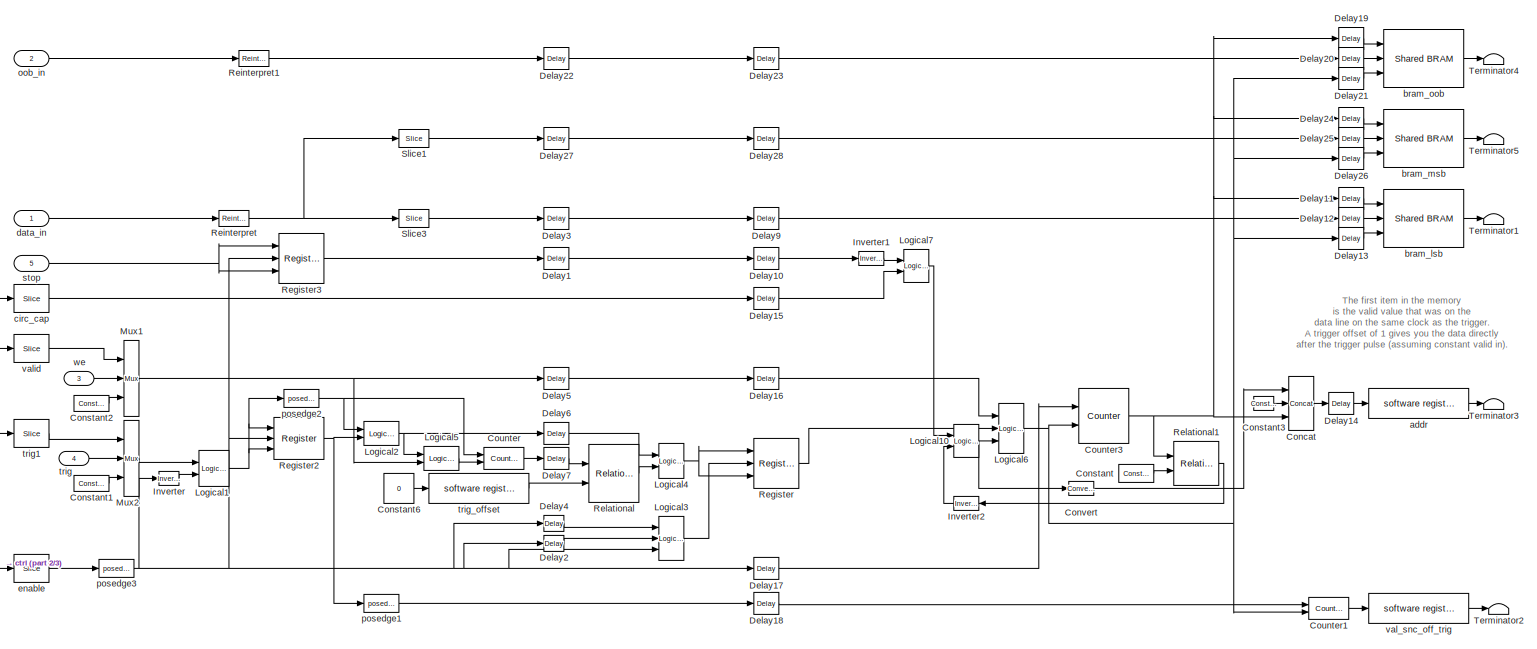
[diagram: snap_xaui0 - part 1/3, most of the canvas]
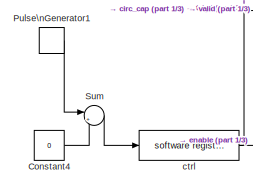
[diagram: snap_xaui0 - part 2/3, bottom left region]
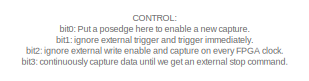
[diagram: snap_xaui0 - part 3/3, bottom left region]
BLOCK [SubSystem] snap_xaui0
  FunctionWithSeparateData = off
  MaskEnableString = on
  MaskIconFrame = on
  MaskIconOpaque = on
  MaskIconRotate = none
  MaskIconUnits = autoscale
  MaskPromptString = Number of Samples (2^?)
  MaskStyleString = edit
  MaskToolTipString = on
  MaskTunableValueString = on
  MaskValueString = 13
  MaskVariables = nsamples=@1;
  MaskVisibilityString = on
  MinAlgLoopOccurrences = off
  Ports = [5]
  RTWSystemCode = Auto
BLOCK [Reference] snap_xaui0/Concat  REF=xbsIndex_r4/Concat
  Ports = [3, 1]
  SourceBlock = xbsIndex_r4/Concat
  SourceType = Xilinx Bus Concatenator Block
  block_type = concat
  block_version = 10.1.3
  dbl_ovrd = off
  has_advanced_control = 0
  infoedit = Concatenates two or more inputs.  Output will be cast to an unsigned value with the binary point at zero.
  num_inputs = 3
  sg_icon_stat = 25,54,1,1,white,blue,0,97cf21e1,right
  sggui_pos = 20,20,336,162
BLOCK [Reference] snap_xaui0/Constant  REF=xbsIndex_r4/Constant
  Ports = [0, 1]
  SourceBlock = xbsIndex_r4/Constant
  SourceType = Xilinx Constant Block Block
  arith_type = Unsigned
  bin_pt = 0
  block_type = constant
  block_version = 10.1.3
  carry = CIN
  const = (2^nsamples)-1
  dbl_ovrd = off
  dsp48_infoedit = The use of this block for DSP48 instructions is deprecated.  Please use the Opmode block.
  equ = P=C
  explicit_period = off
  has_advanced_control = 0
  inp1 = P
  inp2 = PCIN>>17
  n_bits = nsamples
  opr = +
  opselect = C
  period = 1
  sg_icon_stat = 35,18,1,1,white,blue,0,5c8830c2,right
  sggui_pos = 20,20,414,344
BLOCK [Reference] snap_xaui0/Constant1  REF=xbsIndex_r4/Constant
  Ports = [0, 1]
  SourceBlock = xbsIndex_r4/Constant
  SourceType = Xilinx Constant Block Block
  arith_type = Boolean
  bin_pt = 0
  block_type = constant
  block_version = 10.1.3
  carry = CIN
  const = 1
  dbl_ovrd = off
  dsp48_infoedit = The use of this block for DSP48 instructions is deprecated.  Please use the Opmode block.
  equ = P=C
  explicit_period = on
  has_advanced_control = 0
  inp1 = P
  inp2 = PCIN>>17
  n_bits = 1
  opr = +
  opselect = C
  period = 1
  sg_icon_stat = 35,16,1,1,white,blue,0,06094819,right
  sggui_pos = -1,-1,-1,-1
BLOCK [Reference] snap_xaui0/Constant2  REF=xbsIndex_r4/Constant
  Ports = [0, 1]
  SourceBlock = xbsIndex_r4/Constant
  SourceType = Xilinx Constant Block Block
  arith_type = Boolean
  bin_pt = 0
  block_type = constant
  block_version = 10.1.3
  carry = CIN
  const = 1
  dbl_ovrd = off
  dsp48_infoedit = The use of this block for DSP48 instructions is deprecated.  Please use the Opmode block.
  equ = P=C
  explicit_period = on
  has_advanced_control = 0
  inp1 = P
  inp2 = PCIN>>17
  n_bits = 1
  opr = +
  opselect = C
  period = 1
  sg_icon_stat = 35,16,1,1,white,blue,0,06094819,right
  sggui_pos = -1,-1,-1,-1
BLOCK [Reference] snap_xaui0/Constant3  REF=xbsIndex_r4/Constant
  Ports = [0, 1]
  SourceBlock = xbsIndex_r4/Constant
  SourceType = Xilinx Constant Block Block
  arith_type = Unsigned
  bin_pt = 0
  block_type = constant
  block_version = 10.1.3
  carry = CIN
  const = 0
  dbl_ovrd = off
  dsp48_infoedit = The use of this block for DSP48 instructions is deprecated.  Please use the Opmode block.
  equ = P=C
  explicit_period = off
  has_advanced_control = 0
  inp1 = P
  inp2 = PCIN>>17
  n_bits = 32-nsamples-1
  opr = +
  opselect = C
  period = 1
  sg_icon_stat = 20,14,1,1,white,blue,0,72d575a1,right
  sggui_pos = 20,20,414,344
BLOCK [Constant] snap_xaui0/Constant4
  OutDataType = sfix(16)
  OutScaling = 2^0
  Value = 0
BLOCK [Constant] snap_xaui0/Constant6
  OutDataType = sfix(16)
  OutScaling = 2^0
  Value = 0
BLOCK [Reference] snap_xaui0/Convert  REF=xbsIndex_r4/Convert
  Ports = [1, 1]
  SourceBlock = xbsIndex_r4/Convert
  SourceType = Xilinx Type Converter Block
  arith_type = Boolean
  bin_pt = 0
  block_type = convert
  block_version = 10.1.3
  dbl_ovrd = off
  has_advanced_control = 0
  infoedit = Hardware notes: rounding and saturating require hardware resources; truncating and wrapping do not.
  latency = 0
  n_bits = 1
  overflow = Wrap
  pipeline = off
  quantization = Truncate
  sg_icon_stat = 25,14,1,1,white,blue,0,74901e60,right
  sggui_pos = 20,20,470,336
  xl_area = [0,0,0,0,0,0,0]
  xl_use_area = off
BLOCK [Reference] snap_xaui0/Counter  REF=xbsIndex_r4/Counter
  Ports = [2, 1]
  SourceBlock = xbsIndex_r4/Counter
  SourceType = Xilinx Counter Block
  arith_type = Unsigned
  bin_pt = 0
  block_type = counter
  block_version = 10.1.3
  cnt_by_val = 1
  cnt_to = Inf
  cnt_type = Free Running
  dbl_ovrd = off
  en = on
  explicit_period = on
  has_advanced_control = 0
  implementation = Fabric
  infoedit = Hardware notes: Free running counters are the least expensive in hardware.  A count limited counter is implemented by combining a counter with a comparator.
  load_pin = off
  n_bits = 32
  operation = Up
  period = 1
  rst = on
  sg_icon_stat = 40,22,1,1,white,blue,0,46c73e85,right
  sggui_pos = 20,20,348,619
  start_count = 0
  use_behavioral_HDL = off
  use_rpm = on
  xl_area = [0, 0, 0, 0, 0, 0, 0]
  xl_use_area = off
BLOCK [Reference] snap_xaui0/Counter1  REF=xbsIndex_r4/Counter
  Ports = [2, 1]
  SourceBlock = xbsIndex_r4/Counter
  SourceType = Xilinx Counter Block
  arith_type = Unsigned
  bin_pt = 0
  block_type = counter
  block_version = 10.1.3
  cnt_by_val = 1
  cnt_to = Inf
  cnt_type = Free Running
  dbl_ovrd = off
  en = on
  explicit_period = on
  has_advanced_control = 0
  implementation = Fabric
  infoedit = Hardware notes: Free running counters are the least expensive in hardware.  A count limited counter is implemented by combining a counter with a comparator.
  load_pin = off
  n_bits = 32
  operation = Up
  period = 1
  rst = on
  sg_icon_stat = 40,22,1,1,white,blue,0,46c73e85,right
  sggui_pos = 20,20,348,619
  start_count = 0
  use_behavioral_HDL = off
  use_rpm = on
  xl_area = [0, 0, 0, 0, 0, 0, 0]
  xl_use_area = off
BLOCK [Reference] snap_xaui0/Counter3  REF=xbsIndex_r4/Counter
  Ports = [2, 1]
  SourceBlock = xbsIndex_r4/Counter
  SourceType = Xilinx Counter Block
  arith_type = Unsigned
  bin_pt = 0
  block_type = counter
  block_version = 10.1.3
  cnt_by_val = 1
  cnt_to = 1
  cnt_type = Free Running
  dbl_ovrd = off
  en = on
  explicit_period = on
  has_advanced_control = 0
  implementation = Fabric
  infoedit = Hardware notes: Free running counters are the least expensive in hardware.  A count limited counter is implemented by combining a counter with a comparator.
  load_pin = off
  n_bits = nsamples
  operation = Up
  period = 1
  rst = on
  sg_icon_stat = 50,55,1,1,white,blue,0,46c73e85,right
  sggui_pos = 20,20,348,618
  start_count = 0
  use_behavioral_HDL = off
  use_rpm = on
  xl_area = [0, 0, 0, 0, 0, 0, 0]
  xl_use_area = off
BLOCK [Reference] snap_xaui0/Delay1  REF=xbsIndex_r4/Delay
  Ports = [1, 1]
  SourceBlock = xbsIndex_r4/Delay
  SourceType = Xilinx Delay Block
  block_type = delay
  block_version = 10.1.3
  dbl_ovrd = off
  en = off
  has_advanced_control = 0
  infoedit = Hardware notes: A delay line is a chain, each link of which is an SRL16 followed by a flip-flop.
  latency = 1
  reg_retiming = on
  sg_icon_stat = 25,22,1,1,white,blue,0,fc531c0e,right
  sggui_pos = -1,-1,-1,-1
  xl_area = [0, 0, 0, 0, 0, 0, 0]
  xl_use_area = off
BLOCK [Reference] snap_xaui0/Delay10  REF=xbsIndex_r4/Delay
  Ports = [1, 1]
  SourceBlock = xbsIndex_r4/Delay
  SourceType = Xilinx Delay Block
  block_type = delay
  block_version = 10.1.3
  dbl_ovrd = off
  en = off
  has_advanced_control = 0
  infoedit = Hardware notes: A delay line is a chain, each link of which is an SRL16 followed by a flip-flop.
  latency = 1
  reg_retiming = on
  sg_icon_stat = 25,22,1,1,white,blue,0,fc531c0e,right
  sggui_pos = -1,-1,-1,-1
  xl_area = [0, 0, 0, 0, 0, 0, 0]
  xl_use_area = off
BLOCK [Reference] snap_xaui0/Delay11  REF=xbsIndex_r4/Delay
  Ports = [1, 1]
  SourceBlock = xbsIndex_r4/Delay
  SourceType = Xilinx Delay Block
  block_type = delay
  block_version = 10.1.3
  dbl_ovrd = off
  en = off
  has_advanced_control = 0
  infoedit = Hardware notes: A delay line is a chain, each link of which is an SRL16 followed by a flip-flop.
  latency = 1
  reg_retiming = on
  sg_icon_stat = 25,22,1,1,white,blue,0,fc531c0e,right
  sggui_pos = -1,-1,-1,-1
  xl_area = [0, 0, 0, 0, 0, 0, 0]
  xl_use_area = off
BLOCK [Reference] snap_xaui0/Delay12  REF=xbsIndex_r4/Delay
  Ports = [1, 1]
  SourceBlock = xbsIndex_r4/Delay
  SourceType = Xilinx Delay Block
  block_type = delay
  block_version = 10.1.3
  dbl_ovrd = off
  en = off
  has_advanced_control = 0
  infoedit = Hardware notes: A delay line is a chain, each link of which is an SRL16 followed by a flip-flop.
  latency = 1
  reg_retiming = on
  sg_icon_stat = 25,22,1,1,white,blue,0,fc531c0e,right
  sggui_pos = -1,-1,-1,-1
  xl_area = [0, 0, 0, 0, 0, 0, 0]
  xl_use_area = off
BLOCK [Reference] snap_xaui0/Delay13  REF=xbsIndex_r4/Delay
  Ports = [1, 1]
  SourceBlock = xbsIndex_r4/Delay
  SourceType = Xilinx Delay Block
  block_type = delay
  block_version = 10.1.3
  dbl_ovrd = off
  en = off
  has_advanced_control = 0
  infoedit = Hardware notes: A delay line is a chain, each link of which is an SRL16 followed by a flip-flop.
  latency = 1
  reg_retiming = on
  sg_icon_stat = 25,22,1,1,white,blue,0,fc531c0e,right
  sggui_pos = -1,-1,-1,-1
  xl_area = [0, 0, 0, 0, 0, 0, 0]
  xl_use_area = off
BLOCK [Reference] snap_xaui0/Delay14  REF=xbsIndex_r4/Delay
  Ports = [1, 1]
  SourceBlock = xbsIndex_r4/Delay
  SourceType = Xilinx Delay Block
  block_type = delay
  block_version = 10.1.3
  dbl_ovrd = off
  en = off
  has_advanced_control = 0
  infoedit = Hardware notes: A delay line is a chain, each link of which is an SRL16 followed by a flip-flop.
  latency = 1
  reg_retiming = on
  sg_icon_stat = 25,22,1,1,white,blue,0,fc531c0e,right
  sggui_pos = 20,20,348,254
  xl_area = [0, 0, 0, 0, 0, 0, 0]
  xl_use_area = off
BLOCK [Reference] snap_xaui0/Delay15  REF=xbsIndex_r4/Delay
  Ports = [1, 1]
  SourceBlock = xbsIndex_r4/Delay
  SourceType = Xilinx Delay Block
  block_type = delay
  block_version = 10.1.3
  dbl_ovrd = off
  en = off
  has_advanced_control = 0
  infoedit = Hardware notes: A delay line is a chain, each link of which is an SRL16 followed by a flip-flop.
  latency = 1
  reg_retiming = on
  sg_icon_stat = 25,22,1,1,white,blue,0,fc531c0e,right
  sggui_pos = -1,-1,-1,-1
  xl_area = [0, 0, 0, 0, 0, 0, 0]
  xl_use_area = off
BLOCK [Reference] snap_xaui0/Delay16  REF=xbsIndex_r4/Delay
  Ports = [1, 1]
  SourceBlock = xbsIndex_r4/Delay
  SourceType = Xilinx Delay Block
  block_type = delay
  block_version = 10.1.3
  dbl_ovrd = off
  en = off
  has_advanced_control = 0
  infoedit = Hardware notes: A delay line is a chain, each link of which is an SRL16 followed by a flip-flop.
  latency = 1
  reg_retiming = on
  sg_icon_stat = 25,22,1,1,white,blue,0,fc531c0e,right
  sggui_pos = 20,20,348,255
  xl_area = [0, 0, 0, 0, 0, 0, 0]
  xl_use_area = off
BLOCK [Reference] snap_xaui0/Delay17  REF=xbsIndex_r4/Delay
  Ports = [1, 1]
  SourceBlock = xbsIndex_r4/Delay
  SourceType = Xilinx Delay Block
  block_type = delay
  block_version = 10.1.3
  dbl_ovrd = off
  en = off
  has_advanced_control = 0
  infoedit = Hardware notes: A delay line is a chain, each link of which is an SRL16 followed by a flip-flop.
  latency = 1
  reg_retiming = on
  sg_icon_stat = 25,22,1,1,white,blue,0,fc531c0e,right
  sggui_pos = -1,-1,-1,-1
  xl_area = [0, 0, 0, 0, 0, 0, 0]
  xl_use_area = off
BLOCK [Reference] snap_xaui0/Delay18  REF=xbsIndex_r4/Delay
  Ports = [1, 1]
  SourceBlock = xbsIndex_r4/Delay
  SourceType = Xilinx Delay Block
  block_type = delay
  block_version = 10.1.3
  dbl_ovrd = off
  en = off
  has_advanced_control = 0
  infoedit = Hardware notes: A delay line is a chain, each link of which is an SRL16 followed by a flip-flop.
  latency = 1
  reg_retiming = on
  sg_icon_stat = 25,22,1,1,white,blue,0,fc531c0e,right
  sggui_pos = -1,-1,-1,-1
  xl_area = [0, 0, 0, 0, 0, 0, 0]
  xl_use_area = off
BLOCK [Reference] snap_xaui0/Delay19  REF=xbsIndex_r4/Delay
  Ports = [1, 1]
  SourceBlock = xbsIndex_r4/Delay
  SourceType = Xilinx Delay Block
  block_type = delay
  block_version = 10.1.3
  dbl_ovrd = off
  en = off
  has_advanced_control = 0
  infoedit = Hardware notes: A delay line is a chain, each link of which is an SRL16 followed by a flip-flop.
  latency = 1
  reg_retiming = on
  sg_icon_stat = 25,22,1,1,white,blue,0,fc531c0e,right
  sggui_pos = -1,-1,-1,-1
  xl_area = [0, 0, 0, 0, 0, 0, 0]
  xl_use_area = off
BLOCK [Reference] snap_xaui0/Delay2  REF=xbsIndex_r4/Delay
  Ports = [1, 1]
  SourceBlock = xbsIndex_r4/Delay
  SourceType = Xilinx Delay Block
  block_type = delay
  block_version = 10.1.3
  dbl_ovrd = off
  en = off
  has_advanced_control = 0
  infoedit = Hardware notes: A delay line is a chain, each link of which is an SRL16 followed by a flip-flop.
  latency = 2
  reg_retiming = on
  sg_icon_stat = 20,16,1,1,white,blue,0,0a7a6cf1,right
  sggui_pos = -1,-1,-1,-1
  xl_area = [0, 0, 0, 0, 0, 0, 0]
  xl_use_area = off
BLOCK [Reference] snap_xaui0/Delay20  REF=xbsIndex_r4/Delay
  Ports = [1, 1]
  SourceBlock = xbsIndex_r4/Delay
  SourceType = Xilinx Delay Block
  block_type = delay
  block_version = 10.1.3
  dbl_ovrd = off
  en = off
  has_advanced_control = 0
  infoedit = Hardware notes: A delay line is a chain, each link of which is an SRL16 followed by a flip-flop.
  latency = 1
  reg_retiming = on
  sg_icon_stat = 25,22,1,1,white,blue,0,fc531c0e,right
  sggui_pos = -1,-1,-1,-1
  xl_area = [0, 0, 0, 0, 0, 0, 0]
  xl_use_area = off
BLOCK [Reference] snap_xaui0/Delay21  REF=xbsIndex_r4/Delay
  Ports = [1, 1]
  SourceBlock = xbsIndex_r4/Delay
  SourceType = Xilinx Delay Block
  block_type = delay
  block_version = 10.1.3
  dbl_ovrd = off
  en = off
  has_advanced_control = 0
  infoedit = Hardware notes: A delay line is a chain, each link of which is an SRL16 followed by a flip-flop.
  latency = 1
  reg_retiming = on
  sg_icon_stat = 25,22,1,1,white,blue,0,fc531c0e,right
  sggui_pos = -1,-1,-1,-1
  xl_area = [0, 0, 0, 0, 0, 0, 0]
  xl_use_area = off
BLOCK [Reference] snap_xaui0/Delay22  REF=xbsIndex_r4/Delay
  Ports = [1, 1]
  SourceBlock = xbsIndex_r4/Delay
  SourceType = Xilinx Delay Block
  block_type = delay
  block_version = 10.1.3
  dbl_ovrd = off
  en = off
  has_advanced_control = 0
  infoedit = Hardware notes: A delay line is a chain, each link of which is an SRL16 followed by a flip-flop.
  latency = 1
  reg_retiming = on
  sg_icon_stat = 25,22,1,1,white,blue,0,fc531c0e,right
  sggui_pos = -1,-1,-1,-1
  xl_area = [0, 0, 0, 0, 0, 0, 0]
  xl_use_area = off
BLOCK [Reference] snap_xaui0/Delay23  REF=xbsIndex_r4/Delay
  Ports = [1, 1]
  SourceBlock = xbsIndex_r4/Delay
  SourceType = Xilinx Delay Block
  block_type = delay
  block_version = 10.1.3
  dbl_ovrd = off
  en = off
  has_advanced_control = 0
  infoedit = Hardware notes: A delay line is a chain, each link of which is an SRL16 followed by a flip-flop.
  latency = 1
  reg_retiming = on
  sg_icon_stat = 25,22,1,1,white,blue,0,fc531c0e,right
  sggui_pos = -1,-1,-1,-1
  xl_area = [0, 0, 0, 0, 0, 0, 0]
  xl_use_area = off
BLOCK [Reference] snap_xaui0/Delay24  REF=xbsIndex_r4/Delay
  Ports = [1, 1]
  SourceBlock = xbsIndex_r4/Delay
  SourceType = Xilinx Delay Block
  block_type = delay
  block_version = 10.1.3
  dbl_ovrd = off
  en = off
  has_advanced_control = 0
  infoedit = Hardware notes: A delay line is a chain, each link of which is an SRL16 followed by a flip-flop.
  latency = 1
  reg_retiming = on
  sg_icon_stat = 25,22,1,1,white,blue,0,fc531c0e,right
  sggui_pos = -1,-1,-1,-1
  xl_area = [0, 0, 0, 0, 0, 0, 0]
  xl_use_area = off
BLOCK [Reference] snap_xaui0/Delay25  REF=xbsIndex_r4/Delay
  Ports = [1, 1]
  SourceBlock = xbsIndex_r4/Delay
  SourceType = Xilinx Delay Block
  block_type = delay
  block_version = 10.1.3
  dbl_ovrd = off
  en = off
  has_advanced_control = 0
  infoedit = Hardware notes: A delay line is a chain, each link of which is an SRL16 followed by a flip-flop.
  latency = 1
  reg_retiming = on
  sg_icon_stat = 25,22,1,1,white,blue,0,fc531c0e,right
  sggui_pos = -1,-1,-1,-1
  xl_area = [0, 0, 0, 0, 0, 0, 0]
  xl_use_area = off
BLOCK [Reference] snap_xaui0/Delay26  REF=xbsIndex_r4/Delay
  Ports = [1, 1]
  SourceBlock = xbsIndex_r4/Delay
  SourceType = Xilinx Delay Block
  block_type = delay
  block_version = 10.1.3
  dbl_ovrd = off
  en = off
  has_advanced_control = 0
  infoedit = Hardware notes: A delay line is a chain, each link of which is an SRL16 followed by a flip-flop.
  latency = 1
  reg_retiming = on
  sg_icon_stat = 25,22,1,1,white,blue,0,fc531c0e,right
  sggui_pos = -1,-1,-1,-1
  xl_area = [0, 0, 0, 0, 0, 0, 0]
  xl_use_area = off
BLOCK [Reference] snap_xaui0/Delay27  REF=xbsIndex_r4/Delay
  Ports = [1, 1]
  SourceBlock = xbsIndex_r4/Delay
  SourceType = Xilinx Delay Block
  block_type = delay
  block_version = 10.1.3
  dbl_ovrd = off
  en = off
  has_advanced_control = 0
  infoedit = Hardware notes: A delay line is a chain, each link of which is an SRL16 followed by a flip-flop.
  latency = 1
  reg_retiming = on
  sg_icon_stat = 25,22,1,1,white,blue,0,fc531c0e,right
  sggui_pos = -1,-1,-1,-1
  xl_area = [0, 0, 0, 0, 0, 0, 0]
  xl_use_area = off
BLOCK [Reference] snap_xaui0/Delay28  REF=xbsIndex_r4/Delay
  Ports = [1, 1]
  SourceBlock = xbsIndex_r4/Delay
  SourceType = Xilinx Delay Block
  block_type = delay
  block_version = 10.1.3
  dbl_ovrd = off
  en = off
  has_advanced_control = 0
  infoedit = Hardware notes: A delay line is a chain, each link of which is an SRL16 followed by a flip-flop.
  latency = 1
  reg_retiming = on
  sg_icon_stat = 25,22,1,1,white,blue,0,fc531c0e,right
  sggui_pos = -1,-1,-1,-1
  xl_area = [0, 0, 0, 0, 0, 0, 0]
  xl_use_area = off
BLOCK [Reference] snap_xaui0/Delay3  REF=xbsIndex_r4/Delay
  Ports = [1, 1]
  SourceBlock = xbsIndex_r4/Delay
  SourceType = Xilinx Delay Block
  block_type = delay
  block_version = 10.1.3
  dbl_ovrd = off
  en = off
  has_advanced_control = 0
  infoedit = Hardware notes: A delay line is a chain, each link of which is an SRL16 followed by a flip-flop.
  latency = 1
  reg_retiming = on
  sg_icon_stat = 25,22,1,1,white,blue,0,fc531c0e,right
  sggui_pos = -1,-1,-1,-1
  xl_area = [0, 0, 0, 0, 0, 0, 0]
  xl_use_area = off
BLOCK [Reference] snap_xaui0/Delay4  REF=xbsIndex_r4/Delay
  Ports = [1, 1]
  SourceBlock = xbsIndex_r4/Delay
  SourceType = Xilinx Delay Block
  block_type = delay
  block_version = 10.1.3
  dbl_ovrd = off
  en = off
  has_advanced_control = 0
  infoedit = Hardware notes: A delay line is a chain, each link of which is an SRL16 followed by a flip-flop.
  latency = 1
  reg_retiming = on
  sg_icon_stat = 20,16,1,1,white,blue,0,fc531c0e,right
  sggui_pos = -1,-1,-1,-1
  xl_area = [0, 0, 0, 0, 0, 0, 0]
  xl_use_area = off
BLOCK [Reference] snap_xaui0/Delay5  REF=xbsIndex_r4/Delay
  Ports = [1, 1]
  SourceBlock = xbsIndex_r4/Delay
  SourceType = Xilinx Delay Block
  block_type = delay
  block_version = 10.1.3
  dbl_ovrd = off
  en = off
  has_advanced_control = 0
  infoedit = Hardware notes: A delay line is a chain, each link of which is an SRL16 followed by a flip-flop.
  latency = 1
  reg_retiming = on
  sg_icon_stat = 25,22,1,1,white,blue,0,fc531c0e,right
  sggui_pos = -1,-1,-1,-1
  xl_area = [0, 0, 0, 0, 0, 0, 0]
  xl_use_area = off
BLOCK [Reference] snap_xaui0/Delay6  REF=xbsIndex_r4/Delay
  Ports = [1, 1]
  SourceBlock = xbsIndex_r4/Delay
  SourceType = Xilinx Delay Block
  block_type = delay
  block_version = 10.1.3
  dbl_ovrd = off
  en = off
  has_advanced_control = 0
  infoedit = Hardware notes: A delay line is a chain, each link of which is an SRL16 followed by a flip-flop.
  latency = 1
  reg_retiming = on
  sg_icon_stat = 25,22,1,1,white,blue,0,fc531c0e,right
  sggui_pos = -1,-1,-1,-1
  xl_area = [0, 0, 0, 0, 0, 0, 0]
  xl_use_area = off
BLOCK [Reference] snap_xaui0/Delay7  REF=xbsIndex_r4/Delay
  Ports = [1, 1]
  SourceBlock = xbsIndex_r4/Delay
  SourceType = Xilinx Delay Block
  block_type = delay
  block_version = 10.1.3
  dbl_ovrd = off
  en = off
  has_advanced_control = 0
  infoedit = Hardware notes: A delay line is a chain, each link of which is an SRL16 followed by a flip-flop.
  latency = 1
  reg_retiming = on
  sg_icon_stat = 25,22,1,1,white,blue,0,fc531c0e,right
  sggui_pos = -1,-1,-1,-1
  xl_area = [0, 0, 0, 0, 0, 0, 0]
  xl_use_area = off
BLOCK [Reference] snap_xaui0/Delay9  REF=xbsIndex_r4/Delay
  Ports = [1, 1]
  SourceBlock = xbsIndex_r4/Delay
  SourceType = Xilinx Delay Block
  block_type = delay
  block_version = 10.1.3
  dbl_ovrd = off
  en = off
  has_advanced_control = 0
  infoedit = Hardware notes: A delay line is a chain, each link of which is an SRL16 followed by a flip-flop.
  latency = 1
  reg_retiming = on
  sg_icon_stat = 25,22,1,1,white,blue,0,fc531c0e,right
  sggui_pos = -1,-1,-1,-1
  xl_area = [0, 0, 0, 0, 0, 0, 0]
  xl_use_area = off
BLOCK [Reference] snap_xaui0/Inverter  REF=xbsIndex_r4/Inverter
  Ports = [1, 1]
  SourceBlock = xbsIndex_r4/Inverter
  SourceType = Xilinx Inverter Block
  block_type = inv
  block_version = 10.1.3
  dbl_ovrd = off
  en = off
  has_advanced_control = 0
  infoedit = Bitwise logical negation (one's complement) operator.
  latency = 0
  sg_icon_stat = 20,14,1,1,white,blue,0,1ab4a85f,right
  sggui_pos = -1,-1,-1,-1
  xl_area = [0, 0, 0, 0, 0, 0, 0]
  xl_use_area = off
BLOCK [Reference] snap_xaui0/Inverter1  REF=xbsIndex_r4/Inverter
  Ports = [1, 1]
  SourceBlock = xbsIndex_r4/Inverter
  SourceType = Xilinx Inverter Block
  block_type = inv
  block_version = 10.1.3
  dbl_ovrd = off
  en = off
  has_advanced_control = 0
  infoedit = Bitwise logical negation (one's complement) operator.
  latency = 0
  sg_icon_stat = 25,14,1,1,white,blue,0,1ab4a85f,right
  sggui_pos = -1,-1,-1,-1
  xl_area = [0, 0, 0, 0, 0, 0, 0]
  xl_use_area = off
BLOCK [Reference] snap_xaui0/Inverter2  REF=xbsIndex_r4/Inverter
  Ports = [1, 1]
  SourceBlock = xbsIndex_r4/Inverter
  SourceType = Xilinx Inverter Block
  block_type = inv
  block_version = 10.1.3
  dbl_ovrd = off
  en = off
  has_advanced_control = 0
  infoedit = Bitwise logical negation (one's complement) operator.
  latency = 0
  sg_icon_stat = 25,14,1,1,white,blue,0,1ab4a85f,left
  sggui_pos = -1,-1,-1,-1
  xl_area = [0, 0, 0, 0, 0, 0, 0]
  xl_use_area = off
BLOCK [Reference] snap_xaui0/Logical1  REF=xbsIndex_r4/Logical
  Ports = [2, 1]
  SourceBlock = xbsIndex_r4/Logical
  SourceType = Xilinx Logical Block Block
  align_bp = on
  arith_type = Unsigned
  bin_pt = 2
  block_type = logical
  block_version = 10.1.3
  dbl_ovrd = off
  en = off
  has_advanced_control = 0
  inputs = 2
  latency = 0
  logical_function = AND
  n_bits = 8
  precision = Full
  sg_icon_stat = 30,36,1,1,white,blue,0,087b5522,right
  sggui_pos = -1,-1,-1,-1
  xl_area = [0, 0, 0, 0, 0, 0, 0]
  xl_use_area = off
BLOCK [Reference] snap_xaui0/Logical10  REF=xbsIndex_r4/Logical
  Ports = [2, 1]
  SourceBlock = xbsIndex_r4/Logical
  SourceType = Xilinx Logical Block Block
  align_bp = on
  arith_type = Unsigned
  bin_pt = 2
  block_type = logical
  block_version = 10.1.3
  dbl_ovrd = off
  en = off
  has_advanced_control = 0
  inputs = 2
  latency = 0
  logical_function = OR
  n_bits = 8
  precision = Full
  sg_icon_stat = 25,33,1,1,white,blue,0,f4a65842,right
  sggui_pos = 20,20,348,262
  xl_area = [0, 0, 0, 0, 0, 0, 0]
  xl_use_area = off
BLOCK [Reference] snap_xaui0/Logical2  REF=xbsIndex_r4/Logical
  Ports = [2, 1]
  SourceBlock = xbsIndex_r4/Logical
  SourceType = Xilinx Logical Block Block
  align_bp = on
  arith_type = Unsigned
  bin_pt = 2
  block_type = logical
  block_version = 10.1.3
  dbl_ovrd = off
  en = off
  has_advanced_control = 0
  inputs = 2
  latency = 0
  logical_function = OR
  n_bits = 8
  precision = Full
  sg_icon_stat = 35,24,1,1,white,blue,0,f4a65842,right
  sggui_pos = -1,-1,-1,-1
  xl_area = [0, 0, 0, 0, 0, 0, 0]
  xl_use_area = off
BLOCK [Reference] snap_xaui0/Logical3  REF=xbsIndex_r4/Logical
  Ports = [3, 1]
  SourceBlock = xbsIndex_r4/Logical
  SourceType = Xilinx Logical Block Block
  align_bp = on
  arith_type = Unsigned
  bin_pt = 2
  block_type = logical
  block_version = 10.1.3
  dbl_ovrd = off
  en = off
  has_advanced_control = 0
  inputs = 3
  latency = 0
  logical_function = OR
  n_bits = 8
  precision = Full
  sg_icon_stat = 25,44,1,1,white,blue,0,bd50cad4,right
  sggui_pos = -1,-1,-1,-1
  xl_area = [0, 0, 0, 0, 0, 0, 0]
  xl_use_area = off
BLOCK [Reference] snap_xaui0/Logical4  REF=xbsIndex_r4/Logical
  Ports = [2, 1]
  SourceBlock = xbsIndex_r4/Logical
  SourceType = Xilinx Logical Block Block
  align_bp = on
  arith_type = Unsigned
  bin_pt = 2
  block_type = logical
  block_version = 10.1.3
  dbl_ovrd = off
  en = off
  has_advanced_control = 0
  inputs = 2
  latency = 0
  logical_function = AND
  n_bits = 8
  precision = Full
  sg_icon_stat = 25,35,1,1,white,blue,0,087b5522,right
  sggui_pos = -1,-1,-1,-1
  xl_area = [0, 0, 0, 0, 0, 0, 0]
  xl_use_area = off
BLOCK [Reference] snap_xaui0/Logical5  REF=xbsIndex_r4/Logical
  Ports = [2, 1]
  SourceBlock = xbsIndex_r4/Logical
  SourceType = Xilinx Logical Block Block
  align_bp = on
  arith_type = Unsigned
  bin_pt = 2
  block_type = logical
  block_version = 10.1.3
  dbl_ovrd = off
  en = off
  has_advanced_control = 0
  inputs = 2
  latency = 0
  logical_function = AND
  n_bits = 8
  precision = Full
  sg_icon_stat = 35,24,1,1,white,blue,0,087b5522,right
  sggui_pos = 20,20,348,261
  xl_area = [0, 0, 0, 0, 0, 0, 0]
  xl_use_area = off
BLOCK [Reference] snap_xaui0/Logical6  REF=xbsIndex_r4/Logical
  Ports = [3, 1]
  SourceBlock = xbsIndex_r4/Logical
  SourceType = Xilinx Logical Block Block
  align_bp = on
  arith_type = Unsigned
  bin_pt = 2
  block_type = logical
  block_version = 10.1.3
  dbl_ovrd = off
  en = off
  has_advanced_control = 0
  inputs = 3
  latency = 0
  logical_function = AND
  n_bits = 8
  precision = Full
  sg_icon_stat = 25,50,1,1,white,blue,0,5c2bfaa2,right
  sggui_pos = 20,20,348,262
  xl_area = [0, 0, 0, 0, 0, 0, 0]
  xl_use_area = off
BLOCK [Reference] snap_xaui0/Logical7  REF=xbsIndex_r4/Logical
  Ports = [2, 1]
  SourceBlock = xbsIndex_r4/Logical
  SourceType = Xilinx Logical Block Block
  align_bp = on
  arith_type = Unsigned
  bin_pt = 2
  block_type = logical
  block_version = 10.1.3
  dbl_ovrd = off
  en = off
  has_advanced_control = 0
  inputs = 2
  latency = 0
  logical_function = AND
  n_bits = 8
  precision = Full
  sg_icon_stat = 25,33,1,1,white,blue,0,087b5522,right
  sggui_pos = 20,20,348,262
  xl_area = [0, 0, 0, 0, 0, 0, 0]
  xl_use_area = off
BLOCK [Reference] snap_xaui0/Mux1  REF=xbsIndex_r4/Mux
  Ports = [3, 1]
  SourceBlock = xbsIndex_r4/Mux
  SourceType = Xilinx Bus Multiplexer Block
  arith_type = Signed  (2's comp)
  bin_pt = 2
  block_type = mux
  block_version = 10.1.3
  dbl_ovrd = off
  en = off
  has_advanced_control = 0
  inputs = 2
  latency = 0
  n_bits = 8
  overflow = Wrap
  precision = Full
  quantization = Truncate
  sg_icon_stat = 15,76,1,1,white,blue,3,613f58e1,right
  sggui_pos = -1,-1,-1,-1
  xl_area = [0, 0, 0, 0, 0, 0, 0]
  xl_use_area = off
BLOCK [Reference] snap_xaui0/Mux2  REF=xbsIndex_r4/Mux
  Ports = [3, 1]
  SourceBlock = xbsIndex_r4/Mux
  SourceType = Xilinx Bus Multiplexer Block
  arith_type = Signed  (2's comp)
  bin_pt = 2
  block_type = mux
  block_version = 10.1.3
  dbl_ovrd = off
  en = off
  has_advanced_control = 0
  inputs = 2
  latency = 0
  n_bits = 8
  overflow = Wrap
  precision = Full
  quantization = Truncate
  sg_icon_stat = 15,76,1,1,white,blue,3,613f58e1,right
  sggui_pos = -1,-1,-1,-1
  xl_area = [0, 0, 0, 0, 0, 0, 0]
  xl_use_area = off
BLOCK [DiscretePulseGenerator] snap_xaui0/Pulse\nGenerator1
  Period = 33000
  Ports = [0, 1]
  PulseWidth = 2
BLOCK [Reference] snap_xaui0/Register  REF=xbsIndex_r4/Register
  Ports = [3, 1]
  SourceBlock = xbsIndex_r4/Register
  SourceType = Xilinx Register Block
  block_type = register
  block_version = 10.1.3
  dbl_ovrd = off
  en = on
  has_advanced_control = 0
  init = 0
  rst = on
  sg_icon_stat = 45,50,1,1,white,blue,0,923c1847,right
  sggui_pos = 20,20,348,192
  xl_area = [0, 0, 0, 0, 0, 0, 0]
  xl_use_area = off
BLOCK [Reference] snap_xaui0/Register2  REF=xbsIndex_r4/Register
  Ports = [3, 1]
  SourceBlock = xbsIndex_r4/Register
  SourceType = Xilinx Register Block
  block_type = register
  block_version = 10.1.3
  dbl_ovrd = off
  en = on
  has_advanced_control = 0
  init = 0
  rst = on
  sg_icon_stat = 50,42,1,1,white,blue,0,923c1847,right
  sggui_pos = -1,-1,-1,-1
  xl_area = [0, 0, 0, 0, 0, 0, 0]
  xl_use_area = off
BLOCK [Reference] snap_xaui0/Register3  REF=xbsIndex_r4/Register
  Ports = [3, 1]
  SourceBlock = xbsIndex_r4/Register
  SourceType = Xilinx Register Block
  block_type = register
  block_version = 10.1.3
  dbl_ovrd = off
  en = on
  has_advanced_control = 0
  init = 0
  rst = on
  sg_icon_stat = 45,50,1,1,white,blue,0,923c1847,right
  sggui_pos = 20,20,348,192
  xl_area = [0, 0, 0, 0, 0, 0, 0]
  xl_use_area = off
BLOCK [Reference] snap_xaui0/Reinterpret  REF=xbsIndex_r4/Reinterpret
  Ports = [1, 1]
  SourceBlock = xbsIndex_r4/Reinterpret
  SourceType = Xilinx Type Reinterpreter Block
  arith_type = Unsigned
  bin_pt = 0
  block_type = reinterpret
  block_version = 10.1.3
  force_arith_type = on
  force_bin_pt = on
  has_advanced_control = 0
  sg_icon_stat = 30,16,1,1,white,blue,0,8982c1db,right
  sggui_pos = 20,20,336,312
BLOCK [Reference] snap_xaui0/Reinterpret1  REF=xbsIndex_r4/Reinterpret
  Ports = [1, 1]
  SourceBlock = xbsIndex_r4/Reinterpret
  SourceType = Xilinx Type Reinterpreter Block
  arith_type = Unsigned
  bin_pt = 0
  block_type = reinterpret
  block_version = 10.1.3
  force_arith_type = on
  force_bin_pt = on
  has_advanced_control = 0
  sg_icon_stat = 30,16,1,1,white,blue,0,8982c1db,right
  sggui_pos = 20,20,336,312
BLOCK [Reference] snap_xaui0/Relational  REF=xbsIndex_r4/Relational
  Ports = [2, 1]
  SourceBlock = xbsIndex_r4/Relational
  SourceType = Xilinx Arithmetic Relational Operator Block
  block_type = relational
  block_version = 10.1.3
  dbl_ovrd = off
  en = off
  has_advanced_control = 0
  latency = 0
  mode = a>=b
  sg_icon_stat = 50,58,1,1,white,blue,0,6d6ac162,right
  sggui_pos = -1,-1,-1,-1
  xl_area = [0, 0, 0, 0, 0, 0, 0]
  xl_use_area = off
BLOCK [Reference] snap_xaui0/Relational1  REF=xbsIndex_r4/Relational
  Ports = [2, 1]
  SourceBlock = xbsIndex_r4/Relational
  SourceType = Xilinx Arithmetic Relational Operator Block
  block_type = relational
  block_version = 10.1.3
  dbl_ovrd = off
  en = off
  has_advanced_control = 0
  latency = 0
  mode = a>=b
  sg_icon_stat = 45,44,1,1,white,blue,0,6d6ac162,right
  sggui_pos = 20,20,348,192
  xl_area = [0, 0, 0, 0, 0, 0, 0]
  xl_use_area = off
BLOCK [Reference] snap_xaui0/Slice1  REF=xbsIndex_r4/Slice
  Ports = [1, 1]
  SourceBlock = xbsIndex_r4/Slice
  SourceType = Xilinx Bit Slice Extractor Block
  base0 = LSB of Input
  base1 = MSB of Input
  bit0 = 32
  bit1 = 0
  block_type = slice
  block_version = 10.1.3
  boolean_output = off
  dbl_ovrd = off
  has_advanced_control = 0
  mode = Lower Bit Location + Width
  nbits = 32
  sg_icon_stat = 30,18,1,1,white,blue,0,b1026674,right
  sggui_pos = 20,20,460,380
BLOCK [Reference] snap_xaui0/Slice3  REF=xbsIndex_r4/Slice
  Ports = [1, 1]
  SourceBlock = xbsIndex_r4/Slice
  SourceType = Xilinx Bit Slice Extractor Block
  base0 = LSB of Input
  base1 = MSB of Input
  bit0 = 0
  bit1 = 0
  block_type = slice
  block_version = 10.1.3
  boolean_output = off
  dbl_ovrd = off
  has_advanced_control = 0
  mode = Lower Bit Location + Width
  nbits = 32
  sg_icon_stat = 30,18,1,1,white,blue,0,b1026674,right
  sggui_pos = 20,20,460,380
BLOCK [Sum] snap_xaui0/Sum
  CollapseMode = All dimensions
  IconShape = round
  InputSameDT = off
  Inputs = |++
  OutDataType = sfix(16)
  OutDataTypeMode = Inherit via internal rule
  OutScaling = 2^0
  Ports = [2, 1]
  SaturateOnIntegerOverflow = off
BLOCK [Terminator] snap_xaui0/Terminator1
BLOCK [Terminator] snap_xaui0/Terminator2
BLOCK [Terminator] snap_xaui0/Terminator3
BLOCK [Terminator] snap_xaui0/Terminator4
BLOCK [Terminator] snap_xaui0/Terminator5
BLOCK [Reference] snap_xaui0/addr  REF=xps_library/software register  (lib defined in mdl_00b5cec29cd0, mdl_02ab6ecaa3d1, +5 more)
  FunctionWithSeparateData = off
  Ports = [1, 1]
  RTWMemSecDataConstants = Inherit from model
  RTWMemSecDataInternal = Inherit from model
  RTWMemSecDataParameters = Inherit from model
  RTWMemSecFuncExecute = Inherit from model
  RTWMemSecFuncInitTerm = Inherit from model
  ShowPortLabels = FromPortIcon
  SourceBlock = xps_library/software register
  SourceType = Unknown
  SystemSampleTime = -1
  Tag = xps:sw_reg
  arith_type = Unsigned
  bin_pt = 0
  bitwidth = 32
  gw_name = i_128w_2k_10_r306f_snap_xaui0_addr_user_data_in
  io_dir = To Processor
  sample_period = 1
BLOCK [Reference] snap_xaui0/bram_lsb  REF=xps_library/Shared BRAM  (lib defined in mdl_00b5cec29cd0, mdl_02ab6ecaa3d1, +5 more)
  FunctionWithSeparateData = off
  Ports = [3, 1]
  RTWMemSecDataConstants = Inherit from model
  RTWMemSecDataInternal = Inherit from model
  RTWMemSecDataParameters = Inherit from model
  RTWMemSecFuncExecute = Inherit from model
  RTWMemSecFuncInitTerm = Inherit from model
  ShowPortLabels = FromPortIcon
  SourceBlock = xps_library/Shared BRAM
  SourceType = Unknown
  SystemSampleTime = -1
  Tag = xps:bram
  addr_width = nsamples
  arith_type = Unsigned
  data_bin_pt = 0
  data_width = 32
  init_vals = 0
  sample_rate = 1
BLOCK [Reference] snap_xaui0/bram_msb  REF=xps_library/Shared BRAM  (lib defined in mdl_00b5cec29cd0, mdl_02ab6ecaa3d1, +5 more)
  FunctionWithSeparateData = off
  Ports = [3, 1]
  RTWMemSecDataConstants = Inherit from model
  RTWMemSecDataInternal = Inherit from model
  RTWMemSecDataParameters = Inherit from model
  RTWMemSecFuncExecute = Inherit from model
  RTWMemSecFuncInitTerm = Inherit from model
  ShowPortLabels = FromPortIcon
  SourceBlock = xps_library/Shared BRAM
  SourceType = Unknown
  SystemSampleTime = -1
  Tag = xps:bram
  addr_width = nsamples
  arith_type = Unsigned
  data_bin_pt = 0
  data_width = 32
  init_vals = 0
  sample_rate = 1
BLOCK [Reference] snap_xaui0/bram_oob  REF=xps_library/Shared BRAM  (lib defined in mdl_00b5cec29cd0, mdl_02ab6ecaa3d1, +5 more)
  FunctionWithSeparateData = off
  Ports = [3, 1]
  RTWMemSecDataConstants = Inherit from model
  RTWMemSecDataInternal = Inherit from model
  RTWMemSecDataParameters = Inherit from model
  RTWMemSecFuncExecute = Inherit from model
  RTWMemSecFuncInitTerm = Inherit from model
  ShowPortLabels = FromPortIcon
  SourceBlock = xps_library/Shared BRAM
  SourceType = Unknown
  SystemSampleTime = -1
  Tag = xps:bram
  addr_width = nsamples
  arith_type = Unsigned
  data_bin_pt = 0
  data_width = 32
  init_vals = 0
  sample_rate = 1
BLOCK [Reference] snap_xaui0/circ_cap  REF=xbsIndex_r4/Slice
  Ports = [1, 1]
  SourceBlock = xbsIndex_r4/Slice
  SourceType = Xilinx Bit Slice Extractor Block
  base0 = LSB of Input
  base1 = LSB of Input
  bit0 = 3
  bit1 = 0
  block_type = slice
  block_version = 10.1.3
  boolean_output = on
  dbl_ovrd = off
  has_advanced_control = 0
  mode = Lower Bit Location + Width
  nbits = 1
  sg_icon_stat = 35,28,1,1,white,blue,0,b1026674,right
  sggui_pos = -1,-1,-1,-1
BLOCK [Reference] snap_xaui0/ctrl  REF=xps_library/software register  (lib defined in mdl_00b5cec29cd0, mdl_02ab6ecaa3d1, +5 more)
  FunctionWithSeparateData = off
  Ports = [1, 1]
  RTWMemSecDataConstants = Inherit from model
  RTWMemSecDataInternal = Inherit from model
  RTWMemSecDataParameters = Inherit from model
  RTWMemSecFuncExecute = Inherit from model
  RTWMemSecFuncInitTerm = Inherit from model
  ShowPortLabels = FromPortIcon
  SourceBlock = xps_library/software register
  SourceType = Unknown
  SystemSampleTime = -1
  Tag = xps:sw_reg
  arith_type = Unsigned
  bin_pt = 0
  bitwidth = 32
  gw_name = i_128w_2k_10_r306f_snap_xaui0_ctrl_user_data_out
  io_dir = From Processor
  sample_period = 1
BLOCK [Inport] snap_xaui0/data_in
  IconDisplay = Port number
  OutDataType = sfix(16)
  OutScaling = 2^0
BLOCK [Reference] snap_xaui0/enable  REF=xbsIndex_r4/Slice
  Ports = [1, 1]
  SourceBlock = xbsIndex_r4/Slice
  SourceType = Xilinx Bit Slice Extractor Block
  base0 = LSB of Input
  base1 = LSB of Input
  bit0 = 0
  bit1 = 0
  block_type = slice
  block_version = 10.1.3
  boolean_output = on
  dbl_ovrd = off
  has_advanced_control = 0
  mode = Lower Bit Location + Width
  nbits = 1
  sg_icon_stat = 35,28,1,1,white,blue,0,b1026674,right
  sggui_pos = -1,-1,-1,-1
BLOCK [Inport] snap_xaui0/oob_in
  IconDisplay = Port number
  OutDataType = sfix(16)
  OutScaling = 2^0
  Port = 2
BLOCK [Reference] snap_xaui0/posedge1  REF=casper_library/Misc/posedge  (lib defined in mdl_138b2fc3435f, mdl_4ed325b712b3, +2 more)
  FunctionWithSeparateData = off
  Ports = [1, 1]
  RTWMemSecDataConstants = Inherit from model
  RTWMemSecDataInternal = Inherit from model
  RTWMemSecDataParameters = Inherit from model
  RTWMemSecFuncExecute = Inherit from model
  RTWMemSecFuncInitTerm = Inherit from model
  ShowPortLabels = FromPortIcon
  SourceBlock = casper_library/Misc/posedge
  SourceType = posedge
  SystemSampleTime = -1
  Tag = Rising Edge Detector
BLOCK [Reference] snap_xaui0/posedge2  REF=casper_library/Misc/posedge  (lib defined in mdl_138b2fc3435f, mdl_4ed325b712b3, +2 more)
  FunctionWithSeparateData = off
  Ports = [1, 1]
  RTWMemSecDataConstants = Inherit from model
  RTWMemSecDataInternal = Inherit from model
  RTWMemSecDataParameters = Inherit from model
  RTWMemSecFuncExecute = Inherit from model
  RTWMemSecFuncInitTerm = Inherit from model
  ShowPortLabels = FromPortIcon
  SourceBlock = casper_library/Misc/posedge
  SourceType = posedge
  SystemSampleTime = -1
  Tag = Rising Edge Detector
BLOCK [Reference] snap_xaui0/posedge3  REF=casper_library/Misc/posedge  (lib defined in mdl_138b2fc3435f, mdl_4ed325b712b3, +2 more)
  FunctionWithSeparateData = off
  Ports = [1, 1]
  RTWMemSecDataConstants = Inherit from model
  RTWMemSecDataInternal = Inherit from model
  RTWMemSecDataParameters = Inherit from model
  RTWMemSecFuncExecute = Inherit from model
  RTWMemSecFuncInitTerm = Inherit from model
  ShowPortLabels = FromPortIcon
  SourceBlock = casper_library/Misc/posedge
  SourceType = posedge
  SystemSampleTime = -1
  Tag = Rising Edge Detector
BLOCK [Inport] snap_xaui0/stop
  IconDisplay = Port number
  OutDataType = sfix(16)
  OutScaling = 2^0
  Port = 5
BLOCK [Inport] snap_xaui0/trig
  IconDisplay = Port number
  OutDataType = sfix(16)
  OutScaling = 2^0
  Port = 4
BLOCK [Reference] snap_xaui0/trig1  REF=xbsIndex_r4/Slice
  Ports = [1, 1]
  SourceBlock = xbsIndex_r4/Slice
  SourceType = Xilinx Bit Slice Extractor Block
  base0 = LSB of Input
  base1 = LSB of Input
  bit0 = 1
  bit1 = 0
  block_type = slice
  block_version = 10.1.3
  boolean_output = on
  dbl_ovrd = off
  has_advanced_control = 0
  mode = Lower Bit Location + Width
  nbits = 1
  sg_icon_stat = 35,28,1,1,white,blue,0,b1026674,right
  sggui_pos = -1,-1,-1,-1
BLOCK [Reference] snap_xaui0/trig_offset  REF=xps_library/software register  (lib defined in mdl_00b5cec29cd0, mdl_02ab6ecaa3d1, +5 more)
  FunctionWithSeparateData = off
  Ports = [1, 1]
  RTWMemSecDataConstants = Inherit from model
  RTWMemSecDataInternal = Inherit from model
  RTWMemSecDataParameters = Inherit from model
  RTWMemSecFuncExecute = Inherit from model
  RTWMemSecFuncInitTerm = Inherit from model
  ShowPortLabels = FromPortIcon
  SourceBlock = xps_library/software register
  SourceType = Unknown
  SystemSampleTime = -1
  Tag = xps:sw_reg
  arith_type = Unsigned
  bin_pt = 0
  bitwidth = 32
  gw_name = i_128w_2k_10_r306f_snap_xaui0_trig_offset_user_data_out
  io_dir = From Processor
  sample_period = 1
BLOCK [Reference] snap_xaui0/val_snc_off_trig  REF=xps_library/software register  (lib defined in mdl_00b5cec29cd0, mdl_02ab6ecaa3d1, +5 more)
  FunctionWithSeparateData = off
  Ports = [1, 1]
  RTWMemSecDataConstants = Inherit from model
  RTWMemSecDataInternal = Inherit from model
  RTWMemSecDataParameters = Inherit from model
  RTWMemSecFuncExecute = Inherit from model
  RTWMemSecFuncInitTerm = Inherit from model
  ShowPortLabels = FromPortIcon
  SourceBlock = xps_library/software register
  SourceType = Unknown
  SystemSampleTime = -1
  Tag = xps:sw_reg
  arith_type = Unsigned
  bin_pt = 0
  bitwidth = 32
  gw_name = i_128w_2k_10_r306f_snap_xaui0_val_snc_off_trig_user_data_in
  io_dir = To Processor
  sample_period = 1
BLOCK [Reference] snap_xaui0/valid  REF=xbsIndex_r4/Slice
  Ports = [1, 1]
  SourceBlock = xbsIndex_r4/Slice
  SourceType = Xilinx Bit Slice Extractor Block
  base0 = LSB of Input
  base1 = LSB of Input
  bit0 = 2
  bit1 = 0
  block_type = slice
  block_version = 10.1.3
  boolean_output = on
  dbl_ovrd = off
  has_advanced_control = 0
  mode = Lower Bit Location + Width
  nbits = 1
  sg_icon_stat = 35,28,1,1,white,blue,0,b1026674,right
  sggui_pos = -1,-1,-1,-1
BLOCK [Inport] snap_xaui0/we
  IconDisplay = Port number
  OutDataType = sfix(16)
  OutScaling = 2^0
  Port = 3
BLOCK [SubSystem] sram_tvg
  FunctionWithSeparateData = off
  MinAlgLoopOccurrences = off
  Ports = [3, 2]
  RTWSystemCode = Auto
BLOCK [Reference] sram_tvg/Concat10  REF=xbsIndex_r4/Concat
  Ports = [4, 1]
  SourceBlock = xbsIndex_r4/Concat
  SourceType = Xilinx Bus Concatenator Block
  block_type = concat
  block_version = 10.1.3
  dbl_ovrd = off
  has_advanced_control = 0
  infoedit = Concatenates two or more inputs.  Output will be cast to an unsigned value with the binary point at zero.
  num_inputs = 4
  sg_icon_stat = 45,48,1,1,white,blue,0,ad63c393,right
  sg_mask_display = fprintf('','COMMENT: begin icon graphics');\npatch([0 45 45 0 ],[0 0 48 48 ],[0.77 0.82 0.91]);\npatch([10 3 14 3 10 22 25 28 41 31 21 14 25 14 21 31 41 28 25 22 10 ],[6 13 24 35 42 42 39 42 42 32 42 35 24 13 6 16 6 6 9 6 6 ],[0.98 0.96 0.92]);\nplot([0 45 45 0 0 ],[0 0 48 48 0 ]);\nfprintf('','COMMENT: end icon graphics');\nfprintf('','COMMENT: begin icon text');\ncolor('black');port_label('input...<+95ch>
  sggui_pos = -1,-1,-1,-1
BLOCK [Reference] sram_tvg/Constant1  REF=xbsIndex_r4/Constant
  Ports = [0, 1]
  SourceBlock = xbsIndex_r4/Constant
  SourceType = Xilinx Constant Block Block
  arith_type = Unsigned
  bin_pt = 0
  block_type = constant
  block_version = 10.1.3
  carry = CIN
  const = 0
  dbl_ovrd = off
  dsp48_infoedit = The use of this block for DSP48 instructions is deprecated.  Please use the Opmode block.
  equ = P=C
  explicit_period = on
  has_advanced_control = 0
  inp1 = P
  inp2 = PCIN>>17
  n_bits = 8
  opr = +
  opselect = C
  period = 1
  sg_icon_stat = 20,14,1,1,white,blue,0,72d575a1,right
  sggui_pos = -1,-1,-1,-1
BLOCK [Reference] sram_tvg/Constant2  REF=xbsIndex_r4/Constant
  Ports = [0, 1]
  SourceBlock = xbsIndex_r4/Constant
  SourceType = Xilinx Constant Block Block
  arith_type = Unsigned
  bin_pt = 0
  block_type = constant
  block_version = 10.1.3
  carry = CIN
  const = 1
  dbl_ovrd = off
  dsp48_infoedit = The use of this block for DSP48 instructions is deprecated.  Please use the Opmode block.
  equ = P=C
  explicit_period = on
  has_advanced_control = 0
  inp1 = P
  inp2 = PCIN>>17
  n_bits = 8
  opr = +
  opselect = C
  period = 1
  sg_icon_stat = 20,14,1,1,white,blue,0,06094819,right
  sggui_pos = -1,-1,-1,-1
BLOCK [Reference] sram_tvg/Counter1  REF=xbsIndex_r4/Counter
  Ports = [1, 1]
  SourceBlock = xbsIndex_r4/Counter
  SourceType = Xilinx Counter Block
  arith_type = Unsigned
  bin_pt = 0
  block_type = counter
  block_version = 10.1.3
  cnt_by_val = 1
  cnt_to = Inf
  cnt_type = Free Running
  dbl_ovrd = off
  en = off
  explicit_period = off
  has_advanced_control = 0
  implementation = Fabric
  infoedit = Hardware notes: Free running counters are the least expensive in hardware.  A count limited counter is implemented by combining a counter with a comparator.
  load_pin = off
  n_bits = 8
  operation = Up
  period = 1
  rst = on
  sg_icon_stat = 40,40,1,1,white,blue,0,300e9576,right
  sggui_pos = 564,9,348,619
  start_count = 0
  use_behavioral_HDL = off
  use_rpm = on
  xl_area = [0, 0, 0, 0, 0, 0, 0]
  xl_use_area = off
BLOCK [Reference] sram_tvg/Delay2  REF=xbsIndex_r4/Delay
  Ports = [1, 1]
  SourceBlock = xbsIndex_r4/Delay
  SourceType = Xilinx Delay Block
  block_type = delay
  block_version = 10.1.3
  dbl_ovrd = off
  en = off
  has_advanced_control = 0
  infoedit = Hardware notes: A delay line is a chain, each link of which is an SRL16 followed by a flip-flop.
  latency = 1
  reg_retiming = off
  sg_icon_stat = 25,28,1,1,white,blue,0,fc531c0e,right
  sggui_pos = -1,-1,-1,-1
  xl_area = [0, 0, 0, 0, 0, 0, 0]
  xl_use_area = off
BLOCK [Reference] sram_tvg/Mux3  REF=xbsIndex_r4/Mux
  Ports = [3, 1]
  SourceBlock = xbsIndex_r4/Mux
  SourceType = Xilinx Bus Multiplexer Block
  arith_type = Signed  (2's comp)
  bin_pt = 2
  block_type = mux
  block_version = 10.1.3
  dbl_ovrd = off
  en = off
  has_advanced_control = 0
  inputs = 2
  latency = 1
  n_bits = 8
  overflow = Wrap
  precision = Full
  quantization = Truncate
  sg_icon_stat = 20,62,1,1,white,blue,3,03f9c9b9,right
  sggui_pos = -1,-1,-1,-1
  xl_area = [0, 0, 0, 0, 0, 0, 0]
  xl_use_area = off
BLOCK [Inport] sram_tvg/din
  IconDisplay = Port number
  OutDataType = sfix(16)
  OutScaling = 2^0
BLOCK [Outport] sram_tvg/dout
  IconDisplay = Port number
  OutDataType = sfix(16)
  OutScaling = 2^0
BLOCK [Inport] sram_tvg/sync
  IconDisplay = Port number
  OutDataType = sfix(16)
  OutScaling = 2^0
  Port = 2
BLOCK [Outport] sram_tvg/sync_out
  IconDisplay = Port number
  OutDataType = sfix(16)
  OutScaling = 2^0
  Port = 2
BLOCK [Inport] sram_tvg/use_tvg
  IconDisplay = Port number
  OutDataType = sfix(16)
  OutScaling = 2^0
  Port = 3
BLOCK [SubSystem] sync_gen
  FunctionWithSeparateData = off
  MinAlgLoopOccurrences = off
  Ports = [2, 3]
  RTWSystemCode = Auto
BLOCK [Reference] sync_gen/Constant10  REF=xbsIndex_r4/Constant
  Ports = [0, 1]
  SourceBlock = xbsIndex_r4/Constant
  SourceType = Xilinx Constant Block Block
  arith_type = Boolean
  bin_pt = 0
  block_type = constant
  block_version = 10.1.3
  carry = CIN
  const = 1
  dbl_ovrd = off
  dsp48_infoedit = The use of this block for DSP48 instructions is deprecated.  Please use the Opmode block.
  equ = P=C
  explicit_period = on
  has_advanced_control = 0
  inp1 = P
  inp2 = PCIN>>17
  n_bits = 1
  opr = +
  opselect = C
  period = 1
  sg_icon_stat = 20,16,1,1,white,blue,0,06094819,right
  sggui_pos = -1,-1,-1,-1
BLOCK [Reference] sync_gen/Counter  REF=xbsIndex_r4/Counter
  Ports = [1, 1]
  SourceBlock = xbsIndex_r4/Counter
  SourceType = Xilinx Counter Block
  arith_type = Unsigned
  bin_pt = 0
  block_type = counter
  block_version = 10.1.3
  cnt_by_val = 1
  cnt_to = Inf
  cnt_type = Free Running
  dbl_ovrd = off
  en = off
  explicit_period = off
  has_advanced_control = 0
  implementation = Fabric
  infoedit = Hardware notes: Free running counters are the least expensive in hardware.  A count limited counter is implemented by combining a counter with a comparator.
  load_pin = off
  n_bits = 28
  operation = Up
  period = 1
  rst = on
  sg_icon_stat = 40,30,1,1,white,blue,0,300e9576,right
  sggui_pos = -1,-1,-1,-1
  start_count = 0
  use_behavioral_HDL = off
  use_rpm = on
  xl_area = [0, 0, 0, 0, 0, 0, 0]
  xl_use_area = off
BLOCK [Reference] sync_gen/Inverter  REF=xbsIndex_r4/Inverter
  Ports = [1, 1]
  SourceBlock = xbsIndex_r4/Inverter
  SourceType = Xilinx Inverter Block
  block_type = inv
  block_version = 10.1.3
  dbl_ovrd = off
  en = off
  has_advanced_control = 0
  infoedit = Bitwise logical negation (one's complement) operator.
  latency = 2
  sg_icon_stat = 30,16,1,1,white,blue,0,e4d75003,right
  sg_mask_display = fprintf('','COMMENT: begin icon graphics');\npatch([0 55 55 0 ],[0 0 58 58 ],[0.77 0.82 0.91]);\npatch([13 4 17 4 13 28 32 36 52 40 28 19 32 19 28 40 52 36 32 28 13 ],[7 16 29 42 51 51 47 51 51 39 51 42 29 16 7 19 7 7 11 7 7 ],[0.98 0.96 0.92]);\nplot([0 55 55 0 0 ],[0 0 58 58 0 ]);\nfprintf('','COMMENT: end icon graphics');\nfprintf('','COMMENT: begin icon text');\ncolor('black');disp('\\newline\...<+82ch>
  sggui_pos = -1,-1,-1,-1
  xl_area = [0, 0, 0, 0, 0, 0, 0]
  xl_use_area = off
BLOCK [Reference] sync_gen/Register  REF=xbsIndex_r4/Register
  Ports = [3, 1]
  SourceBlock = xbsIndex_r4/Register
  SourceType = Xilinx Register Block
  block_type = register
  block_version = 10.1.3
  dbl_ovrd = off
  en = on
  has_advanced_control = 0
  init = 0
  rst = on
  sg_icon_stat = 45,50,1,1,white,blue,0,923c1847,right
  sggui_pos = -1,-1,-1,-1
  xl_area = [0, 0, 0, 0, 0, 0, 0]
  xl_use_area = off
BLOCK [Reference] sync_gen/Slice8  REF=xbsIndex_r4/Slice
  Ports = [1, 1]
  SourceBlock = xbsIndex_r4/Slice
  SourceType = Xilinx Bit Slice Extractor Block
  base0 = LSB of Input
  base1 = MSB of Input
  bit0 = 19
  bit1 = 0
  block_type = slice
  block_version = 10.1.3
  boolean_output = on
  dbl_ovrd = off
  has_advanced_control = 0
  mode = Upper Bit Location + Width
  nbits = 1
  sg_icon_stat = 25,18,1,1,white,blue,0,b1026674,right
  sggui_pos = -1,-1,-1,-1
BLOCK [Inport] sync_gen/arm
  IconDisplay = Port number
  OutDataType = sfix(16)
  OutScaling = 2^0
  Port = 2
BLOCK [Outport] sync_gen/armed
  IconDisplay = Port number
  OutDataType = sfix(16)
  OutScaling = 2^0
  Port = 3
BLOCK [SubSystem] sync_gen/edge
  FunctionWithSeparateData = off
  MinAlgLoopOccurrences = off
  Ports = [1, 1]
  RTWSystemCode = Auto
BLOCK [Reference] sync_gen/edge/Delay4  REF=xbsIndex_r4/Delay
  Ports = [1, 1]
  SourceBlock = xbsIndex_r4/Delay
  SourceType = Xilinx Delay Block
  block_type = delay
  block_version = 10.1.3
  dbl_ovrd = off
  en = off
  has_advanced_control = 0
  infoedit = Hardware notes: A delay line is a chain, each link of which is an SRL16 followed by a flip-flop.
  latency = 1
  reg_retiming = off
  sg_icon_stat = 20,20,1,1,white,blue,0,fc531c0e,right
  sggui_pos = -1,-1,-1,-1
  xl_area = [0, 0, 0, 0, 0, 0, 0]
  xl_use_area = off
BLOCK [Reference] sync_gen/edge/Logical3  REF=xbsIndex_r4/Logical
  Ports = [2, 1]
  SourceBlock = xbsIndex_r4/Logical
  SourceType = Xilinx Logical Block Block
  align_bp = on
  arith_type = Unsigned
  bin_pt = 2
  block_type = logical
  block_version = 10.1.3
  dbl_ovrd = off
  en = off
  has_advanced_control = 0
  inputs = 2
  latency = 0
  logical_function = XOR
  n_bits = 8
  precision = Full
  sg_icon_stat = 30,29,1,1,white,blue,0,54bbd59c,right
  sggui_pos = -1,-1,-1,-1
  xl_area = [0, 0, 0, 0, 0, 0, 0]
  xl_use_area = off
BLOCK [Inport] sync_gen/edge/in
  IconDisplay = Port number
  OutDataType = sfix(16)
  OutScaling = 2^0
BLOCK [Outport] sync_gen/edge/out
  IconDisplay = Port number
  OutDataType = sfix(16)
  OutScaling = 2^0
BLOCK [Outport] sync_gen/mrst
  IconDisplay = Port number
  OutDataType = sfix(16)
  OutScaling = 2^0
  Port = 2
BLOCK [SubSystem] sync_gen/posedge1
  FunctionWithSeparateData = off
  MinAlgLoopOccurrences = off
  Ports = [1, 1]
  RTWSystemCode = Auto
  Tag = Rising Edge Detector
BLOCK [Reference] sync_gen/posedge1/Delay  REF=xbsIndex_r4/Delay
  Ports = [1, 1]
  SourceBlock = xbsIndex_r4/Delay
  SourceType = Xilinx Delay Block
  block_type = delay
  block_version = 10.1.3
  dbl_ovrd = off
  en = off
  has_advanced_control = 0
  infoedit = Hardware notes: A delay line is a chain, each link of which is an SRL16 followed by a flip-flop.
  latency = 1
  reg_retiming = off
  sg_icon_stat = 45,46,1,1,white,blue,0,fc531c0e,right
  sggui_pos = -1,-1,-1,-1
  xl_area = [0, 0, 0, 0, 0, 0, 0]
  xl_use_area = off
BLOCK [Inport] sync_gen/posedge1/In
  IconDisplay = Port number
  OutDataType = sfix(16)
  OutScaling = 2^0
BLOCK [Reference] sync_gen/posedge1/Inverter  REF=xbsIndex_r4/Inverter
  Ports = [1, 1]
  SourceBlock = xbsIndex_r4/Inverter
  SourceType = Xilinx Inverter Block
  block_type = inv
  block_version = 10.1.3
  dbl_ovrd = off
  en = off
  has_advanced_control = 0
  infoedit = Bitwise logical negation (one's complement) operator.
  latency = 0
  sg_icon_stat = 50,34,1,1,white,blue,0,1ab4a85f,right
  sggui_pos = -1,-1,-1,-1
  xl_area = [0, 0, 0, 0, 0, 0, 0]
  xl_use_area = off
BLOCK [Reference] sync_gen/posedge1/Logical  REF=xbsIndex_r4/Logical
  Ports = [2, 1]
  SourceBlock = xbsIndex_r4/Logical
  SourceType = Xilinx Logical Block Block
  align_bp = on
  arith_type = Unsigned
  bin_pt = 2
  block_type = logical
  block_version = 10.1.3
  dbl_ovrd = off
  en = off
  has_advanced_control = 0
  inputs = 2
  latency = 0
  logical_function = AND
  n_bits = 8
  precision = Full
  sg_icon_stat = 60,87,1,1,white,blue,0,087b5522,right
  sggui_pos = -1,-1,-1,-1
  xl_area = [0, 0, 0, 0, 0, 0, 0]
  xl_use_area = off
BLOCK [Outport] sync_gen/posedge1/Out
  IconDisplay = Port number
  OutDataType = sfix(16)
  OutScaling = 2^0
BLOCK [SubSystem] sync_gen/posedge2
  FunctionWithSeparateData = off
  MinAlgLoopOccurrences = off
  Ports = [1, 1]
  RTWSystemCode = Auto
  Tag = Rising Edge Detector
BLOCK [Reference] sync_gen/posedge2/Delay  REF=xbsIndex_r4/Delay
  Ports = [1, 1]
  SourceBlock = xbsIndex_r4/Delay
  SourceType = Xilinx Delay Block
  block_type = delay
  block_version = 10.1.3
  dbl_ovrd = off
  en = off
  has_advanced_control = 0
  infoedit = Hardware notes: A delay line is a chain, each link of which is an SRL16 followed by a flip-flop.
  latency = 1
  reg_retiming = off
  sg_icon_stat = 45,46,1,1,white,blue,0,fc531c0e,right
  sggui_pos = -1,-1,-1,-1
  xl_area = [0, 0, 0, 0, 0, 0, 0]
  xl_use_area = off
BLOCK [Inport] sync_gen/posedge2/In
  IconDisplay = Port number
  OutDataType = sfix(16)
  OutScaling = 2^0
BLOCK [Reference] sync_gen/posedge2/Inverter  REF=xbsIndex_r4/Inverter
  Ports = [1, 1]
  SourceBlock = xbsIndex_r4/Inverter
  SourceType = Xilinx Inverter Block
  block_type = inv
  block_version = 10.1.3
  dbl_ovrd = off
  en = off
  has_advanced_control = 0
  infoedit = Bitwise logical negation (one's complement) operator.
  latency = 0
  sg_icon_stat = 50,34,1,1,white,blue,0,1ab4a85f,right
  sggui_pos = -1,-1,-1,-1
  xl_area = [0, 0, 0, 0, 0, 0, 0]
  xl_use_area = off
BLOCK [Reference] sync_gen/posedge2/Logical  REF=xbsIndex_r4/Logical
  Ports = [2, 1]
  SourceBlock = xbsIndex_r4/Logical
  SourceType = Xilinx Logical Block Block
  align_bp = on
  arith_type = Unsigned
  bin_pt = 2
  block_type = logical
  block_version = 10.1.3
  dbl_ovrd = off
  en = off
  has_advanced_control = 0
  inputs = 2
  latency = 0
  logical_function = AND
  n_bits = 8
  precision = Full
  sg_icon_stat = 60,87,1,1,white,blue,0,087b5522,right
  sggui_pos = -1,-1,-1,-1
  xl_area = [0, 0, 0, 0, 0, 0, 0]
  xl_use_area = off
BLOCK [Outport] sync_gen/posedge2/Out
  IconDisplay = Port number
  OutDataType = sfix(16)
  OutScaling = 2^0
BLOCK [Inport] sync_gen/rst
  IconDisplay = Port number
  OutDataType = sfix(16)
  OutScaling = 2^0
BLOCK [Outport] sync_gen/sync
  IconDisplay = Port number
  OutDataType = sfix(16)
  OutScaling = 2^0
BLOCK [Reference] sync_gen/sync_delay  REF=casper_library/Delays/sync_delay  (lib defined in mdl_138b2fc3435f, mdl_4ed325b712b3, +2 more)
  DelayLen = 2^27
  FunctionWithSeparateData = off
  Ports = [1, 1]
  RTWMemSecDataConstants = Inherit from model
  RTWMemSecDataInternal = Inherit from model
  RTWMemSecDataParameters = Inherit from model
  RTWMemSecFuncExecute = Inherit from model
  RTWMemSecFuncInitTerm = Inherit from model
  ShowPortLabels = FromPortIcon
  SourceBlock = casper_library/Delays/sync_delay
  SourceType = sync_delay
  SystemSampleTime = -1
BLOCK [SubSystem] xaui_process
  FunctionWithSeparateData = off
  MinAlgLoopOccurrences = off
  Ports = [3, 3]
  RTWSystemCode = Auto
BLOCK [Reference] xaui_process/Delay2  REF=xbsIndex_r4/Delay
  Ports = [1, 1]
  SourceBlock = xbsIndex_r4/Delay
  SourceType = Xilinx Delay Block
  block_type = delay
  block_version = 10.1.3
  dbl_ovrd = off
  en = off
  has_advanced_control = 0
  infoedit = Hardware notes: A delay line is a chain, each link of which is an SRL16 followed by a flip-flop.
  latency = 1
  reg_retiming = off
  sg_icon_stat = 20,22,1,1,white,blue,0,fc531c0e,right
  sggui_pos = -1,-1,-1,-1
  xl_area = [0, 0, 0, 0, 0, 0, 0]
  xl_use_area = off
BLOCK [Reference] xaui_process/Inverter1  REF=xbsIndex_r4/Inverter
  Ports = [1, 1]
  SourceBlock = xbsIndex_r4/Inverter
  SourceType = Xilinx Inverter Block
  block_type = inv
  block_version = 10.1.3
  dbl_ovrd = off
  en = off
  has_advanced_control = 0
  infoedit = Bitwise logical negation (one's complement) operator.
  latency = 0
  sg_icon_stat = 20,16,1,1,white,blue,0,1ab4a85f,right
  sggui_pos = -1,-1,-1,-1
  xl_area = [0, 0, 0, 0, 0, 0, 0]
  xl_use_area = off
BLOCK [Reference] xaui_process/Logical2  REF=xbsIndex_r4/Logical
  Ports = [2, 1]
  SourceBlock = xbsIndex_r4/Logical
  SourceType = Xilinx Logical Block Block
  align_bp = on
  arith_type = Unsigned
  bin_pt = 2
  block_type = logical
  block_version = 10.1.3
  dbl_ovrd = off
  en = off
  has_advanced_control = 0
  inputs = 2
  latency = 0
  logical_function = AND
  n_bits = 8
  precision = Full
  sg_icon_stat = 25,20,1,1,white,blue,0,087b5522,right
  sggui_pos = -1,-1,-1,-1
  xl_area = [0, 0, 0, 0, 0, 0, 0]
  xl_use_area = off
BLOCK [Reference] xaui_process/Register3  REF=xbsIndex_r4/Register
  Ports = [2, 1]
  SourceBlock = xbsIndex_r4/Register
  SourceType = Xilinx Register Block
  block_type = register
  block_version = 10.1.3
  dbl_ovrd = off
  en = on
  has_advanced_control = 0
  init = 0
  rst = off
  sg_icon_stat = 40,35,1,1,white,blue,0,cc3303a0,right
  sg_mask_display = fprintf('','COMMENT: begin icon graphics');\npatch([0 40 40 0 ],[0 0 35 35 ],[0.77 0.82 0.91]);\npatch([11 5 13 5 11 20 23 26 36 28 21 16 24 16 21 28 36 26 23 20 11 ],[4 10 18 26 32 32 29 32 32 24 31 26 18 10 5 12 4 4 7 4 4 ],[0.98 0.96 0.92]);\nplot([0 40 40 0 0 ],[0 0 35 35 0 ]);\nfprintf('','COMMENT: end icon graphics');\nfprintf('','COMMENT: begin icon text');\ncolor('black');port_label('input...<+191ch>
  sggui_pos = -1,-1,-1,-1
  xl_area = [0, 0, 0, 0, 0, 0, 0]
  xl_use_area = off
BLOCK [Reference] xaui_process/Slice30  REF=xbsIndex_r4/Slice
  Ports = [1, 1]
  SourceBlock = xbsIndex_r4/Slice
  SourceType = Xilinx Bit Slice Extractor Block
  base0 = LSB of Input
  base1 = MSB of Input
  bit0 = 0
  bit1 = 0
  block_type = slice
  block_version = 10.1.3
  boolean_output = off
  dbl_ovrd = off
  has_advanced_control = 0
  mode = Lower Bit Location + Width
  nbits = 32
  sg_icon_stat = 20,12,1,1,white,blue,0,b1026674,right
  sggui_pos = 20,20,449,376
BLOCK [Reference] xaui_process/Slice31  REF=xbsIndex_r4/Slice
  Ports = [1, 1]
  SourceBlock = xbsIndex_r4/Slice
  SourceType = Xilinx Bit Slice Extractor Block
  base0 = LSB of Input
  base1 = MSB of Input
  bit0 = 32
  bit1 = 0
  block_type = slice
  block_version = 10.1.3
  boolean_output = off
  dbl_ovrd = off
  has_advanced_control = 0
  mode = Lower Bit Location + Width
  nbits = 32
  sg_icon_stat = 20,12,1,1,white,blue,0,b1026674,right
  sggui_pos = 20,20,449,376
BLOCK [Outport] xaui_process/addr
  IconDisplay = Port number
BLOCK [Inport] xaui_process/data_in
  IconDisplay = Port number
BLOCK [Outport] xaui_process/data_out
  IconDisplay = Port number
  Port = 2
BLOCK [Inport] xaui_process/lnk_dn
  IconDisplay = Port number
  Port = 3
BLOCK [Inport] xaui_process/valid
  IconDisplay = Port number
  Port = 2
BLOCK [Outport] xaui_process/we
  IconDisplay = Port number
  Port = 3
ANNOTATION (root): 2009-10-29: Fixed bug in adc number propagation (was set to binary number!)\n2009-11-01: Did not meet timing. Removed ADC_clip detect to free resources.\n2010-01-29: Corrected reorder parameter error in one_ant_a_time. \n\n2010-01-29, rev 306d: \n * corrected input mapping due to mislabelled FFT outputs.\n * Reverted reorder parameters.
ANNOTATION (root): 2010-02-14, rev 306e:\n * Fix to SRAM CT.\n * reorder block's init script in one_ant_a_time was not updating block. wierd.\n19h15:\n * Added a second FFT TVG.\n2010-02-15, 08h45:\n * Xilinx XAUI core. \n15h30:\n * Fixed FFT's addsub hardcode.
ANNOTATION (root): A matrix transpose is performed in SRAM so that 128 samples of frequency\nchannel 0 are output, followed by 128 samples of channel 1, and so forth.\nThese blocks of samples for a single channel are turned into 10 GbE packets\non the X engine, and are then routed through a swittch. \"one_ant_a_time\"\noutputs 128 samples for channel 0 (both polarizations) of one antenna,\nand then 128 samples for c...<+231ch>
ANNOTATION (root): Currently \"dbuf_ct_sram\" double-buffers data (meaning it writes data\ninto one buffer, while reading data out in the desired order from another\nbuffer. The number of channels in this design (2048) is limited by the\nmemory available in SRAM. If this block were modified to be a\nsingle-buffer design (see documentation for the \"reorder\" block for\nideas on how this might be done), the number of...<+36ch>
ANNOTATION (root): Finally, for the packetized correlator F Engine, data is sent over\nXAUI to the BEE2/ROACH. We choose to transmit 64 bits every other clock\nso that the bandwidth of the link is never saturated, regardless of whether\nthe IBOB is clocked above or below the 156.25 MHz XAUI clock.\nOut-of-band signals (which are guaranteed to arrive aligned with\ntx_data) carry signalling data.
ANNOTATION (root): In addition to the actual antenna data,\nwe also want to send the packet header\nand information about the ADC input levels for equalising.\nThis is inserted into the datastream during an idle clock.\nWATCH FOR BUFFER OVERFLOWS.
ANNOTATION (root): Next, we reduce the bitwidth out of the FFT to 4 bits to save resources.\nThis must be done very carefully to avoid losing too much information.\nFirstly, this conversion is done using \"Round to Even\" and saturation\nlogic to avoid introducing DC offsets, wrapping, and other ugly quantizaton\neffects. Secondly, the \"equalizer\" allows each frequency channel of the\nFFT to be scaled by a differe...<+435ch>
ANNOTATION (root): This circuit implements a scheme for synchronizing\nmultiple IBOBs to within a 200 MHz clock. \"arm_rst\"\ncomes from the \"ctrl\" register, and indicates that the\nnext \"sync_rst\" should reset the sync pulse generated\nin \"sync_gen\". \"sync_rst\" may be generated from\nthe \"ctrl\" register, but more often, a 1PPS signal is\nsupplied to the \"sync\" input of an ADC for this\npurpose. Once a r...<+280ch>
ANNOTATION (root): To provide a means for measuring the magnitude of the signals\ncoming in to each ADC channel, we have a \"calc_adc_sum_sq\"\nblock which uses a single multiplier and a regsiter to calculate\nthe sum of the square of ADC samples.
ANNOTATION (root): Using complex PFBs here. Complex PFB_FIRs act just like real\nPFB_FIRs on real/imag inputs, but allow 2 input streams to\nshare the same BRAM delay block. When these delays are smaller\nthan a BRAM, this results in 1/2 the BRAMs of the equivalent real\nPFB_FIRs.
ANNOTATION (root): address: 2^32 -1
ANNOTATION (root): concat to 64 bits!
ANNOTATION (root): fft_shift: bits 0-15\nsync_rst: bit 16\narm_rst: bit 17\nunused: bit 18\nuse_sram_tvg: bit 19\nunused: bit20\nfft_tvg1: bit 21\nfft_tvg2: bit 22
ANNOTATION (root): rev 304 2009/06/16\n* First assembly\n* Not tested\n\nrev 306: 2009-10-26\n* First assembly from rev 304 (JM) and rev305c (HC and GF)\n\n2009-10-28: overmapped, removed ADC amplitude sw regs.\n10h55 still overmapped, removed xaui snap
ANNOTATION (root): rev 306f, 17h30:\n * switched back to open xaui\n2010-02-16, 09h00:\n * switched back to Xilinx XAUI\n * made oob signalling explicitly 8b wide.\n * Changed ADC amplitude injection to every 8192 clks\n * Added pulse ext on XAUI buffer overflow\n * Added snap_xaui0\n2010-02-16, 12h16\n * Added misc debuggin' snap blocks
ANNOTATION dbuf_ct_sram_fft_2x: FOR FFT_REAL_2x:\n\nInput is 0:(vector_length * pkt_size).\n\nOutput is:\n 0+(F/2)N for N in range(0:2*pkt_len)\n 1+(F/2)N for N in range(0:2*pkt_len)\n 2+(F/2)N for N in range(0:2*pkt_len)\n 3+(F/2)N for N in range(0:2*pkt_len)\n...\n F/2+(F/2)N for N in range(0:2*pkt_len)\nwhere F is vector_length\n\nThis gives all antennas, freq0 then all antennas freq1 etc.
ANNOTATION eq0: Slice out 6 MSb of addr counter\nto select 32 coeffs per antenna's (2) 1024 fft bins
ANNOTATION eq1: Slice out 6 MSb of addr counter\nto select 32 coeffs per antenna's (2) 1024 fft bins
ANNOTATION eq2: Slice out 6 MSb of addr counter\nto select 32 coeffs per antenna's (2) 1024 fft bins
ANNOTATION eq3: Slice out 6 MSb of addr counter\nto select 32 coeffs per antenna's (2) 1024 fft bins
ANNOTATION fft2x_tvg: 4bits: input number\n4bits: freq. counter
ANNOTATION fft2x_tvg: expect packets containing \n8 bits representing \ninput number (msb 4b): freq channel (lsb 4b).
ANNOTATION mux_adc_levels: After a sync, insert an ADC level every 8192 clocks.
ANNOTATION mux_adc_levels: ant_levels
ANNOTATION one_ant_a_time: [[0:4:255] [1:4:256] [2:4:256] [3:4:256]]
ANNOTATION packetiser1: after every sync pulse,\nthe next clock will be !valid while 32bits are concat'd into64.\nWe use this clock slice to send the header for the following packet
ANNOTATION snap_ct_out: CONTROL:\nbit0: Put a posedge here to enable a new capture.\nbit1: ignore external trigger and trigger immediately.\nbit2: ignore external write enable and capture on every FPGA clock.\nbit3: continuously capture data until we get an external stop command.
ANNOTATION snap_ct_out: The first item in the memory\nis the valid value that was on the \ndata line on the same clock as the trigger.\nA trigger offset of 1 gives you the data directly\nafter the trigger pulse (assuming constant valid in).
ANNOTATION snap_eq_out: CONTROL:\nbit0: Put a posedge here to enable a new capture.\nbit1: ignore external trigger and trigger immediately.\nbit2: ignore external write enable and capture on every FPGA clock.\nbit3: continuously capture data until we get an external stop command.
ANNOTATION snap_eq_out: The first item in the memory\nis the valid value that was on the \ndata line on the same clock as the trigger.\nA trigger offset of 1 gives you the data directly\nafter the trigger pulse (assuming constant valid in).
ANNOTATION snap_xaui0: CONTROL:\nbit0: Put a posedge here to enable a new capture.\nbit1: ignore external trigger and trigger immediately.\nbit2: ignore external write enable and capture on every FPGA clock.\nbit3: continuously capture data until we get an external stop command.
ANNOTATION snap_xaui0: The first item in the memory\nis the valid value that was on the \ndata line on the same clock as the trigger.\nA trigger offset of 1 gives you the data directly\nafter the trigger pulse (assuming constant valid in).
ANNOTATION sync_gen: sync_delay makes sure mrst \ngets transmitted\non a correctly aligned sync
NET Band-Limited\nWhite Noise:1 -> quadc0:1, quadc0:2, quadc0:3, quadc0:4, quadc1:1, quadc1:2, quadc1:3, quadc1:4
LINE Concat3:1 -> Goto26:1
NET Constant1:1 -> quadc0:5, quadc1:5
LINE Constant2:1 -> snap_ct_out:2
LINE Constant3:1 -> snap_ct_out:4
LINE Constant4:1 -> XAUI0:1
LINE Constant5:1 -> XAUI0:2
LINE Constant6:1 -> snap_eq_out:2
LINE Constant7:1 -> snap_eq_out:4
LINE Counter:1 -> Slice16:1
NET Delay1:1 -> Slice21:1, Slice6:1, Slice7:1, Slice8:1, Slice9:1
LINE Feng_ctl/Constant:1 -> Feng_ctl/Relational:2
NET Feng_ctl/Logical:1 -> Feng_ctl/Register2:1, Feng_ctl/Register:2
LINE Feng_ctl/Register1:1 -> Feng_ctl/Register:1
LINE Feng_ctl/Register2:1 -> Feng_ctl/valid_out:1
LINE Feng_ctl/Register3:1 -> Feng_ctl/Logical:2
LINE Feng_ctl/Register:1 -> Feng_ctl/data_out:1
LINE Feng_ctl/Relational:1 -> Feng_ctl/Logical:1
LINE Feng_ctl/Slice22:1 -> Feng_ctl/Relational:1
LINE Feng_ctl/addr_in:1 -> Feng_ctl/Slice22:1
LINE Feng_ctl/data_in:1 -> Feng_ctl/Register1:1
LINE Feng_ctl/valid_in:1 -> Feng_ctl/Register3:1
LINE Feng_ctl:1 -> Delay1:1
LINE Feng_ctl:2 -> Terminator6:1
LINE From100:1 -> adc_clip_detect5:1
LINE From101:1 -> adc_clip_detect6:1
LINE From102:1 -> adc_clip_detect7:1
LINE From103:1 -> eq_coeff3:2
LINE From104:1 -> eq_coeff3:3
LINE From105:1 -> eq_coeff0:2
LINE From106:1 -> eq_coeff0:3
LINE From107:1 -> Slice22:1
LINE From108:1 -> packetiser1:3
LINE From109:1 -> packetiser1:1
LINE From10:1 -> Slice18:1
LINE From112:1 -> ri_to_c:1
LINE From113:1 -> ri_to_c:2
LINE From114:1 -> ri_to_c1:1
LINE From115:1 -> ri_to_c1:2
LINE From116:1 -> ri_to_c2:1
LINE From117:1 -> ri_to_c2:2
LINE From118:1 -> ri_to_c3:1
LINE From119:1 -> ri_to_c3:2
LINE From11:1 -> eq_coeff1:2
LINE From120:1 -> pfb_fir0:1
LINE From12:1 -> calc_adc_sum_sq3:1
LINE From13:1 -> calc_adc_sum_sq2:1
LINE From14:1 -> calc_adc_sum_sq6:1
LINE From15:1 -> calc_adc_sum_sq0:1
LINE From16:1 -> mux_adc_levels:6
LINE From17:1 -> calc_adc_sum_sq4:1
LINE From18:1 -> calc_adc_sum_sq5:1
LINE From19:1 -> packetiser1:2
LINE From1:1 -> eq2:2
LINE From20:1 -> mux_adc_levels:8
LINE From21:1 -> mux_adc_levels:12
LINE From22:1 -> mux_adc_levels:9
LINE From23:1 -> calc_adc_sum_sq1:1
LINE From24:1 -> eq3:2
LINE From25:1 -> mux_adc_levels:13
LINE From26:1 -> pulse_ext2:1
LINE From27:1 -> pulse_ext3:1
LINE From28:1 -> eq_coeff1:3
LINE From29:1 -> fft0:5
LINE From2:1 -> fft2x_tvg:3
LINE From30:1 -> Slice20:1
LINE From31:1 -> fft1:5
LINE From32:1 -> eq0:1
LINE From33:1 -> eq1:1
LINE From34:1 -> eq1:2
LINE From35:1 -> eq1:3
LINE From36:1 -> eq0:2
LINE From37:1 -> snap_ct_out:1
LINE From38:1 -> led1_arm:1
LINE From39:1 -> led6_link_dn:1
LINE From3:1 -> sync_gen:2
LINE From40:1 -> led7_xaui_overlfow:1
LINE From41:1 -> mux_adc_levels:10
LINE From42:1 -> mux_adc_levels:11
LINE From43:1 -> Logical7:1
LINE From44:1 -> pfb_fir1:1
LINE From45:1 -> pfb_fir2:1
LINE From46:1 -> mux_adc_levels:14
LINE From47:1 -> eq0:3
LINE From48:1 -> eq0:4
LINE From49:1 -> eq0:5
LINE From4:1 -> Logical7:2
LINE From50:1 -> Logical7:3
LINE From51:1 -> Slice19:1
LINE From52:1 -> fft2x_tvg:1
LINE From53:1 -> pulse_ext4:1
LINE From54:1 -> snap_ct_out:3
LINE From55:1 -> pfb_fir3:1
LINE From56:1 -> eq_coeff2:2
LINE From57:1 -> snap_eq_out:3
LINE From58:1 -> snap_eq_out:1
LINE From59:1 -> eq_coeff2:3
LINE From5:1 -> mux_adc_levels:7
LINE From60:1 -> Feng_ctl:1
LINE From61:1 -> Feng_ctl:2
LINE From62:1 -> Feng_ctl:3
LINE From63:1 -> eq1:4
LINE From64:1 -> eq1:5
LINE From65:1 -> eq2:1
LINE From67:1 -> Concat3:1
LINE From68:1 -> Concat3:2
LINE From69:1 -> Logical5:1
LINE From6:1 -> fft1:6
LINE From70:1 -> Logical5:2
LINE From71:1 -> Logical5:3
LINE From76:1 -> fft0:1
LINE From77:1 -> fft0:3
LINE From78:1 -> fft0:2
LINE From79:1 -> fft0:4
LINE From7:1 -> fft2x_tvg:2
LINE From80:1 -> fft1:1
LINE From81:1 -> fft1:3
LINE From82:1 -> fft1:2
LINE From83:1 -> fft1:4
LINE From84:1 -> eq2:3
LINE From85:1 -> eq2:4
LINE From86:1 -> eq2:5
LINE From87:1 -> eq3:1
LINE From89:1 -> eq3:3
LINE From8:1 -> fft0:6
LINE From90:1 -> eq3:4
LINE From91:1 -> eq3:5
LINE From92:1 -> Logical5:4
LINE From93:1 -> Concat3:3
LINE From94:1 -> Concat3:4
LINE From95:1 -> adc_clip_detect0:1
LINE From96:1 -> adc_clip_detect1:1
LINE From97:1 -> adc_clip_detect2:1
LINE From98:1 -> adc_clip_detect3:1
LINE From99:1 -> adc_clip_detect4:1
LINE From9:1 -> calc_adc_sum_sq7:1
LINE From:1 -> sram_tvg:3
LINE Logical1:1 -> Goto66:1
LINE Logical5:1 -> Goto27:1
LINE Logical7:1 -> sync_gen:1
NET Pulse\nGenerator:1 -> quadc0:6, quadc1:6
LINE Reinterpret1:1 -> Goto9:1
LINE Reinterpret2:1 -> Goto13:1
LINE Reinterpret3:1 -> Goto14:1
LINE Reinterpret4:1 -> Goto43:1
LINE Reinterpret5:1 -> Goto15:1
LINE Reinterpret6:1 -> Goto16:1
LINE Reinterpret7:1 -> Goto25:1
LINE Reinterpret:1 -> Goto8:1
LINE Slice16:1 -> edge_detect:1
LINE Slice18:1 -> eq_coeff1:1
LINE Slice19:1 -> eq_coeff2:1
LINE Slice20:1 -> eq_coeff3:1
LINE Slice21:1 -> Goto51:1
LINE Slice22:1 -> eq_coeff0:1
LINE Slice6:1 -> Goto50:1
LINE Slice7:1 -> Goto48:1
LINE Slice8:1 -> Goto47:1
LINE Slice9:1 -> Goto:1
LINE Subsystem9/Concat2:1 -> Subsystem9/Delay4:1
LINE Subsystem9/Constant9:1 -> Subsystem9/stop:1
LINE Subsystem9/Convert:1 -> Subsystem9/oob_out:1
LINE Subsystem9/Delay1:1 -> Subsystem9/data_out:1
LINE Subsystem9/Delay2:1 -> Subsystem9/we_out:1
LINE Subsystem9/Delay4:1 -> Subsystem9/Convert:1
LINE Subsystem9/Delay6:1 -> Subsystem9/trig_out:1
LINE Subsystem9/Slice3:1 -> Subsystem9/Delay6:1
LINE Subsystem9/data_in:1 -> Subsystem9/Delay1:1
LINE Subsystem9/link_down:1 -> Subsystem9/Concat2:2
NET Subsystem9/oob_in:1 -> Subsystem9/Concat2:3, Subsystem9/Slice3:1
LINE Subsystem9/tx_full:1 -> Subsystem9/Concat2:1
LINE Subsystem9/we_in:1 -> Subsystem9/Delay2:1
LINE Subsystem9:1 -> snap_xaui0:1
LINE Subsystem9:2 -> snap_xaui0:2
LINE Subsystem9:3 -> snap_xaui0:3
LINE Subsystem9:4 -> snap_xaui0:4
LINE Subsystem9:5 -> snap_xaui0:5
LINE XAUI0:1 -> xaui_process:1
LINE XAUI0:2 -> Terminator33:1
LINE XAUI0:3 -> Terminator34:1
LINE XAUI0:4 -> xaui_process:2
NET XAUI0:5 -> Subsystem9:4, neg_edge_ext0:1
NET XAUI0:6 -> Subsystem9:5, neg_edge_ext1:1
LINE XAUI0:7 -> Terminator37:1
LINE adc_clip_detect0/Constant:1 -> adc_clip_detect0/Relational:2
LINE adc_clip_detect0/Mult:1 -> adc_clip_detect0/Relational:1
LINE adc_clip_detect0/Relational:1 -> adc_clip_detect0/clip:1
NET adc_clip_detect0/adc_in:1 -> adc_clip_detect0/Mult:1, adc_clip_detect0/Mult:2
LINE adc_clip_detect0:1 -> Logical1:1
LINE adc_clip_detect1/Constant:1 -> adc_clip_detect1/Relational:2
LINE adc_clip_detect1/Mult:1 -> adc_clip_detect1/Relational:1
LINE adc_clip_detect1/Relational:1 -> adc_clip_detect1/clip:1
NET adc_clip_detect1/adc_in:1 -> adc_clip_detect1/Mult:1, adc_clip_detect1/Mult:2
LINE adc_clip_detect1:1 -> Logical1:2
LINE adc_clip_detect2/Constant:1 -> adc_clip_detect2/Relational:2
LINE adc_clip_detect2/Mult:1 -> adc_clip_detect2/Relational:1
LINE adc_clip_detect2/Relational:1 -> adc_clip_detect2/clip:1
NET adc_clip_detect2/adc_in:1 -> adc_clip_detect2/Mult:1, adc_clip_detect2/Mult:2
LINE adc_clip_detect2:1 -> Logical1:3
LINE adc_clip_detect3/Constant:1 -> adc_clip_detect3/Relational:2
LINE adc_clip_detect3/Mult:1 -> adc_clip_detect3/Relational:1
LINE adc_clip_detect3/Relational:1 -> adc_clip_detect3/clip:1
NET adc_clip_detect3/adc_in:1 -> adc_clip_detect3/Mult:1, adc_clip_detect3/Mult:2
LINE adc_clip_detect3:1 -> Logical1:4
LINE adc_clip_detect4/Constant:1 -> adc_clip_detect4/Relational:2
LINE adc_clip_detect4/Mult:1 -> adc_clip_detect4/Relational:1
LINE adc_clip_detect4/Relational:1 -> adc_clip_detect4/clip:1
NET adc_clip_detect4/adc_in:1 -> adc_clip_detect4/Mult:1, adc_clip_detect4/Mult:2
LINE adc_clip_detect4:1 -> Logical1:5
LINE adc_clip_detect5/Constant:1 -> adc_clip_detect5/Relational:2
LINE adc_clip_detect5/Mult:1 -> adc_clip_detect5/Relational:1
LINE adc_clip_detect5/Relational:1 -> adc_clip_detect5/clip:1
NET adc_clip_detect5/adc_in:1 -> adc_clip_detect5/Mult:1, adc_clip_detect5/Mult:2
LINE adc_clip_detect5:1 -> Logical1:6
LINE adc_clip_detect6/Constant:1 -> adc_clip_detect6/Relational:2
LINE adc_clip_detect6/Mult:1 -> adc_clip_detect6/Relational:1
LINE adc_clip_detect6/Relational:1 -> adc_clip_detect6/clip:1
NET adc_clip_detect6/adc_in:1 -> adc_clip_detect6/Mult:1, adc_clip_detect6/Mult:2
LINE adc_clip_detect6:1 -> Logical1:7
LINE adc_clip_detect7/Constant:1 -> adc_clip_detect7/Relational:2
LINE adc_clip_detect7/Mult:1 -> adc_clip_detect7/Relational:1
LINE adc_clip_detect7/Relational:1 -> adc_clip_detect7/clip:1
NET adc_clip_detect7/adc_in:1 -> adc_clip_detect7/Mult:1, adc_clip_detect7/Mult:2
LINE adc_clip_detect7:1 -> Logical1:8
LINE c_to_ri1:1 -> Goto31:1
LINE c_to_ri1:2 -> Goto36:1
LINE c_to_ri2:1 -> Goto73:1
LINE c_to_ri2:2 -> Goto74:1
LINE c_to_ri3:1 -> Goto75:1
LINE c_to_ri3:2 -> Goto76:1
LINE c_to_ri:1 -> Goto78:1
LINE c_to_ri:2 -> Goto30:1
LINE calc_adc_sum_sq0/Accumulator:1 -> calc_adc_sum_sq0/Register:1
LINE calc_adc_sum_sq0/Mult:1 -> calc_adc_sum_sq0/Accumulator:1
LINE calc_adc_sum_sq0/Register:1 -> calc_adc_sum_sq0/sum_sq:1
NET calc_adc_sum_sq0/accum_rst:1 -> calc_adc_sum_sq0/Accumulator:2, calc_adc_sum_sq0/Register:2
NET calc_adc_sum_sq0/pol_in:1 -> calc_adc_sum_sq0/Mult:1, calc_adc_sum_sq0/Mult:2
LINE calc_adc_sum_sq0:1 -> Reinterpret:1
LINE calc_adc_sum_sq1/Accumulator:1 -> calc_adc_sum_sq1/Register:1
LINE calc_adc_sum_sq1/Mult:1 -> calc_adc_sum_sq1/Accumulator:1
LINE calc_adc_sum_sq1/Register:1 -> calc_adc_sum_sq1/sum_sq:1
NET calc_adc_sum_sq1/accum_rst:1 -> calc_adc_sum_sq1/Accumulator:2, calc_adc_sum_sq1/Register:2
NET calc_adc_sum_sq1/pol_in:1 -> calc_adc_sum_sq1/Mult:1, calc_adc_sum_sq1/Mult:2
LINE calc_adc_sum_sq1:1 -> Reinterpret1:1
LINE calc_adc_sum_sq2/Accumulator:1 -> calc_adc_sum_sq2/Register:1
LINE calc_adc_sum_sq2/Mult:1 -> calc_adc_sum_sq2/Accumulator:1
LINE calc_adc_sum_sq2/Register:1 -> calc_adc_sum_sq2/sum_sq:1
NET calc_adc_sum_sq2/accum_rst:1 -> calc_adc_sum_sq2/Accumulator:2, calc_adc_sum_sq2/Register:2
NET calc_adc_sum_sq2/pol_in:1 -> calc_adc_sum_sq2/Mult:1, calc_adc_sum_sq2/Mult:2
LINE calc_adc_sum_sq2:1 -> Reinterpret2:1
LINE calc_adc_sum_sq3/Accumulator:1 -> calc_adc_sum_sq3/Register:1
LINE calc_adc_sum_sq3/Mult:1 -> calc_adc_sum_sq3/Accumulator:1
LINE calc_adc_sum_sq3/Register:1 -> calc_adc_sum_sq3/sum_sq:1
NET calc_adc_sum_sq3/accum_rst:1 -> calc_adc_sum_sq3/Accumulator:2, calc_adc_sum_sq3/Register:2
NET calc_adc_sum_sq3/pol_in:1 -> calc_adc_sum_sq3/Mult:1, calc_adc_sum_sq3/Mult:2
LINE calc_adc_sum_sq3:1 -> Reinterpret3:1
LINE calc_adc_sum_sq4/Accumulator:1 -> calc_adc_sum_sq4/Register:1
LINE calc_adc_sum_sq4/Mult:1 -> calc_adc_sum_sq4/Accumulator:1
LINE calc_adc_sum_sq4/Register:1 -> calc_adc_sum_sq4/sum_sq:1
NET calc_adc_sum_sq4/accum_rst:1 -> calc_adc_sum_sq4/Accumulator:2, calc_adc_sum_sq4/Register:2
NET calc_adc_sum_sq4/pol_in:1 -> calc_adc_sum_sq4/Mult:1, calc_adc_sum_sq4/Mult:2
LINE calc_adc_sum_sq4:1 -> Reinterpret4:1
LINE calc_adc_sum_sq5/Accumulator:1 -> calc_adc_sum_sq5/Register:1
LINE calc_adc_sum_sq5/Mult:1 -> calc_adc_sum_sq5/Accumulator:1
LINE calc_adc_sum_sq5/Register:1 -> calc_adc_sum_sq5/sum_sq:1
NET calc_adc_sum_sq5/accum_rst:1 -> calc_adc_sum_sq5/Accumulator:2, calc_adc_sum_sq5/Register:2
NET calc_adc_sum_sq5/pol_in:1 -> calc_adc_sum_sq5/Mult:1, calc_adc_sum_sq5/Mult:2
LINE calc_adc_sum_sq5:1 -> Reinterpret5:1
LINE calc_adc_sum_sq6/Accumulator:1 -> calc_adc_sum_sq6/Register:1
LINE calc_adc_sum_sq6/Mult:1 -> calc_adc_sum_sq6/Accumulator:1
LINE calc_adc_sum_sq6/Register:1 -> calc_adc_sum_sq6/sum_sq:1
NET calc_adc_sum_sq6/accum_rst:1 -> calc_adc_sum_sq6/Accumulator:2, calc_adc_sum_sq6/Register:2
NET calc_adc_sum_sq6/pol_in:1 -> calc_adc_sum_sq6/Mult:1, calc_adc_sum_sq6/Mult:2
LINE calc_adc_sum_sq6:1 -> Reinterpret6:1
LINE calc_adc_sum_sq7/Accumulator:1 -> calc_adc_sum_sq7/Register:1
LINE calc_adc_sum_sq7/Mult:1 -> calc_adc_sum_sq7/Accumulator:1
LINE calc_adc_sum_sq7/Register:1 -> calc_adc_sum_sq7/sum_sq:1
NET calc_adc_sum_sq7/accum_rst:1 -> calc_adc_sum_sq7/Accumulator:2, calc_adc_sum_sq7/Register:2
NET calc_adc_sum_sq7/pol_in:1 -> calc_adc_sum_sq7/Mult:1, calc_adc_sum_sq7/Mult:2
LINE calc_adc_sum_sq7:1 -> Reinterpret7:1
LINE dbuf_ct_sram_fft_2x/Constant1:1 -> dbuf_ct_sram_fft_2x/sram1:2
LINE dbuf_ct_sram_fft_2x/Constant:1 -> dbuf_ct_sram_fft_2x/sram:2
NET dbuf_ct_sram_fft_2x/Counter:1 -> dbuf_ct_sram_fft_2x/Slice1:1, dbuf_ct_sram_fft_2x/Slice:1
LINE dbuf_ct_sram_fft_2x/Delay:1 -> dbuf_ct_sram_fft_2x/Mux:1
LINE dbuf_ct_sram_fft_2x/Gateway Out1:1 -> dbuf_ct_sram_fft_2x/Scope:2
LINE dbuf_ct_sram_fft_2x/Gateway Out2:1 -> dbuf_ct_sram_fft_2x/Scope:3
LINE dbuf_ct_sram_fft_2x/Gateway Out3:1 -> dbuf_ct_sram_fft_2x/Scope:4
LINE dbuf_ct_sram_fft_2x/Gateway Out:1 -> dbuf_ct_sram_fft_2x/Scope:1
NET dbuf_ct_sram_fft_2x/Inverter:1 -> dbuf_ct_sram_fft_2x/Delay:1, dbuf_ct_sram_fft_2x/Mux2:1, dbuf_ct_sram_fft_2x/sram:1
LINE dbuf_ct_sram_fft_2x/Mux1:1 -> dbuf_ct_sram_fft_2x/sram:3
LINE dbuf_ct_sram_fft_2x/Mux2:1 -> dbuf_ct_sram_fft_2x/sram1:3
LINE dbuf_ct_sram_fft_2x/Mux:1 -> dbuf_ct_sram_fft_2x/Slice2:1
LINE dbuf_ct_sram_fft_2x/Slice1:1 -> dbuf_ct_sram_fft_2x/addrMaker_real:1
LINE dbuf_ct_sram_fft_2x/Slice2:1 -> dbuf_ct_sram_fft_2x/out:1
NET dbuf_ct_sram_fft_2x/Slice:1 -> dbuf_ct_sram_fft_2x/Gateway Out:1, dbuf_ct_sram_fft_2x/Inverter:1, dbuf_ct_sram_fft_2x/Mux1:1, dbuf_ct_sram_fft_2x/sram1:1
LINE dbuf_ct_sram_fft_2x/addrMaker_real/Concat:1 -> dbuf_ct_sram_fft_2x/addrMaker_real/readAddr:1
LINE dbuf_ct_sram_fft_2x/addrMaker_real/Slice1:1 -> dbuf_ct_sram_fft_2x/addrMaker_real/Concat:2
LINE dbuf_ct_sram_fft_2x/addrMaker_real/Slice:1 -> dbuf_ct_sram_fft_2x/addrMaker_real/Concat:1
NET dbuf_ct_sram_fft_2x/addrMaker_real/counter:1 -> dbuf_ct_sram_fft_2x/addrMaker_real/Slice1:1, dbuf_ct_sram_fft_2x/addrMaker_real/Slice:1, dbuf_ct_sram_fft_2x/addrMaker_real/writeAddr:1
NET dbuf_ct_sram_fft_2x/addrMaker_real:1 -> dbuf_ct_sram_fft_2x/Gateway Out1:1, dbuf_ct_sram_fft_2x/Mux1:2, dbuf_ct_sram_fft_2x/Mux2:2
NET dbuf_ct_sram_fft_2x/addrMaker_real:2 -> dbuf_ct_sram_fft_2x/Gateway Out2:1, dbuf_ct_sram_fft_2x/Mux1:3, dbuf_ct_sram_fft_2x/Mux2:3
NET dbuf_ct_sram_fft_2x/din:1 -> dbuf_ct_sram_fft_2x/Gateway Out3:1, dbuf_ct_sram_fft_2x/sram1:4, dbuf_ct_sram_fft_2x/sram:4
LINE dbuf_ct_sram_fft_2x/sram1:1 -> dbuf_ct_sram_fft_2x/Mux:3
LINE dbuf_ct_sram_fft_2x/sram:1 -> dbuf_ct_sram_fft_2x/Mux:2
LINE dbuf_ct_sram_fft_2x/sync_delay1:1 -> dbuf_ct_sram_fft_2x/sync_out:1
NET dbuf_ct_sram_fft_2x/sync_in:1 -> dbuf_ct_sram_fft_2x/Counter:1, dbuf_ct_sram_fft_2x/sync_delay1:1
LINE dbuf_ct_sram_fft_2x:1 -> sram_tvg:1
LINE dbuf_ct_sram_fft_2x:2 -> sram_tvg:2
NET edge_detect:1 -> calc_adc_sum_sq0:2, calc_adc_sum_sq1:2, calc_adc_sum_sq2:2, calc_adc_sum_sq3:2, calc_adc_sum_sq4:2, calc_adc_sum_sq5:2, calc_adc_sum_sq6:2, calc_adc_sum_sq7:2
LINE eq0/Constant4:1 -> eq0/Dual Port RAM:2
LINE eq0/Constant5:1 -> eq0/Dual Port RAM:3
LINE eq0/Counter2:1 -> eq0/Slice:1
LINE eq0/Delay11:1 -> eq0/round1:1
LINE eq0/Delay4:1 -> eq0/sync_out:1
LINE eq0/Dual Port RAM:1 -> eq0/round1:2
LINE eq0/Reinterpret1:1 -> eq0/Dual Port RAM:5
LINE eq0/Slice:1 -> eq0/Dual Port RAM:1
LINE eq0/coeff:1 -> eq0/Reinterpret1:1
LINE eq0/coeff_addr:1 -> eq0/Dual Port RAM:4
LINE eq0/coeff_we:1 -> eq0/Dual Port RAM:6
LINE eq0/in:1 -> eq0/Delay11:1
LINE eq0/round1/Concat1:1 -> eq0/round1/Mux:1
LINE eq0/round1/Concat2:1 -> eq0/round1/Mux1:1
LINE eq0/round1/Concat:1 -> eq0/round1/dout:1
LINE eq0/round1/Constant1:1 -> eq0/round1/Relational1:2
LINE eq0/round1/Constant2:1 -> eq0/round1/Mux:3
LINE eq0/round1/Constant3:1 -> eq0/round1/Mux:4
LINE eq0/round1/Constant4:1 -> eq0/round1/Relational2:2
LINE eq0/round1/Constant5:1 -> eq0/round1/Relational3:2
LINE eq0/round1/Constant6:1 -> eq0/round1/Mux1:3
LINE eq0/round1/Constant7:1 -> eq0/round1/Mux1:4
LINE eq0/round1/Constant:1 -> eq0/round1/Relational:2
LINE eq0/round1/Convert2:1 -> eq0/round1/Mux:2
LINE eq0/round1/Convert3:1 -> eq0/round1/Mux1:2
LINE eq0/round1/Logical1:1 -> eq0/round1/clip:1
NET eq0/round1/Mult1:1 -> eq0/round1/Convert3:1, eq0/round1/Relational2:1, eq0/round1/Relational3:1
NET eq0/round1/Mult:1 -> eq0/round1/Convert2:1, eq0/round1/Relational1:1, eq0/round1/Relational:1
LINE eq0/round1/Mux1:1 -> eq0/round1/Reinterpret3:1
LINE eq0/round1/Mux:1 -> eq0/round1/Reinterpret2:1
LINE eq0/round1/Reinterpret1:1 -> eq0/round1/Mult1:1
LINE eq0/round1/Reinterpret2:1 -> eq0/round1/Concat:1
LINE eq0/round1/Reinterpret3:1 -> eq0/round1/Concat:2
LINE eq0/round1/Reinterpret:1 -> eq0/round1/Mult:1
NET eq0/round1/Relational1:1 -> eq0/round1/Concat1:1, eq0/round1/Logical1:2
NET eq0/round1/Relational2:1 -> eq0/round1/Concat2:2, eq0/round1/Logical1:4
NET eq0/round1/Relational3:1 -> eq0/round1/Concat2:1, eq0/round1/Logical1:3
NET eq0/round1/Relational:1 -> eq0/round1/Concat1:2, eq0/round1/Logical1:1
LINE eq0/round1/Slice4:1 -> eq0/round1/Reinterpret:1
LINE eq0/round1/Slice5:1 -> eq0/round1/Reinterpret1:1
NET eq0/round1/din:1 -> eq0/round1/Slice4:1, eq0/round1/Slice5:1
NET eq0/round1/scale:1 -> eq0/round1/Mult1:2, eq0/round1/Mult:2
LINE eq0/round1:1 -> eq0/dout:1
LINE eq0/round1:2 -> eq0/clip:1
NET eq0/sync:1 -> eq0/Counter2:1, eq0/Delay4:1
LINE eq0:1 -> Goto23:1
LINE eq0:2 -> Goto58:1
LINE eq0:3 -> Goto42:1
LINE eq1/Constant4:1 -> eq1/Dual Port RAM:2
LINE eq1/Constant5:1 -> eq1/Dual Port RAM:3
LINE eq1/Counter2:1 -> eq1/Slice:1
LINE eq1/Delay11:1 -> eq1/round1:1
LINE eq1/Delay4:1 -> eq1/sync_out:1
LINE eq1/Dual Port RAM:1 -> eq1/round1:2
LINE eq1/Reinterpret1:1 -> eq1/Dual Port RAM:5
LINE eq1/Slice:1 -> eq1/Dual Port RAM:1
LINE eq1/coeff:1 -> eq1/Reinterpret1:1
LINE eq1/coeff_addr:1 -> eq1/Dual Port RAM:4
LINE eq1/coeff_we:1 -> eq1/Dual Port RAM:6
LINE eq1/in:1 -> eq1/Delay11:1
LINE eq1/round1/Concat1:1 -> eq1/round1/Mux:1
LINE eq1/round1/Concat2:1 -> eq1/round1/Mux1:1
LINE eq1/round1/Concat:1 -> eq1/round1/dout:1
LINE eq1/round1/Constant1:1 -> eq1/round1/Relational1:2
LINE eq1/round1/Constant2:1 -> eq1/round1/Mux:3
LINE eq1/round1/Constant3:1 -> eq1/round1/Mux:4
LINE eq1/round1/Constant4:1 -> eq1/round1/Relational2:2
LINE eq1/round1/Constant5:1 -> eq1/round1/Relational3:2
LINE eq1/round1/Constant6:1 -> eq1/round1/Mux1:3
LINE eq1/round1/Constant7:1 -> eq1/round1/Mux1:4
LINE eq1/round1/Constant:1 -> eq1/round1/Relational:2
LINE eq1/round1/Convert2:1 -> eq1/round1/Mux:2
LINE eq1/round1/Convert3:1 -> eq1/round1/Mux1:2
LINE eq1/round1/Logical1:1 -> eq1/round1/clip:1
NET eq1/round1/Mult1:1 -> eq1/round1/Convert3:1, eq1/round1/Relational2:1, eq1/round1/Relational3:1
NET eq1/round1/Mult:1 -> eq1/round1/Convert2:1, eq1/round1/Relational1:1, eq1/round1/Relational:1
LINE eq1/round1/Mux1:1 -> eq1/round1/Reinterpret3:1
LINE eq1/round1/Mux:1 -> eq1/round1/Reinterpret2:1
LINE eq1/round1/Reinterpret1:1 -> eq1/round1/Mult1:1
LINE eq1/round1/Reinterpret2:1 -> eq1/round1/Concat:1
LINE eq1/round1/Reinterpret3:1 -> eq1/round1/Concat:2
LINE eq1/round1/Reinterpret:1 -> eq1/round1/Mult:1
NET eq1/round1/Relational1:1 -> eq1/round1/Concat1:1, eq1/round1/Logical1:2
NET eq1/round1/Relational2:1 -> eq1/round1/Concat2:2, eq1/round1/Logical1:4
NET eq1/round1/Relational3:1 -> eq1/round1/Concat2:1, eq1/round1/Logical1:3
NET eq1/round1/Relational:1 -> eq1/round1/Concat1:2, eq1/round1/Logical1:1
LINE eq1/round1/Slice4:1 -> eq1/round1/Reinterpret:1
LINE eq1/round1/Slice5:1 -> eq1/round1/Reinterpret1:1
NET eq1/round1/din:1 -> eq1/round1/Slice4:1, eq1/round1/Slice5:1
NET eq1/round1/scale:1 -> eq1/round1/Mult1:2, eq1/round1/Mult:2
LINE eq1/round1:1 -> eq1/dout:1
LINE eq1/round1:2 -> eq1/clip:1
NET eq1/sync:1 -> eq1/Counter2:1, eq1/Delay4:1
LINE eq1:1 -> Goto21:1
LINE eq1:2 -> Goto52:1
LINE eq1:3 -> Goto53:1
LINE eq2/Constant4:1 -> eq2/Dual Port RAM:2
LINE eq2/Constant5:1 -> eq2/Dual Port RAM:3
LINE eq2/Counter2:1 -> eq2/Slice:1
LINE eq2/Delay11:1 -> eq2/round1:1
LINE eq2/Delay4:1 -> eq2/sync_out:1
LINE eq2/Dual Port RAM:1 -> eq2/round1:2
LINE eq2/Reinterpret1:1 -> eq2/Dual Port RAM:5
LINE eq2/Slice:1 -> eq2/Dual Port RAM:1
LINE eq2/coeff:1 -> eq2/Reinterpret1:1
LINE eq2/coeff_addr:1 -> eq2/Dual Port RAM:4
LINE eq2/coeff_we:1 -> eq2/Dual Port RAM:6
LINE eq2/in:1 -> eq2/Delay11:1
LINE eq2/round1/Concat1:1 -> eq2/round1/Mux:1
LINE eq2/round1/Concat2:1 -> eq2/round1/Mux1:1
LINE eq2/round1/Concat:1 -> eq2/round1/dout:1
LINE eq2/round1/Constant1:1 -> eq2/round1/Relational1:2
LINE eq2/round1/Constant2:1 -> eq2/round1/Mux:3
LINE eq2/round1/Constant3:1 -> eq2/round1/Mux:4
LINE eq2/round1/Constant4:1 -> eq2/round1/Relational2:2
LINE eq2/round1/Constant5:1 -> eq2/round1/Relational3:2
LINE eq2/round1/Constant6:1 -> eq2/round1/Mux1:3
LINE eq2/round1/Constant7:1 -> eq2/round1/Mux1:4
LINE eq2/round1/Constant:1 -> eq2/round1/Relational:2
LINE eq2/round1/Convert2:1 -> eq2/round1/Mux:2
LINE eq2/round1/Convert3:1 -> eq2/round1/Mux1:2
LINE eq2/round1/Logical1:1 -> eq2/round1/clip:1
NET eq2/round1/Mult1:1 -> eq2/round1/Convert3:1, eq2/round1/Relational2:1, eq2/round1/Relational3:1
NET eq2/round1/Mult:1 -> eq2/round1/Convert2:1, eq2/round1/Relational1:1, eq2/round1/Relational:1
LINE eq2/round1/Mux1:1 -> eq2/round1/Reinterpret3:1
LINE eq2/round1/Mux:1 -> eq2/round1/Reinterpret2:1
LINE eq2/round1/Reinterpret1:1 -> eq2/round1/Mult1:1
LINE eq2/round1/Reinterpret2:1 -> eq2/round1/Concat:1
LINE eq2/round1/Reinterpret3:1 -> eq2/round1/Concat:2
LINE eq2/round1/Reinterpret:1 -> eq2/round1/Mult:1
NET eq2/round1/Relational1:1 -> eq2/round1/Concat1:1, eq2/round1/Logical1:2
NET eq2/round1/Relational2:1 -> eq2/round1/Concat2:2, eq2/round1/Logical1:4
NET eq2/round1/Relational3:1 -> eq2/round1/Concat2:1, eq2/round1/Logical1:3
NET eq2/round1/Relational:1 -> eq2/round1/Concat1:2, eq2/round1/Logical1:1
LINE eq2/round1/Slice4:1 -> eq2/round1/Reinterpret:1
LINE eq2/round1/Slice5:1 -> eq2/round1/Reinterpret1:1
NET eq2/round1/din:1 -> eq2/round1/Slice4:1, eq2/round1/Slice5:1
NET eq2/round1/scale:1 -> eq2/round1/Mult1:2, eq2/round1/Mult:2
LINE eq2/round1:1 -> eq2/dout:1
LINE eq2/round1:2 -> eq2/clip:1
NET eq2/sync:1 -> eq2/Counter2:1, eq2/Delay4:1
LINE eq2:1 -> Goto54:1
LINE eq2:2 -> Goto57:1
LINE eq2:3 -> Goto59:1
LINE eq3/Constant4:1 -> eq3/Dual Port RAM:2
LINE eq3/Constant5:1 -> eq3/Dual Port RAM:3
LINE eq3/Counter2:1 -> eq3/Slice:1
LINE eq3/Delay11:1 -> eq3/round1:1
LINE eq3/Delay4:1 -> eq3/sync_out:1
LINE eq3/Dual Port RAM:1 -> eq3/round1:2
LINE eq3/Reinterpret1:1 -> eq3/Dual Port RAM:5
LINE eq3/Slice:1 -> eq3/Dual Port RAM:1
LINE eq3/coeff:1 -> eq3/Reinterpret1:1
LINE eq3/coeff_addr:1 -> eq3/Dual Port RAM:4
LINE eq3/coeff_we:1 -> eq3/Dual Port RAM:6
LINE eq3/in:1 -> eq3/Delay11:1
LINE eq3/round1/Concat1:1 -> eq3/round1/Mux:1
LINE eq3/round1/Concat2:1 -> eq3/round1/Mux1:1
LINE eq3/round1/Concat:1 -> eq3/round1/dout:1
LINE eq3/round1/Constant1:1 -> eq3/round1/Relational1:2
LINE eq3/round1/Constant2:1 -> eq3/round1/Mux:3
LINE eq3/round1/Constant3:1 -> eq3/round1/Mux:4
LINE eq3/round1/Constant4:1 -> eq3/round1/Relational2:2
LINE eq3/round1/Constant5:1 -> eq3/round1/Relational3:2
LINE eq3/round1/Constant6:1 -> eq3/round1/Mux1:3
LINE eq3/round1/Constant7:1 -> eq3/round1/Mux1:4
LINE eq3/round1/Constant:1 -> eq3/round1/Relational:2
LINE eq3/round1/Convert2:1 -> eq3/round1/Mux:2
LINE eq3/round1/Convert3:1 -> eq3/round1/Mux1:2
LINE eq3/round1/Logical1:1 -> eq3/round1/clip:1
NET eq3/round1/Mult1:1 -> eq3/round1/Convert3:1, eq3/round1/Relational2:1, eq3/round1/Relational3:1
NET eq3/round1/Mult:1 -> eq3/round1/Convert2:1, eq3/round1/Relational1:1, eq3/round1/Relational:1
LINE eq3/round1/Mux1:1 -> eq3/round1/Reinterpret3:1
LINE eq3/round1/Mux:1 -> eq3/round1/Reinterpret2:1
LINE eq3/round1/Reinterpret1:1 -> eq3/round1/Mult1:1
LINE eq3/round1/Reinterpret2:1 -> eq3/round1/Concat:1
LINE eq3/round1/Reinterpret3:1 -> eq3/round1/Concat:2
LINE eq3/round1/Reinterpret:1 -> eq3/round1/Mult:1
NET eq3/round1/Relational1:1 -> eq3/round1/Concat1:1, eq3/round1/Logical1:2
NET eq3/round1/Relational2:1 -> eq3/round1/Concat2:2, eq3/round1/Logical1:4
NET eq3/round1/Relational3:1 -> eq3/round1/Concat2:1, eq3/round1/Logical1:3
NET eq3/round1/Relational:1 -> eq3/round1/Concat1:2, eq3/round1/Logical1:1
LINE eq3/round1/Slice4:1 -> eq3/round1/Reinterpret:1
LINE eq3/round1/Slice5:1 -> eq3/round1/Reinterpret1:1
NET eq3/round1/din:1 -> eq3/round1/Slice4:1, eq3/round1/Slice5:1
NET eq3/round1/scale:1 -> eq3/round1/Mult1:2, eq3/round1/Mult:2
LINE eq3/round1:1 -> eq3/dout:1
LINE eq3/round1:2 -> eq3/clip:1
NET eq3/sync:1 -> eq3/Counter2:1, eq3/Delay4:1
LINE eq3:1 -> Goto60:1
LINE eq3:2 -> Goto61:1
LINE eq3:3 -> Goto62:1
LINE eq_coeff0/Constant:1 -> eq_coeff0/Relational:2
LINE eq_coeff0/Logical:1 -> eq_coeff0/valid_out:1
LINE eq_coeff0/Register1:1 -> eq_coeff0/data_out:1
LINE eq_coeff0/Register2:1 -> eq_coeff0/addr_out:1
LINE eq_coeff0/Register3:1 -> eq_coeff0/Logical:2
LINE eq_coeff0/Relational:1 -> eq_coeff0/Logical:1
LINE eq_coeff0/Slice22:1 -> eq_coeff0/Relational:1
LINE eq_coeff0/Slice9:1 -> eq_coeff0/Register2:1
NET eq_coeff0/addr_in:1 -> eq_coeff0/Slice22:1, eq_coeff0/Slice9:1
LINE eq_coeff0/data_in:1 -> eq_coeff0/Register1:1
LINE eq_coeff0/valid_in:1 -> eq_coeff0/Register3:1
LINE eq_coeff0:1 -> Goto72:1
LINE eq_coeff0:2 -> Goto70:1
LINE eq_coeff0:3 -> Goto71:1
LINE eq_coeff1/Constant:1 -> eq_coeff1/Relational:2
LINE eq_coeff1/Logical:1 -> eq_coeff1/valid_out:1
LINE eq_coeff1/Register1:1 -> eq_coeff1/data_out:1
LINE eq_coeff1/Register2:1 -> eq_coeff1/addr_out:1
LINE eq_coeff1/Register3:1 -> eq_coeff1/Logical:2
LINE eq_coeff1/Relational:1 -> eq_coeff1/Logical:1
LINE eq_coeff1/Slice22:1 -> eq_coeff1/Relational:1
LINE eq_coeff1/Slice9:1 -> eq_coeff1/Register2:1
NET eq_coeff1/addr_in:1 -> eq_coeff1/Slice22:1, eq_coeff1/Slice9:1
LINE eq_coeff1/data_in:1 -> eq_coeff1/Register1:1
LINE eq_coeff1/valid_in:1 -> eq_coeff1/Register3:1
LINE eq_coeff1:1 -> Goto34:1
LINE eq_coeff1:2 -> Goto37:1
LINE eq_coeff1:3 -> Goto4:1
LINE eq_coeff2/Constant:1 -> eq_coeff2/Relational:2
LINE eq_coeff2/Logical:1 -> eq_coeff2/valid_out:1
LINE eq_coeff2/Register1:1 -> eq_coeff2/data_out:1
LINE eq_coeff2/Register2:1 -> eq_coeff2/addr_out:1
LINE eq_coeff2/Register3:1 -> eq_coeff2/Logical:2
LINE eq_coeff2/Relational:1 -> eq_coeff2/Logical:1
LINE eq_coeff2/Slice22:1 -> eq_coeff2/Relational:1
LINE eq_coeff2/Slice9:1 -> eq_coeff2/Register2:1
NET eq_coeff2/addr_in:1 -> eq_coeff2/Slice22:1, eq_coeff2/Slice9:1
LINE eq_coeff2/data_in:1 -> eq_coeff2/Register1:1
LINE eq_coeff2/valid_in:1 -> eq_coeff2/Register3:1
LINE eq_coeff2:1 -> Goto44:1
LINE eq_coeff2:2 -> Goto22:1
LINE eq_coeff2:3 -> Goto35:1
LINE eq_coeff3/Constant:1 -> eq_coeff3/Relational:2
LINE eq_coeff3/Logical:1 -> eq_coeff3/valid_out:1
LINE eq_coeff3/Register1:1 -> eq_coeff3/data_out:1
LINE eq_coeff3/Register2:1 -> eq_coeff3/addr_out:1
LINE eq_coeff3/Register3:1 -> eq_coeff3/Logical:2
LINE eq_coeff3/Relational:1 -> eq_coeff3/Logical:1
LINE eq_coeff3/Slice22:1 -> eq_coeff3/Relational:1
LINE eq_coeff3/Slice9:1 -> eq_coeff3/Register2:1
NET eq_coeff3/addr_in:1 -> eq_coeff3/Slice22:1, eq_coeff3/Slice9:1
LINE eq_coeff3/data_in:1 -> eq_coeff3/Register1:1
LINE eq_coeff3/valid_in:1 -> eq_coeff3/Register3:1
LINE eq_coeff3:1 -> Goto69:1
LINE eq_coeff3:2 -> Goto67:1
LINE eq_coeff3:3 -> Goto68:1
LINE fft0:1 -> Goto18:1
LINE fft0:2 -> Goto19:1
LINE fft0:3 -> Goto20:1
LINE fft0:4 -> Goto17:1
LINE fft1:1 -> Goto32:1
LINE fft1:2 -> Goto38:1
LINE fft1:3 -> Goto45:1
LINE fft1:4 -> Terminator10:1
LINE fft2x_tvg/Concat17:1 -> fft2x_tvg/Mux1:4
LINE fft2x_tvg/Concat1:1 -> fft2x_tvg/Mux1:3
LINE fft2x_tvg/Concat2:1 -> fft2x_tvg/Concat6:1
LINE fft2x_tvg/Concat3:1 -> fft2x_tvg/Concat7:1
LINE fft2x_tvg/Concat4:1 -> fft2x_tvg/Concat8:1
LINE fft2x_tvg/Concat5:1 -> fft2x_tvg/Concat1:1
LINE fft2x_tvg/Concat6:1 -> fft2x_tvg/Concat1:2
LINE fft2x_tvg/Concat7:1 -> fft2x_tvg/Concat1:3
NET fft2x_tvg/Concat8:1 -> fft2x_tvg/Concat1:4, fft2x_tvg/Gateway Out2:1
NET fft2x_tvg/Concat9:1 -> fft2x_tvg/Slice4:1, fft2x_tvg/Slice5:1
NET fft2x_tvg/Concat:1 -> fft2x_tvg/Concat5:1, fft2x_tvg/Gateway Out:1
LINE fft2x_tvg/Constant1:1 -> fft2x_tvg/Concat2:1
LINE fft2x_tvg/Constant2:1 -> fft2x_tvg/Concat3:1
LINE fft2x_tvg/Constant3:1 -> fft2x_tvg/Concat4:1
LINE fft2x_tvg/Constant:1 -> fft2x_tvg/Concat:1
NET fft2x_tvg/Counter2:1 -> fft2x_tvg/Slice2:1, fft2x_tvg/Slice3:1, fft2x_tvg/Slice6:1
NET fft2x_tvg/Counter3:1 -> fft2x_tvg/Slice11:1, fft2x_tvg/Slice1:1
LINE fft2x_tvg/Gateway Out1:1 -> fft2x_tvg/Scope:2
LINE fft2x_tvg/Gateway Out2:1 -> fft2x_tvg/Scope:3
LINE fft2x_tvg/Gateway Out3:1 -> fft2x_tvg/Scope1:1
LINE fft2x_tvg/Gateway Out4:1 -> fft2x_tvg/Scope1:2
LINE fft2x_tvg/Gateway Out5:1 -> fft2x_tvg/Scope1:3
LINE fft2x_tvg/Gateway Out:1 -> fft2x_tvg/Scope:1
LINE fft2x_tvg/Mux1:1 -> fft2x_tvg/dout:1
NET fft2x_tvg/Mux2:1 -> fft2x_tvg/Concat17:1, fft2x_tvg/Concat17:2, fft2x_tvg/Concat17:3, fft2x_tvg/Concat17:4, fft2x_tvg/Gateway Out3:1
NET fft2x_tvg/Slice11:1 -> fft2x_tvg/Concat2:2, fft2x_tvg/Concat3:2, fft2x_tvg/Concat4:2, fft2x_tvg/Concat:2
NET fft2x_tvg/Slice1:1 -> fft2x_tvg/Concat5:2, fft2x_tvg/Concat6:2, fft2x_tvg/Concat7:2, fft2x_tvg/Concat8:2, fft2x_tvg/Gateway Out1:1
LINE fft2x_tvg/Slice2:1 -> fft2x_tvg/Concat9:2
LINE fft2x_tvg/Slice3:1 -> fft2x_tvg/Concat9:1
LINE fft2x_tvg/Slice4:1 -> fft2x_tvg/delay_bram:1
NET fft2x_tvg/Slice5:1 -> fft2x_tvg/Gateway Out4:1, fft2x_tvg/Mux2:2
LINE fft2x_tvg/Slice6:1 -> fft2x_tvg/Mux2:1
NET fft2x_tvg/delay_bram:1 -> fft2x_tvg/Gateway Out5:1, fft2x_tvg/Mux2:3
LINE fft2x_tvg/din:1 -> fft2x_tvg/Mux1:2
NET fft2x_tvg/sync:1 -> fft2x_tvg/Counter2:1, fft2x_tvg/Counter3:1, fft2x_tvg/sync_out:1
LINE fft2x_tvg/use_tvg:1 -> fft2x_tvg/Mux1:1
LINE fft2x_tvg:1 -> dbuf_ct_sram_fft_2x:1
LINE fft2x_tvg:2 -> dbuf_ct_sram_fft_2x:2
LINE led1_arm:1 -> Terminator27:1
LINE led2_sync:1 -> Terminator3:1
LINE led4_eq_clip:1 -> Terminator2:1
LINE led5_adc_clip:1 -> Terminator1:1
LINE led6_link_dn:1 -> Terminator4:1
LINE led7_xaui_overlfow:1 -> Terminator5:1
LINE mux_adc_levels/Concat2:1 -> mux_adc_levels/oob:1
LINE mux_adc_levels/Concat:1 -> mux_adc_levels/Mux1:3
LINE mux_adc_levels/Constant5:1 -> mux_adc_levels/Concat2:1
LINE mux_adc_levels/Convert:1 -> mux_adc_levels/Concat:1
LINE mux_adc_levels/Counter1:1 -> mux_adc_levels/Slice8:1
LINE mux_adc_levels/Counter:1 -> mux_adc_levels/Delay:1
LINE mux_adc_levels/Delay1:1 -> mux_adc_levels/Counter:1
LINE mux_adc_levels/Delay2:1 -> mux_adc_levels/Counter:2
LINE mux_adc_levels/Delay:1 -> mux_adc_levels/Goto1:1
LINE mux_adc_levels/From10:1 -> mux_adc_levels/Gateway Out:1
LINE mux_adc_levels/From11:1 -> mux_adc_levels/Gateway Out1:1
LINE mux_adc_levels/From12:1 -> mux_adc_levels/Register3:2
LINE mux_adc_levels/From13:1 -> mux_adc_levels/Gateway Out2:1
LINE mux_adc_levels/From14:1 -> mux_adc_levels/valid_out:1
LINE mux_adc_levels/From1:1 -> mux_adc_levels/Delay2:1
LINE mux_adc_levels/From2:1 -> mux_adc_levels/Concat2:3
LINE mux_adc_levels/From3:1 -> mux_adc_levels/Logical1:2
NET mux_adc_levels/From4:1 -> mux_adc_levels/Inverter:1, mux_adc_levels/Logical2:1
LINE mux_adc_levels/From5:1 -> mux_adc_levels/Delay1:1
LINE mux_adc_levels/From6:1 -> mux_adc_levels/Mux1:1
LINE mux_adc_levels/From7:1 -> mux_adc_levels/Counter1:1
LINE mux_adc_levels/From8:1 -> mux_adc_levels/Mux:1
LINE mux_adc_levels/From9:1 -> mux_adc_levels/Convert:1
LINE mux_adc_levels/From:1 -> mux_adc_levels/Concat2:5
LINE mux_adc_levels/Gateway Out1:1 -> mux_adc_levels/Scope:2
LINE mux_adc_levels/Gateway Out2:1 -> mux_adc_levels/Scope:3
LINE mux_adc_levels/Gateway Out:1 -> mux_adc_levels/Scope:1
LINE mux_adc_levels/Inverter:1 -> mux_adc_levels/Logical:1
LINE mux_adc_levels/Logical1:1 -> mux_adc_levels/Goto3:1
LINE mux_adc_levels/Logical2:1 -> mux_adc_levels/Register2:2
LINE mux_adc_levels/Logical:1 -> mux_adc_levels/Goto9:1
LINE mux_adc_levels/Mux1:1 -> mux_adc_levels/data_out:1
LINE mux_adc_levels/Mux:1 -> mux_adc_levels/Concat:2
NET mux_adc_levels/Register2:1 -> mux_adc_levels/Logical2:2, mux_adc_levels/Logical:2
LINE mux_adc_levels/Register3:1 -> mux_adc_levels/Concat2:2
LINE mux_adc_levels/Slice8:1 -> mux_adc_levels/edge:1
LINE mux_adc_levels/adc_power0:1 -> mux_adc_levels/Mux:2
LINE mux_adc_levels/adc_power1:1 -> mux_adc_levels/Mux:3
LINE mux_adc_levels/adc_power2:1 -> mux_adc_levels/Mux:4
LINE mux_adc_levels/adc_power3:1 -> mux_adc_levels/Mux:5
LINE mux_adc_levels/adc_power4:1 -> mux_adc_levels/Mux:6
LINE mux_adc_levels/adc_power5:1 -> mux_adc_levels/Mux:7
LINE mux_adc_levels/adc_power6:1 -> mux_adc_levels/Mux:8
LINE mux_adc_levels/adc_power7:1 -> mux_adc_levels/Mux:9
LINE mux_adc_levels/data_in:1 -> mux_adc_levels/Mux1:2
LINE mux_adc_levels/edge/Delay4:1 -> mux_adc_levels/edge/Logical3:1
LINE mux_adc_levels/edge/Logical3:1 -> mux_adc_levels/edge/out:1
NET mux_adc_levels/edge/in:1 -> mux_adc_levels/edge/Delay4:1, mux_adc_levels/edge/Logical3:2
NET mux_adc_levels/edge:1 -> mux_adc_levels/Register2:1, mux_adc_levels/Register2:3
LINE mux_adc_levels/eof:1 -> mux_adc_levels/Concat2:4
LINE mux_adc_levels/header:1 -> mux_adc_levels/Concat2:6
NET mux_adc_levels/mrst:1 -> mux_adc_levels/Register3:1, mux_adc_levels/Register3:3
LINE mux_adc_levels/sync:1 -> mux_adc_levels/Goto:1
NET mux_adc_levels/valid_in:1 -> mux_adc_levels/Goto2:1, mux_adc_levels/Logical1:1
NET mux_adc_levels:1 -> Subsystem9:1, XAUI0:3
NET mux_adc_levels:2 -> Subsystem9:2, XAUI0:4
NET mux_adc_levels:3 -> Subsystem9:3, XAUI0:5
LINE neg_edge_ext0/Constant5:1 -> neg_edge_ext0/Relational5:2
LINE neg_edge_ext0/Counter3:1 -> neg_edge_ext0/Relational5:1
NET neg_edge_ext0/Relational5:1 -> neg_edge_ext0/Counter3:2, neg_edge_ext0/out:1
LINE neg_edge_ext0/in:1 -> neg_edge_ext0/Counter3:1
NET neg_edge_ext0:1 -> Goto40:1, xaui_process:3
LINE neg_edge_ext1/Constant5:1 -> neg_edge_ext1/Relational5:2
LINE neg_edge_ext1/Counter3:1 -> neg_edge_ext1/Relational5:1
NET neg_edge_ext1/Relational5:1 -> neg_edge_ext1/Counter3:2, neg_edge_ext1/out:1
LINE neg_edge_ext1/in:1 -> neg_edge_ext1/Counter3:1
LINE neg_edge_ext1:1 -> Goto41:1
LINE one_ant_a_time/Concat2:1 -> one_ant_a_time/reorder:3
LINE one_ant_a_time/Constant2:1 -> one_ant_a_time/reorder:2
LINE one_ant_a_time/Gateway Out10:1 -> one_ant_a_time/Scope2:5
LINE one_ant_a_time/Gateway Out1:1 -> one_ant_a_time/Scope2:1
LINE one_ant_a_time/Gateway Out2:1 -> one_ant_a_time/Scope2:2
LINE one_ant_a_time/Gateway Out3:1 -> one_ant_a_time/Scope2:3
LINE one_ant_a_time/Gateway Out4:1 -> one_ant_a_time/Scope2:4
LINE one_ant_a_time/Gateway Out5:1 -> one_ant_a_time/Scope1:1
LINE one_ant_a_time/Gateway Out6:1 -> one_ant_a_time/Scope1:2
LINE one_ant_a_time/Gateway Out7:1 -> one_ant_a_time/Scope1:3
LINE one_ant_a_time/Gateway Out8:1 -> one_ant_a_time/Scope1:4
LINE one_ant_a_time/Gateway Out9:1 -> one_ant_a_time/Scope1:5
NET one_ant_a_time/Slice11:1 -> one_ant_a_time/Gateway Out3:1, one_ant_a_time/square_transposer1:4
NET one_ant_a_time/Slice1:1 -> one_ant_a_time/Gateway Out1:1, one_ant_a_time/square_transposer1:2
NET one_ant_a_time/Slice2:1 -> one_ant_a_time/Gateway Out2:1, one_ant_a_time/square_transposer1:3
NET one_ant_a_time/Slice7:1 -> one_ant_a_time/Gateway Out4:1, one_ant_a_time/square_transposer1:5
NET one_ant_a_time/din:1 -> one_ant_a_time/Slice11:1, one_ant_a_time/Slice1:1, one_ant_a_time/Slice2:1, one_ant_a_time/Slice7:1
NET one_ant_a_time/reorder/Counter:1 -> one_ant_a_time/reorder/Slice1:1, one_ant_a_time/reorder/Slice2:1
LINE one_ant_a_time/reorder/Mux:1 -> one_ant_a_time/reorder/bram0:1
LINE one_ant_a_time/reorder/Slice1:1 -> one_ant_a_time/reorder/delay_sel:1
NET one_ant_a_time/reorder/Slice2:1 -> one_ant_a_time/reorder/delay_d0:1, one_ant_a_time/reorder/map1:1
LINE one_ant_a_time/reorder/bram0:1 -> one_ant_a_time/reorder/dout0:1
LINE one_ant_a_time/reorder/delay_d0:1 -> one_ant_a_time/reorder/Mux:2
LINE one_ant_a_time/reorder/delay_din0:1 -> one_ant_a_time/reorder/bram0:2
LINE one_ant_a_time/reorder/delay_map1:1 -> one_ant_a_time/reorder/Mux:3
LINE one_ant_a_time/reorder/delay_map2:1 -> one_ant_a_time/reorder/Mux:4
LINE one_ant_a_time/reorder/delay_map3:1 -> one_ant_a_time/reorder/Mux:5
LINE one_ant_a_time/reorder/delay_sel:1 -> one_ant_a_time/reorder/Mux:1
LINE one_ant_a_time/reorder/delay_valid:1 -> one_ant_a_time/reorder/valid:1
NET one_ant_a_time/reorder/delay_we:1 -> one_ant_a_time/reorder/bram0:3, one_ant_a_time/reorder/delay_valid:1
LINE one_ant_a_time/reorder/din0:1 -> one_ant_a_time/reorder/delay_din0:1
NET one_ant_a_time/reorder/en:1 -> one_ant_a_time/reorder/Counter:2, one_ant_a_time/reorder/delay_we:1, one_ant_a_time/reorder/sync_delay_en:2
NET one_ant_a_time/reorder/map1:1 -> one_ant_a_time/reorder/delay_map1:1, one_ant_a_time/reorder/map2:1
NET one_ant_a_time/reorder/map2:1 -> one_ant_a_time/reorder/delay_map2:1, one_ant_a_time/reorder/map3:1
LINE one_ant_a_time/reorder/map3:1 -> one_ant_a_time/reorder/delay_map3:1
LINE one_ant_a_time/reorder/post_sync_delay:1 -> one_ant_a_time/reorder/sync_out:1
LINE one_ant_a_time/reorder/pre_sync_delay:1 -> one_ant_a_time/reorder/sync_delay_en:1
NET one_ant_a_time/reorder/sync:1 -> one_ant_a_time/reorder/Counter:1, one_ant_a_time/reorder/pre_sync_delay:1
LINE one_ant_a_time/reorder/sync_delay_en:1 -> one_ant_a_time/reorder/post_sync_delay:1
LINE one_ant_a_time/reorder:1 -> one_ant_a_time/sync_out:1
LINE one_ant_a_time/reorder:3 -> one_ant_a_time/dout:1
LINE one_ant_a_time/square_transposer1/Delayb1:1 -> one_ant_a_time/square_transposer1/Out1:1
LINE one_ant_a_time/square_transposer1/Delayb2:1 -> one_ant_a_time/square_transposer1/Out2:1
LINE one_ant_a_time/square_transposer1/Delayb3:1 -> one_ant_a_time/square_transposer1/Out3:1
LINE one_ant_a_time/square_transposer1/Delayb4:1 -> one_ant_a_time/square_transposer1/Out4:1
LINE one_ant_a_time/square_transposer1/Delayf1:1 -> one_ant_a_time/square_transposer1/barrel_switcher:3
LINE one_ant_a_time/square_transposer1/Delayf2:1 -> one_ant_a_time/square_transposer1/barrel_switcher:6
LINE one_ant_a_time/square_transposer1/Delayf3:1 -> one_ant_a_time/square_transposer1/barrel_switcher:5
LINE one_ant_a_time/square_transposer1/Delayf4:1 -> one_ant_a_time/square_transposer1/barrel_switcher:4
LINE one_ant_a_time/square_transposer1/In1:1 -> one_ant_a_time/square_transposer1/Delayf1:1
LINE one_ant_a_time/square_transposer1/In2:1 -> one_ant_a_time/square_transposer1/Delayf2:1
LINE one_ant_a_time/square_transposer1/In3:1 -> one_ant_a_time/square_transposer1/Delayf3:1
LINE one_ant_a_time/square_transposer1/In4:1 -> one_ant_a_time/square_transposer1/Delayf4:1
LINE one_ant_a_time/square_transposer1/barrel_switcher/Delay1:1 -> one_ant_a_time/square_transposer1/barrel_switcher/Slice2:1
LINE one_ant_a_time/square_transposer1/barrel_switcher/Delay_sync:1 -> one_ant_a_time/square_transposer1/barrel_switcher/sync_out:1
NET one_ant_a_time/square_transposer1/barrel_switcher/In1:1 -> one_ant_a_time/square_transposer1/barrel_switcher/Mux11:2, one_ant_a_time/square_transposer1/barrel_switcher/Mux31:3
NET one_ant_a_time/square_transposer1/barrel_switcher/In2:1 -> one_ant_a_time/square_transposer1/barrel_switcher/Mux21:2, one_ant_a_time/square_transposer1/barrel_switcher/Mux41:3
NET one_ant_a_time/square_transposer1/barrel_switcher/In3:1 -> one_ant_a_time/square_transposer1/barrel_switcher/Mux11:3, one_ant_a_time/square_transposer1/barrel_switcher/Mux31:2
NET one_ant_a_time/square_transposer1/barrel_switcher/In4:1 -> one_ant_a_time/square_transposer1/barrel_switcher/Mux21:3, one_ant_a_time/square_transposer1/barrel_switcher/Mux41:2
NET one_ant_a_time/square_transposer1/barrel_switcher/Mux11:1 -> one_ant_a_time/square_transposer1/barrel_switcher/Mux12:2, one_ant_a_time/square_transposer1/barrel_switcher/Mux42:3
LINE one_ant_a_time/square_transposer1/barrel_switcher/Mux12:1 -> one_ant_a_time/square_transposer1/barrel_switcher/Out1:1
NET one_ant_a_time/square_transposer1/barrel_switcher/Mux21:1 -> one_ant_a_time/square_transposer1/barrel_switcher/Mux12:3, one_ant_a_time/square_transposer1/barrel_switcher/Mux22:2
LINE one_ant_a_time/square_transposer1/barrel_switcher/Mux22:1 -> one_ant_a_time/square_transposer1/barrel_switcher/Out2:1
NET one_ant_a_time/square_transposer1/barrel_switcher/Mux31:1 -> one_ant_a_time/square_transposer1/barrel_switcher/Mux22:3, one_ant_a_time/square_transposer1/barrel_switcher/Mux32:2
LINE one_ant_a_time/square_transposer1/barrel_switcher/Mux32:1 -> one_ant_a_time/square_transposer1/barrel_switcher/Out3:1
NET one_ant_a_time/square_transposer1/barrel_switcher/Mux41:1 -> one_ant_a_time/square_transposer1/barrel_switcher/Mux32:3, one_ant_a_time/square_transposer1/barrel_switcher/Mux42:2
LINE one_ant_a_time/square_transposer1/barrel_switcher/Mux42:1 -> one_ant_a_time/square_transposer1/barrel_switcher/Out4:1
NET one_ant_a_time/square_transposer1/barrel_switcher/Slice1:1 -> one_ant_a_time/square_transposer1/barrel_switcher/Mux11:1, one_ant_a_time/square_transposer1/barrel_switcher/Mux21:1, one_ant_a_time/square_transposer1/barrel_switcher/Mux31:1, one_ant_a_time/square_transposer1/barrel_switcher/Mux41:1
NET one_ant_a_time/square_transposer1/barrel_switcher/Slice2:1 -> one_ant_a_time/square_transposer1/barrel_switcher/Mux12:1, one_ant_a_time/square_transposer1/barrel_switcher/Mux22:1, one_ant_a_time/square_transposer1/barrel_switcher/Mux32:1, one_ant_a_time/square_transposer1/barrel_switcher/Mux42:1
NET one_ant_a_time/square_transposer1/barrel_switcher/sel:1 -> one_ant_a_time/square_transposer1/barrel_switcher/Delay1:1, one_ant_a_time/square_transposer1/barrel_switcher/Slice1:1
LINE one_ant_a_time/square_transposer1/barrel_switcher/sync_in:1 -> one_ant_a_time/square_transposer1/barrel_switcher/Delay_sync:1
LINE one_ant_a_time/square_transposer1/barrel_switcher:1 -> one_ant_a_time/square_transposer1/delay0:1
LINE one_ant_a_time/square_transposer1/barrel_switcher:2 -> one_ant_a_time/square_transposer1/Delayb1:1
LINE one_ant_a_time/square_transposer1/barrel_switcher:3 -> one_ant_a_time/square_transposer1/Delayb2:1
LINE one_ant_a_time/square_transposer1/barrel_switcher:4 -> one_ant_a_time/square_transposer1/Delayb3:1
LINE one_ant_a_time/square_transposer1/barrel_switcher:5 -> one_ant_a_time/square_transposer1/Delayb4:1
LINE one_ant_a_time/square_transposer1/counter:1 -> one_ant_a_time/square_transposer1/barrel_switcher:1
LINE one_ant_a_time/square_transposer1/delay0:1 -> one_ant_a_time/square_transposer1/sync_out:1
NET one_ant_a_time/square_transposer1/sync:1 -> one_ant_a_time/square_transposer1/barrel_switcher:2, one_ant_a_time/square_transposer1/counter:1
NET one_ant_a_time/square_transposer1:1 -> one_ant_a_time/Gateway Out9:1, one_ant_a_time/reorder:1
NET one_ant_a_time/square_transposer1:2 -> one_ant_a_time/Concat2:1, one_ant_a_time/Gateway Out5:1
NET one_ant_a_time/square_transposer1:3 -> one_ant_a_time/Concat2:2, one_ant_a_time/Gateway Out6:1
NET one_ant_a_time/square_transposer1:4 -> one_ant_a_time/Concat2:3, one_ant_a_time/Gateway Out7:1
NET one_ant_a_time/square_transposer1:5 -> one_ant_a_time/Concat2:4, one_ant_a_time/Gateway Out8:1
NET one_ant_a_time/sync:1 -> one_ant_a_time/Gateway Out10:1, one_ant_a_time/square_transposer1:1
LINE one_ant_a_time:1 -> Goto28:1
LINE one_ant_a_time:2 -> Goto29:1
LINE packetiser1/Concat10:1 -> packetiser1/Goto3:1
LINE packetiser1/Concat1:1 -> packetiser1/Goto1:1
LINE packetiser1/Constant1:1 -> packetiser1/Concat1:2
LINE packetiser1/Convert4:1 -> packetiser1/Mux:1
LINE packetiser1/Delay11:1 -> packetiser1/Concat10:1
NET packetiser1/Delay1:1 -> packetiser1/Goto7:1, packetiser1/Logical2:1
NET packetiser1/Delay2:1 -> packetiser1/Concat10:2, packetiser1/Delay11:1
LINE packetiser1/Delay4:1 -> packetiser1/Logical2:2
LINE packetiser1/Delay5:1 -> packetiser1/Goto9:1
LINE packetiser1/Delay6:1 -> packetiser1/Goto10:1
LINE packetiser1/From10:1 -> packetiser1/Gateway Out2:1
LINE packetiser1/From11:1 -> packetiser1/Gateway Out20:1
LINE packetiser1/From12:1 -> packetiser1/Delay2:1
LINE packetiser1/From13:1 -> packetiser1/header_out:1
LINE packetiser1/From14:1 -> packetiser1/Concat1:1
LINE packetiser1/From15:1 -> packetiser1/Concat1:3
LINE packetiser1/From16:1 -> packetiser1/Delay1:1
LINE packetiser1/From17:1 -> packetiser1/Delay4:1
LINE packetiser1/From18:1 -> packetiser1/Gateway Out8:1
LINE packetiser1/From19:1 -> packetiser1/Gateway Out6:1
LINE packetiser1/From1:1 -> packetiser1/Mux:2
LINE packetiser1/From20:1 -> packetiser1/Mux:3
LINE packetiser1/From21:1 -> packetiser1/Gateway Out1:1
LINE packetiser1/From22:1 -> packetiser1/Register1:2
NET packetiser1/From2:1 -> packetiser1/Gateway Out18:1, packetiser1/valid_out:1
LINE packetiser1/From3:1 -> packetiser1/Convert4:1
NET packetiser1/From4:1 -> packetiser1/Register1:1, packetiser1/Register1:3
LINE packetiser1/From5:1 -> packetiser1/Register:2
LINE packetiser1/From6:1 -> packetiser1/eof:1
NET packetiser1/From7:1 -> packetiser1/Register:1, packetiser1/Register:3
LINE packetiser1/From8:1 -> packetiser1/sync_out:1
LINE packetiser1/From9:1 -> packetiser1/Gateway Out19:1
LINE packetiser1/Gateway Out18:1 -> packetiser1/Scope1:2
LINE packetiser1/Gateway Out19:1 -> packetiser1/Scope1:4
LINE packetiser1/Gateway Out1:1 -> packetiser1/Scope1:8
LINE packetiser1/Gateway Out20:1 -> packetiser1/Scope1:5
LINE packetiser1/Gateway Out2:1 -> packetiser1/Scope1:3
LINE packetiser1/Gateway Out3:1 -> packetiser1/Scope1:1
LINE packetiser1/Gateway Out6:1 -> packetiser1/Scope1:7
LINE packetiser1/Gateway Out8:1 -> packetiser1/Scope1:6
LINE packetiser1/Logical1:1 -> packetiser1/edge1:1
LINE packetiser1/Logical2:1 -> packetiser1/Goto2:1
NET packetiser1/Mux:1 -> packetiser1/Slice1:1, packetiser1/data_out:1
LINE packetiser1/Register1:1 -> packetiser1/Goto4:1
NET packetiser1/Register:1 -> packetiser1/Logical1:2, packetiser1/clk_cnt:1
LINE packetiser1/Slice11:1 -> packetiser1/Delay5:1
LINE packetiser1/Slice1:1 -> packetiser1/Gateway Out3:1
LINE packetiser1/Slice2:1 -> packetiser1/Delay6:1
LINE packetiser1/Slice3:1 -> packetiser1/Goto11:1
LINE packetiser1/Slice4:1 -> packetiser1/Logical1:1
NET packetiser1/clk_cnt:1 -> packetiser1/Slice11:1, packetiser1/Slice2:1, packetiser1/Slice3:1, packetiser1/Slice4:1
LINE packetiser1/data_in:1 -> packetiser1/Goto8:1
LINE packetiser1/edge1/Delay4:1 -> packetiser1/edge1/Logical3:1
LINE packetiser1/edge1/Logical3:1 -> packetiser1/edge1/out:1
NET packetiser1/edge1/in:1 -> packetiser1/edge1/Delay4:1, packetiser1/edge1/Logical3:2
LINE packetiser1/edge1:1 -> packetiser1/Goto12:1
LINE packetiser1/mrst_in:1 -> packetiser1/Goto6:1
LINE packetiser1/sync_in:1 -> packetiser1/Goto5:1
LINE packetiser1:1 -> mux_adc_levels:1
LINE packetiser1:2 -> mux_adc_levels:2
LINE packetiser1:3 -> mux_adc_levels:3
LINE packetiser1:4 -> mux_adc_levels:4
LINE packetiser1:5 -> mux_adc_levels:5
LINE pfb_fir0/pol1_in1:1 -> pfb_fir0/pol1_in1_first_tap:1
LINE pfb_fir0/pol1_in1_first_tap/Mult1:1 -> pfb_fir0/pol1_in1_first_tap/ri_to_c:1
LINE pfb_fir0/pol1_in1_first_tap/Mult:1 -> pfb_fir0/pol1_in1_first_tap/ri_to_c:2
NET pfb_fir0/pol1_in1_first_tap/Reinterpret:1 -> pfb_fir0/pol1_in1_first_tap/Mult1:2, pfb_fir0/pol1_in1_first_tap/Mult:2
LINE pfb_fir0/pol1_in1_first_tap/Slice1:1 -> pfb_fir0/pol1_in1_first_tap/coeff_out:1
LINE pfb_fir0/pol1_in1_first_tap/Slice:1 -> pfb_fir0/pol1_in1_first_tap/Reinterpret:1
LINE pfb_fir0/pol1_in1_first_tap/c_to_ri:1 -> pfb_fir0/pol1_in1_first_tap/Mult1:1
LINE pfb_fir0/pol1_in1_first_tap/c_to_ri:2 -> pfb_fir0/pol1_in1_first_tap/Mult:1
LINE pfb_fir0/pol1_in1_first_tap/delay_bram:1 -> pfb_fir0/pol1_in1_first_tap/dout:1
LINE pfb_fir0/pol1_in1_first_tap/din:1 -> pfb_fir0/pol1_in1_first_tap/pfb_coeff_gen:1
LINE pfb_fir0/pol1_in1_first_tap/pfb_coeff_gen/Concat:1 -> pfb_fir0/pol1_in1_first_tap/pfb_coeff_gen/Register:1
NET pfb_fir0/pol1_in1_first_tap/pfb_coeff_gen/Counter:1 -> pfb_fir0/pol1_in1_first_tap/pfb_coeff_gen/ROM1:1, pfb_fir0/pol1_in1_first_tap/pfb_coeff_gen/ROM2:1, pfb_fir0/pol1_in1_first_tap/pfb_coeff_gen/ROM3:1, pfb_fir0/pol1_in1_first_tap/pfb_coeff_gen/ROM4:1
LINE pfb_fir0/pol1_in1_first_tap/pfb_coeff_gen/Delay1:1 -> pfb_fir0/pol1_in1_first_tap/pfb_coeff_gen/dout:1
LINE pfb_fir0/pol1_in1_first_tap/pfb_coeff_gen/Delay:1 -> pfb_fir0/pol1_in1_first_tap/pfb_coeff_gen/sync_out:1
LINE pfb_fir0/pol1_in1_first_tap/pfb_coeff_gen/ROM1:1 -> pfb_fir0/pol1_in1_first_tap/pfb_coeff_gen/Reinterpret1:1
LINE pfb_fir0/pol1_in1_first_tap/pfb_coeff_gen/ROM2:1 -> pfb_fir0/pol1_in1_first_tap/pfb_coeff_gen/Reinterpret2:1
LINE pfb_fir0/pol1_in1_first_tap/pfb_coeff_gen/ROM3:1 -> pfb_fir0/pol1_in1_first_tap/pfb_coeff_gen/Reinterpret3:1
LINE pfb_fir0/pol1_in1_first_tap/pfb_coeff_gen/ROM4:1 -> pfb_fir0/pol1_in1_first_tap/pfb_coeff_gen/Reinterpret4:1
LINE pfb_fir0/pol1_in1_first_tap/pfb_coeff_gen/Register:1 -> pfb_fir0/pol1_in1_first_tap/pfb_coeff_gen/coeff:1
LINE pfb_fir0/pol1_in1_first_tap/pfb_coeff_gen/Reinterpret1:1 -> pfb_fir0/pol1_in1_first_tap/pfb_coeff_gen/Concat:1
LINE pfb_fir0/pol1_in1_first_tap/pfb_coeff_gen/Reinterpret2:1 -> pfb_fir0/pol1_in1_first_tap/pfb_coeff_gen/Concat:2
LINE pfb_fir0/pol1_in1_first_tap/pfb_coeff_gen/Reinterpret3:1 -> pfb_fir0/pol1_in1_first_tap/pfb_coeff_gen/Concat:3
LINE pfb_fir0/pol1_in1_first_tap/pfb_coeff_gen/Reinterpret4:1 -> pfb_fir0/pol1_in1_first_tap/pfb_coeff_gen/Concat:4
LINE pfb_fir0/pol1_in1_first_tap/pfb_coeff_gen/din:1 -> pfb_fir0/pol1_in1_first_tap/pfb_coeff_gen/Delay1:1
NET pfb_fir0/pol1_in1_first_tap/pfb_coeff_gen/sync:1 -> pfb_fir0/pol1_in1_first_tap/pfb_coeff_gen/Counter:1, pfb_fir0/pol1_in1_first_tap/pfb_coeff_gen/Delay:1
NET pfb_fir0/pol1_in1_first_tap/pfb_coeff_gen:1 -> pfb_fir0/pol1_in1_first_tap/c_to_ri:1, pfb_fir0/pol1_in1_first_tap/delay_bram:1
LINE pfb_fir0/pol1_in1_first_tap/pfb_coeff_gen:2 -> pfb_fir0/pol1_in1_first_tap/sync_delay:1
NET pfb_fir0/pol1_in1_first_tap/pfb_coeff_gen:3 -> pfb_fir0/pol1_in1_first_tap/Slice1:1, pfb_fir0/pol1_in1_first_tap/Slice:1
LINE pfb_fir0/pol1_in1_first_tap/ri_to_c/Concat:1 -> pfb_fir0/pol1_in1_first_tap/ri_to_c/c:1
LINE pfb_fir0/pol1_in1_first_tap/ri_to_c/Reinterpret1:1 -> pfb_fir0/pol1_in1_first_tap/ri_to_c/Concat:2
LINE pfb_fir0/pol1_in1_first_tap/ri_to_c/Reinterpret:1 -> pfb_fir0/pol1_in1_first_tap/ri_to_c/Concat:1
LINE pfb_fir0/pol1_in1_first_tap/ri_to_c/im:1 -> pfb_fir0/pol1_in1_first_tap/ri_to_c/Reinterpret1:1
LINE pfb_fir0/pol1_in1_first_tap/ri_to_c/re:1 -> pfb_fir0/pol1_in1_first_tap/ri_to_c/Reinterpret:1
LINE pfb_fir0/pol1_in1_first_tap/ri_to_c:1 -> pfb_fir0/pol1_in1_first_tap/taps_out:1
LINE pfb_fir0/pol1_in1_first_tap/sync:1 -> pfb_fir0/pol1_in1_first_tap/pfb_coeff_gen:2
LINE pfb_fir0/pol1_in1_first_tap/sync_delay:1 -> pfb_fir0/pol1_in1_first_tap/sync_out:1
LINE pfb_fir0/pol1_in1_first_tap:1 -> pfb_fir0/pol1_in1_tap2:1
LINE pfb_fir0/pol1_in1_first_tap:2 -> pfb_fir0/pol1_in1_tap2:2
LINE pfb_fir0/pol1_in1_first_tap:3 -> pfb_fir0/pol1_in1_tap2:3
LINE pfb_fir0/pol1_in1_first_tap:4 -> pfb_fir0/pol1_in1_tap2:4
LINE pfb_fir0/pol1_in1_last_tap/Concat:1 -> pfb_fir0/pol1_in1_last_tap/pfb_add_tree:1
LINE pfb_fir0/pol1_in1_last_tap/Delay:1 -> pfb_fir0/pol1_in1_last_tap/pfb_add_tree:2
LINE pfb_fir0/pol1_in1_last_tap/Mult1:1 -> pfb_fir0/pol1_in1_last_tap/ri_to_c:1
LINE pfb_fir0/pol1_in1_last_tap/Mult:1 -> pfb_fir0/pol1_in1_last_tap/ri_to_c:2
NET pfb_fir0/pol1_in1_last_tap/Reinterpret:1 -> pfb_fir0/pol1_in1_last_tap/Mult1:2, pfb_fir0/pol1_in1_last_tap/Mult:2
LINE pfb_fir0/pol1_in1_last_tap/c_to_ri:1 -> pfb_fir0/pol1_in1_last_tap/Mult1:1
LINE pfb_fir0/pol1_in1_last_tap/c_to_ri:2 -> pfb_fir0/pol1_in1_last_tap/Mult:1
LINE pfb_fir0/pol1_in1_last_tap/coeff:1 -> pfb_fir0/pol1_in1_last_tap/Reinterpret:1
LINE pfb_fir0/pol1_in1_last_tap/din:1 -> pfb_fir0/pol1_in1_last_tap/c_to_ri:1
LINE pfb_fir0/pol1_in1_last_tap/pfb_add_tree/Reint0_1:1 -> pfb_fir0/pol1_in1_last_tap/pfb_add_tree/adder_tree1:2
LINE pfb_fir0/pol1_in1_last_tap/pfb_add_tree/Reint0_2:1 -> pfb_fir0/pol1_in1_last_tap/pfb_add_tree/adder_tree2:2
LINE pfb_fir0/pol1_in1_last_tap/pfb_add_tree/Reint1_1:1 -> pfb_fir0/pol1_in1_last_tap/pfb_add_tree/adder_tree1:3
LINE pfb_fir0/pol1_in1_last_tap/pfb_add_tree/Reint1_2:1 -> pfb_fir0/pol1_in1_last_tap/pfb_add_tree/adder_tree2:3
LINE pfb_fir0/pol1_in1_last_tap/pfb_add_tree/Reint2_1:1 -> pfb_fir0/pol1_in1_last_tap/pfb_add_tree/adder_tree1:4
LINE pfb_fir0/pol1_in1_last_tap/pfb_add_tree/Reint2_2:1 -> pfb_fir0/pol1_in1_last_tap/pfb_add_tree/adder_tree2:4
LINE pfb_fir0/pol1_in1_last_tap/pfb_add_tree/Reint3_1:1 -> pfb_fir0/pol1_in1_last_tap/pfb_add_tree/adder_tree1:5
LINE pfb_fir0/pol1_in1_last_tap/pfb_add_tree/Reint3_2:1 -> pfb_fir0/pol1_in1_last_tap/pfb_add_tree/adder_tree2:5
LINE pfb_fir0/pol1_in1_last_tap/pfb_add_tree/Slice0_1:1 -> pfb_fir0/pol1_in1_last_tap/pfb_add_tree/Reint0_1:1
LINE pfb_fir0/pol1_in1_last_tap/pfb_add_tree/Slice0_2:1 -> pfb_fir0/pol1_in1_last_tap/pfb_add_tree/Reint0_2:1
LINE pfb_fir0/pol1_in1_last_tap/pfb_add_tree/Slice1_1:1 -> pfb_fir0/pol1_in1_last_tap/pfb_add_tree/Reint1_1:1
LINE pfb_fir0/pol1_in1_last_tap/pfb_add_tree/Slice1_2:1 -> pfb_fir0/pol1_in1_last_tap/pfb_add_tree/Reint1_2:1
LINE pfb_fir0/pol1_in1_last_tap/pfb_add_tree/Slice2_1:1 -> pfb_fir0/pol1_in1_last_tap/pfb_add_tree/Reint2_1:1
LINE pfb_fir0/pol1_in1_last_tap/pfb_add_tree/Slice2_2:1 -> pfb_fir0/pol1_in1_last_tap/pfb_add_tree/Reint2_2:1
LINE pfb_fir0/pol1_in1_last_tap/pfb_add_tree/Slice3_1:1 -> pfb_fir0/pol1_in1_last_tap/pfb_add_tree/Reint3_1:1
LINE pfb_fir0/pol1_in1_last_tap/pfb_add_tree/Slice3_2:1 -> pfb_fir0/pol1_in1_last_tap/pfb_add_tree/Reint3_2:1
LINE pfb_fir0/pol1_in1_last_tap/pfb_add_tree/adder_tree1/addr1:1 -> pfb_fir0/pol1_in1_last_tap/pfb_add_tree/adder_tree1/addr3:1
LINE pfb_fir0/pol1_in1_last_tap/pfb_add_tree/adder_tree1/addr2:1 -> pfb_fir0/pol1_in1_last_tap/pfb_add_tree/adder_tree1/addr3:2
LINE pfb_fir0/pol1_in1_last_tap/pfb_add_tree/adder_tree1/addr3:1 -> pfb_fir0/pol1_in1_last_tap/pfb_add_tree/adder_tree1/dout:1
LINE pfb_fir0/pol1_in1_last_tap/pfb_add_tree/adder_tree1/din1:1 -> pfb_fir0/pol1_in1_last_tap/pfb_add_tree/adder_tree1/addr1:1
LINE pfb_fir0/pol1_in1_last_tap/pfb_add_tree/adder_tree1/din2:1 -> pfb_fir0/pol1_in1_last_tap/pfb_add_tree/adder_tree1/addr1:2
LINE pfb_fir0/pol1_in1_last_tap/pfb_add_tree/adder_tree1/din3:1 -> pfb_fir0/pol1_in1_last_tap/pfb_add_tree/adder_tree1/addr2:1
LINE pfb_fir0/pol1_in1_last_tap/pfb_add_tree/adder_tree1/din4:1 -> pfb_fir0/pol1_in1_last_tap/pfb_add_tree/adder_tree1/addr2:2
LINE pfb_fir0/pol1_in1_last_tap/pfb_add_tree/adder_tree1/sync:1 -> pfb_fir0/pol1_in1_last_tap/pfb_add_tree/adder_tree1/sync_delay:1
LINE pfb_fir0/pol1_in1_last_tap/pfb_add_tree/adder_tree1/sync_delay:1 -> pfb_fir0/pol1_in1_last_tap/pfb_add_tree/adder_tree1/sync_out:1
LINE pfb_fir0/pol1_in1_last_tap/pfb_add_tree/adder_tree1:1 -> pfb_fir0/pol1_in1_last_tap/pfb_add_tree/delay1:1
LINE pfb_fir0/pol1_in1_last_tap/pfb_add_tree/adder_tree1:2 -> pfb_fir0/pol1_in1_last_tap/pfb_add_tree/scale1:1
LINE pfb_fir0/pol1_in1_last_tap/pfb_add_tree/adder_tree2/addr1:1 -> pfb_fir0/pol1_in1_last_tap/pfb_add_tree/adder_tree2/addr3:1
LINE pfb_fir0/pol1_in1_last_tap/pfb_add_tree/adder_tree2/addr2:1 -> pfb_fir0/pol1_in1_last_tap/pfb_add_tree/adder_tree2/addr3:2
LINE pfb_fir0/pol1_in1_last_tap/pfb_add_tree/adder_tree2/addr3:1 -> pfb_fir0/pol1_in1_last_tap/pfb_add_tree/adder_tree2/dout:1
LINE pfb_fir0/pol1_in1_last_tap/pfb_add_tree/adder_tree2/din1:1 -> pfb_fir0/pol1_in1_last_tap/pfb_add_tree/adder_tree2/addr1:1
LINE pfb_fir0/pol1_in1_last_tap/pfb_add_tree/adder_tree2/din2:1 -> pfb_fir0/pol1_in1_last_tap/pfb_add_tree/adder_tree2/addr1:2
LINE pfb_fir0/pol1_in1_last_tap/pfb_add_tree/adder_tree2/din3:1 -> pfb_fir0/pol1_in1_last_tap/pfb_add_tree/adder_tree2/addr2:1
LINE pfb_fir0/pol1_in1_last_tap/pfb_add_tree/adder_tree2/din4:1 -> pfb_fir0/pol1_in1_last_tap/pfb_add_tree/adder_tree2/addr2:2
LINE pfb_fir0/pol1_in1_last_tap/pfb_add_tree/adder_tree2/sync:1 -> pfb_fir0/pol1_in1_last_tap/pfb_add_tree/adder_tree2/sync_delay:1
LINE pfb_fir0/pol1_in1_last_tap/pfb_add_tree/adder_tree2/sync_delay:1 -> pfb_fir0/pol1_in1_last_tap/pfb_add_tree/adder_tree2/sync_out:1
LINE pfb_fir0/pol1_in1_last_tap/pfb_add_tree/adder_tree2:2 -> pfb_fir0/pol1_in1_last_tap/pfb_add_tree/scale2:1
LINE pfb_fir0/pol1_in1_last_tap/pfb_add_tree/convert1:1 -> pfb_fir0/pol1_in1_last_tap/pfb_add_tree/ri_to_c:1
LINE pfb_fir0/pol1_in1_last_tap/pfb_add_tree/convert2:1 -> pfb_fir0/pol1_in1_last_tap/pfb_add_tree/ri_to_c:2
LINE pfb_fir0/pol1_in1_last_tap/pfb_add_tree/delay1:1 -> pfb_fir0/pol1_in1_last_tap/pfb_add_tree/sync_out:1
NET pfb_fir0/pol1_in1_last_tap/pfb_add_tree/din:1 -> pfb_fir0/pol1_in1_last_tap/pfb_add_tree/Slice0_1:1, pfb_fir0/pol1_in1_last_tap/pfb_add_tree/Slice0_2:1, pfb_fir0/pol1_in1_last_tap/pfb_add_tree/Slice1_1:1, pfb_fir0/pol1_in1_last_tap/pfb_add_tree/Slice1_2:1, pfb_fir0/pol1_in1_last_tap/pfb_add_tree/Slice2_1:1, pfb_fir0/pol1_in1_last_tap/pfb_add_tree/Slice2_2:1, pfb_fir0/pol1_in1_last_tap/pfb_add_tree/Slice3_1:1, pfb_fir0/pol1_in1_last_tap/pfb_add_tree/Slice3_2:1
LINE pfb_fir0/pol1_in1_last_tap/pfb_add_tree/ri_to_c:1 -> pfb_fir0/pol1_in1_last_tap/pfb_add_tree/dout:1
LINE pfb_fir0/pol1_in1_last_tap/pfb_add_tree/scale1:1 -> pfb_fir0/pol1_in1_last_tap/pfb_add_tree/convert1:1
LINE pfb_fir0/pol1_in1_last_tap/pfb_add_tree/scale2:1 -> pfb_fir0/pol1_in1_last_tap/pfb_add_tree/convert2:1
NET pfb_fir0/pol1_in1_last_tap/pfb_add_tree/sync:1 -> pfb_fir0/pol1_in1_last_tap/pfb_add_tree/adder_tree1:1, pfb_fir0/pol1_in1_last_tap/pfb_add_tree/adder_tree2:1
LINE pfb_fir0/pol1_in1_last_tap/pfb_add_tree:1 -> pfb_fir0/pol1_in1_last_tap/dout:1
LINE pfb_fir0/pol1_in1_last_tap/pfb_add_tree:2 -> pfb_fir0/pol1_in1_last_tap/sync_out:1
LINE pfb_fir0/pol1_in1_last_tap/ri_to_c/Concat:1 -> pfb_fir0/pol1_in1_last_tap/ri_to_c/c:1
LINE pfb_fir0/pol1_in1_last_tap/ri_to_c/Reinterpret1:1 -> pfb_fir0/pol1_in1_last_tap/ri_to_c/Concat:2
LINE pfb_fir0/pol1_in1_last_tap/ri_to_c/Reinterpret:1 -> pfb_fir0/pol1_in1_last_tap/ri_to_c/Concat:1
LINE pfb_fir0/pol1_in1_last_tap/ri_to_c/im:1 -> pfb_fir0/pol1_in1_last_tap/ri_to_c/Reinterpret1:1
LINE pfb_fir0/pol1_in1_last_tap/ri_to_c/re:1 -> pfb_fir0/pol1_in1_last_tap/ri_to_c/Reinterpret:1
LINE pfb_fir0/pol1_in1_last_tap/ri_to_c:1 -> pfb_fir0/pol1_in1_last_tap/Concat:1
LINE pfb_fir0/pol1_in1_last_tap/sync:1 -> pfb_fir0/pol1_in1_last_tap/Delay:1
LINE pfb_fir0/pol1_in1_last_tap/taps:1 -> pfb_fir0/pol1_in1_last_tap/Concat:2
LINE pfb_fir0/pol1_in1_last_tap:1 -> pfb_fir0/pol1_out1:1
LINE pfb_fir0/pol1_in1_last_tap:2 -> pfb_fir0/sync_out:1
LINE pfb_fir0/pol1_in1_tap2/Concat:1 -> pfb_fir0/pol1_in1_tap2/taps_out:1
LINE pfb_fir0/pol1_in1_tap2/Mult1:1 -> pfb_fir0/pol1_in1_tap2/ri_to_c:1
LINE pfb_fir0/pol1_in1_tap2/Mult:1 -> pfb_fir0/pol1_in1_tap2/ri_to_c:2
NET pfb_fir0/pol1_in1_tap2/Reinterpret:1 -> pfb_fir0/pol1_in1_tap2/Mult1:2, pfb_fir0/pol1_in1_tap2/Mult:2
LINE pfb_fir0/pol1_in1_tap2/Slice1:1 -> pfb_fir0/pol1_in1_tap2/coeff_out:1
LINE pfb_fir0/pol1_in1_tap2/Slice:1 -> pfb_fir0/pol1_in1_tap2/Reinterpret:1
LINE pfb_fir0/pol1_in1_tap2/c_to_ri:1 -> pfb_fir0/pol1_in1_tap2/Mult1:1
LINE pfb_fir0/pol1_in1_tap2/c_to_ri:2 -> pfb_fir0/pol1_in1_tap2/Mult:1
NET pfb_fir0/pol1_in1_tap2/coeff:1 -> pfb_fir0/pol1_in1_tap2/Slice1:1, pfb_fir0/pol1_in1_tap2/Slice:1
LINE pfb_fir0/pol1_in1_tap2/delay_bram:1 -> pfb_fir0/pol1_in1_tap2/dout:1
NET pfb_fir0/pol1_in1_tap2/din:1 -> pfb_fir0/pol1_in1_tap2/c_to_ri:1, pfb_fir0/pol1_in1_tap2/delay_bram:1
LINE pfb_fir0/pol1_in1_tap2/ri_to_c/Concat:1 -> pfb_fir0/pol1_in1_tap2/ri_to_c/c:1
LINE pfb_fir0/pol1_in1_tap2/ri_to_c/Reinterpret1:1 -> pfb_fir0/pol1_in1_tap2/ri_to_c/Concat:2
LINE pfb_fir0/pol1_in1_tap2/ri_to_c/Reinterpret:1 -> pfb_fir0/pol1_in1_tap2/ri_to_c/Concat:1
LINE pfb_fir0/pol1_in1_tap2/ri_to_c/im:1 -> pfb_fir0/pol1_in1_tap2/ri_to_c/Reinterpret1:1
LINE pfb_fir0/pol1_in1_tap2/ri_to_c/re:1 -> pfb_fir0/pol1_in1_tap2/ri_to_c/Reinterpret:1
LINE pfb_fir0/pol1_in1_tap2/ri_to_c:1 -> pfb_fir0/pol1_in1_tap2/Concat:1
LINE pfb_fir0/pol1_in1_tap2/sync:1 -> pfb_fir0/pol1_in1_tap2/sync_delay:1
LINE pfb_fir0/pol1_in1_tap2/sync_delay:1 -> pfb_fir0/pol1_in1_tap2/sync_out:1
LINE pfb_fir0/pol1_in1_tap2/taps:1 -> pfb_fir0/pol1_in1_tap2/Concat:2
LINE pfb_fir0/pol1_in1_tap2:1 -> pfb_fir0/pol1_in1_tap3:1
LINE pfb_fir0/pol1_in1_tap2:2 -> pfb_fir0/pol1_in1_tap3:2
LINE pfb_fir0/pol1_in1_tap2:3 -> pfb_fir0/pol1_in1_tap3:3
LINE pfb_fir0/pol1_in1_tap2:4 -> pfb_fir0/pol1_in1_tap3:4
LINE pfb_fir0/pol1_in1_tap3/Concat:1 -> pfb_fir0/pol1_in1_tap3/taps_out:1
LINE pfb_fir0/pol1_in1_tap3/Mult1:1 -> pfb_fir0/pol1_in1_tap3/ri_to_c:1
LINE pfb_fir0/pol1_in1_tap3/Mult:1 -> pfb_fir0/pol1_in1_tap3/ri_to_c:2
NET pfb_fir0/pol1_in1_tap3/Reinterpret:1 -> pfb_fir0/pol1_in1_tap3/Mult1:2, pfb_fir0/pol1_in1_tap3/Mult:2
LINE pfb_fir0/pol1_in1_tap3/Slice1:1 -> pfb_fir0/pol1_in1_tap3/coeff_out:1
LINE pfb_fir0/pol1_in1_tap3/Slice:1 -> pfb_fir0/pol1_in1_tap3/Reinterpret:1
LINE pfb_fir0/pol1_in1_tap3/c_to_ri:1 -> pfb_fir0/pol1_in1_tap3/Mult1:1
LINE pfb_fir0/pol1_in1_tap3/c_to_ri:2 -> pfb_fir0/pol1_in1_tap3/Mult:1
NET pfb_fir0/pol1_in1_tap3/coeff:1 -> pfb_fir0/pol1_in1_tap3/Slice1:1, pfb_fir0/pol1_in1_tap3/Slice:1
LINE pfb_fir0/pol1_in1_tap3/delay_bram:1 -> pfb_fir0/pol1_in1_tap3/dout:1
NET pfb_fir0/pol1_in1_tap3/din:1 -> pfb_fir0/pol1_in1_tap3/c_to_ri:1, pfb_fir0/pol1_in1_tap3/delay_bram:1
LINE pfb_fir0/pol1_in1_tap3/ri_to_c/Concat:1 -> pfb_fir0/pol1_in1_tap3/ri_to_c/c:1
LINE pfb_fir0/pol1_in1_tap3/ri_to_c/Reinterpret1:1 -> pfb_fir0/pol1_in1_tap3/ri_to_c/Concat:2
LINE pfb_fir0/pol1_in1_tap3/ri_to_c/Reinterpret:1 -> pfb_fir0/pol1_in1_tap3/ri_to_c/Concat:1
LINE pfb_fir0/pol1_in1_tap3/ri_to_c/im:1 -> pfb_fir0/pol1_in1_tap3/ri_to_c/Reinterpret1:1
LINE pfb_fir0/pol1_in1_tap3/ri_to_c/re:1 -> pfb_fir0/pol1_in1_tap3/ri_to_c/Reinterpret:1
LINE pfb_fir0/pol1_in1_tap3/ri_to_c:1 -> pfb_fir0/pol1_in1_tap3/Concat:1
LINE pfb_fir0/pol1_in1_tap3/sync:1 -> pfb_fir0/pol1_in1_tap3/sync_delay:1
LINE pfb_fir0/pol1_in1_tap3/sync_delay:1 -> pfb_fir0/pol1_in1_tap3/sync_out:1
LINE pfb_fir0/pol1_in1_tap3/taps:1 -> pfb_fir0/pol1_in1_tap3/Concat:2
LINE pfb_fir0/pol1_in1_tap3:1 -> pfb_fir0/pol1_in1_last_tap:1
LINE pfb_fir0/pol1_in1_tap3:2 -> pfb_fir0/pol1_in1_last_tap:2
LINE pfb_fir0/pol1_in1_tap3:3 -> pfb_fir0/pol1_in1_last_tap:3
LINE pfb_fir0/pol1_in1_tap3:4 -> pfb_fir0/pol1_in1_last_tap:4
LINE pfb_fir0/sync:1 -> pfb_fir0/pol1_in1_first_tap:2
LINE pfb_fir0:1 -> Goto77:1
LINE pfb_fir0:2 -> c_to_ri:1
LINE pfb_fir1/pol1_in1:1 -> pfb_fir1/pol1_in1_first_tap:1
LINE pfb_fir1/pol1_in1_first_tap/Mult1:1 -> pfb_fir1/pol1_in1_first_tap/ri_to_c:1
LINE pfb_fir1/pol1_in1_first_tap/Mult:1 -> pfb_fir1/pol1_in1_first_tap/ri_to_c:2
NET pfb_fir1/pol1_in1_first_tap/Reinterpret:1 -> pfb_fir1/pol1_in1_first_tap/Mult1:2, pfb_fir1/pol1_in1_first_tap/Mult:2
LINE pfb_fir1/pol1_in1_first_tap/Slice1:1 -> pfb_fir1/pol1_in1_first_tap/coeff_out:1
LINE pfb_fir1/pol1_in1_first_tap/Slice:1 -> pfb_fir1/pol1_in1_first_tap/Reinterpret:1
LINE pfb_fir1/pol1_in1_first_tap/c_to_ri:1 -> pfb_fir1/pol1_in1_first_tap/Mult1:1
LINE pfb_fir1/pol1_in1_first_tap/c_to_ri:2 -> pfb_fir1/pol1_in1_first_tap/Mult:1
LINE pfb_fir1/pol1_in1_first_tap/delay_bram:1 -> pfb_fir1/pol1_in1_first_tap/dout:1
LINE pfb_fir1/pol1_in1_first_tap/din:1 -> pfb_fir1/pol1_in1_first_tap/pfb_coeff_gen:1
LINE pfb_fir1/pol1_in1_first_tap/pfb_coeff_gen/Concat:1 -> pfb_fir1/pol1_in1_first_tap/pfb_coeff_gen/Register:1
NET pfb_fir1/pol1_in1_first_tap/pfb_coeff_gen/Counter:1 -> pfb_fir1/pol1_in1_first_tap/pfb_coeff_gen/ROM1:1, pfb_fir1/pol1_in1_first_tap/pfb_coeff_gen/ROM2:1, pfb_fir1/pol1_in1_first_tap/pfb_coeff_gen/ROM3:1, pfb_fir1/pol1_in1_first_tap/pfb_coeff_gen/ROM4:1
LINE pfb_fir1/pol1_in1_first_tap/pfb_coeff_gen/Delay1:1 -> pfb_fir1/pol1_in1_first_tap/pfb_coeff_gen/dout:1
LINE pfb_fir1/pol1_in1_first_tap/pfb_coeff_gen/Delay:1 -> pfb_fir1/pol1_in1_first_tap/pfb_coeff_gen/sync_out:1
LINE pfb_fir1/pol1_in1_first_tap/pfb_coeff_gen/ROM1:1 -> pfb_fir1/pol1_in1_first_tap/pfb_coeff_gen/Reinterpret1:1
LINE pfb_fir1/pol1_in1_first_tap/pfb_coeff_gen/ROM2:1 -> pfb_fir1/pol1_in1_first_tap/pfb_coeff_gen/Reinterpret2:1
LINE pfb_fir1/pol1_in1_first_tap/pfb_coeff_gen/ROM3:1 -> pfb_fir1/pol1_in1_first_tap/pfb_coeff_gen/Reinterpret3:1
LINE pfb_fir1/pol1_in1_first_tap/pfb_coeff_gen/ROM4:1 -> pfb_fir1/pol1_in1_first_tap/pfb_coeff_gen/Reinterpret4:1
LINE pfb_fir1/pol1_in1_first_tap/pfb_coeff_gen/Register:1 -> pfb_fir1/pol1_in1_first_tap/pfb_coeff_gen/coeff:1
LINE pfb_fir1/pol1_in1_first_tap/pfb_coeff_gen/Reinterpret1:1 -> pfb_fir1/pol1_in1_first_tap/pfb_coeff_gen/Concat:1
LINE pfb_fir1/pol1_in1_first_tap/pfb_coeff_gen/Reinterpret2:1 -> pfb_fir1/pol1_in1_first_tap/pfb_coeff_gen/Concat:2
LINE pfb_fir1/pol1_in1_first_tap/pfb_coeff_gen/Reinterpret3:1 -> pfb_fir1/pol1_in1_first_tap/pfb_coeff_gen/Concat:3
LINE pfb_fir1/pol1_in1_first_tap/pfb_coeff_gen/Reinterpret4:1 -> pfb_fir1/pol1_in1_first_tap/pfb_coeff_gen/Concat:4
LINE pfb_fir1/pol1_in1_first_tap/pfb_coeff_gen/din:1 -> pfb_fir1/pol1_in1_first_tap/pfb_coeff_gen/Delay1:1
NET pfb_fir1/pol1_in1_first_tap/pfb_coeff_gen/sync:1 -> pfb_fir1/pol1_in1_first_tap/pfb_coeff_gen/Counter:1, pfb_fir1/pol1_in1_first_tap/pfb_coeff_gen/Delay:1
NET pfb_fir1/pol1_in1_first_tap/pfb_coeff_gen:1 -> pfb_fir1/pol1_in1_first_tap/c_to_ri:1, pfb_fir1/pol1_in1_first_tap/delay_bram:1
LINE pfb_fir1/pol1_in1_first_tap/pfb_coeff_gen:2 -> pfb_fir1/pol1_in1_first_tap/sync_delay:1
NET pfb_fir1/pol1_in1_first_tap/pfb_coeff_gen:3 -> pfb_fir1/pol1_in1_first_tap/Slice1:1, pfb_fir1/pol1_in1_first_tap/Slice:1
LINE pfb_fir1/pol1_in1_first_tap/ri_to_c/Concat:1 -> pfb_fir1/pol1_in1_first_tap/ri_to_c/c:1
LINE pfb_fir1/pol1_in1_first_tap/ri_to_c/Reinterpret1:1 -> pfb_fir1/pol1_in1_first_tap/ri_to_c/Concat:2
LINE pfb_fir1/pol1_in1_first_tap/ri_to_c/Reinterpret:1 -> pfb_fir1/pol1_in1_first_tap/ri_to_c/Concat:1
LINE pfb_fir1/pol1_in1_first_tap/ri_to_c/im:1 -> pfb_fir1/pol1_in1_first_tap/ri_to_c/Reinterpret1:1
LINE pfb_fir1/pol1_in1_first_tap/ri_to_c/re:1 -> pfb_fir1/pol1_in1_first_tap/ri_to_c/Reinterpret:1
LINE pfb_fir1/pol1_in1_first_tap/ri_to_c:1 -> pfb_fir1/pol1_in1_first_tap/taps_out:1
LINE pfb_fir1/pol1_in1_first_tap/sync:1 -> pfb_fir1/pol1_in1_first_tap/pfb_coeff_gen:2
LINE pfb_fir1/pol1_in1_first_tap/sync_delay:1 -> pfb_fir1/pol1_in1_first_tap/sync_out:1
LINE pfb_fir1/pol1_in1_first_tap:1 -> pfb_fir1/pol1_in1_tap2:1
LINE pfb_fir1/pol1_in1_first_tap:2 -> pfb_fir1/pol1_in1_tap2:2
LINE pfb_fir1/pol1_in1_first_tap:3 -> pfb_fir1/pol1_in1_tap2:3
LINE pfb_fir1/pol1_in1_first_tap:4 -> pfb_fir1/pol1_in1_tap2:4
LINE pfb_fir1/pol1_in1_last_tap/Concat:1 -> pfb_fir1/pol1_in1_last_tap/pfb_add_tree:1
LINE pfb_fir1/pol1_in1_last_tap/Delay:1 -> pfb_fir1/pol1_in1_last_tap/pfb_add_tree:2
LINE pfb_fir1/pol1_in1_last_tap/Mult1:1 -> pfb_fir1/pol1_in1_last_tap/ri_to_c:1
LINE pfb_fir1/pol1_in1_last_tap/Mult:1 -> pfb_fir1/pol1_in1_last_tap/ri_to_c:2
NET pfb_fir1/pol1_in1_last_tap/Reinterpret:1 -> pfb_fir1/pol1_in1_last_tap/Mult1:2, pfb_fir1/pol1_in1_last_tap/Mult:2
LINE pfb_fir1/pol1_in1_last_tap/c_to_ri:1 -> pfb_fir1/pol1_in1_last_tap/Mult1:1
LINE pfb_fir1/pol1_in1_last_tap/c_to_ri:2 -> pfb_fir1/pol1_in1_last_tap/Mult:1
LINE pfb_fir1/pol1_in1_last_tap/coeff:1 -> pfb_fir1/pol1_in1_last_tap/Reinterpret:1
LINE pfb_fir1/pol1_in1_last_tap/din:1 -> pfb_fir1/pol1_in1_last_tap/c_to_ri:1
LINE pfb_fir1/pol1_in1_last_tap/pfb_add_tree/Reint0_1:1 -> pfb_fir1/pol1_in1_last_tap/pfb_add_tree/adder_tree1:2
LINE pfb_fir1/pol1_in1_last_tap/pfb_add_tree/Reint0_2:1 -> pfb_fir1/pol1_in1_last_tap/pfb_add_tree/adder_tree2:2
LINE pfb_fir1/pol1_in1_last_tap/pfb_add_tree/Reint1_1:1 -> pfb_fir1/pol1_in1_last_tap/pfb_add_tree/adder_tree1:3
LINE pfb_fir1/pol1_in1_last_tap/pfb_add_tree/Reint1_2:1 -> pfb_fir1/pol1_in1_last_tap/pfb_add_tree/adder_tree2:3
LINE pfb_fir1/pol1_in1_last_tap/pfb_add_tree/Reint2_1:1 -> pfb_fir1/pol1_in1_last_tap/pfb_add_tree/adder_tree1:4
LINE pfb_fir1/pol1_in1_last_tap/pfb_add_tree/Reint2_2:1 -> pfb_fir1/pol1_in1_last_tap/pfb_add_tree/adder_tree2:4
LINE pfb_fir1/pol1_in1_last_tap/pfb_add_tree/Reint3_1:1 -> pfb_fir1/pol1_in1_last_tap/pfb_add_tree/adder_tree1:5
LINE pfb_fir1/pol1_in1_last_tap/pfb_add_tree/Reint3_2:1 -> pfb_fir1/pol1_in1_last_tap/pfb_add_tree/adder_tree2:5
LINE pfb_fir1/pol1_in1_last_tap/pfb_add_tree/Slice0_1:1 -> pfb_fir1/pol1_in1_last_tap/pfb_add_tree/Reint0_1:1
LINE pfb_fir1/pol1_in1_last_tap/pfb_add_tree/Slice0_2:1 -> pfb_fir1/pol1_in1_last_tap/pfb_add_tree/Reint0_2:1
LINE pfb_fir1/pol1_in1_last_tap/pfb_add_tree/Slice1_1:1 -> pfb_fir1/pol1_in1_last_tap/pfb_add_tree/Reint1_1:1
LINE pfb_fir1/pol1_in1_last_tap/pfb_add_tree/Slice1_2:1 -> pfb_fir1/pol1_in1_last_tap/pfb_add_tree/Reint1_2:1
LINE pfb_fir1/pol1_in1_last_tap/pfb_add_tree/Slice2_1:1 -> pfb_fir1/pol1_in1_last_tap/pfb_add_tree/Reint2_1:1
LINE pfb_fir1/pol1_in1_last_tap/pfb_add_tree/Slice2_2:1 -> pfb_fir1/pol1_in1_last_tap/pfb_add_tree/Reint2_2:1
LINE pfb_fir1/pol1_in1_last_tap/pfb_add_tree/Slice3_1:1 -> pfb_fir1/pol1_in1_last_tap/pfb_add_tree/Reint3_1:1
LINE pfb_fir1/pol1_in1_last_tap/pfb_add_tree/Slice3_2:1 -> pfb_fir1/pol1_in1_last_tap/pfb_add_tree/Reint3_2:1
LINE pfb_fir1/pol1_in1_last_tap/pfb_add_tree/adder_tree1/addr1:1 -> pfb_fir1/pol1_in1_last_tap/pfb_add_tree/adder_tree1/addr3:1
LINE pfb_fir1/pol1_in1_last_tap/pfb_add_tree/adder_tree1/addr2:1 -> pfb_fir1/pol1_in1_last_tap/pfb_add_tree/adder_tree1/addr3:2
LINE pfb_fir1/pol1_in1_last_tap/pfb_add_tree/adder_tree1/addr3:1 -> pfb_fir1/pol1_in1_last_tap/pfb_add_tree/adder_tree1/dout:1
LINE pfb_fir1/pol1_in1_last_tap/pfb_add_tree/adder_tree1/din1:1 -> pfb_fir1/pol1_in1_last_tap/pfb_add_tree/adder_tree1/addr1:1
LINE pfb_fir1/pol1_in1_last_tap/pfb_add_tree/adder_tree1/din2:1 -> pfb_fir1/pol1_in1_last_tap/pfb_add_tree/adder_tree1/addr1:2
LINE pfb_fir1/pol1_in1_last_tap/pfb_add_tree/adder_tree1/din3:1 -> pfb_fir1/pol1_in1_last_tap/pfb_add_tree/adder_tree1/addr2:1
LINE pfb_fir1/pol1_in1_last_tap/pfb_add_tree/adder_tree1/din4:1 -> pfb_fir1/pol1_in1_last_tap/pfb_add_tree/adder_tree1/addr2:2
LINE pfb_fir1/pol1_in1_last_tap/pfb_add_tree/adder_tree1/sync:1 -> pfb_fir1/pol1_in1_last_tap/pfb_add_tree/adder_tree1/sync_delay:1
LINE pfb_fir1/pol1_in1_last_tap/pfb_add_tree/adder_tree1/sync_delay:1 -> pfb_fir1/pol1_in1_last_tap/pfb_add_tree/adder_tree1/sync_out:1
LINE pfb_fir1/pol1_in1_last_tap/pfb_add_tree/adder_tree1:1 -> pfb_fir1/pol1_in1_last_tap/pfb_add_tree/delay1:1
LINE pfb_fir1/pol1_in1_last_tap/pfb_add_tree/adder_tree1:2 -> pfb_fir1/pol1_in1_last_tap/pfb_add_tree/scale1:1
LINE pfb_fir1/pol1_in1_last_tap/pfb_add_tree/adder_tree2/addr1:1 -> pfb_fir1/pol1_in1_last_tap/pfb_add_tree/adder_tree2/addr3:1
LINE pfb_fir1/pol1_in1_last_tap/pfb_add_tree/adder_tree2/addr2:1 -> pfb_fir1/pol1_in1_last_tap/pfb_add_tree/adder_tree2/addr3:2
LINE pfb_fir1/pol1_in1_last_tap/pfb_add_tree/adder_tree2/addr3:1 -> pfb_fir1/pol1_in1_last_tap/pfb_add_tree/adder_tree2/dout:1
LINE pfb_fir1/pol1_in1_last_tap/pfb_add_tree/adder_tree2/din1:1 -> pfb_fir1/pol1_in1_last_tap/pfb_add_tree/adder_tree2/addr1:1
LINE pfb_fir1/pol1_in1_last_tap/pfb_add_tree/adder_tree2/din2:1 -> pfb_fir1/pol1_in1_last_tap/pfb_add_tree/adder_tree2/addr1:2
LINE pfb_fir1/pol1_in1_last_tap/pfb_add_tree/adder_tree2/din3:1 -> pfb_fir1/pol1_in1_last_tap/pfb_add_tree/adder_tree2/addr2:1
LINE pfb_fir1/pol1_in1_last_tap/pfb_add_tree/adder_tree2/din4:1 -> pfb_fir1/pol1_in1_last_tap/pfb_add_tree/adder_tree2/addr2:2
LINE pfb_fir1/pol1_in1_last_tap/pfb_add_tree/adder_tree2/sync:1 -> pfb_fir1/pol1_in1_last_tap/pfb_add_tree/adder_tree2/sync_delay:1
LINE pfb_fir1/pol1_in1_last_tap/pfb_add_tree/adder_tree2/sync_delay:1 -> pfb_fir1/pol1_in1_last_tap/pfb_add_tree/adder_tree2/sync_out:1
LINE pfb_fir1/pol1_in1_last_tap/pfb_add_tree/adder_tree2:2 -> pfb_fir1/pol1_in1_last_tap/pfb_add_tree/scale2:1
LINE pfb_fir1/pol1_in1_last_tap/pfb_add_tree/convert1:1 -> pfb_fir1/pol1_in1_last_tap/pfb_add_tree/ri_to_c:1
LINE pfb_fir1/pol1_in1_last_tap/pfb_add_tree/convert2:1 -> pfb_fir1/pol1_in1_last_tap/pfb_add_tree/ri_to_c:2
LINE pfb_fir1/pol1_in1_last_tap/pfb_add_tree/delay1:1 -> pfb_fir1/pol1_in1_last_tap/pfb_add_tree/sync_out:1
NET pfb_fir1/pol1_in1_last_tap/pfb_add_tree/din:1 -> pfb_fir1/pol1_in1_last_tap/pfb_add_tree/Slice0_1:1, pfb_fir1/pol1_in1_last_tap/pfb_add_tree/Slice0_2:1, pfb_fir1/pol1_in1_last_tap/pfb_add_tree/Slice1_1:1, pfb_fir1/pol1_in1_last_tap/pfb_add_tree/Slice1_2:1, pfb_fir1/pol1_in1_last_tap/pfb_add_tree/Slice2_1:1, pfb_fir1/pol1_in1_last_tap/pfb_add_tree/Slice2_2:1, pfb_fir1/pol1_in1_last_tap/pfb_add_tree/Slice3_1:1, pfb_fir1/pol1_in1_last_tap/pfb_add_tree/Slice3_2:1
LINE pfb_fir1/pol1_in1_last_tap/pfb_add_tree/ri_to_c:1 -> pfb_fir1/pol1_in1_last_tap/pfb_add_tree/dout:1
LINE pfb_fir1/pol1_in1_last_tap/pfb_add_tree/scale1:1 -> pfb_fir1/pol1_in1_last_tap/pfb_add_tree/convert1:1
LINE pfb_fir1/pol1_in1_last_tap/pfb_add_tree/scale2:1 -> pfb_fir1/pol1_in1_last_tap/pfb_add_tree/convert2:1
NET pfb_fir1/pol1_in1_last_tap/pfb_add_tree/sync:1 -> pfb_fir1/pol1_in1_last_tap/pfb_add_tree/adder_tree1:1, pfb_fir1/pol1_in1_last_tap/pfb_add_tree/adder_tree2:1
LINE pfb_fir1/pol1_in1_last_tap/pfb_add_tree:1 -> pfb_fir1/pol1_in1_last_tap/dout:1
LINE pfb_fir1/pol1_in1_last_tap/pfb_add_tree:2 -> pfb_fir1/pol1_in1_last_tap/sync_out:1
LINE pfb_fir1/pol1_in1_last_tap/ri_to_c/Concat:1 -> pfb_fir1/pol1_in1_last_tap/ri_to_c/c:1
LINE pfb_fir1/pol1_in1_last_tap/ri_to_c/Reinterpret1:1 -> pfb_fir1/pol1_in1_last_tap/ri_to_c/Concat:2
LINE pfb_fir1/pol1_in1_last_tap/ri_to_c/Reinterpret:1 -> pfb_fir1/pol1_in1_last_tap/ri_to_c/Concat:1
LINE pfb_fir1/pol1_in1_last_tap/ri_to_c/im:1 -> pfb_fir1/pol1_in1_last_tap/ri_to_c/Reinterpret1:1
LINE pfb_fir1/pol1_in1_last_tap/ri_to_c/re:1 -> pfb_fir1/pol1_in1_last_tap/ri_to_c/Reinterpret:1
LINE pfb_fir1/pol1_in1_last_tap/ri_to_c:1 -> pfb_fir1/pol1_in1_last_tap/Concat:1
LINE pfb_fir1/pol1_in1_last_tap/sync:1 -> pfb_fir1/pol1_in1_last_tap/Delay:1
LINE pfb_fir1/pol1_in1_last_tap/taps:1 -> pfb_fir1/pol1_in1_last_tap/Concat:2
LINE pfb_fir1/pol1_in1_last_tap:1 -> pfb_fir1/pol1_out1:1
LINE pfb_fir1/pol1_in1_last_tap:2 -> pfb_fir1/sync_out:1
LINE pfb_fir1/pol1_in1_tap2/Concat:1 -> pfb_fir1/pol1_in1_tap2/taps_out:1
LINE pfb_fir1/pol1_in1_tap2/Mult1:1 -> pfb_fir1/pol1_in1_tap2/ri_to_c:1
LINE pfb_fir1/pol1_in1_tap2/Mult:1 -> pfb_fir1/pol1_in1_tap2/ri_to_c:2
NET pfb_fir1/pol1_in1_tap2/Reinterpret:1 -> pfb_fir1/pol1_in1_tap2/Mult1:2, pfb_fir1/pol1_in1_tap2/Mult:2
LINE pfb_fir1/pol1_in1_tap2/Slice1:1 -> pfb_fir1/pol1_in1_tap2/coeff_out:1
LINE pfb_fir1/pol1_in1_tap2/Slice:1 -> pfb_fir1/pol1_in1_tap2/Reinterpret:1
LINE pfb_fir1/pol1_in1_tap2/c_to_ri:1 -> pfb_fir1/pol1_in1_tap2/Mult1:1
LINE pfb_fir1/pol1_in1_tap2/c_to_ri:2 -> pfb_fir1/pol1_in1_tap2/Mult:1
NET pfb_fir1/pol1_in1_tap2/coeff:1 -> pfb_fir1/pol1_in1_tap2/Slice1:1, pfb_fir1/pol1_in1_tap2/Slice:1
LINE pfb_fir1/pol1_in1_tap2/delay_bram:1 -> pfb_fir1/pol1_in1_tap2/dout:1
NET pfb_fir1/pol1_in1_tap2/din:1 -> pfb_fir1/pol1_in1_tap2/c_to_ri:1, pfb_fir1/pol1_in1_tap2/delay_bram:1
LINE pfb_fir1/pol1_in1_tap2/ri_to_c/Concat:1 -> pfb_fir1/pol1_in1_tap2/ri_to_c/c:1
LINE pfb_fir1/pol1_in1_tap2/ri_to_c/Reinterpret1:1 -> pfb_fir1/pol1_in1_tap2/ri_to_c/Concat:2
LINE pfb_fir1/pol1_in1_tap2/ri_to_c/Reinterpret:1 -> pfb_fir1/pol1_in1_tap2/ri_to_c/Concat:1
LINE pfb_fir1/pol1_in1_tap2/ri_to_c/im:1 -> pfb_fir1/pol1_in1_tap2/ri_to_c/Reinterpret1:1
LINE pfb_fir1/pol1_in1_tap2/ri_to_c/re:1 -> pfb_fir1/pol1_in1_tap2/ri_to_c/Reinterpret:1
LINE pfb_fir1/pol1_in1_tap2/ri_to_c:1 -> pfb_fir1/pol1_in1_tap2/Concat:1
LINE pfb_fir1/pol1_in1_tap2/sync:1 -> pfb_fir1/pol1_in1_tap2/sync_delay:1
LINE pfb_fir1/pol1_in1_tap2/sync_delay:1 -> pfb_fir1/pol1_in1_tap2/sync_out:1
LINE pfb_fir1/pol1_in1_tap2/taps:1 -> pfb_fir1/pol1_in1_tap2/Concat:2
LINE pfb_fir1/pol1_in1_tap2:1 -> pfb_fir1/pol1_in1_tap3:1
LINE pfb_fir1/pol1_in1_tap2:2 -> pfb_fir1/pol1_in1_tap3:2
LINE pfb_fir1/pol1_in1_tap2:3 -> pfb_fir1/pol1_in1_tap3:3
LINE pfb_fir1/pol1_in1_tap2:4 -> pfb_fir1/pol1_in1_tap3:4
LINE pfb_fir1/pol1_in1_tap3/Concat:1 -> pfb_fir1/pol1_in1_tap3/taps_out:1
LINE pfb_fir1/pol1_in1_tap3/Mult1:1 -> pfb_fir1/pol1_in1_tap3/ri_to_c:1
LINE pfb_fir1/pol1_in1_tap3/Mult:1 -> pfb_fir1/pol1_in1_tap3/ri_to_c:2
NET pfb_fir1/pol1_in1_tap3/Reinterpret:1 -> pfb_fir1/pol1_in1_tap3/Mult1:2, pfb_fir1/pol1_in1_tap3/Mult:2
LINE pfb_fir1/pol1_in1_tap3/Slice1:1 -> pfb_fir1/pol1_in1_tap3/coeff_out:1
LINE pfb_fir1/pol1_in1_tap3/Slice:1 -> pfb_fir1/pol1_in1_tap3/Reinterpret:1
LINE pfb_fir1/pol1_in1_tap3/c_to_ri:1 -> pfb_fir1/pol1_in1_tap3/Mult1:1
LINE pfb_fir1/pol1_in1_tap3/c_to_ri:2 -> pfb_fir1/pol1_in1_tap3/Mult:1
NET pfb_fir1/pol1_in1_tap3/coeff:1 -> pfb_fir1/pol1_in1_tap3/Slice1:1, pfb_fir1/pol1_in1_tap3/Slice:1
LINE pfb_fir1/pol1_in1_tap3/delay_bram:1 -> pfb_fir1/pol1_in1_tap3/dout:1
NET pfb_fir1/pol1_in1_tap3/din:1 -> pfb_fir1/pol1_in1_tap3/c_to_ri:1, pfb_fir1/pol1_in1_tap3/delay_bram:1
LINE pfb_fir1/pol1_in1_tap3/ri_to_c/Concat:1 -> pfb_fir1/pol1_in1_tap3/ri_to_c/c:1
LINE pfb_fir1/pol1_in1_tap3/ri_to_c/Reinterpret1:1 -> pfb_fir1/pol1_in1_tap3/ri_to_c/Concat:2
LINE pfb_fir1/pol1_in1_tap3/ri_to_c/Reinterpret:1 -> pfb_fir1/pol1_in1_tap3/ri_to_c/Concat:1
LINE pfb_fir1/pol1_in1_tap3/ri_to_c/im:1 -> pfb_fir1/pol1_in1_tap3/ri_to_c/Reinterpret1:1
LINE pfb_fir1/pol1_in1_tap3/ri_to_c/re:1 -> pfb_fir1/pol1_in1_tap3/ri_to_c/Reinterpret:1
LINE pfb_fir1/pol1_in1_tap3/ri_to_c:1 -> pfb_fir1/pol1_in1_tap3/Concat:1
LINE pfb_fir1/pol1_in1_tap3/sync:1 -> pfb_fir1/pol1_in1_tap3/sync_delay:1
LINE pfb_fir1/pol1_in1_tap3/sync_delay:1 -> pfb_fir1/pol1_in1_tap3/sync_out:1
LINE pfb_fir1/pol1_in1_tap3/taps:1 -> pfb_fir1/pol1_in1_tap3/Concat:2
LINE pfb_fir1/pol1_in1_tap3:1 -> pfb_fir1/pol1_in1_last_tap:1
LINE pfb_fir1/pol1_in1_tap3:2 -> pfb_fir1/pol1_in1_last_tap:2
LINE pfb_fir1/pol1_in1_tap3:3 -> pfb_fir1/pol1_in1_last_tap:3
LINE pfb_fir1/pol1_in1_tap3:4 -> pfb_fir1/pol1_in1_last_tap:4
LINE pfb_fir1/sync:1 -> pfb_fir1/pol1_in1_first_tap:2
LINE pfb_fir1:2 -> c_to_ri1:1
LINE pfb_fir2/pol1_in1:1 -> pfb_fir2/pol1_in1_first_tap:1
LINE pfb_fir2/pol1_in1_first_tap/Mult1:1 -> pfb_fir2/pol1_in1_first_tap/ri_to_c:1
LINE pfb_fir2/pol1_in1_first_tap/Mult:1 -> pfb_fir2/pol1_in1_first_tap/ri_to_c:2
NET pfb_fir2/pol1_in1_first_tap/Reinterpret:1 -> pfb_fir2/pol1_in1_first_tap/Mult1:2, pfb_fir2/pol1_in1_first_tap/Mult:2
LINE pfb_fir2/pol1_in1_first_tap/Slice1:1 -> pfb_fir2/pol1_in1_first_tap/coeff_out:1
LINE pfb_fir2/pol1_in1_first_tap/Slice:1 -> pfb_fir2/pol1_in1_first_tap/Reinterpret:1
LINE pfb_fir2/pol1_in1_first_tap/c_to_ri:1 -> pfb_fir2/pol1_in1_first_tap/Mult1:1
LINE pfb_fir2/pol1_in1_first_tap/c_to_ri:2 -> pfb_fir2/pol1_in1_first_tap/Mult:1
LINE pfb_fir2/pol1_in1_first_tap/delay_bram:1 -> pfb_fir2/pol1_in1_first_tap/dout:1
LINE pfb_fir2/pol1_in1_first_tap/din:1 -> pfb_fir2/pol1_in1_first_tap/pfb_coeff_gen:1
LINE pfb_fir2/pol1_in1_first_tap/pfb_coeff_gen/Concat:1 -> pfb_fir2/pol1_in1_first_tap/pfb_coeff_gen/Register:1
NET pfb_fir2/pol1_in1_first_tap/pfb_coeff_gen/Counter:1 -> pfb_fir2/pol1_in1_first_tap/pfb_coeff_gen/ROM1:1, pfb_fir2/pol1_in1_first_tap/pfb_coeff_gen/ROM2:1, pfb_fir2/pol1_in1_first_tap/pfb_coeff_gen/ROM3:1, pfb_fir2/pol1_in1_first_tap/pfb_coeff_gen/ROM4:1
LINE pfb_fir2/pol1_in1_first_tap/pfb_coeff_gen/Delay1:1 -> pfb_fir2/pol1_in1_first_tap/pfb_coeff_gen/dout:1
LINE pfb_fir2/pol1_in1_first_tap/pfb_coeff_gen/Delay:1 -> pfb_fir2/pol1_in1_first_tap/pfb_coeff_gen/sync_out:1
LINE pfb_fir2/pol1_in1_first_tap/pfb_coeff_gen/ROM1:1 -> pfb_fir2/pol1_in1_first_tap/pfb_coeff_gen/Reinterpret1:1
LINE pfb_fir2/pol1_in1_first_tap/pfb_coeff_gen/ROM2:1 -> pfb_fir2/pol1_in1_first_tap/pfb_coeff_gen/Reinterpret2:1
LINE pfb_fir2/pol1_in1_first_tap/pfb_coeff_gen/ROM3:1 -> pfb_fir2/pol1_in1_first_tap/pfb_coeff_gen/Reinterpret3:1
LINE pfb_fir2/pol1_in1_first_tap/pfb_coeff_gen/ROM4:1 -> pfb_fir2/pol1_in1_first_tap/pfb_coeff_gen/Reinterpret4:1
LINE pfb_fir2/pol1_in1_first_tap/pfb_coeff_gen/Register:1 -> pfb_fir2/pol1_in1_first_tap/pfb_coeff_gen/coeff:1
LINE pfb_fir2/pol1_in1_first_tap/pfb_coeff_gen/Reinterpret1:1 -> pfb_fir2/pol1_in1_first_tap/pfb_coeff_gen/Concat:1
LINE pfb_fir2/pol1_in1_first_tap/pfb_coeff_gen/Reinterpret2:1 -> pfb_fir2/pol1_in1_first_tap/pfb_coeff_gen/Concat:2
LINE pfb_fir2/pol1_in1_first_tap/pfb_coeff_gen/Reinterpret3:1 -> pfb_fir2/pol1_in1_first_tap/pfb_coeff_gen/Concat:3
LINE pfb_fir2/pol1_in1_first_tap/pfb_coeff_gen/Reinterpret4:1 -> pfb_fir2/pol1_in1_first_tap/pfb_coeff_gen/Concat:4
LINE pfb_fir2/pol1_in1_first_tap/pfb_coeff_gen/din:1 -> pfb_fir2/pol1_in1_first_tap/pfb_coeff_gen/Delay1:1
NET pfb_fir2/pol1_in1_first_tap/pfb_coeff_gen/sync:1 -> pfb_fir2/pol1_in1_first_tap/pfb_coeff_gen/Counter:1, pfb_fir2/pol1_in1_first_tap/pfb_coeff_gen/Delay:1
NET pfb_fir2/pol1_in1_first_tap/pfb_coeff_gen:1 -> pfb_fir2/pol1_in1_first_tap/c_to_ri:1, pfb_fir2/pol1_in1_first_tap/delay_bram:1
LINE pfb_fir2/pol1_in1_first_tap/pfb_coeff_gen:2 -> pfb_fir2/pol1_in1_first_tap/sync_delay:1
NET pfb_fir2/pol1_in1_first_tap/pfb_coeff_gen:3 -> pfb_fir2/pol1_in1_first_tap/Slice1:1, pfb_fir2/pol1_in1_first_tap/Slice:1
LINE pfb_fir2/pol1_in1_first_tap/ri_to_c/Concat:1 -> pfb_fir2/pol1_in1_first_tap/ri_to_c/c:1
LINE pfb_fir2/pol1_in1_first_tap/ri_to_c/Reinterpret1:1 -> pfb_fir2/pol1_in1_first_tap/ri_to_c/Concat:2
LINE pfb_fir2/pol1_in1_first_tap/ri_to_c/Reinterpret:1 -> pfb_fir2/pol1_in1_first_tap/ri_to_c/Concat:1
LINE pfb_fir2/pol1_in1_first_tap/ri_to_c/im:1 -> pfb_fir2/pol1_in1_first_tap/ri_to_c/Reinterpret1:1
LINE pfb_fir2/pol1_in1_first_tap/ri_to_c/re:1 -> pfb_fir2/pol1_in1_first_tap/ri_to_c/Reinterpret:1
LINE pfb_fir2/pol1_in1_first_tap/ri_to_c:1 -> pfb_fir2/pol1_in1_first_tap/taps_out:1
LINE pfb_fir2/pol1_in1_first_tap/sync:1 -> pfb_fir2/pol1_in1_first_tap/pfb_coeff_gen:2
LINE pfb_fir2/pol1_in1_first_tap/sync_delay:1 -> pfb_fir2/pol1_in1_first_tap/sync_out:1
LINE pfb_fir2/pol1_in1_first_tap:1 -> pfb_fir2/pol1_in1_tap2:1
LINE pfb_fir2/pol1_in1_first_tap:2 -> pfb_fir2/pol1_in1_tap2:2
LINE pfb_fir2/pol1_in1_first_tap:3 -> pfb_fir2/pol1_in1_tap2:3
LINE pfb_fir2/pol1_in1_first_tap:4 -> pfb_fir2/pol1_in1_tap2:4
LINE pfb_fir2/pol1_in1_last_tap/Concat:1 -> pfb_fir2/pol1_in1_last_tap/pfb_add_tree:1
LINE pfb_fir2/pol1_in1_last_tap/Delay:1 -> pfb_fir2/pol1_in1_last_tap/pfb_add_tree:2
LINE pfb_fir2/pol1_in1_last_tap/Mult1:1 -> pfb_fir2/pol1_in1_last_tap/ri_to_c:1
LINE pfb_fir2/pol1_in1_last_tap/Mult:1 -> pfb_fir2/pol1_in1_last_tap/ri_to_c:2
NET pfb_fir2/pol1_in1_last_tap/Reinterpret:1 -> pfb_fir2/pol1_in1_last_tap/Mult1:2, pfb_fir2/pol1_in1_last_tap/Mult:2
LINE pfb_fir2/pol1_in1_last_tap/c_to_ri:1 -> pfb_fir2/pol1_in1_last_tap/Mult1:1
LINE pfb_fir2/pol1_in1_last_tap/c_to_ri:2 -> pfb_fir2/pol1_in1_last_tap/Mult:1
LINE pfb_fir2/pol1_in1_last_tap/coeff:1 -> pfb_fir2/pol1_in1_last_tap/Reinterpret:1
LINE pfb_fir2/pol1_in1_last_tap/din:1 -> pfb_fir2/pol1_in1_last_tap/c_to_ri:1
LINE pfb_fir2/pol1_in1_last_tap/pfb_add_tree/Reint0_1:1 -> pfb_fir2/pol1_in1_last_tap/pfb_add_tree/adder_tree1:2
LINE pfb_fir2/pol1_in1_last_tap/pfb_add_tree/Reint0_2:1 -> pfb_fir2/pol1_in1_last_tap/pfb_add_tree/adder_tree2:2
LINE pfb_fir2/pol1_in1_last_tap/pfb_add_tree/Reint1_1:1 -> pfb_fir2/pol1_in1_last_tap/pfb_add_tree/adder_tree1:3
LINE pfb_fir2/pol1_in1_last_tap/pfb_add_tree/Reint1_2:1 -> pfb_fir2/pol1_in1_last_tap/pfb_add_tree/adder_tree2:3
LINE pfb_fir2/pol1_in1_last_tap/pfb_add_tree/Reint2_1:1 -> pfb_fir2/pol1_in1_last_tap/pfb_add_tree/adder_tree1:4
LINE pfb_fir2/pol1_in1_last_tap/pfb_add_tree/Reint2_2:1 -> pfb_fir2/pol1_in1_last_tap/pfb_add_tree/adder_tree2:4
LINE pfb_fir2/pol1_in1_last_tap/pfb_add_tree/Reint3_1:1 -> pfb_fir2/pol1_in1_last_tap/pfb_add_tree/adder_tree1:5
LINE pfb_fir2/pol1_in1_last_tap/pfb_add_tree/Reint3_2:1 -> pfb_fir2/pol1_in1_last_tap/pfb_add_tree/adder_tree2:5
LINE pfb_fir2/pol1_in1_last_tap/pfb_add_tree/Slice0_1:1 -> pfb_fir2/pol1_in1_last_tap/pfb_add_tree/Reint0_1:1
LINE pfb_fir2/pol1_in1_last_tap/pfb_add_tree/Slice0_2:1 -> pfb_fir2/pol1_in1_last_tap/pfb_add_tree/Reint0_2:1
LINE pfb_fir2/pol1_in1_last_tap/pfb_add_tree/Slice1_1:1 -> pfb_fir2/pol1_in1_last_tap/pfb_add_tree/Reint1_1:1
LINE pfb_fir2/pol1_in1_last_tap/pfb_add_tree/Slice1_2:1 -> pfb_fir2/pol1_in1_last_tap/pfb_add_tree/Reint1_2:1
LINE pfb_fir2/pol1_in1_last_tap/pfb_add_tree/Slice2_1:1 -> pfb_fir2/pol1_in1_last_tap/pfb_add_tree/Reint2_1:1
LINE pfb_fir2/pol1_in1_last_tap/pfb_add_tree/Slice2_2:1 -> pfb_fir2/pol1_in1_last_tap/pfb_add_tree/Reint2_2:1
LINE pfb_fir2/pol1_in1_last_tap/pfb_add_tree/Slice3_1:1 -> pfb_fir2/pol1_in1_last_tap/pfb_add_tree/Reint3_1:1
LINE pfb_fir2/pol1_in1_last_tap/pfb_add_tree/Slice3_2:1 -> pfb_fir2/pol1_in1_last_tap/pfb_add_tree/Reint3_2:1
LINE pfb_fir2/pol1_in1_last_tap/pfb_add_tree/adder_tree1/addr1:1 -> pfb_fir2/pol1_in1_last_tap/pfb_add_tree/adder_tree1/addr3:1
LINE pfb_fir2/pol1_in1_last_tap/pfb_add_tree/adder_tree1/addr2:1 -> pfb_fir2/pol1_in1_last_tap/pfb_add_tree/adder_tree1/addr3:2
LINE pfb_fir2/pol1_in1_last_tap/pfb_add_tree/adder_tree1/addr3:1 -> pfb_fir2/pol1_in1_last_tap/pfb_add_tree/adder_tree1/dout:1
LINE pfb_fir2/pol1_in1_last_tap/pfb_add_tree/adder_tree1/din1:1 -> pfb_fir2/pol1_in1_last_tap/pfb_add_tree/adder_tree1/addr1:1
LINE pfb_fir2/pol1_in1_last_tap/pfb_add_tree/adder_tree1/din2:1 -> pfb_fir2/pol1_in1_last_tap/pfb_add_tree/adder_tree1/addr1:2
LINE pfb_fir2/pol1_in1_last_tap/pfb_add_tree/adder_tree1/din3:1 -> pfb_fir2/pol1_in1_last_tap/pfb_add_tree/adder_tree1/addr2:1
LINE pfb_fir2/pol1_in1_last_tap/pfb_add_tree/adder_tree1/din4:1 -> pfb_fir2/pol1_in1_last_tap/pfb_add_tree/adder_tree1/addr2:2
LINE pfb_fir2/pol1_in1_last_tap/pfb_add_tree/adder_tree1/sync:1 -> pfb_fir2/pol1_in1_last_tap/pfb_add_tree/adder_tree1/sync_delay:1
LINE pfb_fir2/pol1_in1_last_tap/pfb_add_tree/adder_tree1/sync_delay:1 -> pfb_fir2/pol1_in1_last_tap/pfb_add_tree/adder_tree1/sync_out:1
LINE pfb_fir2/pol1_in1_last_tap/pfb_add_tree/adder_tree1:1 -> pfb_fir2/pol1_in1_last_tap/pfb_add_tree/delay1:1
LINE pfb_fir2/pol1_in1_last_tap/pfb_add_tree/adder_tree1:2 -> pfb_fir2/pol1_in1_last_tap/pfb_add_tree/scale1:1
LINE pfb_fir2/pol1_in1_last_tap/pfb_add_tree/adder_tree2/addr1:1 -> pfb_fir2/pol1_in1_last_tap/pfb_add_tree/adder_tree2/addr3:1
LINE pfb_fir2/pol1_in1_last_tap/pfb_add_tree/adder_tree2/addr2:1 -> pfb_fir2/pol1_in1_last_tap/pfb_add_tree/adder_tree2/addr3:2
LINE pfb_fir2/pol1_in1_last_tap/pfb_add_tree/adder_tree2/addr3:1 -> pfb_fir2/pol1_in1_last_tap/pfb_add_tree/adder_tree2/dout:1
LINE pfb_fir2/pol1_in1_last_tap/pfb_add_tree/adder_tree2/din1:1 -> pfb_fir2/pol1_in1_last_tap/pfb_add_tree/adder_tree2/addr1:1
LINE pfb_fir2/pol1_in1_last_tap/pfb_add_tree/adder_tree2/din2:1 -> pfb_fir2/pol1_in1_last_tap/pfb_add_tree/adder_tree2/addr1:2
LINE pfb_fir2/pol1_in1_last_tap/pfb_add_tree/adder_tree2/din3:1 -> pfb_fir2/pol1_in1_last_tap/pfb_add_tree/adder_tree2/addr2:1
LINE pfb_fir2/pol1_in1_last_tap/pfb_add_tree/adder_tree2/din4:1 -> pfb_fir2/pol1_in1_last_tap/pfb_add_tree/adder_tree2/addr2:2
LINE pfb_fir2/pol1_in1_last_tap/pfb_add_tree/adder_tree2/sync:1 -> pfb_fir2/pol1_in1_last_tap/pfb_add_tree/adder_tree2/sync_delay:1
LINE pfb_fir2/pol1_in1_last_tap/pfb_add_tree/adder_tree2/sync_delay:1 -> pfb_fir2/pol1_in1_last_tap/pfb_add_tree/adder_tree2/sync_out:1
LINE pfb_fir2/pol1_in1_last_tap/pfb_add_tree/adder_tree2:2 -> pfb_fir2/pol1_in1_last_tap/pfb_add_tree/scale2:1
LINE pfb_fir2/pol1_in1_last_tap/pfb_add_tree/convert1:1 -> pfb_fir2/pol1_in1_last_tap/pfb_add_tree/ri_to_c:1
LINE pfb_fir2/pol1_in1_last_tap/pfb_add_tree/convert2:1 -> pfb_fir2/pol1_in1_last_tap/pfb_add_tree/ri_to_c:2
LINE pfb_fir2/pol1_in1_last_tap/pfb_add_tree/delay1:1 -> pfb_fir2/pol1_in1_last_tap/pfb_add_tree/sync_out:1
NET pfb_fir2/pol1_in1_last_tap/pfb_add_tree/din:1 -> pfb_fir2/pol1_in1_last_tap/pfb_add_tree/Slice0_1:1, pfb_fir2/pol1_in1_last_tap/pfb_add_tree/Slice0_2:1, pfb_fir2/pol1_in1_last_tap/pfb_add_tree/Slice1_1:1, pfb_fir2/pol1_in1_last_tap/pfb_add_tree/Slice1_2:1, pfb_fir2/pol1_in1_last_tap/pfb_add_tree/Slice2_1:1, pfb_fir2/pol1_in1_last_tap/pfb_add_tree/Slice2_2:1, pfb_fir2/pol1_in1_last_tap/pfb_add_tree/Slice3_1:1, pfb_fir2/pol1_in1_last_tap/pfb_add_tree/Slice3_2:1
LINE pfb_fir2/pol1_in1_last_tap/pfb_add_tree/ri_to_c:1 -> pfb_fir2/pol1_in1_last_tap/pfb_add_tree/dout:1
LINE pfb_fir2/pol1_in1_last_tap/pfb_add_tree/scale1:1 -> pfb_fir2/pol1_in1_last_tap/pfb_add_tree/convert1:1
LINE pfb_fir2/pol1_in1_last_tap/pfb_add_tree/scale2:1 -> pfb_fir2/pol1_in1_last_tap/pfb_add_tree/convert2:1
NET pfb_fir2/pol1_in1_last_tap/pfb_add_tree/sync:1 -> pfb_fir2/pol1_in1_last_tap/pfb_add_tree/adder_tree1:1, pfb_fir2/pol1_in1_last_tap/pfb_add_tree/adder_tree2:1
LINE pfb_fir2/pol1_in1_last_tap/pfb_add_tree:1 -> pfb_fir2/pol1_in1_last_tap/dout:1
LINE pfb_fir2/pol1_in1_last_tap/pfb_add_tree:2 -> pfb_fir2/pol1_in1_last_tap/sync_out:1
LINE pfb_fir2/pol1_in1_last_tap/ri_to_c/Concat:1 -> pfb_fir2/pol1_in1_last_tap/ri_to_c/c:1
LINE pfb_fir2/pol1_in1_last_tap/ri_to_c/Reinterpret1:1 -> pfb_fir2/pol1_in1_last_tap/ri_to_c/Concat:2
LINE pfb_fir2/pol1_in1_last_tap/ri_to_c/Reinterpret:1 -> pfb_fir2/pol1_in1_last_tap/ri_to_c/Concat:1
LINE pfb_fir2/pol1_in1_last_tap/ri_to_c/im:1 -> pfb_fir2/pol1_in1_last_tap/ri_to_c/Reinterpret1:1
LINE pfb_fir2/pol1_in1_last_tap/ri_to_c/re:1 -> pfb_fir2/pol1_in1_last_tap/ri_to_c/Reinterpret:1
LINE pfb_fir2/pol1_in1_last_tap/ri_to_c:1 -> pfb_fir2/pol1_in1_last_tap/Concat:1
LINE pfb_fir2/pol1_in1_last_tap/sync:1 -> pfb_fir2/pol1_in1_last_tap/Delay:1
LINE pfb_fir2/pol1_in1_last_tap/taps:1 -> pfb_fir2/pol1_in1_last_tap/Concat:2
LINE pfb_fir2/pol1_in1_last_tap:1 -> pfb_fir2/pol1_out1:1
LINE pfb_fir2/pol1_in1_last_tap:2 -> pfb_fir2/sync_out:1
LINE pfb_fir2/pol1_in1_tap2/Concat:1 -> pfb_fir2/pol1_in1_tap2/taps_out:1
LINE pfb_fir2/pol1_in1_tap2/Mult1:1 -> pfb_fir2/pol1_in1_tap2/ri_to_c:1
LINE pfb_fir2/pol1_in1_tap2/Mult:1 -> pfb_fir2/pol1_in1_tap2/ri_to_c:2
NET pfb_fir2/pol1_in1_tap2/Reinterpret:1 -> pfb_fir2/pol1_in1_tap2/Mult1:2, pfb_fir2/pol1_in1_tap2/Mult:2
LINE pfb_fir2/pol1_in1_tap2/Slice1:1 -> pfb_fir2/pol1_in1_tap2/coeff_out:1
LINE pfb_fir2/pol1_in1_tap2/Slice:1 -> pfb_fir2/pol1_in1_tap2/Reinterpret:1
LINE pfb_fir2/pol1_in1_tap2/c_to_ri:1 -> pfb_fir2/pol1_in1_tap2/Mult1:1
LINE pfb_fir2/pol1_in1_tap2/c_to_ri:2 -> pfb_fir2/pol1_in1_tap2/Mult:1
NET pfb_fir2/pol1_in1_tap2/coeff:1 -> pfb_fir2/pol1_in1_tap2/Slice1:1, pfb_fir2/pol1_in1_tap2/Slice:1
LINE pfb_fir2/pol1_in1_tap2/delay_bram:1 -> pfb_fir2/pol1_in1_tap2/dout:1
NET pfb_fir2/pol1_in1_tap2/din:1 -> pfb_fir2/pol1_in1_tap2/c_to_ri:1, pfb_fir2/pol1_in1_tap2/delay_bram:1
LINE pfb_fir2/pol1_in1_tap2/ri_to_c/Concat:1 -> pfb_fir2/pol1_in1_tap2/ri_to_c/c:1
LINE pfb_fir2/pol1_in1_tap2/ri_to_c/Reinterpret1:1 -> pfb_fir2/pol1_in1_tap2/ri_to_c/Concat:2
LINE pfb_fir2/pol1_in1_tap2/ri_to_c/Reinterpret:1 -> pfb_fir2/pol1_in1_tap2/ri_to_c/Concat:1
LINE pfb_fir2/pol1_in1_tap2/ri_to_c/im:1 -> pfb_fir2/pol1_in1_tap2/ri_to_c/Reinterpret1:1
LINE pfb_fir2/pol1_in1_tap2/ri_to_c/re:1 -> pfb_fir2/pol1_in1_tap2/ri_to_c/Reinterpret:1
LINE pfb_fir2/pol1_in1_tap2/ri_to_c:1 -> pfb_fir2/pol1_in1_tap2/Concat:1
LINE pfb_fir2/pol1_in1_tap2/sync:1 -> pfb_fir2/pol1_in1_tap2/sync_delay:1
LINE pfb_fir2/pol1_in1_tap2/sync_delay:1 -> pfb_fir2/pol1_in1_tap2/sync_out:1
LINE pfb_fir2/pol1_in1_tap2/taps:1 -> pfb_fir2/pol1_in1_tap2/Concat:2
LINE pfb_fir2/pol1_in1_tap2:1 -> pfb_fir2/pol1_in1_tap3:1
LINE pfb_fir2/pol1_in1_tap2:2 -> pfb_fir2/pol1_in1_tap3:2
LINE pfb_fir2/pol1_in1_tap2:3 -> pfb_fir2/pol1_in1_tap3:3
LINE pfb_fir2/pol1_in1_tap2:4 -> pfb_fir2/pol1_in1_tap3:4
LINE pfb_fir2/pol1_in1_tap3/Concat:1 -> pfb_fir2/pol1_in1_tap3/taps_out:1
LINE pfb_fir2/pol1_in1_tap3/Mult1:1 -> pfb_fir2/pol1_in1_tap3/ri_to_c:1
LINE pfb_fir2/pol1_in1_tap3/Mult:1 -> pfb_fir2/pol1_in1_tap3/ri_to_c:2
NET pfb_fir2/pol1_in1_tap3/Reinterpret:1 -> pfb_fir2/pol1_in1_tap3/Mult1:2, pfb_fir2/pol1_in1_tap3/Mult:2
LINE pfb_fir2/pol1_in1_tap3/Slice1:1 -> pfb_fir2/pol1_in1_tap3/coeff_out:1
LINE pfb_fir2/pol1_in1_tap3/Slice:1 -> pfb_fir2/pol1_in1_tap3/Reinterpret:1
LINE pfb_fir2/pol1_in1_tap3/c_to_ri:1 -> pfb_fir2/pol1_in1_tap3/Mult1:1
LINE pfb_fir2/pol1_in1_tap3/c_to_ri:2 -> pfb_fir2/pol1_in1_tap3/Mult:1
NET pfb_fir2/pol1_in1_tap3/coeff:1 -> pfb_fir2/pol1_in1_tap3/Slice1:1, pfb_fir2/pol1_in1_tap3/Slice:1
LINE pfb_fir2/pol1_in1_tap3/delay_bram:1 -> pfb_fir2/pol1_in1_tap3/dout:1
NET pfb_fir2/pol1_in1_tap3/din:1 -> pfb_fir2/pol1_in1_tap3/c_to_ri:1, pfb_fir2/pol1_in1_tap3/delay_bram:1
LINE pfb_fir2/pol1_in1_tap3/ri_to_c/Concat:1 -> pfb_fir2/pol1_in1_tap3/ri_to_c/c:1
LINE pfb_fir2/pol1_in1_tap3/ri_to_c/Reinterpret1:1 -> pfb_fir2/pol1_in1_tap3/ri_to_c/Concat:2
LINE pfb_fir2/pol1_in1_tap3/ri_to_c/Reinterpret:1 -> pfb_fir2/pol1_in1_tap3/ri_to_c/Concat:1
LINE pfb_fir2/pol1_in1_tap3/ri_to_c/im:1 -> pfb_fir2/pol1_in1_tap3/ri_to_c/Reinterpret1:1
LINE pfb_fir2/pol1_in1_tap3/ri_to_c/re:1 -> pfb_fir2/pol1_in1_tap3/ri_to_c/Reinterpret:1
LINE pfb_fir2/pol1_in1_tap3/ri_to_c:1 -> pfb_fir2/pol1_in1_tap3/Concat:1
LINE pfb_fir2/pol1_in1_tap3/sync:1 -> pfb_fir2/pol1_in1_tap3/sync_delay:1
LINE pfb_fir2/pol1_in1_tap3/sync_delay:1 -> pfb_fir2/pol1_in1_tap3/sync_out:1
LINE pfb_fir2/pol1_in1_tap3/taps:1 -> pfb_fir2/pol1_in1_tap3/Concat:2
LINE pfb_fir2/pol1_in1_tap3:1 -> pfb_fir2/pol1_in1_last_tap:1
LINE pfb_fir2/pol1_in1_tap3:2 -> pfb_fir2/pol1_in1_last_tap:2
LINE pfb_fir2/pol1_in1_tap3:3 -> pfb_fir2/pol1_in1_last_tap:3
LINE pfb_fir2/pol1_in1_tap3:4 -> pfb_fir2/pol1_in1_last_tap:4
LINE pfb_fir2/sync:1 -> pfb_fir2/pol1_in1_first_tap:2
LINE pfb_fir2:2 -> c_to_ri2:1
LINE pfb_fir3/pol1_in1:1 -> pfb_fir3/pol1_in1_first_tap:1
LINE pfb_fir3/pol1_in1_first_tap/Mult1:1 -> pfb_fir3/pol1_in1_first_tap/ri_to_c:1
LINE pfb_fir3/pol1_in1_first_tap/Mult:1 -> pfb_fir3/pol1_in1_first_tap/ri_to_c:2
NET pfb_fir3/pol1_in1_first_tap/Reinterpret:1 -> pfb_fir3/pol1_in1_first_tap/Mult1:2, pfb_fir3/pol1_in1_first_tap/Mult:2
LINE pfb_fir3/pol1_in1_first_tap/Slice1:1 -> pfb_fir3/pol1_in1_first_tap/coeff_out:1
LINE pfb_fir3/pol1_in1_first_tap/Slice:1 -> pfb_fir3/pol1_in1_first_tap/Reinterpret:1
LINE pfb_fir3/pol1_in1_first_tap/c_to_ri:1 -> pfb_fir3/pol1_in1_first_tap/Mult1:1
LINE pfb_fir3/pol1_in1_first_tap/c_to_ri:2 -> pfb_fir3/pol1_in1_first_tap/Mult:1
LINE pfb_fir3/pol1_in1_first_tap/delay_bram:1 -> pfb_fir3/pol1_in1_first_tap/dout:1
LINE pfb_fir3/pol1_in1_first_tap/din:1 -> pfb_fir3/pol1_in1_first_tap/pfb_coeff_gen:1
LINE pfb_fir3/pol1_in1_first_tap/pfb_coeff_gen/Concat:1 -> pfb_fir3/pol1_in1_first_tap/pfb_coeff_gen/Register:1
NET pfb_fir3/pol1_in1_first_tap/pfb_coeff_gen/Counter:1 -> pfb_fir3/pol1_in1_first_tap/pfb_coeff_gen/ROM1:1, pfb_fir3/pol1_in1_first_tap/pfb_coeff_gen/ROM2:1, pfb_fir3/pol1_in1_first_tap/pfb_coeff_gen/ROM3:1, pfb_fir3/pol1_in1_first_tap/pfb_coeff_gen/ROM4:1
LINE pfb_fir3/pol1_in1_first_tap/pfb_coeff_gen/Delay1:1 -> pfb_fir3/pol1_in1_first_tap/pfb_coeff_gen/dout:1
LINE pfb_fir3/pol1_in1_first_tap/pfb_coeff_gen/Delay:1 -> pfb_fir3/pol1_in1_first_tap/pfb_coeff_gen/sync_out:1
LINE pfb_fir3/pol1_in1_first_tap/pfb_coeff_gen/ROM1:1 -> pfb_fir3/pol1_in1_first_tap/pfb_coeff_gen/Reinterpret1:1
LINE pfb_fir3/pol1_in1_first_tap/pfb_coeff_gen/ROM2:1 -> pfb_fir3/pol1_in1_first_tap/pfb_coeff_gen/Reinterpret2:1
LINE pfb_fir3/pol1_in1_first_tap/pfb_coeff_gen/ROM3:1 -> pfb_fir3/pol1_in1_first_tap/pfb_coeff_gen/Reinterpret3:1
LINE pfb_fir3/pol1_in1_first_tap/pfb_coeff_gen/ROM4:1 -> pfb_fir3/pol1_in1_first_tap/pfb_coeff_gen/Reinterpret4:1
LINE pfb_fir3/pol1_in1_first_tap/pfb_coeff_gen/Register:1 -> pfb_fir3/pol1_in1_first_tap/pfb_coeff_gen/coeff:1
LINE pfb_fir3/pol1_in1_first_tap/pfb_coeff_gen/Reinterpret1:1 -> pfb_fir3/pol1_in1_first_tap/pfb_coeff_gen/Concat:1
LINE pfb_fir3/pol1_in1_first_tap/pfb_coeff_gen/Reinterpret2:1 -> pfb_fir3/pol1_in1_first_tap/pfb_coeff_gen/Concat:2
LINE pfb_fir3/pol1_in1_first_tap/pfb_coeff_gen/Reinterpret3:1 -> pfb_fir3/pol1_in1_first_tap/pfb_coeff_gen/Concat:3
LINE pfb_fir3/pol1_in1_first_tap/pfb_coeff_gen/Reinterpret4:1 -> pfb_fir3/pol1_in1_first_tap/pfb_coeff_gen/Concat:4
LINE pfb_fir3/pol1_in1_first_tap/pfb_coeff_gen/din:1 -> pfb_fir3/pol1_in1_first_tap/pfb_coeff_gen/Delay1:1
NET pfb_fir3/pol1_in1_first_tap/pfb_coeff_gen/sync:1 -> pfb_fir3/pol1_in1_first_tap/pfb_coeff_gen/Counter:1, pfb_fir3/pol1_in1_first_tap/pfb_coeff_gen/Delay:1
NET pfb_fir3/pol1_in1_first_tap/pfb_coeff_gen:1 -> pfb_fir3/pol1_in1_first_tap/c_to_ri:1, pfb_fir3/pol1_in1_first_tap/delay_bram:1
LINE pfb_fir3/pol1_in1_first_tap/pfb_coeff_gen:2 -> pfb_fir3/pol1_in1_first_tap/sync_delay:1
NET pfb_fir3/pol1_in1_first_tap/pfb_coeff_gen:3 -> pfb_fir3/pol1_in1_first_tap/Slice1:1, pfb_fir3/pol1_in1_first_tap/Slice:1
LINE pfb_fir3/pol1_in1_first_tap/ri_to_c/Concat:1 -> pfb_fir3/pol1_in1_first_tap/ri_to_c/c:1
LINE pfb_fir3/pol1_in1_first_tap/ri_to_c/Reinterpret1:1 -> pfb_fir3/pol1_in1_first_tap/ri_to_c/Concat:2
LINE pfb_fir3/pol1_in1_first_tap/ri_to_c/Reinterpret:1 -> pfb_fir3/pol1_in1_first_tap/ri_to_c/Concat:1
LINE pfb_fir3/pol1_in1_first_tap/ri_to_c/im:1 -> pfb_fir3/pol1_in1_first_tap/ri_to_c/Reinterpret1:1
LINE pfb_fir3/pol1_in1_first_tap/ri_to_c/re:1 -> pfb_fir3/pol1_in1_first_tap/ri_to_c/Reinterpret:1
LINE pfb_fir3/pol1_in1_first_tap/ri_to_c:1 -> pfb_fir3/pol1_in1_first_tap/taps_out:1
LINE pfb_fir3/pol1_in1_first_tap/sync:1 -> pfb_fir3/pol1_in1_first_tap/pfb_coeff_gen:2
LINE pfb_fir3/pol1_in1_first_tap/sync_delay:1 -> pfb_fir3/pol1_in1_first_tap/sync_out:1
LINE pfb_fir3/pol1_in1_first_tap:1 -> pfb_fir3/pol1_in1_tap2:1
LINE pfb_fir3/pol1_in1_first_tap:2 -> pfb_fir3/pol1_in1_tap2:2
LINE pfb_fir3/pol1_in1_first_tap:3 -> pfb_fir3/pol1_in1_tap2:3
LINE pfb_fir3/pol1_in1_first_tap:4 -> pfb_fir3/pol1_in1_tap2:4
LINE pfb_fir3/pol1_in1_last_tap/Concat:1 -> pfb_fir3/pol1_in1_last_tap/pfb_add_tree:1
LINE pfb_fir3/pol1_in1_last_tap/Delay:1 -> pfb_fir3/pol1_in1_last_tap/pfb_add_tree:2
LINE pfb_fir3/pol1_in1_last_tap/Mult1:1 -> pfb_fir3/pol1_in1_last_tap/ri_to_c:1
LINE pfb_fir3/pol1_in1_last_tap/Mult:1 -> pfb_fir3/pol1_in1_last_tap/ri_to_c:2
NET pfb_fir3/pol1_in1_last_tap/Reinterpret:1 -> pfb_fir3/pol1_in1_last_tap/Mult1:2, pfb_fir3/pol1_in1_last_tap/Mult:2
LINE pfb_fir3/pol1_in1_last_tap/c_to_ri:1 -> pfb_fir3/pol1_in1_last_tap/Mult1:1
LINE pfb_fir3/pol1_in1_last_tap/c_to_ri:2 -> pfb_fir3/pol1_in1_last_tap/Mult:1
LINE pfb_fir3/pol1_in1_last_tap/coeff:1 -> pfb_fir3/pol1_in1_last_tap/Reinterpret:1
LINE pfb_fir3/pol1_in1_last_tap/din:1 -> pfb_fir3/pol1_in1_last_tap/c_to_ri:1
LINE pfb_fir3/pol1_in1_last_tap/pfb_add_tree/Reint0_1:1 -> pfb_fir3/pol1_in1_last_tap/pfb_add_tree/adder_tree1:2
LINE pfb_fir3/pol1_in1_last_tap/pfb_add_tree/Reint0_2:1 -> pfb_fir3/pol1_in1_last_tap/pfb_add_tree/adder_tree2:2
LINE pfb_fir3/pol1_in1_last_tap/pfb_add_tree/Reint1_1:1 -> pfb_fir3/pol1_in1_last_tap/pfb_add_tree/adder_tree1:3
LINE pfb_fir3/pol1_in1_last_tap/pfb_add_tree/Reint1_2:1 -> pfb_fir3/pol1_in1_last_tap/pfb_add_tree/adder_tree2:3
LINE pfb_fir3/pol1_in1_last_tap/pfb_add_tree/Reint2_1:1 -> pfb_fir3/pol1_in1_last_tap/pfb_add_tree/adder_tree1:4
LINE pfb_fir3/pol1_in1_last_tap/pfb_add_tree/Reint2_2:1 -> pfb_fir3/pol1_in1_last_tap/pfb_add_tree/adder_tree2:4
LINE pfb_fir3/pol1_in1_last_tap/pfb_add_tree/Reint3_1:1 -> pfb_fir3/pol1_in1_last_tap/pfb_add_tree/adder_tree1:5
LINE pfb_fir3/pol1_in1_last_tap/pfb_add_tree/Reint3_2:1 -> pfb_fir3/pol1_in1_last_tap/pfb_add_tree/adder_tree2:5
LINE pfb_fir3/pol1_in1_last_tap/pfb_add_tree/Slice0_1:1 -> pfb_fir3/pol1_in1_last_tap/pfb_add_tree/Reint0_1:1
LINE pfb_fir3/pol1_in1_last_tap/pfb_add_tree/Slice0_2:1 -> pfb_fir3/pol1_in1_last_tap/pfb_add_tree/Reint0_2:1
LINE pfb_fir3/pol1_in1_last_tap/pfb_add_tree/Slice1_1:1 -> pfb_fir3/pol1_in1_last_tap/pfb_add_tree/Reint1_1:1
LINE pfb_fir3/pol1_in1_last_tap/pfb_add_tree/Slice1_2:1 -> pfb_fir3/pol1_in1_last_tap/pfb_add_tree/Reint1_2:1
LINE pfb_fir3/pol1_in1_last_tap/pfb_add_tree/Slice2_1:1 -> pfb_fir3/pol1_in1_last_tap/pfb_add_tree/Reint2_1:1
LINE pfb_fir3/pol1_in1_last_tap/pfb_add_tree/Slice2_2:1 -> pfb_fir3/pol1_in1_last_tap/pfb_add_tree/Reint2_2:1
LINE pfb_fir3/pol1_in1_last_tap/pfb_add_tree/Slice3_1:1 -> pfb_fir3/pol1_in1_last_tap/pfb_add_tree/Reint3_1:1
LINE pfb_fir3/pol1_in1_last_tap/pfb_add_tree/Slice3_2:1 -> pfb_fir3/pol1_in1_last_tap/pfb_add_tree/Reint3_2:1
LINE pfb_fir3/pol1_in1_last_tap/pfb_add_tree/adder_tree1/addr1:1 -> pfb_fir3/pol1_in1_last_tap/pfb_add_tree/adder_tree1/addr3:1
LINE pfb_fir3/pol1_in1_last_tap/pfb_add_tree/adder_tree1/addr2:1 -> pfb_fir3/pol1_in1_last_tap/pfb_add_tree/adder_tree1/addr3:2
LINE pfb_fir3/pol1_in1_last_tap/pfb_add_tree/adder_tree1/addr3:1 -> pfb_fir3/pol1_in1_last_tap/pfb_add_tree/adder_tree1/dout:1
LINE pfb_fir3/pol1_in1_last_tap/pfb_add_tree/adder_tree1/din1:1 -> pfb_fir3/pol1_in1_last_tap/pfb_add_tree/adder_tree1/addr1:1
LINE pfb_fir3/pol1_in1_last_tap/pfb_add_tree/adder_tree1/din2:1 -> pfb_fir3/pol1_in1_last_tap/pfb_add_tree/adder_tree1/addr1:2
LINE pfb_fir3/pol1_in1_last_tap/pfb_add_tree/adder_tree1/din3:1 -> pfb_fir3/pol1_in1_last_tap/pfb_add_tree/adder_tree1/addr2:1
LINE pfb_fir3/pol1_in1_last_tap/pfb_add_tree/adder_tree1/din4:1 -> pfb_fir3/pol1_in1_last_tap/pfb_add_tree/adder_tree1/addr2:2
LINE pfb_fir3/pol1_in1_last_tap/pfb_add_tree/adder_tree1/sync:1 -> pfb_fir3/pol1_in1_last_tap/pfb_add_tree/adder_tree1/sync_delay:1
LINE pfb_fir3/pol1_in1_last_tap/pfb_add_tree/adder_tree1/sync_delay:1 -> pfb_fir3/pol1_in1_last_tap/pfb_add_tree/adder_tree1/sync_out:1
LINE pfb_fir3/pol1_in1_last_tap/pfb_add_tree/adder_tree1:1 -> pfb_fir3/pol1_in1_last_tap/pfb_add_tree/delay1:1
LINE pfb_fir3/pol1_in1_last_tap/pfb_add_tree/adder_tree1:2 -> pfb_fir3/pol1_in1_last_tap/pfb_add_tree/scale1:1
LINE pfb_fir3/pol1_in1_last_tap/pfb_add_tree/adder_tree2/addr1:1 -> pfb_fir3/pol1_in1_last_tap/pfb_add_tree/adder_tree2/addr3:1
LINE pfb_fir3/pol1_in1_last_tap/pfb_add_tree/adder_tree2/addr2:1 -> pfb_fir3/pol1_in1_last_tap/pfb_add_tree/adder_tree2/addr3:2
LINE pfb_fir3/pol1_in1_last_tap/pfb_add_tree/adder_tree2/addr3:1 -> pfb_fir3/pol1_in1_last_tap/pfb_add_tree/adder_tree2/dout:1
LINE pfb_fir3/pol1_in1_last_tap/pfb_add_tree/adder_tree2/din1:1 -> pfb_fir3/pol1_in1_last_tap/pfb_add_tree/adder_tree2/addr1:1
LINE pfb_fir3/pol1_in1_last_tap/pfb_add_tree/adder_tree2/din2:1 -> pfb_fir3/pol1_in1_last_tap/pfb_add_tree/adder_tree2/addr1:2
LINE pfb_fir3/pol1_in1_last_tap/pfb_add_tree/adder_tree2/din3:1 -> pfb_fir3/pol1_in1_last_tap/pfb_add_tree/adder_tree2/addr2:1
LINE pfb_fir3/pol1_in1_last_tap/pfb_add_tree/adder_tree2/din4:1 -> pfb_fir3/pol1_in1_last_tap/pfb_add_tree/adder_tree2/addr2:2
LINE pfb_fir3/pol1_in1_last_tap/pfb_add_tree/adder_tree2/sync:1 -> pfb_fir3/pol1_in1_last_tap/pfb_add_tree/adder_tree2/sync_delay:1
LINE pfb_fir3/pol1_in1_last_tap/pfb_add_tree/adder_tree2/sync_delay:1 -> pfb_fir3/pol1_in1_last_tap/pfb_add_tree/adder_tree2/sync_out:1
LINE pfb_fir3/pol1_in1_last_tap/pfb_add_tree/adder_tree2:2 -> pfb_fir3/pol1_in1_last_tap/pfb_add_tree/scale2:1
LINE pfb_fir3/pol1_in1_last_tap/pfb_add_tree/convert1:1 -> pfb_fir3/pol1_in1_last_tap/pfb_add_tree/ri_to_c:1
LINE pfb_fir3/pol1_in1_last_tap/pfb_add_tree/convert2:1 -> pfb_fir3/pol1_in1_last_tap/pfb_add_tree/ri_to_c:2
LINE pfb_fir3/pol1_in1_last_tap/pfb_add_tree/delay1:1 -> pfb_fir3/pol1_in1_last_tap/pfb_add_tree/sync_out:1
NET pfb_fir3/pol1_in1_last_tap/pfb_add_tree/din:1 -> pfb_fir3/pol1_in1_last_tap/pfb_add_tree/Slice0_1:1, pfb_fir3/pol1_in1_last_tap/pfb_add_tree/Slice0_2:1, pfb_fir3/pol1_in1_last_tap/pfb_add_tree/Slice1_1:1, pfb_fir3/pol1_in1_last_tap/pfb_add_tree/Slice1_2:1, pfb_fir3/pol1_in1_last_tap/pfb_add_tree/Slice2_1:1, pfb_fir3/pol1_in1_last_tap/pfb_add_tree/Slice2_2:1, pfb_fir3/pol1_in1_last_tap/pfb_add_tree/Slice3_1:1, pfb_fir3/pol1_in1_last_tap/pfb_add_tree/Slice3_2:1
LINE pfb_fir3/pol1_in1_last_tap/pfb_add_tree/ri_to_c:1 -> pfb_fir3/pol1_in1_last_tap/pfb_add_tree/dout:1
LINE pfb_fir3/pol1_in1_last_tap/pfb_add_tree/scale1:1 -> pfb_fir3/pol1_in1_last_tap/pfb_add_tree/convert1:1
LINE pfb_fir3/pol1_in1_last_tap/pfb_add_tree/scale2:1 -> pfb_fir3/pol1_in1_last_tap/pfb_add_tree/convert2:1
NET pfb_fir3/pol1_in1_last_tap/pfb_add_tree/sync:1 -> pfb_fir3/pol1_in1_last_tap/pfb_add_tree/adder_tree1:1, pfb_fir3/pol1_in1_last_tap/pfb_add_tree/adder_tree2:1
LINE pfb_fir3/pol1_in1_last_tap/pfb_add_tree:1 -> pfb_fir3/pol1_in1_last_tap/dout:1
LINE pfb_fir3/pol1_in1_last_tap/pfb_add_tree:2 -> pfb_fir3/pol1_in1_last_tap/sync_out:1
LINE pfb_fir3/pol1_in1_last_tap/ri_to_c/Concat:1 -> pfb_fir3/pol1_in1_last_tap/ri_to_c/c:1
LINE pfb_fir3/pol1_in1_last_tap/ri_to_c/Reinterpret1:1 -> pfb_fir3/pol1_in1_last_tap/ri_to_c/Concat:2
LINE pfb_fir3/pol1_in1_last_tap/ri_to_c/Reinterpret:1 -> pfb_fir3/pol1_in1_last_tap/ri_to_c/Concat:1
LINE pfb_fir3/pol1_in1_last_tap/ri_to_c/im:1 -> pfb_fir3/pol1_in1_last_tap/ri_to_c/Reinterpret1:1
LINE pfb_fir3/pol1_in1_last_tap/ri_to_c/re:1 -> pfb_fir3/pol1_in1_last_tap/ri_to_c/Reinterpret:1
LINE pfb_fir3/pol1_in1_last_tap/ri_to_c:1 -> pfb_fir3/pol1_in1_last_tap/Concat:1
LINE pfb_fir3/pol1_in1_last_tap/sync:1 -> pfb_fir3/pol1_in1_last_tap/Delay:1
LINE pfb_fir3/pol1_in1_last_tap/taps:1 -> pfb_fir3/pol1_in1_last_tap/Concat:2
LINE pfb_fir3/pol1_in1_last_tap:1 -> pfb_fir3/pol1_out1:1
LINE pfb_fir3/pol1_in1_last_tap:2 -> pfb_fir3/sync_out:1
LINE pfb_fir3/pol1_in1_tap2/Concat:1 -> pfb_fir3/pol1_in1_tap2/taps_out:1
LINE pfb_fir3/pol1_in1_tap2/Mult1:1 -> pfb_fir3/pol1_in1_tap2/ri_to_c:1
LINE pfb_fir3/pol1_in1_tap2/Mult:1 -> pfb_fir3/pol1_in1_tap2/ri_to_c:2
NET pfb_fir3/pol1_in1_tap2/Reinterpret:1 -> pfb_fir3/pol1_in1_tap2/Mult1:2, pfb_fir3/pol1_in1_tap2/Mult:2
LINE pfb_fir3/pol1_in1_tap2/Slice1:1 -> pfb_fir3/pol1_in1_tap2/coeff_out:1
LINE pfb_fir3/pol1_in1_tap2/Slice:1 -> pfb_fir3/pol1_in1_tap2/Reinterpret:1
LINE pfb_fir3/pol1_in1_tap2/c_to_ri:1 -> pfb_fir3/pol1_in1_tap2/Mult1:1
LINE pfb_fir3/pol1_in1_tap2/c_to_ri:2 -> pfb_fir3/pol1_in1_tap2/Mult:1
NET pfb_fir3/pol1_in1_tap2/coeff:1 -> pfb_fir3/pol1_in1_tap2/Slice1:1, pfb_fir3/pol1_in1_tap2/Slice:1
LINE pfb_fir3/pol1_in1_tap2/delay_bram:1 -> pfb_fir3/pol1_in1_tap2/dout:1
NET pfb_fir3/pol1_in1_tap2/din:1 -> pfb_fir3/pol1_in1_tap2/c_to_ri:1, pfb_fir3/pol1_in1_tap2/delay_bram:1
LINE pfb_fir3/pol1_in1_tap2/ri_to_c/Concat:1 -> pfb_fir3/pol1_in1_tap2/ri_to_c/c:1
LINE pfb_fir3/pol1_in1_tap2/ri_to_c/Reinterpret1:1 -> pfb_fir3/pol1_in1_tap2/ri_to_c/Concat:2
LINE pfb_fir3/pol1_in1_tap2/ri_to_c/Reinterpret:1 -> pfb_fir3/pol1_in1_tap2/ri_to_c/Concat:1
LINE pfb_fir3/pol1_in1_tap2/ri_to_c/im:1 -> pfb_fir3/pol1_in1_tap2/ri_to_c/Reinterpret1:1
LINE pfb_fir3/pol1_in1_tap2/ri_to_c/re:1 -> pfb_fir3/pol1_in1_tap2/ri_to_c/Reinterpret:1
LINE pfb_fir3/pol1_in1_tap2/ri_to_c:1 -> pfb_fir3/pol1_in1_tap2/Concat:1
LINE pfb_fir3/pol1_in1_tap2/sync:1 -> pfb_fir3/pol1_in1_tap2/sync_delay:1
LINE pfb_fir3/pol1_in1_tap2/sync_delay:1 -> pfb_fir3/pol1_in1_tap2/sync_out:1
LINE pfb_fir3/pol1_in1_tap2/taps:1 -> pfb_fir3/pol1_in1_tap2/Concat:2
LINE pfb_fir3/pol1_in1_tap2:1 -> pfb_fir3/pol1_in1_tap3:1
LINE pfb_fir3/pol1_in1_tap2:2 -> pfb_fir3/pol1_in1_tap3:2
LINE pfb_fir3/pol1_in1_tap2:3 -> pfb_fir3/pol1_in1_tap3:3
LINE pfb_fir3/pol1_in1_tap2:4 -> pfb_fir3/pol1_in1_tap3:4
LINE pfb_fir3/pol1_in1_tap3/Concat:1 -> pfb_fir3/pol1_in1_tap3/taps_out:1
LINE pfb_fir3/pol1_in1_tap3/Mult1:1 -> pfb_fir3/pol1_in1_tap3/ri_to_c:1
LINE pfb_fir3/pol1_in1_tap3/Mult:1 -> pfb_fir3/pol1_in1_tap3/ri_to_c:2
NET pfb_fir3/pol1_in1_tap3/Reinterpret:1 -> pfb_fir3/pol1_in1_tap3/Mult1:2, pfb_fir3/pol1_in1_tap3/Mult:2
LINE pfb_fir3/pol1_in1_tap3/Slice1:1 -> pfb_fir3/pol1_in1_tap3/coeff_out:1
LINE pfb_fir3/pol1_in1_tap3/Slice:1 -> pfb_fir3/pol1_in1_tap3/Reinterpret:1
LINE pfb_fir3/pol1_in1_tap3/c_to_ri:1 -> pfb_fir3/pol1_in1_tap3/Mult1:1
LINE pfb_fir3/pol1_in1_tap3/c_to_ri:2 -> pfb_fir3/pol1_in1_tap3/Mult:1
NET pfb_fir3/pol1_in1_tap3/coeff:1 -> pfb_fir3/pol1_in1_tap3/Slice1:1, pfb_fir3/pol1_in1_tap3/Slice:1
LINE pfb_fir3/pol1_in1_tap3/delay_bram:1 -> pfb_fir3/pol1_in1_tap3/dout:1
NET pfb_fir3/pol1_in1_tap3/din:1 -> pfb_fir3/pol1_in1_tap3/c_to_ri:1, pfb_fir3/pol1_in1_tap3/delay_bram:1
LINE pfb_fir3/pol1_in1_tap3/ri_to_c/Concat:1 -> pfb_fir3/pol1_in1_tap3/ri_to_c/c:1
LINE pfb_fir3/pol1_in1_tap3/ri_to_c/Reinterpret1:1 -> pfb_fir3/pol1_in1_tap3/ri_to_c/Concat:2
LINE pfb_fir3/pol1_in1_tap3/ri_to_c/Reinterpret:1 -> pfb_fir3/pol1_in1_tap3/ri_to_c/Concat:1
LINE pfb_fir3/pol1_in1_tap3/ri_to_c/im:1 -> pfb_fir3/pol1_in1_tap3/ri_to_c/Reinterpret1:1
LINE pfb_fir3/pol1_in1_tap3/ri_to_c/re:1 -> pfb_fir3/pol1_in1_tap3/ri_to_c/Reinterpret:1
LINE pfb_fir3/pol1_in1_tap3/ri_to_c:1 -> pfb_fir3/pol1_in1_tap3/Concat:1
LINE pfb_fir3/pol1_in1_tap3/sync:1 -> pfb_fir3/pol1_in1_tap3/sync_delay:1
LINE pfb_fir3/pol1_in1_tap3/sync_delay:1 -> pfb_fir3/pol1_in1_tap3/sync_out:1
LINE pfb_fir3/pol1_in1_tap3/taps:1 -> pfb_fir3/pol1_in1_tap3/Concat:2
LINE pfb_fir3/pol1_in1_tap3:1 -> pfb_fir3/pol1_in1_last_tap:1
LINE pfb_fir3/pol1_in1_tap3:2 -> pfb_fir3/pol1_in1_last_tap:2
LINE pfb_fir3/pol1_in1_tap3:3 -> pfb_fir3/pol1_in1_last_tap:3
LINE pfb_fir3/pol1_in1_tap3:4 -> pfb_fir3/pol1_in1_last_tap:4
LINE pfb_fir3/sync:1 -> pfb_fir3/pol1_in1_first_tap:2
LINE pfb_fir3:2 -> c_to_ri3:1
LINE pulse_ext2/Constant5:1 -> pulse_ext2/Relational5:2
LINE pulse_ext2/Counter3:1 -> pulse_ext2/Relational5:1
NET pulse_ext2/Relational5:1 -> pulse_ext2/Counter3:2, pulse_ext2/out:1
LINE pulse_ext2/in:1 -> pulse_ext2/posedge:1
LINE pulse_ext2/posedge/Delay:1 -> pulse_ext2/posedge/Inverter:1
NET pulse_ext2/posedge/In:1 -> pulse_ext2/posedge/Delay:1, pulse_ext2/posedge/Logical:2
LINE pulse_ext2/posedge/Inverter:1 -> pulse_ext2/posedge/Logical:1
LINE pulse_ext2/posedge/Logical:1 -> pulse_ext2/posedge/Out:1
LINE pulse_ext2/posedge:1 -> pulse_ext2/Counter3:1
LINE pulse_ext2:1 -> led2_sync:1
LINE pulse_ext3/Constant5:1 -> pulse_ext3/Relational5:2
LINE pulse_ext3/Counter3:1 -> pulse_ext3/Relational5:1
NET pulse_ext3/Relational5:1 -> pulse_ext3/Counter3:2, pulse_ext3/out:1
LINE pulse_ext3/in:1 -> pulse_ext3/posedge:1
LINE pulse_ext3/posedge/Delay:1 -> pulse_ext3/posedge/Inverter:1
NET pulse_ext3/posedge/In:1 -> pulse_ext3/posedge/Delay:1, pulse_ext3/posedge/Logical:2
LINE pulse_ext3/posedge/Inverter:1 -> pulse_ext3/posedge/Logical:1
LINE pulse_ext3/posedge/Logical:1 -> pulse_ext3/posedge/Out:1
LINE pulse_ext3/posedge:1 -> pulse_ext3/Counter3:1
LINE pulse_ext3:1 -> led5_adc_clip:1
LINE pulse_ext4/Constant5:1 -> pulse_ext4/Relational5:2
LINE pulse_ext4/Counter3:1 -> pulse_ext4/Relational5:1
NET pulse_ext4/Relational5:1 -> pulse_ext4/Counter3:2, pulse_ext4/out:1
LINE pulse_ext4/in:1 -> pulse_ext4/posedge:1
LINE pulse_ext4/posedge/Delay:1 -> pulse_ext4/posedge/Inverter:1
NET pulse_ext4/posedge/In:1 -> pulse_ext4/posedge/Delay:1, pulse_ext4/posedge/Logical:2
LINE pulse_ext4/posedge/Inverter:1 -> pulse_ext4/posedge/Logical:1
LINE pulse_ext4/posedge/Logical:1 -> pulse_ext4/posedge/Out:1
LINE pulse_ext4/posedge:1 -> pulse_ext4/Counter3:1
LINE pulse_ext4:1 -> led4_eq_clip:1
LINE quadc0:1 -> Goto6:1
LINE quadc0:2 -> Goto7:1
LINE quadc0:3 -> Goto11:1
LINE quadc0:4 -> Goto12:1
LINE quadc0:5 -> Terminator11:1
LINE quadc0:6 -> Goto46:1
LINE quadc1:1 -> Goto64:1
LINE quadc1:2 -> Goto65:1
LINE quadc1:3 -> Goto24:1
LINE quadc1:4 -> Goto33:1
LINE quadc1:5 -> Terminator12:1
LINE quadc1:6 -> Goto63:1
LINE ri_to_c1:1 -> pfb_fir1:2
LINE ri_to_c2:1 -> pfb_fir2:2
LINE ri_to_c3:1 -> pfb_fir3:2
LINE ri_to_c:1 -> pfb_fir0:2
LINE snap_ct_out/Concat:1 -> snap_ct_out/Delay14:1
LINE snap_ct_out/Constant1:1 -> snap_ct_out/Mux2:3
LINE snap_ct_out/Constant2:1 -> snap_ct_out/Mux1:3
LINE snap_ct_out/Constant3:1 -> snap_ct_out/Concat:2
LINE snap_ct_out/Constant4:1 -> snap_ct_out/Sum:2
LINE snap_ct_out/Constant6:1 -> snap_ct_out/trig_offset:1
LINE snap_ct_out/Constant:1 -> snap_ct_out/Relational1:2
LINE snap_ct_out/Convert:1 -> snap_ct_out/Concat:1
LINE snap_ct_out/Counter1:1 -> snap_ct_out/val_snc_off_trig:1
NET snap_ct_out/Counter3:1 -> snap_ct_out/Concat:3, snap_ct_out/Delay11:1, snap_ct_out/Relational1:1
LINE snap_ct_out/Counter:1 -> snap_ct_out/Delay7:1
LINE snap_ct_out/Delay10:1 -> snap_ct_out/Inverter1:1
LINE snap_ct_out/Delay11:1 -> snap_ct_out/bram:1
LINE snap_ct_out/Delay12:1 -> snap_ct_out/bram:2
LINE snap_ct_out/Delay13:1 -> snap_ct_out/bram:3
LINE snap_ct_out/Delay14:1 -> snap_ct_out/addr:1
LINE snap_ct_out/Delay15:1 -> snap_ct_out/Logical7:2
LINE snap_ct_out/Delay16:1 -> snap_ct_out/Logical6:1
LINE snap_ct_out/Delay17:1 -> snap_ct_out/Counter3:1
LINE snap_ct_out/Delay18:1 -> snap_ct_out/Counter1:1
LINE snap_ct_out/Delay1:1 -> snap_ct_out/Delay10:1
LINE snap_ct_out/Delay2:1 -> snap_ct_out/Logical3:2
LINE snap_ct_out/Delay3:1 -> snap_ct_out/Delay9:1
LINE snap_ct_out/Delay4:1 -> snap_ct_out/Logical3:1
LINE snap_ct_out/Delay5:1 -> snap_ct_out/Delay16:1
LINE snap_ct_out/Delay6:1 -> snap_ct_out/Logical4:1
LINE snap_ct_out/Delay7:1 -> snap_ct_out/Relational:1
LINE snap_ct_out/Delay9:1 -> snap_ct_out/Delay12:1
LINE snap_ct_out/Inverter1:1 -> snap_ct_out/Logical7:1
LINE snap_ct_out/Inverter2:1 -> snap_ct_out/Logical10:2
LINE snap_ct_out/Inverter:1 -> snap_ct_out/Logical1:2
NET snap_ct_out/Logical10:1 -> snap_ct_out/Convert:1, snap_ct_out/Logical6:3
NET snap_ct_out/Logical1:1 -> snap_ct_out/Register2:1, snap_ct_out/Register2:3, snap_ct_out/posedge2:1
NET snap_ct_out/Logical2:1 -> snap_ct_out/Delay6:1, snap_ct_out/Logical5:1
LINE snap_ct_out/Logical3:1 -> snap_ct_out/Register:2
NET snap_ct_out/Logical4:1 -> snap_ct_out/Register:1, snap_ct_out/Register:3
LINE snap_ct_out/Logical5:1 -> snap_ct_out/Counter:2
NET snap_ct_out/Logical6:1 -> snap_ct_out/Counter1:2, snap_ct_out/Counter3:2, snap_ct_out/Delay13:1
LINE snap_ct_out/Logical7:1 -> snap_ct_out/Logical10:1
NET snap_ct_out/Mux1:1 -> snap_ct_out/Delay5:1, snap_ct_out/Logical5:2
LINE snap_ct_out/Mux2:1 -> snap_ct_out/Logical1:1
LINE snap_ct_out/Pulse\nGenerator1:1 -> snap_ct_out/Sum:1
NET snap_ct_out/Register2:1 -> snap_ct_out/Logical2:2, snap_ct_out/posedge1:1
LINE snap_ct_out/Register3:1 -> snap_ct_out/Delay1:1
LINE snap_ct_out/Register:1 -> snap_ct_out/Logical6:2
LINE snap_ct_out/Reinterpret:1 -> snap_ct_out/Slice3:1
LINE snap_ct_out/Relational1:1 -> snap_ct_out/Inverter2:1
LINE snap_ct_out/Relational:1 -> snap_ct_out/Logical4:2
LINE snap_ct_out/Slice3:1 -> snap_ct_out/Delay3:1
LINE snap_ct_out/Sum:1 -> snap_ct_out/ctrl:1
LINE snap_ct_out/addr:1 -> snap_ct_out/Terminator3:1
LINE snap_ct_out/bram:1 -> snap_ct_out/Terminator1:1
LINE snap_ct_out/circ_cap:1 -> snap_ct_out/Delay15:1
NET snap_ct_out/ctrl:1 -> snap_ct_out/circ_cap:1, snap_ct_out/enable:1, snap_ct_out/trig1:1, snap_ct_out/valid:1
LINE snap_ct_out/data_in:1 -> snap_ct_out/Reinterpret:1
LINE snap_ct_out/enable:1 -> snap_ct_out/posedge3:1
LINE snap_ct_out/posedge1:1 -> snap_ct_out/Delay18:1
NET snap_ct_out/posedge2:1 -> snap_ct_out/Counter:1, snap_ct_out/Logical2:1
NET snap_ct_out/posedge3:1 -> snap_ct_out/Delay17:1, snap_ct_out/Delay2:1, snap_ct_out/Delay4:1, snap_ct_out/Inverter:1, snap_ct_out/Logical3:3, snap_ct_out/Register2:2, snap_ct_out/Register3:2
NET snap_ct_out/stop:1 -> snap_ct_out/Register3:1, snap_ct_out/Register3:3
LINE snap_ct_out/trig1:1 -> snap_ct_out/Mux2:1
LINE snap_ct_out/trig:1 -> snap_ct_out/Mux2:2
LINE snap_ct_out/trig_offset:1 -> snap_ct_out/Relational:2
LINE snap_ct_out/val_snc_off_trig:1 -> snap_ct_out/Terminator2:1
LINE snap_ct_out/valid:1 -> snap_ct_out/Mux1:1
LINE snap_ct_out/we:1 -> snap_ct_out/Mux1:2
LINE snap_eq_out/Concat:1 -> snap_eq_out/Delay14:1
LINE snap_eq_out/Constant1:1 -> snap_eq_out/Mux2:3
LINE snap_eq_out/Constant2:1 -> snap_eq_out/Mux1:3
LINE snap_eq_out/Constant3:1 -> snap_eq_out/Concat:2
LINE snap_eq_out/Constant4:1 -> snap_eq_out/Sum:2
LINE snap_eq_out/Constant6:1 -> snap_eq_out/trig_offset:1
LINE snap_eq_out/Constant:1 -> snap_eq_out/Relational1:2
LINE snap_eq_out/Convert:1 -> snap_eq_out/Concat:1
LINE snap_eq_out/Counter1:1 -> snap_eq_out/val_snc_off_trig:1
NET snap_eq_out/Counter3:1 -> snap_eq_out/Concat:3, snap_eq_out/Delay11:1, snap_eq_out/Relational1:1
LINE snap_eq_out/Counter:1 -> snap_eq_out/Delay7:1
LINE snap_eq_out/Delay10:1 -> snap_eq_out/Inverter1:1
LINE snap_eq_out/Delay11:1 -> snap_eq_out/bram:1
LINE snap_eq_out/Delay12:1 -> snap_eq_out/bram:2
LINE snap_eq_out/Delay13:1 -> snap_eq_out/bram:3
LINE snap_eq_out/Delay14:1 -> snap_eq_out/addr:1
LINE snap_eq_out/Delay15:1 -> snap_eq_out/Logical7:2
LINE snap_eq_out/Delay16:1 -> snap_eq_out/Logical6:1
LINE snap_eq_out/Delay17:1 -> snap_eq_out/Counter3:1
LINE snap_eq_out/Delay18:1 -> snap_eq_out/Counter1:1
LINE snap_eq_out/Delay1:1 -> snap_eq_out/Delay10:1
LINE snap_eq_out/Delay2:1 -> snap_eq_out/Logical3:2
LINE snap_eq_out/Delay3:1 -> snap_eq_out/Delay9:1
LINE snap_eq_out/Delay4:1 -> snap_eq_out/Logical3:1
LINE snap_eq_out/Delay5:1 -> snap_eq_out/Delay16:1
LINE snap_eq_out/Delay6:1 -> snap_eq_out/Logical4:1
LINE snap_eq_out/Delay7:1 -> snap_eq_out/Relational:1
LINE snap_eq_out/Delay9:1 -> snap_eq_out/Delay12:1
LINE snap_eq_out/Inverter1:1 -> snap_eq_out/Logical7:1
LINE snap_eq_out/Inverter2:1 -> snap_eq_out/Logical10:2
LINE snap_eq_out/Inverter:1 -> snap_eq_out/Logical1:2
NET snap_eq_out/Logical10:1 -> snap_eq_out/Convert:1, snap_eq_out/Logical6:3
NET snap_eq_out/Logical1:1 -> snap_eq_out/Register2:1, snap_eq_out/Register2:3, snap_eq_out/posedge2:1
NET snap_eq_out/Logical2:1 -> snap_eq_out/Delay6:1, snap_eq_out/Logical5:1
LINE snap_eq_out/Logical3:1 -> snap_eq_out/Register:2
NET snap_eq_out/Logical4:1 -> snap_eq_out/Register:1, snap_eq_out/Register:3
LINE snap_eq_out/Logical5:1 -> snap_eq_out/Counter:2
NET snap_eq_out/Logical6:1 -> snap_eq_out/Counter1:2, snap_eq_out/Counter3:2, snap_eq_out/Delay13:1
LINE snap_eq_out/Logical7:1 -> snap_eq_out/Logical10:1
NET snap_eq_out/Mux1:1 -> snap_eq_out/Delay5:1, snap_eq_out/Logical5:2
LINE snap_eq_out/Mux2:1 -> snap_eq_out/Logical1:1
LINE snap_eq_out/Pulse\nGenerator1:1 -> snap_eq_out/Sum:1
NET snap_eq_out/Register2:1 -> snap_eq_out/Logical2:2, snap_eq_out/posedge1:1
LINE snap_eq_out/Register3:1 -> snap_eq_out/Delay1:1
LINE snap_eq_out/Register:1 -> snap_eq_out/Logical6:2
LINE snap_eq_out/Reinterpret:1 -> snap_eq_out/Slice3:1
LINE snap_eq_out/Relational1:1 -> snap_eq_out/Inverter2:1
LINE snap_eq_out/Relational:1 -> snap_eq_out/Logical4:2
LINE snap_eq_out/Slice3:1 -> snap_eq_out/Delay3:1
LINE snap_eq_out/Sum:1 -> snap_eq_out/ctrl:1
LINE snap_eq_out/addr:1 -> snap_eq_out/Terminator3:1
LINE snap_eq_out/bram:1 -> snap_eq_out/Terminator1:1
LINE snap_eq_out/circ_cap:1 -> snap_eq_out/Delay15:1
NET snap_eq_out/ctrl:1 -> snap_eq_out/circ_cap:1, snap_eq_out/enable:1, snap_eq_out/trig1:1, snap_eq_out/valid:1
LINE snap_eq_out/data_in:1 -> snap_eq_out/Reinterpret:1
LINE snap_eq_out/enable:1 -> snap_eq_out/posedge3:1
LINE snap_eq_out/posedge1:1 -> snap_eq_out/Delay18:1
NET snap_eq_out/posedge2:1 -> snap_eq_out/Counter:1, snap_eq_out/Logical2:1
NET snap_eq_out/posedge3:1 -> snap_eq_out/Delay17:1, snap_eq_out/Delay2:1, snap_eq_out/Delay4:1, snap_eq_out/Inverter:1, snap_eq_out/Logical3:3, snap_eq_out/Register2:2, snap_eq_out/Register3:2
NET snap_eq_out/stop:1 -> snap_eq_out/Register3:1, snap_eq_out/Register3:3
LINE snap_eq_out/trig1:1 -> snap_eq_out/Mux2:1
LINE snap_eq_out/trig:1 -> snap_eq_out/Mux2:2
LINE snap_eq_out/trig_offset:1 -> snap_eq_out/Relational:2
LINE snap_eq_out/val_snc_off_trig:1 -> snap_eq_out/Terminator2:1
LINE snap_eq_out/valid:1 -> snap_eq_out/Mux1:1
LINE snap_eq_out/we:1 -> snap_eq_out/Mux1:2
LINE snap_xaui0/Concat:1 -> snap_xaui0/Delay14:1
LINE snap_xaui0/Constant1:1 -> snap_xaui0/Mux2:3
LINE snap_xaui0/Constant2:1 -> snap_xaui0/Mux1:3
LINE snap_xaui0/Constant3:1 -> snap_xaui0/Concat:2
LINE snap_xaui0/Constant4:1 -> snap_xaui0/Sum:2
LINE snap_xaui0/Constant6:1 -> snap_xaui0/trig_offset:1
LINE snap_xaui0/Constant:1 -> snap_xaui0/Relational1:2
LINE snap_xaui0/Convert:1 -> snap_xaui0/Concat:1
LINE snap_xaui0/Counter1:1 -> snap_xaui0/val_snc_off_trig:1
NET snap_xaui0/Counter3:1 -> snap_xaui0/Concat:3, snap_xaui0/Delay11:1, snap_xaui0/Delay19:1, snap_xaui0/Delay24:1, snap_xaui0/Relational1:1
LINE snap_xaui0/Counter:1 -> snap_xaui0/Delay7:1
LINE snap_xaui0/Delay10:1 -> snap_xaui0/Inverter1:1
LINE snap_xaui0/Delay11:1 -> snap_xaui0/bram_lsb:1
LINE snap_xaui0/Delay12:1 -> snap_xaui0/bram_lsb:2
LINE snap_xaui0/Delay13:1 -> snap_xaui0/bram_lsb:3
LINE snap_xaui0/Delay14:1 -> snap_xaui0/addr:1
LINE snap_xaui0/Delay15:1 -> snap_xaui0/Logical7:2
LINE snap_xaui0/Delay16:1 -> snap_xaui0/Logical6:1
LINE snap_xaui0/Delay17:1 -> snap_xaui0/Counter3:1
LINE snap_xaui0/Delay18:1 -> snap_xaui0/Counter1:1
LINE snap_xaui0/Delay19:1 -> snap_xaui0/bram_oob:1
LINE snap_xaui0/Delay1:1 -> snap_xaui0/Delay10:1
LINE snap_xaui0/Delay20:1 -> snap_xaui0/bram_oob:2
LINE snap_xaui0/Delay21:1 -> snap_xaui0/bram_oob:3
LINE snap_xaui0/Delay22:1 -> snap_xaui0/Delay23:1
LINE snap_xaui0/Delay23:1 -> snap_xaui0/Delay20:1
LINE snap_xaui0/Delay24:1 -> snap_xaui0/bram_msb:1
LINE snap_xaui0/Delay25:1 -> snap_xaui0/bram_msb:2
LINE snap_xaui0/Delay26:1 -> snap_xaui0/bram_msb:3
LINE snap_xaui0/Delay27:1 -> snap_xaui0/Delay28:1
LINE snap_xaui0/Delay28:1 -> snap_xaui0/Delay25:1
LINE snap_xaui0/Delay2:1 -> snap_xaui0/Logical3:2
LINE snap_xaui0/Delay3:1 -> snap_xaui0/Delay9:1
LINE snap_xaui0/Delay4:1 -> snap_xaui0/Logical3:1
LINE snap_xaui0/Delay5:1 -> snap_xaui0/Delay16:1
LINE snap_xaui0/Delay6:1 -> snap_xaui0/Logical4:1
LINE snap_xaui0/Delay7:1 -> snap_xaui0/Relational:1
LINE snap_xaui0/Delay9:1 -> snap_xaui0/Delay12:1
LINE snap_xaui0/Inverter1:1 -> snap_xaui0/Logical7:1
LINE snap_xaui0/Inverter2:1 -> snap_xaui0/Logical10:2
LINE snap_xaui0/Inverter:1 -> snap_xaui0/Logical1:2
NET snap_xaui0/Logical10:1 -> snap_xaui0/Convert:1, snap_xaui0/Logical6:3
NET snap_xaui0/Logical1:1 -> snap_xaui0/Register2:1, snap_xaui0/Register2:3, snap_xaui0/posedge2:1
NET snap_xaui0/Logical2:1 -> snap_xaui0/Delay6:1, snap_xaui0/Logical5:1
LINE snap_xaui0/Logical3:1 -> snap_xaui0/Register:2
NET snap_xaui0/Logical4:1 -> snap_xaui0/Register:1, snap_xaui0/Register:3
LINE snap_xaui0/Logical5:1 -> snap_xaui0/Counter:2
NET snap_xaui0/Logical6:1 -> snap_xaui0/Counter1:2, snap_xaui0/Counter3:2, snap_xaui0/Delay13:1, snap_xaui0/Delay21:1, snap_xaui0/Delay26:1
LINE snap_xaui0/Logical7:1 -> snap_xaui0/Logical10:1
NET snap_xaui0/Mux1:1 -> snap_xaui0/Delay5:1, snap_xaui0/Logical5:2
LINE snap_xaui0/Mux2:1 -> snap_xaui0/Logical1:1
LINE snap_xaui0/Pulse\nGenerator1:1 -> snap_xaui0/Sum:1
NET snap_xaui0/Register2:1 -> snap_xaui0/Logical2:2, snap_xaui0/posedge1:1
LINE snap_xaui0/Register3:1 -> snap_xaui0/Delay1:1
LINE snap_xaui0/Register:1 -> snap_xaui0/Logical6:2
LINE snap_xaui0/Reinterpret1:1 -> snap_xaui0/Delay22:1
NET snap_xaui0/Reinterpret:1 -> snap_xaui0/Slice1:1, snap_xaui0/Slice3:1
LINE snap_xaui0/Relational1:1 -> snap_xaui0/Inverter2:1
LINE snap_xaui0/Relational:1 -> snap_xaui0/Logical4:2
LINE snap_xaui0/Slice1:1 -> snap_xaui0/Delay27:1
LINE snap_xaui0/Slice3:1 -> snap_xaui0/Delay3:1
LINE snap_xaui0/Sum:1 -> snap_xaui0/ctrl:1
LINE snap_xaui0/addr:1 -> snap_xaui0/Terminator3:1
LINE snap_xaui0/bram_lsb:1 -> snap_xaui0/Terminator1:1
LINE snap_xaui0/bram_msb:1 -> snap_xaui0/Terminator5:1
LINE snap_xaui0/bram_oob:1 -> snap_xaui0/Terminator4:1
LINE snap_xaui0/circ_cap:1 -> snap_xaui0/Delay15:1
NET snap_xaui0/ctrl:1 -> snap_xaui0/circ_cap:1, snap_xaui0/enable:1, snap_xaui0/trig1:1, snap_xaui0/valid:1
LINE snap_xaui0/data_in:1 -> snap_xaui0/Reinterpret:1
LINE snap_xaui0/enable:1 -> snap_xaui0/posedge3:1
LINE snap_xaui0/oob_in:1 -> snap_xaui0/Reinterpret1:1
LINE snap_xaui0/posedge1:1 -> snap_xaui0/Delay18:1
NET snap_xaui0/posedge2:1 -> snap_xaui0/Counter:1, snap_xaui0/Logical2:1
NET snap_xaui0/posedge3:1 -> snap_xaui0/Delay17:1, snap_xaui0/Delay2:1, snap_xaui0/Delay4:1, snap_xaui0/Inverter:1, snap_xaui0/Logical3:3, snap_xaui0/Register2:2, snap_xaui0/Register3:2
NET snap_xaui0/stop:1 -> snap_xaui0/Register3:1, snap_xaui0/Register3:3
LINE snap_xaui0/trig1:1 -> snap_xaui0/Mux2:1
LINE snap_xaui0/trig:1 -> snap_xaui0/Mux2:2
LINE snap_xaui0/trig_offset:1 -> snap_xaui0/Relational:2
LINE snap_xaui0/val_snc_off_trig:1 -> snap_xaui0/Terminator2:1
LINE snap_xaui0/valid:1 -> snap_xaui0/Mux1:1
LINE snap_xaui0/we:1 -> snap_xaui0/Mux1:2
LINE sram_tvg/Concat10:1 -> sram_tvg/Mux3:3
LINE sram_tvg/Constant1:1 -> sram_tvg/Concat10:1
LINE sram_tvg/Constant2:1 -> sram_tvg/Concat10:3
NET sram_tvg/Counter1:1 -> sram_tvg/Concat10:2, sram_tvg/Concat10:4
LINE sram_tvg/Delay2:1 -> sram_tvg/sync_out:1
LINE sram_tvg/Mux3:1 -> sram_tvg/dout:1
LINE sram_tvg/din:1 -> sram_tvg/Mux3:2
NET sram_tvg/sync:1 -> sram_tvg/Counter1:1, sram_tvg/Delay2:1
LINE sram_tvg/use_tvg:1 -> sram_tvg/Mux3:1
LINE sram_tvg:1 -> one_ant_a_time:1
LINE sram_tvg:2 -> one_ant_a_time:2
LINE sync_gen/Constant10:1 -> sync_gen/Register:1
LINE sync_gen/Counter:1 -> sync_gen/Slice8:1
LINE sync_gen/Inverter:1 -> sync_gen/armed:1
NET sync_gen/Register:1 -> sync_gen/Inverter:1, sync_gen/posedge1:1
LINE sync_gen/Slice8:1 -> sync_gen/edge:1
LINE sync_gen/arm:1 -> sync_gen/posedge2:1
LINE sync_gen/edge/Delay4:1 -> sync_gen/edge/Logical3:1
LINE sync_gen/edge/Logical3:1 -> sync_gen/edge/out:1
NET sync_gen/edge/in:1 -> sync_gen/edge/Delay4:1, sync_gen/edge/Logical3:2
LINE sync_gen/edge:1 -> sync_gen/sync:1
LINE sync_gen/posedge1/Delay:1 -> sync_gen/posedge1/Inverter:1
NET sync_gen/posedge1/In:1 -> sync_gen/posedge1/Delay:1, sync_gen/posedge1/Logical:2
LINE sync_gen/posedge1/Inverter:1 -> sync_gen/posedge1/Logical:1
LINE sync_gen/posedge1/Logical:1 -> sync_gen/posedge1/Out:1
NET sync_gen/posedge1:1 -> sync_gen/Counter:1, sync_gen/sync_delay:1
LINE sync_gen/posedge2/Delay:1 -> sync_gen/posedge2/Inverter:1
NET sync_gen/posedge2/In:1 -> sync_gen/posedge2/Delay:1, sync_gen/posedge2/Logical:2
LINE sync_gen/posedge2/Inverter:1 -> sync_gen/posedge2/Logical:1
LINE sync_gen/posedge2/Logical:1 -> sync_gen/posedge2/Out:1
LINE sync_gen/posedge2:1 -> sync_gen/Register:2
LINE sync_gen/rst:1 -> sync_gen/Register:3
LINE sync_gen/sync_delay:1 -> sync_gen/mrst:1
LINE sync_gen:1 -> Goto10:1
LINE sync_gen:2 -> Goto5:1
LINE sync_gen:3 -> Goto39:1
LINE xaui_process/Delay2:1 -> xaui_process/we:1
LINE xaui_process/Inverter1:1 -> xaui_process/Logical2:2
NET xaui_process/Logical2:1 -> xaui_process/Delay2:1, xaui_process/Register3:2
NET xaui_process/Register3:1 -> xaui_process/Slice30:1, xaui_process/Slice31:1
LINE xaui_process/Slice30:1 -> xaui_process/data_out:1
LINE xaui_process/Slice31:1 -> xaui_process/addr:1
LINE xaui_process/data_in:1 -> xaui_process/Register3:1
LINE xaui_process/lnk_dn:1 -> xaui_process/Inverter1:1
LINE xaui_process/valid:1 -> xaui_process/Logical2:1
LINE xaui_process:1 -> Goto1:1
LINE xaui_process:2 -> Goto2:1
LINE xaui_process:3 -> Goto3:1
note: NET lines group one-source signal fan-out (src -> all destinations, sorted); 1:1 wires keep LINE
note: 16 file-system paths scrubbed to <path> (not preserved elsewhere — flat text is the only slx artifact)
